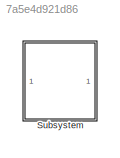
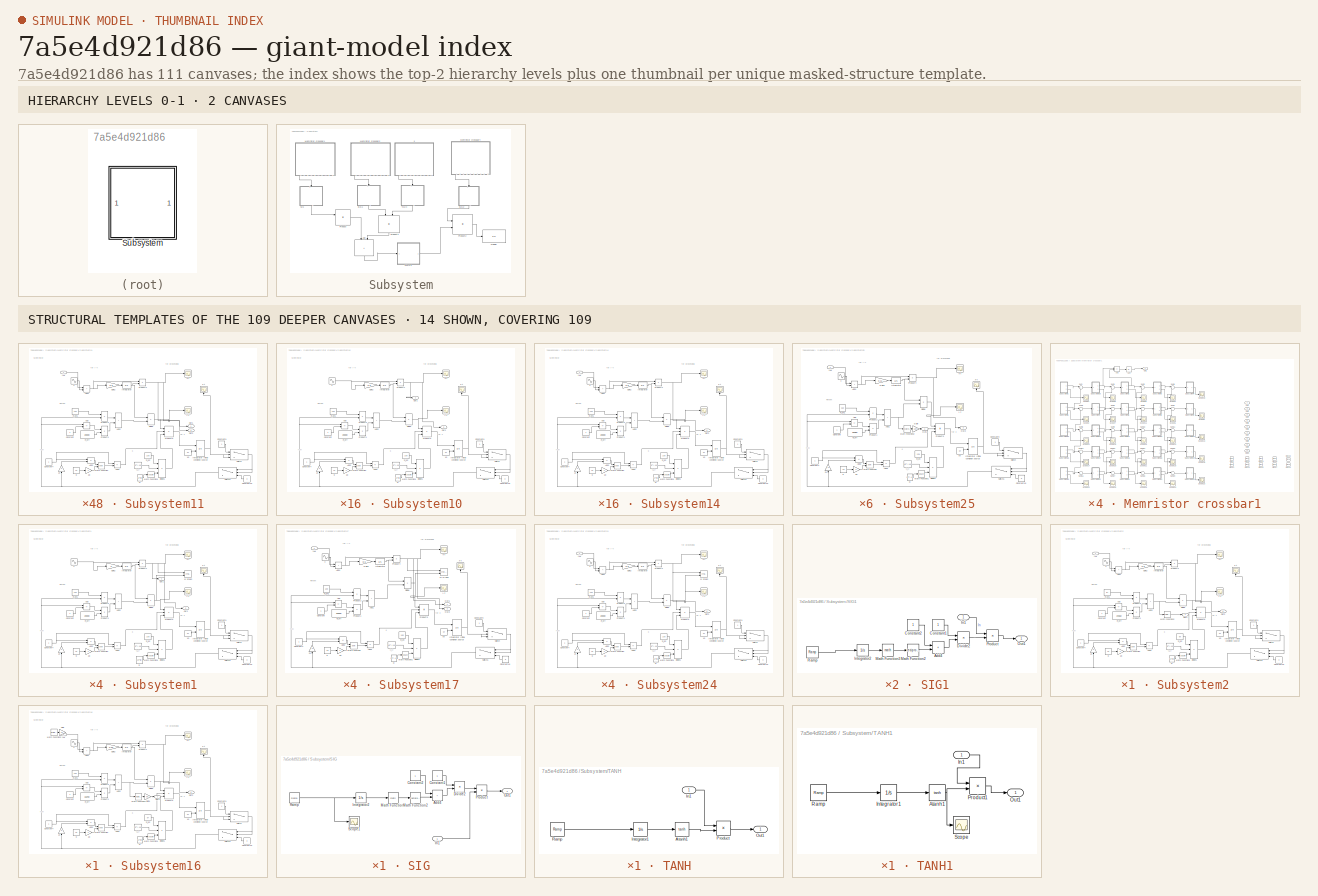
[diagram: thumbnail index - top-2 hierarchy levels (2 canvases) + 14 structural-template representatives of the remaining 109 canvases]
MODEL slx_7a5e4d921d86
KIND model
CONFIG AbsTol = auto
CONFIG EnableMultiTasking = off
CONFIG FixedStep = auto
CONFIG MaxStep = auto
CONFIG MinStep = auto
CONFIG RelTol = 1e-3
CONFIG SampleTimeConstraint = Unconstrained
CONFIG SolverName = VariableStepAuto
CONFIG StartTime = 0.0
CONFIG StopTime = 3
BLOCK [SubSystem] Subsystem
  Ports = []
  RequestExecContextInheritance = off
BLOCK [Sum] Subsystem/Add
  IconShape = rectangular
  NameLocation = left
  Ports = [2, 1]
BLOCK [Display] Subsystem/Display
  Decimation = 1
  Ports = [1]
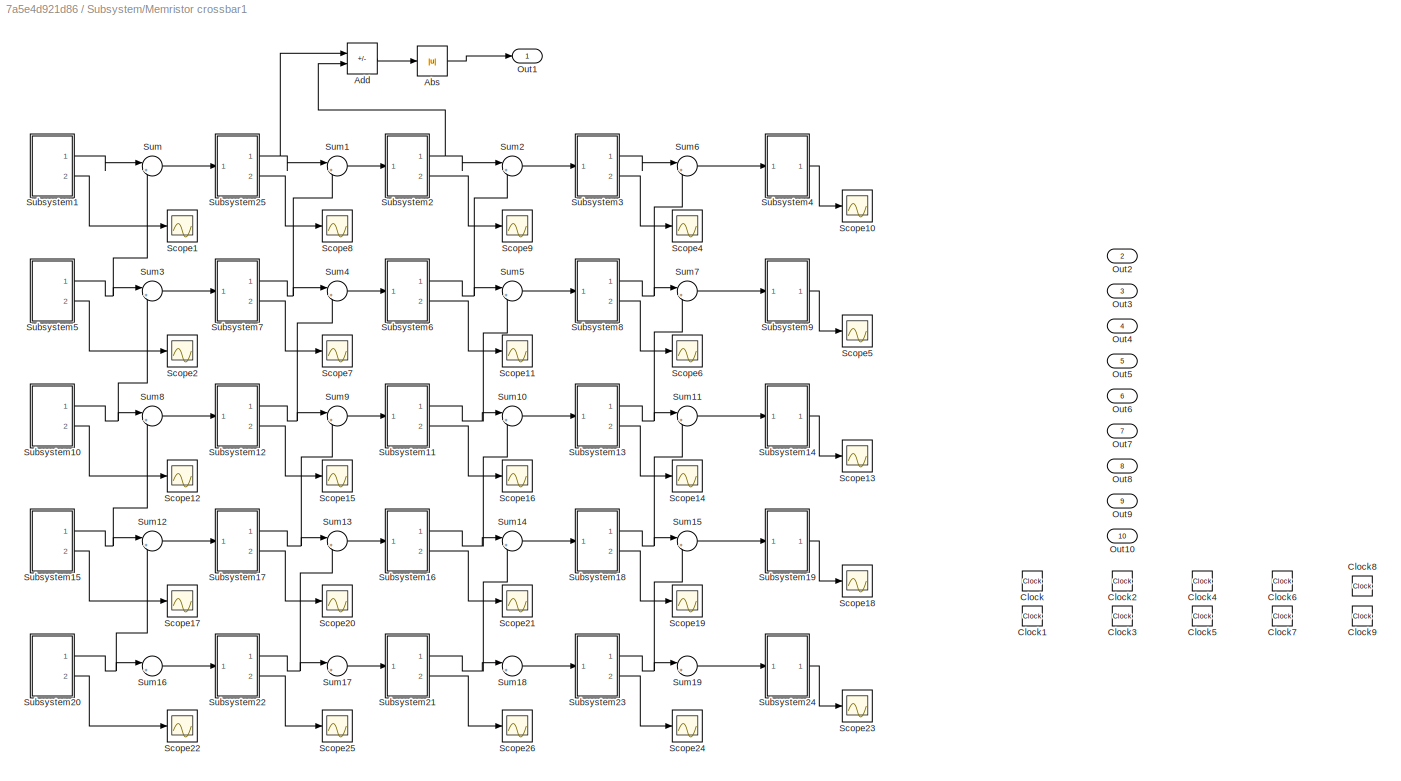
BLOCK [SubSystem] Subsystem/Memristor crossbar1
  NameLocation = left
  Ports = [0, 10]
  RequestExecContextInheritance = off
BLOCK [Abs] Subsystem/Memristor crossbar1/Abs
  SaturateOnIntegerOverflow = off
BLOCK [Sum] Subsystem/Memristor crossbar1/Add
  IconShape = rectangular
  Inputs = +-
  Ports = [2, 1]
BLOCK [Clock] Subsystem/Memristor crossbar1/Clock
BLOCK [Clock] Subsystem/Memristor crossbar1/Clock1
BLOCK [Clock] Subsystem/Memristor crossbar1/Clock2
BLOCK [Clock] Subsystem/Memristor crossbar1/Clock3
BLOCK [Clock] Subsystem/Memristor crossbar1/Clock4
BLOCK [Clock] Subsystem/Memristor crossbar1/Clock5
BLOCK [Clock] Subsystem/Memristor crossbar1/Clock6
BLOCK [Clock] Subsystem/Memristor crossbar1/Clock7
BLOCK [Clock] Subsystem/Memristor crossbar1/Clock8
BLOCK [Clock] Subsystem/Memristor crossbar1/Clock9
BLOCK [Outport] Subsystem/Memristor crossbar1/Out1
BLOCK [Outport] Subsystem/Memristor crossbar1/Out10
  Port = 10
BLOCK [Outport] Subsystem/Memristor crossbar1/Out2
  Port = 2
BLOCK [Outport] Subsystem/Memristor crossbar1/Out3
  Port = 3
BLOCK [Outport] Subsystem/Memristor crossbar1/Out4
  Port = 4
BLOCK [Outport] Subsystem/Memristor crossbar1/Out5
  Port = 5
BLOCK [Outport] Subsystem/Memristor crossbar1/Out6
  Port = 6
BLOCK [Outport] Subsystem/Memristor crossbar1/Out7
  Port = 7
BLOCK [Outport] Subsystem/Memristor crossbar1/Out8
  Port = 8
BLOCK [Outport] Subsystem/Memristor crossbar1/Out9
  Port = 9
BLOCK [Scope] Subsystem/Memristor crossbar1/Scope1
  Floating = off
  NumInputPorts = 1
  Ports = [1]
  ScopeSpecificationString = Simulink.scopes.TimeScopeBlockCfg('CurrentConfiguration', extmgr.ConfigurationSet(extmgr.Configuration('Core','General UI',true),extmgr.Configuration('Core','Source UI',true),extmgr.Configuration('Sources','WiredSimulink',true,'DataLoggingVariableName','ScopeData1'),extmgr.Configuration('Visuals','Time Domain',true,'SerializedDisplays',{struct('MinYLimReal','-0.01623','MaxYLimReal','0.01624','YLab...<+1402ch>  <repeated x4 — deduplicated; at blocks: Scope1>
BLOCK [Scope] Subsystem/Memristor crossbar1/Scope10
  Floating = off
  NumInputPorts = 1
  Ports = [1]
  ScopeSpecificationString = Simulink.scopes.TimeScopeBlockCfg('CurrentConfiguration', extmgr.ConfigurationSet(extmgr.Configuration('Core','General UI',true),extmgr.Configuration('Core','Source UI',true),extmgr.Configuration('Sources','WiredSimulink',true,'DataLoggingVariableName','ScopeData8'),extmgr.Configuration('Visuals','Time Domain',true,'SerializedDisplays',{struct('MinYLimReal','-1.02935','MaxYLimReal','9.26415','YLab...<+1398ch>
BLOCK [Scope] Subsystem/Memristor crossbar1/Scope11
  Floating = off
  NumInputPorts = 1
  Ports = [1]
  ScopeSpecificationString = Simulink.scopes.TimeScopeBlockCfg('CurrentConfiguration', extmgr.ConfigurationSet(extmgr.Configuration('Core','General UI',true),extmgr.Configuration('Core','Source UI',true),extmgr.Configuration('Sources','WiredSimulink',true,'DataLoggingVariableName','ScopeData1'),extmgr.Configuration('Visuals','Time Domain',true,'SerializedDisplays',{struct('MinYLimReal','-7.7706','MaxYLimReal','7.77256','YLabe...<+1369ch>  <repeated x4 — deduplicated; at blocks: Scope11>
BLOCK [Scope] Subsystem/Memristor crossbar1/Scope12
  Floating = off
  NumInputPorts = 1
  Ports = [1]
  ScopeSpecificationString = Simulink.scopes.TimeScopeBlockCfg('CurrentConfiguration', extmgr.ConfigurationSet(extmgr.Configuration('Core','General UI',true),extmgr.Configuration('Core','Source UI',true),extmgr.Configuration('Sources','WiredSimulink',true,'DataLoggingVariableName','ScopeData6'),extmgr.Configuration('Visuals','Time Domain',true,'SerializedDisplays',{struct('MinYLimReal','-0.01623','MaxYLimReal','0.01624','YLab...<+1371ch>  <repeated x4 — deduplicated; at blocks: Scope12>
BLOCK [Scope] Subsystem/Memristor crossbar1/Scope13
  Floating = off
  NumInputPorts = 1
  Ports = [1]
  ScopeSpecificationString = Simulink.scopes.TimeScopeBlockCfg('CurrentConfiguration', extmgr.ConfigurationSet(extmgr.Configuration('Core','General UI',true),extmgr.Configuration('Core','Source UI',true),extmgr.Configuration('Sources','WiredSimulink',true,'DataLoggingVariableName','ScopeData7'),extmgr.Configuration('Visuals','Time Domain',true,'SerializedDisplays',{struct('MinYLimReal','-224875.47722','MaxYLimReal','224968.87...<+1437ch>  <repeated x4 — deduplicated; at blocks: Scope13>
BLOCK [Scope] Subsystem/Memristor crossbar1/Scope14
  Floating = off
  NumInputPorts = 1
  Ports = [1]
  ScopeSpecificationString = Simulink.scopes.TimeScopeBlockCfg('CurrentConfiguration', extmgr.ConfigurationSet(extmgr.Configuration('Core','General UI',true),extmgr.Configuration('Core','Source UI',true),extmgr.Configuration('Sources','WiredSimulink',true,'DataLoggingVariableName','ScopeData8'),extmgr.Configuration('Visuals','Time Domain',true,'SerializedDisplays',{struct('MinYLimReal','-63.06686','MaxYLimReal','63.06119','YL...<+1377ch>  <repeated x4 — deduplicated; at blocks: Scope14>
BLOCK [Scope] Subsystem/Memristor crossbar1/Scope15
  Floating = off
  NumInputPorts = 1
  Ports = [1]
  ScopeSpecificationString = Simulink.scopes.TimeScopeBlockCfg('CurrentConfiguration', extmgr.ConfigurationSet(extmgr.Configuration('Core','General UI',true),extmgr.Configuration('Core','Source UI',true),extmgr.Configuration('Sources','WiredSimulink',true,'DataLoggingVariableName','ScopeData9'),extmgr.Configuration('Visuals','Time Domain',true,'SerializedDisplays',{struct('MinYLimReal','-1.66028','MaxYLimReal','1.66055','YLab...<+1372ch>  <repeated x4 — deduplicated; at blocks: Scope15>
BLOCK [Scope] Subsystem/Memristor crossbar1/Scope16
  Floating = off
  NumInputPorts = 1
  Ports = [1]
  ScopeSpecificationString = Simulink.scopes.TimeScopeBlockCfg('CurrentConfiguration', extmgr.ConfigurationSet(extmgr.Configuration('Core','General UI',true),extmgr.Configuration('Core','Source UI',true),extmgr.Configuration('Sources','WiredSimulink',true,'DataLoggingVariableName','ScopeData10'),extmgr.Configuration('Visuals','Time Domain',true,'SerializedDisplays',{struct('MinYLimReal','-7.7706','MaxYLimReal','7.77256','YLab...<+1370ch>  <repeated x4 — deduplicated; at blocks: Scope16>
BLOCK [Scope] Subsystem/Memristor crossbar1/Scope17
  Floating = off
  NumInputPorts = 1
  Ports = [1]
  ScopeSpecificationString = Simulink.scopes.TimeScopeBlockCfg('CurrentConfiguration', extmgr.ConfigurationSet(extmgr.Configuration('Core','General UI',true),extmgr.Configuration('Core','Source UI',true),extmgr.Configuration('Sources','WiredSimulink',true,'DataLoggingVariableName','ScopeData11'),extmgr.Configuration('Visuals','Time Domain',true,'SerializedDisplays',{struct('MinYLimReal','-0.01623','MaxYLimReal','0.01624','YLa...<+1372ch>  <repeated x4 — deduplicated; at blocks: Scope17>
BLOCK [Scope] Subsystem/Memristor crossbar1/Scope18
  Floating = off
  NumInputPorts = 1
  Ports = [1]
  ScopeSpecificationString = Simulink.scopes.TimeScopeBlockCfg('CurrentConfiguration', extmgr.ConfigurationSet(extmgr.Configuration('Core','General UI',true,'FigureColor',[1 1 1]),extmgr.Configuration('Core','Source UI',true),extmgr.Configuration('Sources','WiredSimulink',true,'DataLoggingVariableName','ScopeData12'),extmgr.Configuration('Visuals','Time Domain',true,'SerializedDisplays',{struct('MinYLimReal','-2744.65776','Ma...<+1595ch>  <repeated x4 — deduplicated; at blocks: Scope18>
BLOCK [Scope] Subsystem/Memristor crossbar1/Scope19
  Floating = off
  NumInputPorts = 1
  Ports = [1]
  ScopeSpecificationString = Simulink.scopes.TimeScopeBlockCfg('CurrentConfiguration', extmgr.ConfigurationSet(extmgr.Configuration('Core','General UI',true),extmgr.Configuration('Core','Source UI',true),extmgr.Configuration('Sources','WiredSimulink',true,'DataLoggingVariableName','ScopeData13'),extmgr.Configuration('Visuals','Time Domain',true,'SerializedDisplays',{struct('MinYLimReal','-0.12032','MaxYLimReal','1.08286','YLa...<+1373ch>
BLOCK [Scope] Subsystem/Memristor crossbar1/Scope2
  Floating = off
  NumInputPorts = 1
  Ports = [1]
  ScopeSpecificationString = Simulink.scopes.TimeScopeBlockCfg('CurrentConfiguration', extmgr.ConfigurationSet(extmgr.Configuration('Core','General UI',true),extmgr.Configuration('Core','Source UI',true),extmgr.Configuration('Sources','WiredSimulink',true,'DataLoggingVariableName','ScopeData2'),extmgr.Configuration('Visuals','Time Domain',true,'SerializedDisplays',{struct('MinYLimReal','-0.01623','MaxYLimReal','0.01624','YLab...<+1400ch>  <repeated x4 — deduplicated; at blocks: Scope2>
BLOCK [Scope] Subsystem/Memristor crossbar1/Scope20
  Floating = off
  NumInputPorts = 1
  Ports = [1]
  ScopeSpecificationString = Simulink.scopes.TimeScopeBlockCfg('CurrentConfiguration', extmgr.ConfigurationSet(extmgr.Configuration('Core','General UI',true),extmgr.Configuration('Core','Source UI',true),extmgr.Configuration('Sources','WiredSimulink',true,'DataLoggingVariableName','ScopeData14'),extmgr.Configuration('Visuals','Time Domain',true,'SerializedDisplays',{struct('MinYLimReal','-0.04902','MaxYLimReal','0.44119','YLa...<+1373ch>
BLOCK [Scope] Subsystem/Memristor crossbar1/Scope21
  Floating = off
  NumInputPorts = 1
  Ports = [1]
  ScopeSpecificationString = Simulink.scopes.TimeScopeBlockCfg('CurrentConfiguration', extmgr.ConfigurationSet(extmgr.Configuration('Core','General UI',true),extmgr.Configuration('Core','Source UI',true),extmgr.Configuration('Sources','WiredSimulink',true,'DataLoggingVariableName','ScopeData15'),extmgr.Configuration('Visuals','Time Domain',true,'SerializedDisplays',{struct('MinYLimReal','-7.7706','MaxYLimReal','7.77256','YLab...<+1370ch>  <repeated x4 — deduplicated; at blocks: Scope21>
BLOCK [Scope] Subsystem/Memristor crossbar1/Scope22
  Floating = off
  NumInputPorts = 1
  Ports = [1]
  ScopeSpecificationString = Simulink.scopes.TimeScopeBlockCfg('CurrentConfiguration', extmgr.ConfigurationSet(extmgr.Configuration('Core','General UI',true),extmgr.Configuration('Core','Source UI',true),extmgr.Configuration('Sources','WiredSimulink',true,'DataLoggingVariableName','ScopeData16'),extmgr.Configuration('Visuals','Time Domain',true,'SerializedDisplays',{struct('MinYLimReal','-0.01623','MaxYLimReal','0.01624','YLa...<+1406ch>  <repeated x4 — deduplicated; at blocks: Scope22>
BLOCK [Scope] Subsystem/Memristor crossbar1/Scope23
  Floating = off
  NumInputPorts = 1
  Ports = [1]
  ScopeSpecificationString = Simulink.scopes.TimeScopeBlockCfg('CurrentConfiguration', extmgr.ConfigurationSet(extmgr.Configuration('Core','General UI',true),extmgr.Configuration('Core','Source UI',true),extmgr.Configuration('Sources','WiredSimulink',true,'DataLoggingVariableName','ScopeData17'),extmgr.Configuration('Visuals','Time Domain',true,'SerializedDisplays',{struct('MinYLimReal','-0.00052','MaxYLimReal','0.00468','YLa...<+1400ch>
BLOCK [Scope] Subsystem/Memristor crossbar1/Scope24
  Floating = off
  NumInputPorts = 1
  Ports = [1]
  ScopeSpecificationString = Simulink.scopes.TimeScopeBlockCfg('CurrentConfiguration', extmgr.ConfigurationSet(extmgr.Configuration('Core','General UI',true),extmgr.Configuration('Core','Source UI',true),extmgr.Configuration('Sources','WiredSimulink',true,'DataLoggingVariableName','ScopeData18'),extmgr.Configuration('Visuals','Time Domain',true,'SerializedDisplays',{struct('MinYLimReal','-63.06686','MaxYLimReal','63.06119','Y...<+1378ch>  <repeated x4 — deduplicated; at blocks: Scope24>
BLOCK [Scope] Subsystem/Memristor crossbar1/Scope25
  Floating = off
  NumInputPorts = 1
  Ports = [1]
  ScopeSpecificationString = Simulink.scopes.TimeScopeBlockCfg('CurrentConfiguration', extmgr.ConfigurationSet(extmgr.Configuration('Core','General UI',true),extmgr.Configuration('Core','Source UI',true),extmgr.Configuration('Sources','WiredSimulink',true,'DataLoggingVariableName','ScopeData19'),extmgr.Configuration('Visuals','Time Domain',true,'SerializedDisplays',{struct('MinYLimReal','-0.02013','MaxYLimReal','0.02014','YLa...<+1402ch>  <repeated x4 — deduplicated; at blocks: Scope25>
BLOCK [Scope] Subsystem/Memristor crossbar1/Scope26
  Floating = off
  NumInputPorts = 1
  Ports = [1]
  ScopeSpecificationString = Simulink.scopes.TimeScopeBlockCfg('CurrentConfiguration', extmgr.ConfigurationSet(extmgr.Configuration('Core','General UI',true),extmgr.Configuration('Core','Source UI',true),extmgr.Configuration('Sources','WiredSimulink',true,'DataLoggingVariableName','ScopeData20'),extmgr.Configuration('Visuals','Time Domain',true,'SerializedDisplays',{struct('MinYLimReal','-0.02104','MaxYLimReal','0.02105','YLa...<+1373ch>  <repeated x4 — deduplicated; at blocks: Scope26>
BLOCK [Scope] Subsystem/Memristor crossbar1/Scope4
  Floating = off
  NumInputPorts = 1
  Ports = [1]
  ScopeSpecificationString = Simulink.scopes.TimeScopeBlockCfg('CurrentConfiguration', extmgr.ConfigurationSet(extmgr.Configuration('Core','General UI',true),extmgr.Configuration('Core','Source UI',true),extmgr.Configuration('Sources','WiredSimulink',true,'DataLoggingVariableName','ScopeData2'),extmgr.Configuration('Visuals','Time Domain',true,'SerializedDisplays',{struct('MinYLimReal','-63.06686','MaxYLimReal','63.06119','YL...<+1377ch>  <repeated x4 — deduplicated; at blocks: Scope4>
BLOCK [Scope] Subsystem/Memristor crossbar1/Scope5
  Floating = off
  NumInputPorts = 1
  Ports = [1]
  ScopeSpecificationString = Simulink.scopes.TimeScopeBlockCfg('CurrentConfiguration', extmgr.ConfigurationSet(extmgr.Configuration('Core','General UI',true),extmgr.Configuration('Core','Source UI',true),extmgr.Configuration('Sources','WiredSimulink',true,'DataLoggingVariableName','ScopeData3'),extmgr.Configuration('Visuals','Time Domain',true,'SerializedDisplays',{struct('MinYLimReal','-1467341.89373','MaxYLimReal','1467161....<+1440ch>  <repeated x4 — deduplicated; at blocks: Scope5>
BLOCK [Scope] Subsystem/Memristor crossbar1/Scope6
  Floating = off
  NumInputPorts = 1
  Ports = [1]
  ScopeSpecificationString = Simulink.scopes.TimeScopeBlockCfg('CurrentConfiguration', extmgr.ConfigurationSet(extmgr.Configuration('Core','General UI',true),extmgr.Configuration('Core','Source UI',true),extmgr.Configuration('Sources','WiredSimulink',true,'DataLoggingVariableName','ScopeData4'),extmgr.Configuration('Visuals','Time Domain',true,'SerializedDisplays',{struct('MinYLimReal','-1101.41178','MaxYLimReal','1102.69601'...<+1393ch>  <repeated x4 — deduplicated; at blocks: Scope6>
BLOCK [Scope] Subsystem/Memristor crossbar1/Scope7
  Floating = off
  NumInputPorts = 1
  Ports = [1]
  ScopeSpecificationString = Simulink.scopes.TimeScopeBlockCfg('CurrentConfiguration', extmgr.ConfigurationSet(extmgr.Configuration('Core','General UI',true),extmgr.Configuration('Core','Source UI',true),extmgr.Configuration('Sources','WiredSimulink',true,'DataLoggingVariableName','ScopeData5'),extmgr.Configuration('Visuals','Time Domain',true,'SerializedDisplays',{struct('MinYLimReal','-1.69776','MaxYLimReal','1.69782','YLab...<+1371ch>  <repeated x4 — deduplicated; at blocks: Scope7>
BLOCK [Scope] Subsystem/Memristor crossbar1/Scope8
  Floating = off
  NumInputPorts = 1
  Ports = [1]
  ScopeSpecificationString = Simulink.scopes.TimeScopeBlockCfg('CurrentConfiguration', extmgr.ConfigurationSet(extmgr.Configuration('Core','General UI',true),extmgr.Configuration('Core','Source UI',true),extmgr.Configuration('Sources','WiredSimulink',true,'DataLoggingVariableName','ScopeData6'),extmgr.Configuration('Visuals','Time Domain',true,'SerializedDisplays',{struct('MinYLimReal','-0.04902','MaxYLimReal','0.44119','YLab...<+1372ch>
BLOCK [Scope] Subsystem/Memristor crossbar1/Scope9
  Floating = off
  NumInputPorts = 1
  Ports = [1]
  ScopeSpecificationString = Simulink.scopes.TimeScopeBlockCfg('CurrentConfiguration', extmgr.ConfigurationSet(extmgr.Configuration('Core','General UI',true),extmgr.Configuration('Core','Source UI',true),extmgr.Configuration('Sources','WiredSimulink',true,'DataLoggingVariableName','ScopeData7'),extmgr.Configuration('Visuals','Time Domain',true,'SerializedDisplays',{struct('MinYLimReal','-7.7706','MaxYLimReal','7.77256','YLabe...<+1369ch>  <repeated x4 — deduplicated; at blocks: Scope9>
BLOCK [SubSystem] Subsystem/Memristor crossbar1/Subsystem1
  Ports = [0, 2]
  RequestExecContextInheritance = off
BLOCK [Sin] Subsystem/Memristor crossbar1/Subsystem1/ V
  Amplitude = 0.1
  Frequency = 0.5
  Ports = [0, 1]
  SampleTime = 0
BLOCK [Gain] Subsystem/Memristor crossbar1/Subsystem1/2p
  Gain = 2
BLOCK [Gain] Subsystem/Memristor crossbar1/Subsystem1/2x
  Gain = 2
  NameLocation = right
BLOCK [Sum] Subsystem/Memristor crossbar1/Subsystem1/Add
  IconShape = rectangular
  Inputs = -+
  Ports = [2, 1]
BLOCK [Sum] Subsystem/Memristor crossbar1/Subsystem1/Add1
  IconShape = rectangular
  Ports = [2, 1]
BLOCK [Sum] Subsystem/Memristor crossbar1/Subsystem1/Add2
  IconShape = rectangular
  Inputs = -+
  Ports = [2, 1]
BLOCK [Sum] Subsystem/Memristor crossbar1/Subsystem1/Add3
  IconShape = rectangular
  Inputs = +-
  Ports = [2, 1]
BLOCK [Constant] Subsystem/Memristor crossbar1/Subsystem1/Constant
BLOCK [Constant] Subsystem/Memristor crossbar1/Subsystem1/Constant10
  NameLocation = top
  Value = 0
BLOCK [Constant] Subsystem/Memristor crossbar1/Subsystem1/Constant4
BLOCK [Constant] Subsystem/Memristor crossbar1/Subsystem1/Constant9
BLOCK [Constant] Subsystem/Memristor crossbar1/Subsystem1/D
  Value = 10^(-8)
BLOCK [Product] Subsystem/Memristor crossbar1/Subsystem1/Divide
  Inputs = */
  Ports = [2, 1]
BLOCK [Product] Subsystem/Memristor crossbar1/Subsystem1/Divide1
  Inputs = **/
  Ports = [3, 1]
BLOCK [Gain] Subsystem/Memristor crossbar1/Subsystem1/Gain2
BLOCK [Scope] Subsystem/Memristor crossbar1/Subsystem1/I-t
  Floating = off
  NumInputPorts = 1
  Ports = [1]
  ScopeSpecificationString = Simulink.scopes.TimeScopeBlockCfg('CurrentConfiguration', extmgr.ConfigurationSet(extmgr.Configuration('Core','General UI',true),extmgr.Configuration('Core','Source UI',true),extmgr.Configuration('Sources','WiredSimulink',true,'DataLoggingVariableName','ScopeData1'),extmgr.Configuration('Visuals','Time Domain',true,'SerializedDisplays',{struct('MinYLimReal','-0.00025','MaxYLimReal','0.00225','YLab...<+1394ch>  <repeated x20 — deduplicated; at blocks: I-t>
BLOCK [Integrator] Subsystem/Memristor crossbar1/Subsystem1/Integrator
  Ports = [1, 1]
BLOCK [Integrator] Subsystem/Memristor crossbar1/Subsystem1/Integrator Initial condition source
  InitialConditionSource = external
  Ports = [2, 1]
BLOCK [Math] Subsystem/Memristor crossbar1/Subsystem1/Math Function
  Operator = pow
  Ports = [2, 1]
BLOCK [Math] Subsystem/Memristor crossbar1/Subsystem1/Math Function1
  Operator = square
  Ports = [1, 1]
BLOCK [Outport] Subsystem/Memristor crossbar1/Subsystem1/Out1
BLOCK [Outport] Subsystem/Memristor crossbar1/Subsystem1/Out2
  Port = 2
BLOCK [Product] Subsystem/Memristor crossbar1/Subsystem1/Product1
  Ports = [2, 1]
BLOCK [Product] Subsystem/Memristor crossbar1/Subsystem1/Product2
  Ports = [2, 1]
BLOCK [Product] Subsystem/Memristor crossbar1/Subsystem1/Product3
  Inputs = 3
  Ports = [3, 1]
BLOCK [Product] Subsystem/Memristor crossbar1/Subsystem1/Product4
  Ports = [2, 1]
BLOCK [Constant] Subsystem/Memristor crossbar1/Subsystem1/R_off
  Value = 20000
BLOCK [Constant] Subsystem/Memristor crossbar1/Subsystem1/R_on
  Value = 100
BLOCK [Constant] Subsystem/Memristor crossbar1/Subsystem1/R_on1
  Value = 100
BLOCK [Switch] Subsystem/Memristor crossbar1/Subsystem1/Switch
  InputSameDT = off
  SaturateOnIntegerOverflow = off
  Threshold = 1
BLOCK [Switch] Subsystem/Memristor crossbar1/Subsystem1/Switch1
  InputSameDT = off
  NameLocation = top
  SaturateOnIntegerOverflow = off
BLOCK [Scope] Subsystem/Memristor crossbar1/Subsystem1/V-t
  Floating = off
  NumInputPorts = 1
  Ports = [1]
  ScopeSpecificationString = Simulink.scopes.TimeScopeBlockCfg('CurrentConfiguration', extmgr.ConfigurationSet(extmgr.Configuration('Core','General UI',true),extmgr.Configuration('Core','Source UI',true),extmgr.Configuration('Sources','WiredSimulink',true,'DataLoggingVariableName','ScopeData2'),extmgr.Configuration('Visuals','Time Domain',true,'SerializedDisplays',{struct('MinYLimReal','-0.01623','MaxYLimReal','0.01624','YLab...<+1512ch>  <repeated x20 — deduplicated; at blocks: V-t>
BLOCK [Reference] Subsystem/Memristor crossbar1/Subsystem1/XY Graph  REF=simulink/Sinks/XY Graph
  Ports = [2]
  SourceBlock = simulink/Sinks/XY Graph
  SourceProductBaseCode = SL
  SourceType = XY scope.
BLOCK [Constant] Subsystem/Memristor crossbar1/Subsystem1/p
  Value = 10
BLOCK [Scope] Subsystem/Memristor crossbar1/Subsystem1/x-t
  Floating = off
  NameLocation = right
  NumInputPorts = 1
  Ports = [1]
  ScopeSpecificationString = Simulink.scopes.TimeScopeBlockCfg('CurrentConfiguration', extmgr.ConfigurationSet(extmgr.Configuration('Core','General UI',true),extmgr.Configuration('Core','Source UI',true),extmgr.Configuration('Sources','WiredSimulink',true,'DataLoggingVariableName','ScopeData3'),extmgr.Configuration('Visuals','Time Domain',true,'SerializedDisplays',{struct('MinYLimReal','0.6625','MaxYLimReal','1.0375','YLabelR...<+1414ch>  <repeated x100 — deduplicated; at blocks: x-t>
BLOCK [Constant] Subsystem/Memristor crossbar1/Subsystem1/x0
  Value = 0.7
BLOCK [Constant] Subsystem/Memristor crossbar1/Subsystem1/𝜇_𝑣
  Value = 10^(-14)
BLOCK [SubSystem] Subsystem/Memristor crossbar1/Subsystem10
  Ports = [0, 2]
  RequestExecContextInheritance = off
BLOCK [Sin] Subsystem/Memristor crossbar1/Subsystem10/ V
  Amplitude = 0.1
  Frequency = 0.5
  Ports = [0, 1]
  SampleTime = 0
BLOCK [Gain] Subsystem/Memristor crossbar1/Subsystem10/2p
  Gain = 2
BLOCK [Gain] Subsystem/Memristor crossbar1/Subsystem10/2x
  Gain = 2
  NameLocation = right
BLOCK [Sum] Subsystem/Memristor crossbar1/Subsystem10/Add
  IconShape = rectangular
  Inputs = -+
  Ports = [2, 1]
BLOCK [Sum] Subsystem/Memristor crossbar1/Subsystem10/Add1
  IconShape = rectangular
  Ports = [2, 1]
BLOCK [Sum] Subsystem/Memristor crossbar1/Subsystem10/Add2
  IconShape = rectangular
  Inputs = -+
  Ports = [2, 1]
BLOCK [Sum] Subsystem/Memristor crossbar1/Subsystem10/Add3
  IconShape = rectangular
  Inputs = +-
  Ports = [2, 1]
BLOCK [Constant] Subsystem/Memristor crossbar1/Subsystem10/Constant
BLOCK [Constant] Subsystem/Memristor crossbar1/Subsystem10/Constant10
  NameLocation = top
  Value = 0
BLOCK [Constant] Subsystem/Memristor crossbar1/Subsystem10/Constant4
BLOCK [Constant] Subsystem/Memristor crossbar1/Subsystem10/Constant9
BLOCK [Constant] Subsystem/Memristor crossbar1/Subsystem10/D
  Value = 10^(-8)
BLOCK [Product] Subsystem/Memristor crossbar1/Subsystem10/Divide
  Inputs = */
  Ports = [2, 1]
BLOCK [Product] Subsystem/Memristor crossbar1/Subsystem10/Divide1
  Inputs = **/
  Ports = [3, 1]
BLOCK [Gain] Subsystem/Memristor crossbar1/Subsystem10/Gain2
  Gain = 0.5
BLOCK [Scope] Subsystem/Memristor crossbar1/Subsystem10/I-t
  Floating = off
  NumInputPorts = 1
  Ports = [1]
BLOCK [Integrator] Subsystem/Memristor crossbar1/Subsystem10/Integrator
  Ports = [1, 1]
BLOCK [Integrator] Subsystem/Memristor crossbar1/Subsystem10/Integrator Initial condition source
  InitialConditionSource = external
  Ports = [2, 1]
BLOCK [Math] Subsystem/Memristor crossbar1/Subsystem10/Math Function
  Operator = pow
  Ports = [2, 1]
BLOCK [Math] Subsystem/Memristor crossbar1/Subsystem10/Math Function1
  Operator = square
  Ports = [1, 1]
BLOCK [Outport] Subsystem/Memristor crossbar1/Subsystem10/Out1
BLOCK [Outport] Subsystem/Memristor crossbar1/Subsystem10/Out2
  Port = 2
BLOCK [Product] Subsystem/Memristor crossbar1/Subsystem10/Product1
  Ports = [2, 1]
BLOCK [Product] Subsystem/Memristor crossbar1/Subsystem10/Product2
  Ports = [2, 1]
BLOCK [Product] Subsystem/Memristor crossbar1/Subsystem10/Product3
  Inputs = 3
  Ports = [3, 1]
BLOCK [Product] Subsystem/Memristor crossbar1/Subsystem10/Product4
  Ports = [2, 1]
BLOCK [Constant] Subsystem/Memristor crossbar1/Subsystem10/R_off
  Value = 20000
BLOCK [Constant] Subsystem/Memristor crossbar1/Subsystem10/R_on
  Value = 100
BLOCK [Constant] Subsystem/Memristor crossbar1/Subsystem10/R_on1
  Value = 100
BLOCK [Switch] Subsystem/Memristor crossbar1/Subsystem10/Switch
  InputSameDT = off
  SaturateOnIntegerOverflow = off
  Threshold = 1
BLOCK [Switch] Subsystem/Memristor crossbar1/Subsystem10/Switch1
  InputSameDT = off
  NameLocation = top
  SaturateOnIntegerOverflow = off
BLOCK [Scope] Subsystem/Memristor crossbar1/Subsystem10/V-t
  Floating = off
  NumInputPorts = 1
  Ports = [1]
BLOCK [Constant] Subsystem/Memristor crossbar1/Subsystem10/p
  Value = 10
BLOCK [Scope] Subsystem/Memristor crossbar1/Subsystem10/x-t
  Floating = off
  NameLocation = right
  NumInputPorts = 1
  Ports = [1]
BLOCK [Constant] Subsystem/Memristor crossbar1/Subsystem10/x0
  Value = 0.7
BLOCK [Constant] Subsystem/Memristor crossbar1/Subsystem10/𝜇_𝑣
  Value = 10^(-14)
BLOCK [SubSystem] Subsystem/Memristor crossbar1/Subsystem11
  Ports = [1, 2]
  RequestExecContextInheritance = off
BLOCK [Sin] Subsystem/Memristor crossbar1/Subsystem11/ V
  Frequency = 0.5
  Ports = [0, 1]
  SampleTime = 0
BLOCK [Gain] Subsystem/Memristor crossbar1/Subsystem11/2p
  Gain = 2
BLOCK [Gain] Subsystem/Memristor crossbar1/Subsystem11/2x
  Gain = 2
  NameLocation = right
BLOCK [Sum] Subsystem/Memristor crossbar1/Subsystem11/Add
  IconShape = rectangular
  Inputs = -+
  Ports = [2, 1]
BLOCK [Sum] Subsystem/Memristor crossbar1/Subsystem11/Add1
  IconShape = rectangular
  Ports = [2, 1]
BLOCK [Sum] Subsystem/Memristor crossbar1/Subsystem11/Add2
  IconShape = rectangular
  Inputs = -+
  Ports = [2, 1]
BLOCK [Sum] Subsystem/Memristor crossbar1/Subsystem11/Add3
  IconShape = rectangular
  Inputs = +-
  Ports = [2, 1]
BLOCK [Sum] Subsystem/Memristor crossbar1/Subsystem11/Add4
  IconShape = rectangular
  Ports = [2, 1]
BLOCK [Constant] Subsystem/Memristor crossbar1/Subsystem11/Constant
BLOCK [Constant] Subsystem/Memristor crossbar1/Subsystem11/Constant10
  NameLocation = top
  Value = 0
BLOCK [Constant] Subsystem/Memristor crossbar1/Subsystem11/Constant4
BLOCK [Constant] Subsystem/Memristor crossbar1/Subsystem11/Constant9
BLOCK [Constant] Subsystem/Memristor crossbar1/Subsystem11/D
  Value = 10^(-8)
BLOCK [Product] Subsystem/Memristor crossbar1/Subsystem11/Divide
  Inputs = */
  Ports = [2, 1]
BLOCK [Product] Subsystem/Memristor crossbar1/Subsystem11/Divide1
  Inputs = **/
  Ports = [3, 1]
BLOCK [Gain] Subsystem/Memristor crossbar1/Subsystem11/Gain2
  Gain = 0.5
BLOCK [Scope] Subsystem/Memristor crossbar1/Subsystem11/I-t
  Floating = off
  NumInputPorts = 1
  Ports = [1]
  ScopeSpecificationString = Simulink.scopes.TimeScopeBlockCfg('CurrentConfiguration', extmgr.ConfigurationSet(extmgr.Configuration('Core','General UI',true),extmgr.Configuration('Core','Source UI',true),extmgr.Configuration('Sources','WiredSimulink',true,'DataLoggingVariableName','ScopeData1'),extmgr.Configuration('Visuals','Time Domain',true,'SerializedDisplays',{struct('MinYLimReal','-0.00505','MaxYLimReal','0.04545','YLab...<+1394ch>  <repeated x16 — deduplicated; at blocks: I-t>
BLOCK [Inport] Subsystem/Memristor crossbar1/Subsystem11/In1
BLOCK [Integrator] Subsystem/Memristor crossbar1/Subsystem11/Integrator
  Ports = [1, 1]
BLOCK [Integrator] Subsystem/Memristor crossbar1/Subsystem11/Integrator Initial condition source
  InitialConditionSource = external
  Ports = [2, 1]
BLOCK [Math] Subsystem/Memristor crossbar1/Subsystem11/Math Function
  Operator = pow
  Ports = [2, 1]
BLOCK [Math] Subsystem/Memristor crossbar1/Subsystem11/Math Function1
  Operator = square
  Ports = [1, 1]
BLOCK [Outport] Subsystem/Memristor crossbar1/Subsystem11/Out1
BLOCK [Outport] Subsystem/Memristor crossbar1/Subsystem11/Out2
  Port = 2
BLOCK [Product] Subsystem/Memristor crossbar1/Subsystem11/Product1
  Ports = [2, 1]
BLOCK [Product] Subsystem/Memristor crossbar1/Subsystem11/Product2
  Ports = [2, 1]
BLOCK [Product] Subsystem/Memristor crossbar1/Subsystem11/Product3
  Inputs = 3
  Ports = [3, 1]
BLOCK [Product] Subsystem/Memristor crossbar1/Subsystem11/Product4
  Ports = [2, 1]
BLOCK [Constant] Subsystem/Memristor crossbar1/Subsystem11/R_off
  Value = 20000
BLOCK [Constant] Subsystem/Memristor crossbar1/Subsystem11/R_on
  Value = 100
BLOCK [Constant] Subsystem/Memristor crossbar1/Subsystem11/R_on1
  Value = 100
BLOCK [Switch] Subsystem/Memristor crossbar1/Subsystem11/Switch
  InputSameDT = off
  SaturateOnIntegerOverflow = off
  Threshold = 1
BLOCK [Switch] Subsystem/Memristor crossbar1/Subsystem11/Switch1
  InputSameDT = off
  NameLocation = top
  SaturateOnIntegerOverflow = off
BLOCK [Scope] Subsystem/Memristor crossbar1/Subsystem11/V-t
  Floating = off
  NumInputPorts = 1
  Ports = [1]
  ScopeSpecificationString = Simulink.scopes.TimeScopeBlockCfg('CurrentConfiguration', extmgr.ConfigurationSet(extmgr.Configuration('Core','General UI',true),extmgr.Configuration('Core','Source UI',true),extmgr.Configuration('Sources','WiredSimulink',true,'DataLoggingVariableName','ScopeData2'),extmgr.Configuration('Visuals','Time Domain',true,'SerializedDisplays',{struct('MinYLimReal','-7.64365','MaxYLimReal','7.57159','YLab...<+1512ch>  <repeated x60 — deduplicated; at blocks: V-t>
BLOCK [Constant] Subsystem/Memristor crossbar1/Subsystem11/p
  Value = 10
BLOCK [Scope] Subsystem/Memristor crossbar1/Subsystem11/x-t
  Floating = off
  NameLocation = right
  NumInputPorts = 1
  Ports = [1]
BLOCK [Constant] Subsystem/Memristor crossbar1/Subsystem11/x0
  Value = 0.7
BLOCK [Constant] Subsystem/Memristor crossbar1/Subsystem11/𝜇_𝑣
  Value = 10^(-14)
BLOCK [SubSystem] Subsystem/Memristor crossbar1/Subsystem12
  Ports = [1, 2]
  RequestExecContextInheritance = off
BLOCK [Sin] Subsystem/Memristor crossbar1/Subsystem12/ V
  Frequency = 0.5
  Ports = [0, 1]
  SampleTime = 0
BLOCK [Gain] Subsystem/Memristor crossbar1/Subsystem12/2p
  Gain = 2
BLOCK [Gain] Subsystem/Memristor crossbar1/Subsystem12/2x
  Gain = 2
  NameLocation = right
BLOCK [Sum] Subsystem/Memristor crossbar1/Subsystem12/Add
  IconShape = rectangular
  Inputs = -+
  Ports = [2, 1]
BLOCK [Sum] Subsystem/Memristor crossbar1/Subsystem12/Add1
  IconShape = rectangular
  Ports = [2, 1]
BLOCK [Sum] Subsystem/Memristor crossbar1/Subsystem12/Add2
  IconShape = rectangular
  Inputs = -+
  Ports = [2, 1]
BLOCK [Sum] Subsystem/Memristor crossbar1/Subsystem12/Add3
  IconShape = rectangular
  Inputs = +-
  Ports = [2, 1]
BLOCK [Sum] Subsystem/Memristor crossbar1/Subsystem12/Add4
  IconShape = rectangular
  Ports = [2, 1]
BLOCK [Constant] Subsystem/Memristor crossbar1/Subsystem12/Constant
BLOCK [Constant] Subsystem/Memristor crossbar1/Subsystem12/Constant10
  NameLocation = top
  Value = 0
BLOCK [Constant] Subsystem/Memristor crossbar1/Subsystem12/Constant4
BLOCK [Constant] Subsystem/Memristor crossbar1/Subsystem12/Constant9
BLOCK [Constant] Subsystem/Memristor crossbar1/Subsystem12/D
  Value = 10^(-8)
BLOCK [Product] Subsystem/Memristor crossbar1/Subsystem12/Divide
  Inputs = */
  Ports = [2, 1]
BLOCK [Product] Subsystem/Memristor crossbar1/Subsystem12/Divide1
  Inputs = **/
  Ports = [3, 1]
BLOCK [Gain] Subsystem/Memristor crossbar1/Subsystem12/Gain2
  Gain = 0.5
BLOCK [Scope] Subsystem/Memristor crossbar1/Subsystem12/I-t
  Floating = off
  NumInputPorts = 1
  Ports = [1]
  ScopeSpecificationString = Simulink.scopes.TimeScopeBlockCfg('CurrentConfiguration', extmgr.ConfigurationSet(extmgr.Configuration('Core','General UI',true),extmgr.Configuration('Core','Source UI',true),extmgr.Configuration('Sources','WiredSimulink',true,'DataLoggingVariableName','ScopeData1'),extmgr.Configuration('Visuals','Time Domain',true,'SerializedDisplays',{struct('MinYLimReal','-0.00252','MaxYLimReal','0.02272','YLab...<+1394ch>  <repeated x19 — deduplicated; at blocks: I-t>
BLOCK [Inport] Subsystem/Memristor crossbar1/Subsystem12/In1
BLOCK [Integrator] Subsystem/Memristor crossbar1/Subsystem12/Integrator
  Ports = [1, 1]
BLOCK [Integrator] Subsystem/Memristor crossbar1/Subsystem12/Integrator Initial condition source
  InitialConditionSource = external
  Ports = [2, 1]
BLOCK [Math] Subsystem/Memristor crossbar1/Subsystem12/Math Function
  Operator = pow
  Ports = [2, 1]
BLOCK [Math] Subsystem/Memristor crossbar1/Subsystem12/Math Function1
  Operator = square
  Ports = [1, 1]
BLOCK [Outport] Subsystem/Memristor crossbar1/Subsystem12/Out1
BLOCK [Outport] Subsystem/Memristor crossbar1/Subsystem12/Out2
  Port = 2
BLOCK [Product] Subsystem/Memristor crossbar1/Subsystem12/Product1
  Ports = [2, 1]
BLOCK [Product] Subsystem/Memristor crossbar1/Subsystem12/Product2
  Ports = [2, 1]
BLOCK [Product] Subsystem/Memristor crossbar1/Subsystem12/Product3
  Inputs = 3
  Ports = [3, 1]
BLOCK [Product] Subsystem/Memristor crossbar1/Subsystem12/Product4
  Ports = [2, 1]
BLOCK [Constant] Subsystem/Memristor crossbar1/Subsystem12/R_off
  Value = 20000
BLOCK [Constant] Subsystem/Memristor crossbar1/Subsystem12/R_on
  Value = 100
BLOCK [Constant] Subsystem/Memristor crossbar1/Subsystem12/R_on1
  Value = 100
BLOCK [Switch] Subsystem/Memristor crossbar1/Subsystem12/Switch
  InputSameDT = off
  SaturateOnIntegerOverflow = off
  Threshold = 1
BLOCK [Switch] Subsystem/Memristor crossbar1/Subsystem12/Switch1
  InputSameDT = off
  NameLocation = top
  SaturateOnIntegerOverflow = off
BLOCK [Scope] Subsystem/Memristor crossbar1/Subsystem12/V-t
  Floating = off
  NumInputPorts = 1
  Ports = [1]
  ScopeSpecificationString = Simulink.scopes.TimeScopeBlockCfg('CurrentConfiguration', extmgr.ConfigurationSet(extmgr.Configuration('Core','General UI',true),extmgr.Configuration('Core','Source UI',true),extmgr.Configuration('Sources','WiredSimulink',true,'DataLoggingVariableName','ScopeData2'),extmgr.Configuration('Visuals','Time Domain',true,'SerializedDisplays',{struct('MinYLimReal','-1.66028','MaxYLimReal','1.66055','YLab...<+1512ch>  <repeated x20 — deduplicated; at blocks: V-t>
BLOCK [Constant] Subsystem/Memristor crossbar1/Subsystem12/p
  Value = 10
BLOCK [Scope] Subsystem/Memristor crossbar1/Subsystem12/x-t
  Floating = off
  NameLocation = right
  NumInputPorts = 1
  Ports = [1]
BLOCK [Constant] Subsystem/Memristor crossbar1/Subsystem12/x0
  Value = 0.7
BLOCK [Constant] Subsystem/Memristor crossbar1/Subsystem12/𝜇_𝑣
  Value = 10^(-14)
BLOCK [SubSystem] Subsystem/Memristor crossbar1/Subsystem13
  Ports = [1, 2]
  RequestExecContextInheritance = off
BLOCK [Sin] Subsystem/Memristor crossbar1/Subsystem13/ V
  Frequency = 0.5
  Ports = [0, 1]
  SampleTime = 0
BLOCK [Gain] Subsystem/Memristor crossbar1/Subsystem13/2p
  Gain = 2
BLOCK [Gain] Subsystem/Memristor crossbar1/Subsystem13/2x
  Gain = 2
  NameLocation = right
BLOCK [Sum] Subsystem/Memristor crossbar1/Subsystem13/Add
  IconShape = rectangular
  Inputs = -+
  Ports = [2, 1]
BLOCK [Sum] Subsystem/Memristor crossbar1/Subsystem13/Add1
  IconShape = rectangular
  Ports = [2, 1]
BLOCK [Sum] Subsystem/Memristor crossbar1/Subsystem13/Add2
  IconShape = rectangular
  Inputs = -+
  Ports = [2, 1]
BLOCK [Sum] Subsystem/Memristor crossbar1/Subsystem13/Add3
  IconShape = rectangular
  Inputs = +-
  Ports = [2, 1]
BLOCK [Sum] Subsystem/Memristor crossbar1/Subsystem13/Add4
  IconShape = rectangular
  Ports = [2, 1]
BLOCK [Constant] Subsystem/Memristor crossbar1/Subsystem13/Constant
BLOCK [Constant] Subsystem/Memristor crossbar1/Subsystem13/Constant10
  NameLocation = top
  Value = 0
BLOCK [Constant] Subsystem/Memristor crossbar1/Subsystem13/Constant4
BLOCK [Constant] Subsystem/Memristor crossbar1/Subsystem13/Constant9
BLOCK [Constant] Subsystem/Memristor crossbar1/Subsystem13/D
  Value = 10^(-8)
BLOCK [Product] Subsystem/Memristor crossbar1/Subsystem13/Divide
  Inputs = */
  Ports = [2, 1]
BLOCK [Product] Subsystem/Memristor crossbar1/Subsystem13/Divide1
  Inputs = **/
  Ports = [3, 1]
BLOCK [Gain] Subsystem/Memristor crossbar1/Subsystem13/Gain2
  Gain = 0.5
BLOCK [Scope] Subsystem/Memristor crossbar1/Subsystem13/I-t
  Floating = off
  NumInputPorts = 1
  Ports = [1]
  ScopeSpecificationString = Simulink.scopes.TimeScopeBlockCfg('CurrentConfiguration', extmgr.ConfigurationSet(extmgr.Configuration('Core','General UI',true),extmgr.Configuration('Core','Source UI',true),extmgr.Configuration('Sources','WiredSimulink',true,'DataLoggingVariableName','ScopeData1'),extmgr.Configuration('Visuals','Time Domain',true,'SerializedDisplays',{struct('MinYLimReal','-0.02748','MaxYLimReal','0.02762','YLab...<+1394ch>  <repeated x40 — deduplicated; at blocks: I-t>
BLOCK [Inport] Subsystem/Memristor crossbar1/Subsystem13/In1
BLOCK [Integrator] Subsystem/Memristor crossbar1/Subsystem13/Integrator
  Ports = [1, 1]
BLOCK [Integrator] Subsystem/Memristor crossbar1/Subsystem13/Integrator Initial condition source
  InitialConditionSource = external
  Ports = [2, 1]
BLOCK [Math] Subsystem/Memristor crossbar1/Subsystem13/Math Function
  Operator = pow
  Ports = [2, 1]
BLOCK [Math] Subsystem/Memristor crossbar1/Subsystem13/Math Function1
  Operator = square
  Ports = [1, 1]
BLOCK [Outport] Subsystem/Memristor crossbar1/Subsystem13/Out1
BLOCK [Outport] Subsystem/Memristor crossbar1/Subsystem13/Out2
  Port = 2
BLOCK [Product] Subsystem/Memristor crossbar1/Subsystem13/Product1
  Ports = [2, 1]
BLOCK [Product] Subsystem/Memristor crossbar1/Subsystem13/Product2
  Ports = [2, 1]
BLOCK [Product] Subsystem/Memristor crossbar1/Subsystem13/Product3
  Inputs = 3
  Ports = [3, 1]
BLOCK [Product] Subsystem/Memristor crossbar1/Subsystem13/Product4
  Ports = [2, 1]
BLOCK [Constant] Subsystem/Memristor crossbar1/Subsystem13/R_off
  Value = 20000
BLOCK [Constant] Subsystem/Memristor crossbar1/Subsystem13/R_on
  Value = 100
BLOCK [Constant] Subsystem/Memristor crossbar1/Subsystem13/R_on1
  Value = 100
BLOCK [Switch] Subsystem/Memristor crossbar1/Subsystem13/Switch
  InputSameDT = off
  SaturateOnIntegerOverflow = off
  Threshold = 1
BLOCK [Switch] Subsystem/Memristor crossbar1/Subsystem13/Switch1
  InputSameDT = off
  NameLocation = top
  SaturateOnIntegerOverflow = off
BLOCK [Scope] Subsystem/Memristor crossbar1/Subsystem13/V-t
  Floating = off
  NumInputPorts = 1
  Ports = [1]
BLOCK [Constant] Subsystem/Memristor crossbar1/Subsystem13/p
  Value = 10
BLOCK [Scope] Subsystem/Memristor crossbar1/Subsystem13/x-t
  Floating = off
  NameLocation = right
  NumInputPorts = 1
  Ports = [1]
BLOCK [Constant] Subsystem/Memristor crossbar1/Subsystem13/x0
  Value = 0.7
BLOCK [Constant] Subsystem/Memristor crossbar1/Subsystem13/𝜇_𝑣
  Value = 10^(-14)
BLOCK [SubSystem] Subsystem/Memristor crossbar1/Subsystem14
  Ports = [1, 1]
  RequestExecContextInheritance = off
BLOCK [Sin] Subsystem/Memristor crossbar1/Subsystem14/ V
  Frequency = 0.5
  Ports = [0, 1]
  SampleTime = 0
BLOCK [Gain] Subsystem/Memristor crossbar1/Subsystem14/2p
  Gain = 2
BLOCK [Gain] Subsystem/Memristor crossbar1/Subsystem14/2x
  Gain = 2
  NameLocation = right
BLOCK [Sum] Subsystem/Memristor crossbar1/Subsystem14/Add
  IconShape = rectangular
  Inputs = -+
  Ports = [2, 1]
BLOCK [Sum] Subsystem/Memristor crossbar1/Subsystem14/Add1
  IconShape = rectangular
  Ports = [2, 1]
BLOCK [Sum] Subsystem/Memristor crossbar1/Subsystem14/Add2
  IconShape = rectangular
  Inputs = -+
  Ports = [2, 1]
BLOCK [Sum] Subsystem/Memristor crossbar1/Subsystem14/Add3
  IconShape = rectangular
  Inputs = +-
  Ports = [2, 1]
BLOCK [Sum] Subsystem/Memristor crossbar1/Subsystem14/Add4
  IconShape = rectangular
  Ports = [2, 1]
BLOCK [Constant] Subsystem/Memristor crossbar1/Subsystem14/Constant
BLOCK [Constant] Subsystem/Memristor crossbar1/Subsystem14/Constant10
  NameLocation = top
  Value = 0
BLOCK [Constant] Subsystem/Memristor crossbar1/Subsystem14/Constant4
BLOCK [Constant] Subsystem/Memristor crossbar1/Subsystem14/Constant9
BLOCK [Constant] Subsystem/Memristor crossbar1/Subsystem14/D
  Value = 10^(-8)
BLOCK [Product] Subsystem/Memristor crossbar1/Subsystem14/Divide
  Inputs = */
  Ports = [2, 1]
BLOCK [Product] Subsystem/Memristor crossbar1/Subsystem14/Divide1
  Inputs = **/
  Ports = [3, 1]
BLOCK [Gain] Subsystem/Memristor crossbar1/Subsystem14/Gain2
  Gain = 0.5
BLOCK [Scope] Subsystem/Memristor crossbar1/Subsystem14/I-t
  Floating = off
  NumInputPorts = 1
  Ports = [1]
BLOCK [Inport] Subsystem/Memristor crossbar1/Subsystem14/In1
BLOCK [Integrator] Subsystem/Memristor crossbar1/Subsystem14/Integrator
  Ports = [1, 1]
BLOCK [Integrator] Subsystem/Memristor crossbar1/Subsystem14/Integrator Initial condition source
  InitialConditionSource = external
  Ports = [2, 1]
BLOCK [Math] Subsystem/Memristor crossbar1/Subsystem14/Math Function
  Operator = pow
  Ports = [2, 1]
BLOCK [Math] Subsystem/Memristor crossbar1/Subsystem14/Math Function1
  Operator = square
  Ports = [1, 1]
BLOCK [Outport] Subsystem/Memristor crossbar1/Subsystem14/Out2
BLOCK [Product] Subsystem/Memristor crossbar1/Subsystem14/Product1
  Ports = [2, 1]
BLOCK [Product] Subsystem/Memristor crossbar1/Subsystem14/Product2
  Ports = [2, 1]
BLOCK [Product] Subsystem/Memristor crossbar1/Subsystem14/Product3
  Inputs = 3
  Ports = [3, 1]
BLOCK [Product] Subsystem/Memristor crossbar1/Subsystem14/Product4
  Ports = [2, 1]
BLOCK [Constant] Subsystem/Memristor crossbar1/Subsystem14/R_off
  Value = 20000
BLOCK [Constant] Subsystem/Memristor crossbar1/Subsystem14/R_on
  Value = 100
BLOCK [Constant] Subsystem/Memristor crossbar1/Subsystem14/R_on1
  Value = 100
BLOCK [Switch] Subsystem/Memristor crossbar1/Subsystem14/Switch
  InputSameDT = off
  SaturateOnIntegerOverflow = off
  Threshold = 1
BLOCK [Switch] Subsystem/Memristor crossbar1/Subsystem14/Switch1
  InputSameDT = off
  NameLocation = top
  SaturateOnIntegerOverflow = off
BLOCK [Scope] Subsystem/Memristor crossbar1/Subsystem14/V-t
  Floating = off
  NumInputPorts = 1
  Ports = [1]
BLOCK [Constant] Subsystem/Memristor crossbar1/Subsystem14/p
  Value = 10
BLOCK [Scope] Subsystem/Memristor crossbar1/Subsystem14/x-t
  Floating = off
  NameLocation = right
  NumInputPorts = 1
  Ports = [1]
BLOCK [Constant] Subsystem/Memristor crossbar1/Subsystem14/x0
  Value = 0.7
BLOCK [Constant] Subsystem/Memristor crossbar1/Subsystem14/𝜇_𝑣
  Value = 10^(-14)
BLOCK [SubSystem] Subsystem/Memristor crossbar1/Subsystem15
  Ports = [0, 2]
  RequestExecContextInheritance = off
BLOCK [Sin] Subsystem/Memristor crossbar1/Subsystem15/ V
  Amplitude = 0.1
  Frequency = 0.5
  Ports = [0, 1]
  SampleTime = 0
BLOCK [Gain] Subsystem/Memristor crossbar1/Subsystem15/2p
  Gain = 2
BLOCK [Gain] Subsystem/Memristor crossbar1/Subsystem15/2x
  Gain = 2
  NameLocation = right
BLOCK [Sum] Subsystem/Memristor crossbar1/Subsystem15/Add
  IconShape = rectangular
  Inputs = -+
  Ports = [2, 1]
BLOCK [Sum] Subsystem/Memristor crossbar1/Subsystem15/Add1
  IconShape = rectangular
  Ports = [2, 1]
BLOCK [Sum] Subsystem/Memristor crossbar1/Subsystem15/Add2
  IconShape = rectangular
  Inputs = -+
  Ports = [2, 1]
BLOCK [Sum] Subsystem/Memristor crossbar1/Subsystem15/Add3
  IconShape = rectangular
  Inputs = +-
  Ports = [2, 1]
BLOCK [Constant] Subsystem/Memristor crossbar1/Subsystem15/Constant
BLOCK [Constant] Subsystem/Memristor crossbar1/Subsystem15/Constant10
  NameLocation = top
  Value = 0
BLOCK [Constant] Subsystem/Memristor crossbar1/Subsystem15/Constant4
BLOCK [Constant] Subsystem/Memristor crossbar1/Subsystem15/Constant9
BLOCK [Constant] Subsystem/Memristor crossbar1/Subsystem15/D
  Value = 10^(-8)
BLOCK [Product] Subsystem/Memristor crossbar1/Subsystem15/Divide
  Inputs = */
  Ports = [2, 1]
BLOCK [Product] Subsystem/Memristor crossbar1/Subsystem15/Divide1
  Inputs = **/
  Ports = [3, 1]
BLOCK [Gain] Subsystem/Memristor crossbar1/Subsystem15/Gain2
  Gain = 0.5
BLOCK [Scope] Subsystem/Memristor crossbar1/Subsystem15/I-t
  Floating = off
  NumInputPorts = 1
  Ports = [1]
BLOCK [Integrator] Subsystem/Memristor crossbar1/Subsystem15/Integrator
  Ports = [1, 1]
BLOCK [Integrator] Subsystem/Memristor crossbar1/Subsystem15/Integrator Initial condition source
  InitialConditionSource = external
  Ports = [2, 1]
BLOCK [Math] Subsystem/Memristor crossbar1/Subsystem15/Math Function
  Operator = pow
  Ports = [2, 1]
BLOCK [Math] Subsystem/Memristor crossbar1/Subsystem15/Math Function1
  Operator = square
  Ports = [1, 1]
BLOCK [Outport] Subsystem/Memristor crossbar1/Subsystem15/Out1
BLOCK [Outport] Subsystem/Memristor crossbar1/Subsystem15/Out2
  Port = 2
BLOCK [Product] Subsystem/Memristor crossbar1/Subsystem15/Product1
  Ports = [2, 1]
BLOCK [Product] Subsystem/Memristor crossbar1/Subsystem15/Product2
  Ports = [2, 1]
BLOCK [Product] Subsystem/Memristor crossbar1/Subsystem15/Product3
  Inputs = 3
  Ports = [3, 1]
BLOCK [Product] Subsystem/Memristor crossbar1/Subsystem15/Product4
  Ports = [2, 1]
BLOCK [Constant] Subsystem/Memristor crossbar1/Subsystem15/R_off
  Value = 20000
BLOCK [Constant] Subsystem/Memristor crossbar1/Subsystem15/R_on
  Value = 100
BLOCK [Constant] Subsystem/Memristor crossbar1/Subsystem15/R_on1
  Value = 100
BLOCK [Switch] Subsystem/Memristor crossbar1/Subsystem15/Switch
  InputSameDT = off
  SaturateOnIntegerOverflow = off
  Threshold = 1
BLOCK [Switch] Subsystem/Memristor crossbar1/Subsystem15/Switch1
  InputSameDT = off
  NameLocation = top
  SaturateOnIntegerOverflow = off
BLOCK [Scope] Subsystem/Memristor crossbar1/Subsystem15/V-t
  Floating = off
  NumInputPorts = 1
  Ports = [1]
BLOCK [Constant] Subsystem/Memristor crossbar1/Subsystem15/p
  Value = 10
BLOCK [Scope] Subsystem/Memristor crossbar1/Subsystem15/x-t
  Floating = off
  NameLocation = right
  NumInputPorts = 1
  Ports = [1]
BLOCK [Constant] Subsystem/Memristor crossbar1/Subsystem15/x0
  Value = 0.7
BLOCK [Constant] Subsystem/Memristor crossbar1/Subsystem15/𝜇_𝑣
  Value = 10^(-14)
BLOCK [SubSystem] Subsystem/Memristor crossbar1/Subsystem16
  Ports = [1, 2]
  RequestExecContextInheritance = off
BLOCK [Sin] Subsystem/Memristor crossbar1/Subsystem16/ V
  Frequency = 0.5
  Ports = [0, 1]
  SampleTime = 0
BLOCK [Gain] Subsystem/Memristor crossbar1/Subsystem16/2p
  Gain = 2
BLOCK [Gain] Subsystem/Memristor crossbar1/Subsystem16/2x
  Gain = 2
  NameLocation = right
BLOCK [Sum] Subsystem/Memristor crossbar1/Subsystem16/Add
  IconShape = rectangular
  Inputs = -+
  Ports = [2, 1]
BLOCK [Sum] Subsystem/Memristor crossbar1/Subsystem16/Add1
  IconShape = rectangular
  Ports = [2, 1]
BLOCK [Sum] Subsystem/Memristor crossbar1/Subsystem16/Add2
  IconShape = rectangular
  Inputs = -+
  Ports = [2, 1]
BLOCK [Sum] Subsystem/Memristor crossbar1/Subsystem16/Add3
  IconShape = rectangular
  Inputs = +-
  Ports = [2, 1]
BLOCK [Sum] Subsystem/Memristor crossbar1/Subsystem16/Add4
  IconShape = rectangular
  Ports = [2, 1]
BLOCK [Constant] Subsystem/Memristor crossbar1/Subsystem16/Constant
BLOCK [Constant] Subsystem/Memristor crossbar1/Subsystem16/Constant10
  NameLocation = top
  Value = 0
BLOCK [Constant] Subsystem/Memristor crossbar1/Subsystem16/Constant4
BLOCK [Constant] Subsystem/Memristor crossbar1/Subsystem16/Constant9
BLOCK [Constant] Subsystem/Memristor crossbar1/Subsystem16/D
  Value = 10^(-8)
BLOCK [Product] Subsystem/Memristor crossbar1/Subsystem16/Divide
  Inputs = */
  Ports = [2, 1]
BLOCK [Product] Subsystem/Memristor crossbar1/Subsystem16/Divide1
  Inputs = **/
  Ports = [3, 1]
BLOCK [Gain] Subsystem/Memristor crossbar1/Subsystem16/Gain2
  Gain = 0.5
BLOCK [Scope] Subsystem/Memristor crossbar1/Subsystem16/I-t
  Floating = off
  NumInputPorts = 1
  Ports = [1]
BLOCK [Inport] Subsystem/Memristor crossbar1/Subsystem16/In1
BLOCK [Integrator] Subsystem/Memristor crossbar1/Subsystem16/Integrator
  Ports = [1, 1]
BLOCK [Integrator] Subsystem/Memristor crossbar1/Subsystem16/Integrator Initial condition source
  InitialConditionSource = external
  Ports = [2, 1]
BLOCK [Math] Subsystem/Memristor crossbar1/Subsystem16/Math Function
  Operator = pow
  Ports = [2, 1]
BLOCK [Math] Subsystem/Memristor crossbar1/Subsystem16/Math Function1
  Operator = square
  Ports = [1, 1]
BLOCK [Outport] Subsystem/Memristor crossbar1/Subsystem16/Out1
BLOCK [Outport] Subsystem/Memristor crossbar1/Subsystem16/Out2
  Port = 2
BLOCK [Product] Subsystem/Memristor crossbar1/Subsystem16/Product1
  Ports = [2, 1]
BLOCK [Product] Subsystem/Memristor crossbar1/Subsystem16/Product2
  Ports = [2, 1]
BLOCK [Product] Subsystem/Memristor crossbar1/Subsystem16/Product3
  Inputs = 3
  Ports = [3, 1]
BLOCK [Product] Subsystem/Memristor crossbar1/Subsystem16/Product4
  Ports = [2, 1]
BLOCK [Constant] Subsystem/Memristor crossbar1/Subsystem16/R_off
  Value = 20000
BLOCK [Constant] Subsystem/Memristor crossbar1/Subsystem16/R_on
  Value = 100
BLOCK [Constant] Subsystem/Memristor crossbar1/Subsystem16/R_on1
  Value = 100
BLOCK [Switch] Subsystem/Memristor crossbar1/Subsystem16/Switch
  InputSameDT = off
  SaturateOnIntegerOverflow = off
  Threshold = 1
BLOCK [Switch] Subsystem/Memristor crossbar1/Subsystem16/Switch1
  InputSameDT = off
  NameLocation = top
  SaturateOnIntegerOverflow = off
BLOCK [Scope] Subsystem/Memristor crossbar1/Subsystem16/V-t
  Floating = off
  NumInputPorts = 1
  Ports = [1]
BLOCK [Constant] Subsystem/Memristor crossbar1/Subsystem16/p
  Value = 10
BLOCK [Scope] Subsystem/Memristor crossbar1/Subsystem16/x-t
  Floating = off
  NameLocation = right
  NumInputPorts = 1
  Ports = [1]
BLOCK [Constant] Subsystem/Memristor crossbar1/Subsystem16/x0
  Value = 0.7
BLOCK [Constant] Subsystem/Memristor crossbar1/Subsystem16/𝜇_𝑣
  Value = 10^(-14)
BLOCK [SubSystem] Subsystem/Memristor crossbar1/Subsystem17
  Ports = [1, 2]
  RequestExecContextInheritance = off
BLOCK [Sin] Subsystem/Memristor crossbar1/Subsystem17/ V
  Frequency = 0.5
  Ports = [0, 1]
  SampleTime = 0
BLOCK [Gain] Subsystem/Memristor crossbar1/Subsystem17/2p
  Gain = 2
BLOCK [Gain] Subsystem/Memristor crossbar1/Subsystem17/2x
  Gain = 2
  NameLocation = right
BLOCK [Sum] Subsystem/Memristor crossbar1/Subsystem17/Add
  IconShape = rectangular
  Inputs = -+
  Ports = [2, 1]
BLOCK [Sum] Subsystem/Memristor crossbar1/Subsystem17/Add1
  IconShape = rectangular
  Ports = [2, 1]
BLOCK [Sum] Subsystem/Memristor crossbar1/Subsystem17/Add2
  IconShape = rectangular
  Inputs = -+
  Ports = [2, 1]
BLOCK [Sum] Subsystem/Memristor crossbar1/Subsystem17/Add3
  IconShape = rectangular
  Inputs = +-
  Ports = [2, 1]
BLOCK [Sum] Subsystem/Memristor crossbar1/Subsystem17/Add4
  IconShape = rectangular
  Ports = [2, 1]
BLOCK [Constant] Subsystem/Memristor crossbar1/Subsystem17/Constant
BLOCK [Constant] Subsystem/Memristor crossbar1/Subsystem17/Constant10
  NameLocation = top
  Value = 0
BLOCK [Constant] Subsystem/Memristor crossbar1/Subsystem17/Constant4
BLOCK [Constant] Subsystem/Memristor crossbar1/Subsystem17/Constant9
BLOCK [Constant] Subsystem/Memristor crossbar1/Subsystem17/D
  Value = 10^(-8)
BLOCK [Product] Subsystem/Memristor crossbar1/Subsystem17/Divide
  Inputs = */
  Ports = [2, 1]
BLOCK [Product] Subsystem/Memristor crossbar1/Subsystem17/Divide1
  Inputs = **/
  Ports = [3, 1]
BLOCK [Gain] Subsystem/Memristor crossbar1/Subsystem17/Gain2
  Gain = 0.5
BLOCK [Scope] Subsystem/Memristor crossbar1/Subsystem17/I-t
  Floating = off
  NumInputPorts = 1
  Ports = [1]
BLOCK [Inport] Subsystem/Memristor crossbar1/Subsystem17/In1
BLOCK [Integrator] Subsystem/Memristor crossbar1/Subsystem17/Integrator
  Ports = [1, 1]
BLOCK [Integrator] Subsystem/Memristor crossbar1/Subsystem17/Integrator Initial condition source
  InitialConditionSource = external
  Ports = [2, 1]
BLOCK [Math] Subsystem/Memristor crossbar1/Subsystem17/Math Function
  Operator = pow
  Ports = [2, 1]
BLOCK [Math] Subsystem/Memristor crossbar1/Subsystem17/Math Function1
  Operator = square
  Ports = [1, 1]
BLOCK [Outport] Subsystem/Memristor crossbar1/Subsystem17/Out1
BLOCK [Outport] Subsystem/Memristor crossbar1/Subsystem17/Out2
  Port = 2
BLOCK [Product] Subsystem/Memristor crossbar1/Subsystem17/Product1
  Ports = [2, 1]
BLOCK [Product] Subsystem/Memristor crossbar1/Subsystem17/Product2
  Ports = [2, 1]
BLOCK [Product] Subsystem/Memristor crossbar1/Subsystem17/Product3
  Inputs = 3
  Ports = [3, 1]
BLOCK [Product] Subsystem/Memristor crossbar1/Subsystem17/Product4
  Ports = [2, 1]
BLOCK [Constant] Subsystem/Memristor crossbar1/Subsystem17/R_off
  Value = 20000
BLOCK [Constant] Subsystem/Memristor crossbar1/Subsystem17/R_on
  Value = 100
BLOCK [Constant] Subsystem/Memristor crossbar1/Subsystem17/R_on1
  Value = 100
BLOCK [Switch] Subsystem/Memristor crossbar1/Subsystem17/Switch
  InputSameDT = off
  SaturateOnIntegerOverflow = off
  Threshold = 1
BLOCK [Switch] Subsystem/Memristor crossbar1/Subsystem17/Switch1
  InputSameDT = off
  NameLocation = top
  SaturateOnIntegerOverflow = off
BLOCK [Scope] Subsystem/Memristor crossbar1/Subsystem17/V-t
  Floating = off
  NumInputPorts = 1
  Ports = [1]
BLOCK [Reference] Subsystem/Memristor crossbar1/Subsystem17/XY Graph  REF=simulink/Sinks/XY Graph
  Ports = [2]
  SourceBlock = simulink/Sinks/XY Graph
  SourceProductBaseCode = SL
  SourceType = XY scope.
BLOCK [Constant] Subsystem/Memristor crossbar1/Subsystem17/p
  Value = 10
BLOCK [Scope] Subsystem/Memristor crossbar1/Subsystem17/x-t
  Floating = off
  NameLocation = right
  NumInputPorts = 1
  Ports = [1]
BLOCK [Constant] Subsystem/Memristor crossbar1/Subsystem17/x0
  Value = 0.7
BLOCK [Constant] Subsystem/Memristor crossbar1/Subsystem17/𝜇_𝑣
  Value = 10^(-14)
BLOCK [SubSystem] Subsystem/Memristor crossbar1/Subsystem18
  Ports = [1, 2]
  RequestExecContextInheritance = off
BLOCK [Sin] Subsystem/Memristor crossbar1/Subsystem18/ V
  Frequency = 0.5
  Ports = [0, 1]
  SampleTime = 0
BLOCK [Gain] Subsystem/Memristor crossbar1/Subsystem18/2p
  Gain = 2
BLOCK [Gain] Subsystem/Memristor crossbar1/Subsystem18/2x
  Gain = 2
  NameLocation = right
BLOCK [Sum] Subsystem/Memristor crossbar1/Subsystem18/Add
  IconShape = rectangular
  Inputs = -+
  Ports = [2, 1]
BLOCK [Sum] Subsystem/Memristor crossbar1/Subsystem18/Add1
  IconShape = rectangular
  Ports = [2, 1]
BLOCK [Sum] Subsystem/Memristor crossbar1/Subsystem18/Add2
  IconShape = rectangular
  Inputs = -+
  Ports = [2, 1]
BLOCK [Sum] Subsystem/Memristor crossbar1/Subsystem18/Add3
  IconShape = rectangular
  Inputs = +-
  Ports = [2, 1]
BLOCK [Sum] Subsystem/Memristor crossbar1/Subsystem18/Add4
  IconShape = rectangular
  Ports = [2, 1]
BLOCK [Constant] Subsystem/Memristor crossbar1/Subsystem18/Constant
BLOCK [Constant] Subsystem/Memristor crossbar1/Subsystem18/Constant10
  NameLocation = top
  Value = 0
BLOCK [Constant] Subsystem/Memristor crossbar1/Subsystem18/Constant4
BLOCK [Constant] Subsystem/Memristor crossbar1/Subsystem18/Constant9
BLOCK [Constant] Subsystem/Memristor crossbar1/Subsystem18/D
  Value = 10^(-8)
BLOCK [Product] Subsystem/Memristor crossbar1/Subsystem18/Divide
  Inputs = */
  Ports = [2, 1]
BLOCK [Product] Subsystem/Memristor crossbar1/Subsystem18/Divide1
  Inputs = **/
  Ports = [3, 1]
BLOCK [Gain] Subsystem/Memristor crossbar1/Subsystem18/Gain2
  Gain = 0.5
BLOCK [Scope] Subsystem/Memristor crossbar1/Subsystem18/I-t
  Floating = off
  NumInputPorts = 1
  Ports = [1]
BLOCK [Inport] Subsystem/Memristor crossbar1/Subsystem18/In1
BLOCK [Integrator] Subsystem/Memristor crossbar1/Subsystem18/Integrator
  Ports = [1, 1]
BLOCK [Integrator] Subsystem/Memristor crossbar1/Subsystem18/Integrator Initial condition source
  InitialConditionSource = external
  Ports = [2, 1]
BLOCK [Math] Subsystem/Memristor crossbar1/Subsystem18/Math Function
  Operator = pow
  Ports = [2, 1]
BLOCK [Math] Subsystem/Memristor crossbar1/Subsystem18/Math Function1
  Operator = square
  Ports = [1, 1]
BLOCK [Outport] Subsystem/Memristor crossbar1/Subsystem18/Out1
BLOCK [Outport] Subsystem/Memristor crossbar1/Subsystem18/Out2
  Port = 2
BLOCK [Product] Subsystem/Memristor crossbar1/Subsystem18/Product1
  Ports = [2, 1]
BLOCK [Product] Subsystem/Memristor crossbar1/Subsystem18/Product2
  Ports = [2, 1]
BLOCK [Product] Subsystem/Memristor crossbar1/Subsystem18/Product3
  Inputs = 3
  Ports = [3, 1]
BLOCK [Product] Subsystem/Memristor crossbar1/Subsystem18/Product4
  Ports = [2, 1]
BLOCK [Constant] Subsystem/Memristor crossbar1/Subsystem18/R_off
  Value = 20000
BLOCK [Constant] Subsystem/Memristor crossbar1/Subsystem18/R_on
  Value = 100
BLOCK [Constant] Subsystem/Memristor crossbar1/Subsystem18/R_on1
  Value = 100
BLOCK [Switch] Subsystem/Memristor crossbar1/Subsystem18/Switch
  InputSameDT = off
  SaturateOnIntegerOverflow = off
  Threshold = 1
BLOCK [Switch] Subsystem/Memristor crossbar1/Subsystem18/Switch1
  InputSameDT = off
  NameLocation = top
  SaturateOnIntegerOverflow = off
BLOCK [Scope] Subsystem/Memristor crossbar1/Subsystem18/V-t
  Floating = off
  NumInputPorts = 1
  Ports = [1]
BLOCK [Constant] Subsystem/Memristor crossbar1/Subsystem18/p
  Value = 10
BLOCK [Scope] Subsystem/Memristor crossbar1/Subsystem18/x-t
  Floating = off
  NameLocation = right
  NumInputPorts = 1
  Ports = [1]
BLOCK [Constant] Subsystem/Memristor crossbar1/Subsystem18/x0
  Value = 0.7
BLOCK [Constant] Subsystem/Memristor crossbar1/Subsystem18/𝜇_𝑣
  Value = 10^(-14)
BLOCK [SubSystem] Subsystem/Memristor crossbar1/Subsystem19
  Ports = [1, 1]
  RequestExecContextInheritance = off
BLOCK [Sin] Subsystem/Memristor crossbar1/Subsystem19/ V
  Frequency = 0.5
  Ports = [0, 1]
  SampleTime = 0
BLOCK [Gain] Subsystem/Memristor crossbar1/Subsystem19/2p
  Gain = 2
BLOCK [Gain] Subsystem/Memristor crossbar1/Subsystem19/2x
  Gain = 2
  NameLocation = right
BLOCK [Sum] Subsystem/Memristor crossbar1/Subsystem19/Add
  IconShape = rectangular
  Inputs = -+
  Ports = [2, 1]
BLOCK [Sum] Subsystem/Memristor crossbar1/Subsystem19/Add1
  IconShape = rectangular
  Ports = [2, 1]
BLOCK [Sum] Subsystem/Memristor crossbar1/Subsystem19/Add2
  IconShape = rectangular
  Inputs = -+
  Ports = [2, 1]
BLOCK [Sum] Subsystem/Memristor crossbar1/Subsystem19/Add3
  IconShape = rectangular
  Inputs = +-
  Ports = [2, 1]
BLOCK [Sum] Subsystem/Memristor crossbar1/Subsystem19/Add4
  IconShape = rectangular
  Ports = [2, 1]
BLOCK [Constant] Subsystem/Memristor crossbar1/Subsystem19/Constant
BLOCK [Constant] Subsystem/Memristor crossbar1/Subsystem19/Constant10
  NameLocation = top
  Value = 0
BLOCK [Constant] Subsystem/Memristor crossbar1/Subsystem19/Constant4
BLOCK [Constant] Subsystem/Memristor crossbar1/Subsystem19/Constant9
BLOCK [Constant] Subsystem/Memristor crossbar1/Subsystem19/D
  Value = 10^(-8)
BLOCK [Product] Subsystem/Memristor crossbar1/Subsystem19/Divide
  Inputs = */
  Ports = [2, 1]
BLOCK [Product] Subsystem/Memristor crossbar1/Subsystem19/Divide1
  Inputs = **/
  Ports = [3, 1]
BLOCK [Gain] Subsystem/Memristor crossbar1/Subsystem19/Gain2
  Gain = 0.5
BLOCK [Scope] Subsystem/Memristor crossbar1/Subsystem19/I-t
  Floating = off
  NumInputPorts = 1
  Ports = [1]
BLOCK [Inport] Subsystem/Memristor crossbar1/Subsystem19/In1
BLOCK [Integrator] Subsystem/Memristor crossbar1/Subsystem19/Integrator
  Ports = [1, 1]
BLOCK [Integrator] Subsystem/Memristor crossbar1/Subsystem19/Integrator Initial condition source
  InitialConditionSource = external
  Ports = [2, 1]
BLOCK [Math] Subsystem/Memristor crossbar1/Subsystem19/Math Function
  Operator = pow
  Ports = [2, 1]
BLOCK [Math] Subsystem/Memristor crossbar1/Subsystem19/Math Function1
  Operator = square
  Ports = [1, 1]
BLOCK [Outport] Subsystem/Memristor crossbar1/Subsystem19/Out2
BLOCK [Product] Subsystem/Memristor crossbar1/Subsystem19/Product1
  Ports = [2, 1]
BLOCK [Product] Subsystem/Memristor crossbar1/Subsystem19/Product2
  Ports = [2, 1]
BLOCK [Product] Subsystem/Memristor crossbar1/Subsystem19/Product3
  Inputs = 3
  Ports = [3, 1]
BLOCK [Product] Subsystem/Memristor crossbar1/Subsystem19/Product4
  Ports = [2, 1]
BLOCK [Constant] Subsystem/Memristor crossbar1/Subsystem19/R_off
  Value = 20000
BLOCK [Constant] Subsystem/Memristor crossbar1/Subsystem19/R_on
  Value = 100
BLOCK [Constant] Subsystem/Memristor crossbar1/Subsystem19/R_on1
  Value = 100
BLOCK [Switch] Subsystem/Memristor crossbar1/Subsystem19/Switch
  InputSameDT = off
  SaturateOnIntegerOverflow = off
  Threshold = 1
BLOCK [Switch] Subsystem/Memristor crossbar1/Subsystem19/Switch1
  InputSameDT = off
  NameLocation = top
  SaturateOnIntegerOverflow = off
BLOCK [Scope] Subsystem/Memristor crossbar1/Subsystem19/V-t
  Floating = off
  NumInputPorts = 1
  Ports = [1]
BLOCK [Constant] Subsystem/Memristor crossbar1/Subsystem19/p
  Value = 10
BLOCK [Scope] Subsystem/Memristor crossbar1/Subsystem19/x-t
  Floating = off
  NameLocation = right
  NumInputPorts = 1
  Ports = [1]
BLOCK [Constant] Subsystem/Memristor crossbar1/Subsystem19/x0
  Value = 0.7
BLOCK [Constant] Subsystem/Memristor crossbar1/Subsystem19/𝜇_𝑣
  Value = 10^(-14)
BLOCK [SubSystem] Subsystem/Memristor crossbar1/Subsystem2
  Ports = [1, 2]
  RequestExecContextInheritance = off
BLOCK [Sin] Subsystem/Memristor crossbar1/Subsystem2/ V
  Frequency = 0.5
  Ports = [0, 1]
  SampleTime = 0
BLOCK [Gain] Subsystem/Memristor crossbar1/Subsystem2/2p
  Gain = 2
BLOCK [Gain] Subsystem/Memristor crossbar1/Subsystem2/2x
  Gain = 2
  NameLocation = right
BLOCK [Sum] Subsystem/Memristor crossbar1/Subsystem2/Add
  IconShape = rectangular
  Inputs = -+
  Ports = [2, 1]
BLOCK [Sum] Subsystem/Memristor crossbar1/Subsystem2/Add1
  IconShape = rectangular
  Ports = [2, 1]
BLOCK [Sum] Subsystem/Memristor crossbar1/Subsystem2/Add2
  IconShape = rectangular
  Inputs = -+
  Ports = [2, 1]
BLOCK [Sum] Subsystem/Memristor crossbar1/Subsystem2/Add3
  IconShape = rectangular
  Inputs = +-
  Ports = [2, 1]
BLOCK [Sum] Subsystem/Memristor crossbar1/Subsystem2/Add4
  IconShape = rectangular
  Ports = [2, 1]
BLOCK [Constant] Subsystem/Memristor crossbar1/Subsystem2/Constant
BLOCK [Constant] Subsystem/Memristor crossbar1/Subsystem2/Constant10
  NameLocation = top
  Value = 0
BLOCK [Constant] Subsystem/Memristor crossbar1/Subsystem2/Constant4
BLOCK [Constant] Subsystem/Memristor crossbar1/Subsystem2/Constant9
BLOCK [Constant] Subsystem/Memristor crossbar1/Subsystem2/D
  Value = 10^(-8)
BLOCK [Product] Subsystem/Memristor crossbar1/Subsystem2/Divide
  Inputs = */
  Ports = [2, 1]
BLOCK [Product] Subsystem/Memristor crossbar1/Subsystem2/Divide1
  Inputs = **/
  Ports = [3, 1]
BLOCK [Gain] Subsystem/Memristor crossbar1/Subsystem2/Gain2
  Gain = 0.5
BLOCK [Scope] Subsystem/Memristor crossbar1/Subsystem2/I-t
  Floating = off
  NumInputPorts = 1
  Ports = [1]
BLOCK [Inport] Subsystem/Memristor crossbar1/Subsystem2/In1
BLOCK [Integrator] Subsystem/Memristor crossbar1/Subsystem2/Integrator
  Ports = [1, 1]
BLOCK [Integrator] Subsystem/Memristor crossbar1/Subsystem2/Integrator Initial condition source
  InitialConditionSource = external
  Ports = [2, 1]
BLOCK [Math] Subsystem/Memristor crossbar1/Subsystem2/Math Function
  Operator = pow
  Ports = [2, 1]
BLOCK [Math] Subsystem/Memristor crossbar1/Subsystem2/Math Function1
  Operator = square
  Ports = [1, 1]
BLOCK [Math] Subsystem/Memristor crossbar1/Subsystem2/Math Function2
  Operator = reciprocal
  Ports = [1, 1]
BLOCK [Outport] Subsystem/Memristor crossbar1/Subsystem2/Out1
BLOCK [Outport] Subsystem/Memristor crossbar1/Subsystem2/Out2
  Port = 2
BLOCK [Product] Subsystem/Memristor crossbar1/Subsystem2/Product1
  Ports = [2, 1]
BLOCK [Product] Subsystem/Memristor crossbar1/Subsystem2/Product2
  Ports = [2, 1]
BLOCK [Product] Subsystem/Memristor crossbar1/Subsystem2/Product3
  Inputs = 3
  Ports = [3, 1]
BLOCK [Product] Subsystem/Memristor crossbar1/Subsystem2/Product4
  Ports = [2, 1]
BLOCK [Constant] Subsystem/Memristor crossbar1/Subsystem2/R_off
  Value = 19360
BLOCK [Constant] Subsystem/Memristor crossbar1/Subsystem2/R_on
  Value = 96
BLOCK [Constant] Subsystem/Memristor crossbar1/Subsystem2/R_on1
  Value = 87
BLOCK [Switch] Subsystem/Memristor crossbar1/Subsystem2/Switch
  InputSameDT = off
  SaturateOnIntegerOverflow = off
  Threshold = 1
BLOCK [Switch] Subsystem/Memristor crossbar1/Subsystem2/Switch1
  InputSameDT = off
  NameLocation = top
  SaturateOnIntegerOverflow = off
BLOCK [Scope] Subsystem/Memristor crossbar1/Subsystem2/V-t
  Floating = off
  NumInputPorts = 1
  Ports = [1]
BLOCK [Constant] Subsystem/Memristor crossbar1/Subsystem2/p
  Value = 10
BLOCK [Scope] Subsystem/Memristor crossbar1/Subsystem2/x-t
  Floating = off
  NameLocation = right
  NumInputPorts = 1
  Ports = [1]
BLOCK [Constant] Subsystem/Memristor crossbar1/Subsystem2/x0
  Value = 0.7
BLOCK [Constant] Subsystem/Memristor crossbar1/Subsystem2/𝜇_𝑣
  Value = 10^(-14)
BLOCK [SubSystem] Subsystem/Memristor crossbar1/Subsystem20
  Ports = [0, 2]
  RequestExecContextInheritance = off
BLOCK [Sin] Subsystem/Memristor crossbar1/Subsystem20/ V
  Amplitude = 0.1
  Frequency = 0.5
  Ports = [0, 1]
  SampleTime = 0
BLOCK [Gain] Subsystem/Memristor crossbar1/Subsystem20/2p
  Gain = 2
BLOCK [Gain] Subsystem/Memristor crossbar1/Subsystem20/2x
  Gain = 2
  NameLocation = right
BLOCK [Sum] Subsystem/Memristor crossbar1/Subsystem20/Add
  IconShape = rectangular
  Inputs = -+
  Ports = [2, 1]
BLOCK [Sum] Subsystem/Memristor crossbar1/Subsystem20/Add1
  IconShape = rectangular
  Ports = [2, 1]
BLOCK [Sum] Subsystem/Memristor crossbar1/Subsystem20/Add2
  IconShape = rectangular
  Inputs = -+
  Ports = [2, 1]
BLOCK [Sum] Subsystem/Memristor crossbar1/Subsystem20/Add3
  IconShape = rectangular
  Inputs = +-
  Ports = [2, 1]
BLOCK [Constant] Subsystem/Memristor crossbar1/Subsystem20/Constant
BLOCK [Constant] Subsystem/Memristor crossbar1/Subsystem20/Constant10
  NameLocation = top
  Value = 0
BLOCK [Constant] Subsystem/Memristor crossbar1/Subsystem20/Constant4
BLOCK [Constant] Subsystem/Memristor crossbar1/Subsystem20/Constant9
BLOCK [Constant] Subsystem/Memristor crossbar1/Subsystem20/D
  Value = 10^(-8)
BLOCK [Product] Subsystem/Memristor crossbar1/Subsystem20/Divide
  Inputs = */
  Ports = [2, 1]
BLOCK [Product] Subsystem/Memristor crossbar1/Subsystem20/Divide1
  Inputs = **/
  Ports = [3, 1]
BLOCK [Gain] Subsystem/Memristor crossbar1/Subsystem20/Gain2
  Gain = 0.5
BLOCK [Scope] Subsystem/Memristor crossbar1/Subsystem20/I-t
  Floating = off
  NumInputPorts = 1
  Ports = [1]
BLOCK [Integrator] Subsystem/Memristor crossbar1/Subsystem20/Integrator
  Ports = [1, 1]
BLOCK [Integrator] Subsystem/Memristor crossbar1/Subsystem20/Integrator Initial condition source
  InitialConditionSource = external
  Ports = [2, 1]
BLOCK [Math] Subsystem/Memristor crossbar1/Subsystem20/Math Function
  Operator = pow
  Ports = [2, 1]
BLOCK [Math] Subsystem/Memristor crossbar1/Subsystem20/Math Function1
  Operator = square
  Ports = [1, 1]
BLOCK [Outport] Subsystem/Memristor crossbar1/Subsystem20/Out1
BLOCK [Outport] Subsystem/Memristor crossbar1/Subsystem20/Out2
  Port = 2
BLOCK [Product] Subsystem/Memristor crossbar1/Subsystem20/Product1
  Ports = [2, 1]
BLOCK [Product] Subsystem/Memristor crossbar1/Subsystem20/Product2
  Ports = [2, 1]
BLOCK [Product] Subsystem/Memristor crossbar1/Subsystem20/Product3
  Inputs = 3
  Ports = [3, 1]
BLOCK [Product] Subsystem/Memristor crossbar1/Subsystem20/Product4
  Ports = [2, 1]
BLOCK [Constant] Subsystem/Memristor crossbar1/Subsystem20/R_off
  Value = 20000
BLOCK [Constant] Subsystem/Memristor crossbar1/Subsystem20/R_on
  Value = 100
BLOCK [Constant] Subsystem/Memristor crossbar1/Subsystem20/R_on1
  Value = 100
BLOCK [Switch] Subsystem/Memristor crossbar1/Subsystem20/Switch
  InputSameDT = off
  SaturateOnIntegerOverflow = off
  Threshold = 1
BLOCK [Switch] Subsystem/Memristor crossbar1/Subsystem20/Switch1
  InputSameDT = off
  NameLocation = top
  SaturateOnIntegerOverflow = off
BLOCK [Scope] Subsystem/Memristor crossbar1/Subsystem20/V-t
  Floating = off
  NumInputPorts = 1
  Ports = [1]
BLOCK [Constant] Subsystem/Memristor crossbar1/Subsystem20/p
  Value = 10
BLOCK [Scope] Subsystem/Memristor crossbar1/Subsystem20/x-t
  Floating = off
  NameLocation = right
  NumInputPorts = 1
  Ports = [1]
BLOCK [Constant] Subsystem/Memristor crossbar1/Subsystem20/x0
  Value = 0.7
BLOCK [Constant] Subsystem/Memristor crossbar1/Subsystem20/𝜇_𝑣
  Value = 10^(-14)
BLOCK [SubSystem] Subsystem/Memristor crossbar1/Subsystem21
  Ports = [1, 2]
  RequestExecContextInheritance = off
BLOCK [Sin] Subsystem/Memristor crossbar1/Subsystem21/ V
  Amplitude = 0.1
  Frequency = 0.5
  Ports = [0, 1]
  SampleTime = 0
BLOCK [Gain] Subsystem/Memristor crossbar1/Subsystem21/2p
  Gain = 2
BLOCK [Gain] Subsystem/Memristor crossbar1/Subsystem21/2x
  Gain = 2
  NameLocation = right
BLOCK [Sum] Subsystem/Memristor crossbar1/Subsystem21/Add
  IconShape = rectangular
  Inputs = -+
  Ports = [2, 1]
BLOCK [Sum] Subsystem/Memristor crossbar1/Subsystem21/Add1
  IconShape = rectangular
  Ports = [2, 1]
BLOCK [Sum] Subsystem/Memristor crossbar1/Subsystem21/Add2
  IconShape = rectangular
  Inputs = -+
  Ports = [2, 1]
BLOCK [Sum] Subsystem/Memristor crossbar1/Subsystem21/Add3
  IconShape = rectangular
  Inputs = +-
  Ports = [2, 1]
BLOCK [Sum] Subsystem/Memristor crossbar1/Subsystem21/Add4
  IconShape = rectangular
  Ports = [2, 1]
BLOCK [Constant] Subsystem/Memristor crossbar1/Subsystem21/Constant
BLOCK [Constant] Subsystem/Memristor crossbar1/Subsystem21/Constant10
  NameLocation = top
  Value = 0
BLOCK [Constant] Subsystem/Memristor crossbar1/Subsystem21/Constant4
BLOCK [Constant] Subsystem/Memristor crossbar1/Subsystem21/Constant9
BLOCK [Constant] Subsystem/Memristor crossbar1/Subsystem21/D
  Value = 10^(-8)
BLOCK [Product] Subsystem/Memristor crossbar1/Subsystem21/Divide
  Inputs = */
  Ports = [2, 1]
BLOCK [Product] Subsystem/Memristor crossbar1/Subsystem21/Divide1
  Inputs = **/
  Ports = [3, 1]
BLOCK [Gain] Subsystem/Memristor crossbar1/Subsystem21/Gain2
  Gain = 0.5
BLOCK [Scope] Subsystem/Memristor crossbar1/Subsystem21/I-t
  Floating = off
  NumInputPorts = 1
  Ports = [1]
  ScopeSpecificationString = Simulink.scopes.TimeScopeBlockCfg('CurrentConfiguration', extmgr.ConfigurationSet(extmgr.Configuration('Core','General UI',true),extmgr.Configuration('Core','Source UI',true),extmgr.Configuration('Sources','WiredSimulink',true,'DataLoggingVariableName','ScopeData1'),extmgr.Configuration('Visuals','Time Domain',true,'SerializedDisplays',{struct('MinYLimReal','-0.00028','MaxYLimReal','0.00252','YLab...<+1394ch>  <repeated x4 — deduplicated; at blocks: I-t>
BLOCK [Inport] Subsystem/Memristor crossbar1/Subsystem21/In1
BLOCK [Integrator] Subsystem/Memristor crossbar1/Subsystem21/Integrator
  Ports = [1, 1]
BLOCK [Integrator] Subsystem/Memristor crossbar1/Subsystem21/Integrator Initial condition source
  InitialConditionSource = external
  Ports = [2, 1]
BLOCK [Math] Subsystem/Memristor crossbar1/Subsystem21/Math Function
  Operator = pow
  Ports = [2, 1]
BLOCK [Math] Subsystem/Memristor crossbar1/Subsystem21/Math Function1
  Operator = square
  Ports = [1, 1]
BLOCK [Outport] Subsystem/Memristor crossbar1/Subsystem21/Out1
BLOCK [Outport] Subsystem/Memristor crossbar1/Subsystem21/Out2
  Port = 2
BLOCK [Product] Subsystem/Memristor crossbar1/Subsystem21/Product1
  Ports = [2, 1]
BLOCK [Product] Subsystem/Memristor crossbar1/Subsystem21/Product2
  Ports = [2, 1]
BLOCK [Product] Subsystem/Memristor crossbar1/Subsystem21/Product3
  Inputs = 3
  Ports = [3, 1]
BLOCK [Product] Subsystem/Memristor crossbar1/Subsystem21/Product4
  Ports = [2, 1]
BLOCK [Constant] Subsystem/Memristor crossbar1/Subsystem21/R_off
  Value = 20000
BLOCK [Constant] Subsystem/Memristor crossbar1/Subsystem21/R_on
  Value = 100
BLOCK [Constant] Subsystem/Memristor crossbar1/Subsystem21/R_on1
  Value = 100
BLOCK [Switch] Subsystem/Memristor crossbar1/Subsystem21/Switch
  InputSameDT = off
  SaturateOnIntegerOverflow = off
  Threshold = 1
BLOCK [Switch] Subsystem/Memristor crossbar1/Subsystem21/Switch1
  InputSameDT = off
  NameLocation = top
  SaturateOnIntegerOverflow = off
BLOCK [Scope] Subsystem/Memristor crossbar1/Subsystem21/V-t
  Floating = off
  NumInputPorts = 1
  Ports = [1]
BLOCK [Constant] Subsystem/Memristor crossbar1/Subsystem21/p
  Value = 10
BLOCK [Scope] Subsystem/Memristor crossbar1/Subsystem21/x-t
  Floating = off
  NameLocation = right
  NumInputPorts = 1
  Ports = [1]
BLOCK [Constant] Subsystem/Memristor crossbar1/Subsystem21/x0
  Value = 0.7
BLOCK [Constant] Subsystem/Memristor crossbar1/Subsystem21/𝜇_𝑣
  Value = 10^(-14)
BLOCK [SubSystem] Subsystem/Memristor crossbar1/Subsystem22
  Ports = [1, 2]
  RequestExecContextInheritance = off
BLOCK [Sin] Subsystem/Memristor crossbar1/Subsystem22/ V
  Amplitude = 0.1
  Frequency = 0.5
  Ports = [0, 1]
  SampleTime = 0
BLOCK [Gain] Subsystem/Memristor crossbar1/Subsystem22/2p
  Gain = 2
BLOCK [Gain] Subsystem/Memristor crossbar1/Subsystem22/2x
  Gain = 2
  NameLocation = right
BLOCK [Sum] Subsystem/Memristor crossbar1/Subsystem22/Add
  IconShape = rectangular
  Inputs = -+
  Ports = [2, 1]
BLOCK [Sum] Subsystem/Memristor crossbar1/Subsystem22/Add1
  IconShape = rectangular
  Ports = [2, 1]
BLOCK [Sum] Subsystem/Memristor crossbar1/Subsystem22/Add2
  IconShape = rectangular
  Inputs = -+
  Ports = [2, 1]
BLOCK [Sum] Subsystem/Memristor crossbar1/Subsystem22/Add3
  IconShape = rectangular
  Inputs = +-
  Ports = [2, 1]
BLOCK [Sum] Subsystem/Memristor crossbar1/Subsystem22/Add4
  IconShape = rectangular
  Ports = [2, 1]
BLOCK [Constant] Subsystem/Memristor crossbar1/Subsystem22/Constant
BLOCK [Constant] Subsystem/Memristor crossbar1/Subsystem22/Constant10
  NameLocation = top
  Value = 0
BLOCK [Constant] Subsystem/Memristor crossbar1/Subsystem22/Constant4
BLOCK [Constant] Subsystem/Memristor crossbar1/Subsystem22/Constant9
BLOCK [Constant] Subsystem/Memristor crossbar1/Subsystem22/D
  Value = 10^(-8)
BLOCK [Product] Subsystem/Memristor crossbar1/Subsystem22/Divide
  Inputs = */
  Ports = [2, 1]
BLOCK [Product] Subsystem/Memristor crossbar1/Subsystem22/Divide1
  Inputs = **/
  Ports = [3, 1]
BLOCK [Gain] Subsystem/Memristor crossbar1/Subsystem22/Gain2
  Gain = 0.5
BLOCK [Scope] Subsystem/Memristor crossbar1/Subsystem22/I-t
  Floating = off
  NumInputPorts = 1
  Ports = [1]
BLOCK [Inport] Subsystem/Memristor crossbar1/Subsystem22/In1
BLOCK [Integrator] Subsystem/Memristor crossbar1/Subsystem22/Integrator
  Ports = [1, 1]
BLOCK [Integrator] Subsystem/Memristor crossbar1/Subsystem22/Integrator Initial condition source
  InitialConditionSource = external
  Ports = [2, 1]
BLOCK [Math] Subsystem/Memristor crossbar1/Subsystem22/Math Function
  Operator = pow
  Ports = [2, 1]
BLOCK [Math] Subsystem/Memristor crossbar1/Subsystem22/Math Function1
  Operator = square
  Ports = [1, 1]
BLOCK [Outport] Subsystem/Memristor crossbar1/Subsystem22/Out1
BLOCK [Outport] Subsystem/Memristor crossbar1/Subsystem22/Out2
  Port = 2
BLOCK [Product] Subsystem/Memristor crossbar1/Subsystem22/Product1
  Ports = [2, 1]
BLOCK [Product] Subsystem/Memristor crossbar1/Subsystem22/Product2
  Ports = [2, 1]
BLOCK [Product] Subsystem/Memristor crossbar1/Subsystem22/Product3
  Inputs = 3
  Ports = [3, 1]
BLOCK [Product] Subsystem/Memristor crossbar1/Subsystem22/Product4
  Ports = [2, 1]
BLOCK [Constant] Subsystem/Memristor crossbar1/Subsystem22/R_off
  Value = 20000
BLOCK [Constant] Subsystem/Memristor crossbar1/Subsystem22/R_on
  Value = 100
BLOCK [Constant] Subsystem/Memristor crossbar1/Subsystem22/R_on1
  Value = 100
BLOCK [Switch] Subsystem/Memristor crossbar1/Subsystem22/Switch
  InputSameDT = off
  SaturateOnIntegerOverflow = off
  Threshold = 1
BLOCK [Switch] Subsystem/Memristor crossbar1/Subsystem22/Switch1
  InputSameDT = off
  NameLocation = top
  SaturateOnIntegerOverflow = off
BLOCK [Scope] Subsystem/Memristor crossbar1/Subsystem22/V-t
  Floating = off
  NumInputPorts = 1
  Ports = [1]
BLOCK [Constant] Subsystem/Memristor crossbar1/Subsystem22/p
  Value = 10
BLOCK [Scope] Subsystem/Memristor crossbar1/Subsystem22/x-t
  Floating = off
  NameLocation = right
  NumInputPorts = 1
  Ports = [1]
BLOCK [Constant] Subsystem/Memristor crossbar1/Subsystem22/x0
  Value = 0.7
BLOCK [Constant] Subsystem/Memristor crossbar1/Subsystem22/𝜇_𝑣
  Value = 10^(-14)
BLOCK [SubSystem] Subsystem/Memristor crossbar1/Subsystem23
  Ports = [1, 2]
  RequestExecContextInheritance = off
BLOCK [Sin] Subsystem/Memristor crossbar1/Subsystem23/ V
  Amplitude = 0.1
  Frequency = 0.5
  Ports = [0, 1]
  SampleTime = 0
BLOCK [Gain] Subsystem/Memristor crossbar1/Subsystem23/2p
  Gain = 2
BLOCK [Gain] Subsystem/Memristor crossbar1/Subsystem23/2x
  Gain = 2
  NameLocation = right
BLOCK [Sum] Subsystem/Memristor crossbar1/Subsystem23/Add
  IconShape = rectangular
  Inputs = -+
  Ports = [2, 1]
BLOCK [Sum] Subsystem/Memristor crossbar1/Subsystem23/Add1
  IconShape = rectangular
  Ports = [2, 1]
BLOCK [Sum] Subsystem/Memristor crossbar1/Subsystem23/Add2
  IconShape = rectangular
  Inputs = -+
  Ports = [2, 1]
BLOCK [Sum] Subsystem/Memristor crossbar1/Subsystem23/Add3
  IconShape = rectangular
  Inputs = +-
  Ports = [2, 1]
BLOCK [Sum] Subsystem/Memristor crossbar1/Subsystem23/Add4
  IconShape = rectangular
  Ports = [2, 1]
BLOCK [Constant] Subsystem/Memristor crossbar1/Subsystem23/Constant
BLOCK [Constant] Subsystem/Memristor crossbar1/Subsystem23/Constant10
  NameLocation = top
  Value = 0
BLOCK [Constant] Subsystem/Memristor crossbar1/Subsystem23/Constant4
BLOCK [Constant] Subsystem/Memristor crossbar1/Subsystem23/Constant9
BLOCK [Constant] Subsystem/Memristor crossbar1/Subsystem23/D
  Value = 10^(-8)
BLOCK [Product] Subsystem/Memristor crossbar1/Subsystem23/Divide
  Inputs = */
  Ports = [2, 1]
BLOCK [Product] Subsystem/Memristor crossbar1/Subsystem23/Divide1
  Inputs = **/
  Ports = [3, 1]
BLOCK [Gain] Subsystem/Memristor crossbar1/Subsystem23/Gain2
  Gain = 0.5
BLOCK [Scope] Subsystem/Memristor crossbar1/Subsystem23/I-t
  Floating = off
  NumInputPorts = 1
  Ports = [1]
BLOCK [Inport] Subsystem/Memristor crossbar1/Subsystem23/In1
BLOCK [Integrator] Subsystem/Memristor crossbar1/Subsystem23/Integrator
  Ports = [1, 1]
BLOCK [Integrator] Subsystem/Memristor crossbar1/Subsystem23/Integrator Initial condition source
  InitialConditionSource = external
  Ports = [2, 1]
BLOCK [Math] Subsystem/Memristor crossbar1/Subsystem23/Math Function
  Operator = pow
  Ports = [2, 1]
BLOCK [Math] Subsystem/Memristor crossbar1/Subsystem23/Math Function1
  Operator = square
  Ports = [1, 1]
BLOCK [Outport] Subsystem/Memristor crossbar1/Subsystem23/Out1
BLOCK [Outport] Subsystem/Memristor crossbar1/Subsystem23/Out2
  Port = 2
BLOCK [Product] Subsystem/Memristor crossbar1/Subsystem23/Product1
  Ports = [2, 1]
BLOCK [Product] Subsystem/Memristor crossbar1/Subsystem23/Product2
  Ports = [2, 1]
BLOCK [Product] Subsystem/Memristor crossbar1/Subsystem23/Product3
  Inputs = 3
  Ports = [3, 1]
BLOCK [Product] Subsystem/Memristor crossbar1/Subsystem23/Product4
  Ports = [2, 1]
BLOCK [Constant] Subsystem/Memristor crossbar1/Subsystem23/R_off
  Value = 20000
BLOCK [Constant] Subsystem/Memristor crossbar1/Subsystem23/R_on
  Value = 100
BLOCK [Constant] Subsystem/Memristor crossbar1/Subsystem23/R_on1
  Value = 100
BLOCK [Switch] Subsystem/Memristor crossbar1/Subsystem23/Switch
  InputSameDT = off
  SaturateOnIntegerOverflow = off
  Threshold = 1
BLOCK [Switch] Subsystem/Memristor crossbar1/Subsystem23/Switch1
  InputSameDT = off
  NameLocation = top
  SaturateOnIntegerOverflow = off
BLOCK [Scope] Subsystem/Memristor crossbar1/Subsystem23/V-t
  Floating = off
  NumInputPorts = 1
  Ports = [1]
BLOCK [Constant] Subsystem/Memristor crossbar1/Subsystem23/p
  Value = 10
BLOCK [Scope] Subsystem/Memristor crossbar1/Subsystem23/x-t
  Floating = off
  NameLocation = right
  NumInputPorts = 1
  Ports = [1]
BLOCK [Constant] Subsystem/Memristor crossbar1/Subsystem23/x0
  Value = 0.7
BLOCK [Constant] Subsystem/Memristor crossbar1/Subsystem23/𝜇_𝑣
  Value = 10^(-14)
BLOCK [SubSystem] Subsystem/Memristor crossbar1/Subsystem24
  Ports = [1, 1]
  RequestExecContextInheritance = off
BLOCK [Sin] Subsystem/Memristor crossbar1/Subsystem24/ V
  Amplitude = 0.1
  Frequency = 0.5
  Ports = [0, 1]
  SampleTime = 0
BLOCK [Gain] Subsystem/Memristor crossbar1/Subsystem24/2p
  Gain = 2
BLOCK [Gain] Subsystem/Memristor crossbar1/Subsystem24/2x
  Gain = 2
  NameLocation = right
BLOCK [Sum] Subsystem/Memristor crossbar1/Subsystem24/Add
  IconShape = rectangular
  Inputs = -+
  Ports = [2, 1]
BLOCK [Sum] Subsystem/Memristor crossbar1/Subsystem24/Add1
  IconShape = rectangular
  Ports = [2, 1]
BLOCK [Sum] Subsystem/Memristor crossbar1/Subsystem24/Add2
  IconShape = rectangular
  Inputs = -+
  Ports = [2, 1]
BLOCK [Sum] Subsystem/Memristor crossbar1/Subsystem24/Add3
  IconShape = rectangular
  Inputs = +-
  Ports = [2, 1]
BLOCK [Sum] Subsystem/Memristor crossbar1/Subsystem24/Add4
  IconShape = rectangular
  Ports = [2, 1]
BLOCK [Constant] Subsystem/Memristor crossbar1/Subsystem24/Constant
BLOCK [Constant] Subsystem/Memristor crossbar1/Subsystem24/Constant10
  NameLocation = top
  Value = 0
BLOCK [Constant] Subsystem/Memristor crossbar1/Subsystem24/Constant4
BLOCK [Constant] Subsystem/Memristor crossbar1/Subsystem24/Constant9
BLOCK [Constant] Subsystem/Memristor crossbar1/Subsystem24/D
  Value = 10^(-8)
BLOCK [Product] Subsystem/Memristor crossbar1/Subsystem24/Divide
  Inputs = */
  Ports = [2, 1]
BLOCK [Product] Subsystem/Memristor crossbar1/Subsystem24/Divide1
  Inputs = **/
  Ports = [3, 1]
BLOCK [Gain] Subsystem/Memristor crossbar1/Subsystem24/Gain2
  Gain = 0.5
BLOCK [Scope] Subsystem/Memristor crossbar1/Subsystem24/I-t
  Floating = off
  NumInputPorts = 1
  Ports = [1]
BLOCK [Inport] Subsystem/Memristor crossbar1/Subsystem24/In1
BLOCK [Integrator] Subsystem/Memristor crossbar1/Subsystem24/Integrator
  Ports = [1, 1]
BLOCK [Integrator] Subsystem/Memristor crossbar1/Subsystem24/Integrator Initial condition source
  InitialConditionSource = external
  Ports = [2, 1]
BLOCK [Math] Subsystem/Memristor crossbar1/Subsystem24/Math Function
  Operator = pow
  Ports = [2, 1]
BLOCK [Math] Subsystem/Memristor crossbar1/Subsystem24/Math Function1
  Operator = square
  Ports = [1, 1]
BLOCK [Outport] Subsystem/Memristor crossbar1/Subsystem24/Out2
BLOCK [Product] Subsystem/Memristor crossbar1/Subsystem24/Product1
  Ports = [2, 1]
BLOCK [Product] Subsystem/Memristor crossbar1/Subsystem24/Product2
  Ports = [2, 1]
BLOCK [Product] Subsystem/Memristor crossbar1/Subsystem24/Product3
  Inputs = 3
  Ports = [3, 1]
BLOCK [Product] Subsystem/Memristor crossbar1/Subsystem24/Product4
  Ports = [2, 1]
BLOCK [Constant] Subsystem/Memristor crossbar1/Subsystem24/R_off
  Value = 20000
BLOCK [Constant] Subsystem/Memristor crossbar1/Subsystem24/R_on
  Value = 100
BLOCK [Constant] Subsystem/Memristor crossbar1/Subsystem24/R_on1
  Value = 100
BLOCK [Switch] Subsystem/Memristor crossbar1/Subsystem24/Switch
  InputSameDT = off
  SaturateOnIntegerOverflow = off
  Threshold = 1
BLOCK [Switch] Subsystem/Memristor crossbar1/Subsystem24/Switch1
  InputSameDT = off
  NameLocation = top
  SaturateOnIntegerOverflow = off
BLOCK [Scope] Subsystem/Memristor crossbar1/Subsystem24/V-t
  Floating = off
  NumInputPorts = 1
  Ports = [1]
BLOCK [Reference] Subsystem/Memristor crossbar1/Subsystem24/XY Graph  REF=simulink/Sinks/XY Graph
  Ports = [2]
  SourceBlock = simulink/Sinks/XY Graph
  SourceProductBaseCode = SL
  SourceType = XY scope.
BLOCK [Constant] Subsystem/Memristor crossbar1/Subsystem24/p
  Value = 10
BLOCK [Scope] Subsystem/Memristor crossbar1/Subsystem24/x-t
  Floating = off
  NameLocation = right
  NumInputPorts = 1
  Ports = [1]
BLOCK [Constant] Subsystem/Memristor crossbar1/Subsystem24/x0
  Value = 0.7
BLOCK [Constant] Subsystem/Memristor crossbar1/Subsystem24/𝜇_𝑣
  Value = 10^(-14)
BLOCK [SubSystem] Subsystem/Memristor crossbar1/Subsystem25
  Ports = [1, 2]
  RequestExecContextInheritance = off
BLOCK [Sin] Subsystem/Memristor crossbar1/Subsystem25/ V
  Frequency = 0.5
  Ports = [0, 1]
  SampleTime = 0
BLOCK [Gain] Subsystem/Memristor crossbar1/Subsystem25/2p
  Gain = 2
BLOCK [Gain] Subsystem/Memristor crossbar1/Subsystem25/2x
  Gain = 2
  NameLocation = right
BLOCK [Sum] Subsystem/Memristor crossbar1/Subsystem25/Add
  IconShape = rectangular
  Inputs = -+
  Ports = [2, 1]
BLOCK [Sum] Subsystem/Memristor crossbar1/Subsystem25/Add1
  IconShape = rectangular
  Ports = [2, 1]
BLOCK [Sum] Subsystem/Memristor crossbar1/Subsystem25/Add2
  IconShape = rectangular
  Inputs = -+
  Ports = [2, 1]
BLOCK [Sum] Subsystem/Memristor crossbar1/Subsystem25/Add3
  IconShape = rectangular
  Inputs = +-
  Ports = [2, 1]
BLOCK [Sum] Subsystem/Memristor crossbar1/Subsystem25/Add4
  IconShape = rectangular
  Ports = [2, 1]
BLOCK [Constant] Subsystem/Memristor crossbar1/Subsystem25/Constant
BLOCK [Constant] Subsystem/Memristor crossbar1/Subsystem25/Constant10
  NameLocation = top
  Value = 0
BLOCK [Constant] Subsystem/Memristor crossbar1/Subsystem25/Constant4
BLOCK [Constant] Subsystem/Memristor crossbar1/Subsystem25/Constant9
BLOCK [Constant] Subsystem/Memristor crossbar1/Subsystem25/D
  Value = 10^(-8)
BLOCK [Product] Subsystem/Memristor crossbar1/Subsystem25/Divide
  Inputs = */
  Ports = [2, 1]
BLOCK [Product] Subsystem/Memristor crossbar1/Subsystem25/Divide1
  Inputs = **/
  Ports = [3, 1]
BLOCK [Gain] Subsystem/Memristor crossbar1/Subsystem25/Gain
  Gain = 100
BLOCK [Gain] Subsystem/Memristor crossbar1/Subsystem25/Gain2
  Gain = 0.11
BLOCK [Scope] Subsystem/Memristor crossbar1/Subsystem25/I-t
  Floating = off
  NumInputPorts = 1
  Ports = [1]
  ScopeSpecificationString = Simulink.scopes.TimeScopeBlockCfg('CurrentConfiguration', extmgr.ConfigurationSet(extmgr.Configuration('Core','General UI',true),extmgr.Configuration('Core','Source UI',true),extmgr.Configuration('Sources','WiredSimulink',true,'DataLoggingVariableName','ScopeData1'),extmgr.Configuration('Visuals','Time Domain',true,'SerializedDisplays',{struct('MinYLimReal','-0.00058','MaxYLimReal','0.0052','YLabe...<+1390ch>
BLOCK [Inport] Subsystem/Memristor crossbar1/Subsystem25/In1
BLOCK [Integrator] Subsystem/Memristor crossbar1/Subsystem25/Integrator
  Ports = [1, 1]
BLOCK [Integrator] Subsystem/Memristor crossbar1/Subsystem25/Integrator Initial condition source
  InitialConditionSource = external
  Ports = [2, 1]
BLOCK [Math] Subsystem/Memristor crossbar1/Subsystem25/Math Function
  Operator = pow
  Ports = [2, 1]
BLOCK [Math] Subsystem/Memristor crossbar1/Subsystem25/Math Function1
  Operator = square
  Ports = [1, 1]
BLOCK [Math] Subsystem/Memristor crossbar1/Subsystem25/Math Function2
  Operator = reciprocal
  Ports = [1, 1]
BLOCK [Outport] Subsystem/Memristor crossbar1/Subsystem25/Out1
BLOCK [Outport] Subsystem/Memristor crossbar1/Subsystem25/Out2
  Port = 2
BLOCK [Product] Subsystem/Memristor crossbar1/Subsystem25/Product1
  Ports = [2, 1]
BLOCK [Product] Subsystem/Memristor crossbar1/Subsystem25/Product2
  Ports = [2, 1]
BLOCK [Product] Subsystem/Memristor crossbar1/Subsystem25/Product3
  Inputs = 3
  Ports = [3, 1]
BLOCK [Product] Subsystem/Memristor crossbar1/Subsystem25/Product4
  Ports = [2, 1]
BLOCK [Constant] Subsystem/Memristor crossbar1/Subsystem25/R_off
  Value = 16080
BLOCK [Constant] Subsystem/Memristor crossbar1/Subsystem25/R_on
  Value = 128
BLOCK [Constant] Subsystem/Memristor crossbar1/Subsystem25/R_on1
  Value = 152
BLOCK [Switch] Subsystem/Memristor crossbar1/Subsystem25/Switch
  InputSameDT = off
  SaturateOnIntegerOverflow = off
  Threshold = 1
BLOCK [Switch] Subsystem/Memristor crossbar1/Subsystem25/Switch1
  InputSameDT = off
  NameLocation = top
  SaturateOnIntegerOverflow = off
BLOCK [Scope] Subsystem/Memristor crossbar1/Subsystem25/V-t
  Floating = off
  NumInputPorts = 1
  Ports = [1]
BLOCK [Constant] Subsystem/Memristor crossbar1/Subsystem25/p
  Value = 10
BLOCK [Scope] Subsystem/Memristor crossbar1/Subsystem25/x-t
  Floating = off
  NameLocation = right
  NumInputPorts = 1
  Ports = [1]
BLOCK [Constant] Subsystem/Memristor crossbar1/Subsystem25/x0
  Value = 0.7
BLOCK [Constant] Subsystem/Memristor crossbar1/Subsystem25/𝜇_𝑣
  Value = 10^(-14)
BLOCK [SubSystem] Subsystem/Memristor crossbar1/Subsystem3
  Ports = [1, 2]
  RequestExecContextInheritance = off
BLOCK [Sin] Subsystem/Memristor crossbar1/Subsystem3/ V
  Frequency = 0.5
  Ports = [0, 1]
  SampleTime = 0
BLOCK [Gain] Subsystem/Memristor crossbar1/Subsystem3/2p
  Gain = 2
BLOCK [Gain] Subsystem/Memristor crossbar1/Subsystem3/2x
  Gain = 2
  NameLocation = right
BLOCK [Sum] Subsystem/Memristor crossbar1/Subsystem3/Add
  IconShape = rectangular
  Inputs = -+
  Ports = [2, 1]
BLOCK [Sum] Subsystem/Memristor crossbar1/Subsystem3/Add1
  IconShape = rectangular
  Ports = [2, 1]
BLOCK [Sum] Subsystem/Memristor crossbar1/Subsystem3/Add2
  IconShape = rectangular
  Inputs = -+
  Ports = [2, 1]
BLOCK [Sum] Subsystem/Memristor crossbar1/Subsystem3/Add3
  IconShape = rectangular
  Inputs = +-
  Ports = [2, 1]
BLOCK [Sum] Subsystem/Memristor crossbar1/Subsystem3/Add4
  IconShape = rectangular
  Ports = [2, 1]
BLOCK [Constant] Subsystem/Memristor crossbar1/Subsystem3/Constant
BLOCK [Constant] Subsystem/Memristor crossbar1/Subsystem3/Constant10
  NameLocation = top
  Value = 0
BLOCK [Constant] Subsystem/Memristor crossbar1/Subsystem3/Constant4
BLOCK [Constant] Subsystem/Memristor crossbar1/Subsystem3/Constant9
BLOCK [Constant] Subsystem/Memristor crossbar1/Subsystem3/D
  Value = 10^(-8)
BLOCK [Product] Subsystem/Memristor crossbar1/Subsystem3/Divide
  Inputs = */
  Ports = [2, 1]
BLOCK [Product] Subsystem/Memristor crossbar1/Subsystem3/Divide1
  Inputs = **/
  Ports = [3, 1]
BLOCK [Gain] Subsystem/Memristor crossbar1/Subsystem3/Gain2
  Gain = 0.5
BLOCK [Scope] Subsystem/Memristor crossbar1/Subsystem3/I-t
  Floating = off
  NumInputPorts = 1
  Ports = [1]
BLOCK [Inport] Subsystem/Memristor crossbar1/Subsystem3/In1
BLOCK [Integrator] Subsystem/Memristor crossbar1/Subsystem3/Integrator
  Ports = [1, 1]
BLOCK [Integrator] Subsystem/Memristor crossbar1/Subsystem3/Integrator Initial condition source
  InitialConditionSource = external
  Ports = [2, 1]
BLOCK [Math] Subsystem/Memristor crossbar1/Subsystem3/Math Function
  Operator = pow
  Ports = [2, 1]
BLOCK [Math] Subsystem/Memristor crossbar1/Subsystem3/Math Function1
  Operator = square
  Ports = [1, 1]
BLOCK [Outport] Subsystem/Memristor crossbar1/Subsystem3/Out1
BLOCK [Outport] Subsystem/Memristor crossbar1/Subsystem3/Out2
  Port = 2
BLOCK [Product] Subsystem/Memristor crossbar1/Subsystem3/Product1
  Ports = [2, 1]
BLOCK [Product] Subsystem/Memristor crossbar1/Subsystem3/Product2
  Ports = [2, 1]
BLOCK [Product] Subsystem/Memristor crossbar1/Subsystem3/Product3
  Inputs = 3
  Ports = [3, 1]
BLOCK [Product] Subsystem/Memristor crossbar1/Subsystem3/Product4
  Ports = [2, 1]
BLOCK [Constant] Subsystem/Memristor crossbar1/Subsystem3/R_off
  Value = 20000
BLOCK [Constant] Subsystem/Memristor crossbar1/Subsystem3/R_on
  Value = 100
BLOCK [Constant] Subsystem/Memristor crossbar1/Subsystem3/R_on1
  Value = 100
BLOCK [Switch] Subsystem/Memristor crossbar1/Subsystem3/Switch
  InputSameDT = off
  SaturateOnIntegerOverflow = off
  Threshold = 1
BLOCK [Switch] Subsystem/Memristor crossbar1/Subsystem3/Switch1
  InputSameDT = off
  NameLocation = top
  SaturateOnIntegerOverflow = off
BLOCK [Scope] Subsystem/Memristor crossbar1/Subsystem3/V-t
  Floating = off
  NumInputPorts = 1
  Ports = [1]
BLOCK [Constant] Subsystem/Memristor crossbar1/Subsystem3/p
  Value = 10
BLOCK [Scope] Subsystem/Memristor crossbar1/Subsystem3/x-t
  Floating = off
  NameLocation = right
  NumInputPorts = 1
  Ports = [1]
BLOCK [Constant] Subsystem/Memristor crossbar1/Subsystem3/x0
  Value = 0.7
BLOCK [Constant] Subsystem/Memristor crossbar1/Subsystem3/𝜇_𝑣
  Value = 10^(-14)
BLOCK [SubSystem] Subsystem/Memristor crossbar1/Subsystem4
  Ports = [1, 1]
  RequestExecContextInheritance = off
BLOCK [Sin] Subsystem/Memristor crossbar1/Subsystem4/ V
  Frequency = 0.5
  Ports = [0, 1]
  SampleTime = 0
BLOCK [Gain] Subsystem/Memristor crossbar1/Subsystem4/2p
  Gain = 2
BLOCK [Gain] Subsystem/Memristor crossbar1/Subsystem4/2x
  Gain = 2
  NameLocation = right
BLOCK [Sum] Subsystem/Memristor crossbar1/Subsystem4/Add
  IconShape = rectangular
  Inputs = -+
  Ports = [2, 1]
BLOCK [Sum] Subsystem/Memristor crossbar1/Subsystem4/Add1
  IconShape = rectangular
  Ports = [2, 1]
BLOCK [Sum] Subsystem/Memristor crossbar1/Subsystem4/Add2
  IconShape = rectangular
  Inputs = -+
  Ports = [2, 1]
BLOCK [Sum] Subsystem/Memristor crossbar1/Subsystem4/Add3
  IconShape = rectangular
  Inputs = +-
  Ports = [2, 1]
BLOCK [Sum] Subsystem/Memristor crossbar1/Subsystem4/Add4
  IconShape = rectangular
  Ports = [2, 1]
BLOCK [Constant] Subsystem/Memristor crossbar1/Subsystem4/Constant
BLOCK [Constant] Subsystem/Memristor crossbar1/Subsystem4/Constant10
  NameLocation = top
  Value = 0
BLOCK [Constant] Subsystem/Memristor crossbar1/Subsystem4/Constant4
BLOCK [Constant] Subsystem/Memristor crossbar1/Subsystem4/Constant9
BLOCK [Constant] Subsystem/Memristor crossbar1/Subsystem4/D
  Value = 10^(-8)
BLOCK [Product] Subsystem/Memristor crossbar1/Subsystem4/Divide
  Inputs = */
  Ports = [2, 1]
BLOCK [Product] Subsystem/Memristor crossbar1/Subsystem4/Divide1
  Inputs = **/
  Ports = [3, 1]
BLOCK [Gain] Subsystem/Memristor crossbar1/Subsystem4/Gain2
  Gain = 0.5
BLOCK [Scope] Subsystem/Memristor crossbar1/Subsystem4/I-t
  Floating = off
  NumInputPorts = 1
  Ports = [1]
BLOCK [Inport] Subsystem/Memristor crossbar1/Subsystem4/In1
BLOCK [Integrator] Subsystem/Memristor crossbar1/Subsystem4/Integrator
  Ports = [1, 1]
BLOCK [Integrator] Subsystem/Memristor crossbar1/Subsystem4/Integrator Initial condition source
  InitialConditionSource = external
  Ports = [2, 1]
BLOCK [Math] Subsystem/Memristor crossbar1/Subsystem4/Math Function
  Operator = pow
  Ports = [2, 1]
BLOCK [Math] Subsystem/Memristor crossbar1/Subsystem4/Math Function1
  Operator = square
  Ports = [1, 1]
BLOCK [Outport] Subsystem/Memristor crossbar1/Subsystem4/Out2
BLOCK [Product] Subsystem/Memristor crossbar1/Subsystem4/Product1
  Ports = [2, 1]
BLOCK [Product] Subsystem/Memristor crossbar1/Subsystem4/Product2
  Ports = [2, 1]
BLOCK [Product] Subsystem/Memristor crossbar1/Subsystem4/Product3
  Inputs = 3
  Ports = [3, 1]
BLOCK [Product] Subsystem/Memristor crossbar1/Subsystem4/Product4
  Ports = [2, 1]
BLOCK [Constant] Subsystem/Memristor crossbar1/Subsystem4/R_off
  Value = 20000
BLOCK [Constant] Subsystem/Memristor crossbar1/Subsystem4/R_on
  Value = 100
BLOCK [Constant] Subsystem/Memristor crossbar1/Subsystem4/R_on1
  Value = 100
BLOCK [Switch] Subsystem/Memristor crossbar1/Subsystem4/Switch
  InputSameDT = off
  SaturateOnIntegerOverflow = off
  Threshold = 1
BLOCK [Switch] Subsystem/Memristor crossbar1/Subsystem4/Switch1
  InputSameDT = off
  NameLocation = top
  SaturateOnIntegerOverflow = off
BLOCK [Scope] Subsystem/Memristor crossbar1/Subsystem4/V-t
  Floating = off
  NumInputPorts = 1
  Ports = [1]
BLOCK [Constant] Subsystem/Memristor crossbar1/Subsystem4/p
  Value = 10
BLOCK [Scope] Subsystem/Memristor crossbar1/Subsystem4/x-t
  Floating = off
  NameLocation = right
  NumInputPorts = 1
  Ports = [1]
BLOCK [Constant] Subsystem/Memristor crossbar1/Subsystem4/x0
  Value = 0.7
BLOCK [Constant] Subsystem/Memristor crossbar1/Subsystem4/𝜇_𝑣
  Value = 10^(-14)
BLOCK [SubSystem] Subsystem/Memristor crossbar1/Subsystem5
  Ports = [0, 2]
  RequestExecContextInheritance = off
BLOCK [Sin] Subsystem/Memristor crossbar1/Subsystem5/ V
  Amplitude = 0.1
  Frequency = 0.5
  Ports = [0, 1]
  SampleTime = 0
BLOCK [Gain] Subsystem/Memristor crossbar1/Subsystem5/2p
  Gain = 2
BLOCK [Gain] Subsystem/Memristor crossbar1/Subsystem5/2x
  Gain = 2
  NameLocation = right
BLOCK [Sum] Subsystem/Memristor crossbar1/Subsystem5/Add
  IconShape = rectangular
  Inputs = -+
  Ports = [2, 1]
BLOCK [Sum] Subsystem/Memristor crossbar1/Subsystem5/Add1
  IconShape = rectangular
  Ports = [2, 1]
BLOCK [Sum] Subsystem/Memristor crossbar1/Subsystem5/Add2
  IconShape = rectangular
  Inputs = -+
  Ports = [2, 1]
BLOCK [Sum] Subsystem/Memristor crossbar1/Subsystem5/Add3
  IconShape = rectangular
  Inputs = +-
  Ports = [2, 1]
BLOCK [Constant] Subsystem/Memristor crossbar1/Subsystem5/Constant
BLOCK [Constant] Subsystem/Memristor crossbar1/Subsystem5/Constant10
  NameLocation = top
  Value = 0
BLOCK [Constant] Subsystem/Memristor crossbar1/Subsystem5/Constant4
BLOCK [Constant] Subsystem/Memristor crossbar1/Subsystem5/Constant9
BLOCK [Constant] Subsystem/Memristor crossbar1/Subsystem5/D
  Value = 10^(-8)
BLOCK [Product] Subsystem/Memristor crossbar1/Subsystem5/Divide
  Inputs = */
  Ports = [2, 1]
BLOCK [Product] Subsystem/Memristor crossbar1/Subsystem5/Divide1
  Inputs = **/
  Ports = [3, 1]
BLOCK [Gain] Subsystem/Memristor crossbar1/Subsystem5/Gain2
  Gain = 0.5
BLOCK [Scope] Subsystem/Memristor crossbar1/Subsystem5/I-t
  Floating = off
  NumInputPorts = 1
  Ports = [1]
BLOCK [Integrator] Subsystem/Memristor crossbar1/Subsystem5/Integrator
  Ports = [1, 1]
BLOCK [Integrator] Subsystem/Memristor crossbar1/Subsystem5/Integrator Initial condition source
  InitialConditionSource = external
  Ports = [2, 1]
BLOCK [Math] Subsystem/Memristor crossbar1/Subsystem5/Math Function
  Operator = pow
  Ports = [2, 1]
BLOCK [Math] Subsystem/Memristor crossbar1/Subsystem5/Math Function1
  Operator = square
  Ports = [1, 1]
BLOCK [Outport] Subsystem/Memristor crossbar1/Subsystem5/Out1
BLOCK [Outport] Subsystem/Memristor crossbar1/Subsystem5/Out2
  Port = 2
BLOCK [Product] Subsystem/Memristor crossbar1/Subsystem5/Product1
  Ports = [2, 1]
BLOCK [Product] Subsystem/Memristor crossbar1/Subsystem5/Product2
  Ports = [2, 1]
BLOCK [Product] Subsystem/Memristor crossbar1/Subsystem5/Product3
  Inputs = 3
  Ports = [3, 1]
BLOCK [Product] Subsystem/Memristor crossbar1/Subsystem5/Product4
  Ports = [2, 1]
BLOCK [Constant] Subsystem/Memristor crossbar1/Subsystem5/R_off
  Value = 20000
BLOCK [Constant] Subsystem/Memristor crossbar1/Subsystem5/R_on
  Value = 100
BLOCK [Constant] Subsystem/Memristor crossbar1/Subsystem5/R_on1
  Value = 100
BLOCK [Switch] Subsystem/Memristor crossbar1/Subsystem5/Switch
  InputSameDT = off
  SaturateOnIntegerOverflow = off
  Threshold = 1
BLOCK [Switch] Subsystem/Memristor crossbar1/Subsystem5/Switch1
  InputSameDT = off
  NameLocation = top
  SaturateOnIntegerOverflow = off
BLOCK [Scope] Subsystem/Memristor crossbar1/Subsystem5/V-t
  Floating = off
  NumInputPorts = 1
  Ports = [1]
BLOCK [Constant] Subsystem/Memristor crossbar1/Subsystem5/p
  Value = 10
BLOCK [Scope] Subsystem/Memristor crossbar1/Subsystem5/x-t
  Floating = off
  NameLocation = right
  NumInputPorts = 1
  Ports = [1]
BLOCK [Constant] Subsystem/Memristor crossbar1/Subsystem5/x0
  Value = 0.7
BLOCK [Constant] Subsystem/Memristor crossbar1/Subsystem5/𝜇_𝑣
  Value = 10^(-14)
BLOCK [SubSystem] Subsystem/Memristor crossbar1/Subsystem6
  Ports = [1, 2]
  RequestExecContextInheritance = off
BLOCK [Sin] Subsystem/Memristor crossbar1/Subsystem6/ V
  Frequency = 0.5
  Ports = [0, 1]
  SampleTime = 0
BLOCK [Gain] Subsystem/Memristor crossbar1/Subsystem6/2p
  Gain = 2
BLOCK [Gain] Subsystem/Memristor crossbar1/Subsystem6/2x
  Gain = 2
  NameLocation = right
BLOCK [Sum] Subsystem/Memristor crossbar1/Subsystem6/Add
  IconShape = rectangular
  Inputs = -+
  Ports = [2, 1]
BLOCK [Sum] Subsystem/Memristor crossbar1/Subsystem6/Add1
  IconShape = rectangular
  Ports = [2, 1]
BLOCK [Sum] Subsystem/Memristor crossbar1/Subsystem6/Add2
  IconShape = rectangular
  Inputs = -+
  Ports = [2, 1]
BLOCK [Sum] Subsystem/Memristor crossbar1/Subsystem6/Add3
  IconShape = rectangular
  Inputs = +-
  Ports = [2, 1]
BLOCK [Sum] Subsystem/Memristor crossbar1/Subsystem6/Add4
  IconShape = rectangular
  Ports = [2, 1]
BLOCK [Constant] Subsystem/Memristor crossbar1/Subsystem6/Constant
BLOCK [Constant] Subsystem/Memristor crossbar1/Subsystem6/Constant10
  NameLocation = top
  Value = 0
BLOCK [Constant] Subsystem/Memristor crossbar1/Subsystem6/Constant4
BLOCK [Constant] Subsystem/Memristor crossbar1/Subsystem6/Constant9
BLOCK [Constant] Subsystem/Memristor crossbar1/Subsystem6/D
  Value = 10^(-8)
BLOCK [Product] Subsystem/Memristor crossbar1/Subsystem6/Divide
  Inputs = */
  Ports = [2, 1]
BLOCK [Product] Subsystem/Memristor crossbar1/Subsystem6/Divide1
  Inputs = **/
  Ports = [3, 1]
BLOCK [Gain] Subsystem/Memristor crossbar1/Subsystem6/Gain2
  Gain = 0.5
BLOCK [Scope] Subsystem/Memristor crossbar1/Subsystem6/I-t
  Floating = off
  NumInputPorts = 1
  Ports = [1]
BLOCK [Inport] Subsystem/Memristor crossbar1/Subsystem6/In1
BLOCK [Integrator] Subsystem/Memristor crossbar1/Subsystem6/Integrator
  Ports = [1, 1]
BLOCK [Integrator] Subsystem/Memristor crossbar1/Subsystem6/Integrator Initial condition source
  InitialConditionSource = external
  Ports = [2, 1]
BLOCK [Math] Subsystem/Memristor crossbar1/Subsystem6/Math Function
  Operator = pow
  Ports = [2, 1]
BLOCK [Math] Subsystem/Memristor crossbar1/Subsystem6/Math Function1
  Operator = square
  Ports = [1, 1]
BLOCK [Outport] Subsystem/Memristor crossbar1/Subsystem6/Out1
BLOCK [Outport] Subsystem/Memristor crossbar1/Subsystem6/Out2
  Port = 2
BLOCK [Product] Subsystem/Memristor crossbar1/Subsystem6/Product1
  Ports = [2, 1]
BLOCK [Product] Subsystem/Memristor crossbar1/Subsystem6/Product2
  Ports = [2, 1]
BLOCK [Product] Subsystem/Memristor crossbar1/Subsystem6/Product3
  Inputs = 3
  Ports = [3, 1]
BLOCK [Product] Subsystem/Memristor crossbar1/Subsystem6/Product4
  Ports = [2, 1]
BLOCK [Constant] Subsystem/Memristor crossbar1/Subsystem6/R_off
  Value = 20000
BLOCK [Constant] Subsystem/Memristor crossbar1/Subsystem6/R_on
  Value = 100
BLOCK [Constant] Subsystem/Memristor crossbar1/Subsystem6/R_on1
  Value = 100
BLOCK [Switch] Subsystem/Memristor crossbar1/Subsystem6/Switch
  InputSameDT = off
  SaturateOnIntegerOverflow = off
  Threshold = 1
BLOCK [Switch] Subsystem/Memristor crossbar1/Subsystem6/Switch1
  InputSameDT = off
  NameLocation = top
  SaturateOnIntegerOverflow = off
BLOCK [Scope] Subsystem/Memristor crossbar1/Subsystem6/V-t
  Floating = off
  NumInputPorts = 1
  Ports = [1]
BLOCK [Constant] Subsystem/Memristor crossbar1/Subsystem6/p
  Value = 10
BLOCK [Scope] Subsystem/Memristor crossbar1/Subsystem6/x-t
  Floating = off
  NameLocation = right
  NumInputPorts = 1
  Ports = [1]
BLOCK [Constant] Subsystem/Memristor crossbar1/Subsystem6/x0
  Value = 0.7
BLOCK [Constant] Subsystem/Memristor crossbar1/Subsystem6/𝜇_𝑣
  Value = 10^(-14)
BLOCK [SubSystem] Subsystem/Memristor crossbar1/Subsystem7
  Ports = [1, 2]
  RequestExecContextInheritance = off
BLOCK [Sin] Subsystem/Memristor crossbar1/Subsystem7/ V
  Frequency = 0.5
  Ports = [0, 1]
  SampleTime = 0
BLOCK [Gain] Subsystem/Memristor crossbar1/Subsystem7/2p
  Gain = 2
BLOCK [Gain] Subsystem/Memristor crossbar1/Subsystem7/2x
  Gain = 2
  NameLocation = right
BLOCK [Sum] Subsystem/Memristor crossbar1/Subsystem7/Add
  IconShape = rectangular
  Inputs = -+
  Ports = [2, 1]
BLOCK [Sum] Subsystem/Memristor crossbar1/Subsystem7/Add1
  IconShape = rectangular
  Ports = [2, 1]
BLOCK [Sum] Subsystem/Memristor crossbar1/Subsystem7/Add2
  IconShape = rectangular
  Inputs = -+
  Ports = [2, 1]
BLOCK [Sum] Subsystem/Memristor crossbar1/Subsystem7/Add3
  IconShape = rectangular
  Inputs = +-
  Ports = [2, 1]
BLOCK [Sum] Subsystem/Memristor crossbar1/Subsystem7/Add4
  IconShape = rectangular
  Ports = [2, 1]
BLOCK [Constant] Subsystem/Memristor crossbar1/Subsystem7/Constant
BLOCK [Constant] Subsystem/Memristor crossbar1/Subsystem7/Constant10
  NameLocation = top
  Value = 0
BLOCK [Constant] Subsystem/Memristor crossbar1/Subsystem7/Constant4
BLOCK [Constant] Subsystem/Memristor crossbar1/Subsystem7/Constant9
BLOCK [Constant] Subsystem/Memristor crossbar1/Subsystem7/D
  Value = 10^(-8)
BLOCK [Product] Subsystem/Memristor crossbar1/Subsystem7/Divide
  Inputs = */
  Ports = [2, 1]
BLOCK [Product] Subsystem/Memristor crossbar1/Subsystem7/Divide1
  Inputs = **/
  Ports = [3, 1]
BLOCK [Gain] Subsystem/Memristor crossbar1/Subsystem7/Gain2
  Gain = 0.5
BLOCK [Scope] Subsystem/Memristor crossbar1/Subsystem7/I-t
  Floating = off
  NumInputPorts = 1
  Ports = [1]
BLOCK [Inport] Subsystem/Memristor crossbar1/Subsystem7/In1
BLOCK [Integrator] Subsystem/Memristor crossbar1/Subsystem7/Integrator
  Ports = [1, 1]
BLOCK [Integrator] Subsystem/Memristor crossbar1/Subsystem7/Integrator Initial condition source
  InitialConditionSource = external
  Ports = [2, 1]
BLOCK [Math] Subsystem/Memristor crossbar1/Subsystem7/Math Function
  Operator = pow
  Ports = [2, 1]
BLOCK [Math] Subsystem/Memristor crossbar1/Subsystem7/Math Function1
  Operator = square
  Ports = [1, 1]
BLOCK [Outport] Subsystem/Memristor crossbar1/Subsystem7/Out1
BLOCK [Outport] Subsystem/Memristor crossbar1/Subsystem7/Out2
  Port = 2
BLOCK [Product] Subsystem/Memristor crossbar1/Subsystem7/Product1
  Ports = [2, 1]
BLOCK [Product] Subsystem/Memristor crossbar1/Subsystem7/Product2
  Ports = [2, 1]
BLOCK [Product] Subsystem/Memristor crossbar1/Subsystem7/Product3
  Inputs = 3
  Ports = [3, 1]
BLOCK [Product] Subsystem/Memristor crossbar1/Subsystem7/Product4
  Ports = [2, 1]
BLOCK [Constant] Subsystem/Memristor crossbar1/Subsystem7/R_off
  Value = 20000
BLOCK [Constant] Subsystem/Memristor crossbar1/Subsystem7/R_on
  Value = 100
BLOCK [Constant] Subsystem/Memristor crossbar1/Subsystem7/R_on1
  Value = 100
BLOCK [Switch] Subsystem/Memristor crossbar1/Subsystem7/Switch
  InputSameDT = off
  SaturateOnIntegerOverflow = off
  Threshold = 1
BLOCK [Switch] Subsystem/Memristor crossbar1/Subsystem7/Switch1
  InputSameDT = off
  NameLocation = top
  SaturateOnIntegerOverflow = off
BLOCK [Scope] Subsystem/Memristor crossbar1/Subsystem7/V-t
  Floating = off
  NumInputPorts = 1
  Ports = [1]
BLOCK [Constant] Subsystem/Memristor crossbar1/Subsystem7/p
  Value = 10
BLOCK [Scope] Subsystem/Memristor crossbar1/Subsystem7/x-t
  Floating = off
  NameLocation = right
  NumInputPorts = 1
  Ports = [1]
BLOCK [Constant] Subsystem/Memristor crossbar1/Subsystem7/x0
  Value = 0.7
BLOCK [Constant] Subsystem/Memristor crossbar1/Subsystem7/𝜇_𝑣
  Value = 10^(-14)
BLOCK [SubSystem] Subsystem/Memristor crossbar1/Subsystem8
  Ports = [1, 2]
  RequestExecContextInheritance = off
BLOCK [Sin] Subsystem/Memristor crossbar1/Subsystem8/ V
  Frequency = 0.5
  Ports = [0, 1]
  SampleTime = 0
BLOCK [Gain] Subsystem/Memristor crossbar1/Subsystem8/2p
  Gain = 2
BLOCK [Gain] Subsystem/Memristor crossbar1/Subsystem8/2x
  Gain = 2
  NameLocation = right
BLOCK [Sum] Subsystem/Memristor crossbar1/Subsystem8/Add
  IconShape = rectangular
  Inputs = -+
  Ports = [2, 1]
BLOCK [Sum] Subsystem/Memristor crossbar1/Subsystem8/Add1
  IconShape = rectangular
  Ports = [2, 1]
BLOCK [Sum] Subsystem/Memristor crossbar1/Subsystem8/Add2
  IconShape = rectangular
  Inputs = -+
  Ports = [2, 1]
BLOCK [Sum] Subsystem/Memristor crossbar1/Subsystem8/Add3
  IconShape = rectangular
  Inputs = +-
  Ports = [2, 1]
BLOCK [Sum] Subsystem/Memristor crossbar1/Subsystem8/Add4
  IconShape = rectangular
  Ports = [2, 1]
BLOCK [Constant] Subsystem/Memristor crossbar1/Subsystem8/Constant
BLOCK [Constant] Subsystem/Memristor crossbar1/Subsystem8/Constant10
  NameLocation = top
  Value = 0
BLOCK [Constant] Subsystem/Memristor crossbar1/Subsystem8/Constant4
BLOCK [Constant] Subsystem/Memristor crossbar1/Subsystem8/Constant9
BLOCK [Constant] Subsystem/Memristor crossbar1/Subsystem8/D
  Value = 10^(-8)
BLOCK [Product] Subsystem/Memristor crossbar1/Subsystem8/Divide
  Inputs = */
  Ports = [2, 1]
BLOCK [Product] Subsystem/Memristor crossbar1/Subsystem8/Divide1
  Inputs = **/
  Ports = [3, 1]
BLOCK [Gain] Subsystem/Memristor crossbar1/Subsystem8/Gain2
  Gain = 0.5
BLOCK [Scope] Subsystem/Memristor crossbar1/Subsystem8/I-t
  Floating = off
  NumInputPorts = 1
  Ports = [1]
BLOCK [Inport] Subsystem/Memristor crossbar1/Subsystem8/In1
BLOCK [Integrator] Subsystem/Memristor crossbar1/Subsystem8/Integrator
  Ports = [1, 1]
BLOCK [Integrator] Subsystem/Memristor crossbar1/Subsystem8/Integrator Initial condition source
  InitialConditionSource = external
  Ports = [2, 1]
BLOCK [Math] Subsystem/Memristor crossbar1/Subsystem8/Math Function
  Operator = pow
  Ports = [2, 1]
BLOCK [Math] Subsystem/Memristor crossbar1/Subsystem8/Math Function1
  Operator = square
  Ports = [1, 1]
BLOCK [Outport] Subsystem/Memristor crossbar1/Subsystem8/Out1
BLOCK [Outport] Subsystem/Memristor crossbar1/Subsystem8/Out2
  Port = 2
BLOCK [Product] Subsystem/Memristor crossbar1/Subsystem8/Product1
  Ports = [2, 1]
BLOCK [Product] Subsystem/Memristor crossbar1/Subsystem8/Product2
  Ports = [2, 1]
BLOCK [Product] Subsystem/Memristor crossbar1/Subsystem8/Product3
  Inputs = 3
  Ports = [3, 1]
BLOCK [Product] Subsystem/Memristor crossbar1/Subsystem8/Product4
  Ports = [2, 1]
BLOCK [Constant] Subsystem/Memristor crossbar1/Subsystem8/R_off
  Value = 20000
BLOCK [Constant] Subsystem/Memristor crossbar1/Subsystem8/R_on
  Value = 100
BLOCK [Constant] Subsystem/Memristor crossbar1/Subsystem8/R_on1
  Value = 100
BLOCK [Switch] Subsystem/Memristor crossbar1/Subsystem8/Switch
  InputSameDT = off
  SaturateOnIntegerOverflow = off
  Threshold = 1
BLOCK [Switch] Subsystem/Memristor crossbar1/Subsystem8/Switch1
  InputSameDT = off
  NameLocation = top
  SaturateOnIntegerOverflow = off
BLOCK [Scope] Subsystem/Memristor crossbar1/Subsystem8/V-t
  Floating = off
  NumInputPorts = 1
  Ports = [1]
BLOCK [Constant] Subsystem/Memristor crossbar1/Subsystem8/p
  Value = 10
BLOCK [Scope] Subsystem/Memristor crossbar1/Subsystem8/x-t
  Floating = off
  NameLocation = right
  NumInputPorts = 1
  Ports = [1]
BLOCK [Constant] Subsystem/Memristor crossbar1/Subsystem8/x0
  Value = 0.7
BLOCK [Constant] Subsystem/Memristor crossbar1/Subsystem8/𝜇_𝑣
  Value = 10^(-14)
BLOCK [SubSystem] Subsystem/Memristor crossbar1/Subsystem9
  Ports = [1, 1]
  RequestExecContextInheritance = off
BLOCK [Sin] Subsystem/Memristor crossbar1/Subsystem9/ V
  Frequency = 0.5
  Ports = [0, 1]
  SampleTime = 0
BLOCK [Gain] Subsystem/Memristor crossbar1/Subsystem9/2p
  Gain = 2
BLOCK [Gain] Subsystem/Memristor crossbar1/Subsystem9/2x
  Gain = 2
  NameLocation = right
BLOCK [Sum] Subsystem/Memristor crossbar1/Subsystem9/Add
  IconShape = rectangular
  Inputs = -+
  Ports = [2, 1]
BLOCK [Sum] Subsystem/Memristor crossbar1/Subsystem9/Add1
  IconShape = rectangular
  Ports = [2, 1]
BLOCK [Sum] Subsystem/Memristor crossbar1/Subsystem9/Add2
  IconShape = rectangular
  Inputs = -+
  Ports = [2, 1]
BLOCK [Sum] Subsystem/Memristor crossbar1/Subsystem9/Add3
  IconShape = rectangular
  Inputs = +-
  Ports = [2, 1]
BLOCK [Sum] Subsystem/Memristor crossbar1/Subsystem9/Add4
  IconShape = rectangular
  Ports = [2, 1]
BLOCK [Constant] Subsystem/Memristor crossbar1/Subsystem9/Constant
BLOCK [Constant] Subsystem/Memristor crossbar1/Subsystem9/Constant10
  NameLocation = top
  Value = 0
BLOCK [Constant] Subsystem/Memristor crossbar1/Subsystem9/Constant4
BLOCK [Constant] Subsystem/Memristor crossbar1/Subsystem9/Constant9
BLOCK [Constant] Subsystem/Memristor crossbar1/Subsystem9/D
  Value = 10^(-8)
BLOCK [Product] Subsystem/Memristor crossbar1/Subsystem9/Divide
  Inputs = */
  Ports = [2, 1]
BLOCK [Product] Subsystem/Memristor crossbar1/Subsystem9/Divide1
  Inputs = **/
  Ports = [3, 1]
BLOCK [Gain] Subsystem/Memristor crossbar1/Subsystem9/Gain2
  Gain = 0.5
BLOCK [Scope] Subsystem/Memristor crossbar1/Subsystem9/I-t
  Floating = off
  NumInputPorts = 1
  Ports = [1]
BLOCK [Inport] Subsystem/Memristor crossbar1/Subsystem9/In1
BLOCK [Integrator] Subsystem/Memristor crossbar1/Subsystem9/Integrator
  Ports = [1, 1]
BLOCK [Integrator] Subsystem/Memristor crossbar1/Subsystem9/Integrator Initial condition source
  InitialConditionSource = external
  Ports = [2, 1]
BLOCK [Math] Subsystem/Memristor crossbar1/Subsystem9/Math Function
  Operator = pow
  Ports = [2, 1]
BLOCK [Math] Subsystem/Memristor crossbar1/Subsystem9/Math Function1
  Operator = square
  Ports = [1, 1]
BLOCK [Outport] Subsystem/Memristor crossbar1/Subsystem9/Out2
BLOCK [Product] Subsystem/Memristor crossbar1/Subsystem9/Product1
  Ports = [2, 1]
BLOCK [Product] Subsystem/Memristor crossbar1/Subsystem9/Product2
  Ports = [2, 1]
BLOCK [Product] Subsystem/Memristor crossbar1/Subsystem9/Product3
  Inputs = 3
  Ports = [3, 1]
BLOCK [Product] Subsystem/Memristor crossbar1/Subsystem9/Product4
  Ports = [2, 1]
BLOCK [Constant] Subsystem/Memristor crossbar1/Subsystem9/R_off
  Value = 20000
BLOCK [Constant] Subsystem/Memristor crossbar1/Subsystem9/R_on
  Value = 100
BLOCK [Constant] Subsystem/Memristor crossbar1/Subsystem9/R_on1
  Value = 100
BLOCK [Switch] Subsystem/Memristor crossbar1/Subsystem9/Switch
  InputSameDT = off
  SaturateOnIntegerOverflow = off
  Threshold = 1
BLOCK [Switch] Subsystem/Memristor crossbar1/Subsystem9/Switch1
  InputSameDT = off
  NameLocation = top
  SaturateOnIntegerOverflow = off
BLOCK [Scope] Subsystem/Memristor crossbar1/Subsystem9/V-t
  Floating = off
  NumInputPorts = 1
  Ports = [1]
BLOCK [Constant] Subsystem/Memristor crossbar1/Subsystem9/p
  Value = 10
BLOCK [Scope] Subsystem/Memristor crossbar1/Subsystem9/x-t
  Floating = off
  NameLocation = right
  NumInputPorts = 1
  Ports = [1]
BLOCK [Constant] Subsystem/Memristor crossbar1/Subsystem9/x0
  Value = 0.7
BLOCK [Constant] Subsystem/Memristor crossbar1/Subsystem9/𝜇_𝑣
  Value = 10^(-14)
BLOCK [Sum] Subsystem/Memristor crossbar1/Sum
  Inputs = |++
  Ports = [2, 1]
BLOCK [Sum] Subsystem/Memristor crossbar1/Sum1
  Inputs = |++
  Ports = [2, 1]
BLOCK [Sum] Subsystem/Memristor crossbar1/Sum10
  Inputs = |++
  Ports = [2, 1]
BLOCK [Sum] Subsystem/Memristor crossbar1/Sum11
  Inputs = |++
  Ports = [2, 1]
BLOCK [Sum] Subsystem/Memristor crossbar1/Sum12
  Inputs = |++
  Ports = [2, 1]
BLOCK [Sum] Subsystem/Memristor crossbar1/Sum13
  Inputs = |++
  Ports = [2, 1]
BLOCK [Sum] Subsystem/Memristor crossbar1/Sum14
  Inputs = |++
  Ports = [2, 1]
BLOCK [Sum] Subsystem/Memristor crossbar1/Sum15
  Inputs = |++
  Ports = [2, 1]
BLOCK [Sum] Subsystem/Memristor crossbar1/Sum16
  Inputs = |++
  Ports = [2, 1]
BLOCK [Sum] Subsystem/Memristor crossbar1/Sum17
  Inputs = |++
  Ports = [2, 1]
BLOCK [Sum] Subsystem/Memristor crossbar1/Sum18
  Inputs = |++
  Ports = [2, 1]
BLOCK [Sum] Subsystem/Memristor crossbar1/Sum19
  Inputs = |++
  Ports = [2, 1]
BLOCK [Sum] Subsystem/Memristor crossbar1/Sum2
  Inputs = |++
  Ports = [2, 1]
BLOCK [Sum] Subsystem/Memristor crossbar1/Sum3
  Inputs = |++
  Ports = [2, 1]
BLOCK [Sum] Subsystem/Memristor crossbar1/Sum4
  Inputs = |++
  Ports = [2, 1]
BLOCK [Sum] Subsystem/Memristor crossbar1/Sum5
  Inputs = |++
  Ports = [2, 1]
BLOCK [Sum] Subsystem/Memristor crossbar1/Sum6
  Inputs = |++
  Ports = [2, 1]
BLOCK [Sum] Subsystem/Memristor crossbar1/Sum7
  Inputs = |++
  Ports = [2, 1]
BLOCK [Sum] Subsystem/Memristor crossbar1/Sum8
  Inputs = |++
  Ports = [2, 1]
BLOCK [Sum] Subsystem/Memristor crossbar1/Sum9
  Inputs = |++
  Ports = [2, 1]
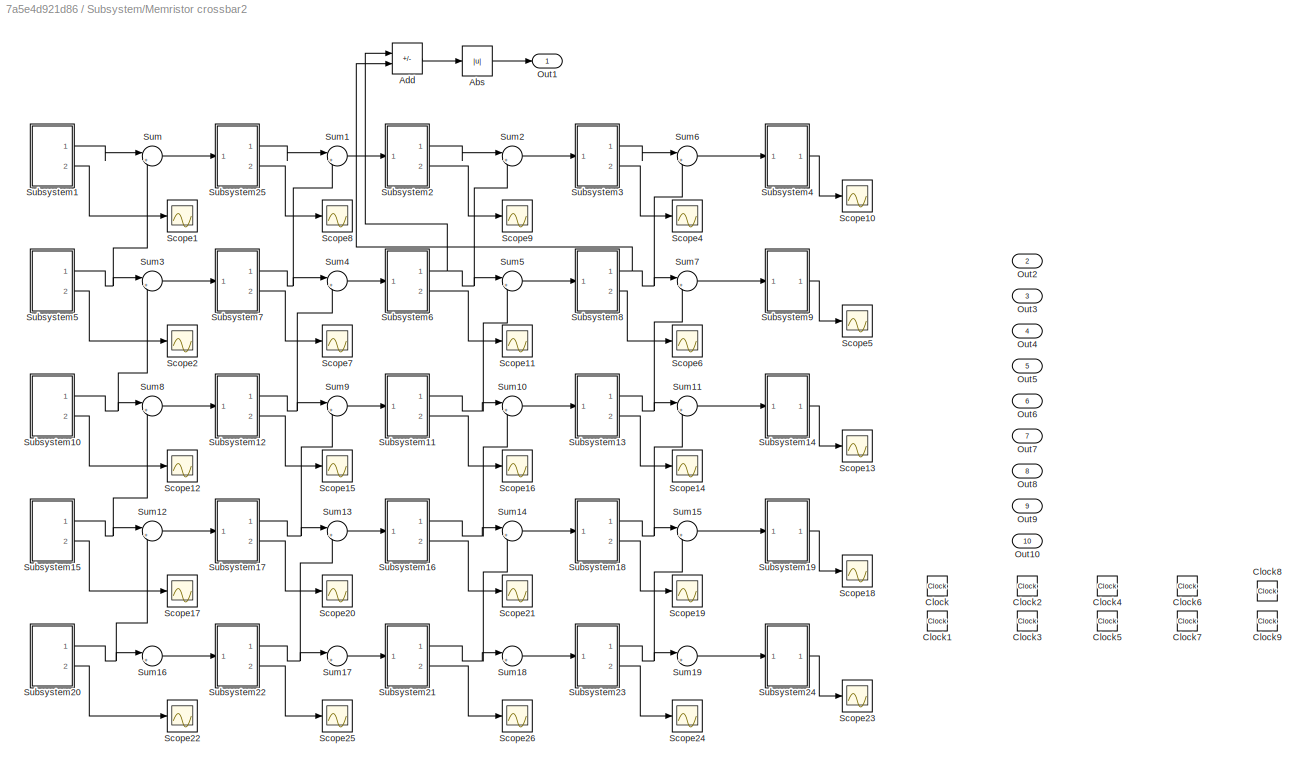
BLOCK [SubSystem] Subsystem/Memristor crossbar2
  NameLocation = left
  Ports = [0, 10]
  RequestExecContextInheritance = off
BLOCK [Abs] Subsystem/Memristor crossbar2/Abs
  SaturateOnIntegerOverflow = off
BLOCK [Sum] Subsystem/Memristor crossbar2/Add
  IconShape = rectangular
  Inputs = +-
  Ports = [2, 1]
BLOCK [Clock] Subsystem/Memristor crossbar2/Clock
BLOCK [Clock] Subsystem/Memristor crossbar2/Clock1
BLOCK [Clock] Subsystem/Memristor crossbar2/Clock2
BLOCK [Clock] Subsystem/Memristor crossbar2/Clock3
BLOCK [Clock] Subsystem/Memristor crossbar2/Clock4
BLOCK [Clock] Subsystem/Memristor crossbar2/Clock5
BLOCK [Clock] Subsystem/Memristor crossbar2/Clock6
BLOCK [Clock] Subsystem/Memristor crossbar2/Clock7
BLOCK [Clock] Subsystem/Memristor crossbar2/Clock8
BLOCK [Clock] Subsystem/Memristor crossbar2/Clock9
BLOCK [Outport] Subsystem/Memristor crossbar2/Out1
BLOCK [Outport] Subsystem/Memristor crossbar2/Out10
  Port = 10
BLOCK [Outport] Subsystem/Memristor crossbar2/Out2
  Port = 2
BLOCK [Outport] Subsystem/Memristor crossbar2/Out3
  Port = 3
BLOCK [Outport] Subsystem/Memristor crossbar2/Out4
  Port = 4
BLOCK [Outport] Subsystem/Memristor crossbar2/Out5
  Port = 5
BLOCK [Outport] Subsystem/Memristor crossbar2/Out6
  Port = 6
BLOCK [Outport] Subsystem/Memristor crossbar2/Out7
  Port = 7
BLOCK [Outport] Subsystem/Memristor crossbar2/Out8
  Port = 8
BLOCK [Outport] Subsystem/Memristor crossbar2/Out9
  Port = 9
BLOCK [Scope] Subsystem/Memristor crossbar2/Scope1
  Floating = off
  NumInputPorts = 1
  Ports = [1]
BLOCK [Scope] Subsystem/Memristor crossbar2/Scope10
  Floating = off
  NumInputPorts = 1
  Ports = [1]
  ScopeSpecificationString = Simulink.scopes.TimeScopeBlockCfg('CurrentConfiguration', extmgr.ConfigurationSet(extmgr.Configuration('Core','General UI',true),extmgr.Configuration('Core','Source UI',true),extmgr.Configuration('Sources','WiredSimulink',true,'DataLoggingVariableName','ScopeData8'),extmgr.Configuration('Visuals','Time Domain',true,'SerializedDisplays',{struct('MinYLimReal','-2488454.82673','MaxYLimReal','2488478....<+1440ch>  <repeated x3 — deduplicated; at blocks: Scope10>
BLOCK [Scope] Subsystem/Memristor crossbar2/Scope11
  Floating = off
  NumInputPorts = 1
  Ports = [1]
BLOCK [Scope] Subsystem/Memristor crossbar2/Scope12
  Floating = off
  NumInputPorts = 1
  Ports = [1]
BLOCK [Scope] Subsystem/Memristor crossbar2/Scope13
  Floating = off
  NumInputPorts = 1
  Ports = [1]
BLOCK [Scope] Subsystem/Memristor crossbar2/Scope14
  Floating = off
  NumInputPorts = 1
  Ports = [1]
BLOCK [Scope] Subsystem/Memristor crossbar2/Scope15
  Floating = off
  NumInputPorts = 1
  Ports = [1]
BLOCK [Scope] Subsystem/Memristor crossbar2/Scope16
  Floating = off
  NumInputPorts = 1
  Ports = [1]
BLOCK [Scope] Subsystem/Memristor crossbar2/Scope17
  Floating = off
  NumInputPorts = 1
  Ports = [1]
BLOCK [Scope] Subsystem/Memristor crossbar2/Scope18
  Floating = off
  NumInputPorts = 1
  Ports = [1]
BLOCK [Scope] Subsystem/Memristor crossbar2/Scope19
  Floating = off
  NumInputPorts = 1
  Ports = [1]
  ScopeSpecificationString = Simulink.scopes.TimeScopeBlockCfg('CurrentConfiguration', extmgr.ConfigurationSet(extmgr.Configuration('Core','General UI',true),extmgr.Configuration('Core','Source UI',true),extmgr.Configuration('Sources','WiredSimulink',true,'DataLoggingVariableName','ScopeData13'),extmgr.Configuration('Visuals','Time Domain',true,'SerializedDisplays',{struct('MinYLimReal','-63.06686','MaxYLimReal','63.06119','Y...<+1378ch>  <repeated x3 — deduplicated; at blocks: Scope19>
BLOCK [Scope] Subsystem/Memristor crossbar2/Scope2
  Floating = off
  NumInputPorts = 1
  Ports = [1]
BLOCK [Scope] Subsystem/Memristor crossbar2/Scope20
  Floating = off
  NumInputPorts = 1
  Ports = [1]
  ScopeSpecificationString = Simulink.scopes.TimeScopeBlockCfg('CurrentConfiguration', extmgr.ConfigurationSet(extmgr.Configuration('Core','General UI',true),extmgr.Configuration('Core','Source UI',true),extmgr.Configuration('Sources','WiredSimulink',true,'DataLoggingVariableName','ScopeData14'),extmgr.Configuration('Visuals','Time Domain',true,'SerializedDisplays',{struct('MinYLimReal','-1.69776','MaxYLimReal','1.69782','YLa...<+1373ch>  <repeated x3 — deduplicated; at blocks: Scope20>
BLOCK [Scope] Subsystem/Memristor crossbar2/Scope21
  Floating = off
  NumInputPorts = 1
  Ports = [1]
BLOCK [Scope] Subsystem/Memristor crossbar2/Scope22
  Floating = off
  NumInputPorts = 1
  Ports = [1]
BLOCK [Scope] Subsystem/Memristor crossbar2/Scope23
  Floating = off
  NumInputPorts = 1
  Ports = [1]
  ScopeSpecificationString = Simulink.scopes.TimeScopeBlockCfg('CurrentConfiguration', extmgr.ConfigurationSet(extmgr.Configuration('Core','General UI',true),extmgr.Configuration('Core','Source UI',true),extmgr.Configuration('Sources','WiredSimulink',true,'DataLoggingVariableName','ScopeData17'),extmgr.Configuration('Visuals','Time Domain',true,'SerializedDisplays',{struct('MinYLimReal','-0.02129','MaxYLimReal','0.02128','YLa...<+1400ch>  <repeated x3 — deduplicated; at blocks: Scope23>
BLOCK [Scope] Subsystem/Memristor crossbar2/Scope24
  Floating = off
  NumInputPorts = 1
  Ports = [1]
BLOCK [Scope] Subsystem/Memristor crossbar2/Scope25
  Floating = off
  NumInputPorts = 1
  Ports = [1]
BLOCK [Scope] Subsystem/Memristor crossbar2/Scope26
  Floating = off
  NumInputPorts = 1
  Ports = [1]
BLOCK [Scope] Subsystem/Memristor crossbar2/Scope4
  Floating = off
  NumInputPorts = 1
  Ports = [1]
BLOCK [Scope] Subsystem/Memristor crossbar2/Scope5
  Floating = off
  NumInputPorts = 1
  Ports = [1]
BLOCK [Scope] Subsystem/Memristor crossbar2/Scope6
  Floating = off
  NumInputPorts = 1
  Ports = [1]
BLOCK [Scope] Subsystem/Memristor crossbar2/Scope7
  Floating = off
  NumInputPorts = 1
  Ports = [1]
BLOCK [Scope] Subsystem/Memristor crossbar2/Scope8
  Floating = off
  NumInputPorts = 1
  Ports = [1]
  ScopeSpecificationString = Simulink.scopes.TimeScopeBlockCfg('CurrentConfiguration', extmgr.ConfigurationSet(extmgr.Configuration('Core','General UI',true),extmgr.Configuration('Core','Source UI',true),extmgr.Configuration('Sources','WiredSimulink',true,'DataLoggingVariableName','ScopeData6'),extmgr.Configuration('Visuals','Time Domain',true,'SerializedDisplays',{struct('MinYLimReal','-1.69776','MaxYLimReal','1.69782','YLab...<+1372ch>  <repeated x3 — deduplicated; at blocks: Scope8>
BLOCK [Scope] Subsystem/Memristor crossbar2/Scope9
  Floating = off
  NumInputPorts = 1
  Ports = [1]
BLOCK [SubSystem] Subsystem/Memristor crossbar2/Subsystem1
  Ports = [0, 2]
  RequestExecContextInheritance = off
BLOCK [Sin] Subsystem/Memristor crossbar2/Subsystem1/ V
  Amplitude = 0.1
  Frequency = 0.5
  Ports = [0, 1]
  SampleTime = 0
BLOCK [Gain] Subsystem/Memristor crossbar2/Subsystem1/2p
  Gain = 2
BLOCK [Gain] Subsystem/Memristor crossbar2/Subsystem1/2x
  Gain = 2
  NameLocation = right
BLOCK [Sum] Subsystem/Memristor crossbar2/Subsystem1/Add
  IconShape = rectangular
  Inputs = -+
  Ports = [2, 1]
BLOCK [Sum] Subsystem/Memristor crossbar2/Subsystem1/Add1
  IconShape = rectangular
  Ports = [2, 1]
BLOCK [Sum] Subsystem/Memristor crossbar2/Subsystem1/Add2
  IconShape = rectangular
  Inputs = -+
  Ports = [2, 1]
BLOCK [Sum] Subsystem/Memristor crossbar2/Subsystem1/Add3
  IconShape = rectangular
  Inputs = +-
  Ports = [2, 1]
BLOCK [Constant] Subsystem/Memristor crossbar2/Subsystem1/Constant
BLOCK [Constant] Subsystem/Memristor crossbar2/Subsystem1/Constant10
  NameLocation = top
  Value = 0
BLOCK [Constant] Subsystem/Memristor crossbar2/Subsystem1/Constant4
BLOCK [Constant] Subsystem/Memristor crossbar2/Subsystem1/Constant9
BLOCK [Constant] Subsystem/Memristor crossbar2/Subsystem1/D
  Value = 10^(-8)
BLOCK [Product] Subsystem/Memristor crossbar2/Subsystem1/Divide
  Inputs = */
  Ports = [2, 1]
BLOCK [Product] Subsystem/Memristor crossbar2/Subsystem1/Divide1
  Inputs = **/
  Ports = [3, 1]
BLOCK [Gain] Subsystem/Memristor crossbar2/Subsystem1/Gain2
  Gain = 0.5
BLOCK [Scope] Subsystem/Memristor crossbar2/Subsystem1/I-t
  Floating = off
  NumInputPorts = 1
  Ports = [1]
BLOCK [Integrator] Subsystem/Memristor crossbar2/Subsystem1/Integrator
  Ports = [1, 1]
BLOCK [Integrator] Subsystem/Memristor crossbar2/Subsystem1/Integrator Initial condition source
  InitialConditionSource = external
  Ports = [2, 1]
BLOCK [Math] Subsystem/Memristor crossbar2/Subsystem1/Math Function
  Operator = pow
  Ports = [2, 1]
BLOCK [Math] Subsystem/Memristor crossbar2/Subsystem1/Math Function1
  Operator = square
  Ports = [1, 1]
BLOCK [Outport] Subsystem/Memristor crossbar2/Subsystem1/Out1
BLOCK [Outport] Subsystem/Memristor crossbar2/Subsystem1/Out2
  Port = 2
BLOCK [Product] Subsystem/Memristor crossbar2/Subsystem1/Product1
  Ports = [2, 1]
BLOCK [Product] Subsystem/Memristor crossbar2/Subsystem1/Product2
  Ports = [2, 1]
BLOCK [Product] Subsystem/Memristor crossbar2/Subsystem1/Product3
  Inputs = 3
  Ports = [3, 1]
BLOCK [Product] Subsystem/Memristor crossbar2/Subsystem1/Product4
  Ports = [2, 1]
BLOCK [Constant] Subsystem/Memristor crossbar2/Subsystem1/R_off
  Value = 20000
BLOCK [Constant] Subsystem/Memristor crossbar2/Subsystem1/R_on
  Value = 100
BLOCK [Constant] Subsystem/Memristor crossbar2/Subsystem1/R_on1
  Value = 100
BLOCK [Switch] Subsystem/Memristor crossbar2/Subsystem1/Switch
  InputSameDT = off
  SaturateOnIntegerOverflow = off
  Threshold = 1
BLOCK [Switch] Subsystem/Memristor crossbar2/Subsystem1/Switch1
  InputSameDT = off
  NameLocation = top
  SaturateOnIntegerOverflow = off
BLOCK [Scope] Subsystem/Memristor crossbar2/Subsystem1/V-t
  Floating = off
  NumInputPorts = 1
  Ports = [1]
BLOCK [Reference] Subsystem/Memristor crossbar2/Subsystem1/XY Graph  REF=simulink/Sinks/XY Graph
  Ports = [2]
  SourceBlock = simulink/Sinks/XY Graph
  SourceProductBaseCode = SL
  SourceType = XY scope.
BLOCK [Constant] Subsystem/Memristor crossbar2/Subsystem1/p
  Value = 10
BLOCK [Scope] Subsystem/Memristor crossbar2/Subsystem1/x-t
  Floating = off
  NameLocation = right
  NumInputPorts = 1
  Ports = [1]
BLOCK [Constant] Subsystem/Memristor crossbar2/Subsystem1/x0
  Value = 0.7
BLOCK [Constant] Subsystem/Memristor crossbar2/Subsystem1/𝜇_𝑣
  Value = 10^(-14)
BLOCK [SubSystem] Subsystem/Memristor crossbar2/Subsystem10
  Ports = [0, 2]
  RequestExecContextInheritance = off
BLOCK [Sin] Subsystem/Memristor crossbar2/Subsystem10/ V
  Amplitude = 0.1
  Frequency = 0.5
  Ports = [0, 1]
  SampleTime = 0
BLOCK [Gain] Subsystem/Memristor crossbar2/Subsystem10/2p
  Gain = 2
BLOCK [Gain] Subsystem/Memristor crossbar2/Subsystem10/2x
  Gain = 2
  NameLocation = right
BLOCK [Sum] Subsystem/Memristor crossbar2/Subsystem10/Add
  IconShape = rectangular
  Inputs = -+
  Ports = [2, 1]
BLOCK [Sum] Subsystem/Memristor crossbar2/Subsystem10/Add1
  IconShape = rectangular
  Ports = [2, 1]
BLOCK [Sum] Subsystem/Memristor crossbar2/Subsystem10/Add2
  IconShape = rectangular
  Inputs = -+
  Ports = [2, 1]
BLOCK [Sum] Subsystem/Memristor crossbar2/Subsystem10/Add3
  IconShape = rectangular
  Inputs = +-
  Ports = [2, 1]
BLOCK [Constant] Subsystem/Memristor crossbar2/Subsystem10/Constant
BLOCK [Constant] Subsystem/Memristor crossbar2/Subsystem10/Constant10
  NameLocation = top
  Value = 0
BLOCK [Constant] Subsystem/Memristor crossbar2/Subsystem10/Constant4
BLOCK [Constant] Subsystem/Memristor crossbar2/Subsystem10/Constant9
BLOCK [Constant] Subsystem/Memristor crossbar2/Subsystem10/D
  Value = 10^(-8)
BLOCK [Product] Subsystem/Memristor crossbar2/Subsystem10/Divide
  Inputs = */
  Ports = [2, 1]
BLOCK [Product] Subsystem/Memristor crossbar2/Subsystem10/Divide1
  Inputs = **/
  Ports = [3, 1]
BLOCK [Gain] Subsystem/Memristor crossbar2/Subsystem10/Gain2
  Gain = 0.5
BLOCK [Scope] Subsystem/Memristor crossbar2/Subsystem10/I-t
  Floating = off
  NumInputPorts = 1
  Ports = [1]
BLOCK [Integrator] Subsystem/Memristor crossbar2/Subsystem10/Integrator
  Ports = [1, 1]
BLOCK [Integrator] Subsystem/Memristor crossbar2/Subsystem10/Integrator Initial condition source
  InitialConditionSource = external
  Ports = [2, 1]
BLOCK [Math] Subsystem/Memristor crossbar2/Subsystem10/Math Function
  Operator = pow
  Ports = [2, 1]
BLOCK [Math] Subsystem/Memristor crossbar2/Subsystem10/Math Function1
  Operator = square
  Ports = [1, 1]
BLOCK [Outport] Subsystem/Memristor crossbar2/Subsystem10/Out1
BLOCK [Outport] Subsystem/Memristor crossbar2/Subsystem10/Out2
  Port = 2
BLOCK [Product] Subsystem/Memristor crossbar2/Subsystem10/Product1
  Ports = [2, 1]
BLOCK [Product] Subsystem/Memristor crossbar2/Subsystem10/Product2
  Ports = [2, 1]
BLOCK [Product] Subsystem/Memristor crossbar2/Subsystem10/Product3
  Inputs = 3
  Ports = [3, 1]
BLOCK [Product] Subsystem/Memristor crossbar2/Subsystem10/Product4
  Ports = [2, 1]
BLOCK [Constant] Subsystem/Memristor crossbar2/Subsystem10/R_off
  Value = 20000
BLOCK [Constant] Subsystem/Memristor crossbar2/Subsystem10/R_on
  Value = 100
BLOCK [Constant] Subsystem/Memristor crossbar2/Subsystem10/R_on1
  Value = 100
BLOCK [Switch] Subsystem/Memristor crossbar2/Subsystem10/Switch
  InputSameDT = off
  SaturateOnIntegerOverflow = off
  Threshold = 1
BLOCK [Switch] Subsystem/Memristor crossbar2/Subsystem10/Switch1
  InputSameDT = off
  NameLocation = top
  SaturateOnIntegerOverflow = off
BLOCK [Scope] Subsystem/Memristor crossbar2/Subsystem10/V-t
  Floating = off
  NumInputPorts = 1
  Ports = [1]
BLOCK [Constant] Subsystem/Memristor crossbar2/Subsystem10/p
  Value = 10
BLOCK [Scope] Subsystem/Memristor crossbar2/Subsystem10/x-t
  Floating = off
  NameLocation = right
  NumInputPorts = 1
  Ports = [1]
BLOCK [Constant] Subsystem/Memristor crossbar2/Subsystem10/x0
  Value = 0.7
BLOCK [Constant] Subsystem/Memristor crossbar2/Subsystem10/𝜇_𝑣
  Value = 10^(-14)
BLOCK [SubSystem] Subsystem/Memristor crossbar2/Subsystem11
  Ports = [1, 2]
  RequestExecContextInheritance = off
BLOCK [Sin] Subsystem/Memristor crossbar2/Subsystem11/ V
  Frequency = 0.5
  Ports = [0, 1]
  SampleTime = 0
BLOCK [Gain] Subsystem/Memristor crossbar2/Subsystem11/2p
  Gain = 2
BLOCK [Gain] Subsystem/Memristor crossbar2/Subsystem11/2x
  Gain = 2
  NameLocation = right
BLOCK [Sum] Subsystem/Memristor crossbar2/Subsystem11/Add
  IconShape = rectangular
  Inputs = -+
  Ports = [2, 1]
BLOCK [Sum] Subsystem/Memristor crossbar2/Subsystem11/Add1
  IconShape = rectangular
  Ports = [2, 1]
BLOCK [Sum] Subsystem/Memristor crossbar2/Subsystem11/Add2
  IconShape = rectangular
  Inputs = -+
  Ports = [2, 1]
BLOCK [Sum] Subsystem/Memristor crossbar2/Subsystem11/Add3
  IconShape = rectangular
  Inputs = +-
  Ports = [2, 1]
BLOCK [Sum] Subsystem/Memristor crossbar2/Subsystem11/Add4
  IconShape = rectangular
  Ports = [2, 1]
BLOCK [Constant] Subsystem/Memristor crossbar2/Subsystem11/Constant
BLOCK [Constant] Subsystem/Memristor crossbar2/Subsystem11/Constant10
  NameLocation = top
  Value = 0
BLOCK [Constant] Subsystem/Memristor crossbar2/Subsystem11/Constant4
BLOCK [Constant] Subsystem/Memristor crossbar2/Subsystem11/Constant9
BLOCK [Constant] Subsystem/Memristor crossbar2/Subsystem11/D
  Value = 10^(-8)
BLOCK [Product] Subsystem/Memristor crossbar2/Subsystem11/Divide
  Inputs = */
  Ports = [2, 1]
BLOCK [Product] Subsystem/Memristor crossbar2/Subsystem11/Divide1
  Inputs = **/
  Ports = [3, 1]
BLOCK [Gain] Subsystem/Memristor crossbar2/Subsystem11/Gain2
  Gain = 0.5
BLOCK [Scope] Subsystem/Memristor crossbar2/Subsystem11/I-t
  Floating = off
  NumInputPorts = 1
  Ports = [1]
BLOCK [Inport] Subsystem/Memristor crossbar2/Subsystem11/In1
BLOCK [Integrator] Subsystem/Memristor crossbar2/Subsystem11/Integrator
  Ports = [1, 1]
BLOCK [Integrator] Subsystem/Memristor crossbar2/Subsystem11/Integrator Initial condition source
  InitialConditionSource = external
  Ports = [2, 1]
BLOCK [Math] Subsystem/Memristor crossbar2/Subsystem11/Math Function
  Operator = pow
  Ports = [2, 1]
BLOCK [Math] Subsystem/Memristor crossbar2/Subsystem11/Math Function1
  Operator = square
  Ports = [1, 1]
BLOCK [Outport] Subsystem/Memristor crossbar2/Subsystem11/Out1
BLOCK [Outport] Subsystem/Memristor crossbar2/Subsystem11/Out2
  Port = 2
BLOCK [Product] Subsystem/Memristor crossbar2/Subsystem11/Product1
  Ports = [2, 1]
BLOCK [Product] Subsystem/Memristor crossbar2/Subsystem11/Product2
  Ports = [2, 1]
BLOCK [Product] Subsystem/Memristor crossbar2/Subsystem11/Product3
  Inputs = 3
  Ports = [3, 1]
BLOCK [Product] Subsystem/Memristor crossbar2/Subsystem11/Product4
  Ports = [2, 1]
BLOCK [Constant] Subsystem/Memristor crossbar2/Subsystem11/R_off
  Value = 20000
BLOCK [Constant] Subsystem/Memristor crossbar2/Subsystem11/R_on
  Value = 100
BLOCK [Constant] Subsystem/Memristor crossbar2/Subsystem11/R_on1
  Value = 100
BLOCK [Switch] Subsystem/Memristor crossbar2/Subsystem11/Switch
  InputSameDT = off
  SaturateOnIntegerOverflow = off
  Threshold = 1
BLOCK [Switch] Subsystem/Memristor crossbar2/Subsystem11/Switch1
  InputSameDT = off
  NameLocation = top
  SaturateOnIntegerOverflow = off
BLOCK [Scope] Subsystem/Memristor crossbar2/Subsystem11/V-t
  Floating = off
  NumInputPorts = 1
  Ports = [1]
BLOCK [Constant] Subsystem/Memristor crossbar2/Subsystem11/p
  Value = 10
BLOCK [Scope] Subsystem/Memristor crossbar2/Subsystem11/x-t
  Floating = off
  NameLocation = right
  NumInputPorts = 1
  Ports = [1]
BLOCK [Constant] Subsystem/Memristor crossbar2/Subsystem11/x0
  Value = 0.7
BLOCK [Constant] Subsystem/Memristor crossbar2/Subsystem11/𝜇_𝑣
  Value = 10^(-14)
BLOCK [SubSystem] Subsystem/Memristor crossbar2/Subsystem12
  Ports = [1, 2]
  RequestExecContextInheritance = off
BLOCK [Sin] Subsystem/Memristor crossbar2/Subsystem12/ V
  Frequency = 0.5
  Ports = [0, 1]
  SampleTime = 0
BLOCK [Gain] Subsystem/Memristor crossbar2/Subsystem12/2p
  Gain = 2
BLOCK [Gain] Subsystem/Memristor crossbar2/Subsystem12/2x
  Gain = 2
  NameLocation = right
BLOCK [Sum] Subsystem/Memristor crossbar2/Subsystem12/Add
  IconShape = rectangular
  Inputs = -+
  Ports = [2, 1]
BLOCK [Sum] Subsystem/Memristor crossbar2/Subsystem12/Add1
  IconShape = rectangular
  Ports = [2, 1]
BLOCK [Sum] Subsystem/Memristor crossbar2/Subsystem12/Add2
  IconShape = rectangular
  Inputs = -+
  Ports = [2, 1]
BLOCK [Sum] Subsystem/Memristor crossbar2/Subsystem12/Add3
  IconShape = rectangular
  Inputs = +-
  Ports = [2, 1]
BLOCK [Sum] Subsystem/Memristor crossbar2/Subsystem12/Add4
  IconShape = rectangular
  Ports = [2, 1]
BLOCK [Constant] Subsystem/Memristor crossbar2/Subsystem12/Constant
BLOCK [Constant] Subsystem/Memristor crossbar2/Subsystem12/Constant10
  NameLocation = top
  Value = 0
BLOCK [Constant] Subsystem/Memristor crossbar2/Subsystem12/Constant4
BLOCK [Constant] Subsystem/Memristor crossbar2/Subsystem12/Constant9
BLOCK [Constant] Subsystem/Memristor crossbar2/Subsystem12/D
  Value = 10^(-8)
BLOCK [Product] Subsystem/Memristor crossbar2/Subsystem12/Divide
  Inputs = */
  Ports = [2, 1]
BLOCK [Product] Subsystem/Memristor crossbar2/Subsystem12/Divide1
  Inputs = **/
  Ports = [3, 1]
BLOCK [Gain] Subsystem/Memristor crossbar2/Subsystem12/Gain2
  Gain = 0.5
BLOCK [Scope] Subsystem/Memristor crossbar2/Subsystem12/I-t
  Floating = off
  NumInputPorts = 1
  Ports = [1]
BLOCK [Inport] Subsystem/Memristor crossbar2/Subsystem12/In1
BLOCK [Integrator] Subsystem/Memristor crossbar2/Subsystem12/Integrator
  Ports = [1, 1]
BLOCK [Integrator] Subsystem/Memristor crossbar2/Subsystem12/Integrator Initial condition source
  InitialConditionSource = external
  Ports = [2, 1]
BLOCK [Math] Subsystem/Memristor crossbar2/Subsystem12/Math Function
  Operator = pow
  Ports = [2, 1]
BLOCK [Math] Subsystem/Memristor crossbar2/Subsystem12/Math Function1
  Operator = square
  Ports = [1, 1]
BLOCK [Outport] Subsystem/Memristor crossbar2/Subsystem12/Out1
BLOCK [Outport] Subsystem/Memristor crossbar2/Subsystem12/Out2
  Port = 2
BLOCK [Product] Subsystem/Memristor crossbar2/Subsystem12/Product1
  Ports = [2, 1]
BLOCK [Product] Subsystem/Memristor crossbar2/Subsystem12/Product2
  Ports = [2, 1]
BLOCK [Product] Subsystem/Memristor crossbar2/Subsystem12/Product3
  Inputs = 3
  Ports = [3, 1]
BLOCK [Product] Subsystem/Memristor crossbar2/Subsystem12/Product4
  Ports = [2, 1]
BLOCK [Constant] Subsystem/Memristor crossbar2/Subsystem12/R_off
  Value = 20000
BLOCK [Constant] Subsystem/Memristor crossbar2/Subsystem12/R_on
  Value = 100
BLOCK [Constant] Subsystem/Memristor crossbar2/Subsystem12/R_on1
  Value = 100
BLOCK [Switch] Subsystem/Memristor crossbar2/Subsystem12/Switch
  InputSameDT = off
  SaturateOnIntegerOverflow = off
  Threshold = 1
BLOCK [Switch] Subsystem/Memristor crossbar2/Subsystem12/Switch1
  InputSameDT = off
  NameLocation = top
  SaturateOnIntegerOverflow = off
BLOCK [Scope] Subsystem/Memristor crossbar2/Subsystem12/V-t
  Floating = off
  NumInputPorts = 1
  Ports = [1]
BLOCK [Constant] Subsystem/Memristor crossbar2/Subsystem12/p
  Value = 10
BLOCK [Scope] Subsystem/Memristor crossbar2/Subsystem12/x-t
  Floating = off
  NameLocation = right
  NumInputPorts = 1
  Ports = [1]
BLOCK [Constant] Subsystem/Memristor crossbar2/Subsystem12/x0
  Value = 0.7
BLOCK [Constant] Subsystem/Memristor crossbar2/Subsystem12/𝜇_𝑣
  Value = 10^(-14)
BLOCK [SubSystem] Subsystem/Memristor crossbar2/Subsystem13
  Ports = [1, 2]
  RequestExecContextInheritance = off
BLOCK [Sin] Subsystem/Memristor crossbar2/Subsystem13/ V
  Frequency = 0.5
  Ports = [0, 1]
  SampleTime = 0
BLOCK [Gain] Subsystem/Memristor crossbar2/Subsystem13/2p
  Gain = 2
BLOCK [Gain] Subsystem/Memristor crossbar2/Subsystem13/2x
  Gain = 2
  NameLocation = right
BLOCK [Sum] Subsystem/Memristor crossbar2/Subsystem13/Add
  IconShape = rectangular
  Inputs = -+
  Ports = [2, 1]
BLOCK [Sum] Subsystem/Memristor crossbar2/Subsystem13/Add1
  IconShape = rectangular
  Ports = [2, 1]
BLOCK [Sum] Subsystem/Memristor crossbar2/Subsystem13/Add2
  IconShape = rectangular
  Inputs = -+
  Ports = [2, 1]
BLOCK [Sum] Subsystem/Memristor crossbar2/Subsystem13/Add3
  IconShape = rectangular
  Inputs = +-
  Ports = [2, 1]
BLOCK [Sum] Subsystem/Memristor crossbar2/Subsystem13/Add4
  IconShape = rectangular
  Ports = [2, 1]
BLOCK [Constant] Subsystem/Memristor crossbar2/Subsystem13/Constant
BLOCK [Constant] Subsystem/Memristor crossbar2/Subsystem13/Constant10
  NameLocation = top
  Value = 0
BLOCK [Constant] Subsystem/Memristor crossbar2/Subsystem13/Constant4
BLOCK [Constant] Subsystem/Memristor crossbar2/Subsystem13/Constant9
BLOCK [Constant] Subsystem/Memristor crossbar2/Subsystem13/D
  Value = 10^(-8)
BLOCK [Product] Subsystem/Memristor crossbar2/Subsystem13/Divide
  Inputs = */
  Ports = [2, 1]
BLOCK [Product] Subsystem/Memristor crossbar2/Subsystem13/Divide1
  Inputs = **/
  Ports = [3, 1]
BLOCK [Gain] Subsystem/Memristor crossbar2/Subsystem13/Gain2
  Gain = 0.5
BLOCK [Scope] Subsystem/Memristor crossbar2/Subsystem13/I-t
  Floating = off
  NumInputPorts = 1
  Ports = [1]
BLOCK [Inport] Subsystem/Memristor crossbar2/Subsystem13/In1
BLOCK [Integrator] Subsystem/Memristor crossbar2/Subsystem13/Integrator
  Ports = [1, 1]
BLOCK [Integrator] Subsystem/Memristor crossbar2/Subsystem13/Integrator Initial condition source
  InitialConditionSource = external
  Ports = [2, 1]
BLOCK [Math] Subsystem/Memristor crossbar2/Subsystem13/Math Function
  Operator = pow
  Ports = [2, 1]
BLOCK [Math] Subsystem/Memristor crossbar2/Subsystem13/Math Function1
  Operator = square
  Ports = [1, 1]
BLOCK [Outport] Subsystem/Memristor crossbar2/Subsystem13/Out1
BLOCK [Outport] Subsystem/Memristor crossbar2/Subsystem13/Out2
  Port = 2
BLOCK [Product] Subsystem/Memristor crossbar2/Subsystem13/Product1
  Ports = [2, 1]
BLOCK [Product] Subsystem/Memristor crossbar2/Subsystem13/Product2
  Ports = [2, 1]
BLOCK [Product] Subsystem/Memristor crossbar2/Subsystem13/Product3
  Inputs = 3
  Ports = [3, 1]
BLOCK [Product] Subsystem/Memristor crossbar2/Subsystem13/Product4
  Ports = [2, 1]
BLOCK [Constant] Subsystem/Memristor crossbar2/Subsystem13/R_off
  Value = 20000
BLOCK [Constant] Subsystem/Memristor crossbar2/Subsystem13/R_on
  Value = 100
BLOCK [Constant] Subsystem/Memristor crossbar2/Subsystem13/R_on1
  Value = 100
BLOCK [Switch] Subsystem/Memristor crossbar2/Subsystem13/Switch
  InputSameDT = off
  SaturateOnIntegerOverflow = off
  Threshold = 1
BLOCK [Switch] Subsystem/Memristor crossbar2/Subsystem13/Switch1
  InputSameDT = off
  NameLocation = top
  SaturateOnIntegerOverflow = off
BLOCK [Scope] Subsystem/Memristor crossbar2/Subsystem13/V-t
  Floating = off
  NumInputPorts = 1
  Ports = [1]
BLOCK [Constant] Subsystem/Memristor crossbar2/Subsystem13/p
  Value = 10
BLOCK [Scope] Subsystem/Memristor crossbar2/Subsystem13/x-t
  Floating = off
  NameLocation = right
  NumInputPorts = 1
  Ports = [1]
BLOCK [Constant] Subsystem/Memristor crossbar2/Subsystem13/x0
  Value = 0.7
BLOCK [Constant] Subsystem/Memristor crossbar2/Subsystem13/𝜇_𝑣
  Value = 10^(-14)
BLOCK [SubSystem] Subsystem/Memristor crossbar2/Subsystem14
  Ports = [1, 1]
  RequestExecContextInheritance = off
BLOCK [Sin] Subsystem/Memristor crossbar2/Subsystem14/ V
  Frequency = 0.5
  Ports = [0, 1]
  SampleTime = 0
BLOCK [Gain] Subsystem/Memristor crossbar2/Subsystem14/2p
  Gain = 2
BLOCK [Gain] Subsystem/Memristor crossbar2/Subsystem14/2x
  Gain = 2
  NameLocation = right
BLOCK [Sum] Subsystem/Memristor crossbar2/Subsystem14/Add
  IconShape = rectangular
  Inputs = -+
  Ports = [2, 1]
BLOCK [Sum] Subsystem/Memristor crossbar2/Subsystem14/Add1
  IconShape = rectangular
  Ports = [2, 1]
BLOCK [Sum] Subsystem/Memristor crossbar2/Subsystem14/Add2
  IconShape = rectangular
  Inputs = -+
  Ports = [2, 1]
BLOCK [Sum] Subsystem/Memristor crossbar2/Subsystem14/Add3
  IconShape = rectangular
  Inputs = +-
  Ports = [2, 1]
BLOCK [Sum] Subsystem/Memristor crossbar2/Subsystem14/Add4
  IconShape = rectangular
  Ports = [2, 1]
BLOCK [Constant] Subsystem/Memristor crossbar2/Subsystem14/Constant
BLOCK [Constant] Subsystem/Memristor crossbar2/Subsystem14/Constant10
  NameLocation = top
  Value = 0
BLOCK [Constant] Subsystem/Memristor crossbar2/Subsystem14/Constant4
BLOCK [Constant] Subsystem/Memristor crossbar2/Subsystem14/Constant9
BLOCK [Constant] Subsystem/Memristor crossbar2/Subsystem14/D
  Value = 10^(-8)
BLOCK [Product] Subsystem/Memristor crossbar2/Subsystem14/Divide
  Inputs = */
  Ports = [2, 1]
BLOCK [Product] Subsystem/Memristor crossbar2/Subsystem14/Divide1
  Inputs = **/
  Ports = [3, 1]
BLOCK [Gain] Subsystem/Memristor crossbar2/Subsystem14/Gain2
  Gain = 0.5
BLOCK [Scope] Subsystem/Memristor crossbar2/Subsystem14/I-t
  Floating = off
  NumInputPorts = 1
  Ports = [1]
BLOCK [Inport] Subsystem/Memristor crossbar2/Subsystem14/In1
BLOCK [Integrator] Subsystem/Memristor crossbar2/Subsystem14/Integrator
  Ports = [1, 1]
BLOCK [Integrator] Subsystem/Memristor crossbar2/Subsystem14/Integrator Initial condition source
  InitialConditionSource = external
  Ports = [2, 1]
BLOCK [Math] Subsystem/Memristor crossbar2/Subsystem14/Math Function
  Operator = pow
  Ports = [2, 1]
BLOCK [Math] Subsystem/Memristor crossbar2/Subsystem14/Math Function1
  Operator = square
  Ports = [1, 1]
BLOCK [Outport] Subsystem/Memristor crossbar2/Subsystem14/Out2
BLOCK [Product] Subsystem/Memristor crossbar2/Subsystem14/Product1
  Ports = [2, 1]
BLOCK [Product] Subsystem/Memristor crossbar2/Subsystem14/Product2
  Ports = [2, 1]
BLOCK [Product] Subsystem/Memristor crossbar2/Subsystem14/Product3
  Inputs = 3
  Ports = [3, 1]
BLOCK [Product] Subsystem/Memristor crossbar2/Subsystem14/Product4
  Ports = [2, 1]
BLOCK [Constant] Subsystem/Memristor crossbar2/Subsystem14/R_off
  Value = 20000
BLOCK [Constant] Subsystem/Memristor crossbar2/Subsystem14/R_on
  Value = 100
BLOCK [Constant] Subsystem/Memristor crossbar2/Subsystem14/R_on1
  Value = 100
BLOCK [Switch] Subsystem/Memristor crossbar2/Subsystem14/Switch
  InputSameDT = off
  SaturateOnIntegerOverflow = off
  Threshold = 1
BLOCK [Switch] Subsystem/Memristor crossbar2/Subsystem14/Switch1
  InputSameDT = off
  NameLocation = top
  SaturateOnIntegerOverflow = off
BLOCK [Scope] Subsystem/Memristor crossbar2/Subsystem14/V-t
  Floating = off
  NumInputPorts = 1
  Ports = [1]
BLOCK [Constant] Subsystem/Memristor crossbar2/Subsystem14/p
  Value = 10
BLOCK [Scope] Subsystem/Memristor crossbar2/Subsystem14/x-t
  Floating = off
  NameLocation = right
  NumInputPorts = 1
  Ports = [1]
BLOCK [Constant] Subsystem/Memristor crossbar2/Subsystem14/x0
  Value = 0.7
BLOCK [Constant] Subsystem/Memristor crossbar2/Subsystem14/𝜇_𝑣
  Value = 10^(-14)
BLOCK [SubSystem] Subsystem/Memristor crossbar2/Subsystem15
  Ports = [0, 2]
  RequestExecContextInheritance = off
BLOCK [Sin] Subsystem/Memristor crossbar2/Subsystem15/ V
  Amplitude = 0.1
  Frequency = 0.5
  Ports = [0, 1]
  SampleTime = 0
BLOCK [Gain] Subsystem/Memristor crossbar2/Subsystem15/2p
  Gain = 2
BLOCK [Gain] Subsystem/Memristor crossbar2/Subsystem15/2x
  Gain = 2
  NameLocation = right
BLOCK [Sum] Subsystem/Memristor crossbar2/Subsystem15/Add
  IconShape = rectangular
  Inputs = -+
  Ports = [2, 1]
BLOCK [Sum] Subsystem/Memristor crossbar2/Subsystem15/Add1
  IconShape = rectangular
  Ports = [2, 1]
BLOCK [Sum] Subsystem/Memristor crossbar2/Subsystem15/Add2
  IconShape = rectangular
  Inputs = -+
  Ports = [2, 1]
BLOCK [Sum] Subsystem/Memristor crossbar2/Subsystem15/Add3
  IconShape = rectangular
  Inputs = +-
  Ports = [2, 1]
BLOCK [Constant] Subsystem/Memristor crossbar2/Subsystem15/Constant
BLOCK [Constant] Subsystem/Memristor crossbar2/Subsystem15/Constant10
  NameLocation = top
  Value = 0
BLOCK [Constant] Subsystem/Memristor crossbar2/Subsystem15/Constant4
BLOCK [Constant] Subsystem/Memristor crossbar2/Subsystem15/Constant9
BLOCK [Constant] Subsystem/Memristor crossbar2/Subsystem15/D
  Value = 10^(-8)
BLOCK [Product] Subsystem/Memristor crossbar2/Subsystem15/Divide
  Inputs = */
  Ports = [2, 1]
BLOCK [Product] Subsystem/Memristor crossbar2/Subsystem15/Divide1
  Inputs = **/
  Ports = [3, 1]
BLOCK [Gain] Subsystem/Memristor crossbar2/Subsystem15/Gain2
  Gain = 0.5
BLOCK [Scope] Subsystem/Memristor crossbar2/Subsystem15/I-t
  Floating = off
  NumInputPorts = 1
  Ports = [1]
BLOCK [Integrator] Subsystem/Memristor crossbar2/Subsystem15/Integrator
  Ports = [1, 1]
BLOCK [Integrator] Subsystem/Memristor crossbar2/Subsystem15/Integrator Initial condition source
  InitialConditionSource = external
  Ports = [2, 1]
BLOCK [Math] Subsystem/Memristor crossbar2/Subsystem15/Math Function
  Operator = pow
  Ports = [2, 1]
BLOCK [Math] Subsystem/Memristor crossbar2/Subsystem15/Math Function1
  Operator = square
  Ports = [1, 1]
BLOCK [Outport] Subsystem/Memristor crossbar2/Subsystem15/Out1
BLOCK [Outport] Subsystem/Memristor crossbar2/Subsystem15/Out2
  Port = 2
BLOCK [Product] Subsystem/Memristor crossbar2/Subsystem15/Product1
  Ports = [2, 1]
BLOCK [Product] Subsystem/Memristor crossbar2/Subsystem15/Product2
  Ports = [2, 1]
BLOCK [Product] Subsystem/Memristor crossbar2/Subsystem15/Product3
  Inputs = 3
  Ports = [3, 1]
BLOCK [Product] Subsystem/Memristor crossbar2/Subsystem15/Product4
  Ports = [2, 1]
BLOCK [Constant] Subsystem/Memristor crossbar2/Subsystem15/R_off
  Value = 20000
BLOCK [Constant] Subsystem/Memristor crossbar2/Subsystem15/R_on
  Value = 100
BLOCK [Constant] Subsystem/Memristor crossbar2/Subsystem15/R_on1
  Value = 100
BLOCK [Switch] Subsystem/Memristor crossbar2/Subsystem15/Switch
  InputSameDT = off
  SaturateOnIntegerOverflow = off
  Threshold = 1
BLOCK [Switch] Subsystem/Memristor crossbar2/Subsystem15/Switch1
  InputSameDT = off
  NameLocation = top
  SaturateOnIntegerOverflow = off
BLOCK [Scope] Subsystem/Memristor crossbar2/Subsystem15/V-t
  Floating = off
  NumInputPorts = 1
  Ports = [1]
BLOCK [Constant] Subsystem/Memristor crossbar2/Subsystem15/p
  Value = 10
BLOCK [Scope] Subsystem/Memristor crossbar2/Subsystem15/x-t
  Floating = off
  NameLocation = right
  NumInputPorts = 1
  Ports = [1]
BLOCK [Constant] Subsystem/Memristor crossbar2/Subsystem15/x0
  Value = 0.7
BLOCK [Constant] Subsystem/Memristor crossbar2/Subsystem15/𝜇_𝑣
  Value = 10^(-14)
BLOCK [SubSystem] Subsystem/Memristor crossbar2/Subsystem16
  Ports = [1, 2]
  RequestExecContextInheritance = off
BLOCK [Sin] Subsystem/Memristor crossbar2/Subsystem16/ V
  Frequency = 0.5
  Ports = [0, 1]
  SampleTime = 0
BLOCK [Gain] Subsystem/Memristor crossbar2/Subsystem16/2p
  Gain = 2
BLOCK [Gain] Subsystem/Memristor crossbar2/Subsystem16/2x
  Gain = 2
  NameLocation = right
BLOCK [Sum] Subsystem/Memristor crossbar2/Subsystem16/Add
  IconShape = rectangular
  Inputs = -+
  Ports = [2, 1]
BLOCK [Sum] Subsystem/Memristor crossbar2/Subsystem16/Add1
  IconShape = rectangular
  Ports = [2, 1]
BLOCK [Sum] Subsystem/Memristor crossbar2/Subsystem16/Add2
  IconShape = rectangular
  Inputs = -+
  Ports = [2, 1]
BLOCK [Sum] Subsystem/Memristor crossbar2/Subsystem16/Add3
  IconShape = rectangular
  Inputs = +-
  Ports = [2, 1]
BLOCK [Sum] Subsystem/Memristor crossbar2/Subsystem16/Add4
  IconShape = rectangular
  Ports = [2, 1]
BLOCK [Constant] Subsystem/Memristor crossbar2/Subsystem16/Constant
BLOCK [Constant] Subsystem/Memristor crossbar2/Subsystem16/Constant10
  NameLocation = top
  Value = 0
BLOCK [Constant] Subsystem/Memristor crossbar2/Subsystem16/Constant4
BLOCK [Constant] Subsystem/Memristor crossbar2/Subsystem16/Constant9
BLOCK [Constant] Subsystem/Memristor crossbar2/Subsystem16/D
  Value = 10^(-8)
BLOCK [Product] Subsystem/Memristor crossbar2/Subsystem16/Divide
  Inputs = */
  Ports = [2, 1]
BLOCK [Product] Subsystem/Memristor crossbar2/Subsystem16/Divide1
  Inputs = **/
  Ports = [3, 1]
BLOCK [Gain] Subsystem/Memristor crossbar2/Subsystem16/Gain2
  Gain = 0.5
BLOCK [Scope] Subsystem/Memristor crossbar2/Subsystem16/I-t
  Floating = off
  NumInputPorts = 1
  Ports = [1]
BLOCK [Inport] Subsystem/Memristor crossbar2/Subsystem16/In1
BLOCK [Integrator] Subsystem/Memristor crossbar2/Subsystem16/Integrator
  Ports = [1, 1]
BLOCK [Integrator] Subsystem/Memristor crossbar2/Subsystem16/Integrator Initial condition source
  InitialConditionSource = external
  Ports = [2, 1]
BLOCK [Math] Subsystem/Memristor crossbar2/Subsystem16/Math Function
  Operator = pow
  Ports = [2, 1]
BLOCK [Math] Subsystem/Memristor crossbar2/Subsystem16/Math Function1
  Operator = square
  Ports = [1, 1]
BLOCK [Outport] Subsystem/Memristor crossbar2/Subsystem16/Out1
BLOCK [Outport] Subsystem/Memristor crossbar2/Subsystem16/Out2
  Port = 2
BLOCK [Product] Subsystem/Memristor crossbar2/Subsystem16/Product1
  Ports = [2, 1]
BLOCK [Product] Subsystem/Memristor crossbar2/Subsystem16/Product2
  Ports = [2, 1]
BLOCK [Product] Subsystem/Memristor crossbar2/Subsystem16/Product3
  Inputs = 3
  Ports = [3, 1]
BLOCK [Product] Subsystem/Memristor crossbar2/Subsystem16/Product4
  Ports = [2, 1]
BLOCK [Constant] Subsystem/Memristor crossbar2/Subsystem16/R_off
  Value = 20000
BLOCK [Constant] Subsystem/Memristor crossbar2/Subsystem16/R_on
  Value = 100
BLOCK [Constant] Subsystem/Memristor crossbar2/Subsystem16/R_on1
  Value = 100
BLOCK [Switch] Subsystem/Memristor crossbar2/Subsystem16/Switch
  InputSameDT = off
  SaturateOnIntegerOverflow = off
  Threshold = 1
BLOCK [Switch] Subsystem/Memristor crossbar2/Subsystem16/Switch1
  InputSameDT = off
  NameLocation = top
  SaturateOnIntegerOverflow = off
BLOCK [Scope] Subsystem/Memristor crossbar2/Subsystem16/V-t
  Floating = off
  NumInputPorts = 1
  Ports = [1]
BLOCK [Constant] Subsystem/Memristor crossbar2/Subsystem16/p
  Value = 10
BLOCK [Scope] Subsystem/Memristor crossbar2/Subsystem16/x-t
  Floating = off
  NameLocation = right
  NumInputPorts = 1
  Ports = [1]
BLOCK [Constant] Subsystem/Memristor crossbar2/Subsystem16/x0
  Value = 0.7
BLOCK [Constant] Subsystem/Memristor crossbar2/Subsystem16/𝜇_𝑣
  Value = 10^(-14)
BLOCK [SubSystem] Subsystem/Memristor crossbar2/Subsystem17
  Ports = [1, 2]
  RequestExecContextInheritance = off
BLOCK [Sin] Subsystem/Memristor crossbar2/Subsystem17/ V
  Frequency = 0.5
  Ports = [0, 1]
  SampleTime = 0
BLOCK [Gain] Subsystem/Memristor crossbar2/Subsystem17/2p
  Gain = 2
BLOCK [Gain] Subsystem/Memristor crossbar2/Subsystem17/2x
  Gain = 2
  NameLocation = right
BLOCK [Sum] Subsystem/Memristor crossbar2/Subsystem17/Add
  IconShape = rectangular
  Inputs = -+
  Ports = [2, 1]
BLOCK [Sum] Subsystem/Memristor crossbar2/Subsystem17/Add1
  IconShape = rectangular
  Ports = [2, 1]
BLOCK [Sum] Subsystem/Memristor crossbar2/Subsystem17/Add2
  IconShape = rectangular
  Inputs = -+
  Ports = [2, 1]
BLOCK [Sum] Subsystem/Memristor crossbar2/Subsystem17/Add3
  IconShape = rectangular
  Inputs = +-
  Ports = [2, 1]
BLOCK [Sum] Subsystem/Memristor crossbar2/Subsystem17/Add4
  IconShape = rectangular
  Ports = [2, 1]
BLOCK [Constant] Subsystem/Memristor crossbar2/Subsystem17/Constant
BLOCK [Constant] Subsystem/Memristor crossbar2/Subsystem17/Constant10
  NameLocation = top
  Value = 0
BLOCK [Constant] Subsystem/Memristor crossbar2/Subsystem17/Constant4
BLOCK [Constant] Subsystem/Memristor crossbar2/Subsystem17/Constant9
BLOCK [Constant] Subsystem/Memristor crossbar2/Subsystem17/D
  Value = 10^(-8)
BLOCK [Product] Subsystem/Memristor crossbar2/Subsystem17/Divide
  Inputs = */
  Ports = [2, 1]
BLOCK [Product] Subsystem/Memristor crossbar2/Subsystem17/Divide1
  Inputs = **/
  Ports = [3, 1]
BLOCK [Gain] Subsystem/Memristor crossbar2/Subsystem17/Gain2
  Gain = 0.5
BLOCK [Scope] Subsystem/Memristor crossbar2/Subsystem17/I-t
  Floating = off
  NumInputPorts = 1
  Ports = [1]
BLOCK [Inport] Subsystem/Memristor crossbar2/Subsystem17/In1
BLOCK [Integrator] Subsystem/Memristor crossbar2/Subsystem17/Integrator
  Ports = [1, 1]
BLOCK [Integrator] Subsystem/Memristor crossbar2/Subsystem17/Integrator Initial condition source
  InitialConditionSource = external
  Ports = [2, 1]
BLOCK [Math] Subsystem/Memristor crossbar2/Subsystem17/Math Function
  Operator = pow
  Ports = [2, 1]
BLOCK [Math] Subsystem/Memristor crossbar2/Subsystem17/Math Function1
  Operator = square
  Ports = [1, 1]
BLOCK [Outport] Subsystem/Memristor crossbar2/Subsystem17/Out1
BLOCK [Outport] Subsystem/Memristor crossbar2/Subsystem17/Out2
  Port = 2
BLOCK [Product] Subsystem/Memristor crossbar2/Subsystem17/Product1
  Ports = [2, 1]
BLOCK [Product] Subsystem/Memristor crossbar2/Subsystem17/Product2
  Ports = [2, 1]
BLOCK [Product] Subsystem/Memristor crossbar2/Subsystem17/Product3
  Inputs = 3
  Ports = [3, 1]
BLOCK [Product] Subsystem/Memristor crossbar2/Subsystem17/Product4
  Ports = [2, 1]
BLOCK [Constant] Subsystem/Memristor crossbar2/Subsystem17/R_off
  Value = 20000
BLOCK [Constant] Subsystem/Memristor crossbar2/Subsystem17/R_on
  Value = 100
BLOCK [Constant] Subsystem/Memristor crossbar2/Subsystem17/R_on1
  Value = 100
BLOCK [Switch] Subsystem/Memristor crossbar2/Subsystem17/Switch
  InputSameDT = off
  SaturateOnIntegerOverflow = off
  Threshold = 1
BLOCK [Switch] Subsystem/Memristor crossbar2/Subsystem17/Switch1
  InputSameDT = off
  NameLocation = top
  SaturateOnIntegerOverflow = off
BLOCK [Scope] Subsystem/Memristor crossbar2/Subsystem17/V-t
  Floating = off
  NumInputPorts = 1
  Ports = [1]
BLOCK [Reference] Subsystem/Memristor crossbar2/Subsystem17/XY Graph  REF=simulink/Sinks/XY Graph
  Ports = [2]
  SourceBlock = simulink/Sinks/XY Graph
  SourceProductBaseCode = SL
  SourceType = XY scope.
BLOCK [Constant] Subsystem/Memristor crossbar2/Subsystem17/p
  Value = 10
BLOCK [Scope] Subsystem/Memristor crossbar2/Subsystem17/x-t
  Floating = off
  NameLocation = right
  NumInputPorts = 1
  Ports = [1]
BLOCK [Constant] Subsystem/Memristor crossbar2/Subsystem17/x0
  Value = 0.7
BLOCK [Constant] Subsystem/Memristor crossbar2/Subsystem17/𝜇_𝑣
  Value = 10^(-14)
BLOCK [SubSystem] Subsystem/Memristor crossbar2/Subsystem18
  Ports = [1, 2]
  RequestExecContextInheritance = off
BLOCK [Sin] Subsystem/Memristor crossbar2/Subsystem18/ V
  Frequency = 0.5
  Ports = [0, 1]
  SampleTime = 0
BLOCK [Gain] Subsystem/Memristor crossbar2/Subsystem18/2p
  Gain = 2
BLOCK [Gain] Subsystem/Memristor crossbar2/Subsystem18/2x
  Gain = 2
  NameLocation = right
BLOCK [Sum] Subsystem/Memristor crossbar2/Subsystem18/Add
  IconShape = rectangular
  Inputs = -+
  Ports = [2, 1]
BLOCK [Sum] Subsystem/Memristor crossbar2/Subsystem18/Add1
  IconShape = rectangular
  Ports = [2, 1]
BLOCK [Sum] Subsystem/Memristor crossbar2/Subsystem18/Add2
  IconShape = rectangular
  Inputs = -+
  Ports = [2, 1]
BLOCK [Sum] Subsystem/Memristor crossbar2/Subsystem18/Add3
  IconShape = rectangular
  Inputs = +-
  Ports = [2, 1]
BLOCK [Sum] Subsystem/Memristor crossbar2/Subsystem18/Add4
  IconShape = rectangular
  Ports = [2, 1]
BLOCK [Constant] Subsystem/Memristor crossbar2/Subsystem18/Constant
BLOCK [Constant] Subsystem/Memristor crossbar2/Subsystem18/Constant10
  NameLocation = top
  Value = 0
BLOCK [Constant] Subsystem/Memristor crossbar2/Subsystem18/Constant4
BLOCK [Constant] Subsystem/Memristor crossbar2/Subsystem18/Constant9
BLOCK [Constant] Subsystem/Memristor crossbar2/Subsystem18/D
  Value = 10^(-8)
BLOCK [Product] Subsystem/Memristor crossbar2/Subsystem18/Divide
  Inputs = */
  Ports = [2, 1]
BLOCK [Product] Subsystem/Memristor crossbar2/Subsystem18/Divide1
  Inputs = **/
  Ports = [3, 1]
BLOCK [Gain] Subsystem/Memristor crossbar2/Subsystem18/Gain2
  Gain = 0.5
BLOCK [Scope] Subsystem/Memristor crossbar2/Subsystem18/I-t
  Floating = off
  NumInputPorts = 1
  Ports = [1]
BLOCK [Inport] Subsystem/Memristor crossbar2/Subsystem18/In1
BLOCK [Integrator] Subsystem/Memristor crossbar2/Subsystem18/Integrator
  Ports = [1, 1]
BLOCK [Integrator] Subsystem/Memristor crossbar2/Subsystem18/Integrator Initial condition source
  InitialConditionSource = external
  Ports = [2, 1]
BLOCK [Math] Subsystem/Memristor crossbar2/Subsystem18/Math Function
  Operator = pow
  Ports = [2, 1]
BLOCK [Math] Subsystem/Memristor crossbar2/Subsystem18/Math Function1
  Operator = square
  Ports = [1, 1]
BLOCK [Outport] Subsystem/Memristor crossbar2/Subsystem18/Out1
BLOCK [Outport] Subsystem/Memristor crossbar2/Subsystem18/Out2
  Port = 2
BLOCK [Product] Subsystem/Memristor crossbar2/Subsystem18/Product1
  Ports = [2, 1]
BLOCK [Product] Subsystem/Memristor crossbar2/Subsystem18/Product2
  Ports = [2, 1]
BLOCK [Product] Subsystem/Memristor crossbar2/Subsystem18/Product3
  Inputs = 3
  Ports = [3, 1]
BLOCK [Product] Subsystem/Memristor crossbar2/Subsystem18/Product4
  Ports = [2, 1]
BLOCK [Constant] Subsystem/Memristor crossbar2/Subsystem18/R_off
  Value = 20000
BLOCK [Constant] Subsystem/Memristor crossbar2/Subsystem18/R_on
  Value = 100
BLOCK [Constant] Subsystem/Memristor crossbar2/Subsystem18/R_on1
  Value = 100
BLOCK [Switch] Subsystem/Memristor crossbar2/Subsystem18/Switch
  InputSameDT = off
  SaturateOnIntegerOverflow = off
  Threshold = 1
BLOCK [Switch] Subsystem/Memristor crossbar2/Subsystem18/Switch1
  InputSameDT = off
  NameLocation = top
  SaturateOnIntegerOverflow = off
BLOCK [Scope] Subsystem/Memristor crossbar2/Subsystem18/V-t
  Floating = off
  NumInputPorts = 1
  Ports = [1]
BLOCK [Constant] Subsystem/Memristor crossbar2/Subsystem18/p
  Value = 10
BLOCK [Scope] Subsystem/Memristor crossbar2/Subsystem18/x-t
  Floating = off
  NameLocation = right
  NumInputPorts = 1
  Ports = [1]
BLOCK [Constant] Subsystem/Memristor crossbar2/Subsystem18/x0
  Value = 0.7
BLOCK [Constant] Subsystem/Memristor crossbar2/Subsystem18/𝜇_𝑣
  Value = 10^(-14)
BLOCK [SubSystem] Subsystem/Memristor crossbar2/Subsystem19
  Ports = [1, 1]
  RequestExecContextInheritance = off
BLOCK [Sin] Subsystem/Memristor crossbar2/Subsystem19/ V
  Frequency = 0.5
  Ports = [0, 1]
  SampleTime = 0
BLOCK [Gain] Subsystem/Memristor crossbar2/Subsystem19/2p
  Gain = 2
BLOCK [Gain] Subsystem/Memristor crossbar2/Subsystem19/2x
  Gain = 2
  NameLocation = right
BLOCK [Sum] Subsystem/Memristor crossbar2/Subsystem19/Add
  IconShape = rectangular
  Inputs = -+
  Ports = [2, 1]
BLOCK [Sum] Subsystem/Memristor crossbar2/Subsystem19/Add1
  IconShape = rectangular
  Ports = [2, 1]
BLOCK [Sum] Subsystem/Memristor crossbar2/Subsystem19/Add2
  IconShape = rectangular
  Inputs = -+
  Ports = [2, 1]
BLOCK [Sum] Subsystem/Memristor crossbar2/Subsystem19/Add3
  IconShape = rectangular
  Inputs = +-
  Ports = [2, 1]
BLOCK [Sum] Subsystem/Memristor crossbar2/Subsystem19/Add4
  IconShape = rectangular
  Ports = [2, 1]
BLOCK [Constant] Subsystem/Memristor crossbar2/Subsystem19/Constant
BLOCK [Constant] Subsystem/Memristor crossbar2/Subsystem19/Constant10
  NameLocation = top
  Value = 0
BLOCK [Constant] Subsystem/Memristor crossbar2/Subsystem19/Constant4
BLOCK [Constant] Subsystem/Memristor crossbar2/Subsystem19/Constant9
BLOCK [Constant] Subsystem/Memristor crossbar2/Subsystem19/D
  Value = 10^(-8)
BLOCK [Product] Subsystem/Memristor crossbar2/Subsystem19/Divide
  Inputs = */
  Ports = [2, 1]
BLOCK [Product] Subsystem/Memristor crossbar2/Subsystem19/Divide1
  Inputs = **/
  Ports = [3, 1]
BLOCK [Gain] Subsystem/Memristor crossbar2/Subsystem19/Gain2
  Gain = 0.5
BLOCK [Scope] Subsystem/Memristor crossbar2/Subsystem19/I-t
  Floating = off
  NumInputPorts = 1
  Ports = [1]
BLOCK [Inport] Subsystem/Memristor crossbar2/Subsystem19/In1
BLOCK [Integrator] Subsystem/Memristor crossbar2/Subsystem19/Integrator
  Ports = [1, 1]
BLOCK [Integrator] Subsystem/Memristor crossbar2/Subsystem19/Integrator Initial condition source
  InitialConditionSource = external
  Ports = [2, 1]
BLOCK [Math] Subsystem/Memristor crossbar2/Subsystem19/Math Function
  Operator = pow
  Ports = [2, 1]
BLOCK [Math] Subsystem/Memristor crossbar2/Subsystem19/Math Function1
  Operator = square
  Ports = [1, 1]
BLOCK [Outport] Subsystem/Memristor crossbar2/Subsystem19/Out2
BLOCK [Product] Subsystem/Memristor crossbar2/Subsystem19/Product1
  Ports = [2, 1]
BLOCK [Product] Subsystem/Memristor crossbar2/Subsystem19/Product2
  Ports = [2, 1]
BLOCK [Product] Subsystem/Memristor crossbar2/Subsystem19/Product3
  Inputs = 3
  Ports = [3, 1]
BLOCK [Product] Subsystem/Memristor crossbar2/Subsystem19/Product4
  Ports = [2, 1]
BLOCK [Constant] Subsystem/Memristor crossbar2/Subsystem19/R_off
  Value = 20000
BLOCK [Constant] Subsystem/Memristor crossbar2/Subsystem19/R_on
  Value = 100
BLOCK [Constant] Subsystem/Memristor crossbar2/Subsystem19/R_on1
  Value = 100
BLOCK [Switch] Subsystem/Memristor crossbar2/Subsystem19/Switch
  InputSameDT = off
  SaturateOnIntegerOverflow = off
  Threshold = 1
BLOCK [Switch] Subsystem/Memristor crossbar2/Subsystem19/Switch1
  InputSameDT = off
  NameLocation = top
  SaturateOnIntegerOverflow = off
BLOCK [Scope] Subsystem/Memristor crossbar2/Subsystem19/V-t
  Floating = off
  NumInputPorts = 1
  Ports = [1]
BLOCK [Constant] Subsystem/Memristor crossbar2/Subsystem19/p
  Value = 10
BLOCK [Scope] Subsystem/Memristor crossbar2/Subsystem19/x-t
  Floating = off
  NameLocation = right
  NumInputPorts = 1
  Ports = [1]
BLOCK [Constant] Subsystem/Memristor crossbar2/Subsystem19/x0
  Value = 0.7
BLOCK [Constant] Subsystem/Memristor crossbar2/Subsystem19/𝜇_𝑣
  Value = 10^(-14)
BLOCK [SubSystem] Subsystem/Memristor crossbar2/Subsystem2
  Ports = [1, 2]
  RequestExecContextInheritance = off
BLOCK [Sin] Subsystem/Memristor crossbar2/Subsystem2/ V
  Frequency = 0.5
  Ports = [0, 1]
  SampleTime = 0
BLOCK [Gain] Subsystem/Memristor crossbar2/Subsystem2/2p
  Gain = 2
BLOCK [Gain] Subsystem/Memristor crossbar2/Subsystem2/2x
  Gain = 2
  NameLocation = right
BLOCK [Sum] Subsystem/Memristor crossbar2/Subsystem2/Add
  IconShape = rectangular
  Inputs = -+
  Ports = [2, 1]
BLOCK [Sum] Subsystem/Memristor crossbar2/Subsystem2/Add1
  IconShape = rectangular
  Ports = [2, 1]
BLOCK [Sum] Subsystem/Memristor crossbar2/Subsystem2/Add2
  IconShape = rectangular
  Inputs = -+
  Ports = [2, 1]
BLOCK [Sum] Subsystem/Memristor crossbar2/Subsystem2/Add3
  IconShape = rectangular
  Inputs = +-
  Ports = [2, 1]
BLOCK [Sum] Subsystem/Memristor crossbar2/Subsystem2/Add4
  IconShape = rectangular
  Ports = [2, 1]
BLOCK [Constant] Subsystem/Memristor crossbar2/Subsystem2/Constant
BLOCK [Constant] Subsystem/Memristor crossbar2/Subsystem2/Constant10
  NameLocation = top
  Value = 0
BLOCK [Constant] Subsystem/Memristor crossbar2/Subsystem2/Constant4
BLOCK [Constant] Subsystem/Memristor crossbar2/Subsystem2/Constant9
BLOCK [Constant] Subsystem/Memristor crossbar2/Subsystem2/D
  Value = 10^(-8)
BLOCK [Product] Subsystem/Memristor crossbar2/Subsystem2/Divide
  Inputs = */
  Ports = [2, 1]
BLOCK [Product] Subsystem/Memristor crossbar2/Subsystem2/Divide1
  Inputs = **/
  Ports = [3, 1]
BLOCK [Gain] Subsystem/Memristor crossbar2/Subsystem2/Gain2
  Gain = 0.5
BLOCK [Scope] Subsystem/Memristor crossbar2/Subsystem2/I-t
  Floating = off
  NumInputPorts = 1
  Ports = [1]
BLOCK [Inport] Subsystem/Memristor crossbar2/Subsystem2/In1
BLOCK [Integrator] Subsystem/Memristor crossbar2/Subsystem2/Integrator
  Ports = [1, 1]
BLOCK [Integrator] Subsystem/Memristor crossbar2/Subsystem2/Integrator Initial condition source
  InitialConditionSource = external
  Ports = [2, 1]
BLOCK [Math] Subsystem/Memristor crossbar2/Subsystem2/Math Function
  Operator = pow
  Ports = [2, 1]
BLOCK [Math] Subsystem/Memristor crossbar2/Subsystem2/Math Function1
  Operator = square
  Ports = [1, 1]
BLOCK [Outport] Subsystem/Memristor crossbar2/Subsystem2/Out1
BLOCK [Outport] Subsystem/Memristor crossbar2/Subsystem2/Out2
  Port = 2
BLOCK [Product] Subsystem/Memristor crossbar2/Subsystem2/Product1
  Ports = [2, 1]
BLOCK [Product] Subsystem/Memristor crossbar2/Subsystem2/Product2
  Ports = [2, 1]
BLOCK [Product] Subsystem/Memristor crossbar2/Subsystem2/Product3
  Inputs = 3
  Ports = [3, 1]
BLOCK [Product] Subsystem/Memristor crossbar2/Subsystem2/Product4
  Ports = [2, 1]
BLOCK [Constant] Subsystem/Memristor crossbar2/Subsystem2/R_off
  Value = 20000
BLOCK [Constant] Subsystem/Memristor crossbar2/Subsystem2/R_on
  Value = 100
BLOCK [Constant] Subsystem/Memristor crossbar2/Subsystem2/R_on1
  Value = 100
BLOCK [Switch] Subsystem/Memristor crossbar2/Subsystem2/Switch
  InputSameDT = off
  SaturateOnIntegerOverflow = off
  Threshold = 1
BLOCK [Switch] Subsystem/Memristor crossbar2/Subsystem2/Switch1
  InputSameDT = off
  NameLocation = top
  SaturateOnIntegerOverflow = off
BLOCK [Scope] Subsystem/Memristor crossbar2/Subsystem2/V-t
  Floating = off
  NumInputPorts = 1
  Ports = [1]
BLOCK [Constant] Subsystem/Memristor crossbar2/Subsystem2/p
  Value = 10
BLOCK [Scope] Subsystem/Memristor crossbar2/Subsystem2/x-t
  Floating = off
  NameLocation = right
  NumInputPorts = 1
  Ports = [1]
BLOCK [Constant] Subsystem/Memristor crossbar2/Subsystem2/x0
  Value = 0.7
BLOCK [Constant] Subsystem/Memristor crossbar2/Subsystem2/𝜇_𝑣
  Value = 10^(-14)
BLOCK [SubSystem] Subsystem/Memristor crossbar2/Subsystem20
  Ports = [0, 2]
  RequestExecContextInheritance = off
BLOCK [Sin] Subsystem/Memristor crossbar2/Subsystem20/ V
  Amplitude = 0.1
  Frequency = 0.5
  Ports = [0, 1]
  SampleTime = 0
BLOCK [Gain] Subsystem/Memristor crossbar2/Subsystem20/2p
  Gain = 2
BLOCK [Gain] Subsystem/Memristor crossbar2/Subsystem20/2x
  Gain = 2
  NameLocation = right
BLOCK [Sum] Subsystem/Memristor crossbar2/Subsystem20/Add
  IconShape = rectangular
  Inputs = -+
  Ports = [2, 1]
BLOCK [Sum] Subsystem/Memristor crossbar2/Subsystem20/Add1
  IconShape = rectangular
  Ports = [2, 1]
BLOCK [Sum] Subsystem/Memristor crossbar2/Subsystem20/Add2
  IconShape = rectangular
  Inputs = -+
  Ports = [2, 1]
BLOCK [Sum] Subsystem/Memristor crossbar2/Subsystem20/Add3
  IconShape = rectangular
  Inputs = +-
  Ports = [2, 1]
BLOCK [Constant] Subsystem/Memristor crossbar2/Subsystem20/Constant
BLOCK [Constant] Subsystem/Memristor crossbar2/Subsystem20/Constant10
  NameLocation = top
  Value = 0
BLOCK [Constant] Subsystem/Memristor crossbar2/Subsystem20/Constant4
BLOCK [Constant] Subsystem/Memristor crossbar2/Subsystem20/Constant9
BLOCK [Constant] Subsystem/Memristor crossbar2/Subsystem20/D
  Value = 10^(-8)
BLOCK [Product] Subsystem/Memristor crossbar2/Subsystem20/Divide
  Inputs = */
  Ports = [2, 1]
BLOCK [Product] Subsystem/Memristor crossbar2/Subsystem20/Divide1
  Inputs = **/
  Ports = [3, 1]
BLOCK [Gain] Subsystem/Memristor crossbar2/Subsystem20/Gain2
  Gain = 0.5
BLOCK [Scope] Subsystem/Memristor crossbar2/Subsystem20/I-t
  Floating = off
  NumInputPorts = 1
  Ports = [1]
BLOCK [Integrator] Subsystem/Memristor crossbar2/Subsystem20/Integrator
  Ports = [1, 1]
BLOCK [Integrator] Subsystem/Memristor crossbar2/Subsystem20/Integrator Initial condition source
  InitialConditionSource = external
  Ports = [2, 1]
BLOCK [Math] Subsystem/Memristor crossbar2/Subsystem20/Math Function
  Operator = pow
  Ports = [2, 1]
BLOCK [Math] Subsystem/Memristor crossbar2/Subsystem20/Math Function1
  Operator = square
  Ports = [1, 1]
BLOCK [Outport] Subsystem/Memristor crossbar2/Subsystem20/Out1
BLOCK [Outport] Subsystem/Memristor crossbar2/Subsystem20/Out2
  Port = 2
BLOCK [Product] Subsystem/Memristor crossbar2/Subsystem20/Product1
  Ports = [2, 1]
BLOCK [Product] Subsystem/Memristor crossbar2/Subsystem20/Product2
  Ports = [2, 1]
BLOCK [Product] Subsystem/Memristor crossbar2/Subsystem20/Product3
  Inputs = 3
  Ports = [3, 1]
BLOCK [Product] Subsystem/Memristor crossbar2/Subsystem20/Product4
  Ports = [2, 1]
BLOCK [Constant] Subsystem/Memristor crossbar2/Subsystem20/R_off
  Value = 20000
BLOCK [Constant] Subsystem/Memristor crossbar2/Subsystem20/R_on
  Value = 100
BLOCK [Constant] Subsystem/Memristor crossbar2/Subsystem20/R_on1
  Value = 100
BLOCK [Switch] Subsystem/Memristor crossbar2/Subsystem20/Switch
  InputSameDT = off
  SaturateOnIntegerOverflow = off
  Threshold = 1
BLOCK [Switch] Subsystem/Memristor crossbar2/Subsystem20/Switch1
  InputSameDT = off
  NameLocation = top
  SaturateOnIntegerOverflow = off
BLOCK [Scope] Subsystem/Memristor crossbar2/Subsystem20/V-t
  Floating = off
  NumInputPorts = 1
  Ports = [1]
BLOCK [Constant] Subsystem/Memristor crossbar2/Subsystem20/p
  Value = 10
BLOCK [Scope] Subsystem/Memristor crossbar2/Subsystem20/x-t
  Floating = off
  NameLocation = right
  NumInputPorts = 1
  Ports = [1]
BLOCK [Constant] Subsystem/Memristor crossbar2/Subsystem20/x0
  Value = 0.7
BLOCK [Constant] Subsystem/Memristor crossbar2/Subsystem20/𝜇_𝑣
  Value = 10^(-14)
BLOCK [SubSystem] Subsystem/Memristor crossbar2/Subsystem21
  Ports = [1, 2]
  RequestExecContextInheritance = off
BLOCK [Sin] Subsystem/Memristor crossbar2/Subsystem21/ V
  Amplitude = 0.1
  Frequency = 0.5
  Ports = [0, 1]
  SampleTime = 0
BLOCK [Gain] Subsystem/Memristor crossbar2/Subsystem21/2p
  Gain = 2
BLOCK [Gain] Subsystem/Memristor crossbar2/Subsystem21/2x
  Gain = 2
  NameLocation = right
BLOCK [Sum] Subsystem/Memristor crossbar2/Subsystem21/Add
  IconShape = rectangular
  Inputs = -+
  Ports = [2, 1]
BLOCK [Sum] Subsystem/Memristor crossbar2/Subsystem21/Add1
  IconShape = rectangular
  Ports = [2, 1]
BLOCK [Sum] Subsystem/Memristor crossbar2/Subsystem21/Add2
  IconShape = rectangular
  Inputs = -+
  Ports = [2, 1]
BLOCK [Sum] Subsystem/Memristor crossbar2/Subsystem21/Add3
  IconShape = rectangular
  Inputs = +-
  Ports = [2, 1]
BLOCK [Sum] Subsystem/Memristor crossbar2/Subsystem21/Add4
  IconShape = rectangular
  Ports = [2, 1]
BLOCK [Constant] Subsystem/Memristor crossbar2/Subsystem21/Constant
BLOCK [Constant] Subsystem/Memristor crossbar2/Subsystem21/Constant10
  NameLocation = top
  Value = 0
BLOCK [Constant] Subsystem/Memristor crossbar2/Subsystem21/Constant4
BLOCK [Constant] Subsystem/Memristor crossbar2/Subsystem21/Constant9
BLOCK [Constant] Subsystem/Memristor crossbar2/Subsystem21/D
  Value = 10^(-8)
BLOCK [Product] Subsystem/Memristor crossbar2/Subsystem21/Divide
  Inputs = */
  Ports = [2, 1]
BLOCK [Product] Subsystem/Memristor crossbar2/Subsystem21/Divide1
  Inputs = **/
  Ports = [3, 1]
BLOCK [Gain] Subsystem/Memristor crossbar2/Subsystem21/Gain2
  Gain = 0.5
BLOCK [Scope] Subsystem/Memristor crossbar2/Subsystem21/I-t
  Floating = off
  NumInputPorts = 1
  Ports = [1]
BLOCK [Inport] Subsystem/Memristor crossbar2/Subsystem21/In1
BLOCK [Integrator] Subsystem/Memristor crossbar2/Subsystem21/Integrator
  Ports = [1, 1]
BLOCK [Integrator] Subsystem/Memristor crossbar2/Subsystem21/Integrator Initial condition source
  InitialConditionSource = external
  Ports = [2, 1]
BLOCK [Math] Subsystem/Memristor crossbar2/Subsystem21/Math Function
  Operator = pow
  Ports = [2, 1]
BLOCK [Math] Subsystem/Memristor crossbar2/Subsystem21/Math Function1
  Operator = square
  Ports = [1, 1]
BLOCK [Outport] Subsystem/Memristor crossbar2/Subsystem21/Out1
BLOCK [Outport] Subsystem/Memristor crossbar2/Subsystem21/Out2
  Port = 2
BLOCK [Product] Subsystem/Memristor crossbar2/Subsystem21/Product1
  Ports = [2, 1]
BLOCK [Product] Subsystem/Memristor crossbar2/Subsystem21/Product2
  Ports = [2, 1]
BLOCK [Product] Subsystem/Memristor crossbar2/Subsystem21/Product3
  Inputs = 3
  Ports = [3, 1]
BLOCK [Product] Subsystem/Memristor crossbar2/Subsystem21/Product4
  Ports = [2, 1]
BLOCK [Constant] Subsystem/Memristor crossbar2/Subsystem21/R_off
  Value = 20000
BLOCK [Constant] Subsystem/Memristor crossbar2/Subsystem21/R_on
  Value = 100
BLOCK [Constant] Subsystem/Memristor crossbar2/Subsystem21/R_on1
  Value = 100
BLOCK [Switch] Subsystem/Memristor crossbar2/Subsystem21/Switch
  InputSameDT = off
  SaturateOnIntegerOverflow = off
  Threshold = 1
BLOCK [Switch] Subsystem/Memristor crossbar2/Subsystem21/Switch1
  InputSameDT = off
  NameLocation = top
  SaturateOnIntegerOverflow = off
BLOCK [Scope] Subsystem/Memristor crossbar2/Subsystem21/V-t
  Floating = off
  NumInputPorts = 1
  Ports = [1]
BLOCK [Constant] Subsystem/Memristor crossbar2/Subsystem21/p
  Value = 10
BLOCK [Scope] Subsystem/Memristor crossbar2/Subsystem21/x-t
  Floating = off
  NameLocation = right
  NumInputPorts = 1
  Ports = [1]
BLOCK [Constant] Subsystem/Memristor crossbar2/Subsystem21/x0
  Value = 0.7
BLOCK [Constant] Subsystem/Memristor crossbar2/Subsystem21/𝜇_𝑣
  Value = 10^(-14)
BLOCK [SubSystem] Subsystem/Memristor crossbar2/Subsystem22
  Ports = [1, 2]
  RequestExecContextInheritance = off
BLOCK [Sin] Subsystem/Memristor crossbar2/Subsystem22/ V
  Amplitude = 0.1
  Frequency = 0.5
  Ports = [0, 1]
  SampleTime = 0
BLOCK [Gain] Subsystem/Memristor crossbar2/Subsystem22/2p
  Gain = 2
BLOCK [Gain] Subsystem/Memristor crossbar2/Subsystem22/2x
  Gain = 2
  NameLocation = right
BLOCK [Sum] Subsystem/Memristor crossbar2/Subsystem22/Add
  IconShape = rectangular
  Inputs = -+
  Ports = [2, 1]
BLOCK [Sum] Subsystem/Memristor crossbar2/Subsystem22/Add1
  IconShape = rectangular
  Ports = [2, 1]
BLOCK [Sum] Subsystem/Memristor crossbar2/Subsystem22/Add2
  IconShape = rectangular
  Inputs = -+
  Ports = [2, 1]
BLOCK [Sum] Subsystem/Memristor crossbar2/Subsystem22/Add3
  IconShape = rectangular
  Inputs = +-
  Ports = [2, 1]
BLOCK [Sum] Subsystem/Memristor crossbar2/Subsystem22/Add4
  IconShape = rectangular
  Ports = [2, 1]
BLOCK [Constant] Subsystem/Memristor crossbar2/Subsystem22/Constant
BLOCK [Constant] Subsystem/Memristor crossbar2/Subsystem22/Constant10
  NameLocation = top
  Value = 0
BLOCK [Constant] Subsystem/Memristor crossbar2/Subsystem22/Constant4
BLOCK [Constant] Subsystem/Memristor crossbar2/Subsystem22/Constant9
BLOCK [Constant] Subsystem/Memristor crossbar2/Subsystem22/D
  Value = 10^(-8)
BLOCK [Product] Subsystem/Memristor crossbar2/Subsystem22/Divide
  Inputs = */
  Ports = [2, 1]
BLOCK [Product] Subsystem/Memristor crossbar2/Subsystem22/Divide1
  Inputs = **/
  Ports = [3, 1]
BLOCK [Gain] Subsystem/Memristor crossbar2/Subsystem22/Gain2
  Gain = 0.5
BLOCK [Scope] Subsystem/Memristor crossbar2/Subsystem22/I-t
  Floating = off
  NumInputPorts = 1
  Ports = [1]
BLOCK [Inport] Subsystem/Memristor crossbar2/Subsystem22/In1
BLOCK [Integrator] Subsystem/Memristor crossbar2/Subsystem22/Integrator
  Ports = [1, 1]
BLOCK [Integrator] Subsystem/Memristor crossbar2/Subsystem22/Integrator Initial condition source
  InitialConditionSource = external
  Ports = [2, 1]
BLOCK [Math] Subsystem/Memristor crossbar2/Subsystem22/Math Function
  Operator = pow
  Ports = [2, 1]
BLOCK [Math] Subsystem/Memristor crossbar2/Subsystem22/Math Function1
  Operator = square
  Ports = [1, 1]
BLOCK [Outport] Subsystem/Memristor crossbar2/Subsystem22/Out1
BLOCK [Outport] Subsystem/Memristor crossbar2/Subsystem22/Out2
  Port = 2
BLOCK [Product] Subsystem/Memristor crossbar2/Subsystem22/Product1
  Ports = [2, 1]
BLOCK [Product] Subsystem/Memristor crossbar2/Subsystem22/Product2
  Ports = [2, 1]
BLOCK [Product] Subsystem/Memristor crossbar2/Subsystem22/Product3
  Inputs = 3
  Ports = [3, 1]
BLOCK [Product] Subsystem/Memristor crossbar2/Subsystem22/Product4
  Ports = [2, 1]
BLOCK [Constant] Subsystem/Memristor crossbar2/Subsystem22/R_off
  Value = 20000
BLOCK [Constant] Subsystem/Memristor crossbar2/Subsystem22/R_on
  Value = 100
BLOCK [Constant] Subsystem/Memristor crossbar2/Subsystem22/R_on1
  Value = 100
BLOCK [Switch] Subsystem/Memristor crossbar2/Subsystem22/Switch
  InputSameDT = off
  SaturateOnIntegerOverflow = off
  Threshold = 1
BLOCK [Switch] Subsystem/Memristor crossbar2/Subsystem22/Switch1
  InputSameDT = off
  NameLocation = top
  SaturateOnIntegerOverflow = off
BLOCK [Scope] Subsystem/Memristor crossbar2/Subsystem22/V-t
  Floating = off
  NumInputPorts = 1
  Ports = [1]
BLOCK [Constant] Subsystem/Memristor crossbar2/Subsystem22/p
  Value = 10
BLOCK [Scope] Subsystem/Memristor crossbar2/Subsystem22/x-t
  Floating = off
  NameLocation = right
  NumInputPorts = 1
  Ports = [1]
BLOCK [Constant] Subsystem/Memristor crossbar2/Subsystem22/x0
  Value = 0.7
BLOCK [Constant] Subsystem/Memristor crossbar2/Subsystem22/𝜇_𝑣
  Value = 10^(-14)
BLOCK [SubSystem] Subsystem/Memristor crossbar2/Subsystem23
  Ports = [1, 2]
  RequestExecContextInheritance = off
BLOCK [Sin] Subsystem/Memristor crossbar2/Subsystem23/ V
  Amplitude = 0.1
  Frequency = 0.5
  Ports = [0, 1]
  SampleTime = 0
BLOCK [Gain] Subsystem/Memristor crossbar2/Subsystem23/2p
  Gain = 2
BLOCK [Gain] Subsystem/Memristor crossbar2/Subsystem23/2x
  Gain = 2
  NameLocation = right
BLOCK [Sum] Subsystem/Memristor crossbar2/Subsystem23/Add
  IconShape = rectangular
  Inputs = -+
  Ports = [2, 1]
BLOCK [Sum] Subsystem/Memristor crossbar2/Subsystem23/Add1
  IconShape = rectangular
  Ports = [2, 1]
BLOCK [Sum] Subsystem/Memristor crossbar2/Subsystem23/Add2
  IconShape = rectangular
  Inputs = -+
  Ports = [2, 1]
BLOCK [Sum] Subsystem/Memristor crossbar2/Subsystem23/Add3
  IconShape = rectangular
  Inputs = +-
  Ports = [2, 1]
BLOCK [Sum] Subsystem/Memristor crossbar2/Subsystem23/Add4
  IconShape = rectangular
  Ports = [2, 1]
BLOCK [Constant] Subsystem/Memristor crossbar2/Subsystem23/Constant
BLOCK [Constant] Subsystem/Memristor crossbar2/Subsystem23/Constant10
  NameLocation = top
  Value = 0
BLOCK [Constant] Subsystem/Memristor crossbar2/Subsystem23/Constant4
BLOCK [Constant] Subsystem/Memristor crossbar2/Subsystem23/Constant9
BLOCK [Constant] Subsystem/Memristor crossbar2/Subsystem23/D
  Value = 10^(-8)
BLOCK [Product] Subsystem/Memristor crossbar2/Subsystem23/Divide
  Inputs = */
  Ports = [2, 1]
BLOCK [Product] Subsystem/Memristor crossbar2/Subsystem23/Divide1
  Inputs = **/
  Ports = [3, 1]
BLOCK [Gain] Subsystem/Memristor crossbar2/Subsystem23/Gain2
  Gain = 0.5
BLOCK [Scope] Subsystem/Memristor crossbar2/Subsystem23/I-t
  Floating = off
  NumInputPorts = 1
  Ports = [1]
BLOCK [Inport] Subsystem/Memristor crossbar2/Subsystem23/In1
BLOCK [Integrator] Subsystem/Memristor crossbar2/Subsystem23/Integrator
  Ports = [1, 1]
BLOCK [Integrator] Subsystem/Memristor crossbar2/Subsystem23/Integrator Initial condition source
  InitialConditionSource = external
  Ports = [2, 1]
BLOCK [Math] Subsystem/Memristor crossbar2/Subsystem23/Math Function
  Operator = pow
  Ports = [2, 1]
BLOCK [Math] Subsystem/Memristor crossbar2/Subsystem23/Math Function1
  Operator = square
  Ports = [1, 1]
BLOCK [Outport] Subsystem/Memristor crossbar2/Subsystem23/Out1
BLOCK [Outport] Subsystem/Memristor crossbar2/Subsystem23/Out2
  Port = 2
BLOCK [Product] Subsystem/Memristor crossbar2/Subsystem23/Product1
  Ports = [2, 1]
BLOCK [Product] Subsystem/Memristor crossbar2/Subsystem23/Product2
  Ports = [2, 1]
BLOCK [Product] Subsystem/Memristor crossbar2/Subsystem23/Product3
  Inputs = 3
  Ports = [3, 1]
BLOCK [Product] Subsystem/Memristor crossbar2/Subsystem23/Product4
  Ports = [2, 1]
BLOCK [Constant] Subsystem/Memristor crossbar2/Subsystem23/R_off
  Value = 20000
BLOCK [Constant] Subsystem/Memristor crossbar2/Subsystem23/R_on
  Value = 100
BLOCK [Constant] Subsystem/Memristor crossbar2/Subsystem23/R_on1
  Value = 100
BLOCK [Switch] Subsystem/Memristor crossbar2/Subsystem23/Switch
  InputSameDT = off
  SaturateOnIntegerOverflow = off
  Threshold = 1
BLOCK [Switch] Subsystem/Memristor crossbar2/Subsystem23/Switch1
  InputSameDT = off
  NameLocation = top
  SaturateOnIntegerOverflow = off
BLOCK [Scope] Subsystem/Memristor crossbar2/Subsystem23/V-t
  Floating = off
  NumInputPorts = 1
  Ports = [1]
BLOCK [Constant] Subsystem/Memristor crossbar2/Subsystem23/p
  Value = 10
BLOCK [Scope] Subsystem/Memristor crossbar2/Subsystem23/x-t
  Floating = off
  NameLocation = right
  NumInputPorts = 1
  Ports = [1]
BLOCK [Constant] Subsystem/Memristor crossbar2/Subsystem23/x0
  Value = 0.7
BLOCK [Constant] Subsystem/Memristor crossbar2/Subsystem23/𝜇_𝑣
  Value = 10^(-14)
BLOCK [SubSystem] Subsystem/Memristor crossbar2/Subsystem24
  Ports = [1, 1]
  RequestExecContextInheritance = off
BLOCK [Sin] Subsystem/Memristor crossbar2/Subsystem24/ V
  Amplitude = 0.1
  Frequency = 0.5
  Ports = [0, 1]
  SampleTime = 0
BLOCK [Gain] Subsystem/Memristor crossbar2/Subsystem24/2p
  Gain = 2
BLOCK [Gain] Subsystem/Memristor crossbar2/Subsystem24/2x
  Gain = 2
  NameLocation = right
BLOCK [Sum] Subsystem/Memristor crossbar2/Subsystem24/Add
  IconShape = rectangular
  Inputs = -+
  Ports = [2, 1]
BLOCK [Sum] Subsystem/Memristor crossbar2/Subsystem24/Add1
  IconShape = rectangular
  Ports = [2, 1]
BLOCK [Sum] Subsystem/Memristor crossbar2/Subsystem24/Add2
  IconShape = rectangular
  Inputs = -+
  Ports = [2, 1]
BLOCK [Sum] Subsystem/Memristor crossbar2/Subsystem24/Add3
  IconShape = rectangular
  Inputs = +-
  Ports = [2, 1]
BLOCK [Sum] Subsystem/Memristor crossbar2/Subsystem24/Add4
  IconShape = rectangular
  Ports = [2, 1]
BLOCK [Constant] Subsystem/Memristor crossbar2/Subsystem24/Constant
BLOCK [Constant] Subsystem/Memristor crossbar2/Subsystem24/Constant10
  NameLocation = top
  Value = 0
BLOCK [Constant] Subsystem/Memristor crossbar2/Subsystem24/Constant4
BLOCK [Constant] Subsystem/Memristor crossbar2/Subsystem24/Constant9
BLOCK [Constant] Subsystem/Memristor crossbar2/Subsystem24/D
  Value = 10^(-8)
BLOCK [Product] Subsystem/Memristor crossbar2/Subsystem24/Divide
  Inputs = */
  Ports = [2, 1]
BLOCK [Product] Subsystem/Memristor crossbar2/Subsystem24/Divide1
  Inputs = **/
  Ports = [3, 1]
BLOCK [Gain] Subsystem/Memristor crossbar2/Subsystem24/Gain2
  Gain = 0.5
BLOCK [Scope] Subsystem/Memristor crossbar2/Subsystem24/I-t
  Floating = off
  NumInputPorts = 1
  Ports = [1]
BLOCK [Inport] Subsystem/Memristor crossbar2/Subsystem24/In1
BLOCK [Integrator] Subsystem/Memristor crossbar2/Subsystem24/Integrator
  Ports = [1, 1]
BLOCK [Integrator] Subsystem/Memristor crossbar2/Subsystem24/Integrator Initial condition source
  InitialConditionSource = external
  Ports = [2, 1]
BLOCK [Math] Subsystem/Memristor crossbar2/Subsystem24/Math Function
  Operator = pow
  Ports = [2, 1]
BLOCK [Math] Subsystem/Memristor crossbar2/Subsystem24/Math Function1
  Operator = square
  Ports = [1, 1]
BLOCK [Outport] Subsystem/Memristor crossbar2/Subsystem24/Out2
BLOCK [Product] Subsystem/Memristor crossbar2/Subsystem24/Product1
  Ports = [2, 1]
BLOCK [Product] Subsystem/Memristor crossbar2/Subsystem24/Product2
  Ports = [2, 1]
BLOCK [Product] Subsystem/Memristor crossbar2/Subsystem24/Product3
  Inputs = 3
  Ports = [3, 1]
BLOCK [Product] Subsystem/Memristor crossbar2/Subsystem24/Product4
  Ports = [2, 1]
BLOCK [Constant] Subsystem/Memristor crossbar2/Subsystem24/R_off
  Value = 20000
BLOCK [Constant] Subsystem/Memristor crossbar2/Subsystem24/R_on
  Value = 100
BLOCK [Constant] Subsystem/Memristor crossbar2/Subsystem24/R_on1
  Value = 100
BLOCK [Switch] Subsystem/Memristor crossbar2/Subsystem24/Switch
  InputSameDT = off
  SaturateOnIntegerOverflow = off
  Threshold = 1
BLOCK [Switch] Subsystem/Memristor crossbar2/Subsystem24/Switch1
  InputSameDT = off
  NameLocation = top
  SaturateOnIntegerOverflow = off
BLOCK [Scope] Subsystem/Memristor crossbar2/Subsystem24/V-t
  Floating = off
  NumInputPorts = 1
  Ports = [1]
BLOCK [Reference] Subsystem/Memristor crossbar2/Subsystem24/XY Graph  REF=simulink/Sinks/XY Graph
  Ports = [2]
  SourceBlock = simulink/Sinks/XY Graph
  SourceProductBaseCode = SL
  SourceType = XY scope.
BLOCK [Constant] Subsystem/Memristor crossbar2/Subsystem24/p
  Value = 10
BLOCK [Scope] Subsystem/Memristor crossbar2/Subsystem24/x-t
  Floating = off
  NameLocation = right
  NumInputPorts = 1
  Ports = [1]
BLOCK [Constant] Subsystem/Memristor crossbar2/Subsystem24/x0
  Value = 0.7
BLOCK [Constant] Subsystem/Memristor crossbar2/Subsystem24/𝜇_𝑣
  Value = 10^(-14)
BLOCK [SubSystem] Subsystem/Memristor crossbar2/Subsystem25
  Ports = [1, 2]
  RequestExecContextInheritance = off
BLOCK [Sin] Subsystem/Memristor crossbar2/Subsystem25/ V
  Frequency = 0.5
  Ports = [0, 1]
  SampleTime = 0
BLOCK [Gain] Subsystem/Memristor crossbar2/Subsystem25/2p
  Gain = 2
BLOCK [Gain] Subsystem/Memristor crossbar2/Subsystem25/2x
  Gain = 2
  NameLocation = right
BLOCK [Sum] Subsystem/Memristor crossbar2/Subsystem25/Add
  IconShape = rectangular
  Inputs = -+
  Ports = [2, 1]
BLOCK [Sum] Subsystem/Memristor crossbar2/Subsystem25/Add1
  IconShape = rectangular
  Ports = [2, 1]
BLOCK [Sum] Subsystem/Memristor crossbar2/Subsystem25/Add2
  IconShape = rectangular
  Inputs = -+
  Ports = [2, 1]
BLOCK [Sum] Subsystem/Memristor crossbar2/Subsystem25/Add3
  IconShape = rectangular
  Inputs = +-
  Ports = [2, 1]
BLOCK [Sum] Subsystem/Memristor crossbar2/Subsystem25/Add4
  IconShape = rectangular
  Ports = [2, 1]
BLOCK [Constant] Subsystem/Memristor crossbar2/Subsystem25/Constant
BLOCK [Constant] Subsystem/Memristor crossbar2/Subsystem25/Constant10
  NameLocation = top
  Value = 0
BLOCK [Constant] Subsystem/Memristor crossbar2/Subsystem25/Constant4
BLOCK [Constant] Subsystem/Memristor crossbar2/Subsystem25/Constant9
BLOCK [Constant] Subsystem/Memristor crossbar2/Subsystem25/D
  Value = 10^(-8)
BLOCK [Product] Subsystem/Memristor crossbar2/Subsystem25/Divide
  Inputs = */
  Ports = [2, 1]
BLOCK [Product] Subsystem/Memristor crossbar2/Subsystem25/Divide1
  Inputs = **/
  Ports = [3, 1]
BLOCK [Gain] Subsystem/Memristor crossbar2/Subsystem25/Gain2
  Gain = 0.5
BLOCK [Scope] Subsystem/Memristor crossbar2/Subsystem25/I-t
  Floating = off
  NumInputPorts = 1
  Ports = [1]
BLOCK [Inport] Subsystem/Memristor crossbar2/Subsystem25/In1
BLOCK [Integrator] Subsystem/Memristor crossbar2/Subsystem25/Integrator
  Ports = [1, 1]
BLOCK [Integrator] Subsystem/Memristor crossbar2/Subsystem25/Integrator Initial condition source
  InitialConditionSource = external
  Ports = [2, 1]
BLOCK [Math] Subsystem/Memristor crossbar2/Subsystem25/Math Function
  Operator = pow
  Ports = [2, 1]
BLOCK [Math] Subsystem/Memristor crossbar2/Subsystem25/Math Function1
  Operator = square
  Ports = [1, 1]
BLOCK [Outport] Subsystem/Memristor crossbar2/Subsystem25/Out1
BLOCK [Outport] Subsystem/Memristor crossbar2/Subsystem25/Out2
  Port = 2
BLOCK [Product] Subsystem/Memristor crossbar2/Subsystem25/Product1
  Ports = [2, 1]
BLOCK [Product] Subsystem/Memristor crossbar2/Subsystem25/Product2
  Ports = [2, 1]
BLOCK [Product] Subsystem/Memristor crossbar2/Subsystem25/Product3
  Inputs = 3
  Ports = [3, 1]
BLOCK [Product] Subsystem/Memristor crossbar2/Subsystem25/Product4
  Ports = [2, 1]
BLOCK [Constant] Subsystem/Memristor crossbar2/Subsystem25/R_off
  Value = 20000
BLOCK [Constant] Subsystem/Memristor crossbar2/Subsystem25/R_on
  Value = 100
BLOCK [Constant] Subsystem/Memristor crossbar2/Subsystem25/R_on1
  Value = 100
BLOCK [Switch] Subsystem/Memristor crossbar2/Subsystem25/Switch
  InputSameDT = off
  SaturateOnIntegerOverflow = off
  Threshold = 1
BLOCK [Switch] Subsystem/Memristor crossbar2/Subsystem25/Switch1
  InputSameDT = off
  NameLocation = top
  SaturateOnIntegerOverflow = off
BLOCK [Scope] Subsystem/Memristor crossbar2/Subsystem25/V-t
  Floating = off
  NumInputPorts = 1
  Ports = [1]
BLOCK [Constant] Subsystem/Memristor crossbar2/Subsystem25/p
  Value = 10
BLOCK [Scope] Subsystem/Memristor crossbar2/Subsystem25/x-t
  Floating = off
  NameLocation = right
  NumInputPorts = 1
  Ports = [1]
BLOCK [Constant] Subsystem/Memristor crossbar2/Subsystem25/x0
  Value = 0.7
BLOCK [Constant] Subsystem/Memristor crossbar2/Subsystem25/𝜇_𝑣
  Value = 10^(-14)
BLOCK [SubSystem] Subsystem/Memristor crossbar2/Subsystem3
  Ports = [1, 2]
  RequestExecContextInheritance = off
BLOCK [Sin] Subsystem/Memristor crossbar2/Subsystem3/ V
  Frequency = 0.5
  Ports = [0, 1]
  SampleTime = 0
BLOCK [Gain] Subsystem/Memristor crossbar2/Subsystem3/2p
  Gain = 2
BLOCK [Gain] Subsystem/Memristor crossbar2/Subsystem3/2x
  Gain = 2
  NameLocation = right
BLOCK [Sum] Subsystem/Memristor crossbar2/Subsystem3/Add
  IconShape = rectangular
  Inputs = -+
  Ports = [2, 1]
BLOCK [Sum] Subsystem/Memristor crossbar2/Subsystem3/Add1
  IconShape = rectangular
  Ports = [2, 1]
BLOCK [Sum] Subsystem/Memristor crossbar2/Subsystem3/Add2
  IconShape = rectangular
  Inputs = -+
  Ports = [2, 1]
BLOCK [Sum] Subsystem/Memristor crossbar2/Subsystem3/Add3
  IconShape = rectangular
  Inputs = +-
  Ports = [2, 1]
BLOCK [Sum] Subsystem/Memristor crossbar2/Subsystem3/Add4
  IconShape = rectangular
  Ports = [2, 1]
BLOCK [Constant] Subsystem/Memristor crossbar2/Subsystem3/Constant
BLOCK [Constant] Subsystem/Memristor crossbar2/Subsystem3/Constant10
  NameLocation = top
  Value = 0
BLOCK [Constant] Subsystem/Memristor crossbar2/Subsystem3/Constant4
BLOCK [Constant] Subsystem/Memristor crossbar2/Subsystem3/Constant9
BLOCK [Constant] Subsystem/Memristor crossbar2/Subsystem3/D
  Value = 10^(-8)
BLOCK [Product] Subsystem/Memristor crossbar2/Subsystem3/Divide
  Inputs = */
  Ports = [2, 1]
BLOCK [Product] Subsystem/Memristor crossbar2/Subsystem3/Divide1
  Inputs = **/
  Ports = [3, 1]
BLOCK [Gain] Subsystem/Memristor crossbar2/Subsystem3/Gain2
  Gain = 0.5
BLOCK [Scope] Subsystem/Memristor crossbar2/Subsystem3/I-t
  Floating = off
  NumInputPorts = 1
  Ports = [1]
BLOCK [Inport] Subsystem/Memristor crossbar2/Subsystem3/In1
BLOCK [Integrator] Subsystem/Memristor crossbar2/Subsystem3/Integrator
  Ports = [1, 1]
BLOCK [Integrator] Subsystem/Memristor crossbar2/Subsystem3/Integrator Initial condition source
  InitialConditionSource = external
  Ports = [2, 1]
BLOCK [Math] Subsystem/Memristor crossbar2/Subsystem3/Math Function
  Operator = pow
  Ports = [2, 1]
BLOCK [Math] Subsystem/Memristor crossbar2/Subsystem3/Math Function1
  Operator = square
  Ports = [1, 1]
BLOCK [Outport] Subsystem/Memristor crossbar2/Subsystem3/Out1
BLOCK [Outport] Subsystem/Memristor crossbar2/Subsystem3/Out2
  Port = 2
BLOCK [Product] Subsystem/Memristor crossbar2/Subsystem3/Product1
  Ports = [2, 1]
BLOCK [Product] Subsystem/Memristor crossbar2/Subsystem3/Product2
  Ports = [2, 1]
BLOCK [Product] Subsystem/Memristor crossbar2/Subsystem3/Product3
  Inputs = 3
  Ports = [3, 1]
BLOCK [Product] Subsystem/Memristor crossbar2/Subsystem3/Product4
  Ports = [2, 1]
BLOCK [Constant] Subsystem/Memristor crossbar2/Subsystem3/R_off
  Value = 20000
BLOCK [Constant] Subsystem/Memristor crossbar2/Subsystem3/R_on
  Value = 100
BLOCK [Constant] Subsystem/Memristor crossbar2/Subsystem3/R_on1
  Value = 100
BLOCK [Switch] Subsystem/Memristor crossbar2/Subsystem3/Switch
  InputSameDT = off
  SaturateOnIntegerOverflow = off
  Threshold = 1
BLOCK [Switch] Subsystem/Memristor crossbar2/Subsystem3/Switch1
  InputSameDT = off
  NameLocation = top
  SaturateOnIntegerOverflow = off
BLOCK [Scope] Subsystem/Memristor crossbar2/Subsystem3/V-t
  Floating = off
  NumInputPorts = 1
  Ports = [1]
BLOCK [Constant] Subsystem/Memristor crossbar2/Subsystem3/p
  Value = 10
BLOCK [Scope] Subsystem/Memristor crossbar2/Subsystem3/x-t
  Floating = off
  NameLocation = right
  NumInputPorts = 1
  Ports = [1]
BLOCK [Constant] Subsystem/Memristor crossbar2/Subsystem3/x0
  Value = 0.7
BLOCK [Constant] Subsystem/Memristor crossbar2/Subsystem3/𝜇_𝑣
  Value = 10^(-14)
BLOCK [SubSystem] Subsystem/Memristor crossbar2/Subsystem4
  Ports = [1, 1]
  RequestExecContextInheritance = off
BLOCK [Sin] Subsystem/Memristor crossbar2/Subsystem4/ V
  Frequency = 0.5
  Ports = [0, 1]
  SampleTime = 0
BLOCK [Gain] Subsystem/Memristor crossbar2/Subsystem4/2p
  Gain = 2
BLOCK [Gain] Subsystem/Memristor crossbar2/Subsystem4/2x
  Gain = 2
  NameLocation = right
BLOCK [Sum] Subsystem/Memristor crossbar2/Subsystem4/Add
  IconShape = rectangular
  Inputs = -+
  Ports = [2, 1]
BLOCK [Sum] Subsystem/Memristor crossbar2/Subsystem4/Add1
  IconShape = rectangular
  Ports = [2, 1]
BLOCK [Sum] Subsystem/Memristor crossbar2/Subsystem4/Add2
  IconShape = rectangular
  Inputs = -+
  Ports = [2, 1]
BLOCK [Sum] Subsystem/Memristor crossbar2/Subsystem4/Add3
  IconShape = rectangular
  Inputs = +-
  Ports = [2, 1]
BLOCK [Sum] Subsystem/Memristor crossbar2/Subsystem4/Add4
  IconShape = rectangular
  Ports = [2, 1]
BLOCK [Constant] Subsystem/Memristor crossbar2/Subsystem4/Constant
BLOCK [Constant] Subsystem/Memristor crossbar2/Subsystem4/Constant10
  NameLocation = top
  Value = 0
BLOCK [Constant] Subsystem/Memristor crossbar2/Subsystem4/Constant4
BLOCK [Constant] Subsystem/Memristor crossbar2/Subsystem4/Constant9
BLOCK [Constant] Subsystem/Memristor crossbar2/Subsystem4/D
  Value = 10^(-8)
BLOCK [Product] Subsystem/Memristor crossbar2/Subsystem4/Divide
  Inputs = */
  Ports = [2, 1]
BLOCK [Product] Subsystem/Memristor crossbar2/Subsystem4/Divide1
  Inputs = **/
  Ports = [3, 1]
BLOCK [Gain] Subsystem/Memristor crossbar2/Subsystem4/Gain2
  Gain = 0.5
BLOCK [Scope] Subsystem/Memristor crossbar2/Subsystem4/I-t
  Floating = off
  NumInputPorts = 1
  Ports = [1]
BLOCK [Inport] Subsystem/Memristor crossbar2/Subsystem4/In1
BLOCK [Integrator] Subsystem/Memristor crossbar2/Subsystem4/Integrator
  Ports = [1, 1]
BLOCK [Integrator] Subsystem/Memristor crossbar2/Subsystem4/Integrator Initial condition source
  InitialConditionSource = external
  Ports = [2, 1]
BLOCK [Math] Subsystem/Memristor crossbar2/Subsystem4/Math Function
  Operator = pow
  Ports = [2, 1]
BLOCK [Math] Subsystem/Memristor crossbar2/Subsystem4/Math Function1
  Operator = square
  Ports = [1, 1]
BLOCK [Outport] Subsystem/Memristor crossbar2/Subsystem4/Out2
BLOCK [Product] Subsystem/Memristor crossbar2/Subsystem4/Product1
  Ports = [2, 1]
BLOCK [Product] Subsystem/Memristor crossbar2/Subsystem4/Product2
  Ports = [2, 1]
BLOCK [Product] Subsystem/Memristor crossbar2/Subsystem4/Product3
  Inputs = 3
  Ports = [3, 1]
BLOCK [Product] Subsystem/Memristor crossbar2/Subsystem4/Product4
  Ports = [2, 1]
BLOCK [Constant] Subsystem/Memristor crossbar2/Subsystem4/R_off
  Value = 20000
BLOCK [Constant] Subsystem/Memristor crossbar2/Subsystem4/R_on
  Value = 100
BLOCK [Constant] Subsystem/Memristor crossbar2/Subsystem4/R_on1
  Value = 100
BLOCK [Switch] Subsystem/Memristor crossbar2/Subsystem4/Switch
  InputSameDT = off
  SaturateOnIntegerOverflow = off
  Threshold = 1
BLOCK [Switch] Subsystem/Memristor crossbar2/Subsystem4/Switch1
  InputSameDT = off
  NameLocation = top
  SaturateOnIntegerOverflow = off
BLOCK [Scope] Subsystem/Memristor crossbar2/Subsystem4/V-t
  Floating = off
  NumInputPorts = 1
  Ports = [1]
BLOCK [Constant] Subsystem/Memristor crossbar2/Subsystem4/p
  Value = 10
BLOCK [Scope] Subsystem/Memristor crossbar2/Subsystem4/x-t
  Floating = off
  NameLocation = right
  NumInputPorts = 1
  Ports = [1]
BLOCK [Constant] Subsystem/Memristor crossbar2/Subsystem4/x0
  Value = 0.7
BLOCK [Constant] Subsystem/Memristor crossbar2/Subsystem4/𝜇_𝑣
  Value = 10^(-14)
BLOCK [SubSystem] Subsystem/Memristor crossbar2/Subsystem5
  Ports = [0, 2]
  RequestExecContextInheritance = off
BLOCK [Sin] Subsystem/Memristor crossbar2/Subsystem5/ V
  Amplitude = 0.1
  Frequency = 0.5
  Ports = [0, 1]
  SampleTime = 0
BLOCK [Gain] Subsystem/Memristor crossbar2/Subsystem5/2p
  Gain = 2
BLOCK [Gain] Subsystem/Memristor crossbar2/Subsystem5/2x
  Gain = 2
  NameLocation = right
BLOCK [Sum] Subsystem/Memristor crossbar2/Subsystem5/Add
  IconShape = rectangular
  Inputs = -+
  Ports = [2, 1]
BLOCK [Sum] Subsystem/Memristor crossbar2/Subsystem5/Add1
  IconShape = rectangular
  Ports = [2, 1]
BLOCK [Sum] Subsystem/Memristor crossbar2/Subsystem5/Add2
  IconShape = rectangular
  Inputs = -+
  Ports = [2, 1]
BLOCK [Sum] Subsystem/Memristor crossbar2/Subsystem5/Add3
  IconShape = rectangular
  Inputs = +-
  Ports = [2, 1]
BLOCK [Constant] Subsystem/Memristor crossbar2/Subsystem5/Constant
BLOCK [Constant] Subsystem/Memristor crossbar2/Subsystem5/Constant10
  NameLocation = top
  Value = 0
BLOCK [Constant] Subsystem/Memristor crossbar2/Subsystem5/Constant4
BLOCK [Constant] Subsystem/Memristor crossbar2/Subsystem5/Constant9
BLOCK [Constant] Subsystem/Memristor crossbar2/Subsystem5/D
  Value = 10^(-8)
BLOCK [Product] Subsystem/Memristor crossbar2/Subsystem5/Divide
  Inputs = */
  Ports = [2, 1]
BLOCK [Product] Subsystem/Memristor crossbar2/Subsystem5/Divide1
  Inputs = **/
  Ports = [3, 1]
BLOCK [Gain] Subsystem/Memristor crossbar2/Subsystem5/Gain2
  Gain = 0.5
BLOCK [Scope] Subsystem/Memristor crossbar2/Subsystem5/I-t
  Floating = off
  NumInputPorts = 1
  Ports = [1]
BLOCK [Integrator] Subsystem/Memristor crossbar2/Subsystem5/Integrator
  Ports = [1, 1]
BLOCK [Integrator] Subsystem/Memristor crossbar2/Subsystem5/Integrator Initial condition source
  InitialConditionSource = external
  Ports = [2, 1]
BLOCK [Math] Subsystem/Memristor crossbar2/Subsystem5/Math Function
  Operator = pow
  Ports = [2, 1]
BLOCK [Math] Subsystem/Memristor crossbar2/Subsystem5/Math Function1
  Operator = square
  Ports = [1, 1]
BLOCK [Outport] Subsystem/Memristor crossbar2/Subsystem5/Out1
BLOCK [Outport] Subsystem/Memristor crossbar2/Subsystem5/Out2
  Port = 2
BLOCK [Product] Subsystem/Memristor crossbar2/Subsystem5/Product1
  Ports = [2, 1]
BLOCK [Product] Subsystem/Memristor crossbar2/Subsystem5/Product2
  Ports = [2, 1]
BLOCK [Product] Subsystem/Memristor crossbar2/Subsystem5/Product3
  Inputs = 3
  Ports = [3, 1]
BLOCK [Product] Subsystem/Memristor crossbar2/Subsystem5/Product4
  Ports = [2, 1]
BLOCK [Constant] Subsystem/Memristor crossbar2/Subsystem5/R_off
  Value = 20000
BLOCK [Constant] Subsystem/Memristor crossbar2/Subsystem5/R_on
  Value = 100
BLOCK [Constant] Subsystem/Memristor crossbar2/Subsystem5/R_on1
  Value = 100
BLOCK [Switch] Subsystem/Memristor crossbar2/Subsystem5/Switch
  InputSameDT = off
  SaturateOnIntegerOverflow = off
  Threshold = 1
BLOCK [Switch] Subsystem/Memristor crossbar2/Subsystem5/Switch1
  InputSameDT = off
  NameLocation = top
  SaturateOnIntegerOverflow = off
BLOCK [Scope] Subsystem/Memristor crossbar2/Subsystem5/V-t
  Floating = off
  NumInputPorts = 1
  Ports = [1]
BLOCK [Constant] Subsystem/Memristor crossbar2/Subsystem5/p
  Value = 10
BLOCK [Scope] Subsystem/Memristor crossbar2/Subsystem5/x-t
  Floating = off
  NameLocation = right
  NumInputPorts = 1
  Ports = [1]
BLOCK [Constant] Subsystem/Memristor crossbar2/Subsystem5/x0
  Value = 0.7
BLOCK [Constant] Subsystem/Memristor crossbar2/Subsystem5/𝜇_𝑣
  Value = 10^(-14)
BLOCK [SubSystem] Subsystem/Memristor crossbar2/Subsystem6
  Ports = [1, 2]
  RequestExecContextInheritance = off
BLOCK [Sin] Subsystem/Memristor crossbar2/Subsystem6/ V
  Frequency = 0.5
  Ports = [0, 1]
  SampleTime = 0
BLOCK [Gain] Subsystem/Memristor crossbar2/Subsystem6/2p
  Gain = 2
BLOCK [Gain] Subsystem/Memristor crossbar2/Subsystem6/2x
  Gain = 2
  NameLocation = right
BLOCK [Sum] Subsystem/Memristor crossbar2/Subsystem6/Add
  IconShape = rectangular
  Inputs = -+
  Ports = [2, 1]
BLOCK [Sum] Subsystem/Memristor crossbar2/Subsystem6/Add1
  IconShape = rectangular
  Ports = [2, 1]
BLOCK [Sum] Subsystem/Memristor crossbar2/Subsystem6/Add2
  IconShape = rectangular
  Inputs = -+
  Ports = [2, 1]
BLOCK [Sum] Subsystem/Memristor crossbar2/Subsystem6/Add3
  IconShape = rectangular
  Inputs = +-
  Ports = [2, 1]
BLOCK [Sum] Subsystem/Memristor crossbar2/Subsystem6/Add4
  IconShape = rectangular
  Ports = [2, 1]
BLOCK [Constant] Subsystem/Memristor crossbar2/Subsystem6/Constant
BLOCK [Constant] Subsystem/Memristor crossbar2/Subsystem6/Constant10
  NameLocation = top
  Value = 0
BLOCK [Constant] Subsystem/Memristor crossbar2/Subsystem6/Constant4
BLOCK [Constant] Subsystem/Memristor crossbar2/Subsystem6/Constant9
BLOCK [Constant] Subsystem/Memristor crossbar2/Subsystem6/D
  Value = 10^(-8)
BLOCK [Product] Subsystem/Memristor crossbar2/Subsystem6/Divide
  Inputs = */
  Ports = [2, 1]
BLOCK [Product] Subsystem/Memristor crossbar2/Subsystem6/Divide1
  Inputs = **/
  Ports = [3, 1]
BLOCK [Gain] Subsystem/Memristor crossbar2/Subsystem6/Gain
  Gain = 65
BLOCK [Gain] Subsystem/Memristor crossbar2/Subsystem6/Gain2
  Gain = 0.5
BLOCK [Scope] Subsystem/Memristor crossbar2/Subsystem6/I-t
  Floating = off
  NumInputPorts = 1
  Ports = [1]
BLOCK [Inport] Subsystem/Memristor crossbar2/Subsystem6/In1
BLOCK [Integrator] Subsystem/Memristor crossbar2/Subsystem6/Integrator
  Ports = [1, 1]
BLOCK [Integrator] Subsystem/Memristor crossbar2/Subsystem6/Integrator Initial condition source
  InitialConditionSource = external
  Ports = [2, 1]
BLOCK [Math] Subsystem/Memristor crossbar2/Subsystem6/Math Function
  Operator = pow
  Ports = [2, 1]
BLOCK [Math] Subsystem/Memristor crossbar2/Subsystem6/Math Function1
  Operator = square
  Ports = [1, 1]
BLOCK [Math] Subsystem/Memristor crossbar2/Subsystem6/Math Function2
  Operator = reciprocal
  Ports = [1, 1]
BLOCK [Outport] Subsystem/Memristor crossbar2/Subsystem6/Out1
BLOCK [Outport] Subsystem/Memristor crossbar2/Subsystem6/Out2
  Port = 2
BLOCK [Product] Subsystem/Memristor crossbar2/Subsystem6/Product1
  Ports = [2, 1]
BLOCK [Product] Subsystem/Memristor crossbar2/Subsystem6/Product2
  Ports = [2, 1]
BLOCK [Product] Subsystem/Memristor crossbar2/Subsystem6/Product3
  Inputs = 3
  Ports = [3, 1]
BLOCK [Product] Subsystem/Memristor crossbar2/Subsystem6/Product4
  Ports = [2, 1]
BLOCK [Constant] Subsystem/Memristor crossbar2/Subsystem6/R_off
  Value = 17843
BLOCK [Constant] Subsystem/Memristor crossbar2/Subsystem6/R_on
  Value = 100
BLOCK [Constant] Subsystem/Memristor crossbar2/Subsystem6/R_on1
  Value = 100
BLOCK [Switch] Subsystem/Memristor crossbar2/Subsystem6/Switch
  InputSameDT = off
  SaturateOnIntegerOverflow = off
  Threshold = 1
BLOCK [Switch] Subsystem/Memristor crossbar2/Subsystem6/Switch1
  InputSameDT = off
  NameLocation = top
  SaturateOnIntegerOverflow = off
BLOCK [Scope] Subsystem/Memristor crossbar2/Subsystem6/V-t
  Floating = off
  NumInputPorts = 1
  Ports = [1]
BLOCK [Constant] Subsystem/Memristor crossbar2/Subsystem6/p
  Value = 10
BLOCK [Scope] Subsystem/Memristor crossbar2/Subsystem6/x-t
  Floating = off
  NameLocation = right
  NumInputPorts = 1
  Ports = [1]
BLOCK [Constant] Subsystem/Memristor crossbar2/Subsystem6/x0
  Value = 0.7
BLOCK [Constant] Subsystem/Memristor crossbar2/Subsystem6/𝜇_𝑣
  Value = 10^(-14)
BLOCK [SubSystem] Subsystem/Memristor crossbar2/Subsystem7
  Ports = [1, 2]
  RequestExecContextInheritance = off
BLOCK [Sin] Subsystem/Memristor crossbar2/Subsystem7/ V
  Frequency = 0.5
  Ports = [0, 1]
  SampleTime = 0
BLOCK [Gain] Subsystem/Memristor crossbar2/Subsystem7/2p
  Gain = 2
BLOCK [Gain] Subsystem/Memristor crossbar2/Subsystem7/2x
  Gain = 2
  NameLocation = right
BLOCK [Sum] Subsystem/Memristor crossbar2/Subsystem7/Add
  IconShape = rectangular
  Inputs = -+
  Ports = [2, 1]
BLOCK [Sum] Subsystem/Memristor crossbar2/Subsystem7/Add1
  IconShape = rectangular
  Ports = [2, 1]
BLOCK [Sum] Subsystem/Memristor crossbar2/Subsystem7/Add2
  IconShape = rectangular
  Inputs = -+
  Ports = [2, 1]
BLOCK [Sum] Subsystem/Memristor crossbar2/Subsystem7/Add3
  IconShape = rectangular
  Inputs = +-
  Ports = [2, 1]
BLOCK [Sum] Subsystem/Memristor crossbar2/Subsystem7/Add4
  IconShape = rectangular
  Ports = [2, 1]
BLOCK [Constant] Subsystem/Memristor crossbar2/Subsystem7/Constant
BLOCK [Constant] Subsystem/Memristor crossbar2/Subsystem7/Constant10
  NameLocation = top
  Value = 0
BLOCK [Constant] Subsystem/Memristor crossbar2/Subsystem7/Constant4
BLOCK [Constant] Subsystem/Memristor crossbar2/Subsystem7/Constant9
BLOCK [Constant] Subsystem/Memristor crossbar2/Subsystem7/D
  Value = 10^(-8)
BLOCK [Product] Subsystem/Memristor crossbar2/Subsystem7/Divide
  Inputs = */
  Ports = [2, 1]
BLOCK [Product] Subsystem/Memristor crossbar2/Subsystem7/Divide1
  Inputs = **/
  Ports = [3, 1]
BLOCK [Gain] Subsystem/Memristor crossbar2/Subsystem7/Gain2
  Gain = 0.5
BLOCK [Scope] Subsystem/Memristor crossbar2/Subsystem7/I-t
  Floating = off
  NumInputPorts = 1
  Ports = [1]
BLOCK [Inport] Subsystem/Memristor crossbar2/Subsystem7/In1
BLOCK [Integrator] Subsystem/Memristor crossbar2/Subsystem7/Integrator
  Ports = [1, 1]
BLOCK [Integrator] Subsystem/Memristor crossbar2/Subsystem7/Integrator Initial condition source
  InitialConditionSource = external
  Ports = [2, 1]
BLOCK [Math] Subsystem/Memristor crossbar2/Subsystem7/Math Function
  Operator = pow
  Ports = [2, 1]
BLOCK [Math] Subsystem/Memristor crossbar2/Subsystem7/Math Function1
  Operator = square
  Ports = [1, 1]
BLOCK [Outport] Subsystem/Memristor crossbar2/Subsystem7/Out1
BLOCK [Outport] Subsystem/Memristor crossbar2/Subsystem7/Out2
  Port = 2
BLOCK [Product] Subsystem/Memristor crossbar2/Subsystem7/Product1
  Ports = [2, 1]
BLOCK [Product] Subsystem/Memristor crossbar2/Subsystem7/Product2
  Ports = [2, 1]
BLOCK [Product] Subsystem/Memristor crossbar2/Subsystem7/Product3
  Inputs = 3
  Ports = [3, 1]
BLOCK [Product] Subsystem/Memristor crossbar2/Subsystem7/Product4
  Ports = [2, 1]
BLOCK [Constant] Subsystem/Memristor crossbar2/Subsystem7/R_off
  Value = 20000
BLOCK [Constant] Subsystem/Memristor crossbar2/Subsystem7/R_on
  Value = 100
BLOCK [Constant] Subsystem/Memristor crossbar2/Subsystem7/R_on1
  Value = 100
BLOCK [Switch] Subsystem/Memristor crossbar2/Subsystem7/Switch
  InputSameDT = off
  SaturateOnIntegerOverflow = off
  Threshold = 1
BLOCK [Switch] Subsystem/Memristor crossbar2/Subsystem7/Switch1
  InputSameDT = off
  NameLocation = top
  SaturateOnIntegerOverflow = off
BLOCK [Scope] Subsystem/Memristor crossbar2/Subsystem7/V-t
  Floating = off
  NumInputPorts = 1
  Ports = [1]
BLOCK [Constant] Subsystem/Memristor crossbar2/Subsystem7/p
  Value = 10
BLOCK [Scope] Subsystem/Memristor crossbar2/Subsystem7/x-t
  Floating = off
  NameLocation = right
  NumInputPorts = 1
  Ports = [1]
BLOCK [Constant] Subsystem/Memristor crossbar2/Subsystem7/x0
  Value = 0.7
BLOCK [Constant] Subsystem/Memristor crossbar2/Subsystem7/𝜇_𝑣
  Value = 10^(-14)
BLOCK [SubSystem] Subsystem/Memristor crossbar2/Subsystem8
  Ports = [1, 2]
  RequestExecContextInheritance = off
BLOCK [Sin] Subsystem/Memristor crossbar2/Subsystem8/ V
  Frequency = 0.5
  Ports = [0, 1]
  SampleTime = 0
BLOCK [Gain] Subsystem/Memristor crossbar2/Subsystem8/2p
  Gain = 2
BLOCK [Gain] Subsystem/Memristor crossbar2/Subsystem8/2x
  Gain = 2
  NameLocation = right
BLOCK [Sum] Subsystem/Memristor crossbar2/Subsystem8/Add
  IconShape = rectangular
  Inputs = -+
  Ports = [2, 1]
BLOCK [Sum] Subsystem/Memristor crossbar2/Subsystem8/Add1
  IconShape = rectangular
  Ports = [2, 1]
BLOCK [Sum] Subsystem/Memristor crossbar2/Subsystem8/Add2
  IconShape = rectangular
  Inputs = -+
  Ports = [2, 1]
BLOCK [Sum] Subsystem/Memristor crossbar2/Subsystem8/Add3
  IconShape = rectangular
  Inputs = +-
  Ports = [2, 1]
BLOCK [Sum] Subsystem/Memristor crossbar2/Subsystem8/Add4
  IconShape = rectangular
  Ports = [2, 1]
BLOCK [Constant] Subsystem/Memristor crossbar2/Subsystem8/Constant
BLOCK [Constant] Subsystem/Memristor crossbar2/Subsystem8/Constant10
  NameLocation = top
  Value = 0
BLOCK [Constant] Subsystem/Memristor crossbar2/Subsystem8/Constant4
BLOCK [Constant] Subsystem/Memristor crossbar2/Subsystem8/Constant9
BLOCK [Constant] Subsystem/Memristor crossbar2/Subsystem8/D
  Value = 10^(-8)
BLOCK [Product] Subsystem/Memristor crossbar2/Subsystem8/Divide
  Inputs = */
  Ports = [2, 1]
BLOCK [Product] Subsystem/Memristor crossbar2/Subsystem8/Divide1
  Inputs = **/
  Ports = [3, 1]
BLOCK [Gain] Subsystem/Memristor crossbar2/Subsystem8/Gain
  Gain = 10
BLOCK [Gain] Subsystem/Memristor crossbar2/Subsystem8/Gain2
  Gain = 2.2
BLOCK [Scope] Subsystem/Memristor crossbar2/Subsystem8/I-t
  Floating = off
  NumInputPorts = 1
  Ports = [1]
BLOCK [Inport] Subsystem/Memristor crossbar2/Subsystem8/In1
BLOCK [Integrator] Subsystem/Memristor crossbar2/Subsystem8/Integrator
  Ports = [1, 1]
BLOCK [Integrator] Subsystem/Memristor crossbar2/Subsystem8/Integrator Initial condition source
  InitialConditionSource = external
  Ports = [2, 1]
BLOCK [Math] Subsystem/Memristor crossbar2/Subsystem8/Math Function
  Operator = pow
  Ports = [2, 1]
BLOCK [Math] Subsystem/Memristor crossbar2/Subsystem8/Math Function1
  Operator = square
  Ports = [1, 1]
BLOCK [Math] Subsystem/Memristor crossbar2/Subsystem8/Math Function2
  Operator = reciprocal
  Ports = [1, 1]
BLOCK [Outport] Subsystem/Memristor crossbar2/Subsystem8/Out1
BLOCK [Outport] Subsystem/Memristor crossbar2/Subsystem8/Out2
  Port = 2
BLOCK [Product] Subsystem/Memristor crossbar2/Subsystem8/Product1
  Ports = [2, 1]
BLOCK [Product] Subsystem/Memristor crossbar2/Subsystem8/Product2
  Ports = [2, 1]
BLOCK [Product] Subsystem/Memristor crossbar2/Subsystem8/Product3
  Inputs = 3
  Ports = [3, 1]
BLOCK [Product] Subsystem/Memristor crossbar2/Subsystem8/Product4
  Ports = [2, 1]
BLOCK [Constant] Subsystem/Memristor crossbar2/Subsystem8/R_off
  Value = 20000
BLOCK [Constant] Subsystem/Memristor crossbar2/Subsystem8/R_on
  Value = 100
BLOCK [Constant] Subsystem/Memristor crossbar2/Subsystem8/R_on1
  Value = 89
BLOCK [Switch] Subsystem/Memristor crossbar2/Subsystem8/Switch
  InputSameDT = off
  SaturateOnIntegerOverflow = off
  Threshold = 1
BLOCK [Switch] Subsystem/Memristor crossbar2/Subsystem8/Switch1
  InputSameDT = off
  NameLocation = top
  SaturateOnIntegerOverflow = off
BLOCK [Scope] Subsystem/Memristor crossbar2/Subsystem8/V-t
  Floating = off
  NumInputPorts = 1
  Ports = [1]
BLOCK [Constant] Subsystem/Memristor crossbar2/Subsystem8/p
  Value = 10
BLOCK [Scope] Subsystem/Memristor crossbar2/Subsystem8/x-t
  Floating = off
  NameLocation = right
  NumInputPorts = 1
  Ports = [1]
BLOCK [Constant] Subsystem/Memristor crossbar2/Subsystem8/x0
  Value = 0.7
BLOCK [Constant] Subsystem/Memristor crossbar2/Subsystem8/𝜇_𝑣
  Value = 10^(-14)
BLOCK [SubSystem] Subsystem/Memristor crossbar2/Subsystem9
  Ports = [1, 1]
  RequestExecContextInheritance = off
BLOCK [Sin] Subsystem/Memristor crossbar2/Subsystem9/ V
  Frequency = 0.5
  Ports = [0, 1]
  SampleTime = 0
BLOCK [Gain] Subsystem/Memristor crossbar2/Subsystem9/2p
  Gain = 2
BLOCK [Gain] Subsystem/Memristor crossbar2/Subsystem9/2x
  Gain = 2
  NameLocation = right
BLOCK [Sum] Subsystem/Memristor crossbar2/Subsystem9/Add
  IconShape = rectangular
  Inputs = -+
  Ports = [2, 1]
BLOCK [Sum] Subsystem/Memristor crossbar2/Subsystem9/Add1
  IconShape = rectangular
  Ports = [2, 1]
BLOCK [Sum] Subsystem/Memristor crossbar2/Subsystem9/Add2
  IconShape = rectangular
  Inputs = -+
  Ports = [2, 1]
BLOCK [Sum] Subsystem/Memristor crossbar2/Subsystem9/Add3
  IconShape = rectangular
  Inputs = +-
  Ports = [2, 1]
BLOCK [Sum] Subsystem/Memristor crossbar2/Subsystem9/Add4
  IconShape = rectangular
  Ports = [2, 1]
BLOCK [Constant] Subsystem/Memristor crossbar2/Subsystem9/Constant
BLOCK [Constant] Subsystem/Memristor crossbar2/Subsystem9/Constant10
  NameLocation = top
  Value = 0
BLOCK [Constant] Subsystem/Memristor crossbar2/Subsystem9/Constant4
BLOCK [Constant] Subsystem/Memristor crossbar2/Subsystem9/Constant9
BLOCK [Constant] Subsystem/Memristor crossbar2/Subsystem9/D
  Value = 10^(-8)
BLOCK [Product] Subsystem/Memristor crossbar2/Subsystem9/Divide
  Inputs = */
  Ports = [2, 1]
BLOCK [Product] Subsystem/Memristor crossbar2/Subsystem9/Divide1
  Inputs = **/
  Ports = [3, 1]
BLOCK [Gain] Subsystem/Memristor crossbar2/Subsystem9/Gain2
  Gain = 0.5
BLOCK [Scope] Subsystem/Memristor crossbar2/Subsystem9/I-t
  Floating = off
  NumInputPorts = 1
  Ports = [1]
BLOCK [Inport] Subsystem/Memristor crossbar2/Subsystem9/In1
BLOCK [Integrator] Subsystem/Memristor crossbar2/Subsystem9/Integrator
  Ports = [1, 1]
BLOCK [Integrator] Subsystem/Memristor crossbar2/Subsystem9/Integrator Initial condition source
  InitialConditionSource = external
  Ports = [2, 1]
BLOCK [Math] Subsystem/Memristor crossbar2/Subsystem9/Math Function
  Operator = pow
  Ports = [2, 1]
BLOCK [Math] Subsystem/Memristor crossbar2/Subsystem9/Math Function1
  Operator = square
  Ports = [1, 1]
BLOCK [Outport] Subsystem/Memristor crossbar2/Subsystem9/Out2
BLOCK [Product] Subsystem/Memristor crossbar2/Subsystem9/Product1
  Ports = [2, 1]
BLOCK [Product] Subsystem/Memristor crossbar2/Subsystem9/Product2
  Ports = [2, 1]
BLOCK [Product] Subsystem/Memristor crossbar2/Subsystem9/Product3
  Inputs = 3
  Ports = [3, 1]
BLOCK [Product] Subsystem/Memristor crossbar2/Subsystem9/Product4
  Ports = [2, 1]
BLOCK [Constant] Subsystem/Memristor crossbar2/Subsystem9/R_off
  Value = 20000
BLOCK [Constant] Subsystem/Memristor crossbar2/Subsystem9/R_on
  Value = 100
BLOCK [Constant] Subsystem/Memristor crossbar2/Subsystem9/R_on1
  Value = 100
BLOCK [Switch] Subsystem/Memristor crossbar2/Subsystem9/Switch
  InputSameDT = off
  SaturateOnIntegerOverflow = off
  Threshold = 1
BLOCK [Switch] Subsystem/Memristor crossbar2/Subsystem9/Switch1
  InputSameDT = off
  NameLocation = top
  SaturateOnIntegerOverflow = off
BLOCK [Scope] Subsystem/Memristor crossbar2/Subsystem9/V-t
  Floating = off
  NumInputPorts = 1
  Ports = [1]
BLOCK [Constant] Subsystem/Memristor crossbar2/Subsystem9/p
  Value = 10
BLOCK [Scope] Subsystem/Memristor crossbar2/Subsystem9/x-t
  Floating = off
  NameLocation = right
  NumInputPorts = 1
  Ports = [1]
BLOCK [Constant] Subsystem/Memristor crossbar2/Subsystem9/x0
  Value = 0.7
BLOCK [Constant] Subsystem/Memristor crossbar2/Subsystem9/𝜇_𝑣
  Value = 10^(-14)
BLOCK [Sum] Subsystem/Memristor crossbar2/Sum
  Inputs = |++
  Ports = [2, 1]
BLOCK [Sum] Subsystem/Memristor crossbar2/Sum1
  Inputs = |++
  Ports = [2, 1]
BLOCK [Sum] Subsystem/Memristor crossbar2/Sum10
  Inputs = |++
  Ports = [2, 1]
BLOCK [Sum] Subsystem/Memristor crossbar2/Sum11
  Inputs = |++
  Ports = [2, 1]
BLOCK [Sum] Subsystem/Memristor crossbar2/Sum12
  Inputs = |++
  Ports = [2, 1]
BLOCK [Sum] Subsystem/Memristor crossbar2/Sum13
  Inputs = |++
  Ports = [2, 1]
BLOCK [Sum] Subsystem/Memristor crossbar2/Sum14
  Inputs = |++
  Ports = [2, 1]
BLOCK [Sum] Subsystem/Memristor crossbar2/Sum15
  Inputs = |++
  Ports = [2, 1]
BLOCK [Sum] Subsystem/Memristor crossbar2/Sum16
  Inputs = |++
  Ports = [2, 1]
BLOCK [Sum] Subsystem/Memristor crossbar2/Sum17
  Inputs = |++
  Ports = [2, 1]
BLOCK [Sum] Subsystem/Memristor crossbar2/Sum18
  Inputs = |++
  Ports = [2, 1]
BLOCK [Sum] Subsystem/Memristor crossbar2/Sum19
  Inputs = |++
  Ports = [2, 1]
BLOCK [Sum] Subsystem/Memristor crossbar2/Sum2
  Inputs = |++
  Ports = [2, 1]
BLOCK [Sum] Subsystem/Memristor crossbar2/Sum3
  Inputs = |++
  Ports = [2, 1]
BLOCK [Sum] Subsystem/Memristor crossbar2/Sum4
  Inputs = |++
  Ports = [2, 1]
BLOCK [Sum] Subsystem/Memristor crossbar2/Sum5
  Inputs = |++
  Ports = [2, 1]
BLOCK [Sum] Subsystem/Memristor crossbar2/Sum6
  Inputs = |++
  Ports = [2, 1]
BLOCK [Sum] Subsystem/Memristor crossbar2/Sum7
  Inputs = |++
  Ports = [2, 1]
BLOCK [Sum] Subsystem/Memristor crossbar2/Sum8
  Inputs = |++
  Ports = [2, 1]
BLOCK [Sum] Subsystem/Memristor crossbar2/Sum9
  Inputs = |++
  Ports = [2, 1]
BLOCK [SubSystem] Subsystem/Memristor crossbar4
  NameLocation = left
  Ports = [0, 10]
  RequestExecContextInheritance = off
BLOCK [Abs] Subsystem/Memristor crossbar4/Abs
  SaturateOnIntegerOverflow = off
BLOCK [Sum] Subsystem/Memristor crossbar4/Add
  IconShape = rectangular
  Inputs = +-
  Ports = [2, 1]
BLOCK [Clock] Subsystem/Memristor crossbar4/Clock
BLOCK [Clock] Subsystem/Memristor crossbar4/Clock1
BLOCK [Clock] Subsystem/Memristor crossbar4/Clock2
BLOCK [Clock] Subsystem/Memristor crossbar4/Clock3
BLOCK [Clock] Subsystem/Memristor crossbar4/Clock4
BLOCK [Clock] Subsystem/Memristor crossbar4/Clock5
BLOCK [Clock] Subsystem/Memristor crossbar4/Clock6
BLOCK [Clock] Subsystem/Memristor crossbar4/Clock7
BLOCK [Clock] Subsystem/Memristor crossbar4/Clock8
BLOCK [Clock] Subsystem/Memristor crossbar4/Clock9
BLOCK [Outport] Subsystem/Memristor crossbar4/Out1
BLOCK [Outport] Subsystem/Memristor crossbar4/Out10
  Port = 10
BLOCK [Outport] Subsystem/Memristor crossbar4/Out2
  Port = 2
BLOCK [Outport] Subsystem/Memristor crossbar4/Out3
  Port = 3
BLOCK [Outport] Subsystem/Memristor crossbar4/Out4
  Port = 4
BLOCK [Outport] Subsystem/Memristor crossbar4/Out5
  Port = 5
BLOCK [Outport] Subsystem/Memristor crossbar4/Out6
  Port = 6
BLOCK [Outport] Subsystem/Memristor crossbar4/Out7
  Port = 7
BLOCK [Outport] Subsystem/Memristor crossbar4/Out8
  Port = 8
BLOCK [Outport] Subsystem/Memristor crossbar4/Out9
  Port = 9
BLOCK [Scope] Subsystem/Memristor crossbar4/Scope1
  Floating = off
  NumInputPorts = 1
  Ports = [1]
BLOCK [Scope] Subsystem/Memristor crossbar4/Scope10
  Floating = off
  NumInputPorts = 1
  Ports = [1]
BLOCK [Scope] Subsystem/Memristor crossbar4/Scope11
  Floating = off
  NumInputPorts = 1
  Ports = [1]
BLOCK [Scope] Subsystem/Memristor crossbar4/Scope12
  Floating = off
  NumInputPorts = 1
  Ports = [1]
BLOCK [Scope] Subsystem/Memristor crossbar4/Scope13
  Floating = off
  NumInputPorts = 1
  Ports = [1]
BLOCK [Scope] Subsystem/Memristor crossbar4/Scope14
  Floating = off
  NumInputPorts = 1
  Ports = [1]
BLOCK [Scope] Subsystem/Memristor crossbar4/Scope15
  Floating = off
  NumInputPorts = 1
  Ports = [1]
BLOCK [Scope] Subsystem/Memristor crossbar4/Scope16
  Floating = off
  NumInputPorts = 1
  Ports = [1]
BLOCK [Scope] Subsystem/Memristor crossbar4/Scope17
  Floating = off
  NumInputPorts = 1
  Ports = [1]
BLOCK [Scope] Subsystem/Memristor crossbar4/Scope18
  Floating = off
  NumInputPorts = 1
  Ports = [1]
BLOCK [Scope] Subsystem/Memristor crossbar4/Scope19
  Floating = off
  NumInputPorts = 1
  Ports = [1]
BLOCK [Scope] Subsystem/Memristor crossbar4/Scope2
  Floating = off
  NumInputPorts = 1
  Ports = [1]
BLOCK [Scope] Subsystem/Memristor crossbar4/Scope20
  Floating = off
  NumInputPorts = 1
  Ports = [1]
BLOCK [Scope] Subsystem/Memristor crossbar4/Scope21
  Floating = off
  NumInputPorts = 1
  Ports = [1]
BLOCK [Scope] Subsystem/Memristor crossbar4/Scope22
  Floating = off
  NumInputPorts = 1
  Ports = [1]
BLOCK [Scope] Subsystem/Memristor crossbar4/Scope23
  Floating = off
  NumInputPorts = 1
  Ports = [1]
BLOCK [Scope] Subsystem/Memristor crossbar4/Scope24
  Floating = off
  NumInputPorts = 1
  Ports = [1]
BLOCK [Scope] Subsystem/Memristor crossbar4/Scope25
  Floating = off
  NumInputPorts = 1
  Ports = [1]
BLOCK [Scope] Subsystem/Memristor crossbar4/Scope26
  Floating = off
  NumInputPorts = 1
  Ports = [1]
BLOCK [Scope] Subsystem/Memristor crossbar4/Scope4
  Floating = off
  NumInputPorts = 1
  Ports = [1]
BLOCK [Scope] Subsystem/Memristor crossbar4/Scope5
  Floating = off
  NumInputPorts = 1
  Ports = [1]
BLOCK [Scope] Subsystem/Memristor crossbar4/Scope6
  Floating = off
  NumInputPorts = 1
  Ports = [1]
BLOCK [Scope] Subsystem/Memristor crossbar4/Scope7
  Floating = off
  NumInputPorts = 1
  Ports = [1]
BLOCK [Scope] Subsystem/Memristor crossbar4/Scope8
  Floating = off
  NumInputPorts = 1
  Ports = [1]
BLOCK [Scope] Subsystem/Memristor crossbar4/Scope9
  Floating = off
  NumInputPorts = 1
  Ports = [1]
BLOCK [SubSystem] Subsystem/Memristor crossbar4/Subsystem1
  Ports = [0, 2]
  RequestExecContextInheritance = off
BLOCK [Sin] Subsystem/Memristor crossbar4/Subsystem1/ V
  Amplitude = 0.1
  Frequency = 0.5
  Ports = [0, 1]
  SampleTime = 0
BLOCK [Gain] Subsystem/Memristor crossbar4/Subsystem1/2p
  Gain = 2
BLOCK [Gain] Subsystem/Memristor crossbar4/Subsystem1/2x
  Gain = 2
  NameLocation = right
BLOCK [Sum] Subsystem/Memristor crossbar4/Subsystem1/Add
  IconShape = rectangular
  Inputs = -+
  Ports = [2, 1]
BLOCK [Sum] Subsystem/Memristor crossbar4/Subsystem1/Add1
  IconShape = rectangular
  Ports = [2, 1]
BLOCK [Sum] Subsystem/Memristor crossbar4/Subsystem1/Add2
  IconShape = rectangular
  Inputs = -+
  Ports = [2, 1]
BLOCK [Sum] Subsystem/Memristor crossbar4/Subsystem1/Add3
  IconShape = rectangular
  Inputs = +-
  Ports = [2, 1]
BLOCK [Constant] Subsystem/Memristor crossbar4/Subsystem1/Constant
BLOCK [Constant] Subsystem/Memristor crossbar4/Subsystem1/Constant10
  NameLocation = top
  Value = 0
BLOCK [Constant] Subsystem/Memristor crossbar4/Subsystem1/Constant4
BLOCK [Constant] Subsystem/Memristor crossbar4/Subsystem1/Constant9
BLOCK [Constant] Subsystem/Memristor crossbar4/Subsystem1/D
  Value = 10^(-8)
BLOCK [Product] Subsystem/Memristor crossbar4/Subsystem1/Divide
  Inputs = */
  Ports = [2, 1]
BLOCK [Product] Subsystem/Memristor crossbar4/Subsystem1/Divide1
  Inputs = **/
  Ports = [3, 1]
BLOCK [Gain] Subsystem/Memristor crossbar4/Subsystem1/Gain2
  Gain = 0.5
BLOCK [Scope] Subsystem/Memristor crossbar4/Subsystem1/I-t
  Floating = off
  NumInputPorts = 1
  Ports = [1]
BLOCK [Integrator] Subsystem/Memristor crossbar4/Subsystem1/Integrator
  Ports = [1, 1]
BLOCK [Integrator] Subsystem/Memristor crossbar4/Subsystem1/Integrator Initial condition source
  InitialConditionSource = external
  Ports = [2, 1]
BLOCK [Math] Subsystem/Memristor crossbar4/Subsystem1/Math Function
  Operator = pow
  Ports = [2, 1]
BLOCK [Math] Subsystem/Memristor crossbar4/Subsystem1/Math Function1
  Operator = square
  Ports = [1, 1]
BLOCK [Outport] Subsystem/Memristor crossbar4/Subsystem1/Out1
BLOCK [Outport] Subsystem/Memristor crossbar4/Subsystem1/Out2
  Port = 2
BLOCK [Product] Subsystem/Memristor crossbar4/Subsystem1/Product1
  Ports = [2, 1]
BLOCK [Product] Subsystem/Memristor crossbar4/Subsystem1/Product2
  Ports = [2, 1]
BLOCK [Product] Subsystem/Memristor crossbar4/Subsystem1/Product3
  Inputs = 3
  Ports = [3, 1]
BLOCK [Product] Subsystem/Memristor crossbar4/Subsystem1/Product4
  Ports = [2, 1]
BLOCK [Constant] Subsystem/Memristor crossbar4/Subsystem1/R_off
  Value = 20000
BLOCK [Constant] Subsystem/Memristor crossbar4/Subsystem1/R_on
  Value = 100
BLOCK [Constant] Subsystem/Memristor crossbar4/Subsystem1/R_on1
  Value = 100
BLOCK [Switch] Subsystem/Memristor crossbar4/Subsystem1/Switch
  InputSameDT = off
  SaturateOnIntegerOverflow = off
  Threshold = 1
BLOCK [Switch] Subsystem/Memristor crossbar4/Subsystem1/Switch1
  InputSameDT = off
  NameLocation = top
  SaturateOnIntegerOverflow = off
BLOCK [Scope] Subsystem/Memristor crossbar4/Subsystem1/V-t
  Floating = off
  NumInputPorts = 1
  Ports = [1]
BLOCK [Reference] Subsystem/Memristor crossbar4/Subsystem1/XY Graph  REF=simulink/Sinks/XY Graph
  Ports = [2]
  SourceBlock = simulink/Sinks/XY Graph
  SourceProductBaseCode = SL
  SourceType = XY scope.
BLOCK [Constant] Subsystem/Memristor crossbar4/Subsystem1/p
  Value = 10
BLOCK [Scope] Subsystem/Memristor crossbar4/Subsystem1/x-t
  Floating = off
  NameLocation = right
  NumInputPorts = 1
  Ports = [1]
BLOCK [Constant] Subsystem/Memristor crossbar4/Subsystem1/x0
  Value = 0.7
BLOCK [Constant] Subsystem/Memristor crossbar4/Subsystem1/𝜇_𝑣
  Value = 10^(-14)
BLOCK [SubSystem] Subsystem/Memristor crossbar4/Subsystem10
  Ports = [0, 2]
  RequestExecContextInheritance = off
BLOCK [Sin] Subsystem/Memristor crossbar4/Subsystem10/ V
  Amplitude = 0.1
  Frequency = 0.5
  Ports = [0, 1]
  SampleTime = 0
BLOCK [Gain] Subsystem/Memristor crossbar4/Subsystem10/2p
  Gain = 2
BLOCK [Gain] Subsystem/Memristor crossbar4/Subsystem10/2x
  Gain = 2
  NameLocation = right
BLOCK [Sum] Subsystem/Memristor crossbar4/Subsystem10/Add
  IconShape = rectangular
  Inputs = -+
  Ports = [2, 1]
BLOCK [Sum] Subsystem/Memristor crossbar4/Subsystem10/Add1
  IconShape = rectangular
  Ports = [2, 1]
BLOCK [Sum] Subsystem/Memristor crossbar4/Subsystem10/Add2
  IconShape = rectangular
  Inputs = -+
  Ports = [2, 1]
BLOCK [Sum] Subsystem/Memristor crossbar4/Subsystem10/Add3
  IconShape = rectangular
  Inputs = +-
  Ports = [2, 1]
BLOCK [Constant] Subsystem/Memristor crossbar4/Subsystem10/Constant
BLOCK [Constant] Subsystem/Memristor crossbar4/Subsystem10/Constant10
  NameLocation = top
  Value = 0
BLOCK [Constant] Subsystem/Memristor crossbar4/Subsystem10/Constant4
BLOCK [Constant] Subsystem/Memristor crossbar4/Subsystem10/Constant9
BLOCK [Constant] Subsystem/Memristor crossbar4/Subsystem10/D
  Value = 10^(-8)
BLOCK [Product] Subsystem/Memristor crossbar4/Subsystem10/Divide
  Inputs = */
  Ports = [2, 1]
BLOCK [Product] Subsystem/Memristor crossbar4/Subsystem10/Divide1
  Inputs = **/
  Ports = [3, 1]
BLOCK [Gain] Subsystem/Memristor crossbar4/Subsystem10/Gain2
  Gain = 0.5
BLOCK [Scope] Subsystem/Memristor crossbar4/Subsystem10/I-t
  Floating = off
  NumInputPorts = 1
  Ports = [1]
BLOCK [Integrator] Subsystem/Memristor crossbar4/Subsystem10/Integrator
  Ports = [1, 1]
BLOCK [Integrator] Subsystem/Memristor crossbar4/Subsystem10/Integrator Initial condition source
  InitialConditionSource = external
  Ports = [2, 1]
BLOCK [Math] Subsystem/Memristor crossbar4/Subsystem10/Math Function
  Operator = pow
  Ports = [2, 1]
BLOCK [Math] Subsystem/Memristor crossbar4/Subsystem10/Math Function1
  Operator = square
  Ports = [1, 1]
BLOCK [Outport] Subsystem/Memristor crossbar4/Subsystem10/Out1
BLOCK [Outport] Subsystem/Memristor crossbar4/Subsystem10/Out2
  Port = 2
BLOCK [Product] Subsystem/Memristor crossbar4/Subsystem10/Product1
  Ports = [2, 1]
BLOCK [Product] Subsystem/Memristor crossbar4/Subsystem10/Product2
  Ports = [2, 1]
BLOCK [Product] Subsystem/Memristor crossbar4/Subsystem10/Product3
  Inputs = 3
  Ports = [3, 1]
BLOCK [Product] Subsystem/Memristor crossbar4/Subsystem10/Product4
  Ports = [2, 1]
BLOCK [Constant] Subsystem/Memristor crossbar4/Subsystem10/R_off
  Value = 20000
BLOCK [Constant] Subsystem/Memristor crossbar4/Subsystem10/R_on
  Value = 100
BLOCK [Constant] Subsystem/Memristor crossbar4/Subsystem10/R_on1
  Value = 100
BLOCK [Switch] Subsystem/Memristor crossbar4/Subsystem10/Switch
  InputSameDT = off
  SaturateOnIntegerOverflow = off
  Threshold = 1
BLOCK [Switch] Subsystem/Memristor crossbar4/Subsystem10/Switch1
  InputSameDT = off
  NameLocation = top
  SaturateOnIntegerOverflow = off
BLOCK [Scope] Subsystem/Memristor crossbar4/Subsystem10/V-t
  Floating = off
  NumInputPorts = 1
  Ports = [1]
BLOCK [Constant] Subsystem/Memristor crossbar4/Subsystem10/p
  Value = 10
BLOCK [Scope] Subsystem/Memristor crossbar4/Subsystem10/x-t
  Floating = off
  NameLocation = right
  NumInputPorts = 1
  Ports = [1]
BLOCK [Constant] Subsystem/Memristor crossbar4/Subsystem10/x0
  Value = 0.7
BLOCK [Constant] Subsystem/Memristor crossbar4/Subsystem10/𝜇_𝑣
  Value = 10^(-14)
BLOCK [SubSystem] Subsystem/Memristor crossbar4/Subsystem11
  Ports = [1, 2]
  RequestExecContextInheritance = off
BLOCK [Sin] Subsystem/Memristor crossbar4/Subsystem11/ V
  Frequency = 0.5
  Ports = [0, 1]
  SampleTime = 0
BLOCK [Gain] Subsystem/Memristor crossbar4/Subsystem11/2p
  Gain = 2
BLOCK [Gain] Subsystem/Memristor crossbar4/Subsystem11/2x
  Gain = 2
  NameLocation = right
BLOCK [Sum] Subsystem/Memristor crossbar4/Subsystem11/Add
  IconShape = rectangular
  Inputs = -+
  Ports = [2, 1]
BLOCK [Sum] Subsystem/Memristor crossbar4/Subsystem11/Add1
  IconShape = rectangular
  Ports = [2, 1]
BLOCK [Sum] Subsystem/Memristor crossbar4/Subsystem11/Add2
  IconShape = rectangular
  Inputs = -+
  Ports = [2, 1]
BLOCK [Sum] Subsystem/Memristor crossbar4/Subsystem11/Add3
  IconShape = rectangular
  Inputs = +-
  Ports = [2, 1]
BLOCK [Sum] Subsystem/Memristor crossbar4/Subsystem11/Add4
  IconShape = rectangular
  Ports = [2, 1]
BLOCK [Constant] Subsystem/Memristor crossbar4/Subsystem11/Constant
BLOCK [Constant] Subsystem/Memristor crossbar4/Subsystem11/Constant10
  NameLocation = top
  Value = 0
BLOCK [Constant] Subsystem/Memristor crossbar4/Subsystem11/Constant4
BLOCK [Constant] Subsystem/Memristor crossbar4/Subsystem11/Constant9
BLOCK [Constant] Subsystem/Memristor crossbar4/Subsystem11/D
  Value = 10^(-8)
BLOCK [Product] Subsystem/Memristor crossbar4/Subsystem11/Divide
  Inputs = */
  Ports = [2, 1]
BLOCK [Product] Subsystem/Memristor crossbar4/Subsystem11/Divide1
  Inputs = **/
  Ports = [3, 1]
BLOCK [Gain] Subsystem/Memristor crossbar4/Subsystem11/Gain2
  Gain = 0.5
BLOCK [Scope] Subsystem/Memristor crossbar4/Subsystem11/I-t
  Floating = off
  NumInputPorts = 1
  Ports = [1]
BLOCK [Inport] Subsystem/Memristor crossbar4/Subsystem11/In1
BLOCK [Integrator] Subsystem/Memristor crossbar4/Subsystem11/Integrator
  Ports = [1, 1]
BLOCK [Integrator] Subsystem/Memristor crossbar4/Subsystem11/Integrator Initial condition source
  InitialConditionSource = external
  Ports = [2, 1]
BLOCK [Math] Subsystem/Memristor crossbar4/Subsystem11/Math Function
  Operator = pow
  Ports = [2, 1]
BLOCK [Math] Subsystem/Memristor crossbar4/Subsystem11/Math Function1
  Operator = square
  Ports = [1, 1]
BLOCK [Outport] Subsystem/Memristor crossbar4/Subsystem11/Out1
BLOCK [Outport] Subsystem/Memristor crossbar4/Subsystem11/Out2
  Port = 2
BLOCK [Product] Subsystem/Memristor crossbar4/Subsystem11/Product1
  Ports = [2, 1]
BLOCK [Product] Subsystem/Memristor crossbar4/Subsystem11/Product2
  Ports = [2, 1]
BLOCK [Product] Subsystem/Memristor crossbar4/Subsystem11/Product3
  Inputs = 3
  Ports = [3, 1]
BLOCK [Product] Subsystem/Memristor crossbar4/Subsystem11/Product4
  Ports = [2, 1]
BLOCK [Constant] Subsystem/Memristor crossbar4/Subsystem11/R_off
  Value = 20000
BLOCK [Constant] Subsystem/Memristor crossbar4/Subsystem11/R_on
  Value = 100
BLOCK [Constant] Subsystem/Memristor crossbar4/Subsystem11/R_on1
  Value = 100
BLOCK [Switch] Subsystem/Memristor crossbar4/Subsystem11/Switch
  InputSameDT = off
  SaturateOnIntegerOverflow = off
  Threshold = 1
BLOCK [Switch] Subsystem/Memristor crossbar4/Subsystem11/Switch1
  InputSameDT = off
  NameLocation = top
  SaturateOnIntegerOverflow = off
BLOCK [Scope] Subsystem/Memristor crossbar4/Subsystem11/V-t
  Floating = off
  NumInputPorts = 1
  Ports = [1]
BLOCK [Constant] Subsystem/Memristor crossbar4/Subsystem11/p
  Value = 10
BLOCK [Scope] Subsystem/Memristor crossbar4/Subsystem11/x-t
  Floating = off
  NameLocation = right
  NumInputPorts = 1
  Ports = [1]
BLOCK [Constant] Subsystem/Memristor crossbar4/Subsystem11/x0
  Value = 0.7
BLOCK [Constant] Subsystem/Memristor crossbar4/Subsystem11/𝜇_𝑣
  Value = 10^(-14)
BLOCK [SubSystem] Subsystem/Memristor crossbar4/Subsystem12
  Ports = [1, 2]
  RequestExecContextInheritance = off
BLOCK [Sin] Subsystem/Memristor crossbar4/Subsystem12/ V
  Frequency = 0.5
  Ports = [0, 1]
  SampleTime = 0
BLOCK [Gain] Subsystem/Memristor crossbar4/Subsystem12/2p
  Gain = 2
BLOCK [Gain] Subsystem/Memristor crossbar4/Subsystem12/2x
  Gain = 2
  NameLocation = right
BLOCK [Sum] Subsystem/Memristor crossbar4/Subsystem12/Add
  IconShape = rectangular
  Inputs = -+
  Ports = [2, 1]
BLOCK [Sum] Subsystem/Memristor crossbar4/Subsystem12/Add1
  IconShape = rectangular
  Ports = [2, 1]
BLOCK [Sum] Subsystem/Memristor crossbar4/Subsystem12/Add2
  IconShape = rectangular
  Inputs = -+
  Ports = [2, 1]
BLOCK [Sum] Subsystem/Memristor crossbar4/Subsystem12/Add3
  IconShape = rectangular
  Inputs = +-
  Ports = [2, 1]
BLOCK [Sum] Subsystem/Memristor crossbar4/Subsystem12/Add4
  IconShape = rectangular
  Ports = [2, 1]
BLOCK [Constant] Subsystem/Memristor crossbar4/Subsystem12/Constant
BLOCK [Constant] Subsystem/Memristor crossbar4/Subsystem12/Constant10
  NameLocation = top
  Value = 0
BLOCK [Constant] Subsystem/Memristor crossbar4/Subsystem12/Constant4
BLOCK [Constant] Subsystem/Memristor crossbar4/Subsystem12/Constant9
BLOCK [Constant] Subsystem/Memristor crossbar4/Subsystem12/D
  Value = 10^(-8)
BLOCK [Product] Subsystem/Memristor crossbar4/Subsystem12/Divide
  Inputs = */
  Ports = [2, 1]
BLOCK [Product] Subsystem/Memristor crossbar4/Subsystem12/Divide1
  Inputs = **/
  Ports = [3, 1]
BLOCK [Gain] Subsystem/Memristor crossbar4/Subsystem12/Gain2
  Gain = 0.5
BLOCK [Scope] Subsystem/Memristor crossbar4/Subsystem12/I-t
  Floating = off
  NumInputPorts = 1
  Ports = [1]
BLOCK [Inport] Subsystem/Memristor crossbar4/Subsystem12/In1
BLOCK [Integrator] Subsystem/Memristor crossbar4/Subsystem12/Integrator
  Ports = [1, 1]
BLOCK [Integrator] Subsystem/Memristor crossbar4/Subsystem12/Integrator Initial condition source
  InitialConditionSource = external
  Ports = [2, 1]
BLOCK [Math] Subsystem/Memristor crossbar4/Subsystem12/Math Function
  Operator = pow
  Ports = [2, 1]
BLOCK [Math] Subsystem/Memristor crossbar4/Subsystem12/Math Function1
  Operator = square
  Ports = [1, 1]
BLOCK [Outport] Subsystem/Memristor crossbar4/Subsystem12/Out1
BLOCK [Outport] Subsystem/Memristor crossbar4/Subsystem12/Out2
  Port = 2
BLOCK [Product] Subsystem/Memristor crossbar4/Subsystem12/Product1
  Ports = [2, 1]
BLOCK [Product] Subsystem/Memristor crossbar4/Subsystem12/Product2
  Ports = [2, 1]
BLOCK [Product] Subsystem/Memristor crossbar4/Subsystem12/Product3
  Inputs = 3
  Ports = [3, 1]
BLOCK [Product] Subsystem/Memristor crossbar4/Subsystem12/Product4
  Ports = [2, 1]
BLOCK [Constant] Subsystem/Memristor crossbar4/Subsystem12/R_off
  Value = 20000
BLOCK [Constant] Subsystem/Memristor crossbar4/Subsystem12/R_on
  Value = 100
BLOCK [Constant] Subsystem/Memristor crossbar4/Subsystem12/R_on1
  Value = 100
BLOCK [Switch] Subsystem/Memristor crossbar4/Subsystem12/Switch
  InputSameDT = off
  SaturateOnIntegerOverflow = off
  Threshold = 1
BLOCK [Switch] Subsystem/Memristor crossbar4/Subsystem12/Switch1
  InputSameDT = off
  NameLocation = top
  SaturateOnIntegerOverflow = off
BLOCK [Scope] Subsystem/Memristor crossbar4/Subsystem12/V-t
  Floating = off
  NumInputPorts = 1
  Ports = [1]
BLOCK [Constant] Subsystem/Memristor crossbar4/Subsystem12/p
  Value = 10
BLOCK [Scope] Subsystem/Memristor crossbar4/Subsystem12/x-t
  Floating = off
  NameLocation = right
  NumInputPorts = 1
  Ports = [1]
BLOCK [Constant] Subsystem/Memristor crossbar4/Subsystem12/x0
  Value = 0.7
BLOCK [Constant] Subsystem/Memristor crossbar4/Subsystem12/𝜇_𝑣
  Value = 10^(-14)
BLOCK [SubSystem] Subsystem/Memristor crossbar4/Subsystem13
  Ports = [1, 2]
  RequestExecContextInheritance = off
BLOCK [Sin] Subsystem/Memristor crossbar4/Subsystem13/ V
  Frequency = 0.5
  Ports = [0, 1]
  SampleTime = 0
BLOCK [Gain] Subsystem/Memristor crossbar4/Subsystem13/2p
  Gain = 2
BLOCK [Gain] Subsystem/Memristor crossbar4/Subsystem13/2x
  Gain = 2
  NameLocation = right
BLOCK [Sum] Subsystem/Memristor crossbar4/Subsystem13/Add
  IconShape = rectangular
  Inputs = -+
  Ports = [2, 1]
BLOCK [Sum] Subsystem/Memristor crossbar4/Subsystem13/Add1
  IconShape = rectangular
  Ports = [2, 1]
BLOCK [Sum] Subsystem/Memristor crossbar4/Subsystem13/Add2
  IconShape = rectangular
  Inputs = -+
  Ports = [2, 1]
BLOCK [Sum] Subsystem/Memristor crossbar4/Subsystem13/Add3
  IconShape = rectangular
  Inputs = +-
  Ports = [2, 1]
BLOCK [Sum] Subsystem/Memristor crossbar4/Subsystem13/Add4
  IconShape = rectangular
  Ports = [2, 1]
BLOCK [Constant] Subsystem/Memristor crossbar4/Subsystem13/Constant
BLOCK [Constant] Subsystem/Memristor crossbar4/Subsystem13/Constant10
  NameLocation = top
  Value = 0
BLOCK [Constant] Subsystem/Memristor crossbar4/Subsystem13/Constant4
BLOCK [Constant] Subsystem/Memristor crossbar4/Subsystem13/Constant9
BLOCK [Constant] Subsystem/Memristor crossbar4/Subsystem13/D
  Value = 10^(-8)
BLOCK [Product] Subsystem/Memristor crossbar4/Subsystem13/Divide
  Inputs = */
  Ports = [2, 1]
BLOCK [Product] Subsystem/Memristor crossbar4/Subsystem13/Divide1
  Inputs = **/
  Ports = [3, 1]
BLOCK [Gain] Subsystem/Memristor crossbar4/Subsystem13/Gain2
  Gain = 0.5
BLOCK [Scope] Subsystem/Memristor crossbar4/Subsystem13/I-t
  Floating = off
  NumInputPorts = 1
  Ports = [1]
BLOCK [Inport] Subsystem/Memristor crossbar4/Subsystem13/In1
BLOCK [Integrator] Subsystem/Memristor crossbar4/Subsystem13/Integrator
  Ports = [1, 1]
BLOCK [Integrator] Subsystem/Memristor crossbar4/Subsystem13/Integrator Initial condition source
  InitialConditionSource = external
  Ports = [2, 1]
BLOCK [Math] Subsystem/Memristor crossbar4/Subsystem13/Math Function
  Operator = pow
  Ports = [2, 1]
BLOCK [Math] Subsystem/Memristor crossbar4/Subsystem13/Math Function1
  Operator = square
  Ports = [1, 1]
BLOCK [Outport] Subsystem/Memristor crossbar4/Subsystem13/Out1
BLOCK [Outport] Subsystem/Memristor crossbar4/Subsystem13/Out2
  Port = 2
BLOCK [Product] Subsystem/Memristor crossbar4/Subsystem13/Product1
  Ports = [2, 1]
BLOCK [Product] Subsystem/Memristor crossbar4/Subsystem13/Product2
  Ports = [2, 1]
BLOCK [Product] Subsystem/Memristor crossbar4/Subsystem13/Product3
  Inputs = 3
  Ports = [3, 1]
BLOCK [Product] Subsystem/Memristor crossbar4/Subsystem13/Product4
  Ports = [2, 1]
BLOCK [Constant] Subsystem/Memristor crossbar4/Subsystem13/R_off
  Value = 20000
BLOCK [Constant] Subsystem/Memristor crossbar4/Subsystem13/R_on
  Value = 100
BLOCK [Constant] Subsystem/Memristor crossbar4/Subsystem13/R_on1
  Value = 100
BLOCK [Switch] Subsystem/Memristor crossbar4/Subsystem13/Switch
  InputSameDT = off
  SaturateOnIntegerOverflow = off
  Threshold = 1
BLOCK [Switch] Subsystem/Memristor crossbar4/Subsystem13/Switch1
  InputSameDT = off
  NameLocation = top
  SaturateOnIntegerOverflow = off
BLOCK [Scope] Subsystem/Memristor crossbar4/Subsystem13/V-t
  Floating = off
  NumInputPorts = 1
  Ports = [1]
BLOCK [Constant] Subsystem/Memristor crossbar4/Subsystem13/p
  Value = 10
BLOCK [Scope] Subsystem/Memristor crossbar4/Subsystem13/x-t
  Floating = off
  NameLocation = right
  NumInputPorts = 1
  Ports = [1]
BLOCK [Constant] Subsystem/Memristor crossbar4/Subsystem13/x0
  Value = 0.7
BLOCK [Constant] Subsystem/Memristor crossbar4/Subsystem13/𝜇_𝑣
  Value = 10^(-14)
BLOCK [SubSystem] Subsystem/Memristor crossbar4/Subsystem14
  Ports = [1, 1]
  RequestExecContextInheritance = off
BLOCK [Sin] Subsystem/Memristor crossbar4/Subsystem14/ V
  Frequency = 0.5
  Ports = [0, 1]
  SampleTime = 0
BLOCK [Gain] Subsystem/Memristor crossbar4/Subsystem14/2p
  Gain = 2
BLOCK [Gain] Subsystem/Memristor crossbar4/Subsystem14/2x
  Gain = 2
  NameLocation = right
BLOCK [Sum] Subsystem/Memristor crossbar4/Subsystem14/Add
  IconShape = rectangular
  Inputs = -+
  Ports = [2, 1]
BLOCK [Sum] Subsystem/Memristor crossbar4/Subsystem14/Add1
  IconShape = rectangular
  Ports = [2, 1]
BLOCK [Sum] Subsystem/Memristor crossbar4/Subsystem14/Add2
  IconShape = rectangular
  Inputs = -+
  Ports = [2, 1]
BLOCK [Sum] Subsystem/Memristor crossbar4/Subsystem14/Add3
  IconShape = rectangular
  Inputs = +-
  Ports = [2, 1]
BLOCK [Sum] Subsystem/Memristor crossbar4/Subsystem14/Add4
  IconShape = rectangular
  Ports = [2, 1]
BLOCK [Constant] Subsystem/Memristor crossbar4/Subsystem14/Constant
BLOCK [Constant] Subsystem/Memristor crossbar4/Subsystem14/Constant10
  NameLocation = top
  Value = 0
BLOCK [Constant] Subsystem/Memristor crossbar4/Subsystem14/Constant4
BLOCK [Constant] Subsystem/Memristor crossbar4/Subsystem14/Constant9
BLOCK [Constant] Subsystem/Memristor crossbar4/Subsystem14/D
  Value = 10^(-8)
BLOCK [Product] Subsystem/Memristor crossbar4/Subsystem14/Divide
  Inputs = */
  Ports = [2, 1]
BLOCK [Product] Subsystem/Memristor crossbar4/Subsystem14/Divide1
  Inputs = **/
  Ports = [3, 1]
BLOCK [Gain] Subsystem/Memristor crossbar4/Subsystem14/Gain2
  Gain = 0.5
BLOCK [Scope] Subsystem/Memristor crossbar4/Subsystem14/I-t
  Floating = off
  NumInputPorts = 1
  Ports = [1]
BLOCK [Inport] Subsystem/Memristor crossbar4/Subsystem14/In1
BLOCK [Integrator] Subsystem/Memristor crossbar4/Subsystem14/Integrator
  Ports = [1, 1]
BLOCK [Integrator] Subsystem/Memristor crossbar4/Subsystem14/Integrator Initial condition source
  InitialConditionSource = external
  Ports = [2, 1]
BLOCK [Math] Subsystem/Memristor crossbar4/Subsystem14/Math Function
  Operator = pow
  Ports = [2, 1]
BLOCK [Math] Subsystem/Memristor crossbar4/Subsystem14/Math Function1
  Operator = square
  Ports = [1, 1]
BLOCK [Outport] Subsystem/Memristor crossbar4/Subsystem14/Out2
BLOCK [Product] Subsystem/Memristor crossbar4/Subsystem14/Product1
  Ports = [2, 1]
BLOCK [Product] Subsystem/Memristor crossbar4/Subsystem14/Product2
  Ports = [2, 1]
BLOCK [Product] Subsystem/Memristor crossbar4/Subsystem14/Product3
  Inputs = 3
  Ports = [3, 1]
BLOCK [Product] Subsystem/Memristor crossbar4/Subsystem14/Product4
  Ports = [2, 1]
BLOCK [Constant] Subsystem/Memristor crossbar4/Subsystem14/R_off
  Value = 20000
BLOCK [Constant] Subsystem/Memristor crossbar4/Subsystem14/R_on
  Value = 100
BLOCK [Constant] Subsystem/Memristor crossbar4/Subsystem14/R_on1
  Value = 100
BLOCK [Switch] Subsystem/Memristor crossbar4/Subsystem14/Switch
  InputSameDT = off
  SaturateOnIntegerOverflow = off
  Threshold = 1
BLOCK [Switch] Subsystem/Memristor crossbar4/Subsystem14/Switch1
  InputSameDT = off
  NameLocation = top
  SaturateOnIntegerOverflow = off
BLOCK [Scope] Subsystem/Memristor crossbar4/Subsystem14/V-t
  Floating = off
  NumInputPorts = 1
  Ports = [1]
BLOCK [Constant] Subsystem/Memristor crossbar4/Subsystem14/p
  Value = 10
BLOCK [Scope] Subsystem/Memristor crossbar4/Subsystem14/x-t
  Floating = off
  NameLocation = right
  NumInputPorts = 1
  Ports = [1]
BLOCK [Constant] Subsystem/Memristor crossbar4/Subsystem14/x0
  Value = 0.7
BLOCK [Constant] Subsystem/Memristor crossbar4/Subsystem14/𝜇_𝑣
  Value = 10^(-14)
BLOCK [SubSystem] Subsystem/Memristor crossbar4/Subsystem15
  Ports = [0, 2]
  RequestExecContextInheritance = off
BLOCK [Sin] Subsystem/Memristor crossbar4/Subsystem15/ V
  Amplitude = 0.1
  Frequency = 0.5
  Ports = [0, 1]
  SampleTime = 0
BLOCK [Gain] Subsystem/Memristor crossbar4/Subsystem15/2p
  Gain = 2
BLOCK [Gain] Subsystem/Memristor crossbar4/Subsystem15/2x
  Gain = 2
  NameLocation = right
BLOCK [Sum] Subsystem/Memristor crossbar4/Subsystem15/Add
  IconShape = rectangular
  Inputs = -+
  Ports = [2, 1]
BLOCK [Sum] Subsystem/Memristor crossbar4/Subsystem15/Add1
  IconShape = rectangular
  Ports = [2, 1]
BLOCK [Sum] Subsystem/Memristor crossbar4/Subsystem15/Add2
  IconShape = rectangular
  Inputs = -+
  Ports = [2, 1]
BLOCK [Sum] Subsystem/Memristor crossbar4/Subsystem15/Add3
  IconShape = rectangular
  Inputs = +-
  Ports = [2, 1]
BLOCK [Constant] Subsystem/Memristor crossbar4/Subsystem15/Constant
BLOCK [Constant] Subsystem/Memristor crossbar4/Subsystem15/Constant10
  NameLocation = top
  Value = 0
BLOCK [Constant] Subsystem/Memristor crossbar4/Subsystem15/Constant4
BLOCK [Constant] Subsystem/Memristor crossbar4/Subsystem15/Constant9
BLOCK [Constant] Subsystem/Memristor crossbar4/Subsystem15/D
  Value = 10^(-8)
BLOCK [Product] Subsystem/Memristor crossbar4/Subsystem15/Divide
  Inputs = */
  Ports = [2, 1]
BLOCK [Product] Subsystem/Memristor crossbar4/Subsystem15/Divide1
  Inputs = **/
  Ports = [3, 1]
BLOCK [Gain] Subsystem/Memristor crossbar4/Subsystem15/Gain2
  Gain = 0.5
BLOCK [Scope] Subsystem/Memristor crossbar4/Subsystem15/I-t
  Floating = off
  NumInputPorts = 1
  Ports = [1]
BLOCK [Integrator] Subsystem/Memristor crossbar4/Subsystem15/Integrator
  Ports = [1, 1]
BLOCK [Integrator] Subsystem/Memristor crossbar4/Subsystem15/Integrator Initial condition source
  InitialConditionSource = external
  Ports = [2, 1]
BLOCK [Math] Subsystem/Memristor crossbar4/Subsystem15/Math Function
  Operator = pow
  Ports = [2, 1]
BLOCK [Math] Subsystem/Memristor crossbar4/Subsystem15/Math Function1
  Operator = square
  Ports = [1, 1]
BLOCK [Outport] Subsystem/Memristor crossbar4/Subsystem15/Out1
BLOCK [Outport] Subsystem/Memristor crossbar4/Subsystem15/Out2
  Port = 2
BLOCK [Product] Subsystem/Memristor crossbar4/Subsystem15/Product1
  Ports = [2, 1]
BLOCK [Product] Subsystem/Memristor crossbar4/Subsystem15/Product2
  Ports = [2, 1]
BLOCK [Product] Subsystem/Memristor crossbar4/Subsystem15/Product3
  Inputs = 3
  Ports = [3, 1]
BLOCK [Product] Subsystem/Memristor crossbar4/Subsystem15/Product4
  Ports = [2, 1]
BLOCK [Constant] Subsystem/Memristor crossbar4/Subsystem15/R_off
  Value = 20000
BLOCK [Constant] Subsystem/Memristor crossbar4/Subsystem15/R_on
  Value = 100
BLOCK [Constant] Subsystem/Memristor crossbar4/Subsystem15/R_on1
  Value = 100
BLOCK [Switch] Subsystem/Memristor crossbar4/Subsystem15/Switch
  InputSameDT = off
  SaturateOnIntegerOverflow = off
  Threshold = 1
BLOCK [Switch] Subsystem/Memristor crossbar4/Subsystem15/Switch1
  InputSameDT = off
  NameLocation = top
  SaturateOnIntegerOverflow = off
BLOCK [Scope] Subsystem/Memristor crossbar4/Subsystem15/V-t
  Floating = off
  NumInputPorts = 1
  Ports = [1]
BLOCK [Constant] Subsystem/Memristor crossbar4/Subsystem15/p
  Value = 10
BLOCK [Scope] Subsystem/Memristor crossbar4/Subsystem15/x-t
  Floating = off
  NameLocation = right
  NumInputPorts = 1
  Ports = [1]
BLOCK [Constant] Subsystem/Memristor crossbar4/Subsystem15/x0
  Value = 0.7
BLOCK [Constant] Subsystem/Memristor crossbar4/Subsystem15/𝜇_𝑣
  Value = 10^(-14)
BLOCK [SubSystem] Subsystem/Memristor crossbar4/Subsystem16
  Ports = [1, 2]
  RequestExecContextInheritance = off
BLOCK [Sin] Subsystem/Memristor crossbar4/Subsystem16/ V
  Frequency = 0.5
  Ports = [0, 1]
  SampleTime = 0
BLOCK [Gain] Subsystem/Memristor crossbar4/Subsystem16/2p
  Gain = 2
BLOCK [Gain] Subsystem/Memristor crossbar4/Subsystem16/2x
  Gain = 2
  NameLocation = right
BLOCK [Sum] Subsystem/Memristor crossbar4/Subsystem16/Add
  IconShape = rectangular
  Inputs = -+
  Ports = [2, 1]
BLOCK [Sum] Subsystem/Memristor crossbar4/Subsystem16/Add1
  IconShape = rectangular
  Ports = [2, 1]
BLOCK [Sum] Subsystem/Memristor crossbar4/Subsystem16/Add2
  IconShape = rectangular
  Inputs = -+
  Ports = [2, 1]
BLOCK [Sum] Subsystem/Memristor crossbar4/Subsystem16/Add3
  IconShape = rectangular
  Inputs = +-
  Ports = [2, 1]
BLOCK [Sum] Subsystem/Memristor crossbar4/Subsystem16/Add4
  IconShape = rectangular
  Ports = [2, 1]
BLOCK [Constant] Subsystem/Memristor crossbar4/Subsystem16/Constant
BLOCK [Constant] Subsystem/Memristor crossbar4/Subsystem16/Constant10
  NameLocation = top
  Value = 0
BLOCK [Constant] Subsystem/Memristor crossbar4/Subsystem16/Constant4
BLOCK [Constant] Subsystem/Memristor crossbar4/Subsystem16/Constant9
BLOCK [Constant] Subsystem/Memristor crossbar4/Subsystem16/D
  Value = 10^(-8)
BLOCK [Product] Subsystem/Memristor crossbar4/Subsystem16/Divide
  Inputs = */
  Ports = [2, 1]
BLOCK [Product] Subsystem/Memristor crossbar4/Subsystem16/Divide1
  Inputs = **/
  Ports = [3, 1]
BLOCK [Gain] Subsystem/Memristor crossbar4/Subsystem16/Gain
  Gain = 10
BLOCK [Gain] Subsystem/Memristor crossbar4/Subsystem16/Gain1
  Gain = 65
BLOCK [Gain] Subsystem/Memristor crossbar4/Subsystem16/Gain2
  Gain = 0.52
BLOCK [Scope] Subsystem/Memristor crossbar4/Subsystem16/I-t
  Floating = off
  NumInputPorts = 1
  Ports = [1]
BLOCK [Inport] Subsystem/Memristor crossbar4/Subsystem16/In1
BLOCK [Integrator] Subsystem/Memristor crossbar4/Subsystem16/Integrator
  Ports = [1, 1]
BLOCK [Integrator] Subsystem/Memristor crossbar4/Subsystem16/Integrator Initial condition source
  InitialConditionSource = external
  Ports = [2, 1]
BLOCK [Math] Subsystem/Memristor crossbar4/Subsystem16/Math Function
  Operator = pow
  Ports = [2, 1]
BLOCK [Math] Subsystem/Memristor crossbar4/Subsystem16/Math Function1
  Operator = square
  Ports = [1, 1]
BLOCK [Math] Subsystem/Memristor crossbar4/Subsystem16/Math Function2
  Operator = reciprocal
  Ports = [1, 1]
BLOCK [Math] Subsystem/Memristor crossbar4/Subsystem16/Math Function3
  Operator = reciprocal
  Ports = [1, 1]
BLOCK [Outport] Subsystem/Memristor crossbar4/Subsystem16/Out1
BLOCK [Outport] Subsystem/Memristor crossbar4/Subsystem16/Out2
  Port = 2
BLOCK [Product] Subsystem/Memristor crossbar4/Subsystem16/Product1
  Ports = [2, 1]
BLOCK [Product] Subsystem/Memristor crossbar4/Subsystem16/Product2
  Ports = [2, 1]
BLOCK [Product] Subsystem/Memristor crossbar4/Subsystem16/Product3
  Inputs = 3
  Ports = [3, 1]
BLOCK [Product] Subsystem/Memristor crossbar4/Subsystem16/Product4
  Ports = [2, 1]
BLOCK [Constant] Subsystem/Memristor crossbar4/Subsystem16/R_off
  Value = 18290
BLOCK [Constant] Subsystem/Memristor crossbar4/Subsystem16/R_on
  Value = 87
BLOCK [Constant] Subsystem/Memristor crossbar4/Subsystem16/R_on1
  Value = 100
BLOCK [Switch] Subsystem/Memristor crossbar4/Subsystem16/Switch
  InputSameDT = off
  SaturateOnIntegerOverflow = off
  Threshold = 1
BLOCK [Switch] Subsystem/Memristor crossbar4/Subsystem16/Switch1
  InputSameDT = off
  NameLocation = top
  SaturateOnIntegerOverflow = off
BLOCK [Scope] Subsystem/Memristor crossbar4/Subsystem16/V-t
  Floating = off
  NumInputPorts = 1
  Ports = [1]
BLOCK [Constant] Subsystem/Memristor crossbar4/Subsystem16/p
  Value = 10
BLOCK [Scope] Subsystem/Memristor crossbar4/Subsystem16/x-t
  Floating = off
  NameLocation = right
  NumInputPorts = 1
  Ports = [1]
BLOCK [Constant] Subsystem/Memristor crossbar4/Subsystem16/x0
  Value = 0.7
BLOCK [Constant] Subsystem/Memristor crossbar4/Subsystem16/𝜇_𝑣
  Value = 10^(-14)
BLOCK [SubSystem] Subsystem/Memristor crossbar4/Subsystem17
  Ports = [1, 2]
  RequestExecContextInheritance = off
BLOCK [Sin] Subsystem/Memristor crossbar4/Subsystem17/ V
  Frequency = 0.5
  Ports = [0, 1]
  SampleTime = 0
BLOCK [Gain] Subsystem/Memristor crossbar4/Subsystem17/2p
  Gain = 2
BLOCK [Gain] Subsystem/Memristor crossbar4/Subsystem17/2x
  Gain = 2
  NameLocation = right
BLOCK [Sum] Subsystem/Memristor crossbar4/Subsystem17/Add
  IconShape = rectangular
  Inputs = -+
  Ports = [2, 1]
BLOCK [Sum] Subsystem/Memristor crossbar4/Subsystem17/Add1
  IconShape = rectangular
  Ports = [2, 1]
BLOCK [Sum] Subsystem/Memristor crossbar4/Subsystem17/Add2
  IconShape = rectangular
  Inputs = -+
  Ports = [2, 1]
BLOCK [Sum] Subsystem/Memristor crossbar4/Subsystem17/Add3
  IconShape = rectangular
  Inputs = +-
  Ports = [2, 1]
BLOCK [Sum] Subsystem/Memristor crossbar4/Subsystem17/Add4
  IconShape = rectangular
  Ports = [2, 1]
BLOCK [Constant] Subsystem/Memristor crossbar4/Subsystem17/Constant
BLOCK [Constant] Subsystem/Memristor crossbar4/Subsystem17/Constant10
  NameLocation = top
  Value = 0
BLOCK [Constant] Subsystem/Memristor crossbar4/Subsystem17/Constant4
BLOCK [Constant] Subsystem/Memristor crossbar4/Subsystem17/Constant9
BLOCK [Constant] Subsystem/Memristor crossbar4/Subsystem17/D
  Value = 10^(-8)
BLOCK [Product] Subsystem/Memristor crossbar4/Subsystem17/Divide
  Inputs = */
  Ports = [2, 1]
BLOCK [Product] Subsystem/Memristor crossbar4/Subsystem17/Divide1
  Inputs = **/
  Ports = [3, 1]
BLOCK [Gain] Subsystem/Memristor crossbar4/Subsystem17/Gain2
  Gain = 0.28
BLOCK [Scope] Subsystem/Memristor crossbar4/Subsystem17/I-t
  Floating = off
  NumInputPorts = 1
  Ports = [1]
BLOCK [Inport] Subsystem/Memristor crossbar4/Subsystem17/In1
BLOCK [Integrator] Subsystem/Memristor crossbar4/Subsystem17/Integrator
  Ports = [1, 1]
BLOCK [Integrator] Subsystem/Memristor crossbar4/Subsystem17/Integrator Initial condition source
  InitialConditionSource = external
  Ports = [2, 1]
BLOCK [Math] Subsystem/Memristor crossbar4/Subsystem17/Math Function
  Operator = pow
  Ports = [2, 1]
BLOCK [Math] Subsystem/Memristor crossbar4/Subsystem17/Math Function1
  Operator = square
  Ports = [1, 1]
BLOCK [Outport] Subsystem/Memristor crossbar4/Subsystem17/Out1
BLOCK [Outport] Subsystem/Memristor crossbar4/Subsystem17/Out2
  Port = 2
BLOCK [Product] Subsystem/Memristor crossbar4/Subsystem17/Product1
  Ports = [2, 1]
BLOCK [Product] Subsystem/Memristor crossbar4/Subsystem17/Product2
  Ports = [2, 1]
BLOCK [Product] Subsystem/Memristor crossbar4/Subsystem17/Product3
  Inputs = 3
  Ports = [3, 1]
BLOCK [Product] Subsystem/Memristor crossbar4/Subsystem17/Product4
  Ports = [2, 1]
BLOCK [Constant] Subsystem/Memristor crossbar4/Subsystem17/R_off
  Value = 20000
BLOCK [Constant] Subsystem/Memristor crossbar4/Subsystem17/R_on
  Value = 100
BLOCK [Constant] Subsystem/Memristor crossbar4/Subsystem17/R_on1
  Value = 100
BLOCK [Switch] Subsystem/Memristor crossbar4/Subsystem17/Switch
  InputSameDT = off
  SaturateOnIntegerOverflow = off
  Threshold = 1
BLOCK [Switch] Subsystem/Memristor crossbar4/Subsystem17/Switch1
  InputSameDT = off
  NameLocation = top
  SaturateOnIntegerOverflow = off
BLOCK [Scope] Subsystem/Memristor crossbar4/Subsystem17/V-t
  Floating = off
  NumInputPorts = 1
  Ports = [1]
BLOCK [Reference] Subsystem/Memristor crossbar4/Subsystem17/XY Graph  REF=simulink/Sinks/XY Graph
  Ports = [2]
  SourceBlock = simulink/Sinks/XY Graph
  SourceProductBaseCode = SL
  SourceType = XY scope.
BLOCK [Constant] Subsystem/Memristor crossbar4/Subsystem17/p
  Value = 10
BLOCK [Scope] Subsystem/Memristor crossbar4/Subsystem17/x-t
  Floating = off
  NameLocation = right
  NumInputPorts = 1
  Ports = [1]
BLOCK [Constant] Subsystem/Memristor crossbar4/Subsystem17/x0
  Value = 0.7
BLOCK [Constant] Subsystem/Memristor crossbar4/Subsystem17/𝜇_𝑣
  Value = 10^(-14)
BLOCK [SubSystem] Subsystem/Memristor crossbar4/Subsystem18
  Ports = [1, 2]
  RequestExecContextInheritance = off
BLOCK [Sin] Subsystem/Memristor crossbar4/Subsystem18/ V
  Frequency = 0.5
  Ports = [0, 1]
  SampleTime = 0
BLOCK [Gain] Subsystem/Memristor crossbar4/Subsystem18/2p
  Gain = 2
BLOCK [Gain] Subsystem/Memristor crossbar4/Subsystem18/2x
  Gain = 2
  NameLocation = right
BLOCK [Sum] Subsystem/Memristor crossbar4/Subsystem18/Add
  IconShape = rectangular
  Inputs = -+
  Ports = [2, 1]
BLOCK [Sum] Subsystem/Memristor crossbar4/Subsystem18/Add1
  IconShape = rectangular
  Ports = [2, 1]
BLOCK [Sum] Subsystem/Memristor crossbar4/Subsystem18/Add2
  IconShape = rectangular
  Inputs = -+
  Ports = [2, 1]
BLOCK [Sum] Subsystem/Memristor crossbar4/Subsystem18/Add3
  IconShape = rectangular
  Inputs = +-
  Ports = [2, 1]
BLOCK [Sum] Subsystem/Memristor crossbar4/Subsystem18/Add4
  IconShape = rectangular
  Ports = [2, 1]
BLOCK [Constant] Subsystem/Memristor crossbar4/Subsystem18/Constant
BLOCK [Constant] Subsystem/Memristor crossbar4/Subsystem18/Constant10
  NameLocation = top
  Value = 0
BLOCK [Constant] Subsystem/Memristor crossbar4/Subsystem18/Constant4
BLOCK [Constant] Subsystem/Memristor crossbar4/Subsystem18/Constant9
BLOCK [Constant] Subsystem/Memristor crossbar4/Subsystem18/D
  Value = 10^(-8)
BLOCK [Product] Subsystem/Memristor crossbar4/Subsystem18/Divide
  Inputs = */
  Ports = [2, 1]
BLOCK [Product] Subsystem/Memristor crossbar4/Subsystem18/Divide1
  Inputs = **/
  Ports = [3, 1]
BLOCK [Gain] Subsystem/Memristor crossbar4/Subsystem18/Gain
  Gain = 10
BLOCK [Gain] Subsystem/Memristor crossbar4/Subsystem18/Gain2
  Gain = 0.5
BLOCK [Scope] Subsystem/Memristor crossbar4/Subsystem18/I-t
  Floating = off
  NumInputPorts = 1
  Ports = [1]
BLOCK [Inport] Subsystem/Memristor crossbar4/Subsystem18/In1
BLOCK [Integrator] Subsystem/Memristor crossbar4/Subsystem18/Integrator
  Ports = [1, 1]
BLOCK [Integrator] Subsystem/Memristor crossbar4/Subsystem18/Integrator Initial condition source
  InitialConditionSource = external
  Ports = [2, 1]
BLOCK [Math] Subsystem/Memristor crossbar4/Subsystem18/Math Function
  Operator = pow
  Ports = [2, 1]
BLOCK [Math] Subsystem/Memristor crossbar4/Subsystem18/Math Function1
  Operator = square
  Ports = [1, 1]
BLOCK [Math] Subsystem/Memristor crossbar4/Subsystem18/Math Function2
  Operator = reciprocal
  Ports = [1, 1]
BLOCK [Outport] Subsystem/Memristor crossbar4/Subsystem18/Out1
BLOCK [Outport] Subsystem/Memristor crossbar4/Subsystem18/Out2
  Port = 2
BLOCK [Product] Subsystem/Memristor crossbar4/Subsystem18/Product1
  Ports = [2, 1]
BLOCK [Product] Subsystem/Memristor crossbar4/Subsystem18/Product2
  Ports = [2, 1]
BLOCK [Product] Subsystem/Memristor crossbar4/Subsystem18/Product3
  Inputs = 3
  Ports = [3, 1]
BLOCK [Product] Subsystem/Memristor crossbar4/Subsystem18/Product4
  Ports = [2, 1]
BLOCK [Constant] Subsystem/Memristor crossbar4/Subsystem18/R_off
  Value = 18542
BLOCK [Constant] Subsystem/Memristor crossbar4/Subsystem18/R_on
  Value = 100
BLOCK [Constant] Subsystem/Memristor crossbar4/Subsystem18/R_on1
  Value = 75
BLOCK [Switch] Subsystem/Memristor crossbar4/Subsystem18/Switch
  InputSameDT = off
  SaturateOnIntegerOverflow = off
  Threshold = 1
BLOCK [Switch] Subsystem/Memristor crossbar4/Subsystem18/Switch1
  InputSameDT = off
  NameLocation = top
  SaturateOnIntegerOverflow = off
BLOCK [Scope] Subsystem/Memristor crossbar4/Subsystem18/V-t
  Floating = off
  NumInputPorts = 1
  Ports = [1]
BLOCK [Constant] Subsystem/Memristor crossbar4/Subsystem18/p
  Value = 10
BLOCK [Scope] Subsystem/Memristor crossbar4/Subsystem18/x-t
  Floating = off
  NameLocation = right
  NumInputPorts = 1
  Ports = [1]
BLOCK [Constant] Subsystem/Memristor crossbar4/Subsystem18/x0
  Value = 0.7
BLOCK [Constant] Subsystem/Memristor crossbar4/Subsystem18/𝜇_𝑣
  Value = 10^(-14)
BLOCK [SubSystem] Subsystem/Memristor crossbar4/Subsystem19
  Ports = [1, 1]
  RequestExecContextInheritance = off
BLOCK [Sin] Subsystem/Memristor crossbar4/Subsystem19/ V
  Frequency = 0.5
  Ports = [0, 1]
  SampleTime = 0
BLOCK [Gain] Subsystem/Memristor crossbar4/Subsystem19/2p
  Gain = 2
BLOCK [Gain] Subsystem/Memristor crossbar4/Subsystem19/2x
  Gain = 2
  NameLocation = right
BLOCK [Sum] Subsystem/Memristor crossbar4/Subsystem19/Add
  IconShape = rectangular
  Inputs = -+
  Ports = [2, 1]
BLOCK [Sum] Subsystem/Memristor crossbar4/Subsystem19/Add1
  IconShape = rectangular
  Ports = [2, 1]
BLOCK [Sum] Subsystem/Memristor crossbar4/Subsystem19/Add2
  IconShape = rectangular
  Inputs = -+
  Ports = [2, 1]
BLOCK [Sum] Subsystem/Memristor crossbar4/Subsystem19/Add3
  IconShape = rectangular
  Inputs = +-
  Ports = [2, 1]
BLOCK [Sum] Subsystem/Memristor crossbar4/Subsystem19/Add4
  IconShape = rectangular
  Ports = [2, 1]
BLOCK [Constant] Subsystem/Memristor crossbar4/Subsystem19/Constant
BLOCK [Constant] Subsystem/Memristor crossbar4/Subsystem19/Constant10
  NameLocation = top
  Value = 0
BLOCK [Constant] Subsystem/Memristor crossbar4/Subsystem19/Constant4
BLOCK [Constant] Subsystem/Memristor crossbar4/Subsystem19/Constant9
BLOCK [Constant] Subsystem/Memristor crossbar4/Subsystem19/D
  Value = 10^(-8)
BLOCK [Product] Subsystem/Memristor crossbar4/Subsystem19/Divide
  Inputs = */
  Ports = [2, 1]
BLOCK [Product] Subsystem/Memristor crossbar4/Subsystem19/Divide1
  Inputs = **/
  Ports = [3, 1]
BLOCK [Gain] Subsystem/Memristor crossbar4/Subsystem19/Gain2
  Gain = 0.5
BLOCK [Scope] Subsystem/Memristor crossbar4/Subsystem19/I-t
  Floating = off
  NumInputPorts = 1
  Ports = [1]
BLOCK [Inport] Subsystem/Memristor crossbar4/Subsystem19/In1
BLOCK [Integrator] Subsystem/Memristor crossbar4/Subsystem19/Integrator
  Ports = [1, 1]
BLOCK [Integrator] Subsystem/Memristor crossbar4/Subsystem19/Integrator Initial condition source
  InitialConditionSource = external
  Ports = [2, 1]
BLOCK [Math] Subsystem/Memristor crossbar4/Subsystem19/Math Function
  Operator = pow
  Ports = [2, 1]
BLOCK [Math] Subsystem/Memristor crossbar4/Subsystem19/Math Function1
  Operator = square
  Ports = [1, 1]
BLOCK [Outport] Subsystem/Memristor crossbar4/Subsystem19/Out2
BLOCK [Product] Subsystem/Memristor crossbar4/Subsystem19/Product1
  Ports = [2, 1]
BLOCK [Product] Subsystem/Memristor crossbar4/Subsystem19/Product2
  Ports = [2, 1]
BLOCK [Product] Subsystem/Memristor crossbar4/Subsystem19/Product3
  Inputs = 3
  Ports = [3, 1]
BLOCK [Product] Subsystem/Memristor crossbar4/Subsystem19/Product4
  Ports = [2, 1]
BLOCK [Constant] Subsystem/Memristor crossbar4/Subsystem19/R_off
  Value = 20000
BLOCK [Constant] Subsystem/Memristor crossbar4/Subsystem19/R_on
  Value = 100
BLOCK [Constant] Subsystem/Memristor crossbar4/Subsystem19/R_on1
  Value = 100
BLOCK [Switch] Subsystem/Memristor crossbar4/Subsystem19/Switch
  InputSameDT = off
  SaturateOnIntegerOverflow = off
  Threshold = 1
BLOCK [Switch] Subsystem/Memristor crossbar4/Subsystem19/Switch1
  InputSameDT = off
  NameLocation = top
  SaturateOnIntegerOverflow = off
BLOCK [Scope] Subsystem/Memristor crossbar4/Subsystem19/V-t
  Floating = off
  NumInputPorts = 1
  Ports = [1]
BLOCK [Constant] Subsystem/Memristor crossbar4/Subsystem19/p
  Value = 10
BLOCK [Scope] Subsystem/Memristor crossbar4/Subsystem19/x-t
  Floating = off
  NameLocation = right
  NumInputPorts = 1
  Ports = [1]
BLOCK [Constant] Subsystem/Memristor crossbar4/Subsystem19/x0
  Value = 0.7
BLOCK [Constant] Subsystem/Memristor crossbar4/Subsystem19/𝜇_𝑣
  Value = 10^(-14)
BLOCK [SubSystem] Subsystem/Memristor crossbar4/Subsystem2
  Ports = [1, 2]
  RequestExecContextInheritance = off
BLOCK [Sin] Subsystem/Memristor crossbar4/Subsystem2/ V
  Frequency = 0.5
  Ports = [0, 1]
  SampleTime = 0
BLOCK [Gain] Subsystem/Memristor crossbar4/Subsystem2/2p
  Gain = 2
BLOCK [Gain] Subsystem/Memristor crossbar4/Subsystem2/2x
  Gain = 2
  NameLocation = right
BLOCK [Sum] Subsystem/Memristor crossbar4/Subsystem2/Add
  IconShape = rectangular
  Inputs = -+
  Ports = [2, 1]
BLOCK [Sum] Subsystem/Memristor crossbar4/Subsystem2/Add1
  IconShape = rectangular
  Ports = [2, 1]
BLOCK [Sum] Subsystem/Memristor crossbar4/Subsystem2/Add2
  IconShape = rectangular
  Inputs = -+
  Ports = [2, 1]
BLOCK [Sum] Subsystem/Memristor crossbar4/Subsystem2/Add3
  IconShape = rectangular
  Inputs = +-
  Ports = [2, 1]
BLOCK [Sum] Subsystem/Memristor crossbar4/Subsystem2/Add4
  IconShape = rectangular
  Ports = [2, 1]
BLOCK [Constant] Subsystem/Memristor crossbar4/Subsystem2/Constant
BLOCK [Constant] Subsystem/Memristor crossbar4/Subsystem2/Constant10
  NameLocation = top
  Value = 0
BLOCK [Constant] Subsystem/Memristor crossbar4/Subsystem2/Constant4
BLOCK [Constant] Subsystem/Memristor crossbar4/Subsystem2/Constant9
BLOCK [Constant] Subsystem/Memristor crossbar4/Subsystem2/D
  Value = 10^(-8)
BLOCK [Product] Subsystem/Memristor crossbar4/Subsystem2/Divide
  Inputs = */
  Ports = [2, 1]
BLOCK [Product] Subsystem/Memristor crossbar4/Subsystem2/Divide1
  Inputs = **/
  Ports = [3, 1]
BLOCK [Gain] Subsystem/Memristor crossbar4/Subsystem2/Gain2
  Gain = 0.5
BLOCK [Scope] Subsystem/Memristor crossbar4/Subsystem2/I-t
  Floating = off
  NumInputPorts = 1
  Ports = [1]
BLOCK [Inport] Subsystem/Memristor crossbar4/Subsystem2/In1
BLOCK [Integrator] Subsystem/Memristor crossbar4/Subsystem2/Integrator
  Ports = [1, 1]
BLOCK [Integrator] Subsystem/Memristor crossbar4/Subsystem2/Integrator Initial condition source
  InitialConditionSource = external
  Ports = [2, 1]
BLOCK [Math] Subsystem/Memristor crossbar4/Subsystem2/Math Function
  Operator = pow
  Ports = [2, 1]
BLOCK [Math] Subsystem/Memristor crossbar4/Subsystem2/Math Function1
  Operator = square
  Ports = [1, 1]
BLOCK [Outport] Subsystem/Memristor crossbar4/Subsystem2/Out1
BLOCK [Outport] Subsystem/Memristor crossbar4/Subsystem2/Out2
  Port = 2
BLOCK [Product] Subsystem/Memristor crossbar4/Subsystem2/Product1
  Ports = [2, 1]
BLOCK [Product] Subsystem/Memristor crossbar4/Subsystem2/Product2
  Ports = [2, 1]
BLOCK [Product] Subsystem/Memristor crossbar4/Subsystem2/Product3
  Inputs = 3
  Ports = [3, 1]
BLOCK [Product] Subsystem/Memristor crossbar4/Subsystem2/Product4
  Ports = [2, 1]
BLOCK [Constant] Subsystem/Memristor crossbar4/Subsystem2/R_off
  Value = 20000
BLOCK [Constant] Subsystem/Memristor crossbar4/Subsystem2/R_on
  Value = 100
BLOCK [Constant] Subsystem/Memristor crossbar4/Subsystem2/R_on1
  Value = 100
BLOCK [Switch] Subsystem/Memristor crossbar4/Subsystem2/Switch
  InputSameDT = off
  SaturateOnIntegerOverflow = off
  Threshold = 1
BLOCK [Switch] Subsystem/Memristor crossbar4/Subsystem2/Switch1
  InputSameDT = off
  NameLocation = top
  SaturateOnIntegerOverflow = off
BLOCK [Scope] Subsystem/Memristor crossbar4/Subsystem2/V-t
  Floating = off
  NumInputPorts = 1
  Ports = [1]
BLOCK [Constant] Subsystem/Memristor crossbar4/Subsystem2/p
  Value = 10
BLOCK [Scope] Subsystem/Memristor crossbar4/Subsystem2/x-t
  Floating = off
  NameLocation = right
  NumInputPorts = 1
  Ports = [1]
BLOCK [Constant] Subsystem/Memristor crossbar4/Subsystem2/x0
  Value = 0.7
BLOCK [Constant] Subsystem/Memristor crossbar4/Subsystem2/𝜇_𝑣
  Value = 10^(-14)
BLOCK [SubSystem] Subsystem/Memristor crossbar4/Subsystem20
  Ports = [0, 2]
  RequestExecContextInheritance = off
BLOCK [Sin] Subsystem/Memristor crossbar4/Subsystem20/ V
  Amplitude = 0.1
  Frequency = 0.5
  Ports = [0, 1]
  SampleTime = 0
BLOCK [Gain] Subsystem/Memristor crossbar4/Subsystem20/2p
  Gain = 2
BLOCK [Gain] Subsystem/Memristor crossbar4/Subsystem20/2x
  Gain = 2
  NameLocation = right
BLOCK [Sum] Subsystem/Memristor crossbar4/Subsystem20/Add
  IconShape = rectangular
  Inputs = -+
  Ports = [2, 1]
BLOCK [Sum] Subsystem/Memristor crossbar4/Subsystem20/Add1
  IconShape = rectangular
  Ports = [2, 1]
BLOCK [Sum] Subsystem/Memristor crossbar4/Subsystem20/Add2
  IconShape = rectangular
  Inputs = -+
  Ports = [2, 1]
BLOCK [Sum] Subsystem/Memristor crossbar4/Subsystem20/Add3
  IconShape = rectangular
  Inputs = +-
  Ports = [2, 1]
BLOCK [Constant] Subsystem/Memristor crossbar4/Subsystem20/Constant
BLOCK [Constant] Subsystem/Memristor crossbar4/Subsystem20/Constant10
  NameLocation = top
  Value = 0
BLOCK [Constant] Subsystem/Memristor crossbar4/Subsystem20/Constant4
BLOCK [Constant] Subsystem/Memristor crossbar4/Subsystem20/Constant9
BLOCK [Constant] Subsystem/Memristor crossbar4/Subsystem20/D
  Value = 10^(-8)
BLOCK [Product] Subsystem/Memristor crossbar4/Subsystem20/Divide
  Inputs = */
  Ports = [2, 1]
BLOCK [Product] Subsystem/Memristor crossbar4/Subsystem20/Divide1
  Inputs = **/
  Ports = [3, 1]
BLOCK [Gain] Subsystem/Memristor crossbar4/Subsystem20/Gain2
  Gain = 0.5
BLOCK [Scope] Subsystem/Memristor crossbar4/Subsystem20/I-t
  Floating = off
  NumInputPorts = 1
  Ports = [1]
BLOCK [Integrator] Subsystem/Memristor crossbar4/Subsystem20/Integrator
  Ports = [1, 1]
BLOCK [Integrator] Subsystem/Memristor crossbar4/Subsystem20/Integrator Initial condition source
  InitialConditionSource = external
  Ports = [2, 1]
BLOCK [Math] Subsystem/Memristor crossbar4/Subsystem20/Math Function
  Operator = pow
  Ports = [2, 1]
BLOCK [Math] Subsystem/Memristor crossbar4/Subsystem20/Math Function1
  Operator = square
  Ports = [1, 1]
BLOCK [Outport] Subsystem/Memristor crossbar4/Subsystem20/Out1
BLOCK [Outport] Subsystem/Memristor crossbar4/Subsystem20/Out2
  Port = 2
BLOCK [Product] Subsystem/Memristor crossbar4/Subsystem20/Product1
  Ports = [2, 1]
BLOCK [Product] Subsystem/Memristor crossbar4/Subsystem20/Product2
  Ports = [2, 1]
BLOCK [Product] Subsystem/Memristor crossbar4/Subsystem20/Product3
  Inputs = 3
  Ports = [3, 1]
BLOCK [Product] Subsystem/Memristor crossbar4/Subsystem20/Product4
  Ports = [2, 1]
BLOCK [Constant] Subsystem/Memristor crossbar4/Subsystem20/R_off
  Value = 20000
BLOCK [Constant] Subsystem/Memristor crossbar4/Subsystem20/R_on
  Value = 100
BLOCK [Constant] Subsystem/Memristor crossbar4/Subsystem20/R_on1
  Value = 100
BLOCK [Switch] Subsystem/Memristor crossbar4/Subsystem20/Switch
  InputSameDT = off
  SaturateOnIntegerOverflow = off
  Threshold = 1
BLOCK [Switch] Subsystem/Memristor crossbar4/Subsystem20/Switch1
  InputSameDT = off
  NameLocation = top
  SaturateOnIntegerOverflow = off
BLOCK [Scope] Subsystem/Memristor crossbar4/Subsystem20/V-t
  Floating = off
  NumInputPorts = 1
  Ports = [1]
BLOCK [Constant] Subsystem/Memristor crossbar4/Subsystem20/p
  Value = 10
BLOCK [Scope] Subsystem/Memristor crossbar4/Subsystem20/x-t
  Floating = off
  NameLocation = right
  NumInputPorts = 1
  Ports = [1]
BLOCK [Constant] Subsystem/Memristor crossbar4/Subsystem20/x0
  Value = 0.7
BLOCK [Constant] Subsystem/Memristor crossbar4/Subsystem20/𝜇_𝑣
  Value = 10^(-14)
BLOCK [SubSystem] Subsystem/Memristor crossbar4/Subsystem21
  Ports = [1, 2]
  RequestExecContextInheritance = off
BLOCK [Sin] Subsystem/Memristor crossbar4/Subsystem21/ V
  Amplitude = 0.1
  Frequency = 0.5
  Ports = [0, 1]
  SampleTime = 0
BLOCK [Gain] Subsystem/Memristor crossbar4/Subsystem21/2p
  Gain = 2
BLOCK [Gain] Subsystem/Memristor crossbar4/Subsystem21/2x
  Gain = 2
  NameLocation = right
BLOCK [Sum] Subsystem/Memristor crossbar4/Subsystem21/Add
  IconShape = rectangular
  Inputs = -+
  Ports = [2, 1]
BLOCK [Sum] Subsystem/Memristor crossbar4/Subsystem21/Add1
  IconShape = rectangular
  Ports = [2, 1]
BLOCK [Sum] Subsystem/Memristor crossbar4/Subsystem21/Add2
  IconShape = rectangular
  Inputs = -+
  Ports = [2, 1]
BLOCK [Sum] Subsystem/Memristor crossbar4/Subsystem21/Add3
  IconShape = rectangular
  Inputs = +-
  Ports = [2, 1]
BLOCK [Sum] Subsystem/Memristor crossbar4/Subsystem21/Add4
  IconShape = rectangular
  Ports = [2, 1]
BLOCK [Constant] Subsystem/Memristor crossbar4/Subsystem21/Constant
BLOCK [Constant] Subsystem/Memristor crossbar4/Subsystem21/Constant10
  NameLocation = top
  Value = 0
BLOCK [Constant] Subsystem/Memristor crossbar4/Subsystem21/Constant4
BLOCK [Constant] Subsystem/Memristor crossbar4/Subsystem21/Constant9
BLOCK [Constant] Subsystem/Memristor crossbar4/Subsystem21/D
  Value = 10^(-8)
BLOCK [Product] Subsystem/Memristor crossbar4/Subsystem21/Divide
  Inputs = */
  Ports = [2, 1]
BLOCK [Product] Subsystem/Memristor crossbar4/Subsystem21/Divide1
  Inputs = **/
  Ports = [3, 1]
BLOCK [Gain] Subsystem/Memristor crossbar4/Subsystem21/Gain2
  Gain = 0.5
BLOCK [Scope] Subsystem/Memristor crossbar4/Subsystem21/I-t
  Floating = off
  NumInputPorts = 1
  Ports = [1]
BLOCK [Inport] Subsystem/Memristor crossbar4/Subsystem21/In1
BLOCK [Integrator] Subsystem/Memristor crossbar4/Subsystem21/Integrator
  Ports = [1, 1]
BLOCK [Integrator] Subsystem/Memristor crossbar4/Subsystem21/Integrator Initial condition source
  InitialConditionSource = external
  Ports = [2, 1]
BLOCK [Math] Subsystem/Memristor crossbar4/Subsystem21/Math Function
  Operator = pow
  Ports = [2, 1]
BLOCK [Math] Subsystem/Memristor crossbar4/Subsystem21/Math Function1
  Operator = square
  Ports = [1, 1]
BLOCK [Outport] Subsystem/Memristor crossbar4/Subsystem21/Out1
BLOCK [Outport] Subsystem/Memristor crossbar4/Subsystem21/Out2
  Port = 2
BLOCK [Product] Subsystem/Memristor crossbar4/Subsystem21/Product1
  Ports = [2, 1]
BLOCK [Product] Subsystem/Memristor crossbar4/Subsystem21/Product2
  Ports = [2, 1]
BLOCK [Product] Subsystem/Memristor crossbar4/Subsystem21/Product3
  Inputs = 3
  Ports = [3, 1]
BLOCK [Product] Subsystem/Memristor crossbar4/Subsystem21/Product4
  Ports = [2, 1]
BLOCK [Constant] Subsystem/Memristor crossbar4/Subsystem21/R_off
  Value = 20000
BLOCK [Constant] Subsystem/Memristor crossbar4/Subsystem21/R_on
  Value = 100
BLOCK [Constant] Subsystem/Memristor crossbar4/Subsystem21/R_on1
  Value = 100
BLOCK [Switch] Subsystem/Memristor crossbar4/Subsystem21/Switch
  InputSameDT = off
  SaturateOnIntegerOverflow = off
  Threshold = 1
BLOCK [Switch] Subsystem/Memristor crossbar4/Subsystem21/Switch1
  InputSameDT = off
  NameLocation = top
  SaturateOnIntegerOverflow = off
BLOCK [Scope] Subsystem/Memristor crossbar4/Subsystem21/V-t
  Floating = off
  NumInputPorts = 1
  Ports = [1]
BLOCK [Constant] Subsystem/Memristor crossbar4/Subsystem21/p
  Value = 10
BLOCK [Scope] Subsystem/Memristor crossbar4/Subsystem21/x-t
  Floating = off
  NameLocation = right
  NumInputPorts = 1
  Ports = [1]
BLOCK [Constant] Subsystem/Memristor crossbar4/Subsystem21/x0
  Value = 0.7
BLOCK [Constant] Subsystem/Memristor crossbar4/Subsystem21/𝜇_𝑣
  Value = 10^(-14)
BLOCK [SubSystem] Subsystem/Memristor crossbar4/Subsystem22
  Ports = [1, 2]
  RequestExecContextInheritance = off
BLOCK [Sin] Subsystem/Memristor crossbar4/Subsystem22/ V
  Amplitude = 0.1
  Frequency = 0.5
  Ports = [0, 1]
  SampleTime = 0
BLOCK [Gain] Subsystem/Memristor crossbar4/Subsystem22/2p
  Gain = 2
BLOCK [Gain] Subsystem/Memristor crossbar4/Subsystem22/2x
  Gain = 2
  NameLocation = right
BLOCK [Sum] Subsystem/Memristor crossbar4/Subsystem22/Add
  IconShape = rectangular
  Inputs = -+
  Ports = [2, 1]
BLOCK [Sum] Subsystem/Memristor crossbar4/Subsystem22/Add1
  IconShape = rectangular
  Ports = [2, 1]
BLOCK [Sum] Subsystem/Memristor crossbar4/Subsystem22/Add2
  IconShape = rectangular
  Inputs = -+
  Ports = [2, 1]
BLOCK [Sum] Subsystem/Memristor crossbar4/Subsystem22/Add3
  IconShape = rectangular
  Inputs = +-
  Ports = [2, 1]
BLOCK [Sum] Subsystem/Memristor crossbar4/Subsystem22/Add4
  IconShape = rectangular
  Ports = [2, 1]
BLOCK [Constant] Subsystem/Memristor crossbar4/Subsystem22/Constant
BLOCK [Constant] Subsystem/Memristor crossbar4/Subsystem22/Constant10
  NameLocation = top
  Value = 0
BLOCK [Constant] Subsystem/Memristor crossbar4/Subsystem22/Constant4
BLOCK [Constant] Subsystem/Memristor crossbar4/Subsystem22/Constant9
BLOCK [Constant] Subsystem/Memristor crossbar4/Subsystem22/D
  Value = 10^(-8)
BLOCK [Product] Subsystem/Memristor crossbar4/Subsystem22/Divide
  Inputs = */
  Ports = [2, 1]
BLOCK [Product] Subsystem/Memristor crossbar4/Subsystem22/Divide1
  Inputs = **/
  Ports = [3, 1]
BLOCK [Gain] Subsystem/Memristor crossbar4/Subsystem22/Gain2
  Gain = 0.5
BLOCK [Scope] Subsystem/Memristor crossbar4/Subsystem22/I-t
  Floating = off
  NumInputPorts = 1
  Ports = [1]
BLOCK [Inport] Subsystem/Memristor crossbar4/Subsystem22/In1
BLOCK [Integrator] Subsystem/Memristor crossbar4/Subsystem22/Integrator
  Ports = [1, 1]
BLOCK [Integrator] Subsystem/Memristor crossbar4/Subsystem22/Integrator Initial condition source
  InitialConditionSource = external
  Ports = [2, 1]
BLOCK [Math] Subsystem/Memristor crossbar4/Subsystem22/Math Function
  Operator = pow
  Ports = [2, 1]
BLOCK [Math] Subsystem/Memristor crossbar4/Subsystem22/Math Function1
  Operator = square
  Ports = [1, 1]
BLOCK [Outport] Subsystem/Memristor crossbar4/Subsystem22/Out1
BLOCK [Outport] Subsystem/Memristor crossbar4/Subsystem22/Out2
  Port = 2
BLOCK [Product] Subsystem/Memristor crossbar4/Subsystem22/Product1
  Ports = [2, 1]
BLOCK [Product] Subsystem/Memristor crossbar4/Subsystem22/Product2
  Ports = [2, 1]
BLOCK [Product] Subsystem/Memristor crossbar4/Subsystem22/Product3
  Inputs = 3
  Ports = [3, 1]
BLOCK [Product] Subsystem/Memristor crossbar4/Subsystem22/Product4
  Ports = [2, 1]
BLOCK [Constant] Subsystem/Memristor crossbar4/Subsystem22/R_off
  Value = 20000
BLOCK [Constant] Subsystem/Memristor crossbar4/Subsystem22/R_on
  Value = 100
BLOCK [Constant] Subsystem/Memristor crossbar4/Subsystem22/R_on1
  Value = 100
BLOCK [Switch] Subsystem/Memristor crossbar4/Subsystem22/Switch
  InputSameDT = off
  SaturateOnIntegerOverflow = off
  Threshold = 1
BLOCK [Switch] Subsystem/Memristor crossbar4/Subsystem22/Switch1
  InputSameDT = off
  NameLocation = top
  SaturateOnIntegerOverflow = off
BLOCK [Scope] Subsystem/Memristor crossbar4/Subsystem22/V-t
  Floating = off
  NumInputPorts = 1
  Ports = [1]
BLOCK [Constant] Subsystem/Memristor crossbar4/Subsystem22/p
  Value = 10
BLOCK [Scope] Subsystem/Memristor crossbar4/Subsystem22/x-t
  Floating = off
  NameLocation = right
  NumInputPorts = 1
  Ports = [1]
BLOCK [Constant] Subsystem/Memristor crossbar4/Subsystem22/x0
  Value = 0.7
BLOCK [Constant] Subsystem/Memristor crossbar4/Subsystem22/𝜇_𝑣
  Value = 10^(-14)
BLOCK [SubSystem] Subsystem/Memristor crossbar4/Subsystem23
  Ports = [1, 2]
  RequestExecContextInheritance = off
BLOCK [Sin] Subsystem/Memristor crossbar4/Subsystem23/ V
  Amplitude = 0.1
  Frequency = 0.5
  Ports = [0, 1]
  SampleTime = 0
BLOCK [Gain] Subsystem/Memristor crossbar4/Subsystem23/2p
  Gain = 2
BLOCK [Gain] Subsystem/Memristor crossbar4/Subsystem23/2x
  Gain = 2
  NameLocation = right
BLOCK [Sum] Subsystem/Memristor crossbar4/Subsystem23/Add
  IconShape = rectangular
  Inputs = -+
  Ports = [2, 1]
BLOCK [Sum] Subsystem/Memristor crossbar4/Subsystem23/Add1
  IconShape = rectangular
  Ports = [2, 1]
BLOCK [Sum] Subsystem/Memristor crossbar4/Subsystem23/Add2
  IconShape = rectangular
  Inputs = -+
  Ports = [2, 1]
BLOCK [Sum] Subsystem/Memristor crossbar4/Subsystem23/Add3
  IconShape = rectangular
  Inputs = +-
  Ports = [2, 1]
BLOCK [Sum] Subsystem/Memristor crossbar4/Subsystem23/Add4
  IconShape = rectangular
  Ports = [2, 1]
BLOCK [Constant] Subsystem/Memristor crossbar4/Subsystem23/Constant
BLOCK [Constant] Subsystem/Memristor crossbar4/Subsystem23/Constant10
  NameLocation = top
  Value = 0
BLOCK [Constant] Subsystem/Memristor crossbar4/Subsystem23/Constant4
BLOCK [Constant] Subsystem/Memristor crossbar4/Subsystem23/Constant9
BLOCK [Constant] Subsystem/Memristor crossbar4/Subsystem23/D
  Value = 10^(-8)
BLOCK [Product] Subsystem/Memristor crossbar4/Subsystem23/Divide
  Inputs = */
  Ports = [2, 1]
BLOCK [Product] Subsystem/Memristor crossbar4/Subsystem23/Divide1
  Inputs = **/
  Ports = [3, 1]
BLOCK [Gain] Subsystem/Memristor crossbar4/Subsystem23/Gain2
  Gain = 0.5
BLOCK [Scope] Subsystem/Memristor crossbar4/Subsystem23/I-t
  Floating = off
  NumInputPorts = 1
  Ports = [1]
BLOCK [Inport] Subsystem/Memristor crossbar4/Subsystem23/In1
BLOCK [Integrator] Subsystem/Memristor crossbar4/Subsystem23/Integrator
  Ports = [1, 1]
BLOCK [Integrator] Subsystem/Memristor crossbar4/Subsystem23/Integrator Initial condition source
  InitialConditionSource = external
  Ports = [2, 1]
BLOCK [Math] Subsystem/Memristor crossbar4/Subsystem23/Math Function
  Operator = pow
  Ports = [2, 1]
BLOCK [Math] Subsystem/Memristor crossbar4/Subsystem23/Math Function1
  Operator = square
  Ports = [1, 1]
BLOCK [Outport] Subsystem/Memristor crossbar4/Subsystem23/Out1
BLOCK [Outport] Subsystem/Memristor crossbar4/Subsystem23/Out2
  Port = 2
BLOCK [Product] Subsystem/Memristor crossbar4/Subsystem23/Product1
  Ports = [2, 1]
BLOCK [Product] Subsystem/Memristor crossbar4/Subsystem23/Product2
  Ports = [2, 1]
BLOCK [Product] Subsystem/Memristor crossbar4/Subsystem23/Product3
  Inputs = 3
  Ports = [3, 1]
BLOCK [Product] Subsystem/Memristor crossbar4/Subsystem23/Product4
  Ports = [2, 1]
BLOCK [Constant] Subsystem/Memristor crossbar4/Subsystem23/R_off
  Value = 20000
BLOCK [Constant] Subsystem/Memristor crossbar4/Subsystem23/R_on
  Value = 100
BLOCK [Constant] Subsystem/Memristor crossbar4/Subsystem23/R_on1
  Value = 100
BLOCK [Switch] Subsystem/Memristor crossbar4/Subsystem23/Switch
  InputSameDT = off
  SaturateOnIntegerOverflow = off
  Threshold = 1
BLOCK [Switch] Subsystem/Memristor crossbar4/Subsystem23/Switch1
  InputSameDT = off
  NameLocation = top
  SaturateOnIntegerOverflow = off
BLOCK [Scope] Subsystem/Memristor crossbar4/Subsystem23/V-t
  Floating = off
  NumInputPorts = 1
  Ports = [1]
BLOCK [Constant] Subsystem/Memristor crossbar4/Subsystem23/p
  Value = 10
BLOCK [Scope] Subsystem/Memristor crossbar4/Subsystem23/x-t
  Floating = off
  NameLocation = right
  NumInputPorts = 1
  Ports = [1]
BLOCK [Constant] Subsystem/Memristor crossbar4/Subsystem23/x0
  Value = 0.7
BLOCK [Constant] Subsystem/Memristor crossbar4/Subsystem23/𝜇_𝑣
  Value = 10^(-14)
BLOCK [SubSystem] Subsystem/Memristor crossbar4/Subsystem24
  Ports = [1, 1]
  RequestExecContextInheritance = off
BLOCK [Sin] Subsystem/Memristor crossbar4/Subsystem24/ V
  Amplitude = 0.1
  Frequency = 0.5
  Ports = [0, 1]
  SampleTime = 0
BLOCK [Gain] Subsystem/Memristor crossbar4/Subsystem24/2p
  Gain = 2
BLOCK [Gain] Subsystem/Memristor crossbar4/Subsystem24/2x
  Gain = 2
  NameLocation = right
BLOCK [Sum] Subsystem/Memristor crossbar4/Subsystem24/Add
  IconShape = rectangular
  Inputs = -+
  Ports = [2, 1]
BLOCK [Sum] Subsystem/Memristor crossbar4/Subsystem24/Add1
  IconShape = rectangular
  Ports = [2, 1]
BLOCK [Sum] Subsystem/Memristor crossbar4/Subsystem24/Add2
  IconShape = rectangular
  Inputs = -+
  Ports = [2, 1]
BLOCK [Sum] Subsystem/Memristor crossbar4/Subsystem24/Add3
  IconShape = rectangular
  Inputs = +-
  Ports = [2, 1]
BLOCK [Sum] Subsystem/Memristor crossbar4/Subsystem24/Add4
  IconShape = rectangular
  Ports = [2, 1]
BLOCK [Constant] Subsystem/Memristor crossbar4/Subsystem24/Constant
BLOCK [Constant] Subsystem/Memristor crossbar4/Subsystem24/Constant10
  NameLocation = top
  Value = 0
BLOCK [Constant] Subsystem/Memristor crossbar4/Subsystem24/Constant4
BLOCK [Constant] Subsystem/Memristor crossbar4/Subsystem24/Constant9
BLOCK [Constant] Subsystem/Memristor crossbar4/Subsystem24/D
  Value = 10^(-8)
BLOCK [Product] Subsystem/Memristor crossbar4/Subsystem24/Divide
  Inputs = */
  Ports = [2, 1]
BLOCK [Product] Subsystem/Memristor crossbar4/Subsystem24/Divide1
  Inputs = **/
  Ports = [3, 1]
BLOCK [Gain] Subsystem/Memristor crossbar4/Subsystem24/Gain2
  Gain = 0.5
BLOCK [Scope] Subsystem/Memristor crossbar4/Subsystem24/I-t
  Floating = off
  NumInputPorts = 1
  Ports = [1]
BLOCK [Inport] Subsystem/Memristor crossbar4/Subsystem24/In1
BLOCK [Integrator] Subsystem/Memristor crossbar4/Subsystem24/Integrator
  Ports = [1, 1]
BLOCK [Integrator] Subsystem/Memristor crossbar4/Subsystem24/Integrator Initial condition source
  InitialConditionSource = external
  Ports = [2, 1]
BLOCK [Math] Subsystem/Memristor crossbar4/Subsystem24/Math Function
  Operator = pow
  Ports = [2, 1]
BLOCK [Math] Subsystem/Memristor crossbar4/Subsystem24/Math Function1
  Operator = square
  Ports = [1, 1]
BLOCK [Outport] Subsystem/Memristor crossbar4/Subsystem24/Out2
BLOCK [Product] Subsystem/Memristor crossbar4/Subsystem24/Product1
  Ports = [2, 1]
BLOCK [Product] Subsystem/Memristor crossbar4/Subsystem24/Product2
  Ports = [2, 1]
BLOCK [Product] Subsystem/Memristor crossbar4/Subsystem24/Product3
  Inputs = 3
  Ports = [3, 1]
BLOCK [Product] Subsystem/Memristor crossbar4/Subsystem24/Product4
  Ports = [2, 1]
BLOCK [Constant] Subsystem/Memristor crossbar4/Subsystem24/R_off
  Value = 20000
BLOCK [Constant] Subsystem/Memristor crossbar4/Subsystem24/R_on
  Value = 100
BLOCK [Constant] Subsystem/Memristor crossbar4/Subsystem24/R_on1
  Value = 100
BLOCK [Switch] Subsystem/Memristor crossbar4/Subsystem24/Switch
  InputSameDT = off
  SaturateOnIntegerOverflow = off
  Threshold = 1
BLOCK [Switch] Subsystem/Memristor crossbar4/Subsystem24/Switch1
  InputSameDT = off
  NameLocation = top
  SaturateOnIntegerOverflow = off
BLOCK [Scope] Subsystem/Memristor crossbar4/Subsystem24/V-t
  Floating = off
  NumInputPorts = 1
  Ports = [1]
BLOCK [Reference] Subsystem/Memristor crossbar4/Subsystem24/XY Graph  REF=simulink/Sinks/XY Graph
  Ports = [2]
  SourceBlock = simulink/Sinks/XY Graph
  SourceProductBaseCode = SL
  SourceType = XY scope.
BLOCK [Constant] Subsystem/Memristor crossbar4/Subsystem24/p
  Value = 10
BLOCK [Scope] Subsystem/Memristor crossbar4/Subsystem24/x-t
  Floating = off
  NameLocation = right
  NumInputPorts = 1
  Ports = [1]
BLOCK [Constant] Subsystem/Memristor crossbar4/Subsystem24/x0
  Value = 0.7
BLOCK [Constant] Subsystem/Memristor crossbar4/Subsystem24/𝜇_𝑣
  Value = 10^(-14)
BLOCK [SubSystem] Subsystem/Memristor crossbar4/Subsystem25
  Ports = [1, 2]
  RequestExecContextInheritance = off
BLOCK [Sin] Subsystem/Memristor crossbar4/Subsystem25/ V
  Frequency = 0.5
  Ports = [0, 1]
  SampleTime = 0
BLOCK [Gain] Subsystem/Memristor crossbar4/Subsystem25/2p
  Gain = 2
BLOCK [Gain] Subsystem/Memristor crossbar4/Subsystem25/2x
  Gain = 2
  NameLocation = right
BLOCK [Sum] Subsystem/Memristor crossbar4/Subsystem25/Add
  IconShape = rectangular
  Inputs = -+
  Ports = [2, 1]
BLOCK [Sum] Subsystem/Memristor crossbar4/Subsystem25/Add1
  IconShape = rectangular
  Ports = [2, 1]
BLOCK [Sum] Subsystem/Memristor crossbar4/Subsystem25/Add2
  IconShape = rectangular
  Inputs = -+
  Ports = [2, 1]
BLOCK [Sum] Subsystem/Memristor crossbar4/Subsystem25/Add3
  IconShape = rectangular
  Inputs = +-
  Ports = [2, 1]
BLOCK [Sum] Subsystem/Memristor crossbar4/Subsystem25/Add4
  IconShape = rectangular
  Ports = [2, 1]
BLOCK [Constant] Subsystem/Memristor crossbar4/Subsystem25/Constant
BLOCK [Constant] Subsystem/Memristor crossbar4/Subsystem25/Constant10
  NameLocation = top
  Value = 0
BLOCK [Constant] Subsystem/Memristor crossbar4/Subsystem25/Constant4
BLOCK [Constant] Subsystem/Memristor crossbar4/Subsystem25/Constant9
BLOCK [Constant] Subsystem/Memristor crossbar4/Subsystem25/D
  Value = 10^(-8)
BLOCK [Product] Subsystem/Memristor crossbar4/Subsystem25/Divide
  Inputs = */
  Ports = [2, 1]
BLOCK [Product] Subsystem/Memristor crossbar4/Subsystem25/Divide1
  Inputs = **/
  Ports = [3, 1]
BLOCK [Gain] Subsystem/Memristor crossbar4/Subsystem25/Gain2
  Gain = 0.5
BLOCK [Scope] Subsystem/Memristor crossbar4/Subsystem25/I-t
  Floating = off
  NumInputPorts = 1
  Ports = [1]
BLOCK [Inport] Subsystem/Memristor crossbar4/Subsystem25/In1
BLOCK [Integrator] Subsystem/Memristor crossbar4/Subsystem25/Integrator
  Ports = [1, 1]
BLOCK [Integrator] Subsystem/Memristor crossbar4/Subsystem25/Integrator Initial condition source
  InitialConditionSource = external
  Ports = [2, 1]
BLOCK [Math] Subsystem/Memristor crossbar4/Subsystem25/Math Function
  Operator = pow
  Ports = [2, 1]
BLOCK [Math] Subsystem/Memristor crossbar4/Subsystem25/Math Function1
  Operator = square
  Ports = [1, 1]
BLOCK [Outport] Subsystem/Memristor crossbar4/Subsystem25/Out1
BLOCK [Outport] Subsystem/Memristor crossbar4/Subsystem25/Out2
  Port = 2
BLOCK [Product] Subsystem/Memristor crossbar4/Subsystem25/Product1
  Ports = [2, 1]
BLOCK [Product] Subsystem/Memristor crossbar4/Subsystem25/Product2
  Ports = [2, 1]
BLOCK [Product] Subsystem/Memristor crossbar4/Subsystem25/Product3
  Inputs = 3
  Ports = [3, 1]
BLOCK [Product] Subsystem/Memristor crossbar4/Subsystem25/Product4
  Ports = [2, 1]
BLOCK [Constant] Subsystem/Memristor crossbar4/Subsystem25/R_off
  Value = 20000
BLOCK [Constant] Subsystem/Memristor crossbar4/Subsystem25/R_on
  Value = 100
BLOCK [Constant] Subsystem/Memristor crossbar4/Subsystem25/R_on1
  Value = 100
BLOCK [Switch] Subsystem/Memristor crossbar4/Subsystem25/Switch
  InputSameDT = off
  SaturateOnIntegerOverflow = off
  Threshold = 1
BLOCK [Switch] Subsystem/Memristor crossbar4/Subsystem25/Switch1
  InputSameDT = off
  NameLocation = top
  SaturateOnIntegerOverflow = off
BLOCK [Scope] Subsystem/Memristor crossbar4/Subsystem25/V-t
  Floating = off
  NumInputPorts = 1
  Ports = [1]
BLOCK [Constant] Subsystem/Memristor crossbar4/Subsystem25/p
  Value = 10
BLOCK [Scope] Subsystem/Memristor crossbar4/Subsystem25/x-t
  Floating = off
  NameLocation = right
  NumInputPorts = 1
  Ports = [1]
BLOCK [Constant] Subsystem/Memristor crossbar4/Subsystem25/x0
  Value = 0.7
BLOCK [Constant] Subsystem/Memristor crossbar4/Subsystem25/𝜇_𝑣
  Value = 10^(-14)
BLOCK [SubSystem] Subsystem/Memristor crossbar4/Subsystem3
  Ports = [1, 2]
  RequestExecContextInheritance = off
BLOCK [Sin] Subsystem/Memristor crossbar4/Subsystem3/ V
  Frequency = 0.5
  Ports = [0, 1]
  SampleTime = 0
BLOCK [Gain] Subsystem/Memristor crossbar4/Subsystem3/2p
  Gain = 2
BLOCK [Gain] Subsystem/Memristor crossbar4/Subsystem3/2x
  Gain = 2
  NameLocation = right
BLOCK [Sum] Subsystem/Memristor crossbar4/Subsystem3/Add
  IconShape = rectangular
  Inputs = -+
  Ports = [2, 1]
BLOCK [Sum] Subsystem/Memristor crossbar4/Subsystem3/Add1
  IconShape = rectangular
  Ports = [2, 1]
BLOCK [Sum] Subsystem/Memristor crossbar4/Subsystem3/Add2
  IconShape = rectangular
  Inputs = -+
  Ports = [2, 1]
BLOCK [Sum] Subsystem/Memristor crossbar4/Subsystem3/Add3
  IconShape = rectangular
  Inputs = +-
  Ports = [2, 1]
BLOCK [Sum] Subsystem/Memristor crossbar4/Subsystem3/Add4
  IconShape = rectangular
  Ports = [2, 1]
BLOCK [Constant] Subsystem/Memristor crossbar4/Subsystem3/Constant
BLOCK [Constant] Subsystem/Memristor crossbar4/Subsystem3/Constant10
  NameLocation = top
  Value = 0
BLOCK [Constant] Subsystem/Memristor crossbar4/Subsystem3/Constant4
BLOCK [Constant] Subsystem/Memristor crossbar4/Subsystem3/Constant9
BLOCK [Constant] Subsystem/Memristor crossbar4/Subsystem3/D
  Value = 10^(-8)
BLOCK [Product] Subsystem/Memristor crossbar4/Subsystem3/Divide
  Inputs = */
  Ports = [2, 1]
BLOCK [Product] Subsystem/Memristor crossbar4/Subsystem3/Divide1
  Inputs = **/
  Ports = [3, 1]
BLOCK [Gain] Subsystem/Memristor crossbar4/Subsystem3/Gain2
  Gain = 0.5
BLOCK [Scope] Subsystem/Memristor crossbar4/Subsystem3/I-t
  Floating = off
  NumInputPorts = 1
  Ports = [1]
BLOCK [Inport] Subsystem/Memristor crossbar4/Subsystem3/In1
BLOCK [Integrator] Subsystem/Memristor crossbar4/Subsystem3/Integrator
  Ports = [1, 1]
BLOCK [Integrator] Subsystem/Memristor crossbar4/Subsystem3/Integrator Initial condition source
  InitialConditionSource = external
  Ports = [2, 1]
BLOCK [Math] Subsystem/Memristor crossbar4/Subsystem3/Math Function
  Operator = pow
  Ports = [2, 1]
BLOCK [Math] Subsystem/Memristor crossbar4/Subsystem3/Math Function1
  Operator = square
  Ports = [1, 1]
BLOCK [Outport] Subsystem/Memristor crossbar4/Subsystem3/Out1
BLOCK [Outport] Subsystem/Memristor crossbar4/Subsystem3/Out2
  Port = 2
BLOCK [Product] Subsystem/Memristor crossbar4/Subsystem3/Product1
  Ports = [2, 1]
BLOCK [Product] Subsystem/Memristor crossbar4/Subsystem3/Product2
  Ports = [2, 1]
BLOCK [Product] Subsystem/Memristor crossbar4/Subsystem3/Product3
  Inputs = 3
  Ports = [3, 1]
BLOCK [Product] Subsystem/Memristor crossbar4/Subsystem3/Product4
  Ports = [2, 1]
BLOCK [Constant] Subsystem/Memristor crossbar4/Subsystem3/R_off
  Value = 20000
BLOCK [Constant] Subsystem/Memristor crossbar4/Subsystem3/R_on
  Value = 100
BLOCK [Constant] Subsystem/Memristor crossbar4/Subsystem3/R_on1
  Value = 100
BLOCK [Switch] Subsystem/Memristor crossbar4/Subsystem3/Switch
  InputSameDT = off
  SaturateOnIntegerOverflow = off
  Threshold = 1
BLOCK [Switch] Subsystem/Memristor crossbar4/Subsystem3/Switch1
  InputSameDT = off
  NameLocation = top
  SaturateOnIntegerOverflow = off
BLOCK [Scope] Subsystem/Memristor crossbar4/Subsystem3/V-t
  Floating = off
  NumInputPorts = 1
  Ports = [1]
BLOCK [Constant] Subsystem/Memristor crossbar4/Subsystem3/p
  Value = 10
BLOCK [Scope] Subsystem/Memristor crossbar4/Subsystem3/x-t
  Floating = off
  NameLocation = right
  NumInputPorts = 1
  Ports = [1]
BLOCK [Constant] Subsystem/Memristor crossbar4/Subsystem3/x0
  Value = 0.7
BLOCK [Constant] Subsystem/Memristor crossbar4/Subsystem3/𝜇_𝑣
  Value = 10^(-14)
BLOCK [SubSystem] Subsystem/Memristor crossbar4/Subsystem4
  Ports = [1, 1]
  RequestExecContextInheritance = off
BLOCK [Sin] Subsystem/Memristor crossbar4/Subsystem4/ V
  Frequency = 0.5
  Ports = [0, 1]
  SampleTime = 0
BLOCK [Gain] Subsystem/Memristor crossbar4/Subsystem4/2p
  Gain = 2
BLOCK [Gain] Subsystem/Memristor crossbar4/Subsystem4/2x
  Gain = 2
  NameLocation = right
BLOCK [Sum] Subsystem/Memristor crossbar4/Subsystem4/Add
  IconShape = rectangular
  Inputs = -+
  Ports = [2, 1]
BLOCK [Sum] Subsystem/Memristor crossbar4/Subsystem4/Add1
  IconShape = rectangular
  Ports = [2, 1]
BLOCK [Sum] Subsystem/Memristor crossbar4/Subsystem4/Add2
  IconShape = rectangular
  Inputs = -+
  Ports = [2, 1]
BLOCK [Sum] Subsystem/Memristor crossbar4/Subsystem4/Add3
  IconShape = rectangular
  Inputs = +-
  Ports = [2, 1]
BLOCK [Sum] Subsystem/Memristor crossbar4/Subsystem4/Add4
  IconShape = rectangular
  Ports = [2, 1]
BLOCK [Constant] Subsystem/Memristor crossbar4/Subsystem4/Constant
BLOCK [Constant] Subsystem/Memristor crossbar4/Subsystem4/Constant10
  NameLocation = top
  Value = 0
BLOCK [Constant] Subsystem/Memristor crossbar4/Subsystem4/Constant4
BLOCK [Constant] Subsystem/Memristor crossbar4/Subsystem4/Constant9
BLOCK [Constant] Subsystem/Memristor crossbar4/Subsystem4/D
  Value = 10^(-8)
BLOCK [Product] Subsystem/Memristor crossbar4/Subsystem4/Divide
  Inputs = */
  Ports = [2, 1]
BLOCK [Product] Subsystem/Memristor crossbar4/Subsystem4/Divide1
  Inputs = **/
  Ports = [3, 1]
BLOCK [Gain] Subsystem/Memristor crossbar4/Subsystem4/Gain2
  Gain = 0.5
BLOCK [Scope] Subsystem/Memristor crossbar4/Subsystem4/I-t
  Floating = off
  NumInputPorts = 1
  Ports = [1]
BLOCK [Inport] Subsystem/Memristor crossbar4/Subsystem4/In1
BLOCK [Integrator] Subsystem/Memristor crossbar4/Subsystem4/Integrator
  Ports = [1, 1]
BLOCK [Integrator] Subsystem/Memristor crossbar4/Subsystem4/Integrator Initial condition source
  InitialConditionSource = external
  Ports = [2, 1]
BLOCK [Math] Subsystem/Memristor crossbar4/Subsystem4/Math Function
  Operator = pow
  Ports = [2, 1]
BLOCK [Math] Subsystem/Memristor crossbar4/Subsystem4/Math Function1
  Operator = square
  Ports = [1, 1]
BLOCK [Outport] Subsystem/Memristor crossbar4/Subsystem4/Out2
BLOCK [Product] Subsystem/Memristor crossbar4/Subsystem4/Product1
  Ports = [2, 1]
BLOCK [Product] Subsystem/Memristor crossbar4/Subsystem4/Product2
  Ports = [2, 1]
BLOCK [Product] Subsystem/Memristor crossbar4/Subsystem4/Product3
  Inputs = 3
  Ports = [3, 1]
BLOCK [Product] Subsystem/Memristor crossbar4/Subsystem4/Product4
  Ports = [2, 1]
BLOCK [Constant] Subsystem/Memristor crossbar4/Subsystem4/R_off
  Value = 20000
BLOCK [Constant] Subsystem/Memristor crossbar4/Subsystem4/R_on
  Value = 100
BLOCK [Constant] Subsystem/Memristor crossbar4/Subsystem4/R_on1
  Value = 100
BLOCK [Switch] Subsystem/Memristor crossbar4/Subsystem4/Switch
  InputSameDT = off
  SaturateOnIntegerOverflow = off
  Threshold = 1
BLOCK [Switch] Subsystem/Memristor crossbar4/Subsystem4/Switch1
  InputSameDT = off
  NameLocation = top
  SaturateOnIntegerOverflow = off
BLOCK [Scope] Subsystem/Memristor crossbar4/Subsystem4/V-t
  Floating = off
  NumInputPorts = 1
  Ports = [1]
BLOCK [Constant] Subsystem/Memristor crossbar4/Subsystem4/p
  Value = 10
BLOCK [Scope] Subsystem/Memristor crossbar4/Subsystem4/x-t
  Floating = off
  NameLocation = right
  NumInputPorts = 1
  Ports = [1]
BLOCK [Constant] Subsystem/Memristor crossbar4/Subsystem4/x0
  Value = 0.7
BLOCK [Constant] Subsystem/Memristor crossbar4/Subsystem4/𝜇_𝑣
  Value = 10^(-14)
BLOCK [SubSystem] Subsystem/Memristor crossbar4/Subsystem5
  Ports = [0, 2]
  RequestExecContextInheritance = off
BLOCK [Sin] Subsystem/Memristor crossbar4/Subsystem5/ V
  Amplitude = 0.1
  Frequency = 0.5
  Ports = [0, 1]
  SampleTime = 0
BLOCK [Gain] Subsystem/Memristor crossbar4/Subsystem5/2p
  Gain = 2
BLOCK [Gain] Subsystem/Memristor crossbar4/Subsystem5/2x
  Gain = 2
  NameLocation = right
BLOCK [Sum] Subsystem/Memristor crossbar4/Subsystem5/Add
  IconShape = rectangular
  Inputs = -+
  Ports = [2, 1]
BLOCK [Sum] Subsystem/Memristor crossbar4/Subsystem5/Add1
  IconShape = rectangular
  Ports = [2, 1]
BLOCK [Sum] Subsystem/Memristor crossbar4/Subsystem5/Add2
  IconShape = rectangular
  Inputs = -+
  Ports = [2, 1]
BLOCK [Sum] Subsystem/Memristor crossbar4/Subsystem5/Add3
  IconShape = rectangular
  Inputs = +-
  Ports = [2, 1]
BLOCK [Constant] Subsystem/Memristor crossbar4/Subsystem5/Constant
BLOCK [Constant] Subsystem/Memristor crossbar4/Subsystem5/Constant10
  NameLocation = top
  Value = 0
BLOCK [Constant] Subsystem/Memristor crossbar4/Subsystem5/Constant4
BLOCK [Constant] Subsystem/Memristor crossbar4/Subsystem5/Constant9
BLOCK [Constant] Subsystem/Memristor crossbar4/Subsystem5/D
  Value = 10^(-8)
BLOCK [Product] Subsystem/Memristor crossbar4/Subsystem5/Divide
  Inputs = */
  Ports = [2, 1]
BLOCK [Product] Subsystem/Memristor crossbar4/Subsystem5/Divide1
  Inputs = **/
  Ports = [3, 1]
BLOCK [Gain] Subsystem/Memristor crossbar4/Subsystem5/Gain2
  Gain = 0.5
BLOCK [Scope] Subsystem/Memristor crossbar4/Subsystem5/I-t
  Floating = off
  NumInputPorts = 1
  Ports = [1]
BLOCK [Integrator] Subsystem/Memristor crossbar4/Subsystem5/Integrator
  Ports = [1, 1]
BLOCK [Integrator] Subsystem/Memristor crossbar4/Subsystem5/Integrator Initial condition source
  InitialConditionSource = external
  Ports = [2, 1]
BLOCK [Math] Subsystem/Memristor crossbar4/Subsystem5/Math Function
  Operator = pow
  Ports = [2, 1]
BLOCK [Math] Subsystem/Memristor crossbar4/Subsystem5/Math Function1
  Operator = square
  Ports = [1, 1]
BLOCK [Outport] Subsystem/Memristor crossbar4/Subsystem5/Out1
BLOCK [Outport] Subsystem/Memristor crossbar4/Subsystem5/Out2
  Port = 2
BLOCK [Product] Subsystem/Memristor crossbar4/Subsystem5/Product1
  Ports = [2, 1]
BLOCK [Product] Subsystem/Memristor crossbar4/Subsystem5/Product2
  Ports = [2, 1]
BLOCK [Product] Subsystem/Memristor crossbar4/Subsystem5/Product3
  Inputs = 3
  Ports = [3, 1]
BLOCK [Product] Subsystem/Memristor crossbar4/Subsystem5/Product4
  Ports = [2, 1]
BLOCK [Constant] Subsystem/Memristor crossbar4/Subsystem5/R_off
  Value = 20000
BLOCK [Constant] Subsystem/Memristor crossbar4/Subsystem5/R_on
  Value = 100
BLOCK [Constant] Subsystem/Memristor crossbar4/Subsystem5/R_on1
  Value = 100
BLOCK [Switch] Subsystem/Memristor crossbar4/Subsystem5/Switch
  InputSameDT = off
  SaturateOnIntegerOverflow = off
  Threshold = 1
BLOCK [Switch] Subsystem/Memristor crossbar4/Subsystem5/Switch1
  InputSameDT = off
  NameLocation = top
  SaturateOnIntegerOverflow = off
BLOCK [Scope] Subsystem/Memristor crossbar4/Subsystem5/V-t
  Floating = off
  NumInputPorts = 1
  Ports = [1]
BLOCK [Constant] Subsystem/Memristor crossbar4/Subsystem5/p
  Value = 10
BLOCK [Scope] Subsystem/Memristor crossbar4/Subsystem5/x-t
  Floating = off
  NameLocation = right
  NumInputPorts = 1
  Ports = [1]
BLOCK [Constant] Subsystem/Memristor crossbar4/Subsystem5/x0
  Value = 0.7
BLOCK [Constant] Subsystem/Memristor crossbar4/Subsystem5/𝜇_𝑣
  Value = 10^(-14)
BLOCK [SubSystem] Subsystem/Memristor crossbar4/Subsystem6
  Ports = [1, 2]
  RequestExecContextInheritance = off
BLOCK [Sin] Subsystem/Memristor crossbar4/Subsystem6/ V
  Frequency = 0.5
  Ports = [0, 1]
  SampleTime = 0
BLOCK [Gain] Subsystem/Memristor crossbar4/Subsystem6/2p
  Gain = 2
BLOCK [Gain] Subsystem/Memristor crossbar4/Subsystem6/2x
  Gain = 2
  NameLocation = right
BLOCK [Sum] Subsystem/Memristor crossbar4/Subsystem6/Add
  IconShape = rectangular
  Inputs = -+
  Ports = [2, 1]
BLOCK [Sum] Subsystem/Memristor crossbar4/Subsystem6/Add1
  IconShape = rectangular
  Ports = [2, 1]
BLOCK [Sum] Subsystem/Memristor crossbar4/Subsystem6/Add2
  IconShape = rectangular
  Inputs = -+
  Ports = [2, 1]
BLOCK [Sum] Subsystem/Memristor crossbar4/Subsystem6/Add3
  IconShape = rectangular
  Inputs = +-
  Ports = [2, 1]
BLOCK [Sum] Subsystem/Memristor crossbar4/Subsystem6/Add4
  IconShape = rectangular
  Ports = [2, 1]
BLOCK [Constant] Subsystem/Memristor crossbar4/Subsystem6/Constant
BLOCK [Constant] Subsystem/Memristor crossbar4/Subsystem6/Constant10
  NameLocation = top
  Value = 0
BLOCK [Constant] Subsystem/Memristor crossbar4/Subsystem6/Constant4
BLOCK [Constant] Subsystem/Memristor crossbar4/Subsystem6/Constant9
BLOCK [Constant] Subsystem/Memristor crossbar4/Subsystem6/D
  Value = 10^(-8)
BLOCK [Product] Subsystem/Memristor crossbar4/Subsystem6/Divide
  Inputs = */
  Ports = [2, 1]
BLOCK [Product] Subsystem/Memristor crossbar4/Subsystem6/Divide1
  Inputs = **/
  Ports = [3, 1]
BLOCK [Gain] Subsystem/Memristor crossbar4/Subsystem6/Gain2
  Gain = 0.5
BLOCK [Scope] Subsystem/Memristor crossbar4/Subsystem6/I-t
  Floating = off
  NumInputPorts = 1
  Ports = [1]
BLOCK [Inport] Subsystem/Memristor crossbar4/Subsystem6/In1
BLOCK [Integrator] Subsystem/Memristor crossbar4/Subsystem6/Integrator
  Ports = [1, 1]
BLOCK [Integrator] Subsystem/Memristor crossbar4/Subsystem6/Integrator Initial condition source
  InitialConditionSource = external
  Ports = [2, 1]
BLOCK [Math] Subsystem/Memristor crossbar4/Subsystem6/Math Function
  Operator = pow
  Ports = [2, 1]
BLOCK [Math] Subsystem/Memristor crossbar4/Subsystem6/Math Function1
  Operator = square
  Ports = [1, 1]
BLOCK [Outport] Subsystem/Memristor crossbar4/Subsystem6/Out1
BLOCK [Outport] Subsystem/Memristor crossbar4/Subsystem6/Out2
  Port = 2
BLOCK [Product] Subsystem/Memristor crossbar4/Subsystem6/Product1
  Ports = [2, 1]
BLOCK [Product] Subsystem/Memristor crossbar4/Subsystem6/Product2
  Ports = [2, 1]
BLOCK [Product] Subsystem/Memristor crossbar4/Subsystem6/Product3
  Inputs = 3
  Ports = [3, 1]
BLOCK [Product] Subsystem/Memristor crossbar4/Subsystem6/Product4
  Ports = [2, 1]
BLOCK [Constant] Subsystem/Memristor crossbar4/Subsystem6/R_off
  Value = 20000
BLOCK [Constant] Subsystem/Memristor crossbar4/Subsystem6/R_on
  Value = 100
BLOCK [Constant] Subsystem/Memristor crossbar4/Subsystem6/R_on1
  Value = 100
BLOCK [Switch] Subsystem/Memristor crossbar4/Subsystem6/Switch
  InputSameDT = off
  SaturateOnIntegerOverflow = off
  Threshold = 1
BLOCK [Switch] Subsystem/Memristor crossbar4/Subsystem6/Switch1
  InputSameDT = off
  NameLocation = top
  SaturateOnIntegerOverflow = off
BLOCK [Scope] Subsystem/Memristor crossbar4/Subsystem6/V-t
  Floating = off
  NumInputPorts = 1
  Ports = [1]
BLOCK [Constant] Subsystem/Memristor crossbar4/Subsystem6/p
  Value = 10
BLOCK [Scope] Subsystem/Memristor crossbar4/Subsystem6/x-t
  Floating = off
  NameLocation = right
  NumInputPorts = 1
  Ports = [1]
BLOCK [Constant] Subsystem/Memristor crossbar4/Subsystem6/x0
  Value = 0.7
BLOCK [Constant] Subsystem/Memristor crossbar4/Subsystem6/𝜇_𝑣
  Value = 10^(-14)
BLOCK [SubSystem] Subsystem/Memristor crossbar4/Subsystem7
  Ports = [1, 2]
  RequestExecContextInheritance = off
BLOCK [Sin] Subsystem/Memristor crossbar4/Subsystem7/ V
  Frequency = 0.5
  Ports = [0, 1]
  SampleTime = 0
BLOCK [Gain] Subsystem/Memristor crossbar4/Subsystem7/2p
  Gain = 2
BLOCK [Gain] Subsystem/Memristor crossbar4/Subsystem7/2x
  Gain = 2
  NameLocation = right
BLOCK [Sum] Subsystem/Memristor crossbar4/Subsystem7/Add
  IconShape = rectangular
  Inputs = -+
  Ports = [2, 1]
BLOCK [Sum] Subsystem/Memristor crossbar4/Subsystem7/Add1
  IconShape = rectangular
  Ports = [2, 1]
BLOCK [Sum] Subsystem/Memristor crossbar4/Subsystem7/Add2
  IconShape = rectangular
  Inputs = -+
  Ports = [2, 1]
BLOCK [Sum] Subsystem/Memristor crossbar4/Subsystem7/Add3
  IconShape = rectangular
  Inputs = +-
  Ports = [2, 1]
BLOCK [Sum] Subsystem/Memristor crossbar4/Subsystem7/Add4
  IconShape = rectangular
  Ports = [2, 1]
BLOCK [Constant] Subsystem/Memristor crossbar4/Subsystem7/Constant
BLOCK [Constant] Subsystem/Memristor crossbar4/Subsystem7/Constant10
  NameLocation = top
  Value = 0
BLOCK [Constant] Subsystem/Memristor crossbar4/Subsystem7/Constant4
BLOCK [Constant] Subsystem/Memristor crossbar4/Subsystem7/Constant9
BLOCK [Constant] Subsystem/Memristor crossbar4/Subsystem7/D
  Value = 10^(-8)
BLOCK [Product] Subsystem/Memristor crossbar4/Subsystem7/Divide
  Inputs = */
  Ports = [2, 1]
BLOCK [Product] Subsystem/Memristor crossbar4/Subsystem7/Divide1
  Inputs = **/
  Ports = [3, 1]
BLOCK [Gain] Subsystem/Memristor crossbar4/Subsystem7/Gain2
  Gain = 0.5
BLOCK [Scope] Subsystem/Memristor crossbar4/Subsystem7/I-t
  Floating = off
  NumInputPorts = 1
  Ports = [1]
BLOCK [Inport] Subsystem/Memristor crossbar4/Subsystem7/In1
BLOCK [Integrator] Subsystem/Memristor crossbar4/Subsystem7/Integrator
  Ports = [1, 1]
BLOCK [Integrator] Subsystem/Memristor crossbar4/Subsystem7/Integrator Initial condition source
  InitialConditionSource = external
  Ports = [2, 1]
BLOCK [Math] Subsystem/Memristor crossbar4/Subsystem7/Math Function
  Operator = pow
  Ports = [2, 1]
BLOCK [Math] Subsystem/Memristor crossbar4/Subsystem7/Math Function1
  Operator = square
  Ports = [1, 1]
BLOCK [Outport] Subsystem/Memristor crossbar4/Subsystem7/Out1
BLOCK [Outport] Subsystem/Memristor crossbar4/Subsystem7/Out2
  Port = 2
BLOCK [Product] Subsystem/Memristor crossbar4/Subsystem7/Product1
  Ports = [2, 1]
BLOCK [Product] Subsystem/Memristor crossbar4/Subsystem7/Product2
  Ports = [2, 1]
BLOCK [Product] Subsystem/Memristor crossbar4/Subsystem7/Product3
  Inputs = 3
  Ports = [3, 1]
BLOCK [Product] Subsystem/Memristor crossbar4/Subsystem7/Product4
  Ports = [2, 1]
BLOCK [Constant] Subsystem/Memristor crossbar4/Subsystem7/R_off
  Value = 20000
BLOCK [Constant] Subsystem/Memristor crossbar4/Subsystem7/R_on
  Value = 100
BLOCK [Constant] Subsystem/Memristor crossbar4/Subsystem7/R_on1
  Value = 100
BLOCK [Switch] Subsystem/Memristor crossbar4/Subsystem7/Switch
  InputSameDT = off
  SaturateOnIntegerOverflow = off
  Threshold = 1
BLOCK [Switch] Subsystem/Memristor crossbar4/Subsystem7/Switch1
  InputSameDT = off
  NameLocation = top
  SaturateOnIntegerOverflow = off
BLOCK [Scope] Subsystem/Memristor crossbar4/Subsystem7/V-t
  Floating = off
  NumInputPorts = 1
  Ports = [1]
BLOCK [Constant] Subsystem/Memristor crossbar4/Subsystem7/p
  Value = 10
BLOCK [Scope] Subsystem/Memristor crossbar4/Subsystem7/x-t
  Floating = off
  NameLocation = right
  NumInputPorts = 1
  Ports = [1]
BLOCK [Constant] Subsystem/Memristor crossbar4/Subsystem7/x0
  Value = 0.7
BLOCK [Constant] Subsystem/Memristor crossbar4/Subsystem7/𝜇_𝑣
  Value = 10^(-14)
BLOCK [SubSystem] Subsystem/Memristor crossbar4/Subsystem8
  Ports = [1, 2]
  RequestExecContextInheritance = off
BLOCK [Sin] Subsystem/Memristor crossbar4/Subsystem8/ V
  Frequency = 0.5
  Ports = [0, 1]
  SampleTime = 0
BLOCK [Gain] Subsystem/Memristor crossbar4/Subsystem8/2p
  Gain = 2
BLOCK [Gain] Subsystem/Memristor crossbar4/Subsystem8/2x
  Gain = 2
  NameLocation = right
BLOCK [Sum] Subsystem/Memristor crossbar4/Subsystem8/Add
  IconShape = rectangular
  Inputs = -+
  Ports = [2, 1]
BLOCK [Sum] Subsystem/Memristor crossbar4/Subsystem8/Add1
  IconShape = rectangular
  Ports = [2, 1]
BLOCK [Sum] Subsystem/Memristor crossbar4/Subsystem8/Add2
  IconShape = rectangular
  Inputs = -+
  Ports = [2, 1]
BLOCK [Sum] Subsystem/Memristor crossbar4/Subsystem8/Add3
  IconShape = rectangular
  Inputs = +-
  Ports = [2, 1]
BLOCK [Sum] Subsystem/Memristor crossbar4/Subsystem8/Add4
  IconShape = rectangular
  Ports = [2, 1]
BLOCK [Constant] Subsystem/Memristor crossbar4/Subsystem8/Constant
BLOCK [Constant] Subsystem/Memristor crossbar4/Subsystem8/Constant10
  NameLocation = top
  Value = 0
BLOCK [Constant] Subsystem/Memristor crossbar4/Subsystem8/Constant4
BLOCK [Constant] Subsystem/Memristor crossbar4/Subsystem8/Constant9
BLOCK [Constant] Subsystem/Memristor crossbar4/Subsystem8/D
  Value = 10^(-8)
BLOCK [Product] Subsystem/Memristor crossbar4/Subsystem8/Divide
  Inputs = */
  Ports = [2, 1]
BLOCK [Product] Subsystem/Memristor crossbar4/Subsystem8/Divide1
  Inputs = **/
  Ports = [3, 1]
BLOCK [Gain] Subsystem/Memristor crossbar4/Subsystem8/Gain2
  Gain = 0.5
BLOCK [Scope] Subsystem/Memristor crossbar4/Subsystem8/I-t
  Floating = off
  NumInputPorts = 1
  Ports = [1]
BLOCK [Inport] Subsystem/Memristor crossbar4/Subsystem8/In1
BLOCK [Integrator] Subsystem/Memristor crossbar4/Subsystem8/Integrator
  Ports = [1, 1]
BLOCK [Integrator] Subsystem/Memristor crossbar4/Subsystem8/Integrator Initial condition source
  InitialConditionSource = external
  Ports = [2, 1]
BLOCK [Math] Subsystem/Memristor crossbar4/Subsystem8/Math Function
  Operator = pow
  Ports = [2, 1]
BLOCK [Math] Subsystem/Memristor crossbar4/Subsystem8/Math Function1
  Operator = square
  Ports = [1, 1]
BLOCK [Outport] Subsystem/Memristor crossbar4/Subsystem8/Out1
BLOCK [Outport] Subsystem/Memristor crossbar4/Subsystem8/Out2
  Port = 2
BLOCK [Product] Subsystem/Memristor crossbar4/Subsystem8/Product1
  Ports = [2, 1]
BLOCK [Product] Subsystem/Memristor crossbar4/Subsystem8/Product2
  Ports = [2, 1]
BLOCK [Product] Subsystem/Memristor crossbar4/Subsystem8/Product3
  Inputs = 3
  Ports = [3, 1]
BLOCK [Product] Subsystem/Memristor crossbar4/Subsystem8/Product4
  Ports = [2, 1]
BLOCK [Constant] Subsystem/Memristor crossbar4/Subsystem8/R_off
  Value = 20000
BLOCK [Constant] Subsystem/Memristor crossbar4/Subsystem8/R_on
  Value = 100
BLOCK [Constant] Subsystem/Memristor crossbar4/Subsystem8/R_on1
  Value = 100
BLOCK [Switch] Subsystem/Memristor crossbar4/Subsystem8/Switch
  InputSameDT = off
  SaturateOnIntegerOverflow = off
  Threshold = 1
BLOCK [Switch] Subsystem/Memristor crossbar4/Subsystem8/Switch1
  InputSameDT = off
  NameLocation = top
  SaturateOnIntegerOverflow = off
BLOCK [Scope] Subsystem/Memristor crossbar4/Subsystem8/V-t
  Floating = off
  NumInputPorts = 1
  Ports = [1]
BLOCK [Constant] Subsystem/Memristor crossbar4/Subsystem8/p
  Value = 10
BLOCK [Scope] Subsystem/Memristor crossbar4/Subsystem8/x-t
  Floating = off
  NameLocation = right
  NumInputPorts = 1
  Ports = [1]
BLOCK [Constant] Subsystem/Memristor crossbar4/Subsystem8/x0
  Value = 0.7
BLOCK [Constant] Subsystem/Memristor crossbar4/Subsystem8/𝜇_𝑣
  Value = 10^(-14)
BLOCK [SubSystem] Subsystem/Memristor crossbar4/Subsystem9
  Ports = [1, 1]
  RequestExecContextInheritance = off
BLOCK [Sin] Subsystem/Memristor crossbar4/Subsystem9/ V
  Frequency = 0.5
  Ports = [0, 1]
  SampleTime = 0
BLOCK [Gain] Subsystem/Memristor crossbar4/Subsystem9/2p
  Gain = 2
BLOCK [Gain] Subsystem/Memristor crossbar4/Subsystem9/2x
  Gain = 2
  NameLocation = right
BLOCK [Sum] Subsystem/Memristor crossbar4/Subsystem9/Add
  IconShape = rectangular
  Inputs = -+
  Ports = [2, 1]
BLOCK [Sum] Subsystem/Memristor crossbar4/Subsystem9/Add1
  IconShape = rectangular
  Ports = [2, 1]
BLOCK [Sum] Subsystem/Memristor crossbar4/Subsystem9/Add2
  IconShape = rectangular
  Inputs = -+
  Ports = [2, 1]
BLOCK [Sum] Subsystem/Memristor crossbar4/Subsystem9/Add3
  IconShape = rectangular
  Inputs = +-
  Ports = [2, 1]
BLOCK [Sum] Subsystem/Memristor crossbar4/Subsystem9/Add4
  IconShape = rectangular
  Ports = [2, 1]
BLOCK [Constant] Subsystem/Memristor crossbar4/Subsystem9/Constant
BLOCK [Constant] Subsystem/Memristor crossbar4/Subsystem9/Constant10
  NameLocation = top
  Value = 0
BLOCK [Constant] Subsystem/Memristor crossbar4/Subsystem9/Constant4
BLOCK [Constant] Subsystem/Memristor crossbar4/Subsystem9/Constant9
BLOCK [Constant] Subsystem/Memristor crossbar4/Subsystem9/D
  Value = 10^(-8)
BLOCK [Product] Subsystem/Memristor crossbar4/Subsystem9/Divide
  Inputs = */
  Ports = [2, 1]
BLOCK [Product] Subsystem/Memristor crossbar4/Subsystem9/Divide1
  Inputs = **/
  Ports = [3, 1]
BLOCK [Gain] Subsystem/Memristor crossbar4/Subsystem9/Gain2
  Gain = 0.5
BLOCK [Scope] Subsystem/Memristor crossbar4/Subsystem9/I-t
  Floating = off
  NumInputPorts = 1
  Ports = [1]
BLOCK [Inport] Subsystem/Memristor crossbar4/Subsystem9/In1
BLOCK [Integrator] Subsystem/Memristor crossbar4/Subsystem9/Integrator
  Ports = [1, 1]
BLOCK [Integrator] Subsystem/Memristor crossbar4/Subsystem9/Integrator Initial condition source
  InitialConditionSource = external
  Ports = [2, 1]
BLOCK [Math] Subsystem/Memristor crossbar4/Subsystem9/Math Function
  Operator = pow
  Ports = [2, 1]
BLOCK [Math] Subsystem/Memristor crossbar4/Subsystem9/Math Function1
  Operator = square
  Ports = [1, 1]
BLOCK [Outport] Subsystem/Memristor crossbar4/Subsystem9/Out2
BLOCK [Product] Subsystem/Memristor crossbar4/Subsystem9/Product1
  Ports = [2, 1]
BLOCK [Product] Subsystem/Memristor crossbar4/Subsystem9/Product2
  Ports = [2, 1]
BLOCK [Product] Subsystem/Memristor crossbar4/Subsystem9/Product3
  Inputs = 3
  Ports = [3, 1]
BLOCK [Product] Subsystem/Memristor crossbar4/Subsystem9/Product4
  Ports = [2, 1]
BLOCK [Constant] Subsystem/Memristor crossbar4/Subsystem9/R_off
  Value = 20000
BLOCK [Constant] Subsystem/Memristor crossbar4/Subsystem9/R_on
  Value = 100
BLOCK [Constant] Subsystem/Memristor crossbar4/Subsystem9/R_on1
  Value = 100
BLOCK [Switch] Subsystem/Memristor crossbar4/Subsystem9/Switch
  InputSameDT = off
  SaturateOnIntegerOverflow = off
  Threshold = 1
BLOCK [Switch] Subsystem/Memristor crossbar4/Subsystem9/Switch1
  InputSameDT = off
  NameLocation = top
  SaturateOnIntegerOverflow = off
BLOCK [Scope] Subsystem/Memristor crossbar4/Subsystem9/V-t
  Floating = off
  NumInputPorts = 1
  Ports = [1]
BLOCK [Constant] Subsystem/Memristor crossbar4/Subsystem9/p
  Value = 10
BLOCK [Scope] Subsystem/Memristor crossbar4/Subsystem9/x-t
  Floating = off
  NameLocation = right
  NumInputPorts = 1
  Ports = [1]
BLOCK [Constant] Subsystem/Memristor crossbar4/Subsystem9/x0
  Value = 0.7
BLOCK [Constant] Subsystem/Memristor crossbar4/Subsystem9/𝜇_𝑣
  Value = 10^(-14)
BLOCK [Sum] Subsystem/Memristor crossbar4/Sum
  Inputs = |++
  Ports = [2, 1]
BLOCK [Sum] Subsystem/Memristor crossbar4/Sum1
  Inputs = |++
  Ports = [2, 1]
BLOCK [Sum] Subsystem/Memristor crossbar4/Sum10
  Inputs = |++
  Ports = [2, 1]
BLOCK [Sum] Subsystem/Memristor crossbar4/Sum11
  Inputs = |++
  Ports = [2, 1]
BLOCK [Sum] Subsystem/Memristor crossbar4/Sum12
  Inputs = |++
  Ports = [2, 1]
BLOCK [Sum] Subsystem/Memristor crossbar4/Sum13
  Inputs = |++
  Ports = [2, 1]
BLOCK [Sum] Subsystem/Memristor crossbar4/Sum14
  Inputs = |++
  Ports = [2, 1]
BLOCK [Sum] Subsystem/Memristor crossbar4/Sum15
  Inputs = |++
  Ports = [2, 1]
BLOCK [Sum] Subsystem/Memristor crossbar4/Sum16
  Inputs = |++
  Ports = [2, 1]
BLOCK [Sum] Subsystem/Memristor crossbar4/Sum17
  Inputs = |++
  Ports = [2, 1]
BLOCK [Sum] Subsystem/Memristor crossbar4/Sum18
  Inputs = |++
  Ports = [2, 1]
BLOCK [Sum] Subsystem/Memristor crossbar4/Sum19
  Inputs = |++
  Ports = [2, 1]
BLOCK [Sum] Subsystem/Memristor crossbar4/Sum2
  Inputs = |++
  Ports = [2, 1]
BLOCK [Sum] Subsystem/Memristor crossbar4/Sum3
  Inputs = |++
  Ports = [2, 1]
BLOCK [Sum] Subsystem/Memristor crossbar4/Sum4
  Inputs = |++
  Ports = [2, 1]
BLOCK [Sum] Subsystem/Memristor crossbar4/Sum5
  Inputs = |++
  Ports = [2, 1]
BLOCK [Sum] Subsystem/Memristor crossbar4/Sum6
  Inputs = |++
  Ports = [2, 1]
BLOCK [Sum] Subsystem/Memristor crossbar4/Sum7
  Inputs = |++
  Ports = [2, 1]
BLOCK [Sum] Subsystem/Memristor crossbar4/Sum8
  Inputs = |++
  Ports = [2, 1]
BLOCK [Sum] Subsystem/Memristor crossbar4/Sum9
  Inputs = |++
  Ports = [2, 1]
BLOCK [Product] Subsystem/Product
  Ports = [2, 1]
BLOCK [Product] Subsystem/Product1
  NameLocation = left
  Ports = [2, 1]
BLOCK [Product] Subsystem/Product2
  NameLocation = top
  Ports = [2, 1]
BLOCK [SubSystem] Subsystem/SIG
  NameLocation = left
  Ports = [1, 1]
  RequestExecContextInheritance = off
BLOCK [Sum] Subsystem/SIG/Add4
  IconShape = rectangular
  Ports = [2, 1]
BLOCK [Constant] Subsystem/SIG/Constant1
BLOCK [Constant] Subsystem/SIG/Constant2
BLOCK [Product] Subsystem/SIG/Divide2
  Inputs = */
  Ports = [2, 1]
BLOCK [Inport] Subsystem/SIG/In1
BLOCK [Integrator] Subsystem/SIG/Integrator2
  InitialCondition = -10
  Ports = [1, 1]
BLOCK [Math] Subsystem/SIG/Math Function2
  Operator = reciprocal
  Ports = [1, 1]
BLOCK [Math] Subsystem/SIG/Math Function3
  Ports = [1, 1]
BLOCK [Outport] Subsystem/SIG/Out1
BLOCK [Product] Subsystem/SIG/Product
  Ports = [2, 1]
BLOCK [Reference] Subsystem/SIG/Ramp  REF=simulink/Sources/Ramp
  Ports = [0, 1]
  SourceBlock = simulink/Sources/Ramp
  SourceProductBaseCode = SL
  SourceType = Ramp
BLOCK [Scope] Subsystem/SIG/Scope1
  Floating = off
  NumInputPorts = 1
  Ports = [1]
  ScopeSpecificationString = Simulink.scopes.TimeScopeBlockCfg('CurrentConfiguration', extmgr.ConfigurationSet(extmgr.Configuration('Core','General UI',true),extmgr.Configuration('Core','Source UI',true),extmgr.Configuration('Sources','WiredSimulink',true,'DataLoggingVariableName','ScopeData4'),extmgr.Configuration('Visuals','Time Domain',true,'SerializedDisplays',{struct('MinYLimReal','3.625','MaxYLimReal','7.375','YLabelRea...<+1374ch>
BLOCK [SubSystem] Subsystem/SIG1
  NameLocation = left
  Ports = [1, 1]
  RequestExecContextInheritance = off
BLOCK [Sum] Subsystem/SIG1/Add4
  IconShape = rectangular
  Ports = [2, 1]
BLOCK [Constant] Subsystem/SIG1/Constant1
BLOCK [Constant] Subsystem/SIG1/Constant2
BLOCK [Product] Subsystem/SIG1/Divide2
  Inputs = */
  Ports = [2, 1]
BLOCK [Inport] Subsystem/SIG1/In1
BLOCK [Integrator] Subsystem/SIG1/Integrator2
  InitialCondition = -10
  Ports = [1, 1]
BLOCK [Math] Subsystem/SIG1/Math Function2
  Operator = reciprocal
  Ports = [1, 1]
BLOCK [Math] Subsystem/SIG1/Math Function3
  Ports = [1, 1]
BLOCK [Outport] Subsystem/SIG1/Out1
BLOCK [Product] Subsystem/SIG1/Product
  Ports = [2, 1]
BLOCK [Reference] Subsystem/SIG1/Ramp  REF=simulink/Sources/Ramp
  Ports = [0, 1]
  SourceBlock = simulink/Sources/Ramp
  SourceProductBaseCode = SL
  SourceType = Ramp
BLOCK [SubSystem] Subsystem/SIG2
  NameLocation = left
  Ports = [1, 1]
  RequestExecContextInheritance = off
BLOCK [Sum] Subsystem/SIG2/Add4
  IconShape = rectangular
  Ports = [2, 1]
BLOCK [Constant] Subsystem/SIG2/Constant1
BLOCK [Constant] Subsystem/SIG2/Constant2
BLOCK [Product] Subsystem/SIG2/Divide2
  Inputs = */
  Ports = [2, 1]
BLOCK [Inport] Subsystem/SIG2/In1
BLOCK [Integrator] Subsystem/SIG2/Integrator2
  InitialCondition = -10
  Ports = [1, 1]
BLOCK [Math] Subsystem/SIG2/Math Function2
  Operator = reciprocal
  Ports = [1, 1]
BLOCK [Math] Subsystem/SIG2/Math Function3
  Ports = [1, 1]
BLOCK [Outport] Subsystem/SIG2/Out1
BLOCK [Product] Subsystem/SIG2/Product
  Ports = [2, 1]
BLOCK [Reference] Subsystem/SIG2/Ramp  REF=simulink/Sources/Ramp
  Ports = [0, 1]
  SourceBlock = simulink/Sources/Ramp
  SourceProductBaseCode = SL
  SourceType = Ramp
BLOCK [SubSystem] Subsystem/TANH
  NameLocation = left
  Ports = [1, 1]
  RequestExecContextInheritance = off
BLOCK [Trigonometry] Subsystem/TANH/Atanh1
  Operator = tanh
  Ports = [1, 1]
BLOCK [Inport] Subsystem/TANH/In1
BLOCK [Integrator] Subsystem/TANH/Integrator1
  InitialCondition = -4
  Ports = [1, 1]
BLOCK [Outport] Subsystem/TANH/Out1
BLOCK [Product] Subsystem/TANH/Product
  Ports = [2, 1]
BLOCK [Reference] Subsystem/TANH/Ramp  REF=simulink/Sources/Ramp
  Ports = [0, 1]
  SourceBlock = simulink/Sources/Ramp
  SourceProductBaseCode = SL
  SourceType = Ramp
BLOCK [SubSystem] Subsystem/TANH1
  Ports = [1, 1]
  RequestExecContextInheritance = off
BLOCK [Trigonometry] Subsystem/TANH1/Atanh1
  Operator = tanh
  Ports = [1, 1]
BLOCK [Inport] Subsystem/TANH1/In1
BLOCK [Integrator] Subsystem/TANH1/Integrator1
  InitialCondition = -4
  Ports = [1, 1]
BLOCK [Outport] Subsystem/TANH1/Out1
BLOCK [Product] Subsystem/TANH1/Product1
  Ports = [2, 1]
BLOCK [Reference] Subsystem/TANH1/Ramp  REF=simulink/Sources/Ramp
  Ports = [0, 1]
  SourceBlock = simulink/Sources/Ramp
  SourceProductBaseCode = SL
  SourceType = Ramp
BLOCK [Scope] Subsystem/TANH1/Scope
  Floating = off
  NumInputPorts = 1
  Ports = [1]
  ScopeSpecificationString = Simulink.scopes.TimeScopeBlockCfg('CurrentConfiguration', extmgr.ConfigurationSet(extmgr.Configuration('Core','General UI',true),extmgr.Configuration('Core','Source UI',true),extmgr.Configuration('Sources','WiredSimulink',true,'DataLoggingVariableName','ScopeData2'),extmgr.Configuration('Visuals','Time Domain',true,'SerializedDisplays',{struct('MinYLimReal','-1.24925','MaxYLimReal','1.24992','YLab...<+1394ch>
BLOCK [SubSystem] Subsystem/s
  NameLocation = left
  Ports = [0, 10]
  RequestExecContextInheritance = off
BLOCK [Abs] Subsystem/s/Abs
  SaturateOnIntegerOverflow = off
BLOCK [Sum] Subsystem/s/Add
  IconShape = rectangular
  Inputs = +-
  Ports = [2, 1]
BLOCK [Clock] Subsystem/s/Clock
BLOCK [Clock] Subsystem/s/Clock1
BLOCK [Clock] Subsystem/s/Clock2
BLOCK [Clock] Subsystem/s/Clock3
BLOCK [Clock] Subsystem/s/Clock4
BLOCK [Clock] Subsystem/s/Clock5
BLOCK [Clock] Subsystem/s/Clock6
BLOCK [Clock] Subsystem/s/Clock7
BLOCK [Clock] Subsystem/s/Clock8
BLOCK [Clock] Subsystem/s/Clock9
BLOCK [Outport] Subsystem/s/Out1
BLOCK [Outport] Subsystem/s/Out10
  Port = 10
BLOCK [Outport] Subsystem/s/Out2
  Port = 2
BLOCK [Outport] Subsystem/s/Out3
  Port = 3
BLOCK [Outport] Subsystem/s/Out4
  Port = 4
BLOCK [Outport] Subsystem/s/Out5
  Port = 5
BLOCK [Outport] Subsystem/s/Out6
  Port = 6
BLOCK [Outport] Subsystem/s/Out7
  Port = 7
BLOCK [Outport] Subsystem/s/Out8
  Port = 8
BLOCK [Outport] Subsystem/s/Out9
  Port = 9
BLOCK [Scope] Subsystem/s/Scope1
  Floating = off
  NumInputPorts = 1
  Ports = [1]
BLOCK [Scope] Subsystem/s/Scope10
  Floating = off
  NumInputPorts = 1
  Ports = [1]
BLOCK [Scope] Subsystem/s/Scope11
  Floating = off
  NumInputPorts = 1
  Ports = [1]
BLOCK [Scope] Subsystem/s/Scope12
  Floating = off
  NumInputPorts = 1
  Ports = [1]
BLOCK [Scope] Subsystem/s/Scope13
  Floating = off
  NumInputPorts = 1
  Ports = [1]
BLOCK [Scope] Subsystem/s/Scope14
  Floating = off
  NumInputPorts = 1
  Ports = [1]
BLOCK [Scope] Subsystem/s/Scope15
  Floating = off
  NumInputPorts = 1
  Ports = [1]
BLOCK [Scope] Subsystem/s/Scope16
  Floating = off
  NumInputPorts = 1
  Ports = [1]
BLOCK [Scope] Subsystem/s/Scope17
  Floating = off
  NumInputPorts = 1
  Ports = [1]
BLOCK [Scope] Subsystem/s/Scope18
  Floating = off
  NumInputPorts = 1
  Ports = [1]
BLOCK [Scope] Subsystem/s/Scope19
  Floating = off
  NumInputPorts = 1
  Ports = [1]
BLOCK [Scope] Subsystem/s/Scope2
  Floating = off
  NumInputPorts = 1
  Ports = [1]
BLOCK [Scope] Subsystem/s/Scope20
  Floating = off
  NumInputPorts = 1
  Ports = [1]
BLOCK [Scope] Subsystem/s/Scope21
  Floating = off
  NumInputPorts = 1
  Ports = [1]
BLOCK [Scope] Subsystem/s/Scope22
  Floating = off
  NumInputPorts = 1
  Ports = [1]
BLOCK [Scope] Subsystem/s/Scope23
  Floating = off
  NumInputPorts = 1
  Ports = [1]
BLOCK [Scope] Subsystem/s/Scope24
  Floating = off
  NumInputPorts = 1
  Ports = [1]
BLOCK [Scope] Subsystem/s/Scope25
  Floating = off
  NumInputPorts = 1
  Ports = [1]
BLOCK [Scope] Subsystem/s/Scope26
  Floating = off
  NumInputPorts = 1
  Ports = [1]
BLOCK [Scope] Subsystem/s/Scope4
  Floating = off
  NumInputPorts = 1
  Ports = [1]
BLOCK [Scope] Subsystem/s/Scope5
  Floating = off
  NumInputPorts = 1
  Ports = [1]
BLOCK [Scope] Subsystem/s/Scope6
  Floating = off
  NumInputPorts = 1
  Ports = [1]
BLOCK [Scope] Subsystem/s/Scope7
  Floating = off
  NumInputPorts = 1
  Ports = [1]
BLOCK [Scope] Subsystem/s/Scope8
  Floating = off
  NumInputPorts = 1
  Ports = [1]
BLOCK [Scope] Subsystem/s/Scope9
  Floating = off
  NumInputPorts = 1
  Ports = [1]
BLOCK [SubSystem] Subsystem/s/Subsystem1
  Ports = [0, 2]
  RequestExecContextInheritance = off
BLOCK [Sin] Subsystem/s/Subsystem1/ V
  Amplitude = 0.1
  Frequency = 0.5
  Ports = [0, 1]
  SampleTime = 0
BLOCK [Gain] Subsystem/s/Subsystem1/2p
  Gain = 2
BLOCK [Gain] Subsystem/s/Subsystem1/2x
  Gain = 2
  NameLocation = right
BLOCK [Sum] Subsystem/s/Subsystem1/Add
  IconShape = rectangular
  Inputs = -+
  Ports = [2, 1]
BLOCK [Sum] Subsystem/s/Subsystem1/Add1
  IconShape = rectangular
  Ports = [2, 1]
BLOCK [Sum] Subsystem/s/Subsystem1/Add2
  IconShape = rectangular
  Inputs = -+
  Ports = [2, 1]
BLOCK [Sum] Subsystem/s/Subsystem1/Add3
  IconShape = rectangular
  Inputs = +-
  Ports = [2, 1]
BLOCK [Constant] Subsystem/s/Subsystem1/Constant
BLOCK [Constant] Subsystem/s/Subsystem1/Constant10
  NameLocation = top
  Value = 0
BLOCK [Constant] Subsystem/s/Subsystem1/Constant4
BLOCK [Constant] Subsystem/s/Subsystem1/Constant9
BLOCK [Constant] Subsystem/s/Subsystem1/D
  Value = 10^(-8)
BLOCK [Product] Subsystem/s/Subsystem1/Divide
  Inputs = */
  Ports = [2, 1]
BLOCK [Product] Subsystem/s/Subsystem1/Divide1
  Inputs = **/
  Ports = [3, 1]
BLOCK [Gain] Subsystem/s/Subsystem1/Gain2
  Gain = 0.5
BLOCK [Scope] Subsystem/s/Subsystem1/I-t
  Floating = off
  NumInputPorts = 1
  Ports = [1]
BLOCK [Integrator] Subsystem/s/Subsystem1/Integrator
  Ports = [1, 1]
BLOCK [Integrator] Subsystem/s/Subsystem1/Integrator Initial condition source
  InitialConditionSource = external
  Ports = [2, 1]
BLOCK [Math] Subsystem/s/Subsystem1/Math Function
  Operator = pow
  Ports = [2, 1]
BLOCK [Math] Subsystem/s/Subsystem1/Math Function1
  Operator = square
  Ports = [1, 1]
BLOCK [Outport] Subsystem/s/Subsystem1/Out1
BLOCK [Outport] Subsystem/s/Subsystem1/Out2
  Port = 2
BLOCK [Product] Subsystem/s/Subsystem1/Product1
  Ports = [2, 1]
BLOCK [Product] Subsystem/s/Subsystem1/Product2
  Ports = [2, 1]
BLOCK [Product] Subsystem/s/Subsystem1/Product3
  Inputs = 3
  Ports = [3, 1]
BLOCK [Product] Subsystem/s/Subsystem1/Product4
  Ports = [2, 1]
BLOCK [Constant] Subsystem/s/Subsystem1/R_off
  Value = 20000
BLOCK [Constant] Subsystem/s/Subsystem1/R_on
  Value = 100
BLOCK [Constant] Subsystem/s/Subsystem1/R_on1
  Value = 100
BLOCK [Switch] Subsystem/s/Subsystem1/Switch
  InputSameDT = off
  SaturateOnIntegerOverflow = off
  Threshold = 1
BLOCK [Switch] Subsystem/s/Subsystem1/Switch1
  InputSameDT = off
  NameLocation = top
  SaturateOnIntegerOverflow = off
BLOCK [Scope] Subsystem/s/Subsystem1/V-t
  Floating = off
  NumInputPorts = 1
  Ports = [1]
BLOCK [Reference] Subsystem/s/Subsystem1/XY Graph  REF=simulink/Sinks/XY Graph
  Ports = [2]
  SourceBlock = simulink/Sinks/XY Graph
  SourceProductBaseCode = SL
  SourceType = XY scope.
BLOCK [Constant] Subsystem/s/Subsystem1/p
  Value = 10
BLOCK [Scope] Subsystem/s/Subsystem1/x-t
  Floating = off
  NameLocation = right
  NumInputPorts = 1
  Ports = [1]
BLOCK [Constant] Subsystem/s/Subsystem1/x0
  Value = 0.7
BLOCK [Constant] Subsystem/s/Subsystem1/𝜇_𝑣
  Value = 10^(-14)
BLOCK [SubSystem] Subsystem/s/Subsystem10
  Ports = [0, 2]
  RequestExecContextInheritance = off
BLOCK [Sin] Subsystem/s/Subsystem10/ V
  Amplitude = 0.1
  Frequency = 0.5
  Ports = [0, 1]
  SampleTime = 0
BLOCK [Gain] Subsystem/s/Subsystem10/2p
  Gain = 2
BLOCK [Gain] Subsystem/s/Subsystem10/2x
  Gain = 2
  NameLocation = right
BLOCK [Sum] Subsystem/s/Subsystem10/Add
  IconShape = rectangular
  Inputs = -+
  Ports = [2, 1]
BLOCK [Sum] Subsystem/s/Subsystem10/Add1
  IconShape = rectangular
  Ports = [2, 1]
BLOCK [Sum] Subsystem/s/Subsystem10/Add2
  IconShape = rectangular
  Inputs = -+
  Ports = [2, 1]
BLOCK [Sum] Subsystem/s/Subsystem10/Add3
  IconShape = rectangular
  Inputs = +-
  Ports = [2, 1]
BLOCK [Constant] Subsystem/s/Subsystem10/Constant
BLOCK [Constant] Subsystem/s/Subsystem10/Constant10
  NameLocation = top
  Value = 0
BLOCK [Constant] Subsystem/s/Subsystem10/Constant4
BLOCK [Constant] Subsystem/s/Subsystem10/Constant9
BLOCK [Constant] Subsystem/s/Subsystem10/D
  Value = 10^(-8)
BLOCK [Product] Subsystem/s/Subsystem10/Divide
  Inputs = */
  Ports = [2, 1]
BLOCK [Product] Subsystem/s/Subsystem10/Divide1
  Inputs = **/
  Ports = [3, 1]
BLOCK [Gain] Subsystem/s/Subsystem10/Gain2
  Gain = 0.5
BLOCK [Scope] Subsystem/s/Subsystem10/I-t
  Floating = off
  NumInputPorts = 1
  Ports = [1]
BLOCK [Integrator] Subsystem/s/Subsystem10/Integrator
  Ports = [1, 1]
BLOCK [Integrator] Subsystem/s/Subsystem10/Integrator Initial condition source
  InitialConditionSource = external
  Ports = [2, 1]
BLOCK [Math] Subsystem/s/Subsystem10/Math Function
  Operator = pow
  Ports = [2, 1]
BLOCK [Math] Subsystem/s/Subsystem10/Math Function1
  Operator = square
  Ports = [1, 1]
BLOCK [Outport] Subsystem/s/Subsystem10/Out1
BLOCK [Outport] Subsystem/s/Subsystem10/Out2
  Port = 2
BLOCK [Product] Subsystem/s/Subsystem10/Product1
  Ports = [2, 1]
BLOCK [Product] Subsystem/s/Subsystem10/Product2
  Ports = [2, 1]
BLOCK [Product] Subsystem/s/Subsystem10/Product3
  Inputs = 3
  Ports = [3, 1]
BLOCK [Product] Subsystem/s/Subsystem10/Product4
  Ports = [2, 1]
BLOCK [Constant] Subsystem/s/Subsystem10/R_off
  Value = 20000
BLOCK [Constant] Subsystem/s/Subsystem10/R_on
  Value = 100
BLOCK [Constant] Subsystem/s/Subsystem10/R_on1
  Value = 100
BLOCK [Switch] Subsystem/s/Subsystem10/Switch
  InputSameDT = off
  SaturateOnIntegerOverflow = off
  Threshold = 1
BLOCK [Switch] Subsystem/s/Subsystem10/Switch1
  InputSameDT = off
  NameLocation = top
  SaturateOnIntegerOverflow = off
BLOCK [Scope] Subsystem/s/Subsystem10/V-t
  Floating = off
  NumInputPorts = 1
  Ports = [1]
BLOCK [Constant] Subsystem/s/Subsystem10/p
  Value = 10
BLOCK [Scope] Subsystem/s/Subsystem10/x-t
  Floating = off
  NameLocation = right
  NumInputPorts = 1
  Ports = [1]
BLOCK [Constant] Subsystem/s/Subsystem10/x0
  Value = 0.7
BLOCK [Constant] Subsystem/s/Subsystem10/𝜇_𝑣
  Value = 10^(-14)
BLOCK [SubSystem] Subsystem/s/Subsystem11
  Ports = [1, 2]
  RequestExecContextInheritance = off
BLOCK [Sin] Subsystem/s/Subsystem11/ V
  Frequency = 0.5
  Ports = [0, 1]
  SampleTime = 0
BLOCK [Gain] Subsystem/s/Subsystem11/2p
  Gain = 2
BLOCK [Gain] Subsystem/s/Subsystem11/2x
  Gain = 2
  NameLocation = right
BLOCK [Sum] Subsystem/s/Subsystem11/Add
  IconShape = rectangular
  Inputs = -+
  Ports = [2, 1]
BLOCK [Sum] Subsystem/s/Subsystem11/Add1
  IconShape = rectangular
  Ports = [2, 1]
BLOCK [Sum] Subsystem/s/Subsystem11/Add2
  IconShape = rectangular
  Inputs = -+
  Ports = [2, 1]
BLOCK [Sum] Subsystem/s/Subsystem11/Add3
  IconShape = rectangular
  Inputs = +-
  Ports = [2, 1]
BLOCK [Sum] Subsystem/s/Subsystem11/Add4
  IconShape = rectangular
  Ports = [2, 1]
BLOCK [Constant] Subsystem/s/Subsystem11/Constant
BLOCK [Constant] Subsystem/s/Subsystem11/Constant10
  NameLocation = top
  Value = 0
BLOCK [Constant] Subsystem/s/Subsystem11/Constant4
BLOCK [Constant] Subsystem/s/Subsystem11/Constant9
BLOCK [Constant] Subsystem/s/Subsystem11/D
  Value = 10^(-8)
BLOCK [Product] Subsystem/s/Subsystem11/Divide
  Inputs = */
  Ports = [2, 1]
BLOCK [Product] Subsystem/s/Subsystem11/Divide1
  Inputs = **/
  Ports = [3, 1]
BLOCK [Gain] Subsystem/s/Subsystem11/Gain2
  Gain = 0.5
BLOCK [Scope] Subsystem/s/Subsystem11/I-t
  Floating = off
  NumInputPorts = 1
  Ports = [1]
BLOCK [Inport] Subsystem/s/Subsystem11/In1
BLOCK [Integrator] Subsystem/s/Subsystem11/Integrator
  Ports = [1, 1]
BLOCK [Integrator] Subsystem/s/Subsystem11/Integrator Initial condition source
  InitialConditionSource = external
  Ports = [2, 1]
BLOCK [Math] Subsystem/s/Subsystem11/Math Function
  Operator = pow
  Ports = [2, 1]
BLOCK [Math] Subsystem/s/Subsystem11/Math Function1
  Operator = square
  Ports = [1, 1]
BLOCK [Outport] Subsystem/s/Subsystem11/Out1
BLOCK [Outport] Subsystem/s/Subsystem11/Out2
  Port = 2
BLOCK [Product] Subsystem/s/Subsystem11/Product1
  Ports = [2, 1]
BLOCK [Product] Subsystem/s/Subsystem11/Product2
  Ports = [2, 1]
BLOCK [Product] Subsystem/s/Subsystem11/Product3
  Inputs = 3
  Ports = [3, 1]
BLOCK [Product] Subsystem/s/Subsystem11/Product4
  Ports = [2, 1]
BLOCK [Constant] Subsystem/s/Subsystem11/R_off
  Value = 20000
BLOCK [Constant] Subsystem/s/Subsystem11/R_on
  Value = 100
BLOCK [Constant] Subsystem/s/Subsystem11/R_on1
  Value = 100
BLOCK [Switch] Subsystem/s/Subsystem11/Switch
  InputSameDT = off
  SaturateOnIntegerOverflow = off
  Threshold = 1
BLOCK [Switch] Subsystem/s/Subsystem11/Switch1
  InputSameDT = off
  NameLocation = top
  SaturateOnIntegerOverflow = off
BLOCK [Scope] Subsystem/s/Subsystem11/V-t
  Floating = off
  NumInputPorts = 1
  Ports = [1]
BLOCK [Constant] Subsystem/s/Subsystem11/p
  Value = 10
BLOCK [Scope] Subsystem/s/Subsystem11/x-t
  Floating = off
  NameLocation = right
  NumInputPorts = 1
  Ports = [1]
BLOCK [Constant] Subsystem/s/Subsystem11/x0
  Value = 0.7
BLOCK [Constant] Subsystem/s/Subsystem11/𝜇_𝑣
  Value = 10^(-14)
BLOCK [SubSystem] Subsystem/s/Subsystem12
  Ports = [1, 2]
  RequestExecContextInheritance = off
BLOCK [Sin] Subsystem/s/Subsystem12/ V
  Frequency = 0.5
  Ports = [0, 1]
  SampleTime = 0
BLOCK [Gain] Subsystem/s/Subsystem12/2p
  Gain = 2
BLOCK [Gain] Subsystem/s/Subsystem12/2x
  Gain = 2
  NameLocation = right
BLOCK [Sum] Subsystem/s/Subsystem12/Add
  IconShape = rectangular
  Inputs = -+
  Ports = [2, 1]
BLOCK [Sum] Subsystem/s/Subsystem12/Add1
  IconShape = rectangular
  Ports = [2, 1]
BLOCK [Sum] Subsystem/s/Subsystem12/Add2
  IconShape = rectangular
  Inputs = -+
  Ports = [2, 1]
BLOCK [Sum] Subsystem/s/Subsystem12/Add3
  IconShape = rectangular
  Inputs = +-
  Ports = [2, 1]
BLOCK [Sum] Subsystem/s/Subsystem12/Add4
  IconShape = rectangular
  Ports = [2, 1]
BLOCK [Constant] Subsystem/s/Subsystem12/Constant
BLOCK [Constant] Subsystem/s/Subsystem12/Constant10
  NameLocation = top
  Value = 0
BLOCK [Constant] Subsystem/s/Subsystem12/Constant4
BLOCK [Constant] Subsystem/s/Subsystem12/Constant9
BLOCK [Constant] Subsystem/s/Subsystem12/D
  Value = 10^(-8)
BLOCK [Product] Subsystem/s/Subsystem12/Divide
  Inputs = */
  Ports = [2, 1]
BLOCK [Product] Subsystem/s/Subsystem12/Divide1
  Inputs = **/
  Ports = [3, 1]
BLOCK [Gain] Subsystem/s/Subsystem12/Gain2
  Gain = 0.5
BLOCK [Scope] Subsystem/s/Subsystem12/I-t
  Floating = off
  NumInputPorts = 1
  Ports = [1]
BLOCK [Inport] Subsystem/s/Subsystem12/In1
BLOCK [Integrator] Subsystem/s/Subsystem12/Integrator
  Ports = [1, 1]
BLOCK [Integrator] Subsystem/s/Subsystem12/Integrator Initial condition source
  InitialConditionSource = external
  Ports = [2, 1]
BLOCK [Math] Subsystem/s/Subsystem12/Math Function
  Operator = pow
  Ports = [2, 1]
BLOCK [Math] Subsystem/s/Subsystem12/Math Function1
  Operator = square
  Ports = [1, 1]
BLOCK [Outport] Subsystem/s/Subsystem12/Out1
BLOCK [Outport] Subsystem/s/Subsystem12/Out2
  Port = 2
BLOCK [Product] Subsystem/s/Subsystem12/Product1
  Ports = [2, 1]
BLOCK [Product] Subsystem/s/Subsystem12/Product2
  Ports = [2, 1]
BLOCK [Product] Subsystem/s/Subsystem12/Product3
  Inputs = 3
  Ports = [3, 1]
BLOCK [Product] Subsystem/s/Subsystem12/Product4
  Ports = [2, 1]
BLOCK [Constant] Subsystem/s/Subsystem12/R_off
  Value = 20000
BLOCK [Constant] Subsystem/s/Subsystem12/R_on
  Value = 100
BLOCK [Constant] Subsystem/s/Subsystem12/R_on1
  Value = 100
BLOCK [Switch] Subsystem/s/Subsystem12/Switch
  InputSameDT = off
  SaturateOnIntegerOverflow = off
  Threshold = 1
BLOCK [Switch] Subsystem/s/Subsystem12/Switch1
  InputSameDT = off
  NameLocation = top
  SaturateOnIntegerOverflow = off
BLOCK [Scope] Subsystem/s/Subsystem12/V-t
  Floating = off
  NumInputPorts = 1
  Ports = [1]
BLOCK [Constant] Subsystem/s/Subsystem12/p
  Value = 10
BLOCK [Scope] Subsystem/s/Subsystem12/x-t
  Floating = off
  NameLocation = right
  NumInputPorts = 1
  Ports = [1]
BLOCK [Constant] Subsystem/s/Subsystem12/x0
  Value = 0.7
BLOCK [Constant] Subsystem/s/Subsystem12/𝜇_𝑣
  Value = 10^(-14)
BLOCK [SubSystem] Subsystem/s/Subsystem13
  Ports = [1, 2]
  RequestExecContextInheritance = off
BLOCK [Sin] Subsystem/s/Subsystem13/ V
  Frequency = 0.5
  Ports = [0, 1]
  SampleTime = 0
BLOCK [Gain] Subsystem/s/Subsystem13/2p
  Gain = 2
BLOCK [Gain] Subsystem/s/Subsystem13/2x
  Gain = 2
  NameLocation = right
BLOCK [Sum] Subsystem/s/Subsystem13/Add
  IconShape = rectangular
  Inputs = -+
  Ports = [2, 1]
BLOCK [Sum] Subsystem/s/Subsystem13/Add1
  IconShape = rectangular
  Ports = [2, 1]
BLOCK [Sum] Subsystem/s/Subsystem13/Add2
  IconShape = rectangular
  Inputs = -+
  Ports = [2, 1]
BLOCK [Sum] Subsystem/s/Subsystem13/Add3
  IconShape = rectangular
  Inputs = +-
  Ports = [2, 1]
BLOCK [Sum] Subsystem/s/Subsystem13/Add4
  IconShape = rectangular
  Ports = [2, 1]
BLOCK [Constant] Subsystem/s/Subsystem13/Constant
BLOCK [Constant] Subsystem/s/Subsystem13/Constant10
  NameLocation = top
  Value = 0
BLOCK [Constant] Subsystem/s/Subsystem13/Constant4
BLOCK [Constant] Subsystem/s/Subsystem13/Constant9
BLOCK [Constant] Subsystem/s/Subsystem13/D
  Value = 10^(-8)
BLOCK [Product] Subsystem/s/Subsystem13/Divide
  Inputs = */
  Ports = [2, 1]
BLOCK [Product] Subsystem/s/Subsystem13/Divide1
  Inputs = **/
  Ports = [3, 1]
BLOCK [Gain] Subsystem/s/Subsystem13/Gain2
  Gain = 0.5
BLOCK [Scope] Subsystem/s/Subsystem13/I-t
  Floating = off
  NumInputPorts = 1
  Ports = [1]
BLOCK [Inport] Subsystem/s/Subsystem13/In1
BLOCK [Integrator] Subsystem/s/Subsystem13/Integrator
  Ports = [1, 1]
BLOCK [Integrator] Subsystem/s/Subsystem13/Integrator Initial condition source
  InitialConditionSource = external
  Ports = [2, 1]
BLOCK [Math] Subsystem/s/Subsystem13/Math Function
  Operator = pow
  Ports = [2, 1]
BLOCK [Math] Subsystem/s/Subsystem13/Math Function1
  Operator = square
  Ports = [1, 1]
BLOCK [Outport] Subsystem/s/Subsystem13/Out1
BLOCK [Outport] Subsystem/s/Subsystem13/Out2
  Port = 2
BLOCK [Product] Subsystem/s/Subsystem13/Product1
  Ports = [2, 1]
BLOCK [Product] Subsystem/s/Subsystem13/Product2
  Ports = [2, 1]
BLOCK [Product] Subsystem/s/Subsystem13/Product3
  Inputs = 3
  Ports = [3, 1]
BLOCK [Product] Subsystem/s/Subsystem13/Product4
  Ports = [2, 1]
BLOCK [Constant] Subsystem/s/Subsystem13/R_off
  Value = 20000
BLOCK [Constant] Subsystem/s/Subsystem13/R_on
  Value = 100
BLOCK [Constant] Subsystem/s/Subsystem13/R_on1
  Value = 100
BLOCK [Switch] Subsystem/s/Subsystem13/Switch
  InputSameDT = off
  SaturateOnIntegerOverflow = off
  Threshold = 1
BLOCK [Switch] Subsystem/s/Subsystem13/Switch1
  InputSameDT = off
  NameLocation = top
  SaturateOnIntegerOverflow = off
BLOCK [Scope] Subsystem/s/Subsystem13/V-t
  Floating = off
  NumInputPorts = 1
  Ports = [1]
BLOCK [Constant] Subsystem/s/Subsystem13/p
  Value = 10
BLOCK [Scope] Subsystem/s/Subsystem13/x-t
  Floating = off
  NameLocation = right
  NumInputPorts = 1
  Ports = [1]
BLOCK [Constant] Subsystem/s/Subsystem13/x0
  Value = 0.7
BLOCK [Constant] Subsystem/s/Subsystem13/𝜇_𝑣
  Value = 10^(-14)
BLOCK [SubSystem] Subsystem/s/Subsystem14
  Ports = [1, 1]
  RequestExecContextInheritance = off
BLOCK [Sin] Subsystem/s/Subsystem14/ V
  Frequency = 0.5
  Ports = [0, 1]
  SampleTime = 0
BLOCK [Gain] Subsystem/s/Subsystem14/2p
  Gain = 2
BLOCK [Gain] Subsystem/s/Subsystem14/2x
  Gain = 2
  NameLocation = right
BLOCK [Sum] Subsystem/s/Subsystem14/Add
  IconShape = rectangular
  Inputs = -+
  Ports = [2, 1]
BLOCK [Sum] Subsystem/s/Subsystem14/Add1
  IconShape = rectangular
  Ports = [2, 1]
BLOCK [Sum] Subsystem/s/Subsystem14/Add2
  IconShape = rectangular
  Inputs = -+
  Ports = [2, 1]
BLOCK [Sum] Subsystem/s/Subsystem14/Add3
  IconShape = rectangular
  Inputs = +-
  Ports = [2, 1]
BLOCK [Sum] Subsystem/s/Subsystem14/Add4
  IconShape = rectangular
  Ports = [2, 1]
BLOCK [Constant] Subsystem/s/Subsystem14/Constant
BLOCK [Constant] Subsystem/s/Subsystem14/Constant10
  NameLocation = top
  Value = 0
BLOCK [Constant] Subsystem/s/Subsystem14/Constant4
BLOCK [Constant] Subsystem/s/Subsystem14/Constant9
BLOCK [Constant] Subsystem/s/Subsystem14/D
  Value = 10^(-8)
BLOCK [Product] Subsystem/s/Subsystem14/Divide
  Inputs = */
  Ports = [2, 1]
BLOCK [Product] Subsystem/s/Subsystem14/Divide1
  Inputs = **/
  Ports = [3, 1]
BLOCK [Gain] Subsystem/s/Subsystem14/Gain2
  Gain = 0.5
BLOCK [Scope] Subsystem/s/Subsystem14/I-t
  Floating = off
  NumInputPorts = 1
  Ports = [1]
BLOCK [Inport] Subsystem/s/Subsystem14/In1
BLOCK [Integrator] Subsystem/s/Subsystem14/Integrator
  Ports = [1, 1]
BLOCK [Integrator] Subsystem/s/Subsystem14/Integrator Initial condition source
  InitialConditionSource = external
  Ports = [2, 1]
BLOCK [Math] Subsystem/s/Subsystem14/Math Function
  Operator = pow
  Ports = [2, 1]
BLOCK [Math] Subsystem/s/Subsystem14/Math Function1
  Operator = square
  Ports = [1, 1]
BLOCK [Outport] Subsystem/s/Subsystem14/Out2
BLOCK [Product] Subsystem/s/Subsystem14/Product1
  Ports = [2, 1]
BLOCK [Product] Subsystem/s/Subsystem14/Product2
  Ports = [2, 1]
BLOCK [Product] Subsystem/s/Subsystem14/Product3
  Inputs = 3
  Ports = [3, 1]
BLOCK [Product] Subsystem/s/Subsystem14/Product4
  Ports = [2, 1]
BLOCK [Constant] Subsystem/s/Subsystem14/R_off
  Value = 20000
BLOCK [Constant] Subsystem/s/Subsystem14/R_on
  Value = 100
BLOCK [Constant] Subsystem/s/Subsystem14/R_on1
  Value = 100
BLOCK [Switch] Subsystem/s/Subsystem14/Switch
  InputSameDT = off
  SaturateOnIntegerOverflow = off
  Threshold = 1
BLOCK [Switch] Subsystem/s/Subsystem14/Switch1
  InputSameDT = off
  NameLocation = top
  SaturateOnIntegerOverflow = off
BLOCK [Scope] Subsystem/s/Subsystem14/V-t
  Floating = off
  NumInputPorts = 1
  Ports = [1]
BLOCK [Constant] Subsystem/s/Subsystem14/p
  Value = 10
BLOCK [Scope] Subsystem/s/Subsystem14/x-t
  Floating = off
  NameLocation = right
  NumInputPorts = 1
  Ports = [1]
BLOCK [Constant] Subsystem/s/Subsystem14/x0
  Value = 0.7
BLOCK [Constant] Subsystem/s/Subsystem14/𝜇_𝑣
  Value = 10^(-14)
BLOCK [SubSystem] Subsystem/s/Subsystem15
  Ports = [0, 2]
  RequestExecContextInheritance = off
BLOCK [Sin] Subsystem/s/Subsystem15/ V
  Amplitude = 0.1
  Frequency = 0.5
  Ports = [0, 1]
  SampleTime = 0
BLOCK [Gain] Subsystem/s/Subsystem15/2p
  Gain = 2
BLOCK [Gain] Subsystem/s/Subsystem15/2x
  Gain = 2
  NameLocation = right
BLOCK [Sum] Subsystem/s/Subsystem15/Add
  IconShape = rectangular
  Inputs = -+
  Ports = [2, 1]
BLOCK [Sum] Subsystem/s/Subsystem15/Add1
  IconShape = rectangular
  Ports = [2, 1]
BLOCK [Sum] Subsystem/s/Subsystem15/Add2
  IconShape = rectangular
  Inputs = -+
  Ports = [2, 1]
BLOCK [Sum] Subsystem/s/Subsystem15/Add3
  IconShape = rectangular
  Inputs = +-
  Ports = [2, 1]
BLOCK [Constant] Subsystem/s/Subsystem15/Constant
BLOCK [Constant] Subsystem/s/Subsystem15/Constant10
  NameLocation = top
  Value = 0
BLOCK [Constant] Subsystem/s/Subsystem15/Constant4
BLOCK [Constant] Subsystem/s/Subsystem15/Constant9
BLOCK [Constant] Subsystem/s/Subsystem15/D
  Value = 10^(-8)
BLOCK [Product] Subsystem/s/Subsystem15/Divide
  Inputs = */
  Ports = [2, 1]
BLOCK [Product] Subsystem/s/Subsystem15/Divide1
  Inputs = **/
  Ports = [3, 1]
BLOCK [Gain] Subsystem/s/Subsystem15/Gain2
  Gain = 0.5
BLOCK [Scope] Subsystem/s/Subsystem15/I-t
  Floating = off
  NumInputPorts = 1
  Ports = [1]
BLOCK [Integrator] Subsystem/s/Subsystem15/Integrator
  Ports = [1, 1]
BLOCK [Integrator] Subsystem/s/Subsystem15/Integrator Initial condition source
  InitialConditionSource = external
  Ports = [2, 1]
BLOCK [Math] Subsystem/s/Subsystem15/Math Function
  Operator = pow
  Ports = [2, 1]
BLOCK [Math] Subsystem/s/Subsystem15/Math Function1
  Operator = square
  Ports = [1, 1]
BLOCK [Outport] Subsystem/s/Subsystem15/Out1
BLOCK [Outport] Subsystem/s/Subsystem15/Out2
  Port = 2
BLOCK [Product] Subsystem/s/Subsystem15/Product1
  Ports = [2, 1]
BLOCK [Product] Subsystem/s/Subsystem15/Product2
  Ports = [2, 1]
BLOCK [Product] Subsystem/s/Subsystem15/Product3
  Inputs = 3
  Ports = [3, 1]
BLOCK [Product] Subsystem/s/Subsystem15/Product4
  Ports = [2, 1]
BLOCK [Constant] Subsystem/s/Subsystem15/R_off
  Value = 20000
BLOCK [Constant] Subsystem/s/Subsystem15/R_on
  Value = 100
BLOCK [Constant] Subsystem/s/Subsystem15/R_on1
  Value = 100
BLOCK [Switch] Subsystem/s/Subsystem15/Switch
  InputSameDT = off
  SaturateOnIntegerOverflow = off
  Threshold = 1
BLOCK [Switch] Subsystem/s/Subsystem15/Switch1
  InputSameDT = off
  NameLocation = top
  SaturateOnIntegerOverflow = off
BLOCK [Scope] Subsystem/s/Subsystem15/V-t
  Floating = off
  NumInputPorts = 1
  Ports = [1]
BLOCK [Constant] Subsystem/s/Subsystem15/p
  Value = 10
BLOCK [Scope] Subsystem/s/Subsystem15/x-t
  Floating = off
  NameLocation = right
  NumInputPorts = 1
  Ports = [1]
BLOCK [Constant] Subsystem/s/Subsystem15/x0
  Value = 0.7
BLOCK [Constant] Subsystem/s/Subsystem15/𝜇_𝑣
  Value = 10^(-14)
BLOCK [SubSystem] Subsystem/s/Subsystem16
  Ports = [1, 2]
  RequestExecContextInheritance = off
BLOCK [Sin] Subsystem/s/Subsystem16/ V
  Frequency = 0.5
  Ports = [0, 1]
  SampleTime = 0
BLOCK [Gain] Subsystem/s/Subsystem16/2p
  Gain = 2
BLOCK [Gain] Subsystem/s/Subsystem16/2x
  Gain = 2
  NameLocation = right
BLOCK [Sum] Subsystem/s/Subsystem16/Add
  IconShape = rectangular
  Inputs = -+
  Ports = [2, 1]
BLOCK [Sum] Subsystem/s/Subsystem16/Add1
  IconShape = rectangular
  Ports = [2, 1]
BLOCK [Sum] Subsystem/s/Subsystem16/Add2
  IconShape = rectangular
  Inputs = -+
  Ports = [2, 1]
BLOCK [Sum] Subsystem/s/Subsystem16/Add3
  IconShape = rectangular
  Inputs = +-
  Ports = [2, 1]
BLOCK [Sum] Subsystem/s/Subsystem16/Add4
  IconShape = rectangular
  Ports = [2, 1]
BLOCK [Constant] Subsystem/s/Subsystem16/Constant
BLOCK [Constant] Subsystem/s/Subsystem16/Constant10
  NameLocation = top
  Value = 0
BLOCK [Constant] Subsystem/s/Subsystem16/Constant4
BLOCK [Constant] Subsystem/s/Subsystem16/Constant9
BLOCK [Constant] Subsystem/s/Subsystem16/D
  Value = 10^(-8)
BLOCK [Product] Subsystem/s/Subsystem16/Divide
  Inputs = */
  Ports = [2, 1]
BLOCK [Product] Subsystem/s/Subsystem16/Divide1
  Inputs = **/
  Ports = [3, 1]
BLOCK [Gain] Subsystem/s/Subsystem16/Gain2
  Gain = 0.5
BLOCK [Scope] Subsystem/s/Subsystem16/I-t
  Floating = off
  NumInputPorts = 1
  Ports = [1]
BLOCK [Inport] Subsystem/s/Subsystem16/In1
BLOCK [Integrator] Subsystem/s/Subsystem16/Integrator
  Ports = [1, 1]
BLOCK [Integrator] Subsystem/s/Subsystem16/Integrator Initial condition source
  InitialConditionSource = external
  Ports = [2, 1]
BLOCK [Math] Subsystem/s/Subsystem16/Math Function
  Operator = pow
  Ports = [2, 1]
BLOCK [Math] Subsystem/s/Subsystem16/Math Function1
  Operator = square
  Ports = [1, 1]
BLOCK [Outport] Subsystem/s/Subsystem16/Out1
BLOCK [Outport] Subsystem/s/Subsystem16/Out2
  Port = 2
BLOCK [Product] Subsystem/s/Subsystem16/Product1
  Ports = [2, 1]
BLOCK [Product] Subsystem/s/Subsystem16/Product2
  Ports = [2, 1]
BLOCK [Product] Subsystem/s/Subsystem16/Product3
  Inputs = 3
  Ports = [3, 1]
BLOCK [Product] Subsystem/s/Subsystem16/Product4
  Ports = [2, 1]
BLOCK [Constant] Subsystem/s/Subsystem16/R_off
  Value = 20000
BLOCK [Constant] Subsystem/s/Subsystem16/R_on
  Value = 100
BLOCK [Constant] Subsystem/s/Subsystem16/R_on1
  Value = 100
BLOCK [Switch] Subsystem/s/Subsystem16/Switch
  InputSameDT = off
  SaturateOnIntegerOverflow = off
  Threshold = 1
BLOCK [Switch] Subsystem/s/Subsystem16/Switch1
  InputSameDT = off
  NameLocation = top
  SaturateOnIntegerOverflow = off
BLOCK [Scope] Subsystem/s/Subsystem16/V-t
  Floating = off
  NumInputPorts = 1
  Ports = [1]
BLOCK [Constant] Subsystem/s/Subsystem16/p
  Value = 10
BLOCK [Scope] Subsystem/s/Subsystem16/x-t
  Floating = off
  NameLocation = right
  NumInputPorts = 1
  Ports = [1]
BLOCK [Constant] Subsystem/s/Subsystem16/x0
  Value = 0.7
BLOCK [Constant] Subsystem/s/Subsystem16/𝜇_𝑣
  Value = 10^(-14)
BLOCK [SubSystem] Subsystem/s/Subsystem17
  Ports = [1, 2]
  RequestExecContextInheritance = off
BLOCK [Sin] Subsystem/s/Subsystem17/ V
  Frequency = 0.5
  Ports = [0, 1]
  SampleTime = 0
BLOCK [Gain] Subsystem/s/Subsystem17/2p
  Gain = 2
BLOCK [Gain] Subsystem/s/Subsystem17/2x
  Gain = 2
  NameLocation = right
BLOCK [Sum] Subsystem/s/Subsystem17/Add
  IconShape = rectangular
  Inputs = -+
  Ports = [2, 1]
BLOCK [Sum] Subsystem/s/Subsystem17/Add1
  IconShape = rectangular
  Ports = [2, 1]
BLOCK [Sum] Subsystem/s/Subsystem17/Add2
  IconShape = rectangular
  Inputs = -+
  Ports = [2, 1]
BLOCK [Sum] Subsystem/s/Subsystem17/Add3
  IconShape = rectangular
  Inputs = +-
  Ports = [2, 1]
BLOCK [Sum] Subsystem/s/Subsystem17/Add4
  IconShape = rectangular
  Ports = [2, 1]
BLOCK [Constant] Subsystem/s/Subsystem17/Constant
BLOCK [Constant] Subsystem/s/Subsystem17/Constant10
  NameLocation = top
  Value = 0
BLOCK [Constant] Subsystem/s/Subsystem17/Constant4
BLOCK [Constant] Subsystem/s/Subsystem17/Constant9
BLOCK [Constant] Subsystem/s/Subsystem17/D
  Value = 10^(-8)
BLOCK [Product] Subsystem/s/Subsystem17/Divide
  Inputs = */
  Ports = [2, 1]
BLOCK [Product] Subsystem/s/Subsystem17/Divide1
  Inputs = **/
  Ports = [3, 1]
BLOCK [Gain] Subsystem/s/Subsystem17/Gain2
  Gain = 0.5
BLOCK [Scope] Subsystem/s/Subsystem17/I-t
  Floating = off
  NumInputPorts = 1
  Ports = [1]
BLOCK [Inport] Subsystem/s/Subsystem17/In1
BLOCK [Integrator] Subsystem/s/Subsystem17/Integrator
  Ports = [1, 1]
BLOCK [Integrator] Subsystem/s/Subsystem17/Integrator Initial condition source
  InitialConditionSource = external
  Ports = [2, 1]
BLOCK [Math] Subsystem/s/Subsystem17/Math Function
  Operator = pow
  Ports = [2, 1]
BLOCK [Math] Subsystem/s/Subsystem17/Math Function1
  Operator = square
  Ports = [1, 1]
BLOCK [Outport] Subsystem/s/Subsystem17/Out1
BLOCK [Outport] Subsystem/s/Subsystem17/Out2
  Port = 2
BLOCK [Product] Subsystem/s/Subsystem17/Product1
  Ports = [2, 1]
BLOCK [Product] Subsystem/s/Subsystem17/Product2
  Ports = [2, 1]
BLOCK [Product] Subsystem/s/Subsystem17/Product3
  Inputs = 3
  Ports = [3, 1]
BLOCK [Product] Subsystem/s/Subsystem17/Product4
  Ports = [2, 1]
BLOCK [Constant] Subsystem/s/Subsystem17/R_off
  Value = 20000
BLOCK [Constant] Subsystem/s/Subsystem17/R_on
  Value = 100
BLOCK [Constant] Subsystem/s/Subsystem17/R_on1
  Value = 100
BLOCK [Switch] Subsystem/s/Subsystem17/Switch
  InputSameDT = off
  SaturateOnIntegerOverflow = off
  Threshold = 1
BLOCK [Switch] Subsystem/s/Subsystem17/Switch1
  InputSameDT = off
  NameLocation = top
  SaturateOnIntegerOverflow = off
BLOCK [Scope] Subsystem/s/Subsystem17/V-t
  Floating = off
  NumInputPorts = 1
  Ports = [1]
BLOCK [Reference] Subsystem/s/Subsystem17/XY Graph  REF=simulink/Sinks/XY Graph
  Ports = [2]
  SourceBlock = simulink/Sinks/XY Graph
  SourceProductBaseCode = SL
  SourceType = XY scope.
BLOCK [Constant] Subsystem/s/Subsystem17/p
  Value = 10
BLOCK [Scope] Subsystem/s/Subsystem17/x-t
  Floating = off
  NameLocation = right
  NumInputPorts = 1
  Ports = [1]
BLOCK [Constant] Subsystem/s/Subsystem17/x0
  Value = 0.7
BLOCK [Constant] Subsystem/s/Subsystem17/𝜇_𝑣
  Value = 10^(-14)
BLOCK [SubSystem] Subsystem/s/Subsystem18
  Ports = [1, 2]
  RequestExecContextInheritance = off
BLOCK [Sin] Subsystem/s/Subsystem18/ V
  Frequency = 0.5
  Ports = [0, 1]
  SampleTime = 0
BLOCK [Gain] Subsystem/s/Subsystem18/2p
  Gain = 2
BLOCK [Gain] Subsystem/s/Subsystem18/2x
  Gain = 2
  NameLocation = right
BLOCK [Sum] Subsystem/s/Subsystem18/Add
  IconShape = rectangular
  Inputs = -+
  Ports = [2, 1]
BLOCK [Sum] Subsystem/s/Subsystem18/Add1
  IconShape = rectangular
  Ports = [2, 1]
BLOCK [Sum] Subsystem/s/Subsystem18/Add2
  IconShape = rectangular
  Inputs = -+
  Ports = [2, 1]
BLOCK [Sum] Subsystem/s/Subsystem18/Add3
  IconShape = rectangular
  Inputs = +-
  Ports = [2, 1]
BLOCK [Sum] Subsystem/s/Subsystem18/Add4
  IconShape = rectangular
  Ports = [2, 1]
BLOCK [Constant] Subsystem/s/Subsystem18/Constant
BLOCK [Constant] Subsystem/s/Subsystem18/Constant10
  NameLocation = top
  Value = 0
BLOCK [Constant] Subsystem/s/Subsystem18/Constant4
BLOCK [Constant] Subsystem/s/Subsystem18/Constant9
BLOCK [Constant] Subsystem/s/Subsystem18/D
  Value = 10^(-8)
BLOCK [Product] Subsystem/s/Subsystem18/Divide
  Inputs = */
  Ports = [2, 1]
BLOCK [Product] Subsystem/s/Subsystem18/Divide1
  Inputs = **/
  Ports = [3, 1]
BLOCK [Gain] Subsystem/s/Subsystem18/Gain2
  Gain = 0.5
BLOCK [Scope] Subsystem/s/Subsystem18/I-t
  Floating = off
  NumInputPorts = 1
  Ports = [1]
BLOCK [Inport] Subsystem/s/Subsystem18/In1
BLOCK [Integrator] Subsystem/s/Subsystem18/Integrator
  Ports = [1, 1]
BLOCK [Integrator] Subsystem/s/Subsystem18/Integrator Initial condition source
  InitialConditionSource = external
  Ports = [2, 1]
BLOCK [Math] Subsystem/s/Subsystem18/Math Function
  Operator = pow
  Ports = [2, 1]
BLOCK [Math] Subsystem/s/Subsystem18/Math Function1
  Operator = square
  Ports = [1, 1]
BLOCK [Outport] Subsystem/s/Subsystem18/Out1
BLOCK [Outport] Subsystem/s/Subsystem18/Out2
  Port = 2
BLOCK [Product] Subsystem/s/Subsystem18/Product1
  Ports = [2, 1]
BLOCK [Product] Subsystem/s/Subsystem18/Product2
  Ports = [2, 1]
BLOCK [Product] Subsystem/s/Subsystem18/Product3
  Inputs = 3
  Ports = [3, 1]
BLOCK [Product] Subsystem/s/Subsystem18/Product4
  Ports = [2, 1]
BLOCK [Constant] Subsystem/s/Subsystem18/R_off
  Value = 20000
BLOCK [Constant] Subsystem/s/Subsystem18/R_on
  Value = 100
BLOCK [Constant] Subsystem/s/Subsystem18/R_on1
  Value = 100
BLOCK [Switch] Subsystem/s/Subsystem18/Switch
  InputSameDT = off
  SaturateOnIntegerOverflow = off
  Threshold = 1
BLOCK [Switch] Subsystem/s/Subsystem18/Switch1
  InputSameDT = off
  NameLocation = top
  SaturateOnIntegerOverflow = off
BLOCK [Scope] Subsystem/s/Subsystem18/V-t
  Floating = off
  NumInputPorts = 1
  Ports = [1]
BLOCK [Constant] Subsystem/s/Subsystem18/p
  Value = 10
BLOCK [Scope] Subsystem/s/Subsystem18/x-t
  Floating = off
  NameLocation = right
  NumInputPorts = 1
  Ports = [1]
BLOCK [Constant] Subsystem/s/Subsystem18/x0
  Value = 0.7
BLOCK [Constant] Subsystem/s/Subsystem18/𝜇_𝑣
  Value = 10^(-14)
BLOCK [SubSystem] Subsystem/s/Subsystem19
  Ports = [1, 1]
  RequestExecContextInheritance = off
BLOCK [Sin] Subsystem/s/Subsystem19/ V
  Frequency = 0.5
  Ports = [0, 1]
  SampleTime = 0
BLOCK [Gain] Subsystem/s/Subsystem19/2p
  Gain = 2
BLOCK [Gain] Subsystem/s/Subsystem19/2x
  Gain = 2
  NameLocation = right
BLOCK [Sum] Subsystem/s/Subsystem19/Add
  IconShape = rectangular
  Inputs = -+
  Ports = [2, 1]
BLOCK [Sum] Subsystem/s/Subsystem19/Add1
  IconShape = rectangular
  Ports = [2, 1]
BLOCK [Sum] Subsystem/s/Subsystem19/Add2
  IconShape = rectangular
  Inputs = -+
  Ports = [2, 1]
BLOCK [Sum] Subsystem/s/Subsystem19/Add3
  IconShape = rectangular
  Inputs = +-
  Ports = [2, 1]
BLOCK [Sum] Subsystem/s/Subsystem19/Add4
  IconShape = rectangular
  Ports = [2, 1]
BLOCK [Constant] Subsystem/s/Subsystem19/Constant
BLOCK [Constant] Subsystem/s/Subsystem19/Constant10
  NameLocation = top
  Value = 0
BLOCK [Constant] Subsystem/s/Subsystem19/Constant4
BLOCK [Constant] Subsystem/s/Subsystem19/Constant9
BLOCK [Constant] Subsystem/s/Subsystem19/D
  Value = 10^(-8)
BLOCK [Product] Subsystem/s/Subsystem19/Divide
  Inputs = */
  Ports = [2, 1]
BLOCK [Product] Subsystem/s/Subsystem19/Divide1
  Inputs = **/
  Ports = [3, 1]
BLOCK [Gain] Subsystem/s/Subsystem19/Gain2
  Gain = 0.5
BLOCK [Scope] Subsystem/s/Subsystem19/I-t
  Floating = off
  NumInputPorts = 1
  Ports = [1]
BLOCK [Inport] Subsystem/s/Subsystem19/In1
BLOCK [Integrator] Subsystem/s/Subsystem19/Integrator
  Ports = [1, 1]
BLOCK [Integrator] Subsystem/s/Subsystem19/Integrator Initial condition source
  InitialConditionSource = external
  Ports = [2, 1]
BLOCK [Math] Subsystem/s/Subsystem19/Math Function
  Operator = pow
  Ports = [2, 1]
BLOCK [Math] Subsystem/s/Subsystem19/Math Function1
  Operator = square
  Ports = [1, 1]
BLOCK [Outport] Subsystem/s/Subsystem19/Out2
BLOCK [Product] Subsystem/s/Subsystem19/Product1
  Ports = [2, 1]
BLOCK [Product] Subsystem/s/Subsystem19/Product2
  Ports = [2, 1]
BLOCK [Product] Subsystem/s/Subsystem19/Product3
  Inputs = 3
  Ports = [3, 1]
BLOCK [Product] Subsystem/s/Subsystem19/Product4
  Ports = [2, 1]
BLOCK [Constant] Subsystem/s/Subsystem19/R_off
  Value = 20000
BLOCK [Constant] Subsystem/s/Subsystem19/R_on
  Value = 100
BLOCK [Constant] Subsystem/s/Subsystem19/R_on1
  Value = 100
BLOCK [Switch] Subsystem/s/Subsystem19/Switch
  InputSameDT = off
  SaturateOnIntegerOverflow = off
  Threshold = 1
BLOCK [Switch] Subsystem/s/Subsystem19/Switch1
  InputSameDT = off
  NameLocation = top
  SaturateOnIntegerOverflow = off
BLOCK [Scope] Subsystem/s/Subsystem19/V-t
  Floating = off
  NumInputPorts = 1
  Ports = [1]
BLOCK [Constant] Subsystem/s/Subsystem19/p
  Value = 10
BLOCK [Scope] Subsystem/s/Subsystem19/x-t
  Floating = off
  NameLocation = right
  NumInputPorts = 1
  Ports = [1]
BLOCK [Constant] Subsystem/s/Subsystem19/x0
  Value = 0.7
BLOCK [Constant] Subsystem/s/Subsystem19/𝜇_𝑣
  Value = 10^(-14)
BLOCK [SubSystem] Subsystem/s/Subsystem2
  Ports = [1, 2]
  RequestExecContextInheritance = off
BLOCK [Sin] Subsystem/s/Subsystem2/ V
  Frequency = 0.5
  Ports = [0, 1]
  SampleTime = 0
BLOCK [Gain] Subsystem/s/Subsystem2/2p
  Gain = 2
BLOCK [Gain] Subsystem/s/Subsystem2/2x
  Gain = 2
  NameLocation = right
BLOCK [Sum] Subsystem/s/Subsystem2/Add
  IconShape = rectangular
  Inputs = -+
  Ports = [2, 1]
BLOCK [Sum] Subsystem/s/Subsystem2/Add1
  IconShape = rectangular
  Ports = [2, 1]
BLOCK [Sum] Subsystem/s/Subsystem2/Add2
  IconShape = rectangular
  Inputs = -+
  Ports = [2, 1]
BLOCK [Sum] Subsystem/s/Subsystem2/Add3
  IconShape = rectangular
  Inputs = +-
  Ports = [2, 1]
BLOCK [Sum] Subsystem/s/Subsystem2/Add4
  IconShape = rectangular
  Ports = [2, 1]
BLOCK [Constant] Subsystem/s/Subsystem2/Constant
BLOCK [Constant] Subsystem/s/Subsystem2/Constant10
  NameLocation = top
  Value = 0
BLOCK [Constant] Subsystem/s/Subsystem2/Constant4
BLOCK [Constant] Subsystem/s/Subsystem2/Constant9
BLOCK [Constant] Subsystem/s/Subsystem2/D
  Value = 10^(-8)
BLOCK [Product] Subsystem/s/Subsystem2/Divide
  Inputs = */
  Ports = [2, 1]
BLOCK [Product] Subsystem/s/Subsystem2/Divide1
  Inputs = **/
  Ports = [3, 1]
BLOCK [Gain] Subsystem/s/Subsystem2/Gain2
  Gain = 0.5
BLOCK [Scope] Subsystem/s/Subsystem2/I-t
  Floating = off
  NumInputPorts = 1
  Ports = [1]
BLOCK [Inport] Subsystem/s/Subsystem2/In1
BLOCK [Integrator] Subsystem/s/Subsystem2/Integrator
  Ports = [1, 1]
BLOCK [Integrator] Subsystem/s/Subsystem2/Integrator Initial condition source
  InitialConditionSource = external
  Ports = [2, 1]
BLOCK [Math] Subsystem/s/Subsystem2/Math Function
  Operator = pow
  Ports = [2, 1]
BLOCK [Math] Subsystem/s/Subsystem2/Math Function1
  Operator = square
  Ports = [1, 1]
BLOCK [Outport] Subsystem/s/Subsystem2/Out1
BLOCK [Outport] Subsystem/s/Subsystem2/Out2
  Port = 2
BLOCK [Product] Subsystem/s/Subsystem2/Product1
  Ports = [2, 1]
BLOCK [Product] Subsystem/s/Subsystem2/Product2
  Ports = [2, 1]
BLOCK [Product] Subsystem/s/Subsystem2/Product3
  Inputs = 3
  Ports = [3, 1]
BLOCK [Product] Subsystem/s/Subsystem2/Product4
  Ports = [2, 1]
BLOCK [Constant] Subsystem/s/Subsystem2/R_off
  Value = 20000
BLOCK [Constant] Subsystem/s/Subsystem2/R_on
  Value = 100
BLOCK [Constant] Subsystem/s/Subsystem2/R_on1
  Value = 100
BLOCK [Switch] Subsystem/s/Subsystem2/Switch
  InputSameDT = off
  SaturateOnIntegerOverflow = off
  Threshold = 1
BLOCK [Switch] Subsystem/s/Subsystem2/Switch1
  InputSameDT = off
  NameLocation = top
  SaturateOnIntegerOverflow = off
BLOCK [Scope] Subsystem/s/Subsystem2/V-t
  Floating = off
  NumInputPorts = 1
  Ports = [1]
BLOCK [Constant] Subsystem/s/Subsystem2/p
  Value = 10
BLOCK [Scope] Subsystem/s/Subsystem2/x-t
  Floating = off
  NameLocation = right
  NumInputPorts = 1
  Ports = [1]
BLOCK [Constant] Subsystem/s/Subsystem2/x0
  Value = 0.7
BLOCK [Constant] Subsystem/s/Subsystem2/𝜇_𝑣
  Value = 10^(-14)
BLOCK [SubSystem] Subsystem/s/Subsystem20
  Ports = [0, 2]
  RequestExecContextInheritance = off
BLOCK [Sin] Subsystem/s/Subsystem20/ V
  Amplitude = 0.1
  Frequency = 0.5
  Ports = [0, 1]
  SampleTime = 0
BLOCK [Gain] Subsystem/s/Subsystem20/2p
  Gain = 2
BLOCK [Gain] Subsystem/s/Subsystem20/2x
  Gain = 2
  NameLocation = right
BLOCK [Sum] Subsystem/s/Subsystem20/Add
  IconShape = rectangular
  Inputs = -+
  Ports = [2, 1]
BLOCK [Sum] Subsystem/s/Subsystem20/Add1
  IconShape = rectangular
  Ports = [2, 1]
BLOCK [Sum] Subsystem/s/Subsystem20/Add2
  IconShape = rectangular
  Inputs = -+
  Ports = [2, 1]
BLOCK [Sum] Subsystem/s/Subsystem20/Add3
  IconShape = rectangular
  Inputs = +-
  Ports = [2, 1]
BLOCK [Constant] Subsystem/s/Subsystem20/Constant
BLOCK [Constant] Subsystem/s/Subsystem20/Constant10
  NameLocation = top
  Value = 0
BLOCK [Constant] Subsystem/s/Subsystem20/Constant4
BLOCK [Constant] Subsystem/s/Subsystem20/Constant9
BLOCK [Constant] Subsystem/s/Subsystem20/D
  Value = 10^(-8)
BLOCK [Product] Subsystem/s/Subsystem20/Divide
  Inputs = */
  Ports = [2, 1]
BLOCK [Product] Subsystem/s/Subsystem20/Divide1
  Inputs = **/
  Ports = [3, 1]
BLOCK [Gain] Subsystem/s/Subsystem20/Gain2
  Gain = 0.1
BLOCK [Scope] Subsystem/s/Subsystem20/I-t
  Floating = off
  NumInputPorts = 1
  Ports = [1]
BLOCK [Integrator] Subsystem/s/Subsystem20/Integrator
  Ports = [1, 1]
BLOCK [Integrator] Subsystem/s/Subsystem20/Integrator Initial condition source
  InitialConditionSource = external
  Ports = [2, 1]
BLOCK [Math] Subsystem/s/Subsystem20/Math Function
  Operator = pow
  Ports = [2, 1]
BLOCK [Math] Subsystem/s/Subsystem20/Math Function1
  Operator = square
  Ports = [1, 1]
BLOCK [Outport] Subsystem/s/Subsystem20/Out1
BLOCK [Outport] Subsystem/s/Subsystem20/Out2
  Port = 2
BLOCK [Product] Subsystem/s/Subsystem20/Product1
  Ports = [2, 1]
BLOCK [Product] Subsystem/s/Subsystem20/Product2
  Ports = [2, 1]
BLOCK [Product] Subsystem/s/Subsystem20/Product3
  Inputs = 3
  Ports = [3, 1]
BLOCK [Product] Subsystem/s/Subsystem20/Product4
  Ports = [2, 1]
BLOCK [Constant] Subsystem/s/Subsystem20/R_off
  Value = 20000
BLOCK [Constant] Subsystem/s/Subsystem20/R_on
  Value = 100
BLOCK [Constant] Subsystem/s/Subsystem20/R_on1
  Value = 100
BLOCK [Switch] Subsystem/s/Subsystem20/Switch
  InputSameDT = off
  SaturateOnIntegerOverflow = off
  Threshold = 1
BLOCK [Switch] Subsystem/s/Subsystem20/Switch1
  InputSameDT = off
  NameLocation = top
  SaturateOnIntegerOverflow = off
BLOCK [Scope] Subsystem/s/Subsystem20/V-t
  Floating = off
  NumInputPorts = 1
  Ports = [1]
BLOCK [Constant] Subsystem/s/Subsystem20/p
  Value = 10
BLOCK [Scope] Subsystem/s/Subsystem20/x-t
  Floating = off
  NameLocation = right
  NumInputPorts = 1
  Ports = [1]
BLOCK [Constant] Subsystem/s/Subsystem20/x0
  Value = 0.7
BLOCK [Constant] Subsystem/s/Subsystem20/𝜇_𝑣
  Value = 10^(-14)
BLOCK [SubSystem] Subsystem/s/Subsystem21
  Ports = [1, 2]
  RequestExecContextInheritance = off
BLOCK [Sin] Subsystem/s/Subsystem21/ V
  Amplitude = 0.1
  Frequency = 0.5
  Ports = [0, 1]
  SampleTime = 0
BLOCK [Gain] Subsystem/s/Subsystem21/2p
  Gain = 2
BLOCK [Gain] Subsystem/s/Subsystem21/2x
  Gain = 2
  NameLocation = right
BLOCK [Sum] Subsystem/s/Subsystem21/Add
  IconShape = rectangular
  Inputs = -+
  Ports = [2, 1]
BLOCK [Sum] Subsystem/s/Subsystem21/Add1
  IconShape = rectangular
  Ports = [2, 1]
BLOCK [Sum] Subsystem/s/Subsystem21/Add2
  IconShape = rectangular
  Inputs = -+
  Ports = [2, 1]
BLOCK [Sum] Subsystem/s/Subsystem21/Add3
  IconShape = rectangular
  Inputs = +-
  Ports = [2, 1]
BLOCK [Sum] Subsystem/s/Subsystem21/Add4
  IconShape = rectangular
  Ports = [2, 1]
BLOCK [Constant] Subsystem/s/Subsystem21/Constant
BLOCK [Constant] Subsystem/s/Subsystem21/Constant10
  NameLocation = top
  Value = 0
BLOCK [Constant] Subsystem/s/Subsystem21/Constant4
BLOCK [Constant] Subsystem/s/Subsystem21/Constant9
BLOCK [Constant] Subsystem/s/Subsystem21/D
  Value = 10^(-8)
BLOCK [Product] Subsystem/s/Subsystem21/Divide
  Inputs = */
  Ports = [2, 1]
BLOCK [Product] Subsystem/s/Subsystem21/Divide1
  Inputs = **/
  Ports = [3, 1]
BLOCK [Gain] Subsystem/s/Subsystem21/Gain
  Gain = 10
BLOCK [Gain] Subsystem/s/Subsystem21/Gain2
  Gain = 0.5
BLOCK [Scope] Subsystem/s/Subsystem21/I-t
  Floating = off
  NumInputPorts = 1
  Ports = [1]
BLOCK [Inport] Subsystem/s/Subsystem21/In1
BLOCK [Integrator] Subsystem/s/Subsystem21/Integrator
  Ports = [1, 1]
BLOCK [Integrator] Subsystem/s/Subsystem21/Integrator Initial condition source
  InitialConditionSource = external
  Ports = [2, 1]
BLOCK [Math] Subsystem/s/Subsystem21/Math Function
  Operator = pow
  Ports = [2, 1]
BLOCK [Math] Subsystem/s/Subsystem21/Math Function1
  Operator = square
  Ports = [1, 1]
BLOCK [Math] Subsystem/s/Subsystem21/Math Function2
  Operator = reciprocal
  Ports = [1, 1]
BLOCK [Outport] Subsystem/s/Subsystem21/Out1
BLOCK [Outport] Subsystem/s/Subsystem21/Out2
  Port = 2
BLOCK [Product] Subsystem/s/Subsystem21/Product1
  Ports = [2, 1]
BLOCK [Product] Subsystem/s/Subsystem21/Product2
  Ports = [2, 1]
BLOCK [Product] Subsystem/s/Subsystem21/Product3
  Inputs = 3
  Ports = [3, 1]
BLOCK [Product] Subsystem/s/Subsystem21/Product4
  Ports = [2, 1]
BLOCK [Constant] Subsystem/s/Subsystem21/R_off
  Value = 14653
BLOCK [Constant] Subsystem/s/Subsystem21/R_on
  Value = 170
BLOCK [Constant] Subsystem/s/Subsystem21/R_on1
  Value = 56
BLOCK [Switch] Subsystem/s/Subsystem21/Switch
  InputSameDT = off
  SaturateOnIntegerOverflow = off
  Threshold = 1
BLOCK [Switch] Subsystem/s/Subsystem21/Switch1
  InputSameDT = off
  NameLocation = top
  SaturateOnIntegerOverflow = off
BLOCK [Scope] Subsystem/s/Subsystem21/V-t
  Floating = off
  NumInputPorts = 1
  Ports = [1]
BLOCK [Constant] Subsystem/s/Subsystem21/p
  Value = 10
BLOCK [Scope] Subsystem/s/Subsystem21/x-t
  Floating = off
  NameLocation = right
  NumInputPorts = 1
  Ports = [1]
BLOCK [Constant] Subsystem/s/Subsystem21/x0
  Value = 0.7
BLOCK [Constant] Subsystem/s/Subsystem21/𝜇_𝑣
  Value = 10^(-14)
BLOCK [SubSystem] Subsystem/s/Subsystem22
  Ports = [1, 2]
  RequestExecContextInheritance = off
BLOCK [Sin] Subsystem/s/Subsystem22/ V
  Amplitude = 0.1
  Frequency = 0.5
  Ports = [0, 1]
  SampleTime = 0
BLOCK [Gain] Subsystem/s/Subsystem22/2p
  Gain = 2
BLOCK [Gain] Subsystem/s/Subsystem22/2x
  Gain = 2
  NameLocation = right
BLOCK [Sum] Subsystem/s/Subsystem22/Add
  IconShape = rectangular
  Inputs = -+
  Ports = [2, 1]
BLOCK [Sum] Subsystem/s/Subsystem22/Add1
  IconShape = rectangular
  Ports = [2, 1]
BLOCK [Sum] Subsystem/s/Subsystem22/Add2
  IconShape = rectangular
  Inputs = -+
  Ports = [2, 1]
BLOCK [Sum] Subsystem/s/Subsystem22/Add3
  IconShape = rectangular
  Inputs = +-
  Ports = [2, 1]
BLOCK [Sum] Subsystem/s/Subsystem22/Add4
  IconShape = rectangular
  Ports = [2, 1]
BLOCK [Constant] Subsystem/s/Subsystem22/Constant
BLOCK [Constant] Subsystem/s/Subsystem22/Constant10
  NameLocation = top
  Value = 0
BLOCK [Constant] Subsystem/s/Subsystem22/Constant4
BLOCK [Constant] Subsystem/s/Subsystem22/Constant9
BLOCK [Constant] Subsystem/s/Subsystem22/D
  Value = 10^(-8)
BLOCK [Product] Subsystem/s/Subsystem22/Divide
  Inputs = */
  Ports = [2, 1]
BLOCK [Product] Subsystem/s/Subsystem22/Divide1
  Inputs = **/
  Ports = [3, 1]
BLOCK [Gain] Subsystem/s/Subsystem22/Gain
  Gain = 100
BLOCK [Gain] Subsystem/s/Subsystem22/Gain2
  Gain = 0.4
BLOCK [Scope] Subsystem/s/Subsystem22/I-t
  Floating = off
  NumInputPorts = 1
  Ports = [1]
BLOCK [Inport] Subsystem/s/Subsystem22/In1
BLOCK [Integrator] Subsystem/s/Subsystem22/Integrator
  Ports = [1, 1]
BLOCK [Integrator] Subsystem/s/Subsystem22/Integrator Initial condition source
  InitialConditionSource = external
  Ports = [2, 1]
BLOCK [Math] Subsystem/s/Subsystem22/Math Function
  Operator = pow
  Ports = [2, 1]
BLOCK [Math] Subsystem/s/Subsystem22/Math Function1
  Operator = square
  Ports = [1, 1]
BLOCK [Math] Subsystem/s/Subsystem22/Math Function2
  Operator = reciprocal
  Ports = [1, 1]
BLOCK [Outport] Subsystem/s/Subsystem22/Out1
BLOCK [Outport] Subsystem/s/Subsystem22/Out2
  Port = 2
BLOCK [Product] Subsystem/s/Subsystem22/Product1
  Ports = [2, 1]
BLOCK [Product] Subsystem/s/Subsystem22/Product2
  Ports = [2, 1]
BLOCK [Product] Subsystem/s/Subsystem22/Product3
  Inputs = 3
  Ports = [3, 1]
BLOCK [Product] Subsystem/s/Subsystem22/Product4
  Ports = [2, 1]
BLOCK [Constant] Subsystem/s/Subsystem22/R_off
  Value = 18523
BLOCK [Constant] Subsystem/s/Subsystem22/R_on
  Value = 113
BLOCK [Constant] Subsystem/s/Subsystem22/R_on1
  Value = 105
BLOCK [Switch] Subsystem/s/Subsystem22/Switch
  InputSameDT = off
  SaturateOnIntegerOverflow = off
  Threshold = 1
BLOCK [Switch] Subsystem/s/Subsystem22/Switch1
  InputSameDT = off
  NameLocation = top
  SaturateOnIntegerOverflow = off
BLOCK [Scope] Subsystem/s/Subsystem22/V-t
  Floating = off
  NumInputPorts = 1
  Ports = [1]
BLOCK [Constant] Subsystem/s/Subsystem22/p
  Value = 10
BLOCK [Scope] Subsystem/s/Subsystem22/x-t
  Floating = off
  NameLocation = right
  NumInputPorts = 1
  Ports = [1]
BLOCK [Constant] Subsystem/s/Subsystem22/x0
  Value = 0.7
BLOCK [Constant] Subsystem/s/Subsystem22/𝜇_𝑣
  Value = 10^(-14)
BLOCK [SubSystem] Subsystem/s/Subsystem23
  Ports = [1, 2]
  RequestExecContextInheritance = off
BLOCK [Sin] Subsystem/s/Subsystem23/ V
  Amplitude = 0.1
  Frequency = 0.5
  Ports = [0, 1]
  SampleTime = 0
BLOCK [Gain] Subsystem/s/Subsystem23/2p
  Gain = 2
BLOCK [Gain] Subsystem/s/Subsystem23/2x
  Gain = 2
  NameLocation = right
BLOCK [Sum] Subsystem/s/Subsystem23/Add
  IconShape = rectangular
  Inputs = -+
  Ports = [2, 1]
BLOCK [Sum] Subsystem/s/Subsystem23/Add1
  IconShape = rectangular
  Ports = [2, 1]
BLOCK [Sum] Subsystem/s/Subsystem23/Add2
  IconShape = rectangular
  Inputs = -+
  Ports = [2, 1]
BLOCK [Sum] Subsystem/s/Subsystem23/Add3
  IconShape = rectangular
  Inputs = +-
  Ports = [2, 1]
BLOCK [Sum] Subsystem/s/Subsystem23/Add4
  IconShape = rectangular
  Ports = [2, 1]
BLOCK [Constant] Subsystem/s/Subsystem23/Constant
BLOCK [Constant] Subsystem/s/Subsystem23/Constant10
  NameLocation = top
  Value = 0
BLOCK [Constant] Subsystem/s/Subsystem23/Constant4
BLOCK [Constant] Subsystem/s/Subsystem23/Constant9
BLOCK [Constant] Subsystem/s/Subsystem23/D
  Value = 10^(-8)
BLOCK [Product] Subsystem/s/Subsystem23/Divide
  Inputs = */
  Ports = [2, 1]
BLOCK [Product] Subsystem/s/Subsystem23/Divide1
  Inputs = **/
  Ports = [3, 1]
BLOCK [Gain] Subsystem/s/Subsystem23/Gain2
  Gain = 0.5
BLOCK [Scope] Subsystem/s/Subsystem23/I-t
  Floating = off
  NumInputPorts = 1
  Ports = [1]
BLOCK [Inport] Subsystem/s/Subsystem23/In1
BLOCK [Integrator] Subsystem/s/Subsystem23/Integrator
  Ports = [1, 1]
BLOCK [Integrator] Subsystem/s/Subsystem23/Integrator Initial condition source
  InitialConditionSource = external
  Ports = [2, 1]
BLOCK [Math] Subsystem/s/Subsystem23/Math Function
  Operator = pow
  Ports = [2, 1]
BLOCK [Math] Subsystem/s/Subsystem23/Math Function1
  Operator = square
  Ports = [1, 1]
BLOCK [Outport] Subsystem/s/Subsystem23/Out1
BLOCK [Outport] Subsystem/s/Subsystem23/Out2
  Port = 2
BLOCK [Product] Subsystem/s/Subsystem23/Product1
  Ports = [2, 1]
BLOCK [Product] Subsystem/s/Subsystem23/Product2
  Ports = [2, 1]
BLOCK [Product] Subsystem/s/Subsystem23/Product3
  Inputs = 3
  Ports = [3, 1]
BLOCK [Product] Subsystem/s/Subsystem23/Product4
  Ports = [2, 1]
BLOCK [Constant] Subsystem/s/Subsystem23/R_off
  Value = 20000
BLOCK [Constant] Subsystem/s/Subsystem23/R_on
  Value = 100
BLOCK [Constant] Subsystem/s/Subsystem23/R_on1
  Value = 100
BLOCK [Switch] Subsystem/s/Subsystem23/Switch
  InputSameDT = off
  SaturateOnIntegerOverflow = off
  Threshold = 1
BLOCK [Switch] Subsystem/s/Subsystem23/Switch1
  InputSameDT = off
  NameLocation = top
  SaturateOnIntegerOverflow = off
BLOCK [Scope] Subsystem/s/Subsystem23/V-t
  Floating = off
  NumInputPorts = 1
  Ports = [1]
BLOCK [Constant] Subsystem/s/Subsystem23/p
  Value = 10
BLOCK [Scope] Subsystem/s/Subsystem23/x-t
  Floating = off
  NameLocation = right
  NumInputPorts = 1
  Ports = [1]
BLOCK [Constant] Subsystem/s/Subsystem23/x0
  Value = 0.7
BLOCK [Constant] Subsystem/s/Subsystem23/𝜇_𝑣
  Value = 10^(-14)
BLOCK [SubSystem] Subsystem/s/Subsystem24
  Ports = [1, 1]
  RequestExecContextInheritance = off
BLOCK [Sin] Subsystem/s/Subsystem24/ V
  Amplitude = 0.1
  Frequency = 0.5
  Ports = [0, 1]
  SampleTime = 0
BLOCK [Gain] Subsystem/s/Subsystem24/2p
  Gain = 2
BLOCK [Gain] Subsystem/s/Subsystem24/2x
  Gain = 2
  NameLocation = right
BLOCK [Sum] Subsystem/s/Subsystem24/Add
  IconShape = rectangular
  Inputs = -+
  Ports = [2, 1]
BLOCK [Sum] Subsystem/s/Subsystem24/Add1
  IconShape = rectangular
  Ports = [2, 1]
BLOCK [Sum] Subsystem/s/Subsystem24/Add2
  IconShape = rectangular
  Inputs = -+
  Ports = [2, 1]
BLOCK [Sum] Subsystem/s/Subsystem24/Add3
  IconShape = rectangular
  Inputs = +-
  Ports = [2, 1]
BLOCK [Sum] Subsystem/s/Subsystem24/Add4
  IconShape = rectangular
  Ports = [2, 1]
BLOCK [Constant] Subsystem/s/Subsystem24/Constant
BLOCK [Constant] Subsystem/s/Subsystem24/Constant10
  NameLocation = top
  Value = 0
BLOCK [Constant] Subsystem/s/Subsystem24/Constant4
BLOCK [Constant] Subsystem/s/Subsystem24/Constant9
BLOCK [Constant] Subsystem/s/Subsystem24/D
  Value = 10^(-8)
BLOCK [Product] Subsystem/s/Subsystem24/Divide
  Inputs = */
  Ports = [2, 1]
BLOCK [Product] Subsystem/s/Subsystem24/Divide1
  Inputs = **/
  Ports = [3, 1]
BLOCK [Gain] Subsystem/s/Subsystem24/Gain2
  Gain = 0.5
BLOCK [Scope] Subsystem/s/Subsystem24/I-t
  Floating = off
  NumInputPorts = 1
  Ports = [1]
BLOCK [Inport] Subsystem/s/Subsystem24/In1
BLOCK [Integrator] Subsystem/s/Subsystem24/Integrator
  Ports = [1, 1]
BLOCK [Integrator] Subsystem/s/Subsystem24/Integrator Initial condition source
  InitialConditionSource = external
  Ports = [2, 1]
BLOCK [Math] Subsystem/s/Subsystem24/Math Function
  Operator = pow
  Ports = [2, 1]
BLOCK [Math] Subsystem/s/Subsystem24/Math Function1
  Operator = square
  Ports = [1, 1]
BLOCK [Outport] Subsystem/s/Subsystem24/Out2
BLOCK [Product] Subsystem/s/Subsystem24/Product1
  Ports = [2, 1]
BLOCK [Product] Subsystem/s/Subsystem24/Product2
  Ports = [2, 1]
BLOCK [Product] Subsystem/s/Subsystem24/Product3
  Inputs = 3
  Ports = [3, 1]
BLOCK [Product] Subsystem/s/Subsystem24/Product4
  Ports = [2, 1]
BLOCK [Constant] Subsystem/s/Subsystem24/R_off
  Value = 20000
BLOCK [Constant] Subsystem/s/Subsystem24/R_on
  Value = 100
BLOCK [Constant] Subsystem/s/Subsystem24/R_on1
  Value = 100
BLOCK [Switch] Subsystem/s/Subsystem24/Switch
  InputSameDT = off
  SaturateOnIntegerOverflow = off
  Threshold = 1
BLOCK [Switch] Subsystem/s/Subsystem24/Switch1
  InputSameDT = off
  NameLocation = top
  SaturateOnIntegerOverflow = off
BLOCK [Scope] Subsystem/s/Subsystem24/V-t
  Floating = off
  NumInputPorts = 1
  Ports = [1]
BLOCK [Reference] Subsystem/s/Subsystem24/XY Graph  REF=simulink/Sinks/XY Graph
  Ports = [2]
  SourceBlock = simulink/Sinks/XY Graph
  SourceProductBaseCode = SL
  SourceType = XY scope.
BLOCK [Constant] Subsystem/s/Subsystem24/p
  Value = 10
BLOCK [Scope] Subsystem/s/Subsystem24/x-t
  Floating = off
  NameLocation = right
  NumInputPorts = 1
  Ports = [1]
BLOCK [Constant] Subsystem/s/Subsystem24/x0
  Value = 0.7
BLOCK [Constant] Subsystem/s/Subsystem24/𝜇_𝑣
  Value = 10^(-14)
BLOCK [SubSystem] Subsystem/s/Subsystem25
  Ports = [1, 2]
  RequestExecContextInheritance = off
BLOCK [Sin] Subsystem/s/Subsystem25/ V
  Frequency = 0.5
  Ports = [0, 1]
  SampleTime = 0
BLOCK [Gain] Subsystem/s/Subsystem25/2p
  Gain = 2
BLOCK [Gain] Subsystem/s/Subsystem25/2x
  Gain = 2
  NameLocation = right
BLOCK [Sum] Subsystem/s/Subsystem25/Add
  IconShape = rectangular
  Inputs = -+
  Ports = [2, 1]
BLOCK [Sum] Subsystem/s/Subsystem25/Add1
  IconShape = rectangular
  Ports = [2, 1]
BLOCK [Sum] Subsystem/s/Subsystem25/Add2
  IconShape = rectangular
  Inputs = -+
  Ports = [2, 1]
BLOCK [Sum] Subsystem/s/Subsystem25/Add3
  IconShape = rectangular
  Inputs = +-
  Ports = [2, 1]
BLOCK [Sum] Subsystem/s/Subsystem25/Add4
  IconShape = rectangular
  Ports = [2, 1]
BLOCK [Constant] Subsystem/s/Subsystem25/Constant
BLOCK [Constant] Subsystem/s/Subsystem25/Constant10
  NameLocation = top
  Value = 0
BLOCK [Constant] Subsystem/s/Subsystem25/Constant4
BLOCK [Constant] Subsystem/s/Subsystem25/Constant9
BLOCK [Constant] Subsystem/s/Subsystem25/D
  Value = 10^(-8)
BLOCK [Product] Subsystem/s/Subsystem25/Divide
  Inputs = */
  Ports = [2, 1]
BLOCK [Product] Subsystem/s/Subsystem25/Divide1
  Inputs = **/
  Ports = [3, 1]
BLOCK [Gain] Subsystem/s/Subsystem25/Gain2
  Gain = 0.5
BLOCK [Scope] Subsystem/s/Subsystem25/I-t
  Floating = off
  NumInputPorts = 1
  Ports = [1]
BLOCK [Inport] Subsystem/s/Subsystem25/In1
BLOCK [Integrator] Subsystem/s/Subsystem25/Integrator
  Ports = [1, 1]
BLOCK [Integrator] Subsystem/s/Subsystem25/Integrator Initial condition source
  InitialConditionSource = external
  Ports = [2, 1]
BLOCK [Math] Subsystem/s/Subsystem25/Math Function
  Operator = pow
  Ports = [2, 1]
BLOCK [Math] Subsystem/s/Subsystem25/Math Function1
  Operator = square
  Ports = [1, 1]
BLOCK [Outport] Subsystem/s/Subsystem25/Out1
BLOCK [Outport] Subsystem/s/Subsystem25/Out2
  Port = 2
BLOCK [Product] Subsystem/s/Subsystem25/Product1
  Ports = [2, 1]
BLOCK [Product] Subsystem/s/Subsystem25/Product2
  Ports = [2, 1]
BLOCK [Product] Subsystem/s/Subsystem25/Product3
  Inputs = 3
  Ports = [3, 1]
BLOCK [Product] Subsystem/s/Subsystem25/Product4
  Ports = [2, 1]
BLOCK [Constant] Subsystem/s/Subsystem25/R_off
  Value = 20000
BLOCK [Constant] Subsystem/s/Subsystem25/R_on
  Value = 100
BLOCK [Constant] Subsystem/s/Subsystem25/R_on1
  Value = 100
BLOCK [Switch] Subsystem/s/Subsystem25/Switch
  InputSameDT = off
  SaturateOnIntegerOverflow = off
  Threshold = 1
BLOCK [Switch] Subsystem/s/Subsystem25/Switch1
  InputSameDT = off
  NameLocation = top
  SaturateOnIntegerOverflow = off
BLOCK [Scope] Subsystem/s/Subsystem25/V-t
  Floating = off
  NumInputPorts = 1
  Ports = [1]
BLOCK [Constant] Subsystem/s/Subsystem25/p
  Value = 10
BLOCK [Scope] Subsystem/s/Subsystem25/x-t
  Floating = off
  NameLocation = right
  NumInputPorts = 1
  Ports = [1]
BLOCK [Constant] Subsystem/s/Subsystem25/x0
  Value = 0.7
BLOCK [Constant] Subsystem/s/Subsystem25/𝜇_𝑣
  Value = 10^(-14)
BLOCK [SubSystem] Subsystem/s/Subsystem3
  Ports = [1, 2]
  RequestExecContextInheritance = off
BLOCK [Sin] Subsystem/s/Subsystem3/ V
  Frequency = 0.5
  Ports = [0, 1]
  SampleTime = 0
BLOCK [Gain] Subsystem/s/Subsystem3/2p
  Gain = 2
BLOCK [Gain] Subsystem/s/Subsystem3/2x
  Gain = 2
  NameLocation = right
BLOCK [Sum] Subsystem/s/Subsystem3/Add
  IconShape = rectangular
  Inputs = -+
  Ports = [2, 1]
BLOCK [Sum] Subsystem/s/Subsystem3/Add1
  IconShape = rectangular
  Ports = [2, 1]
BLOCK [Sum] Subsystem/s/Subsystem3/Add2
  IconShape = rectangular
  Inputs = -+
  Ports = [2, 1]
BLOCK [Sum] Subsystem/s/Subsystem3/Add3
  IconShape = rectangular
  Inputs = +-
  Ports = [2, 1]
BLOCK [Sum] Subsystem/s/Subsystem3/Add4
  IconShape = rectangular
  Ports = [2, 1]
BLOCK [Constant] Subsystem/s/Subsystem3/Constant
BLOCK [Constant] Subsystem/s/Subsystem3/Constant10
  NameLocation = top
  Value = 0
BLOCK [Constant] Subsystem/s/Subsystem3/Constant4
BLOCK [Constant] Subsystem/s/Subsystem3/Constant9
BLOCK [Constant] Subsystem/s/Subsystem3/D
  Value = 10^(-8)
BLOCK [Product] Subsystem/s/Subsystem3/Divide
  Inputs = */
  Ports = [2, 1]
BLOCK [Product] Subsystem/s/Subsystem3/Divide1
  Inputs = **/
  Ports = [3, 1]
BLOCK [Gain] Subsystem/s/Subsystem3/Gain2
  Gain = 0.5
BLOCK [Scope] Subsystem/s/Subsystem3/I-t
  Floating = off
  NumInputPorts = 1
  Ports = [1]
BLOCK [Inport] Subsystem/s/Subsystem3/In1
BLOCK [Integrator] Subsystem/s/Subsystem3/Integrator
  Ports = [1, 1]
BLOCK [Integrator] Subsystem/s/Subsystem3/Integrator Initial condition source
  InitialConditionSource = external
  Ports = [2, 1]
BLOCK [Math] Subsystem/s/Subsystem3/Math Function
  Operator = pow
  Ports = [2, 1]
BLOCK [Math] Subsystem/s/Subsystem3/Math Function1
  Operator = square
  Ports = [1, 1]
BLOCK [Outport] Subsystem/s/Subsystem3/Out1
BLOCK [Outport] Subsystem/s/Subsystem3/Out2
  Port = 2
BLOCK [Product] Subsystem/s/Subsystem3/Product1
  Ports = [2, 1]
BLOCK [Product] Subsystem/s/Subsystem3/Product2
  Ports = [2, 1]
BLOCK [Product] Subsystem/s/Subsystem3/Product3
  Inputs = 3
  Ports = [3, 1]
BLOCK [Product] Subsystem/s/Subsystem3/Product4
  Ports = [2, 1]
BLOCK [Constant] Subsystem/s/Subsystem3/R_off
  Value = 20000
BLOCK [Constant] Subsystem/s/Subsystem3/R_on
  Value = 100
BLOCK [Constant] Subsystem/s/Subsystem3/R_on1
  Value = 100
BLOCK [Switch] Subsystem/s/Subsystem3/Switch
  InputSameDT = off
  SaturateOnIntegerOverflow = off
  Threshold = 1
BLOCK [Switch] Subsystem/s/Subsystem3/Switch1
  InputSameDT = off
  NameLocation = top
  SaturateOnIntegerOverflow = off
BLOCK [Scope] Subsystem/s/Subsystem3/V-t
  Floating = off
  NumInputPorts = 1
  Ports = [1]
BLOCK [Constant] Subsystem/s/Subsystem3/p
  Value = 10
BLOCK [Scope] Subsystem/s/Subsystem3/x-t
  Floating = off
  NameLocation = right
  NumInputPorts = 1
  Ports = [1]
BLOCK [Constant] Subsystem/s/Subsystem3/x0
  Value = 0.7
BLOCK [Constant] Subsystem/s/Subsystem3/𝜇_𝑣
  Value = 10^(-14)
BLOCK [SubSystem] Subsystem/s/Subsystem4
  Ports = [1, 1]
  RequestExecContextInheritance = off
BLOCK [Sin] Subsystem/s/Subsystem4/ V
  Frequency = 0.5
  Ports = [0, 1]
  SampleTime = 0
BLOCK [Gain] Subsystem/s/Subsystem4/2p
  Gain = 2
BLOCK [Gain] Subsystem/s/Subsystem4/2x
  Gain = 2
  NameLocation = right
BLOCK [Sum] Subsystem/s/Subsystem4/Add
  IconShape = rectangular
  Inputs = -+
  Ports = [2, 1]
BLOCK [Sum] Subsystem/s/Subsystem4/Add1
  IconShape = rectangular
  Ports = [2, 1]
BLOCK [Sum] Subsystem/s/Subsystem4/Add2
  IconShape = rectangular
  Inputs = -+
  Ports = [2, 1]
BLOCK [Sum] Subsystem/s/Subsystem4/Add3
  IconShape = rectangular
  Inputs = +-
  Ports = [2, 1]
BLOCK [Sum] Subsystem/s/Subsystem4/Add4
  IconShape = rectangular
  Ports = [2, 1]
BLOCK [Constant] Subsystem/s/Subsystem4/Constant
BLOCK [Constant] Subsystem/s/Subsystem4/Constant10
  NameLocation = top
  Value = 0
BLOCK [Constant] Subsystem/s/Subsystem4/Constant4
BLOCK [Constant] Subsystem/s/Subsystem4/Constant9
BLOCK [Constant] Subsystem/s/Subsystem4/D
  Value = 10^(-8)
BLOCK [Product] Subsystem/s/Subsystem4/Divide
  Inputs = */
  Ports = [2, 1]
BLOCK [Product] Subsystem/s/Subsystem4/Divide1
  Inputs = **/
  Ports = [3, 1]
BLOCK [Gain] Subsystem/s/Subsystem4/Gain2
  Gain = 0.5
BLOCK [Scope] Subsystem/s/Subsystem4/I-t
  Floating = off
  NumInputPorts = 1
  Ports = [1]
BLOCK [Inport] Subsystem/s/Subsystem4/In1
BLOCK [Integrator] Subsystem/s/Subsystem4/Integrator
  Ports = [1, 1]
BLOCK [Integrator] Subsystem/s/Subsystem4/Integrator Initial condition source
  InitialConditionSource = external
  Ports = [2, 1]
BLOCK [Math] Subsystem/s/Subsystem4/Math Function
  Operator = pow
  Ports = [2, 1]
BLOCK [Math] Subsystem/s/Subsystem4/Math Function1
  Operator = square
  Ports = [1, 1]
BLOCK [Outport] Subsystem/s/Subsystem4/Out2
BLOCK [Product] Subsystem/s/Subsystem4/Product1
  Ports = [2, 1]
BLOCK [Product] Subsystem/s/Subsystem4/Product2
  Ports = [2, 1]
BLOCK [Product] Subsystem/s/Subsystem4/Product3
  Inputs = 3
  Ports = [3, 1]
BLOCK [Product] Subsystem/s/Subsystem4/Product4
  Ports = [2, 1]
BLOCK [Constant] Subsystem/s/Subsystem4/R_off
  Value = 20000
BLOCK [Constant] Subsystem/s/Subsystem4/R_on
  Value = 100
BLOCK [Constant] Subsystem/s/Subsystem4/R_on1
  Value = 100
BLOCK [Switch] Subsystem/s/Subsystem4/Switch
  InputSameDT = off
  SaturateOnIntegerOverflow = off
  Threshold = 1
BLOCK [Switch] Subsystem/s/Subsystem4/Switch1
  InputSameDT = off
  NameLocation = top
  SaturateOnIntegerOverflow = off
BLOCK [Scope] Subsystem/s/Subsystem4/V-t
  Floating = off
  NumInputPorts = 1
  Ports = [1]
BLOCK [Constant] Subsystem/s/Subsystem4/p
  Value = 10
BLOCK [Scope] Subsystem/s/Subsystem4/x-t
  Floating = off
  NameLocation = right
  NumInputPorts = 1
  Ports = [1]
BLOCK [Constant] Subsystem/s/Subsystem4/x0
  Value = 0.7
BLOCK [Constant] Subsystem/s/Subsystem4/𝜇_𝑣
  Value = 10^(-14)
BLOCK [SubSystem] Subsystem/s/Subsystem5
  Ports = [0, 2]
  RequestExecContextInheritance = off
BLOCK [Sin] Subsystem/s/Subsystem5/ V
  Amplitude = 0.1
  Frequency = 0.5
  Ports = [0, 1]
  SampleTime = 0
BLOCK [Gain] Subsystem/s/Subsystem5/2p
  Gain = 2
BLOCK [Gain] Subsystem/s/Subsystem5/2x
  Gain = 2
  NameLocation = right
BLOCK [Sum] Subsystem/s/Subsystem5/Add
  IconShape = rectangular
  Inputs = -+
  Ports = [2, 1]
BLOCK [Sum] Subsystem/s/Subsystem5/Add1
  IconShape = rectangular
  Ports = [2, 1]
BLOCK [Sum] Subsystem/s/Subsystem5/Add2
  IconShape = rectangular
  Inputs = -+
  Ports = [2, 1]
BLOCK [Sum] Subsystem/s/Subsystem5/Add3
  IconShape = rectangular
  Inputs = +-
  Ports = [2, 1]
BLOCK [Constant] Subsystem/s/Subsystem5/Constant
BLOCK [Constant] Subsystem/s/Subsystem5/Constant10
  NameLocation = top
  Value = 0
BLOCK [Constant] Subsystem/s/Subsystem5/Constant4
BLOCK [Constant] Subsystem/s/Subsystem5/Constant9
BLOCK [Constant] Subsystem/s/Subsystem5/D
  Value = 10^(-8)
BLOCK [Product] Subsystem/s/Subsystem5/Divide
  Inputs = */
  Ports = [2, 1]
BLOCK [Product] Subsystem/s/Subsystem5/Divide1
  Inputs = **/
  Ports = [3, 1]
BLOCK [Gain] Subsystem/s/Subsystem5/Gain2
  Gain = 0.5
BLOCK [Scope] Subsystem/s/Subsystem5/I-t
  Floating = off
  NumInputPorts = 1
  Ports = [1]
BLOCK [Integrator] Subsystem/s/Subsystem5/Integrator
  Ports = [1, 1]
BLOCK [Integrator] Subsystem/s/Subsystem5/Integrator Initial condition source
  InitialConditionSource = external
  Ports = [2, 1]
BLOCK [Math] Subsystem/s/Subsystem5/Math Function
  Operator = pow
  Ports = [2, 1]
BLOCK [Math] Subsystem/s/Subsystem5/Math Function1
  Operator = square
  Ports = [1, 1]
BLOCK [Outport] Subsystem/s/Subsystem5/Out1
BLOCK [Outport] Subsystem/s/Subsystem5/Out2
  Port = 2
BLOCK [Product] Subsystem/s/Subsystem5/Product1
  Ports = [2, 1]
BLOCK [Product] Subsystem/s/Subsystem5/Product2
  Ports = [2, 1]
BLOCK [Product] Subsystem/s/Subsystem5/Product3
  Inputs = 3
  Ports = [3, 1]
BLOCK [Product] Subsystem/s/Subsystem5/Product4
  Ports = [2, 1]
BLOCK [Constant] Subsystem/s/Subsystem5/R_off
  Value = 20000
BLOCK [Constant] Subsystem/s/Subsystem5/R_on
  Value = 100
BLOCK [Constant] Subsystem/s/Subsystem5/R_on1
  Value = 100
BLOCK [Switch] Subsystem/s/Subsystem5/Switch
  InputSameDT = off
  SaturateOnIntegerOverflow = off
  Threshold = 1
BLOCK [Switch] Subsystem/s/Subsystem5/Switch1
  InputSameDT = off
  NameLocation = top
  SaturateOnIntegerOverflow = off
BLOCK [Scope] Subsystem/s/Subsystem5/V-t
  Floating = off
  NumInputPorts = 1
  Ports = [1]
BLOCK [Constant] Subsystem/s/Subsystem5/p
  Value = 10
BLOCK [Scope] Subsystem/s/Subsystem5/x-t
  Floating = off
  NameLocation = right
  NumInputPorts = 1
  Ports = [1]
BLOCK [Constant] Subsystem/s/Subsystem5/x0
  Value = 0.7
BLOCK [Constant] Subsystem/s/Subsystem5/𝜇_𝑣
  Value = 10^(-14)
BLOCK [SubSystem] Subsystem/s/Subsystem6
  Ports = [1, 2]
  RequestExecContextInheritance = off
BLOCK [Sin] Subsystem/s/Subsystem6/ V
  Frequency = 0.5
  Ports = [0, 1]
  SampleTime = 0
BLOCK [Gain] Subsystem/s/Subsystem6/2p
  Gain = 2
BLOCK [Gain] Subsystem/s/Subsystem6/2x
  Gain = 2
  NameLocation = right
BLOCK [Sum] Subsystem/s/Subsystem6/Add
  IconShape = rectangular
  Inputs = -+
  Ports = [2, 1]
BLOCK [Sum] Subsystem/s/Subsystem6/Add1
  IconShape = rectangular
  Ports = [2, 1]
BLOCK [Sum] Subsystem/s/Subsystem6/Add2
  IconShape = rectangular
  Inputs = -+
  Ports = [2, 1]
BLOCK [Sum] Subsystem/s/Subsystem6/Add3
  IconShape = rectangular
  Inputs = +-
  Ports = [2, 1]
BLOCK [Sum] Subsystem/s/Subsystem6/Add4
  IconShape = rectangular
  Ports = [2, 1]
BLOCK [Constant] Subsystem/s/Subsystem6/Constant
BLOCK [Constant] Subsystem/s/Subsystem6/Constant10
  NameLocation = top
  Value = 0
BLOCK [Constant] Subsystem/s/Subsystem6/Constant4
BLOCK [Constant] Subsystem/s/Subsystem6/Constant9
BLOCK [Constant] Subsystem/s/Subsystem6/D
  Value = 10^(-8)
BLOCK [Product] Subsystem/s/Subsystem6/Divide
  Inputs = */
  Ports = [2, 1]
BLOCK [Product] Subsystem/s/Subsystem6/Divide1
  Inputs = **/
  Ports = [3, 1]
BLOCK [Gain] Subsystem/s/Subsystem6/Gain2
  Gain = 0.5
BLOCK [Scope] Subsystem/s/Subsystem6/I-t
  Floating = off
  NumInputPorts = 1
  Ports = [1]
BLOCK [Inport] Subsystem/s/Subsystem6/In1
BLOCK [Integrator] Subsystem/s/Subsystem6/Integrator
  Ports = [1, 1]
BLOCK [Integrator] Subsystem/s/Subsystem6/Integrator Initial condition source
  InitialConditionSource = external
  Ports = [2, 1]
BLOCK [Math] Subsystem/s/Subsystem6/Math Function
  Operator = pow
  Ports = [2, 1]
BLOCK [Math] Subsystem/s/Subsystem6/Math Function1
  Operator = square
  Ports = [1, 1]
BLOCK [Outport] Subsystem/s/Subsystem6/Out1
BLOCK [Outport] Subsystem/s/Subsystem6/Out2
  Port = 2
BLOCK [Product] Subsystem/s/Subsystem6/Product1
  Ports = [2, 1]
BLOCK [Product] Subsystem/s/Subsystem6/Product2
  Ports = [2, 1]
BLOCK [Product] Subsystem/s/Subsystem6/Product3
  Inputs = 3
  Ports = [3, 1]
BLOCK [Product] Subsystem/s/Subsystem6/Product4
  Ports = [2, 1]
BLOCK [Constant] Subsystem/s/Subsystem6/R_off
  Value = 20000
BLOCK [Constant] Subsystem/s/Subsystem6/R_on
  Value = 100
BLOCK [Constant] Subsystem/s/Subsystem6/R_on1
  Value = 100
BLOCK [Switch] Subsystem/s/Subsystem6/Switch
  InputSameDT = off
  SaturateOnIntegerOverflow = off
  Threshold = 1
BLOCK [Switch] Subsystem/s/Subsystem6/Switch1
  InputSameDT = off
  NameLocation = top
  SaturateOnIntegerOverflow = off
BLOCK [Scope] Subsystem/s/Subsystem6/V-t
  Floating = off
  NumInputPorts = 1
  Ports = [1]
BLOCK [Constant] Subsystem/s/Subsystem6/p
  Value = 10
BLOCK [Scope] Subsystem/s/Subsystem6/x-t
  Floating = off
  NameLocation = right
  NumInputPorts = 1
  Ports = [1]
BLOCK [Constant] Subsystem/s/Subsystem6/x0
  Value = 0.7
BLOCK [Constant] Subsystem/s/Subsystem6/𝜇_𝑣
  Value = 10^(-14)
BLOCK [SubSystem] Subsystem/s/Subsystem7
  Ports = [1, 2]
  RequestExecContextInheritance = off
BLOCK [Sin] Subsystem/s/Subsystem7/ V
  Frequency = 0.5
  Ports = [0, 1]
  SampleTime = 0
BLOCK [Gain] Subsystem/s/Subsystem7/2p
  Gain = 2
BLOCK [Gain] Subsystem/s/Subsystem7/2x
  Gain = 2
  NameLocation = right
BLOCK [Sum] Subsystem/s/Subsystem7/Add
  IconShape = rectangular
  Inputs = -+
  Ports = [2, 1]
BLOCK [Sum] Subsystem/s/Subsystem7/Add1
  IconShape = rectangular
  Ports = [2, 1]
BLOCK [Sum] Subsystem/s/Subsystem7/Add2
  IconShape = rectangular
  Inputs = -+
  Ports = [2, 1]
BLOCK [Sum] Subsystem/s/Subsystem7/Add3
  IconShape = rectangular
  Inputs = +-
  Ports = [2, 1]
BLOCK [Sum] Subsystem/s/Subsystem7/Add4
  IconShape = rectangular
  Ports = [2, 1]
BLOCK [Constant] Subsystem/s/Subsystem7/Constant
BLOCK [Constant] Subsystem/s/Subsystem7/Constant10
  NameLocation = top
  Value = 0
BLOCK [Constant] Subsystem/s/Subsystem7/Constant4
BLOCK [Constant] Subsystem/s/Subsystem7/Constant9
BLOCK [Constant] Subsystem/s/Subsystem7/D
  Value = 10^(-8)
BLOCK [Product] Subsystem/s/Subsystem7/Divide
  Inputs = */
  Ports = [2, 1]
BLOCK [Product] Subsystem/s/Subsystem7/Divide1
  Inputs = **/
  Ports = [3, 1]
BLOCK [Gain] Subsystem/s/Subsystem7/Gain2
  Gain = 0.5
BLOCK [Scope] Subsystem/s/Subsystem7/I-t
  Floating = off
  NumInputPorts = 1
  Ports = [1]
BLOCK [Inport] Subsystem/s/Subsystem7/In1
BLOCK [Integrator] Subsystem/s/Subsystem7/Integrator
  Ports = [1, 1]
BLOCK [Integrator] Subsystem/s/Subsystem7/Integrator Initial condition source
  InitialConditionSource = external
  Ports = [2, 1]
BLOCK [Math] Subsystem/s/Subsystem7/Math Function
  Operator = pow
  Ports = [2, 1]
BLOCK [Math] Subsystem/s/Subsystem7/Math Function1
  Operator = square
  Ports = [1, 1]
BLOCK [Outport] Subsystem/s/Subsystem7/Out1
BLOCK [Outport] Subsystem/s/Subsystem7/Out2
  Port = 2
BLOCK [Product] Subsystem/s/Subsystem7/Product1
  Ports = [2, 1]
BLOCK [Product] Subsystem/s/Subsystem7/Product2
  Ports = [2, 1]
BLOCK [Product] Subsystem/s/Subsystem7/Product3
  Inputs = 3
  Ports = [3, 1]
BLOCK [Product] Subsystem/s/Subsystem7/Product4
  Ports = [2, 1]
BLOCK [Constant] Subsystem/s/Subsystem7/R_off
  Value = 20000
BLOCK [Constant] Subsystem/s/Subsystem7/R_on
  Value = 100
BLOCK [Constant] Subsystem/s/Subsystem7/R_on1
  Value = 100
BLOCK [Switch] Subsystem/s/Subsystem7/Switch
  InputSameDT = off
  SaturateOnIntegerOverflow = off
  Threshold = 1
BLOCK [Switch] Subsystem/s/Subsystem7/Switch1
  InputSameDT = off
  NameLocation = top
  SaturateOnIntegerOverflow = off
BLOCK [Scope] Subsystem/s/Subsystem7/V-t
  Floating = off
  NumInputPorts = 1
  Ports = [1]
BLOCK [Constant] Subsystem/s/Subsystem7/p
  Value = 10
BLOCK [Scope] Subsystem/s/Subsystem7/x-t
  Floating = off
  NameLocation = right
  NumInputPorts = 1
  Ports = [1]
BLOCK [Constant] Subsystem/s/Subsystem7/x0
  Value = 0.7
BLOCK [Constant] Subsystem/s/Subsystem7/𝜇_𝑣
  Value = 10^(-14)
BLOCK [SubSystem] Subsystem/s/Subsystem8
  Ports = [1, 2]
  RequestExecContextInheritance = off
BLOCK [Sin] Subsystem/s/Subsystem8/ V
  Frequency = 0.5
  Ports = [0, 1]
  SampleTime = 0
BLOCK [Gain] Subsystem/s/Subsystem8/2p
  Gain = 2
BLOCK [Gain] Subsystem/s/Subsystem8/2x
  Gain = 2
  NameLocation = right
BLOCK [Sum] Subsystem/s/Subsystem8/Add
  IconShape = rectangular
  Inputs = -+
  Ports = [2, 1]
BLOCK [Sum] Subsystem/s/Subsystem8/Add1
  IconShape = rectangular
  Ports = [2, 1]
BLOCK [Sum] Subsystem/s/Subsystem8/Add2
  IconShape = rectangular
  Inputs = -+
  Ports = [2, 1]
BLOCK [Sum] Subsystem/s/Subsystem8/Add3
  IconShape = rectangular
  Inputs = +-
  Ports = [2, 1]
BLOCK [Sum] Subsystem/s/Subsystem8/Add4
  IconShape = rectangular
  Ports = [2, 1]
BLOCK [Constant] Subsystem/s/Subsystem8/Constant
BLOCK [Constant] Subsystem/s/Subsystem8/Constant10
  NameLocation = top
  Value = 0
BLOCK [Constant] Subsystem/s/Subsystem8/Constant4
BLOCK [Constant] Subsystem/s/Subsystem8/Constant9
BLOCK [Constant] Subsystem/s/Subsystem8/D
  Value = 10^(-8)
BLOCK [Product] Subsystem/s/Subsystem8/Divide
  Inputs = */
  Ports = [2, 1]
BLOCK [Product] Subsystem/s/Subsystem8/Divide1
  Inputs = **/
  Ports = [3, 1]
BLOCK [Gain] Subsystem/s/Subsystem8/Gain2
  Gain = 0.5
BLOCK [Scope] Subsystem/s/Subsystem8/I-t
  Floating = off
  NumInputPorts = 1
  Ports = [1]
BLOCK [Inport] Subsystem/s/Subsystem8/In1
BLOCK [Integrator] Subsystem/s/Subsystem8/Integrator
  Ports = [1, 1]
BLOCK [Integrator] Subsystem/s/Subsystem8/Integrator Initial condition source
  InitialConditionSource = external
  Ports = [2, 1]
BLOCK [Math] Subsystem/s/Subsystem8/Math Function
  Operator = pow
  Ports = [2, 1]
BLOCK [Math] Subsystem/s/Subsystem8/Math Function1
  Operator = square
  Ports = [1, 1]
BLOCK [Outport] Subsystem/s/Subsystem8/Out1
BLOCK [Outport] Subsystem/s/Subsystem8/Out2
  Port = 2
BLOCK [Product] Subsystem/s/Subsystem8/Product1
  Ports = [2, 1]
BLOCK [Product] Subsystem/s/Subsystem8/Product2
  Ports = [2, 1]
BLOCK [Product] Subsystem/s/Subsystem8/Product3
  Inputs = 3
  Ports = [3, 1]
BLOCK [Product] Subsystem/s/Subsystem8/Product4
  Ports = [2, 1]
BLOCK [Constant] Subsystem/s/Subsystem8/R_off
  Value = 20000
BLOCK [Constant] Subsystem/s/Subsystem8/R_on
  Value = 100
BLOCK [Constant] Subsystem/s/Subsystem8/R_on1
  Value = 100
BLOCK [Switch] Subsystem/s/Subsystem8/Switch
  InputSameDT = off
  SaturateOnIntegerOverflow = off
  Threshold = 1
BLOCK [Switch] Subsystem/s/Subsystem8/Switch1
  InputSameDT = off
  NameLocation = top
  SaturateOnIntegerOverflow = off
BLOCK [Scope] Subsystem/s/Subsystem8/V-t
  Floating = off
  NumInputPorts = 1
  Ports = [1]
BLOCK [Constant] Subsystem/s/Subsystem8/p
  Value = 10
BLOCK [Scope] Subsystem/s/Subsystem8/x-t
  Floating = off
  NameLocation = right
  NumInputPorts = 1
  Ports = [1]
BLOCK [Constant] Subsystem/s/Subsystem8/x0
  Value = 0.7
BLOCK [Constant] Subsystem/s/Subsystem8/𝜇_𝑣
  Value = 10^(-14)
BLOCK [SubSystem] Subsystem/s/Subsystem9
  Ports = [1, 1]
  RequestExecContextInheritance = off
BLOCK [Sin] Subsystem/s/Subsystem9/ V
  Frequency = 0.5
  Ports = [0, 1]
  SampleTime = 0
BLOCK [Gain] Subsystem/s/Subsystem9/2p
  Gain = 2
BLOCK [Gain] Subsystem/s/Subsystem9/2x
  Gain = 2
  NameLocation = right
BLOCK [Sum] Subsystem/s/Subsystem9/Add
  IconShape = rectangular
  Inputs = -+
  Ports = [2, 1]
BLOCK [Sum] Subsystem/s/Subsystem9/Add1
  IconShape = rectangular
  Ports = [2, 1]
BLOCK [Sum] Subsystem/s/Subsystem9/Add2
  IconShape = rectangular
  Inputs = -+
  Ports = [2, 1]
BLOCK [Sum] Subsystem/s/Subsystem9/Add3
  IconShape = rectangular
  Inputs = +-
  Ports = [2, 1]
BLOCK [Sum] Subsystem/s/Subsystem9/Add4
  IconShape = rectangular
  Ports = [2, 1]
BLOCK [Constant] Subsystem/s/Subsystem9/Constant
BLOCK [Constant] Subsystem/s/Subsystem9/Constant10
  NameLocation = top
  Value = 0
BLOCK [Constant] Subsystem/s/Subsystem9/Constant4
BLOCK [Constant] Subsystem/s/Subsystem9/Constant9
BLOCK [Constant] Subsystem/s/Subsystem9/D
  Value = 10^(-8)
BLOCK [Product] Subsystem/s/Subsystem9/Divide
  Inputs = */
  Ports = [2, 1]
BLOCK [Product] Subsystem/s/Subsystem9/Divide1
  Inputs = **/
  Ports = [3, 1]
BLOCK [Gain] Subsystem/s/Subsystem9/Gain2
  Gain = 0.5
BLOCK [Scope] Subsystem/s/Subsystem9/I-t
  Floating = off
  NumInputPorts = 1
  Ports = [1]
BLOCK [Inport] Subsystem/s/Subsystem9/In1
BLOCK [Integrator] Subsystem/s/Subsystem9/Integrator
  Ports = [1, 1]
BLOCK [Integrator] Subsystem/s/Subsystem9/Integrator Initial condition source
  InitialConditionSource = external
  Ports = [2, 1]
BLOCK [Math] Subsystem/s/Subsystem9/Math Function
  Operator = pow
  Ports = [2, 1]
BLOCK [Math] Subsystem/s/Subsystem9/Math Function1
  Operator = square
  Ports = [1, 1]
BLOCK [Outport] Subsystem/s/Subsystem9/Out2
BLOCK [Product] Subsystem/s/Subsystem9/Product1
  Ports = [2, 1]
BLOCK [Product] Subsystem/s/Subsystem9/Product2
  Ports = [2, 1]
BLOCK [Product] Subsystem/s/Subsystem9/Product3
  Inputs = 3
  Ports = [3, 1]
BLOCK [Product] Subsystem/s/Subsystem9/Product4
  Ports = [2, 1]
BLOCK [Constant] Subsystem/s/Subsystem9/R_off
  Value = 20000
BLOCK [Constant] Subsystem/s/Subsystem9/R_on
  Value = 100
BLOCK [Constant] Subsystem/s/Subsystem9/R_on1
  Value = 100
BLOCK [Switch] Subsystem/s/Subsystem9/Switch
  InputSameDT = off
  SaturateOnIntegerOverflow = off
  Threshold = 1
BLOCK [Switch] Subsystem/s/Subsystem9/Switch1
  InputSameDT = off
  NameLocation = top
  SaturateOnIntegerOverflow = off
BLOCK [Scope] Subsystem/s/Subsystem9/V-t
  Floating = off
  NumInputPorts = 1
  Ports = [1]
BLOCK [Constant] Subsystem/s/Subsystem9/p
  Value = 10
BLOCK [Scope] Subsystem/s/Subsystem9/x-t
  Floating = off
  NameLocation = right
  NumInputPorts = 1
  Ports = [1]
BLOCK [Constant] Subsystem/s/Subsystem9/x0
  Value = 0.7
BLOCK [Constant] Subsystem/s/Subsystem9/𝜇_𝑣
  Value = 10^(-14)
BLOCK [Sum] Subsystem/s/Sum
  Inputs = |++
  Ports = [2, 1]
BLOCK [Sum] Subsystem/s/Sum1
  Inputs = |++
  Ports = [2, 1]
BLOCK [Sum] Subsystem/s/Sum10
  Inputs = |++
  Ports = [2, 1]
BLOCK [Sum] Subsystem/s/Sum11
  Inputs = |++
  Ports = [2, 1]
BLOCK [Sum] Subsystem/s/Sum12
  Inputs = |++
  Ports = [2, 1]
BLOCK [Sum] Subsystem/s/Sum13
  Inputs = |++
  Ports = [2, 1]
BLOCK [Sum] Subsystem/s/Sum14
  Inputs = |++
  Ports = [2, 1]
BLOCK [Sum] Subsystem/s/Sum15
  Inputs = |++
  Ports = [2, 1]
BLOCK [Sum] Subsystem/s/Sum16
  Inputs = |++
  Ports = [2, 1]
BLOCK [Sum] Subsystem/s/Sum17
  Inputs = |++
  Ports = [2, 1]
BLOCK [Sum] Subsystem/s/Sum18
  Inputs = |++
  Ports = [2, 1]
BLOCK [Sum] Subsystem/s/Sum19
  Inputs = |++
  Ports = [2, 1]
BLOCK [Sum] Subsystem/s/Sum2
  Inputs = |++
  Ports = [2, 1]
BLOCK [Sum] Subsystem/s/Sum3
  Inputs = |++
  Ports = [2, 1]
BLOCK [Sum] Subsystem/s/Sum4
  Inputs = |++
  Ports = [2, 1]
BLOCK [Sum] Subsystem/s/Sum5
  Inputs = |++
  Ports = [2, 1]
BLOCK [Sum] Subsystem/s/Sum6
  Inputs = |++
  Ports = [2, 1]
BLOCK [Sum] Subsystem/s/Sum7
  Inputs = |++
  Ports = [2, 1]
BLOCK [Sum] Subsystem/s/Sum8
  Inputs = |++
  Ports = [2, 1]
BLOCK [Sum] Subsystem/s/Sum9
  Inputs = |++
  Ports = [2, 1]
ANNOTATION Subsystem/Memristor crossbar1/Subsystem1: Memristor
ANNOTATION Subsystem/Memristor crossbar1/Subsystem1: Rmem
ANNOTATION Subsystem/Memristor crossbar1/Subsystem1: f(x)
ANNOTATION Subsystem/Memristor crossbar1/Subsystem1: for I-V
ANNOTATION Subsystem/Memristor crossbar1/Subsystem1: for processing
ANNOTATION Subsystem/Memristor crossbar1/Subsystem1: for x
ANNOTATION Subsystem/Memristor crossbar1/Subsystem1: k
ANNOTATION Subsystem/Memristor crossbar1/Subsystem10: Memristor
ANNOTATION Subsystem/Memristor crossbar1/Subsystem10: Rmem
ANNOTATION Subsystem/Memristor crossbar1/Subsystem10: f(x)
ANNOTATION Subsystem/Memristor crossbar1/Subsystem10: for I-V
ANNOTATION Subsystem/Memristor crossbar1/Subsystem10: for processing
ANNOTATION Subsystem/Memristor crossbar1/Subsystem10: for x
ANNOTATION Subsystem/Memristor crossbar1/Subsystem10: k
ANNOTATION Subsystem/Memristor crossbar1/Subsystem11: Memristor
ANNOTATION Subsystem/Memristor crossbar1/Subsystem11: Rmem
ANNOTATION Subsystem/Memristor crossbar1/Subsystem11: f(x)
ANNOTATION Subsystem/Memristor crossbar1/Subsystem11: for I-V
ANNOTATION Subsystem/Memristor crossbar1/Subsystem11: for processing
ANNOTATION Subsystem/Memristor crossbar1/Subsystem11: for x
ANNOTATION Subsystem/Memristor crossbar1/Subsystem11: k
ANNOTATION Subsystem/Memristor crossbar1/Subsystem12: Rmem
ANNOTATION Subsystem/Memristor crossbar1/Subsystem12: f(x)
ANNOTATION Subsystem/Memristor crossbar1/Subsystem12: for I-V
ANNOTATION Subsystem/Memristor crossbar1/Subsystem12: for processing
ANNOTATION Subsystem/Memristor crossbar1/Subsystem12: for x
ANNOTATION Subsystem/Memristor crossbar1/Subsystem12: k
ANNOTATION Subsystem/Memristor crossbar1/Subsystem13: Memristor
ANNOTATION Subsystem/Memristor crossbar1/Subsystem13: Rmem
ANNOTATION Subsystem/Memristor crossbar1/Subsystem13: f(x)
ANNOTATION Subsystem/Memristor crossbar1/Subsystem13: for I-V
ANNOTATION Subsystem/Memristor crossbar1/Subsystem13: for processing
ANNOTATION Subsystem/Memristor crossbar1/Subsystem13: for x
ANNOTATION Subsystem/Memristor crossbar1/Subsystem13: k
ANNOTATION Subsystem/Memristor crossbar1/Subsystem14: Memristor
ANNOTATION Subsystem/Memristor crossbar1/Subsystem14: Rmem
ANNOTATION Subsystem/Memristor crossbar1/Subsystem14: f(x)
ANNOTATION Subsystem/Memristor crossbar1/Subsystem14: for I-V
ANNOTATION Subsystem/Memristor crossbar1/Subsystem14: for processing
ANNOTATION Subsystem/Memristor crossbar1/Subsystem14: for x
ANNOTATION Subsystem/Memristor crossbar1/Subsystem14: k
ANNOTATION Subsystem/Memristor crossbar1/Subsystem15: Memristor
ANNOTATION Subsystem/Memristor crossbar1/Subsystem15: Rmem
ANNOTATION Subsystem/Memristor crossbar1/Subsystem15: f(x)
ANNOTATION Subsystem/Memristor crossbar1/Subsystem15: for I-V
ANNOTATION Subsystem/Memristor crossbar1/Subsystem15: for processing
ANNOTATION Subsystem/Memristor crossbar1/Subsystem15: for x
ANNOTATION Subsystem/Memristor crossbar1/Subsystem15: k
ANNOTATION Subsystem/Memristor crossbar1/Subsystem16: Memristor
ANNOTATION Subsystem/Memristor crossbar1/Subsystem16: Rmem
ANNOTATION Subsystem/Memristor crossbar1/Subsystem16: f(x)
ANNOTATION Subsystem/Memristor crossbar1/Subsystem16: for I-V
ANNOTATION Subsystem/Memristor crossbar1/Subsystem16: for processing
ANNOTATION Subsystem/Memristor crossbar1/Subsystem16: for x
ANNOTATION Subsystem/Memristor crossbar1/Subsystem16: k
ANNOTATION Subsystem/Memristor crossbar1/Subsystem17: Rmem
ANNOTATION Subsystem/Memristor crossbar1/Subsystem17: f(x)
ANNOTATION Subsystem/Memristor crossbar1/Subsystem17: for I-V
ANNOTATION Subsystem/Memristor crossbar1/Subsystem17: for processing
ANNOTATION Subsystem/Memristor crossbar1/Subsystem17: for x
ANNOTATION Subsystem/Memristor crossbar1/Subsystem17: k
ANNOTATION Subsystem/Memristor crossbar1/Subsystem18: Memristor
ANNOTATION Subsystem/Memristor crossbar1/Subsystem18: Rmem
ANNOTATION Subsystem/Memristor crossbar1/Subsystem18: f(x)
ANNOTATION Subsystem/Memristor crossbar1/Subsystem18: for I-V
ANNOTATION Subsystem/Memristor crossbar1/Subsystem18: for processing
ANNOTATION Subsystem/Memristor crossbar1/Subsystem18: for x
ANNOTATION Subsystem/Memristor crossbar1/Subsystem18: k
ANNOTATION Subsystem/Memristor crossbar1/Subsystem19: Memristor
ANNOTATION Subsystem/Memristor crossbar1/Subsystem19: Rmem
ANNOTATION Subsystem/Memristor crossbar1/Subsystem19: f(x)
ANNOTATION Subsystem/Memristor crossbar1/Subsystem19: for I-V
ANNOTATION Subsystem/Memristor crossbar1/Subsystem19: for processing
ANNOTATION Subsystem/Memristor crossbar1/Subsystem19: for x
ANNOTATION Subsystem/Memristor crossbar1/Subsystem19: k
ANNOTATION Subsystem/Memristor crossbar1/Subsystem2: Memristor
ANNOTATION Subsystem/Memristor crossbar1/Subsystem2: Rmem
ANNOTATION Subsystem/Memristor crossbar1/Subsystem2: f(x)
ANNOTATION Subsystem/Memristor crossbar1/Subsystem2: for I-V
ANNOTATION Subsystem/Memristor crossbar1/Subsystem2: for processing
ANNOTATION Subsystem/Memristor crossbar1/Subsystem2: for x
ANNOTATION Subsystem/Memristor crossbar1/Subsystem2: k
ANNOTATION Subsystem/Memristor crossbar1/Subsystem20: Memristor
ANNOTATION Subsystem/Memristor crossbar1/Subsystem20: Rmem
ANNOTATION Subsystem/Memristor crossbar1/Subsystem20: f(x)
ANNOTATION Subsystem/Memristor crossbar1/Subsystem20: for I-V
ANNOTATION Subsystem/Memristor crossbar1/Subsystem20: for processing
ANNOTATION Subsystem/Memristor crossbar1/Subsystem20: for x
ANNOTATION Subsystem/Memristor crossbar1/Subsystem20: k
ANNOTATION Subsystem/Memristor crossbar1/Subsystem21: Memristor
ANNOTATION Subsystem/Memristor crossbar1/Subsystem21: Rmem
ANNOTATION Subsystem/Memristor crossbar1/Subsystem21: f(x)
ANNOTATION Subsystem/Memristor crossbar1/Subsystem21: for I-V
ANNOTATION Subsystem/Memristor crossbar1/Subsystem21: for processing
ANNOTATION Subsystem/Memristor crossbar1/Subsystem21: for x
ANNOTATION Subsystem/Memristor crossbar1/Subsystem21: k
ANNOTATION Subsystem/Memristor crossbar1/Subsystem22: Rmem
ANNOTATION Subsystem/Memristor crossbar1/Subsystem22: f(x)
ANNOTATION Subsystem/Memristor crossbar1/Subsystem22: for I-V
ANNOTATION Subsystem/Memristor crossbar1/Subsystem22: for processing
ANNOTATION Subsystem/Memristor crossbar1/Subsystem22: for x
ANNOTATION Subsystem/Memristor crossbar1/Subsystem22: k
ANNOTATION Subsystem/Memristor crossbar1/Subsystem23: Memristor
ANNOTATION Subsystem/Memristor crossbar1/Subsystem23: Rmem
ANNOTATION Subsystem/Memristor crossbar1/Subsystem23: f(x)
ANNOTATION Subsystem/Memristor crossbar1/Subsystem23: for I-V
ANNOTATION Subsystem/Memristor crossbar1/Subsystem23: for processing
ANNOTATION Subsystem/Memristor crossbar1/Subsystem23: for x
ANNOTATION Subsystem/Memristor crossbar1/Subsystem23: k
ANNOTATION Subsystem/Memristor crossbar1/Subsystem24: Memristor
ANNOTATION Subsystem/Memristor crossbar1/Subsystem24: Rmem
ANNOTATION Subsystem/Memristor crossbar1/Subsystem24: f(x)
ANNOTATION Subsystem/Memristor crossbar1/Subsystem24: for I-V
ANNOTATION Subsystem/Memristor crossbar1/Subsystem24: for processing
ANNOTATION Subsystem/Memristor crossbar1/Subsystem24: for x
ANNOTATION Subsystem/Memristor crossbar1/Subsystem24: k
ANNOTATION Subsystem/Memristor crossbar1/Subsystem25: Rmem
ANNOTATION Subsystem/Memristor crossbar1/Subsystem25: f(x)
ANNOTATION Subsystem/Memristor crossbar1/Subsystem25: for I-V
ANNOTATION Subsystem/Memristor crossbar1/Subsystem25: for processing
ANNOTATION Subsystem/Memristor crossbar1/Subsystem25: for x
ANNOTATION Subsystem/Memristor crossbar1/Subsystem25: k
ANNOTATION Subsystem/Memristor crossbar1/Subsystem3: Memristor
ANNOTATION Subsystem/Memristor crossbar1/Subsystem3: Rmem
ANNOTATION Subsystem/Memristor crossbar1/Subsystem3: f(x)
ANNOTATION Subsystem/Memristor crossbar1/Subsystem3: for I-V
ANNOTATION Subsystem/Memristor crossbar1/Subsystem3: for processing
ANNOTATION Subsystem/Memristor crossbar1/Subsystem3: for x
ANNOTATION Subsystem/Memristor crossbar1/Subsystem3: k
ANNOTATION Subsystem/Memristor crossbar1/Subsystem4: Memristor
ANNOTATION Subsystem/Memristor crossbar1/Subsystem4: Rmem
ANNOTATION Subsystem/Memristor crossbar1/Subsystem4: f(x)
ANNOTATION Subsystem/Memristor crossbar1/Subsystem4: for I-V
ANNOTATION Subsystem/Memristor crossbar1/Subsystem4: for processing
ANNOTATION Subsystem/Memristor crossbar1/Subsystem4: for x
ANNOTATION Subsystem/Memristor crossbar1/Subsystem4: k
ANNOTATION Subsystem/Memristor crossbar1/Subsystem5: Memristor
ANNOTATION Subsystem/Memristor crossbar1/Subsystem5: Rmem
ANNOTATION Subsystem/Memristor crossbar1/Subsystem5: f(x)
ANNOTATION Subsystem/Memristor crossbar1/Subsystem5: for I-V
ANNOTATION Subsystem/Memristor crossbar1/Subsystem5: for processing
ANNOTATION Subsystem/Memristor crossbar1/Subsystem5: for x
ANNOTATION Subsystem/Memristor crossbar1/Subsystem5: k
ANNOTATION Subsystem/Memristor crossbar1/Subsystem6: Memristor
ANNOTATION Subsystem/Memristor crossbar1/Subsystem6: Rmem
ANNOTATION Subsystem/Memristor crossbar1/Subsystem6: f(x)
ANNOTATION Subsystem/Memristor crossbar1/Subsystem6: for I-V
ANNOTATION Subsystem/Memristor crossbar1/Subsystem6: for processing
ANNOTATION Subsystem/Memristor crossbar1/Subsystem6: for x
ANNOTATION Subsystem/Memristor crossbar1/Subsystem6: k
ANNOTATION Subsystem/Memristor crossbar1/Subsystem7: Rmem
ANNOTATION Subsystem/Memristor crossbar1/Subsystem7: f(x)
ANNOTATION Subsystem/Memristor crossbar1/Subsystem7: for I-V
ANNOTATION Subsystem/Memristor crossbar1/Subsystem7: for processing
ANNOTATION Subsystem/Memristor crossbar1/Subsystem7: for x
ANNOTATION Subsystem/Memristor crossbar1/Subsystem7: k
ANNOTATION Subsystem/Memristor crossbar1/Subsystem8: Memristor
ANNOTATION Subsystem/Memristor crossbar1/Subsystem8: Rmem
ANNOTATION Subsystem/Memristor crossbar1/Subsystem8: f(x)
ANNOTATION Subsystem/Memristor crossbar1/Subsystem8: for I-V
ANNOTATION Subsystem/Memristor crossbar1/Subsystem8: for processing
ANNOTATION Subsystem/Memristor crossbar1/Subsystem8: for x
ANNOTATION Subsystem/Memristor crossbar1/Subsystem8: k
ANNOTATION Subsystem/Memristor crossbar1/Subsystem9: Memristor
ANNOTATION Subsystem/Memristor crossbar1/Subsystem9: Rmem
ANNOTATION Subsystem/Memristor crossbar1/Subsystem9: f(x)
ANNOTATION Subsystem/Memristor crossbar1/Subsystem9: for I-V
ANNOTATION Subsystem/Memristor crossbar1/Subsystem9: for processing
ANNOTATION Subsystem/Memristor crossbar1/Subsystem9: for x
ANNOTATION Subsystem/Memristor crossbar1/Subsystem9: k
ANNOTATION Subsystem/Memristor crossbar2/Subsystem1: Memristor
ANNOTATION Subsystem/Memristor crossbar2/Subsystem1: Rmem
ANNOTATION Subsystem/Memristor crossbar2/Subsystem1: f(x)
ANNOTATION Subsystem/Memristor crossbar2/Subsystem1: for I-V
ANNOTATION Subsystem/Memristor crossbar2/Subsystem1: for processing
ANNOTATION Subsystem/Memristor crossbar2/Subsystem1: for x
ANNOTATION Subsystem/Memristor crossbar2/Subsystem1: k
ANNOTATION Subsystem/Memristor crossbar2/Subsystem10: Memristor
ANNOTATION Subsystem/Memristor crossbar2/Subsystem10: Rmem
ANNOTATION Subsystem/Memristor crossbar2/Subsystem10: f(x)
ANNOTATION Subsystem/Memristor crossbar2/Subsystem10: for I-V
ANNOTATION Subsystem/Memristor crossbar2/Subsystem10: for processing
ANNOTATION Subsystem/Memristor crossbar2/Subsystem10: for x
ANNOTATION Subsystem/Memristor crossbar2/Subsystem10: k
ANNOTATION Subsystem/Memristor crossbar2/Subsystem11: Memristor
ANNOTATION Subsystem/Memristor crossbar2/Subsystem11: Rmem
ANNOTATION Subsystem/Memristor crossbar2/Subsystem11: f(x)
ANNOTATION Subsystem/Memristor crossbar2/Subsystem11: for I-V
ANNOTATION Subsystem/Memristor crossbar2/Subsystem11: for processing
ANNOTATION Subsystem/Memristor crossbar2/Subsystem11: for x
ANNOTATION Subsystem/Memristor crossbar2/Subsystem11: k
ANNOTATION Subsystem/Memristor crossbar2/Subsystem12: Rmem
ANNOTATION Subsystem/Memristor crossbar2/Subsystem12: f(x)
ANNOTATION Subsystem/Memristor crossbar2/Subsystem12: for I-V
ANNOTATION Subsystem/Memristor crossbar2/Subsystem12: for processing
ANNOTATION Subsystem/Memristor crossbar2/Subsystem12: for x
ANNOTATION Subsystem/Memristor crossbar2/Subsystem12: k
ANNOTATION Subsystem/Memristor crossbar2/Subsystem13: Memristor
ANNOTATION Subsystem/Memristor crossbar2/Subsystem13: Rmem
ANNOTATION Subsystem/Memristor crossbar2/Subsystem13: f(x)
ANNOTATION Subsystem/Memristor crossbar2/Subsystem13: for I-V
ANNOTATION Subsystem/Memristor crossbar2/Subsystem13: for processing
ANNOTATION Subsystem/Memristor crossbar2/Subsystem13: for x
ANNOTATION Subsystem/Memristor crossbar2/Subsystem13: k
ANNOTATION Subsystem/Memristor crossbar2/Subsystem14: Memristor
ANNOTATION Subsystem/Memristor crossbar2/Subsystem14: Rmem
ANNOTATION Subsystem/Memristor crossbar2/Subsystem14: f(x)
ANNOTATION Subsystem/Memristor crossbar2/Subsystem14: for I-V
ANNOTATION Subsystem/Memristor crossbar2/Subsystem14: for processing
ANNOTATION Subsystem/Memristor crossbar2/Subsystem14: for x
ANNOTATION Subsystem/Memristor crossbar2/Subsystem14: k
ANNOTATION Subsystem/Memristor crossbar2/Subsystem15: Memristor
ANNOTATION Subsystem/Memristor crossbar2/Subsystem15: Rmem
ANNOTATION Subsystem/Memristor crossbar2/Subsystem15: f(x)
ANNOTATION Subsystem/Memristor crossbar2/Subsystem15: for I-V
ANNOTATION Subsystem/Memristor crossbar2/Subsystem15: for processing
ANNOTATION Subsystem/Memristor crossbar2/Subsystem15: for x
ANNOTATION Subsystem/Memristor crossbar2/Subsystem15: k
ANNOTATION Subsystem/Memristor crossbar2/Subsystem16: Memristor
ANNOTATION Subsystem/Memristor crossbar2/Subsystem16: Rmem
ANNOTATION Subsystem/Memristor crossbar2/Subsystem16: f(x)
ANNOTATION Subsystem/Memristor crossbar2/Subsystem16: for I-V
ANNOTATION Subsystem/Memristor crossbar2/Subsystem16: for processing
ANNOTATION Subsystem/Memristor crossbar2/Subsystem16: for x
ANNOTATION Subsystem/Memristor crossbar2/Subsystem16: k
ANNOTATION Subsystem/Memristor crossbar2/Subsystem17: Rmem
ANNOTATION Subsystem/Memristor crossbar2/Subsystem17: f(x)
ANNOTATION Subsystem/Memristor crossbar2/Subsystem17: for I-V
ANNOTATION Subsystem/Memristor crossbar2/Subsystem17: for processing
ANNOTATION Subsystem/Memristor crossbar2/Subsystem17: for x
ANNOTATION Subsystem/Memristor crossbar2/Subsystem17: k
ANNOTATION Subsystem/Memristor crossbar2/Subsystem18: Memristor
ANNOTATION Subsystem/Memristor crossbar2/Subsystem18: Rmem
ANNOTATION Subsystem/Memristor crossbar2/Subsystem18: f(x)
ANNOTATION Subsystem/Memristor crossbar2/Subsystem18: for I-V
ANNOTATION Subsystem/Memristor crossbar2/Subsystem18: for processing
ANNOTATION Subsystem/Memristor crossbar2/Subsystem18: for x
ANNOTATION Subsystem/Memristor crossbar2/Subsystem18: k
ANNOTATION Subsystem/Memristor crossbar2/Subsystem19: Memristor
ANNOTATION Subsystem/Memristor crossbar2/Subsystem19: Rmem
ANNOTATION Subsystem/Memristor crossbar2/Subsystem19: f(x)
ANNOTATION Subsystem/Memristor crossbar2/Subsystem19: for I-V
ANNOTATION Subsystem/Memristor crossbar2/Subsystem19: for processing
ANNOTATION Subsystem/Memristor crossbar2/Subsystem19: for x
ANNOTATION Subsystem/Memristor crossbar2/Subsystem19: k
ANNOTATION Subsystem/Memristor crossbar2/Subsystem2: Memristor
ANNOTATION Subsystem/Memristor crossbar2/Subsystem2: Rmem
ANNOTATION Subsystem/Memristor crossbar2/Subsystem2: f(x)
ANNOTATION Subsystem/Memristor crossbar2/Subsystem2: for I-V
ANNOTATION Subsystem/Memristor crossbar2/Subsystem2: for processing
ANNOTATION Subsystem/Memristor crossbar2/Subsystem2: for x
ANNOTATION Subsystem/Memristor crossbar2/Subsystem2: k
ANNOTATION Subsystem/Memristor crossbar2/Subsystem20: Memristor
ANNOTATION Subsystem/Memristor crossbar2/Subsystem20: Rmem
ANNOTATION Subsystem/Memristor crossbar2/Subsystem20: f(x)
ANNOTATION Subsystem/Memristor crossbar2/Subsystem20: for I-V
ANNOTATION Subsystem/Memristor crossbar2/Subsystem20: for processing
ANNOTATION Subsystem/Memristor crossbar2/Subsystem20: for x
ANNOTATION Subsystem/Memristor crossbar2/Subsystem20: k
ANNOTATION Subsystem/Memristor crossbar2/Subsystem21: Memristor
ANNOTATION Subsystem/Memristor crossbar2/Subsystem21: Rmem
ANNOTATION Subsystem/Memristor crossbar2/Subsystem21: f(x)
ANNOTATION Subsystem/Memristor crossbar2/Subsystem21: for I-V
ANNOTATION Subsystem/Memristor crossbar2/Subsystem21: for processing
ANNOTATION Subsystem/Memristor crossbar2/Subsystem21: for x
ANNOTATION Subsystem/Memristor crossbar2/Subsystem21: k
ANNOTATION Subsystem/Memristor crossbar2/Subsystem22: Rmem
ANNOTATION Subsystem/Memristor crossbar2/Subsystem22: f(x)
ANNOTATION Subsystem/Memristor crossbar2/Subsystem22: for I-V
ANNOTATION Subsystem/Memristor crossbar2/Subsystem22: for processing
ANNOTATION Subsystem/Memristor crossbar2/Subsystem22: for x
ANNOTATION Subsystem/Memristor crossbar2/Subsystem22: k
ANNOTATION Subsystem/Memristor crossbar2/Subsystem23: Memristor
ANNOTATION Subsystem/Memristor crossbar2/Subsystem23: Rmem
ANNOTATION Subsystem/Memristor crossbar2/Subsystem23: f(x)
ANNOTATION Subsystem/Memristor crossbar2/Subsystem23: for I-V
ANNOTATION Subsystem/Memristor crossbar2/Subsystem23: for processing
ANNOTATION Subsystem/Memristor crossbar2/Subsystem23: for x
ANNOTATION Subsystem/Memristor crossbar2/Subsystem23: k
ANNOTATION Subsystem/Memristor crossbar2/Subsystem24: Memristor
ANNOTATION Subsystem/Memristor crossbar2/Subsystem24: Rmem
ANNOTATION Subsystem/Memristor crossbar2/Subsystem24: f(x)
ANNOTATION Subsystem/Memristor crossbar2/Subsystem24: for I-V
ANNOTATION Subsystem/Memristor crossbar2/Subsystem24: for processing
ANNOTATION Subsystem/Memristor crossbar2/Subsystem24: for x
ANNOTATION Subsystem/Memristor crossbar2/Subsystem24: k
ANNOTATION Subsystem/Memristor crossbar2/Subsystem25: Rmem
ANNOTATION Subsystem/Memristor crossbar2/Subsystem25: f(x)
ANNOTATION Subsystem/Memristor crossbar2/Subsystem25: for I-V
ANNOTATION Subsystem/Memristor crossbar2/Subsystem25: for processing
ANNOTATION Subsystem/Memristor crossbar2/Subsystem25: for x
ANNOTATION Subsystem/Memristor crossbar2/Subsystem25: k
ANNOTATION Subsystem/Memristor crossbar2/Subsystem3: Memristor
ANNOTATION Subsystem/Memristor crossbar2/Subsystem3: Rmem
ANNOTATION Subsystem/Memristor crossbar2/Subsystem3: f(x)
ANNOTATION Subsystem/Memristor crossbar2/Subsystem3: for I-V
ANNOTATION Subsystem/Memristor crossbar2/Subsystem3: for processing
ANNOTATION Subsystem/Memristor crossbar2/Subsystem3: for x
ANNOTATION Subsystem/Memristor crossbar2/Subsystem3: k
ANNOTATION Subsystem/Memristor crossbar2/Subsystem4: Memristor
ANNOTATION Subsystem/Memristor crossbar2/Subsystem4: Rmem
ANNOTATION Subsystem/Memristor crossbar2/Subsystem4: f(x)
ANNOTATION Subsystem/Memristor crossbar2/Subsystem4: for I-V
ANNOTATION Subsystem/Memristor crossbar2/Subsystem4: for processing
ANNOTATION Subsystem/Memristor crossbar2/Subsystem4: for x
ANNOTATION Subsystem/Memristor crossbar2/Subsystem4: k
ANNOTATION Subsystem/Memristor crossbar2/Subsystem5: Memristor
ANNOTATION Subsystem/Memristor crossbar2/Subsystem5: Rmem
ANNOTATION Subsystem/Memristor crossbar2/Subsystem5: f(x)
ANNOTATION Subsystem/Memristor crossbar2/Subsystem5: for I-V
ANNOTATION Subsystem/Memristor crossbar2/Subsystem5: for processing
ANNOTATION Subsystem/Memristor crossbar2/Subsystem5: for x
ANNOTATION Subsystem/Memristor crossbar2/Subsystem5: k
ANNOTATION Subsystem/Memristor crossbar2/Subsystem6: Memristor
ANNOTATION Subsystem/Memristor crossbar2/Subsystem6: Rmem
ANNOTATION Subsystem/Memristor crossbar2/Subsystem6: f(x)
ANNOTATION Subsystem/Memristor crossbar2/Subsystem6: for I-V
ANNOTATION Subsystem/Memristor crossbar2/Subsystem6: for processing
ANNOTATION Subsystem/Memristor crossbar2/Subsystem6: for x
ANNOTATION Subsystem/Memristor crossbar2/Subsystem6: k
ANNOTATION Subsystem/Memristor crossbar2/Subsystem7: Rmem
ANNOTATION Subsystem/Memristor crossbar2/Subsystem7: f(x)
ANNOTATION Subsystem/Memristor crossbar2/Subsystem7: for I-V
ANNOTATION Subsystem/Memristor crossbar2/Subsystem7: for processing
ANNOTATION Subsystem/Memristor crossbar2/Subsystem7: for x
ANNOTATION Subsystem/Memristor crossbar2/Subsystem7: k
ANNOTATION Subsystem/Memristor crossbar2/Subsystem8: Memristor
ANNOTATION Subsystem/Memristor crossbar2/Subsystem8: Rmem
ANNOTATION Subsystem/Memristor crossbar2/Subsystem8: f(x)
ANNOTATION Subsystem/Memristor crossbar2/Subsystem8: for I-V
ANNOTATION Subsystem/Memristor crossbar2/Subsystem8: for processing
ANNOTATION Subsystem/Memristor crossbar2/Subsystem8: for x
ANNOTATION Subsystem/Memristor crossbar2/Subsystem8: k
ANNOTATION Subsystem/Memristor crossbar2/Subsystem9: Memristor
ANNOTATION Subsystem/Memristor crossbar2/Subsystem9: Rmem
ANNOTATION Subsystem/Memristor crossbar2/Subsystem9: f(x)
ANNOTATION Subsystem/Memristor crossbar2/Subsystem9: for I-V
ANNOTATION Subsystem/Memristor crossbar2/Subsystem9: for processing
ANNOTATION Subsystem/Memristor crossbar2/Subsystem9: for x
ANNOTATION Subsystem/Memristor crossbar2/Subsystem9: k
ANNOTATION Subsystem/Memristor crossbar4/Subsystem1: Memristor
ANNOTATION Subsystem/Memristor crossbar4/Subsystem1: Rmem
ANNOTATION Subsystem/Memristor crossbar4/Subsystem1: f(x)
ANNOTATION Subsystem/Memristor crossbar4/Subsystem1: for I-V
ANNOTATION Subsystem/Memristor crossbar4/Subsystem1: for processing
ANNOTATION Subsystem/Memristor crossbar4/Subsystem1: for x
ANNOTATION Subsystem/Memristor crossbar4/Subsystem1: k
ANNOTATION Subsystem/Memristor crossbar4/Subsystem10: Memristor
ANNOTATION Subsystem/Memristor crossbar4/Subsystem10: Rmem
ANNOTATION Subsystem/Memristor crossbar4/Subsystem10: f(x)
ANNOTATION Subsystem/Memristor crossbar4/Subsystem10: for I-V
ANNOTATION Subsystem/Memristor crossbar4/Subsystem10: for processing
ANNOTATION Subsystem/Memristor crossbar4/Subsystem10: for x
ANNOTATION Subsystem/Memristor crossbar4/Subsystem10: k
ANNOTATION Subsystem/Memristor crossbar4/Subsystem11: Memristor
ANNOTATION Subsystem/Memristor crossbar4/Subsystem11: Rmem
ANNOTATION Subsystem/Memristor crossbar4/Subsystem11: f(x)
ANNOTATION Subsystem/Memristor crossbar4/Subsystem11: for I-V
ANNOTATION Subsystem/Memristor crossbar4/Subsystem11: for processing
ANNOTATION Subsystem/Memristor crossbar4/Subsystem11: for x
ANNOTATION Subsystem/Memristor crossbar4/Subsystem11: k
ANNOTATION Subsystem/Memristor crossbar4/Subsystem12: Rmem
ANNOTATION Subsystem/Memristor crossbar4/Subsystem12: f(x)
ANNOTATION Subsystem/Memristor crossbar4/Subsystem12: for I-V
ANNOTATION Subsystem/Memristor crossbar4/Subsystem12: for processing
ANNOTATION Subsystem/Memristor crossbar4/Subsystem12: for x
ANNOTATION Subsystem/Memristor crossbar4/Subsystem12: k
ANNOTATION Subsystem/Memristor crossbar4/Subsystem13: Memristor
ANNOTATION Subsystem/Memristor crossbar4/Subsystem13: Rmem
ANNOTATION Subsystem/Memristor crossbar4/Subsystem13: f(x)
ANNOTATION Subsystem/Memristor crossbar4/Subsystem13: for I-V
ANNOTATION Subsystem/Memristor crossbar4/Subsystem13: for processing
ANNOTATION Subsystem/Memristor crossbar4/Subsystem13: for x
ANNOTATION Subsystem/Memristor crossbar4/Subsystem13: k
ANNOTATION Subsystem/Memristor crossbar4/Subsystem14: Memristor
ANNOTATION Subsystem/Memristor crossbar4/Subsystem14: Rmem
ANNOTATION Subsystem/Memristor crossbar4/Subsystem14: f(x)
ANNOTATION Subsystem/Memristor crossbar4/Subsystem14: for I-V
ANNOTATION Subsystem/Memristor crossbar4/Subsystem14: for processing
ANNOTATION Subsystem/Memristor crossbar4/Subsystem14: for x
ANNOTATION Subsystem/Memristor crossbar4/Subsystem14: k
ANNOTATION Subsystem/Memristor crossbar4/Subsystem15: Memristor
ANNOTATION Subsystem/Memristor crossbar4/Subsystem15: Rmem
ANNOTATION Subsystem/Memristor crossbar4/Subsystem15: f(x)
ANNOTATION Subsystem/Memristor crossbar4/Subsystem15: for I-V
ANNOTATION Subsystem/Memristor crossbar4/Subsystem15: for processing
ANNOTATION Subsystem/Memristor crossbar4/Subsystem15: for x
ANNOTATION Subsystem/Memristor crossbar4/Subsystem15: k
ANNOTATION Subsystem/Memristor crossbar4/Subsystem16: Memristor
ANNOTATION Subsystem/Memristor crossbar4/Subsystem16: Rmem
ANNOTATION Subsystem/Memristor crossbar4/Subsystem16: f(x)
ANNOTATION Subsystem/Memristor crossbar4/Subsystem16: for I-V
ANNOTATION Subsystem/Memristor crossbar4/Subsystem16: for processing
ANNOTATION Subsystem/Memristor crossbar4/Subsystem16: for x
ANNOTATION Subsystem/Memristor crossbar4/Subsystem16: k
ANNOTATION Subsystem/Memristor crossbar4/Subsystem17: Rmem
ANNOTATION Subsystem/Memristor crossbar4/Subsystem17: f(x)
ANNOTATION Subsystem/Memristor crossbar4/Subsystem17: for I-V
ANNOTATION Subsystem/Memristor crossbar4/Subsystem17: for processing
ANNOTATION Subsystem/Memristor crossbar4/Subsystem17: for x
ANNOTATION Subsystem/Memristor crossbar4/Subsystem17: k
ANNOTATION Subsystem/Memristor crossbar4/Subsystem18: Memristor
ANNOTATION Subsystem/Memristor crossbar4/Subsystem18: Rmem
ANNOTATION Subsystem/Memristor crossbar4/Subsystem18: f(x)
ANNOTATION Subsystem/Memristor crossbar4/Subsystem18: for I-V
ANNOTATION Subsystem/Memristor crossbar4/Subsystem18: for processing
ANNOTATION Subsystem/Memristor crossbar4/Subsystem18: for x
ANNOTATION Subsystem/Memristor crossbar4/Subsystem18: k
ANNOTATION Subsystem/Memristor crossbar4/Subsystem19: Memristor
ANNOTATION Subsystem/Memristor crossbar4/Subsystem19: Rmem
ANNOTATION Subsystem/Memristor crossbar4/Subsystem19: f(x)
ANNOTATION Subsystem/Memristor crossbar4/Subsystem19: for I-V
ANNOTATION Subsystem/Memristor crossbar4/Subsystem19: for processing
ANNOTATION Subsystem/Memristor crossbar4/Subsystem19: for x
ANNOTATION Subsystem/Memristor crossbar4/Subsystem19: k
ANNOTATION Subsystem/Memristor crossbar4/Subsystem2: Memristor
ANNOTATION Subsystem/Memristor crossbar4/Subsystem2: Rmem
ANNOTATION Subsystem/Memristor crossbar4/Subsystem2: f(x)
ANNOTATION Subsystem/Memristor crossbar4/Subsystem2: for I-V
ANNOTATION Subsystem/Memristor crossbar4/Subsystem2: for processing
ANNOTATION Subsystem/Memristor crossbar4/Subsystem2: for x
ANNOTATION Subsystem/Memristor crossbar4/Subsystem2: k
ANNOTATION Subsystem/Memristor crossbar4/Subsystem20: Memristor
ANNOTATION Subsystem/Memristor crossbar4/Subsystem20: Rmem
ANNOTATION Subsystem/Memristor crossbar4/Subsystem20: f(x)
ANNOTATION Subsystem/Memristor crossbar4/Subsystem20: for I-V
ANNOTATION Subsystem/Memristor crossbar4/Subsystem20: for processing
ANNOTATION Subsystem/Memristor crossbar4/Subsystem20: for x
ANNOTATION Subsystem/Memristor crossbar4/Subsystem20: k
ANNOTATION Subsystem/Memristor crossbar4/Subsystem21: Memristor
ANNOTATION Subsystem/Memristor crossbar4/Subsystem21: Rmem
ANNOTATION Subsystem/Memristor crossbar4/Subsystem21: f(x)
ANNOTATION Subsystem/Memristor crossbar4/Subsystem21: for I-V
ANNOTATION Subsystem/Memristor crossbar4/Subsystem21: for processing
ANNOTATION Subsystem/Memristor crossbar4/Subsystem21: for x
ANNOTATION Subsystem/Memristor crossbar4/Subsystem21: k
ANNOTATION Subsystem/Memristor crossbar4/Subsystem22: Rmem
ANNOTATION Subsystem/Memristor crossbar4/Subsystem22: f(x)
ANNOTATION Subsystem/Memristor crossbar4/Subsystem22: for I-V
ANNOTATION Subsystem/Memristor crossbar4/Subsystem22: for processing
ANNOTATION Subsystem/Memristor crossbar4/Subsystem22: for x
ANNOTATION Subsystem/Memristor crossbar4/Subsystem22: k
ANNOTATION Subsystem/Memristor crossbar4/Subsystem23: Memristor
ANNOTATION Subsystem/Memristor crossbar4/Subsystem23: Rmem
ANNOTATION Subsystem/Memristor crossbar4/Subsystem23: f(x)
ANNOTATION Subsystem/Memristor crossbar4/Subsystem23: for I-V
ANNOTATION Subsystem/Memristor crossbar4/Subsystem23: for processing
ANNOTATION Subsystem/Memristor crossbar4/Subsystem23: for x
ANNOTATION Subsystem/Memristor crossbar4/Subsystem23: k
ANNOTATION Subsystem/Memristor crossbar4/Subsystem24: Memristor
ANNOTATION Subsystem/Memristor crossbar4/Subsystem24: Rmem
ANNOTATION Subsystem/Memristor crossbar4/Subsystem24: f(x)
ANNOTATION Subsystem/Memristor crossbar4/Subsystem24: for I-V
ANNOTATION Subsystem/Memristor crossbar4/Subsystem24: for processing
ANNOTATION Subsystem/Memristor crossbar4/Subsystem24: for x
ANNOTATION Subsystem/Memristor crossbar4/Subsystem24: k
ANNOTATION Subsystem/Memristor crossbar4/Subsystem25: Rmem
ANNOTATION Subsystem/Memristor crossbar4/Subsystem25: f(x)
ANNOTATION Subsystem/Memristor crossbar4/Subsystem25: for I-V
ANNOTATION Subsystem/Memristor crossbar4/Subsystem25: for processing
ANNOTATION Subsystem/Memristor crossbar4/Subsystem25: for x
ANNOTATION Subsystem/Memristor crossbar4/Subsystem25: k
ANNOTATION Subsystem/Memristor crossbar4/Subsystem3: Memristor
ANNOTATION Subsystem/Memristor crossbar4/Subsystem3: Rmem
ANNOTATION Subsystem/Memristor crossbar4/Subsystem3: f(x)
ANNOTATION Subsystem/Memristor crossbar4/Subsystem3: for I-V
ANNOTATION Subsystem/Memristor crossbar4/Subsystem3: for processing
ANNOTATION Subsystem/Memristor crossbar4/Subsystem3: for x
ANNOTATION Subsystem/Memristor crossbar4/Subsystem3: k
ANNOTATION Subsystem/Memristor crossbar4/Subsystem4: Memristor
ANNOTATION Subsystem/Memristor crossbar4/Subsystem4: Rmem
ANNOTATION Subsystem/Memristor crossbar4/Subsystem4: f(x)
ANNOTATION Subsystem/Memristor crossbar4/Subsystem4: for I-V
ANNOTATION Subsystem/Memristor crossbar4/Subsystem4: for processing
ANNOTATION Subsystem/Memristor crossbar4/Subsystem4: for x
ANNOTATION Subsystem/Memristor crossbar4/Subsystem4: k
ANNOTATION Subsystem/Memristor crossbar4/Subsystem5: Memristor
ANNOTATION Subsystem/Memristor crossbar4/Subsystem5: Rmem
ANNOTATION Subsystem/Memristor crossbar4/Subsystem5: f(x)
ANNOTATION Subsystem/Memristor crossbar4/Subsystem5: for I-V
ANNOTATION Subsystem/Memristor crossbar4/Subsystem5: for processing
ANNOTATION Subsystem/Memristor crossbar4/Subsystem5: for x
ANNOTATION Subsystem/Memristor crossbar4/Subsystem5: k
ANNOTATION Subsystem/Memristor crossbar4/Subsystem6: Memristor
ANNOTATION Subsystem/Memristor crossbar4/Subsystem6: Rmem
ANNOTATION Subsystem/Memristor crossbar4/Subsystem6: f(x)
ANNOTATION Subsystem/Memristor crossbar4/Subsystem6: for I-V
ANNOTATION Subsystem/Memristor crossbar4/Subsystem6: for processing
ANNOTATION Subsystem/Memristor crossbar4/Subsystem6: for x
ANNOTATION Subsystem/Memristor crossbar4/Subsystem6: k
ANNOTATION Subsystem/Memristor crossbar4/Subsystem7: Rmem
ANNOTATION Subsystem/Memristor crossbar4/Subsystem7: f(x)
ANNOTATION Subsystem/Memristor crossbar4/Subsystem7: for I-V
ANNOTATION Subsystem/Memristor crossbar4/Subsystem7: for processing
ANNOTATION Subsystem/Memristor crossbar4/Subsystem7: for x
ANNOTATION Subsystem/Memristor crossbar4/Subsystem7: k
ANNOTATION Subsystem/Memristor crossbar4/Subsystem8: Memristor
ANNOTATION Subsystem/Memristor crossbar4/Subsystem8: Rmem
ANNOTATION Subsystem/Memristor crossbar4/Subsystem8: f(x)
ANNOTATION Subsystem/Memristor crossbar4/Subsystem8: for I-V
ANNOTATION Subsystem/Memristor crossbar4/Subsystem8: for processing
ANNOTATION Subsystem/Memristor crossbar4/Subsystem8: for x
ANNOTATION Subsystem/Memristor crossbar4/Subsystem8: k
ANNOTATION Subsystem/Memristor crossbar4/Subsystem9: Memristor
ANNOTATION Subsystem/Memristor crossbar4/Subsystem9: Rmem
ANNOTATION Subsystem/Memristor crossbar4/Subsystem9: f(x)
ANNOTATION Subsystem/Memristor crossbar4/Subsystem9: for I-V
ANNOTATION Subsystem/Memristor crossbar4/Subsystem9: for processing
ANNOTATION Subsystem/Memristor crossbar4/Subsystem9: for x
ANNOTATION Subsystem/Memristor crossbar4/Subsystem9: k
ANNOTATION Subsystem/s/Subsystem1: Memristor
ANNOTATION Subsystem/s/Subsystem1: Rmem
ANNOTATION Subsystem/s/Subsystem1: f(x)
ANNOTATION Subsystem/s/Subsystem1: for I-V
ANNOTATION Subsystem/s/Subsystem1: for processing
ANNOTATION Subsystem/s/Subsystem1: for x
ANNOTATION Subsystem/s/Subsystem1: k
ANNOTATION Subsystem/s/Subsystem10: Memristor
ANNOTATION Subsystem/s/Subsystem10: Rmem
ANNOTATION Subsystem/s/Subsystem10: f(x)
ANNOTATION Subsystem/s/Subsystem10: for I-V
ANNOTATION Subsystem/s/Subsystem10: for processing
ANNOTATION Subsystem/s/Subsystem10: for x
ANNOTATION Subsystem/s/Subsystem10: k
ANNOTATION Subsystem/s/Subsystem11: Memristor
ANNOTATION Subsystem/s/Subsystem11: Rmem
ANNOTATION Subsystem/s/Subsystem11: f(x)
ANNOTATION Subsystem/s/Subsystem11: for I-V
ANNOTATION Subsystem/s/Subsystem11: for processing
ANNOTATION Subsystem/s/Subsystem11: for x
ANNOTATION Subsystem/s/Subsystem11: k
ANNOTATION Subsystem/s/Subsystem12: Rmem
ANNOTATION Subsystem/s/Subsystem12: f(x)
ANNOTATION Subsystem/s/Subsystem12: for I-V
ANNOTATION Subsystem/s/Subsystem12: for processing
ANNOTATION Subsystem/s/Subsystem12: for x
ANNOTATION Subsystem/s/Subsystem12: k
ANNOTATION Subsystem/s/Subsystem13: Memristor
ANNOTATION Subsystem/s/Subsystem13: Rmem
ANNOTATION Subsystem/s/Subsystem13: f(x)
ANNOTATION Subsystem/s/Subsystem13: for I-V
ANNOTATION Subsystem/s/Subsystem13: for processing
ANNOTATION Subsystem/s/Subsystem13: for x
ANNOTATION Subsystem/s/Subsystem13: k
ANNOTATION Subsystem/s/Subsystem14: Memristor
ANNOTATION Subsystem/s/Subsystem14: Rmem
ANNOTATION Subsystem/s/Subsystem14: f(x)
ANNOTATION Subsystem/s/Subsystem14: for I-V
ANNOTATION Subsystem/s/Subsystem14: for processing
ANNOTATION Subsystem/s/Subsystem14: for x
ANNOTATION Subsystem/s/Subsystem14: k
ANNOTATION Subsystem/s/Subsystem15: Memristor
ANNOTATION Subsystem/s/Subsystem15: Rmem
ANNOTATION Subsystem/s/Subsystem15: f(x)
ANNOTATION Subsystem/s/Subsystem15: for I-V
ANNOTATION Subsystem/s/Subsystem15: for processing
ANNOTATION Subsystem/s/Subsystem15: for x
ANNOTATION Subsystem/s/Subsystem15: k
ANNOTATION Subsystem/s/Subsystem16: Memristor
ANNOTATION Subsystem/s/Subsystem16: Rmem
ANNOTATION Subsystem/s/Subsystem16: f(x)
ANNOTATION Subsystem/s/Subsystem16: for I-V
ANNOTATION Subsystem/s/Subsystem16: for processing
ANNOTATION Subsystem/s/Subsystem16: for x
ANNOTATION Subsystem/s/Subsystem16: k
ANNOTATION Subsystem/s/Subsystem17: Rmem
ANNOTATION Subsystem/s/Subsystem17: f(x)
ANNOTATION Subsystem/s/Subsystem17: for I-V
ANNOTATION Subsystem/s/Subsystem17: for processing
ANNOTATION Subsystem/s/Subsystem17: for x
ANNOTATION Subsystem/s/Subsystem17: k
ANNOTATION Subsystem/s/Subsystem18: Memristor
ANNOTATION Subsystem/s/Subsystem18: Rmem
ANNOTATION Subsystem/s/Subsystem18: f(x)
ANNOTATION Subsystem/s/Subsystem18: for I-V
ANNOTATION Subsystem/s/Subsystem18: for processing
ANNOTATION Subsystem/s/Subsystem18: for x
ANNOTATION Subsystem/s/Subsystem18: k
ANNOTATION Subsystem/s/Subsystem19: Memristor
ANNOTATION Subsystem/s/Subsystem19: Rmem
ANNOTATION Subsystem/s/Subsystem19: f(x)
ANNOTATION Subsystem/s/Subsystem19: for I-V
ANNOTATION Subsystem/s/Subsystem19: for processing
ANNOTATION Subsystem/s/Subsystem19: for x
ANNOTATION Subsystem/s/Subsystem19: k
ANNOTATION Subsystem/s/Subsystem2: Memristor
ANNOTATION Subsystem/s/Subsystem2: Rmem
ANNOTATION Subsystem/s/Subsystem2: f(x)
ANNOTATION Subsystem/s/Subsystem2: for I-V
ANNOTATION Subsystem/s/Subsystem2: for processing
ANNOTATION Subsystem/s/Subsystem2: for x
ANNOTATION Subsystem/s/Subsystem2: k
ANNOTATION Subsystem/s/Subsystem20: Memristor
ANNOTATION Subsystem/s/Subsystem20: Rmem
ANNOTATION Subsystem/s/Subsystem20: f(x)
ANNOTATION Subsystem/s/Subsystem20: for I-V
ANNOTATION Subsystem/s/Subsystem20: for processing
ANNOTATION Subsystem/s/Subsystem20: for x
ANNOTATION Subsystem/s/Subsystem20: k
ANNOTATION Subsystem/s/Subsystem21: Memristor
ANNOTATION Subsystem/s/Subsystem21: Rmem
ANNOTATION Subsystem/s/Subsystem21: f(x)
ANNOTATION Subsystem/s/Subsystem21: for I-V
ANNOTATION Subsystem/s/Subsystem21: for processing
ANNOTATION Subsystem/s/Subsystem21: for x
ANNOTATION Subsystem/s/Subsystem21: k
ANNOTATION Subsystem/s/Subsystem22: Rmem
ANNOTATION Subsystem/s/Subsystem22: f(x)
ANNOTATION Subsystem/s/Subsystem22: for I-V
ANNOTATION Subsystem/s/Subsystem22: for processing
ANNOTATION Subsystem/s/Subsystem22: for x
ANNOTATION Subsystem/s/Subsystem22: k
ANNOTATION Subsystem/s/Subsystem23: Memristor
ANNOTATION Subsystem/s/Subsystem23: Rmem
ANNOTATION Subsystem/s/Subsystem23: f(x)
ANNOTATION Subsystem/s/Subsystem23: for I-V
ANNOTATION Subsystem/s/Subsystem23: for processing
ANNOTATION Subsystem/s/Subsystem23: for x
ANNOTATION Subsystem/s/Subsystem23: k
ANNOTATION Subsystem/s/Subsystem24: Memristor
ANNOTATION Subsystem/s/Subsystem24: Rmem
ANNOTATION Subsystem/s/Subsystem24: f(x)
ANNOTATION Subsystem/s/Subsystem24: for I-V
ANNOTATION Subsystem/s/Subsystem24: for processing
ANNOTATION Subsystem/s/Subsystem24: for x
ANNOTATION Subsystem/s/Subsystem24: k
ANNOTATION Subsystem/s/Subsystem25: Rmem
ANNOTATION Subsystem/s/Subsystem25: f(x)
ANNOTATION Subsystem/s/Subsystem25: for I-V
ANNOTATION Subsystem/s/Subsystem25: for processing
ANNOTATION Subsystem/s/Subsystem25: for x
ANNOTATION Subsystem/s/Subsystem25: k
ANNOTATION Subsystem/s/Subsystem3: Memristor
ANNOTATION Subsystem/s/Subsystem3: Rmem
ANNOTATION Subsystem/s/Subsystem3: f(x)
ANNOTATION Subsystem/s/Subsystem3: for I-V
ANNOTATION Subsystem/s/Subsystem3: for processing
ANNOTATION Subsystem/s/Subsystem3: for x
ANNOTATION Subsystem/s/Subsystem3: k
ANNOTATION Subsystem/s/Subsystem4: Memristor
ANNOTATION Subsystem/s/Subsystem4: Rmem
ANNOTATION Subsystem/s/Subsystem4: f(x)
ANNOTATION Subsystem/s/Subsystem4: for I-V
ANNOTATION Subsystem/s/Subsystem4: for processing
ANNOTATION Subsystem/s/Subsystem4: for x
ANNOTATION Subsystem/s/Subsystem4: k
ANNOTATION Subsystem/s/Subsystem5: Memristor
ANNOTATION Subsystem/s/Subsystem5: Rmem
ANNOTATION Subsystem/s/Subsystem5: f(x)
ANNOTATION Subsystem/s/Subsystem5: for I-V
ANNOTATION Subsystem/s/Subsystem5: for processing
ANNOTATION Subsystem/s/Subsystem5: for x
ANNOTATION Subsystem/s/Subsystem5: k
ANNOTATION Subsystem/s/Subsystem6: Memristor
ANNOTATION Subsystem/s/Subsystem6: Rmem
ANNOTATION Subsystem/s/Subsystem6: f(x)
ANNOTATION Subsystem/s/Subsystem6: for I-V
ANNOTATION Subsystem/s/Subsystem6: for processing
ANNOTATION Subsystem/s/Subsystem6: for x
ANNOTATION Subsystem/s/Subsystem6: k
ANNOTATION Subsystem/s/Subsystem7: Rmem
ANNOTATION Subsystem/s/Subsystem7: f(x)
ANNOTATION Subsystem/s/Subsystem7: for I-V
ANNOTATION Subsystem/s/Subsystem7: for processing
ANNOTATION Subsystem/s/Subsystem7: for x
ANNOTATION Subsystem/s/Subsystem7: k
ANNOTATION Subsystem/s/Subsystem8: Memristor
ANNOTATION Subsystem/s/Subsystem8: Rmem
ANNOTATION Subsystem/s/Subsystem8: f(x)
ANNOTATION Subsystem/s/Subsystem8: for I-V
ANNOTATION Subsystem/s/Subsystem8: for processing
ANNOTATION Subsystem/s/Subsystem8: for x
ANNOTATION Subsystem/s/Subsystem8: k
ANNOTATION Subsystem/s/Subsystem9: Memristor
ANNOTATION Subsystem/s/Subsystem9: Rmem
ANNOTATION Subsystem/s/Subsystem9: f(x)
ANNOTATION Subsystem/s/Subsystem9: for I-V
ANNOTATION Subsystem/s/Subsystem9: for processing
ANNOTATION Subsystem/s/Subsystem9: for x
ANNOTATION Subsystem/s/Subsystem9: k
LINE Subsystem/Add:1 -> Subsystem/TANH1:1
LINE Subsystem/Memristor crossbar1/Abs:1 -> Subsystem/Memristor crossbar1/Out1:1
LINE Subsystem/Memristor crossbar1/Add:1 -> Subsystem/Memristor crossbar1/Abs:1
NET Subsystem/Memristor crossbar1/Subsystem1/ V:1 -> Subsystem/Memristor crossbar1/Subsystem1/Gain2:1, Subsystem/Memristor crossbar1/Subsystem1/Product4:1
LINE Subsystem/Memristor crossbar1/Subsystem1/2p:1 -> Subsystem/Memristor crossbar1/Subsystem1/Math Function:2
LINE Subsystem/Memristor crossbar1/Subsystem1/2x:1 -> Subsystem/Memristor crossbar1/Subsystem1/Add2:2
LINE Subsystem/Memristor crossbar1/Subsystem1/Add1:1 -> Subsystem/Memristor crossbar1/Subsystem1/Divide:2
LINE Subsystem/Memristor crossbar1/Subsystem1/Add2:1 -> Subsystem/Memristor crossbar1/Subsystem1/Math Function:1
LINE Subsystem/Memristor crossbar1/Subsystem1/Add3:1 -> Subsystem/Memristor crossbar1/Subsystem1/Product3:2
LINE Subsystem/Memristor crossbar1/Subsystem1/Add:1 -> Subsystem/Memristor crossbar1/Subsystem1/Product1:1
LINE Subsystem/Memristor crossbar1/Subsystem1/Constant10:1 -> Subsystem/Memristor crossbar1/Subsystem1/Switch1:3
NET Subsystem/Memristor crossbar1/Subsystem1/Constant4:1 -> Subsystem/Memristor crossbar1/Subsystem1/Add2:1, Subsystem/Memristor crossbar1/Subsystem1/Add3:1
LINE Subsystem/Memristor crossbar1/Subsystem1/Constant9:1 -> Subsystem/Memristor crossbar1/Subsystem1/Switch:1
LINE Subsystem/Memristor crossbar1/Subsystem1/Constant:1 -> Subsystem/Memristor crossbar1/Subsystem1/Add:2
LINE Subsystem/Memristor crossbar1/Subsystem1/D:1 -> Subsystem/Memristor crossbar1/Subsystem1/Math Function1:1
LINE Subsystem/Memristor crossbar1/Subsystem1/Divide1:1 -> Subsystem/Memristor crossbar1/Subsystem1/Product3:3
NET Subsystem/Memristor crossbar1/Subsystem1/Divide:1 -> Subsystem/Memristor crossbar1/Subsystem1/I-t:1, Subsystem/Memristor crossbar1/Subsystem1/Product3:1, Subsystem/Memristor crossbar1/Subsystem1/XY Graph:2
LINE Subsystem/Memristor crossbar1/Subsystem1/Gain2:1 -> Subsystem/Memristor crossbar1/Subsystem1/Integrator:1
NET Subsystem/Memristor crossbar1/Subsystem1/Integrator Initial condition source:1 -> Subsystem/Memristor crossbar1/Subsystem1/Switch:2, Subsystem/Memristor crossbar1/Subsystem1/Switch:3, Subsystem/Memristor crossbar1/Subsystem1/x-t:1
NET Subsystem/Memristor crossbar1/Subsystem1/Integrator:1 -> Subsystem/Memristor crossbar1/Subsystem1/Divide:1, Subsystem/Memristor crossbar1/Subsystem1/Product4:2
LINE Subsystem/Memristor crossbar1/Subsystem1/Math Function1:1 -> Subsystem/Memristor crossbar1/Subsystem1/Divide1:3
LINE Subsystem/Memristor crossbar1/Subsystem1/Math Function:1 -> Subsystem/Memristor crossbar1/Subsystem1/Add3:2
LINE Subsystem/Memristor crossbar1/Subsystem1/Product1:1 -> Subsystem/Memristor crossbar1/Subsystem1/Add1:2
LINE Subsystem/Memristor crossbar1/Subsystem1/Product2:1 -> Subsystem/Memristor crossbar1/Subsystem1/Add1:1
LINE Subsystem/Memristor crossbar1/Subsystem1/Product3:1 -> Subsystem/Memristor crossbar1/Subsystem1/Integrator Initial condition source:1
NET Subsystem/Memristor crossbar1/Subsystem1/Product4:1 -> Subsystem/Memristor crossbar1/Subsystem1/Out1:1, Subsystem/Memristor crossbar1/Subsystem1/Out2:1, Subsystem/Memristor crossbar1/Subsystem1/V-t:1, Subsystem/Memristor crossbar1/Subsystem1/XY Graph:1
LINE Subsystem/Memristor crossbar1/Subsystem1/R_off:1 -> Subsystem/Memristor crossbar1/Subsystem1/Product1:2
LINE Subsystem/Memristor crossbar1/Subsystem1/R_on1:1 -> Subsystem/Memristor crossbar1/Subsystem1/Product2:1
LINE Subsystem/Memristor crossbar1/Subsystem1/R_on:1 -> Subsystem/Memristor crossbar1/Subsystem1/Divide1:1
NET Subsystem/Memristor crossbar1/Subsystem1/Switch1:1 -> Subsystem/Memristor crossbar1/Subsystem1/2x:1, Subsystem/Memristor crossbar1/Subsystem1/Add:1, Subsystem/Memristor crossbar1/Subsystem1/Product2:2
NET Subsystem/Memristor crossbar1/Subsystem1/Switch:1 -> Subsystem/Memristor crossbar1/Subsystem1/Switch1:1, Subsystem/Memristor crossbar1/Subsystem1/Switch1:2
LINE Subsystem/Memristor crossbar1/Subsystem1/p:1 -> Subsystem/Memristor crossbar1/Subsystem1/2p:1
LINE Subsystem/Memristor crossbar1/Subsystem1/x0:1 -> Subsystem/Memristor crossbar1/Subsystem1/Integrator Initial condition source:2
LINE Subsystem/Memristor crossbar1/Subsystem1/𝜇_𝑣:1 -> Subsystem/Memristor crossbar1/Subsystem1/Divide1:2
NET Subsystem/Memristor crossbar1/Subsystem10/ V:1 -> Subsystem/Memristor crossbar1/Subsystem10/Gain2:1, Subsystem/Memristor crossbar1/Subsystem10/Product4:1
LINE Subsystem/Memristor crossbar1/Subsystem10/2p:1 -> Subsystem/Memristor crossbar1/Subsystem10/Math Function:2
LINE Subsystem/Memristor crossbar1/Subsystem10/2x:1 -> Subsystem/Memristor crossbar1/Subsystem10/Add2:2
LINE Subsystem/Memristor crossbar1/Subsystem10/Add1:1 -> Subsystem/Memristor crossbar1/Subsystem10/Divide:2
LINE Subsystem/Memristor crossbar1/Subsystem10/Add2:1 -> Subsystem/Memristor crossbar1/Subsystem10/Math Function:1
LINE Subsystem/Memristor crossbar1/Subsystem10/Add3:1 -> Subsystem/Memristor crossbar1/Subsystem10/Product3:2
LINE Subsystem/Memristor crossbar1/Subsystem10/Add:1 -> Subsystem/Memristor crossbar1/Subsystem10/Product1:1
LINE Subsystem/Memristor crossbar1/Subsystem10/Constant10:1 -> Subsystem/Memristor crossbar1/Subsystem10/Switch1:3
NET Subsystem/Memristor crossbar1/Subsystem10/Constant4:1 -> Subsystem/Memristor crossbar1/Subsystem10/Add2:1, Subsystem/Memristor crossbar1/Subsystem10/Add3:1
LINE Subsystem/Memristor crossbar1/Subsystem10/Constant9:1 -> Subsystem/Memristor crossbar1/Subsystem10/Switch:1
LINE Subsystem/Memristor crossbar1/Subsystem10/Constant:1 -> Subsystem/Memristor crossbar1/Subsystem10/Add:2
LINE Subsystem/Memristor crossbar1/Subsystem10/D:1 -> Subsystem/Memristor crossbar1/Subsystem10/Math Function1:1
LINE Subsystem/Memristor crossbar1/Subsystem10/Divide1:1 -> Subsystem/Memristor crossbar1/Subsystem10/Product3:3
NET Subsystem/Memristor crossbar1/Subsystem10/Divide:1 -> Subsystem/Memristor crossbar1/Subsystem10/I-t:1, Subsystem/Memristor crossbar1/Subsystem10/Product3:1
LINE Subsystem/Memristor crossbar1/Subsystem10/Gain2:1 -> Subsystem/Memristor crossbar1/Subsystem10/Integrator:1
NET Subsystem/Memristor crossbar1/Subsystem10/Integrator Initial condition source:1 -> Subsystem/Memristor crossbar1/Subsystem10/Switch:2, Subsystem/Memristor crossbar1/Subsystem10/Switch:3, Subsystem/Memristor crossbar1/Subsystem10/x-t:1
NET Subsystem/Memristor crossbar1/Subsystem10/Integrator:1 -> Subsystem/Memristor crossbar1/Subsystem10/Divide:1, Subsystem/Memristor crossbar1/Subsystem10/Product4:2
LINE Subsystem/Memristor crossbar1/Subsystem10/Math Function1:1 -> Subsystem/Memristor crossbar1/Subsystem10/Divide1:3
LINE Subsystem/Memristor crossbar1/Subsystem10/Math Function:1 -> Subsystem/Memristor crossbar1/Subsystem10/Add3:2
LINE Subsystem/Memristor crossbar1/Subsystem10/Product1:1 -> Subsystem/Memristor crossbar1/Subsystem10/Add1:2
LINE Subsystem/Memristor crossbar1/Subsystem10/Product2:1 -> Subsystem/Memristor crossbar1/Subsystem10/Add1:1
LINE Subsystem/Memristor crossbar1/Subsystem10/Product3:1 -> Subsystem/Memristor crossbar1/Subsystem10/Integrator Initial condition source:1
NET Subsystem/Memristor crossbar1/Subsystem10/Product4:1 -> Subsystem/Memristor crossbar1/Subsystem10/Out1:1, Subsystem/Memristor crossbar1/Subsystem10/Out2:1, Subsystem/Memristor crossbar1/Subsystem10/V-t:1
LINE Subsystem/Memristor crossbar1/Subsystem10/R_off:1 -> Subsystem/Memristor crossbar1/Subsystem10/Product1:2
LINE Subsystem/Memristor crossbar1/Subsystem10/R_on1:1 -> Subsystem/Memristor crossbar1/Subsystem10/Product2:1
LINE Subsystem/Memristor crossbar1/Subsystem10/R_on:1 -> Subsystem/Memristor crossbar1/Subsystem10/Divide1:1
NET Subsystem/Memristor crossbar1/Subsystem10/Switch1:1 -> Subsystem/Memristor crossbar1/Subsystem10/2x:1, Subsystem/Memristor crossbar1/Subsystem10/Add:1, Subsystem/Memristor crossbar1/Subsystem10/Product2:2
NET Subsystem/Memristor crossbar1/Subsystem10/Switch:1 -> Subsystem/Memristor crossbar1/Subsystem10/Switch1:1, Subsystem/Memristor crossbar1/Subsystem10/Switch1:2
LINE Subsystem/Memristor crossbar1/Subsystem10/p:1 -> Subsystem/Memristor crossbar1/Subsystem10/2p:1
LINE Subsystem/Memristor crossbar1/Subsystem10/x0:1 -> Subsystem/Memristor crossbar1/Subsystem10/Integrator Initial condition source:2
LINE Subsystem/Memristor crossbar1/Subsystem10/𝜇_𝑣:1 -> Subsystem/Memristor crossbar1/Subsystem10/Divide1:2
NET Subsystem/Memristor crossbar1/Subsystem10:1 -> Subsystem/Memristor crossbar1/Sum3:2, Subsystem/Memristor crossbar1/Sum8:1
LINE Subsystem/Memristor crossbar1/Subsystem10:2 -> Subsystem/Memristor crossbar1/Scope12:1
LINE Subsystem/Memristor crossbar1/Subsystem11/ V:1 -> Subsystem/Memristor crossbar1/Subsystem11/Add4:2
LINE Subsystem/Memristor crossbar1/Subsystem11/2p:1 -> Subsystem/Memristor crossbar1/Subsystem11/Math Function:2
LINE Subsystem/Memristor crossbar1/Subsystem11/2x:1 -> Subsystem/Memristor crossbar1/Subsystem11/Add2:2
LINE Subsystem/Memristor crossbar1/Subsystem11/Add1:1 -> Subsystem/Memristor crossbar1/Subsystem11/Divide:2
LINE Subsystem/Memristor crossbar1/Subsystem11/Add2:1 -> Subsystem/Memristor crossbar1/Subsystem11/Math Function:1
LINE Subsystem/Memristor crossbar1/Subsystem11/Add3:1 -> Subsystem/Memristor crossbar1/Subsystem11/Product3:2
NET Subsystem/Memristor crossbar1/Subsystem11/Add4:1 -> Subsystem/Memristor crossbar1/Subsystem11/Gain2:1, Subsystem/Memristor crossbar1/Subsystem11/Product4:1
LINE Subsystem/Memristor crossbar1/Subsystem11/Add:1 -> Subsystem/Memristor crossbar1/Subsystem11/Product1:1
LINE Subsystem/Memristor crossbar1/Subsystem11/Constant10:1 -> Subsystem/Memristor crossbar1/Subsystem11/Switch1:3
NET Subsystem/Memristor crossbar1/Subsystem11/Constant4:1 -> Subsystem/Memristor crossbar1/Subsystem11/Add2:1, Subsystem/Memristor crossbar1/Subsystem11/Add3:1
LINE Subsystem/Memristor crossbar1/Subsystem11/Constant9:1 -> Subsystem/Memristor crossbar1/Subsystem11/Switch:1
LINE Subsystem/Memristor crossbar1/Subsystem11/Constant:1 -> Subsystem/Memristor crossbar1/Subsystem11/Add:2
LINE Subsystem/Memristor crossbar1/Subsystem11/D:1 -> Subsystem/Memristor crossbar1/Subsystem11/Math Function1:1
LINE Subsystem/Memristor crossbar1/Subsystem11/Divide1:1 -> Subsystem/Memristor crossbar1/Subsystem11/Product3:3
NET Subsystem/Memristor crossbar1/Subsystem11/Divide:1 -> Subsystem/Memristor crossbar1/Subsystem11/I-t:1, Subsystem/Memristor crossbar1/Subsystem11/Product3:1
LINE Subsystem/Memristor crossbar1/Subsystem11/Gain2:1 -> Subsystem/Memristor crossbar1/Subsystem11/Integrator:1
LINE Subsystem/Memristor crossbar1/Subsystem11/In1:1 -> Subsystem/Memristor crossbar1/Subsystem11/Add4:1
NET Subsystem/Memristor crossbar1/Subsystem11/Integrator Initial condition source:1 -> Subsystem/Memristor crossbar1/Subsystem11/Switch:2, Subsystem/Memristor crossbar1/Subsystem11/Switch:3, Subsystem/Memristor crossbar1/Subsystem11/x-t:1
NET Subsystem/Memristor crossbar1/Subsystem11/Integrator:1 -> Subsystem/Memristor crossbar1/Subsystem11/Divide:1, Subsystem/Memristor crossbar1/Subsystem11/Product4:2
LINE Subsystem/Memristor crossbar1/Subsystem11/Math Function1:1 -> Subsystem/Memristor crossbar1/Subsystem11/Divide1:3
LINE Subsystem/Memristor crossbar1/Subsystem11/Math Function:1 -> Subsystem/Memristor crossbar1/Subsystem11/Add3:2
LINE Subsystem/Memristor crossbar1/Subsystem11/Product1:1 -> Subsystem/Memristor crossbar1/Subsystem11/Add1:2
LINE Subsystem/Memristor crossbar1/Subsystem11/Product2:1 -> Subsystem/Memristor crossbar1/Subsystem11/Add1:1
LINE Subsystem/Memristor crossbar1/Subsystem11/Product3:1 -> Subsystem/Memristor crossbar1/Subsystem11/Integrator Initial condition source:1
NET Subsystem/Memristor crossbar1/Subsystem11/Product4:1 -> Subsystem/Memristor crossbar1/Subsystem11/Out1:1, Subsystem/Memristor crossbar1/Subsystem11/Out2:1, Subsystem/Memristor crossbar1/Subsystem11/V-t:1
LINE Subsystem/Memristor crossbar1/Subsystem11/R_off:1 -> Subsystem/Memristor crossbar1/Subsystem11/Product1:2
LINE Subsystem/Memristor crossbar1/Subsystem11/R_on1:1 -> Subsystem/Memristor crossbar1/Subsystem11/Product2:1
LINE Subsystem/Memristor crossbar1/Subsystem11/R_on:1 -> Subsystem/Memristor crossbar1/Subsystem11/Divide1:1
NET Subsystem/Memristor crossbar1/Subsystem11/Switch1:1 -> Subsystem/Memristor crossbar1/Subsystem11/2x:1, Subsystem/Memristor crossbar1/Subsystem11/Add:1, Subsystem/Memristor crossbar1/Subsystem11/Product2:2
NET Subsystem/Memristor crossbar1/Subsystem11/Switch:1 -> Subsystem/Memristor crossbar1/Subsystem11/Switch1:1, Subsystem/Memristor crossbar1/Subsystem11/Switch1:2
LINE Subsystem/Memristor crossbar1/Subsystem11/p:1 -> Subsystem/Memristor crossbar1/Subsystem11/2p:1
LINE Subsystem/Memristor crossbar1/Subsystem11/x0:1 -> Subsystem/Memristor crossbar1/Subsystem11/Integrator Initial condition source:2
LINE Subsystem/Memristor crossbar1/Subsystem11/𝜇_𝑣:1 -> Subsystem/Memristor crossbar1/Subsystem11/Divide1:2
NET Subsystem/Memristor crossbar1/Subsystem11:1 -> Subsystem/Memristor crossbar1/Sum10:1, Subsystem/Memristor crossbar1/Sum5:2
LINE Subsystem/Memristor crossbar1/Subsystem11:2 -> Subsystem/Memristor crossbar1/Scope16:1
LINE Subsystem/Memristor crossbar1/Subsystem12/ V:1 -> Subsystem/Memristor crossbar1/Subsystem12/Add4:2
LINE Subsystem/Memristor crossbar1/Subsystem12/2p:1 -> Subsystem/Memristor crossbar1/Subsystem12/Math Function:2
LINE Subsystem/Memristor crossbar1/Subsystem12/2x:1 -> Subsystem/Memristor crossbar1/Subsystem12/Add2:2
LINE Subsystem/Memristor crossbar1/Subsystem12/Add1:1 -> Subsystem/Memristor crossbar1/Subsystem12/Divide:2
LINE Subsystem/Memristor crossbar1/Subsystem12/Add2:1 -> Subsystem/Memristor crossbar1/Subsystem12/Math Function:1
LINE Subsystem/Memristor crossbar1/Subsystem12/Add3:1 -> Subsystem/Memristor crossbar1/Subsystem12/Product3:2
NET Subsystem/Memristor crossbar1/Subsystem12/Add4:1 -> Subsystem/Memristor crossbar1/Subsystem12/Gain2:1, Subsystem/Memristor crossbar1/Subsystem12/Product4:1
LINE Subsystem/Memristor crossbar1/Subsystem12/Add:1 -> Subsystem/Memristor crossbar1/Subsystem12/Product1:1
LINE Subsystem/Memristor crossbar1/Subsystem12/Constant10:1 -> Subsystem/Memristor crossbar1/Subsystem12/Switch1:3
NET Subsystem/Memristor crossbar1/Subsystem12/Constant4:1 -> Subsystem/Memristor crossbar1/Subsystem12/Add2:1, Subsystem/Memristor crossbar1/Subsystem12/Add3:1
LINE Subsystem/Memristor crossbar1/Subsystem12/Constant9:1 -> Subsystem/Memristor crossbar1/Subsystem12/Switch:1
LINE Subsystem/Memristor crossbar1/Subsystem12/Constant:1 -> Subsystem/Memristor crossbar1/Subsystem12/Add:2
LINE Subsystem/Memristor crossbar1/Subsystem12/D:1 -> Subsystem/Memristor crossbar1/Subsystem12/Math Function1:1
LINE Subsystem/Memristor crossbar1/Subsystem12/Divide1:1 -> Subsystem/Memristor crossbar1/Subsystem12/Product3:3
NET Subsystem/Memristor crossbar1/Subsystem12/Divide:1 -> Subsystem/Memristor crossbar1/Subsystem12/I-t:1, Subsystem/Memristor crossbar1/Subsystem12/Product3:1
LINE Subsystem/Memristor crossbar1/Subsystem12/Gain2:1 -> Subsystem/Memristor crossbar1/Subsystem12/Integrator:1
LINE Subsystem/Memristor crossbar1/Subsystem12/In1:1 -> Subsystem/Memristor crossbar1/Subsystem12/Add4:1
NET Subsystem/Memristor crossbar1/Subsystem12/Integrator Initial condition source:1 -> Subsystem/Memristor crossbar1/Subsystem12/Switch:2, Subsystem/Memristor crossbar1/Subsystem12/Switch:3, Subsystem/Memristor crossbar1/Subsystem12/x-t:1
NET Subsystem/Memristor crossbar1/Subsystem12/Integrator:1 -> Subsystem/Memristor crossbar1/Subsystem12/Divide:1, Subsystem/Memristor crossbar1/Subsystem12/Product4:2
LINE Subsystem/Memristor crossbar1/Subsystem12/Math Function1:1 -> Subsystem/Memristor crossbar1/Subsystem12/Divide1:3
LINE Subsystem/Memristor crossbar1/Subsystem12/Math Function:1 -> Subsystem/Memristor crossbar1/Subsystem12/Add3:2
LINE Subsystem/Memristor crossbar1/Subsystem12/Product1:1 -> Subsystem/Memristor crossbar1/Subsystem12/Add1:2
LINE Subsystem/Memristor crossbar1/Subsystem12/Product2:1 -> Subsystem/Memristor crossbar1/Subsystem12/Add1:1
LINE Subsystem/Memristor crossbar1/Subsystem12/Product3:1 -> Subsystem/Memristor crossbar1/Subsystem12/Integrator Initial condition source:1
NET Subsystem/Memristor crossbar1/Subsystem12/Product4:1 -> Subsystem/Memristor crossbar1/Subsystem12/Out1:1, Subsystem/Memristor crossbar1/Subsystem12/Out2:1, Subsystem/Memristor crossbar1/Subsystem12/V-t:1
LINE Subsystem/Memristor crossbar1/Subsystem12/R_off:1 -> Subsystem/Memristor crossbar1/Subsystem12/Product1:2
LINE Subsystem/Memristor crossbar1/Subsystem12/R_on1:1 -> Subsystem/Memristor crossbar1/Subsystem12/Product2:1
LINE Subsystem/Memristor crossbar1/Subsystem12/R_on:1 -> Subsystem/Memristor crossbar1/Subsystem12/Divide1:1
NET Subsystem/Memristor crossbar1/Subsystem12/Switch1:1 -> Subsystem/Memristor crossbar1/Subsystem12/2x:1, Subsystem/Memristor crossbar1/Subsystem12/Add:1, Subsystem/Memristor crossbar1/Subsystem12/Product2:2
NET Subsystem/Memristor crossbar1/Subsystem12/Switch:1 -> Subsystem/Memristor crossbar1/Subsystem12/Switch1:1, Subsystem/Memristor crossbar1/Subsystem12/Switch1:2
LINE Subsystem/Memristor crossbar1/Subsystem12/p:1 -> Subsystem/Memristor crossbar1/Subsystem12/2p:1
LINE Subsystem/Memristor crossbar1/Subsystem12/x0:1 -> Subsystem/Memristor crossbar1/Subsystem12/Integrator Initial condition source:2
LINE Subsystem/Memristor crossbar1/Subsystem12/𝜇_𝑣:1 -> Subsystem/Memristor crossbar1/Subsystem12/Divide1:2
NET Subsystem/Memristor crossbar1/Subsystem12:1 -> Subsystem/Memristor crossbar1/Sum4:2, Subsystem/Memristor crossbar1/Sum9:1
LINE Subsystem/Memristor crossbar1/Subsystem12:2 -> Subsystem/Memristor crossbar1/Scope15:1
LINE Subsystem/Memristor crossbar1/Subsystem13/ V:1 -> Subsystem/Memristor crossbar1/Subsystem13/Add4:2
LINE Subsystem/Memristor crossbar1/Subsystem13/2p:1 -> Subsystem/Memristor crossbar1/Subsystem13/Math Function:2
LINE Subsystem/Memristor crossbar1/Subsystem13/2x:1 -> Subsystem/Memristor crossbar1/Subsystem13/Add2:2
LINE Subsystem/Memristor crossbar1/Subsystem13/Add1:1 -> Subsystem/Memristor crossbar1/Subsystem13/Divide:2
LINE Subsystem/Memristor crossbar1/Subsystem13/Add2:1 -> Subsystem/Memristor crossbar1/Subsystem13/Math Function:1
LINE Subsystem/Memristor crossbar1/Subsystem13/Add3:1 -> Subsystem/Memristor crossbar1/Subsystem13/Product3:2
NET Subsystem/Memristor crossbar1/Subsystem13/Add4:1 -> Subsystem/Memristor crossbar1/Subsystem13/Gain2:1, Subsystem/Memristor crossbar1/Subsystem13/Product4:1
LINE Subsystem/Memristor crossbar1/Subsystem13/Add:1 -> Subsystem/Memristor crossbar1/Subsystem13/Product1:1
LINE Subsystem/Memristor crossbar1/Subsystem13/Constant10:1 -> Subsystem/Memristor crossbar1/Subsystem13/Switch1:3
NET Subsystem/Memristor crossbar1/Subsystem13/Constant4:1 -> Subsystem/Memristor crossbar1/Subsystem13/Add2:1, Subsystem/Memristor crossbar1/Subsystem13/Add3:1
LINE Subsystem/Memristor crossbar1/Subsystem13/Constant9:1 -> Subsystem/Memristor crossbar1/Subsystem13/Switch:1
LINE Subsystem/Memristor crossbar1/Subsystem13/Constant:1 -> Subsystem/Memristor crossbar1/Subsystem13/Add:2
LINE Subsystem/Memristor crossbar1/Subsystem13/D:1 -> Subsystem/Memristor crossbar1/Subsystem13/Math Function1:1
LINE Subsystem/Memristor crossbar1/Subsystem13/Divide1:1 -> Subsystem/Memristor crossbar1/Subsystem13/Product3:3
NET Subsystem/Memristor crossbar1/Subsystem13/Divide:1 -> Subsystem/Memristor crossbar1/Subsystem13/I-t:1, Subsystem/Memristor crossbar1/Subsystem13/Product3:1
LINE Subsystem/Memristor crossbar1/Subsystem13/Gain2:1 -> Subsystem/Memristor crossbar1/Subsystem13/Integrator:1
LINE Subsystem/Memristor crossbar1/Subsystem13/In1:1 -> Subsystem/Memristor crossbar1/Subsystem13/Add4:1
NET Subsystem/Memristor crossbar1/Subsystem13/Integrator Initial condition source:1 -> Subsystem/Memristor crossbar1/Subsystem13/Switch:2, Subsystem/Memristor crossbar1/Subsystem13/Switch:3, Subsystem/Memristor crossbar1/Subsystem13/x-t:1
NET Subsystem/Memristor crossbar1/Subsystem13/Integrator:1 -> Subsystem/Memristor crossbar1/Subsystem13/Divide:1, Subsystem/Memristor crossbar1/Subsystem13/Product4:2
LINE Subsystem/Memristor crossbar1/Subsystem13/Math Function1:1 -> Subsystem/Memristor crossbar1/Subsystem13/Divide1:3
LINE Subsystem/Memristor crossbar1/Subsystem13/Math Function:1 -> Subsystem/Memristor crossbar1/Subsystem13/Add3:2
LINE Subsystem/Memristor crossbar1/Subsystem13/Product1:1 -> Subsystem/Memristor crossbar1/Subsystem13/Add1:2
LINE Subsystem/Memristor crossbar1/Subsystem13/Product2:1 -> Subsystem/Memristor crossbar1/Subsystem13/Add1:1
LINE Subsystem/Memristor crossbar1/Subsystem13/Product3:1 -> Subsystem/Memristor crossbar1/Subsystem13/Integrator Initial condition source:1
NET Subsystem/Memristor crossbar1/Subsystem13/Product4:1 -> Subsystem/Memristor crossbar1/Subsystem13/Out1:1, Subsystem/Memristor crossbar1/Subsystem13/Out2:1, Subsystem/Memristor crossbar1/Subsystem13/V-t:1
LINE Subsystem/Memristor crossbar1/Subsystem13/R_off:1 -> Subsystem/Memristor crossbar1/Subsystem13/Product1:2
LINE Subsystem/Memristor crossbar1/Subsystem13/R_on1:1 -> Subsystem/Memristor crossbar1/Subsystem13/Product2:1
LINE Subsystem/Memristor crossbar1/Subsystem13/R_on:1 -> Subsystem/Memristor crossbar1/Subsystem13/Divide1:1
NET Subsystem/Memristor crossbar1/Subsystem13/Switch1:1 -> Subsystem/Memristor crossbar1/Subsystem13/2x:1, Subsystem/Memristor crossbar1/Subsystem13/Add:1, Subsystem/Memristor crossbar1/Subsystem13/Product2:2
NET Subsystem/Memristor crossbar1/Subsystem13/Switch:1 -> Subsystem/Memristor crossbar1/Subsystem13/Switch1:1, Subsystem/Memristor crossbar1/Subsystem13/Switch1:2
LINE Subsystem/Memristor crossbar1/Subsystem13/p:1 -> Subsystem/Memristor crossbar1/Subsystem13/2p:1
LINE Subsystem/Memristor crossbar1/Subsystem13/x0:1 -> Subsystem/Memristor crossbar1/Subsystem13/Integrator Initial condition source:2
LINE Subsystem/Memristor crossbar1/Subsystem13/𝜇_𝑣:1 -> Subsystem/Memristor crossbar1/Subsystem13/Divide1:2
NET Subsystem/Memristor crossbar1/Subsystem13:1 -> Subsystem/Memristor crossbar1/Sum11:1, Subsystem/Memristor crossbar1/Sum7:2
LINE Subsystem/Memristor crossbar1/Subsystem13:2 -> Subsystem/Memristor crossbar1/Scope14:1
LINE Subsystem/Memristor crossbar1/Subsystem14/ V:1 -> Subsystem/Memristor crossbar1/Subsystem14/Add4:2
LINE Subsystem/Memristor crossbar1/Subsystem14/2p:1 -> Subsystem/Memristor crossbar1/Subsystem14/Math Function:2
LINE Subsystem/Memristor crossbar1/Subsystem14/2x:1 -> Subsystem/Memristor crossbar1/Subsystem14/Add2:2
LINE Subsystem/Memristor crossbar1/Subsystem14/Add1:1 -> Subsystem/Memristor crossbar1/Subsystem14/Divide:2
LINE Subsystem/Memristor crossbar1/Subsystem14/Add2:1 -> Subsystem/Memristor crossbar1/Subsystem14/Math Function:1
LINE Subsystem/Memristor crossbar1/Subsystem14/Add3:1 -> Subsystem/Memristor crossbar1/Subsystem14/Product3:2
NET Subsystem/Memristor crossbar1/Subsystem14/Add4:1 -> Subsystem/Memristor crossbar1/Subsystem14/Gain2:1, Subsystem/Memristor crossbar1/Subsystem14/Product4:1
LINE Subsystem/Memristor crossbar1/Subsystem14/Add:1 -> Subsystem/Memristor crossbar1/Subsystem14/Product1:1
LINE Subsystem/Memristor crossbar1/Subsystem14/Constant10:1 -> Subsystem/Memristor crossbar1/Subsystem14/Switch1:3
NET Subsystem/Memristor crossbar1/Subsystem14/Constant4:1 -> Subsystem/Memristor crossbar1/Subsystem14/Add2:1, Subsystem/Memristor crossbar1/Subsystem14/Add3:1
LINE Subsystem/Memristor crossbar1/Subsystem14/Constant9:1 -> Subsystem/Memristor crossbar1/Subsystem14/Switch:1
LINE Subsystem/Memristor crossbar1/Subsystem14/Constant:1 -> Subsystem/Memristor crossbar1/Subsystem14/Add:2
LINE Subsystem/Memristor crossbar1/Subsystem14/D:1 -> Subsystem/Memristor crossbar1/Subsystem14/Math Function1:1
LINE Subsystem/Memristor crossbar1/Subsystem14/Divide1:1 -> Subsystem/Memristor crossbar1/Subsystem14/Product3:3
NET Subsystem/Memristor crossbar1/Subsystem14/Divide:1 -> Subsystem/Memristor crossbar1/Subsystem14/I-t:1, Subsystem/Memristor crossbar1/Subsystem14/Product3:1
LINE Subsystem/Memristor crossbar1/Subsystem14/Gain2:1 -> Subsystem/Memristor crossbar1/Subsystem14/Integrator:1
LINE Subsystem/Memristor crossbar1/Subsystem14/In1:1 -> Subsystem/Memristor crossbar1/Subsystem14/Add4:1
NET Subsystem/Memristor crossbar1/Subsystem14/Integrator Initial condition source:1 -> Subsystem/Memristor crossbar1/Subsystem14/Switch:2, Subsystem/Memristor crossbar1/Subsystem14/Switch:3, Subsystem/Memristor crossbar1/Subsystem14/x-t:1
NET Subsystem/Memristor crossbar1/Subsystem14/Integrator:1 -> Subsystem/Memristor crossbar1/Subsystem14/Divide:1, Subsystem/Memristor crossbar1/Subsystem14/Product4:2
LINE Subsystem/Memristor crossbar1/Subsystem14/Math Function1:1 -> Subsystem/Memristor crossbar1/Subsystem14/Divide1:3
LINE Subsystem/Memristor crossbar1/Subsystem14/Math Function:1 -> Subsystem/Memristor crossbar1/Subsystem14/Add3:2
LINE Subsystem/Memristor crossbar1/Subsystem14/Product1:1 -> Subsystem/Memristor crossbar1/Subsystem14/Add1:2
LINE Subsystem/Memristor crossbar1/Subsystem14/Product2:1 -> Subsystem/Memristor crossbar1/Subsystem14/Add1:1
LINE Subsystem/Memristor crossbar1/Subsystem14/Product3:1 -> Subsystem/Memristor crossbar1/Subsystem14/Integrator Initial condition source:1
NET Subsystem/Memristor crossbar1/Subsystem14/Product4:1 -> Subsystem/Memristor crossbar1/Subsystem14/Out2:1, Subsystem/Memristor crossbar1/Subsystem14/V-t:1
LINE Subsystem/Memristor crossbar1/Subsystem14/R_off:1 -> Subsystem/Memristor crossbar1/Subsystem14/Product1:2
LINE Subsystem/Memristor crossbar1/Subsystem14/R_on1:1 -> Subsystem/Memristor crossbar1/Subsystem14/Product2:1
LINE Subsystem/Memristor crossbar1/Subsystem14/R_on:1 -> Subsystem/Memristor crossbar1/Subsystem14/Divide1:1
NET Subsystem/Memristor crossbar1/Subsystem14/Switch1:1 -> Subsystem/Memristor crossbar1/Subsystem14/2x:1, Subsystem/Memristor crossbar1/Subsystem14/Add:1, Subsystem/Memristor crossbar1/Subsystem14/Product2:2
NET Subsystem/Memristor crossbar1/Subsystem14/Switch:1 -> Subsystem/Memristor crossbar1/Subsystem14/Switch1:1, Subsystem/Memristor crossbar1/Subsystem14/Switch1:2
LINE Subsystem/Memristor crossbar1/Subsystem14/p:1 -> Subsystem/Memristor crossbar1/Subsystem14/2p:1
LINE Subsystem/Memristor crossbar1/Subsystem14/x0:1 -> Subsystem/Memristor crossbar1/Subsystem14/Integrator Initial condition source:2
LINE Subsystem/Memristor crossbar1/Subsystem14/𝜇_𝑣:1 -> Subsystem/Memristor crossbar1/Subsystem14/Divide1:2
LINE Subsystem/Memristor crossbar1/Subsystem14:1 -> Subsystem/Memristor crossbar1/Scope13:1
NET Subsystem/Memristor crossbar1/Subsystem15/ V:1 -> Subsystem/Memristor crossbar1/Subsystem15/Gain2:1, Subsystem/Memristor crossbar1/Subsystem15/Product4:1
LINE Subsystem/Memristor crossbar1/Subsystem15/2p:1 -> Subsystem/Memristor crossbar1/Subsystem15/Math Function:2
LINE Subsystem/Memristor crossbar1/Subsystem15/2x:1 -> Subsystem/Memristor crossbar1/Subsystem15/Add2:2
LINE Subsystem/Memristor crossbar1/Subsystem15/Add1:1 -> Subsystem/Memristor crossbar1/Subsystem15/Divide:2
LINE Subsystem/Memristor crossbar1/Subsystem15/Add2:1 -> Subsystem/Memristor crossbar1/Subsystem15/Math Function:1
LINE Subsystem/Memristor crossbar1/Subsystem15/Add3:1 -> Subsystem/Memristor crossbar1/Subsystem15/Product3:2
LINE Subsystem/Memristor crossbar1/Subsystem15/Add:1 -> Subsystem/Memristor crossbar1/Subsystem15/Product1:1
LINE Subsystem/Memristor crossbar1/Subsystem15/Constant10:1 -> Subsystem/Memristor crossbar1/Subsystem15/Switch1:3
NET Subsystem/Memristor crossbar1/Subsystem15/Constant4:1 -> Subsystem/Memristor crossbar1/Subsystem15/Add2:1, Subsystem/Memristor crossbar1/Subsystem15/Add3:1
LINE Subsystem/Memristor crossbar1/Subsystem15/Constant9:1 -> Subsystem/Memristor crossbar1/Subsystem15/Switch:1
LINE Subsystem/Memristor crossbar1/Subsystem15/Constant:1 -> Subsystem/Memristor crossbar1/Subsystem15/Add:2
LINE Subsystem/Memristor crossbar1/Subsystem15/D:1 -> Subsystem/Memristor crossbar1/Subsystem15/Math Function1:1
LINE Subsystem/Memristor crossbar1/Subsystem15/Divide1:1 -> Subsystem/Memristor crossbar1/Subsystem15/Product3:3
NET Subsystem/Memristor crossbar1/Subsystem15/Divide:1 -> Subsystem/Memristor crossbar1/Subsystem15/I-t:1, Subsystem/Memristor crossbar1/Subsystem15/Product3:1
LINE Subsystem/Memristor crossbar1/Subsystem15/Gain2:1 -> Subsystem/Memristor crossbar1/Subsystem15/Integrator:1
NET Subsystem/Memristor crossbar1/Subsystem15/Integrator Initial condition source:1 -> Subsystem/Memristor crossbar1/Subsystem15/Switch:2, Subsystem/Memristor crossbar1/Subsystem15/Switch:3, Subsystem/Memristor crossbar1/Subsystem15/x-t:1
NET Subsystem/Memristor crossbar1/Subsystem15/Integrator:1 -> Subsystem/Memristor crossbar1/Subsystem15/Divide:1, Subsystem/Memristor crossbar1/Subsystem15/Product4:2
LINE Subsystem/Memristor crossbar1/Subsystem15/Math Function1:1 -> Subsystem/Memristor crossbar1/Subsystem15/Divide1:3
LINE Subsystem/Memristor crossbar1/Subsystem15/Math Function:1 -> Subsystem/Memristor crossbar1/Subsystem15/Add3:2
LINE Subsystem/Memristor crossbar1/Subsystem15/Product1:1 -> Subsystem/Memristor crossbar1/Subsystem15/Add1:2
LINE Subsystem/Memristor crossbar1/Subsystem15/Product2:1 -> Subsystem/Memristor crossbar1/Subsystem15/Add1:1
LINE Subsystem/Memristor crossbar1/Subsystem15/Product3:1 -> Subsystem/Memristor crossbar1/Subsystem15/Integrator Initial condition source:1
NET Subsystem/Memristor crossbar1/Subsystem15/Product4:1 -> Subsystem/Memristor crossbar1/Subsystem15/Out1:1, Subsystem/Memristor crossbar1/Subsystem15/Out2:1, Subsystem/Memristor crossbar1/Subsystem15/V-t:1
LINE Subsystem/Memristor crossbar1/Subsystem15/R_off:1 -> Subsystem/Memristor crossbar1/Subsystem15/Product1:2
LINE Subsystem/Memristor crossbar1/Subsystem15/R_on1:1 -> Subsystem/Memristor crossbar1/Subsystem15/Product2:1
LINE Subsystem/Memristor crossbar1/Subsystem15/R_on:1 -> Subsystem/Memristor crossbar1/Subsystem15/Divide1:1
NET Subsystem/Memristor crossbar1/Subsystem15/Switch1:1 -> Subsystem/Memristor crossbar1/Subsystem15/2x:1, Subsystem/Memristor crossbar1/Subsystem15/Add:1, Subsystem/Memristor crossbar1/Subsystem15/Product2:2
NET Subsystem/Memristor crossbar1/Subsystem15/Switch:1 -> Subsystem/Memristor crossbar1/Subsystem15/Switch1:1, Subsystem/Memristor crossbar1/Subsystem15/Switch1:2
LINE Subsystem/Memristor crossbar1/Subsystem15/p:1 -> Subsystem/Memristor crossbar1/Subsystem15/2p:1
LINE Subsystem/Memristor crossbar1/Subsystem15/x0:1 -> Subsystem/Memristor crossbar1/Subsystem15/Integrator Initial condition source:2
LINE Subsystem/Memristor crossbar1/Subsystem15/𝜇_𝑣:1 -> Subsystem/Memristor crossbar1/Subsystem15/Divide1:2
NET Subsystem/Memristor crossbar1/Subsystem15:1 -> Subsystem/Memristor crossbar1/Sum12:1, Subsystem/Memristor crossbar1/Sum8:2
LINE Subsystem/Memristor crossbar1/Subsystem15:2 -> Subsystem/Memristor crossbar1/Scope17:1
LINE Subsystem/Memristor crossbar1/Subsystem16/ V:1 -> Subsystem/Memristor crossbar1/Subsystem16/Add4:2
LINE Subsystem/Memristor crossbar1/Subsystem16/2p:1 -> Subsystem/Memristor crossbar1/Subsystem16/Math Function:2
LINE Subsystem/Memristor crossbar1/Subsystem16/2x:1 -> Subsystem/Memristor crossbar1/Subsystem16/Add2:2
LINE Subsystem/Memristor crossbar1/Subsystem16/Add1:1 -> Subsystem/Memristor crossbar1/Subsystem16/Divide:2
LINE Subsystem/Memristor crossbar1/Subsystem16/Add2:1 -> Subsystem/Memristor crossbar1/Subsystem16/Math Function:1
LINE Subsystem/Memristor crossbar1/Subsystem16/Add3:1 -> Subsystem/Memristor crossbar1/Subsystem16/Product3:2
NET Subsystem/Memristor crossbar1/Subsystem16/Add4:1 -> Subsystem/Memristor crossbar1/Subsystem16/Gain2:1, Subsystem/Memristor crossbar1/Subsystem16/Product4:1
LINE Subsystem/Memristor crossbar1/Subsystem16/Add:1 -> Subsystem/Memristor crossbar1/Subsystem16/Product1:1
LINE Subsystem/Memristor crossbar1/Subsystem16/Constant10:1 -> Subsystem/Memristor crossbar1/Subsystem16/Switch1:3
NET Subsystem/Memristor crossbar1/Subsystem16/Constant4:1 -> Subsystem/Memristor crossbar1/Subsystem16/Add2:1, Subsystem/Memristor crossbar1/Subsystem16/Add3:1
LINE Subsystem/Memristor crossbar1/Subsystem16/Constant9:1 -> Subsystem/Memristor crossbar1/Subsystem16/Switch:1
LINE Subsystem/Memristor crossbar1/Subsystem16/Constant:1 -> Subsystem/Memristor crossbar1/Subsystem16/Add:2
LINE Subsystem/Memristor crossbar1/Subsystem16/D:1 -> Subsystem/Memristor crossbar1/Subsystem16/Math Function1:1
LINE Subsystem/Memristor crossbar1/Subsystem16/Divide1:1 -> Subsystem/Memristor crossbar1/Subsystem16/Product3:3
NET Subsystem/Memristor crossbar1/Subsystem16/Divide:1 -> Subsystem/Memristor crossbar1/Subsystem16/I-t:1, Subsystem/Memristor crossbar1/Subsystem16/Product3:1
LINE Subsystem/Memristor crossbar1/Subsystem16/Gain2:1 -> Subsystem/Memristor crossbar1/Subsystem16/Integrator:1
LINE Subsystem/Memristor crossbar1/Subsystem16/In1:1 -> Subsystem/Memristor crossbar1/Subsystem16/Add4:1
NET Subsystem/Memristor crossbar1/Subsystem16/Integrator Initial condition source:1 -> Subsystem/Memristor crossbar1/Subsystem16/Switch:2, Subsystem/Memristor crossbar1/Subsystem16/Switch:3, Subsystem/Memristor crossbar1/Subsystem16/x-t:1
NET Subsystem/Memristor crossbar1/Subsystem16/Integrator:1 -> Subsystem/Memristor crossbar1/Subsystem16/Divide:1, Subsystem/Memristor crossbar1/Subsystem16/Product4:2
LINE Subsystem/Memristor crossbar1/Subsystem16/Math Function1:1 -> Subsystem/Memristor crossbar1/Subsystem16/Divide1:3
LINE Subsystem/Memristor crossbar1/Subsystem16/Math Function:1 -> Subsystem/Memristor crossbar1/Subsystem16/Add3:2
LINE Subsystem/Memristor crossbar1/Subsystem16/Product1:1 -> Subsystem/Memristor crossbar1/Subsystem16/Add1:2
LINE Subsystem/Memristor crossbar1/Subsystem16/Product2:1 -> Subsystem/Memristor crossbar1/Subsystem16/Add1:1
LINE Subsystem/Memristor crossbar1/Subsystem16/Product3:1 -> Subsystem/Memristor crossbar1/Subsystem16/Integrator Initial condition source:1
NET Subsystem/Memristor crossbar1/Subsystem16/Product4:1 -> Subsystem/Memristor crossbar1/Subsystem16/Out1:1, Subsystem/Memristor crossbar1/Subsystem16/Out2:1, Subsystem/Memristor crossbar1/Subsystem16/V-t:1
LINE Subsystem/Memristor crossbar1/Subsystem16/R_off:1 -> Subsystem/Memristor crossbar1/Subsystem16/Product1:2
LINE Subsystem/Memristor crossbar1/Subsystem16/R_on1:1 -> Subsystem/Memristor crossbar1/Subsystem16/Product2:1
LINE Subsystem/Memristor crossbar1/Subsystem16/R_on:1 -> Subsystem/Memristor crossbar1/Subsystem16/Divide1:1
NET Subsystem/Memristor crossbar1/Subsystem16/Switch1:1 -> Subsystem/Memristor crossbar1/Subsystem16/2x:1, Subsystem/Memristor crossbar1/Subsystem16/Add:1, Subsystem/Memristor crossbar1/Subsystem16/Product2:2
NET Subsystem/Memristor crossbar1/Subsystem16/Switch:1 -> Subsystem/Memristor crossbar1/Subsystem16/Switch1:1, Subsystem/Memristor crossbar1/Subsystem16/Switch1:2
LINE Subsystem/Memristor crossbar1/Subsystem16/p:1 -> Subsystem/Memristor crossbar1/Subsystem16/2p:1
LINE Subsystem/Memristor crossbar1/Subsystem16/x0:1 -> Subsystem/Memristor crossbar1/Subsystem16/Integrator Initial condition source:2
LINE Subsystem/Memristor crossbar1/Subsystem16/𝜇_𝑣:1 -> Subsystem/Memristor crossbar1/Subsystem16/Divide1:2
NET Subsystem/Memristor crossbar1/Subsystem16:1 -> Subsystem/Memristor crossbar1/Sum10:2, Subsystem/Memristor crossbar1/Sum14:1
LINE Subsystem/Memristor crossbar1/Subsystem16:2 -> Subsystem/Memristor crossbar1/Scope21:1
LINE Subsystem/Memristor crossbar1/Subsystem17/ V:1 -> Subsystem/Memristor crossbar1/Subsystem17/Add4:2
LINE Subsystem/Memristor crossbar1/Subsystem17/2p:1 -> Subsystem/Memristor crossbar1/Subsystem17/Math Function:2
LINE Subsystem/Memristor crossbar1/Subsystem17/2x:1 -> Subsystem/Memristor crossbar1/Subsystem17/Add2:2
LINE Subsystem/Memristor crossbar1/Subsystem17/Add1:1 -> Subsystem/Memristor crossbar1/Subsystem17/Divide:2
LINE Subsystem/Memristor crossbar1/Subsystem17/Add2:1 -> Subsystem/Memristor crossbar1/Subsystem17/Math Function:1
LINE Subsystem/Memristor crossbar1/Subsystem17/Add3:1 -> Subsystem/Memristor crossbar1/Subsystem17/Product3:2
NET Subsystem/Memristor crossbar1/Subsystem17/Add4:1 -> Subsystem/Memristor crossbar1/Subsystem17/Gain2:1, Subsystem/Memristor crossbar1/Subsystem17/Product4:1
LINE Subsystem/Memristor crossbar1/Subsystem17/Add:1 -> Subsystem/Memristor crossbar1/Subsystem17/Product1:1
LINE Subsystem/Memristor crossbar1/Subsystem17/Constant10:1 -> Subsystem/Memristor crossbar1/Subsystem17/Switch1:3
NET Subsystem/Memristor crossbar1/Subsystem17/Constant4:1 -> Subsystem/Memristor crossbar1/Subsystem17/Add2:1, Subsystem/Memristor crossbar1/Subsystem17/Add3:1
LINE Subsystem/Memristor crossbar1/Subsystem17/Constant9:1 -> Subsystem/Memristor crossbar1/Subsystem17/Switch:1
LINE Subsystem/Memristor crossbar1/Subsystem17/Constant:1 -> Subsystem/Memristor crossbar1/Subsystem17/Add:2
LINE Subsystem/Memristor crossbar1/Subsystem17/D:1 -> Subsystem/Memristor crossbar1/Subsystem17/Math Function1:1
LINE Subsystem/Memristor crossbar1/Subsystem17/Divide1:1 -> Subsystem/Memristor crossbar1/Subsystem17/Product3:3
NET Subsystem/Memristor crossbar1/Subsystem17/Divide:1 -> Subsystem/Memristor crossbar1/Subsystem17/I-t:1, Subsystem/Memristor crossbar1/Subsystem17/Product3:1, Subsystem/Memristor crossbar1/Subsystem17/XY Graph:2
LINE Subsystem/Memristor crossbar1/Subsystem17/Gain2:1 -> Subsystem/Memristor crossbar1/Subsystem17/Integrator:1
LINE Subsystem/Memristor crossbar1/Subsystem17/In1:1 -> Subsystem/Memristor crossbar1/Subsystem17/Add4:1
NET Subsystem/Memristor crossbar1/Subsystem17/Integrator Initial condition source:1 -> Subsystem/Memristor crossbar1/Subsystem17/Switch:2, Subsystem/Memristor crossbar1/Subsystem17/Switch:3, Subsystem/Memristor crossbar1/Subsystem17/x-t:1
NET Subsystem/Memristor crossbar1/Subsystem17/Integrator:1 -> Subsystem/Memristor crossbar1/Subsystem17/Divide:1, Subsystem/Memristor crossbar1/Subsystem17/Product4:2
LINE Subsystem/Memristor crossbar1/Subsystem17/Math Function1:1 -> Subsystem/Memristor crossbar1/Subsystem17/Divide1:3
LINE Subsystem/Memristor crossbar1/Subsystem17/Math Function:1 -> Subsystem/Memristor crossbar1/Subsystem17/Add3:2
LINE Subsystem/Memristor crossbar1/Subsystem17/Product1:1 -> Subsystem/Memristor crossbar1/Subsystem17/Add1:2
LINE Subsystem/Memristor crossbar1/Subsystem17/Product2:1 -> Subsystem/Memristor crossbar1/Subsystem17/Add1:1
LINE Subsystem/Memristor crossbar1/Subsystem17/Product3:1 -> Subsystem/Memristor crossbar1/Subsystem17/Integrator Initial condition source:1
NET Subsystem/Memristor crossbar1/Subsystem17/Product4:1 -> Subsystem/Memristor crossbar1/Subsystem17/Out1:1, Subsystem/Memristor crossbar1/Subsystem17/Out2:1, Subsystem/Memristor crossbar1/Subsystem17/V-t:1, Subsystem/Memristor crossbar1/Subsystem17/XY Graph:1
LINE Subsystem/Memristor crossbar1/Subsystem17/R_off:1 -> Subsystem/Memristor crossbar1/Subsystem17/Product1:2
LINE Subsystem/Memristor crossbar1/Subsystem17/R_on1:1 -> Subsystem/Memristor crossbar1/Subsystem17/Product2:1
LINE Subsystem/Memristor crossbar1/Subsystem17/R_on:1 -> Subsystem/Memristor crossbar1/Subsystem17/Divide1:1
NET Subsystem/Memristor crossbar1/Subsystem17/Switch1:1 -> Subsystem/Memristor crossbar1/Subsystem17/2x:1, Subsystem/Memristor crossbar1/Subsystem17/Add:1, Subsystem/Memristor crossbar1/Subsystem17/Product2:2
NET Subsystem/Memristor crossbar1/Subsystem17/Switch:1 -> Subsystem/Memristor crossbar1/Subsystem17/Switch1:1, Subsystem/Memristor crossbar1/Subsystem17/Switch1:2
LINE Subsystem/Memristor crossbar1/Subsystem17/p:1 -> Subsystem/Memristor crossbar1/Subsystem17/2p:1
LINE Subsystem/Memristor crossbar1/Subsystem17/x0:1 -> Subsystem/Memristor crossbar1/Subsystem17/Integrator Initial condition source:2
LINE Subsystem/Memristor crossbar1/Subsystem17/𝜇_𝑣:1 -> Subsystem/Memristor crossbar1/Subsystem17/Divide1:2
NET Subsystem/Memristor crossbar1/Subsystem17:1 -> Subsystem/Memristor crossbar1/Sum13:1, Subsystem/Memristor crossbar1/Sum9:2
LINE Subsystem/Memristor crossbar1/Subsystem17:2 -> Subsystem/Memristor crossbar1/Scope20:1
LINE Subsystem/Memristor crossbar1/Subsystem18/ V:1 -> Subsystem/Memristor crossbar1/Subsystem18/Add4:2
LINE Subsystem/Memristor crossbar1/Subsystem18/2p:1 -> Subsystem/Memristor crossbar1/Subsystem18/Math Function:2
LINE Subsystem/Memristor crossbar1/Subsystem18/2x:1 -> Subsystem/Memristor crossbar1/Subsystem18/Add2:2
LINE Subsystem/Memristor crossbar1/Subsystem18/Add1:1 -> Subsystem/Memristor crossbar1/Subsystem18/Divide:2
LINE Subsystem/Memristor crossbar1/Subsystem18/Add2:1 -> Subsystem/Memristor crossbar1/Subsystem18/Math Function:1
LINE Subsystem/Memristor crossbar1/Subsystem18/Add3:1 -> Subsystem/Memristor crossbar1/Subsystem18/Product3:2
NET Subsystem/Memristor crossbar1/Subsystem18/Add4:1 -> Subsystem/Memristor crossbar1/Subsystem18/Gain2:1, Subsystem/Memristor crossbar1/Subsystem18/Product4:1
LINE Subsystem/Memristor crossbar1/Subsystem18/Add:1 -> Subsystem/Memristor crossbar1/Subsystem18/Product1:1
LINE Subsystem/Memristor crossbar1/Subsystem18/Constant10:1 -> Subsystem/Memristor crossbar1/Subsystem18/Switch1:3
NET Subsystem/Memristor crossbar1/Subsystem18/Constant4:1 -> Subsystem/Memristor crossbar1/Subsystem18/Add2:1, Subsystem/Memristor crossbar1/Subsystem18/Add3:1
LINE Subsystem/Memristor crossbar1/Subsystem18/Constant9:1 -> Subsystem/Memristor crossbar1/Subsystem18/Switch:1
LINE Subsystem/Memristor crossbar1/Subsystem18/Constant:1 -> Subsystem/Memristor crossbar1/Subsystem18/Add:2
LINE Subsystem/Memristor crossbar1/Subsystem18/D:1 -> Subsystem/Memristor crossbar1/Subsystem18/Math Function1:1
LINE Subsystem/Memristor crossbar1/Subsystem18/Divide1:1 -> Subsystem/Memristor crossbar1/Subsystem18/Product3:3
NET Subsystem/Memristor crossbar1/Subsystem18/Divide:1 -> Subsystem/Memristor crossbar1/Subsystem18/I-t:1, Subsystem/Memristor crossbar1/Subsystem18/Product3:1
LINE Subsystem/Memristor crossbar1/Subsystem18/Gain2:1 -> Subsystem/Memristor crossbar1/Subsystem18/Integrator:1
LINE Subsystem/Memristor crossbar1/Subsystem18/In1:1 -> Subsystem/Memristor crossbar1/Subsystem18/Add4:1
NET Subsystem/Memristor crossbar1/Subsystem18/Integrator Initial condition source:1 -> Subsystem/Memristor crossbar1/Subsystem18/Switch:2, Subsystem/Memristor crossbar1/Subsystem18/Switch:3, Subsystem/Memristor crossbar1/Subsystem18/x-t:1
NET Subsystem/Memristor crossbar1/Subsystem18/Integrator:1 -> Subsystem/Memristor crossbar1/Subsystem18/Divide:1, Subsystem/Memristor crossbar1/Subsystem18/Product4:2
LINE Subsystem/Memristor crossbar1/Subsystem18/Math Function1:1 -> Subsystem/Memristor crossbar1/Subsystem18/Divide1:3
LINE Subsystem/Memristor crossbar1/Subsystem18/Math Function:1 -> Subsystem/Memristor crossbar1/Subsystem18/Add3:2
LINE Subsystem/Memristor crossbar1/Subsystem18/Product1:1 -> Subsystem/Memristor crossbar1/Subsystem18/Add1:2
LINE Subsystem/Memristor crossbar1/Subsystem18/Product2:1 -> Subsystem/Memristor crossbar1/Subsystem18/Add1:1
LINE Subsystem/Memristor crossbar1/Subsystem18/Product3:1 -> Subsystem/Memristor crossbar1/Subsystem18/Integrator Initial condition source:1
NET Subsystem/Memristor crossbar1/Subsystem18/Product4:1 -> Subsystem/Memristor crossbar1/Subsystem18/Out1:1, Subsystem/Memristor crossbar1/Subsystem18/Out2:1, Subsystem/Memristor crossbar1/Subsystem18/V-t:1
LINE Subsystem/Memristor crossbar1/Subsystem18/R_off:1 -> Subsystem/Memristor crossbar1/Subsystem18/Product1:2
LINE Subsystem/Memristor crossbar1/Subsystem18/R_on1:1 -> Subsystem/Memristor crossbar1/Subsystem18/Product2:1
LINE Subsystem/Memristor crossbar1/Subsystem18/R_on:1 -> Subsystem/Memristor crossbar1/Subsystem18/Divide1:1
NET Subsystem/Memristor crossbar1/Subsystem18/Switch1:1 -> Subsystem/Memristor crossbar1/Subsystem18/2x:1, Subsystem/Memristor crossbar1/Subsystem18/Add:1, Subsystem/Memristor crossbar1/Subsystem18/Product2:2
NET Subsystem/Memristor crossbar1/Subsystem18/Switch:1 -> Subsystem/Memristor crossbar1/Subsystem18/Switch1:1, Subsystem/Memristor crossbar1/Subsystem18/Switch1:2
LINE Subsystem/Memristor crossbar1/Subsystem18/p:1 -> Subsystem/Memristor crossbar1/Subsystem18/2p:1
LINE Subsystem/Memristor crossbar1/Subsystem18/x0:1 -> Subsystem/Memristor crossbar1/Subsystem18/Integrator Initial condition source:2
LINE Subsystem/Memristor crossbar1/Subsystem18/𝜇_𝑣:1 -> Subsystem/Memristor crossbar1/Subsystem18/Divide1:2
NET Subsystem/Memristor crossbar1/Subsystem18:1 -> Subsystem/Memristor crossbar1/Sum11:2, Subsystem/Memristor crossbar1/Sum15:1
LINE Subsystem/Memristor crossbar1/Subsystem18:2 -> Subsystem/Memristor crossbar1/Scope19:1
LINE Subsystem/Memristor crossbar1/Subsystem19/ V:1 -> Subsystem/Memristor crossbar1/Subsystem19/Add4:2
LINE Subsystem/Memristor crossbar1/Subsystem19/2p:1 -> Subsystem/Memristor crossbar1/Subsystem19/Math Function:2
LINE Subsystem/Memristor crossbar1/Subsystem19/2x:1 -> Subsystem/Memristor crossbar1/Subsystem19/Add2:2
LINE Subsystem/Memristor crossbar1/Subsystem19/Add1:1 -> Subsystem/Memristor crossbar1/Subsystem19/Divide:2
LINE Subsystem/Memristor crossbar1/Subsystem19/Add2:1 -> Subsystem/Memristor crossbar1/Subsystem19/Math Function:1
LINE Subsystem/Memristor crossbar1/Subsystem19/Add3:1 -> Subsystem/Memristor crossbar1/Subsystem19/Product3:2
NET Subsystem/Memristor crossbar1/Subsystem19/Add4:1 -> Subsystem/Memristor crossbar1/Subsystem19/Gain2:1, Subsystem/Memristor crossbar1/Subsystem19/Product4:1
LINE Subsystem/Memristor crossbar1/Subsystem19/Add:1 -> Subsystem/Memristor crossbar1/Subsystem19/Product1:1
LINE Subsystem/Memristor crossbar1/Subsystem19/Constant10:1 -> Subsystem/Memristor crossbar1/Subsystem19/Switch1:3
NET Subsystem/Memristor crossbar1/Subsystem19/Constant4:1 -> Subsystem/Memristor crossbar1/Subsystem19/Add2:1, Subsystem/Memristor crossbar1/Subsystem19/Add3:1
LINE Subsystem/Memristor crossbar1/Subsystem19/Constant9:1 -> Subsystem/Memristor crossbar1/Subsystem19/Switch:1
LINE Subsystem/Memristor crossbar1/Subsystem19/Constant:1 -> Subsystem/Memristor crossbar1/Subsystem19/Add:2
LINE Subsystem/Memristor crossbar1/Subsystem19/D:1 -> Subsystem/Memristor crossbar1/Subsystem19/Math Function1:1
LINE Subsystem/Memristor crossbar1/Subsystem19/Divide1:1 -> Subsystem/Memristor crossbar1/Subsystem19/Product3:3
NET Subsystem/Memristor crossbar1/Subsystem19/Divide:1 -> Subsystem/Memristor crossbar1/Subsystem19/I-t:1, Subsystem/Memristor crossbar1/Subsystem19/Product3:1
LINE Subsystem/Memristor crossbar1/Subsystem19/Gain2:1 -> Subsystem/Memristor crossbar1/Subsystem19/Integrator:1
LINE Subsystem/Memristor crossbar1/Subsystem19/In1:1 -> Subsystem/Memristor crossbar1/Subsystem19/Add4:1
NET Subsystem/Memristor crossbar1/Subsystem19/Integrator Initial condition source:1 -> Subsystem/Memristor crossbar1/Subsystem19/Switch:2, Subsystem/Memristor crossbar1/Subsystem19/Switch:3, Subsystem/Memristor crossbar1/Subsystem19/x-t:1
NET Subsystem/Memristor crossbar1/Subsystem19/Integrator:1 -> Subsystem/Memristor crossbar1/Subsystem19/Divide:1, Subsystem/Memristor crossbar1/Subsystem19/Product4:2
LINE Subsystem/Memristor crossbar1/Subsystem19/Math Function1:1 -> Subsystem/Memristor crossbar1/Subsystem19/Divide1:3
LINE Subsystem/Memristor crossbar1/Subsystem19/Math Function:1 -> Subsystem/Memristor crossbar1/Subsystem19/Add3:2
LINE Subsystem/Memristor crossbar1/Subsystem19/Product1:1 -> Subsystem/Memristor crossbar1/Subsystem19/Add1:2
LINE Subsystem/Memristor crossbar1/Subsystem19/Product2:1 -> Subsystem/Memristor crossbar1/Subsystem19/Add1:1
LINE Subsystem/Memristor crossbar1/Subsystem19/Product3:1 -> Subsystem/Memristor crossbar1/Subsystem19/Integrator Initial condition source:1
NET Subsystem/Memristor crossbar1/Subsystem19/Product4:1 -> Subsystem/Memristor crossbar1/Subsystem19/Out2:1, Subsystem/Memristor crossbar1/Subsystem19/V-t:1
LINE Subsystem/Memristor crossbar1/Subsystem19/R_off:1 -> Subsystem/Memristor crossbar1/Subsystem19/Product1:2
LINE Subsystem/Memristor crossbar1/Subsystem19/R_on1:1 -> Subsystem/Memristor crossbar1/Subsystem19/Product2:1
LINE Subsystem/Memristor crossbar1/Subsystem19/R_on:1 -> Subsystem/Memristor crossbar1/Subsystem19/Divide1:1
NET Subsystem/Memristor crossbar1/Subsystem19/Switch1:1 -> Subsystem/Memristor crossbar1/Subsystem19/2x:1, Subsystem/Memristor crossbar1/Subsystem19/Add:1, Subsystem/Memristor crossbar1/Subsystem19/Product2:2
NET Subsystem/Memristor crossbar1/Subsystem19/Switch:1 -> Subsystem/Memristor crossbar1/Subsystem19/Switch1:1, Subsystem/Memristor crossbar1/Subsystem19/Switch1:2
LINE Subsystem/Memristor crossbar1/Subsystem19/p:1 -> Subsystem/Memristor crossbar1/Subsystem19/2p:1
LINE Subsystem/Memristor crossbar1/Subsystem19/x0:1 -> Subsystem/Memristor crossbar1/Subsystem19/Integrator Initial condition source:2
LINE Subsystem/Memristor crossbar1/Subsystem19/𝜇_𝑣:1 -> Subsystem/Memristor crossbar1/Subsystem19/Divide1:2
LINE Subsystem/Memristor crossbar1/Subsystem19:1 -> Subsystem/Memristor crossbar1/Scope18:1
LINE Subsystem/Memristor crossbar1/Subsystem1:1 -> Subsystem/Memristor crossbar1/Sum:1
LINE Subsystem/Memristor crossbar1/Subsystem1:2 -> Subsystem/Memristor crossbar1/Scope1:1
LINE Subsystem/Memristor crossbar1/Subsystem2/ V:1 -> Subsystem/Memristor crossbar1/Subsystem2/Add4:2
LINE Subsystem/Memristor crossbar1/Subsystem2/2p:1 -> Subsystem/Memristor crossbar1/Subsystem2/Math Function:2
LINE Subsystem/Memristor crossbar1/Subsystem2/2x:1 -> Subsystem/Memristor crossbar1/Subsystem2/Add2:2
NET Subsystem/Memristor crossbar1/Subsystem2/Add1:1 -> Subsystem/Memristor crossbar1/Subsystem2/Divide:2, Subsystem/Memristor crossbar1/Subsystem2/Math Function2:1
LINE Subsystem/Memristor crossbar1/Subsystem2/Add2:1 -> Subsystem/Memristor crossbar1/Subsystem2/Math Function:1
LINE Subsystem/Memristor crossbar1/Subsystem2/Add3:1 -> Subsystem/Memristor crossbar1/Subsystem2/Product3:2
NET Subsystem/Memristor crossbar1/Subsystem2/Add4:1 -> Subsystem/Memristor crossbar1/Subsystem2/Gain2:1, Subsystem/Memristor crossbar1/Subsystem2/Product4:1
LINE Subsystem/Memristor crossbar1/Subsystem2/Add:1 -> Subsystem/Memristor crossbar1/Subsystem2/Product1:1
LINE Subsystem/Memristor crossbar1/Subsystem2/Constant10:1 -> Subsystem/Memristor crossbar1/Subsystem2/Switch1:3
NET Subsystem/Memristor crossbar1/Subsystem2/Constant4:1 -> Subsystem/Memristor crossbar1/Subsystem2/Add2:1, Subsystem/Memristor crossbar1/Subsystem2/Add3:1
LINE Subsystem/Memristor crossbar1/Subsystem2/Constant9:1 -> Subsystem/Memristor crossbar1/Subsystem2/Switch:1
LINE Subsystem/Memristor crossbar1/Subsystem2/Constant:1 -> Subsystem/Memristor crossbar1/Subsystem2/Add:2
LINE Subsystem/Memristor crossbar1/Subsystem2/D:1 -> Subsystem/Memristor crossbar1/Subsystem2/Math Function1:1
LINE Subsystem/Memristor crossbar1/Subsystem2/Divide1:1 -> Subsystem/Memristor crossbar1/Subsystem2/Product3:3
NET Subsystem/Memristor crossbar1/Subsystem2/Divide:1 -> Subsystem/Memristor crossbar1/Subsystem2/I-t:1, Subsystem/Memristor crossbar1/Subsystem2/Product3:1
LINE Subsystem/Memristor crossbar1/Subsystem2/Gain2:1 -> Subsystem/Memristor crossbar1/Subsystem2/Integrator:1
LINE Subsystem/Memristor crossbar1/Subsystem2/In1:1 -> Subsystem/Memristor crossbar1/Subsystem2/Add4:1
NET Subsystem/Memristor crossbar1/Subsystem2/Integrator Initial condition source:1 -> Subsystem/Memristor crossbar1/Subsystem2/Switch:2, Subsystem/Memristor crossbar1/Subsystem2/Switch:3, Subsystem/Memristor crossbar1/Subsystem2/x-t:1
NET Subsystem/Memristor crossbar1/Subsystem2/Integrator:1 -> Subsystem/Memristor crossbar1/Subsystem2/Divide:1, Subsystem/Memristor crossbar1/Subsystem2/Product4:2
LINE Subsystem/Memristor crossbar1/Subsystem2/Math Function1:1 -> Subsystem/Memristor crossbar1/Subsystem2/Divide1:3
LINE Subsystem/Memristor crossbar1/Subsystem2/Math Function2:1 -> Subsystem/Memristor crossbar1/Subsystem2/Out1:1
LINE Subsystem/Memristor crossbar1/Subsystem2/Math Function:1 -> Subsystem/Memristor crossbar1/Subsystem2/Add3:2
LINE Subsystem/Memristor crossbar1/Subsystem2/Product1:1 -> Subsystem/Memristor crossbar1/Subsystem2/Add1:2
LINE Subsystem/Memristor crossbar1/Subsystem2/Product2:1 -> Subsystem/Memristor crossbar1/Subsystem2/Add1:1
LINE Subsystem/Memristor crossbar1/Subsystem2/Product3:1 -> Subsystem/Memristor crossbar1/Subsystem2/Integrator Initial condition source:1
NET Subsystem/Memristor crossbar1/Subsystem2/Product4:1 -> Subsystem/Memristor crossbar1/Subsystem2/Out2:1, Subsystem/Memristor crossbar1/Subsystem2/V-t:1
LINE Subsystem/Memristor crossbar1/Subsystem2/R_off:1 -> Subsystem/Memristor crossbar1/Subsystem2/Product1:2
LINE Subsystem/Memristor crossbar1/Subsystem2/R_on1:1 -> Subsystem/Memristor crossbar1/Subsystem2/Product2:1
LINE Subsystem/Memristor crossbar1/Subsystem2/R_on:1 -> Subsystem/Memristor crossbar1/Subsystem2/Divide1:1
NET Subsystem/Memristor crossbar1/Subsystem2/Switch1:1 -> Subsystem/Memristor crossbar1/Subsystem2/2x:1, Subsystem/Memristor crossbar1/Subsystem2/Add:1, Subsystem/Memristor crossbar1/Subsystem2/Product2:2
NET Subsystem/Memristor crossbar1/Subsystem2/Switch:1 -> Subsystem/Memristor crossbar1/Subsystem2/Switch1:1, Subsystem/Memristor crossbar1/Subsystem2/Switch1:2
LINE Subsystem/Memristor crossbar1/Subsystem2/p:1 -> Subsystem/Memristor crossbar1/Subsystem2/2p:1
LINE Subsystem/Memristor crossbar1/Subsystem2/x0:1 -> Subsystem/Memristor crossbar1/Subsystem2/Integrator Initial condition source:2
LINE Subsystem/Memristor crossbar1/Subsystem2/𝜇_𝑣:1 -> Subsystem/Memristor crossbar1/Subsystem2/Divide1:2
NET Subsystem/Memristor crossbar1/Subsystem20/ V:1 -> Subsystem/Memristor crossbar1/Subsystem20/Gain2:1, Subsystem/Memristor crossbar1/Subsystem20/Product4:1
LINE Subsystem/Memristor crossbar1/Subsystem20/2p:1 -> Subsystem/Memristor crossbar1/Subsystem20/Math Function:2
LINE Subsystem/Memristor crossbar1/Subsystem20/2x:1 -> Subsystem/Memristor crossbar1/Subsystem20/Add2:2
LINE Subsystem/Memristor crossbar1/Subsystem20/Add1:1 -> Subsystem/Memristor crossbar1/Subsystem20/Divide:2
LINE Subsystem/Memristor crossbar1/Subsystem20/Add2:1 -> Subsystem/Memristor crossbar1/Subsystem20/Math Function:1
LINE Subsystem/Memristor crossbar1/Subsystem20/Add3:1 -> Subsystem/Memristor crossbar1/Subsystem20/Product3:2
LINE Subsystem/Memristor crossbar1/Subsystem20/Add:1 -> Subsystem/Memristor crossbar1/Subsystem20/Product1:1
LINE Subsystem/Memristor crossbar1/Subsystem20/Constant10:1 -> Subsystem/Memristor crossbar1/Subsystem20/Switch1:3
NET Subsystem/Memristor crossbar1/Subsystem20/Constant4:1 -> Subsystem/Memristor crossbar1/Subsystem20/Add2:1, Subsystem/Memristor crossbar1/Subsystem20/Add3:1
LINE Subsystem/Memristor crossbar1/Subsystem20/Constant9:1 -> Subsystem/Memristor crossbar1/Subsystem20/Switch:1
LINE Subsystem/Memristor crossbar1/Subsystem20/Constant:1 -> Subsystem/Memristor crossbar1/Subsystem20/Add:2
LINE Subsystem/Memristor crossbar1/Subsystem20/D:1 -> Subsystem/Memristor crossbar1/Subsystem20/Math Function1:1
LINE Subsystem/Memristor crossbar1/Subsystem20/Divide1:1 -> Subsystem/Memristor crossbar1/Subsystem20/Product3:3
NET Subsystem/Memristor crossbar1/Subsystem20/Divide:1 -> Subsystem/Memristor crossbar1/Subsystem20/I-t:1, Subsystem/Memristor crossbar1/Subsystem20/Product3:1
LINE Subsystem/Memristor crossbar1/Subsystem20/Gain2:1 -> Subsystem/Memristor crossbar1/Subsystem20/Integrator:1
NET Subsystem/Memristor crossbar1/Subsystem20/Integrator Initial condition source:1 -> Subsystem/Memristor crossbar1/Subsystem20/Switch:2, Subsystem/Memristor crossbar1/Subsystem20/Switch:3, Subsystem/Memristor crossbar1/Subsystem20/x-t:1
NET Subsystem/Memristor crossbar1/Subsystem20/Integrator:1 -> Subsystem/Memristor crossbar1/Subsystem20/Divide:1, Subsystem/Memristor crossbar1/Subsystem20/Product4:2
LINE Subsystem/Memristor crossbar1/Subsystem20/Math Function1:1 -> Subsystem/Memristor crossbar1/Subsystem20/Divide1:3
LINE Subsystem/Memristor crossbar1/Subsystem20/Math Function:1 -> Subsystem/Memristor crossbar1/Subsystem20/Add3:2
LINE Subsystem/Memristor crossbar1/Subsystem20/Product1:1 -> Subsystem/Memristor crossbar1/Subsystem20/Add1:2
LINE Subsystem/Memristor crossbar1/Subsystem20/Product2:1 -> Subsystem/Memristor crossbar1/Subsystem20/Add1:1
LINE Subsystem/Memristor crossbar1/Subsystem20/Product3:1 -> Subsystem/Memristor crossbar1/Subsystem20/Integrator Initial condition source:1
NET Subsystem/Memristor crossbar1/Subsystem20/Product4:1 -> Subsystem/Memristor crossbar1/Subsystem20/Out1:1, Subsystem/Memristor crossbar1/Subsystem20/Out2:1, Subsystem/Memristor crossbar1/Subsystem20/V-t:1
LINE Subsystem/Memristor crossbar1/Subsystem20/R_off:1 -> Subsystem/Memristor crossbar1/Subsystem20/Product1:2
LINE Subsystem/Memristor crossbar1/Subsystem20/R_on1:1 -> Subsystem/Memristor crossbar1/Subsystem20/Product2:1
LINE Subsystem/Memristor crossbar1/Subsystem20/R_on:1 -> Subsystem/Memristor crossbar1/Subsystem20/Divide1:1
NET Subsystem/Memristor crossbar1/Subsystem20/Switch1:1 -> Subsystem/Memristor crossbar1/Subsystem20/2x:1, Subsystem/Memristor crossbar1/Subsystem20/Add:1, Subsystem/Memristor crossbar1/Subsystem20/Product2:2
NET Subsystem/Memristor crossbar1/Subsystem20/Switch:1 -> Subsystem/Memristor crossbar1/Subsystem20/Switch1:1, Subsystem/Memristor crossbar1/Subsystem20/Switch1:2
LINE Subsystem/Memristor crossbar1/Subsystem20/p:1 -> Subsystem/Memristor crossbar1/Subsystem20/2p:1
LINE Subsystem/Memristor crossbar1/Subsystem20/x0:1 -> Subsystem/Memristor crossbar1/Subsystem20/Integrator Initial condition source:2
LINE Subsystem/Memristor crossbar1/Subsystem20/𝜇_𝑣:1 -> Subsystem/Memristor crossbar1/Subsystem20/Divide1:2
NET Subsystem/Memristor crossbar1/Subsystem20:1 -> Subsystem/Memristor crossbar1/Sum12:2, Subsystem/Memristor crossbar1/Sum16:1
LINE Subsystem/Memristor crossbar1/Subsystem20:2 -> Subsystem/Memristor crossbar1/Scope22:1
LINE Subsystem/Memristor crossbar1/Subsystem21/ V:1 -> Subsystem/Memristor crossbar1/Subsystem21/Add4:2
LINE Subsystem/Memristor crossbar1/Subsystem21/2p:1 -> Subsystem/Memristor crossbar1/Subsystem21/Math Function:2
LINE Subsystem/Memristor crossbar1/Subsystem21/2x:1 -> Subsystem/Memristor crossbar1/Subsystem21/Add2:2
LINE Subsystem/Memristor crossbar1/Subsystem21/Add1:1 -> Subsystem/Memristor crossbar1/Subsystem21/Divide:2
LINE Subsystem/Memristor crossbar1/Subsystem21/Add2:1 -> Subsystem/Memristor crossbar1/Subsystem21/Math Function:1
LINE Subsystem/Memristor crossbar1/Subsystem21/Add3:1 -> Subsystem/Memristor crossbar1/Subsystem21/Product3:2
NET Subsystem/Memristor crossbar1/Subsystem21/Add4:1 -> Subsystem/Memristor crossbar1/Subsystem21/Gain2:1, Subsystem/Memristor crossbar1/Subsystem21/Product4:1
LINE Subsystem/Memristor crossbar1/Subsystem21/Add:1 -> Subsystem/Memristor crossbar1/Subsystem21/Product1:1
LINE Subsystem/Memristor crossbar1/Subsystem21/Constant10:1 -> Subsystem/Memristor crossbar1/Subsystem21/Switch1:3
NET Subsystem/Memristor crossbar1/Subsystem21/Constant4:1 -> Subsystem/Memristor crossbar1/Subsystem21/Add2:1, Subsystem/Memristor crossbar1/Subsystem21/Add3:1
LINE Subsystem/Memristor crossbar1/Subsystem21/Constant9:1 -> Subsystem/Memristor crossbar1/Subsystem21/Switch:1
LINE Subsystem/Memristor crossbar1/Subsystem21/Constant:1 -> Subsystem/Memristor crossbar1/Subsystem21/Add:2
LINE Subsystem/Memristor crossbar1/Subsystem21/D:1 -> Subsystem/Memristor crossbar1/Subsystem21/Math Function1:1
LINE Subsystem/Memristor crossbar1/Subsystem21/Divide1:1 -> Subsystem/Memristor crossbar1/Subsystem21/Product3:3
NET Subsystem/Memristor crossbar1/Subsystem21/Divide:1 -> Subsystem/Memristor crossbar1/Subsystem21/I-t:1, Subsystem/Memristor crossbar1/Subsystem21/Product3:1
LINE Subsystem/Memristor crossbar1/Subsystem21/Gain2:1 -> Subsystem/Memristor crossbar1/Subsystem21/Integrator:1
LINE Subsystem/Memristor crossbar1/Subsystem21/In1:1 -> Subsystem/Memristor crossbar1/Subsystem21/Add4:1
NET Subsystem/Memristor crossbar1/Subsystem21/Integrator Initial condition source:1 -> Subsystem/Memristor crossbar1/Subsystem21/Switch:2, Subsystem/Memristor crossbar1/Subsystem21/Switch:3, Subsystem/Memristor crossbar1/Subsystem21/x-t:1
NET Subsystem/Memristor crossbar1/Subsystem21/Integrator:1 -> Subsystem/Memristor crossbar1/Subsystem21/Divide:1, Subsystem/Memristor crossbar1/Subsystem21/Product4:2
LINE Subsystem/Memristor crossbar1/Subsystem21/Math Function1:1 -> Subsystem/Memristor crossbar1/Subsystem21/Divide1:3
LINE Subsystem/Memristor crossbar1/Subsystem21/Math Function:1 -> Subsystem/Memristor crossbar1/Subsystem21/Add3:2
LINE Subsystem/Memristor crossbar1/Subsystem21/Product1:1 -> Subsystem/Memristor crossbar1/Subsystem21/Add1:2
LINE Subsystem/Memristor crossbar1/Subsystem21/Product2:1 -> Subsystem/Memristor crossbar1/Subsystem21/Add1:1
LINE Subsystem/Memristor crossbar1/Subsystem21/Product3:1 -> Subsystem/Memristor crossbar1/Subsystem21/Integrator Initial condition source:1
NET Subsystem/Memristor crossbar1/Subsystem21/Product4:1 -> Subsystem/Memristor crossbar1/Subsystem21/Out1:1, Subsystem/Memristor crossbar1/Subsystem21/Out2:1, Subsystem/Memristor crossbar1/Subsystem21/V-t:1
LINE Subsystem/Memristor crossbar1/Subsystem21/R_off:1 -> Subsystem/Memristor crossbar1/Subsystem21/Product1:2
LINE Subsystem/Memristor crossbar1/Subsystem21/R_on1:1 -> Subsystem/Memristor crossbar1/Subsystem21/Product2:1
LINE Subsystem/Memristor crossbar1/Subsystem21/R_on:1 -> Subsystem/Memristor crossbar1/Subsystem21/Divide1:1
NET Subsystem/Memristor crossbar1/Subsystem21/Switch1:1 -> Subsystem/Memristor crossbar1/Subsystem21/2x:1, Subsystem/Memristor crossbar1/Subsystem21/Add:1, Subsystem/Memristor crossbar1/Subsystem21/Product2:2
NET Subsystem/Memristor crossbar1/Subsystem21/Switch:1 -> Subsystem/Memristor crossbar1/Subsystem21/Switch1:1, Subsystem/Memristor crossbar1/Subsystem21/Switch1:2
LINE Subsystem/Memristor crossbar1/Subsystem21/p:1 -> Subsystem/Memristor crossbar1/Subsystem21/2p:1
LINE Subsystem/Memristor crossbar1/Subsystem21/x0:1 -> Subsystem/Memristor crossbar1/Subsystem21/Integrator Initial condition source:2
LINE Subsystem/Memristor crossbar1/Subsystem21/𝜇_𝑣:1 -> Subsystem/Memristor crossbar1/Subsystem21/Divide1:2
NET Subsystem/Memristor crossbar1/Subsystem21:1 -> Subsystem/Memristor crossbar1/Sum14:2, Subsystem/Memristor crossbar1/Sum18:1
LINE Subsystem/Memristor crossbar1/Subsystem21:2 -> Subsystem/Memristor crossbar1/Scope26:1
LINE Subsystem/Memristor crossbar1/Subsystem22/ V:1 -> Subsystem/Memristor crossbar1/Subsystem22/Add4:2
LINE Subsystem/Memristor crossbar1/Subsystem22/2p:1 -> Subsystem/Memristor crossbar1/Subsystem22/Math Function:2
LINE Subsystem/Memristor crossbar1/Subsystem22/2x:1 -> Subsystem/Memristor crossbar1/Subsystem22/Add2:2
LINE Subsystem/Memristor crossbar1/Subsystem22/Add1:1 -> Subsystem/Memristor crossbar1/Subsystem22/Divide:2
LINE Subsystem/Memristor crossbar1/Subsystem22/Add2:1 -> Subsystem/Memristor crossbar1/Subsystem22/Math Function:1
LINE Subsystem/Memristor crossbar1/Subsystem22/Add3:1 -> Subsystem/Memristor crossbar1/Subsystem22/Product3:2
NET Subsystem/Memristor crossbar1/Subsystem22/Add4:1 -> Subsystem/Memristor crossbar1/Subsystem22/Gain2:1, Subsystem/Memristor crossbar1/Subsystem22/Product4:1
LINE Subsystem/Memristor crossbar1/Subsystem22/Add:1 -> Subsystem/Memristor crossbar1/Subsystem22/Product1:1
LINE Subsystem/Memristor crossbar1/Subsystem22/Constant10:1 -> Subsystem/Memristor crossbar1/Subsystem22/Switch1:3
NET Subsystem/Memristor crossbar1/Subsystem22/Constant4:1 -> Subsystem/Memristor crossbar1/Subsystem22/Add2:1, Subsystem/Memristor crossbar1/Subsystem22/Add3:1
LINE Subsystem/Memristor crossbar1/Subsystem22/Constant9:1 -> Subsystem/Memristor crossbar1/Subsystem22/Switch:1
LINE Subsystem/Memristor crossbar1/Subsystem22/Constant:1 -> Subsystem/Memristor crossbar1/Subsystem22/Add:2
LINE Subsystem/Memristor crossbar1/Subsystem22/D:1 -> Subsystem/Memristor crossbar1/Subsystem22/Math Function1:1
LINE Subsystem/Memristor crossbar1/Subsystem22/Divide1:1 -> Subsystem/Memristor crossbar1/Subsystem22/Product3:3
NET Subsystem/Memristor crossbar1/Subsystem22/Divide:1 -> Subsystem/Memristor crossbar1/Subsystem22/I-t:1, Subsystem/Memristor crossbar1/Subsystem22/Product3:1
LINE Subsystem/Memristor crossbar1/Subsystem22/Gain2:1 -> Subsystem/Memristor crossbar1/Subsystem22/Integrator:1
LINE Subsystem/Memristor crossbar1/Subsystem22/In1:1 -> Subsystem/Memristor crossbar1/Subsystem22/Add4:1
NET Subsystem/Memristor crossbar1/Subsystem22/Integrator Initial condition source:1 -> Subsystem/Memristor crossbar1/Subsystem22/Switch:2, Subsystem/Memristor crossbar1/Subsystem22/Switch:3, Subsystem/Memristor crossbar1/Subsystem22/x-t:1
NET Subsystem/Memristor crossbar1/Subsystem22/Integrator:1 -> Subsystem/Memristor crossbar1/Subsystem22/Divide:1, Subsystem/Memristor crossbar1/Subsystem22/Product4:2
LINE Subsystem/Memristor crossbar1/Subsystem22/Math Function1:1 -> Subsystem/Memristor crossbar1/Subsystem22/Divide1:3
LINE Subsystem/Memristor crossbar1/Subsystem22/Math Function:1 -> Subsystem/Memristor crossbar1/Subsystem22/Add3:2
LINE Subsystem/Memristor crossbar1/Subsystem22/Product1:1 -> Subsystem/Memristor crossbar1/Subsystem22/Add1:2
LINE Subsystem/Memristor crossbar1/Subsystem22/Product2:1 -> Subsystem/Memristor crossbar1/Subsystem22/Add1:1
LINE Subsystem/Memristor crossbar1/Subsystem22/Product3:1 -> Subsystem/Memristor crossbar1/Subsystem22/Integrator Initial condition source:1
NET Subsystem/Memristor crossbar1/Subsystem22/Product4:1 -> Subsystem/Memristor crossbar1/Subsystem22/Out1:1, Subsystem/Memristor crossbar1/Subsystem22/Out2:1, Subsystem/Memristor crossbar1/Subsystem22/V-t:1
LINE Subsystem/Memristor crossbar1/Subsystem22/R_off:1 -> Subsystem/Memristor crossbar1/Subsystem22/Product1:2
LINE Subsystem/Memristor crossbar1/Subsystem22/R_on1:1 -> Subsystem/Memristor crossbar1/Subsystem22/Product2:1
LINE Subsystem/Memristor crossbar1/Subsystem22/R_on:1 -> Subsystem/Memristor crossbar1/Subsystem22/Divide1:1
NET Subsystem/Memristor crossbar1/Subsystem22/Switch1:1 -> Subsystem/Memristor crossbar1/Subsystem22/2x:1, Subsystem/Memristor crossbar1/Subsystem22/Add:1, Subsystem/Memristor crossbar1/Subsystem22/Product2:2
NET Subsystem/Memristor crossbar1/Subsystem22/Switch:1 -> Subsystem/Memristor crossbar1/Subsystem22/Switch1:1, Subsystem/Memristor crossbar1/Subsystem22/Switch1:2
LINE Subsystem/Memristor crossbar1/Subsystem22/p:1 -> Subsystem/Memristor crossbar1/Subsystem22/2p:1
LINE Subsystem/Memristor crossbar1/Subsystem22/x0:1 -> Subsystem/Memristor crossbar1/Subsystem22/Integrator Initial condition source:2
LINE Subsystem/Memristor crossbar1/Subsystem22/𝜇_𝑣:1 -> Subsystem/Memristor crossbar1/Subsystem22/Divide1:2
NET Subsystem/Memristor crossbar1/Subsystem22:1 -> Subsystem/Memristor crossbar1/Sum13:2, Subsystem/Memristor crossbar1/Sum17:1
LINE Subsystem/Memristor crossbar1/Subsystem22:2 -> Subsystem/Memristor crossbar1/Scope25:1
LINE Subsystem/Memristor crossbar1/Subsystem23/ V:1 -> Subsystem/Memristor crossbar1/Subsystem23/Add4:2
LINE Subsystem/Memristor crossbar1/Subsystem23/2p:1 -> Subsystem/Memristor crossbar1/Subsystem23/Math Function:2
LINE Subsystem/Memristor crossbar1/Subsystem23/2x:1 -> Subsystem/Memristor crossbar1/Subsystem23/Add2:2
LINE Subsystem/Memristor crossbar1/Subsystem23/Add1:1 -> Subsystem/Memristor crossbar1/Subsystem23/Divide:2
LINE Subsystem/Memristor crossbar1/Subsystem23/Add2:1 -> Subsystem/Memristor crossbar1/Subsystem23/Math Function:1
LINE Subsystem/Memristor crossbar1/Subsystem23/Add3:1 -> Subsystem/Memristor crossbar1/Subsystem23/Product3:2
NET Subsystem/Memristor crossbar1/Subsystem23/Add4:1 -> Subsystem/Memristor crossbar1/Subsystem23/Gain2:1, Subsystem/Memristor crossbar1/Subsystem23/Product4:1
LINE Subsystem/Memristor crossbar1/Subsystem23/Add:1 -> Subsystem/Memristor crossbar1/Subsystem23/Product1:1
LINE Subsystem/Memristor crossbar1/Subsystem23/Constant10:1 -> Subsystem/Memristor crossbar1/Subsystem23/Switch1:3
NET Subsystem/Memristor crossbar1/Subsystem23/Constant4:1 -> Subsystem/Memristor crossbar1/Subsystem23/Add2:1, Subsystem/Memristor crossbar1/Subsystem23/Add3:1
LINE Subsystem/Memristor crossbar1/Subsystem23/Constant9:1 -> Subsystem/Memristor crossbar1/Subsystem23/Switch:1
LINE Subsystem/Memristor crossbar1/Subsystem23/Constant:1 -> Subsystem/Memristor crossbar1/Subsystem23/Add:2
LINE Subsystem/Memristor crossbar1/Subsystem23/D:1 -> Subsystem/Memristor crossbar1/Subsystem23/Math Function1:1
LINE Subsystem/Memristor crossbar1/Subsystem23/Divide1:1 -> Subsystem/Memristor crossbar1/Subsystem23/Product3:3
NET Subsystem/Memristor crossbar1/Subsystem23/Divide:1 -> Subsystem/Memristor crossbar1/Subsystem23/I-t:1, Subsystem/Memristor crossbar1/Subsystem23/Product3:1
LINE Subsystem/Memristor crossbar1/Subsystem23/Gain2:1 -> Subsystem/Memristor crossbar1/Subsystem23/Integrator:1
LINE Subsystem/Memristor crossbar1/Subsystem23/In1:1 -> Subsystem/Memristor crossbar1/Subsystem23/Add4:1
NET Subsystem/Memristor crossbar1/Subsystem23/Integrator Initial condition source:1 -> Subsystem/Memristor crossbar1/Subsystem23/Switch:2, Subsystem/Memristor crossbar1/Subsystem23/Switch:3, Subsystem/Memristor crossbar1/Subsystem23/x-t:1
NET Subsystem/Memristor crossbar1/Subsystem23/Integrator:1 -> Subsystem/Memristor crossbar1/Subsystem23/Divide:1, Subsystem/Memristor crossbar1/Subsystem23/Product4:2
LINE Subsystem/Memristor crossbar1/Subsystem23/Math Function1:1 -> Subsystem/Memristor crossbar1/Subsystem23/Divide1:3
LINE Subsystem/Memristor crossbar1/Subsystem23/Math Function:1 -> Subsystem/Memristor crossbar1/Subsystem23/Add3:2
LINE Subsystem/Memristor crossbar1/Subsystem23/Product1:1 -> Subsystem/Memristor crossbar1/Subsystem23/Add1:2
LINE Subsystem/Memristor crossbar1/Subsystem23/Product2:1 -> Subsystem/Memristor crossbar1/Subsystem23/Add1:1
LINE Subsystem/Memristor crossbar1/Subsystem23/Product3:1 -> Subsystem/Memristor crossbar1/Subsystem23/Integrator Initial condition source:1
NET Subsystem/Memristor crossbar1/Subsystem23/Product4:1 -> Subsystem/Memristor crossbar1/Subsystem23/Out1:1, Subsystem/Memristor crossbar1/Subsystem23/Out2:1, Subsystem/Memristor crossbar1/Subsystem23/V-t:1
LINE Subsystem/Memristor crossbar1/Subsystem23/R_off:1 -> Subsystem/Memristor crossbar1/Subsystem23/Product1:2
LINE Subsystem/Memristor crossbar1/Subsystem23/R_on1:1 -> Subsystem/Memristor crossbar1/Subsystem23/Product2:1
LINE Subsystem/Memristor crossbar1/Subsystem23/R_on:1 -> Subsystem/Memristor crossbar1/Subsystem23/Divide1:1
NET Subsystem/Memristor crossbar1/Subsystem23/Switch1:1 -> Subsystem/Memristor crossbar1/Subsystem23/2x:1, Subsystem/Memristor crossbar1/Subsystem23/Add:1, Subsystem/Memristor crossbar1/Subsystem23/Product2:2
NET Subsystem/Memristor crossbar1/Subsystem23/Switch:1 -> Subsystem/Memristor crossbar1/Subsystem23/Switch1:1, Subsystem/Memristor crossbar1/Subsystem23/Switch1:2
LINE Subsystem/Memristor crossbar1/Subsystem23/p:1 -> Subsystem/Memristor crossbar1/Subsystem23/2p:1
LINE Subsystem/Memristor crossbar1/Subsystem23/x0:1 -> Subsystem/Memristor crossbar1/Subsystem23/Integrator Initial condition source:2
LINE Subsystem/Memristor crossbar1/Subsystem23/𝜇_𝑣:1 -> Subsystem/Memristor crossbar1/Subsystem23/Divide1:2
NET Subsystem/Memristor crossbar1/Subsystem23:1 -> Subsystem/Memristor crossbar1/Sum15:2, Subsystem/Memristor crossbar1/Sum19:1
LINE Subsystem/Memristor crossbar1/Subsystem23:2 -> Subsystem/Memristor crossbar1/Scope24:1
LINE Subsystem/Memristor crossbar1/Subsystem24/ V:1 -> Subsystem/Memristor crossbar1/Subsystem24/Add4:2
LINE Subsystem/Memristor crossbar1/Subsystem24/2p:1 -> Subsystem/Memristor crossbar1/Subsystem24/Math Function:2
LINE Subsystem/Memristor crossbar1/Subsystem24/2x:1 -> Subsystem/Memristor crossbar1/Subsystem24/Add2:2
LINE Subsystem/Memristor crossbar1/Subsystem24/Add1:1 -> Subsystem/Memristor crossbar1/Subsystem24/Divide:2
LINE Subsystem/Memristor crossbar1/Subsystem24/Add2:1 -> Subsystem/Memristor crossbar1/Subsystem24/Math Function:1
LINE Subsystem/Memristor crossbar1/Subsystem24/Add3:1 -> Subsystem/Memristor crossbar1/Subsystem24/Product3:2
NET Subsystem/Memristor crossbar1/Subsystem24/Add4:1 -> Subsystem/Memristor crossbar1/Subsystem24/Gain2:1, Subsystem/Memristor crossbar1/Subsystem24/Product4:1
LINE Subsystem/Memristor crossbar1/Subsystem24/Add:1 -> Subsystem/Memristor crossbar1/Subsystem24/Product1:1
LINE Subsystem/Memristor crossbar1/Subsystem24/Constant10:1 -> Subsystem/Memristor crossbar1/Subsystem24/Switch1:3
NET Subsystem/Memristor crossbar1/Subsystem24/Constant4:1 -> Subsystem/Memristor crossbar1/Subsystem24/Add2:1, Subsystem/Memristor crossbar1/Subsystem24/Add3:1
LINE Subsystem/Memristor crossbar1/Subsystem24/Constant9:1 -> Subsystem/Memristor crossbar1/Subsystem24/Switch:1
LINE Subsystem/Memristor crossbar1/Subsystem24/Constant:1 -> Subsystem/Memristor crossbar1/Subsystem24/Add:2
LINE Subsystem/Memristor crossbar1/Subsystem24/D:1 -> Subsystem/Memristor crossbar1/Subsystem24/Math Function1:1
LINE Subsystem/Memristor crossbar1/Subsystem24/Divide1:1 -> Subsystem/Memristor crossbar1/Subsystem24/Product3:3
NET Subsystem/Memristor crossbar1/Subsystem24/Divide:1 -> Subsystem/Memristor crossbar1/Subsystem24/I-t:1, Subsystem/Memristor crossbar1/Subsystem24/Product3:1, Subsystem/Memristor crossbar1/Subsystem24/XY Graph:2
LINE Subsystem/Memristor crossbar1/Subsystem24/Gain2:1 -> Subsystem/Memristor crossbar1/Subsystem24/Integrator:1
LINE Subsystem/Memristor crossbar1/Subsystem24/In1:1 -> Subsystem/Memristor crossbar1/Subsystem24/Add4:1
NET Subsystem/Memristor crossbar1/Subsystem24/Integrator Initial condition source:1 -> Subsystem/Memristor crossbar1/Subsystem24/Switch:2, Subsystem/Memristor crossbar1/Subsystem24/Switch:3, Subsystem/Memristor crossbar1/Subsystem24/x-t:1
NET Subsystem/Memristor crossbar1/Subsystem24/Integrator:1 -> Subsystem/Memristor crossbar1/Subsystem24/Divide:1, Subsystem/Memristor crossbar1/Subsystem24/Product4:2
LINE Subsystem/Memristor crossbar1/Subsystem24/Math Function1:1 -> Subsystem/Memristor crossbar1/Subsystem24/Divide1:3
LINE Subsystem/Memristor crossbar1/Subsystem24/Math Function:1 -> Subsystem/Memristor crossbar1/Subsystem24/Add3:2
LINE Subsystem/Memristor crossbar1/Subsystem24/Product1:1 -> Subsystem/Memristor crossbar1/Subsystem24/Add1:2
LINE Subsystem/Memristor crossbar1/Subsystem24/Product2:1 -> Subsystem/Memristor crossbar1/Subsystem24/Add1:1
LINE Subsystem/Memristor crossbar1/Subsystem24/Product3:1 -> Subsystem/Memristor crossbar1/Subsystem24/Integrator Initial condition source:1
NET Subsystem/Memristor crossbar1/Subsystem24/Product4:1 -> Subsystem/Memristor crossbar1/Subsystem24/Out2:1, Subsystem/Memristor crossbar1/Subsystem24/V-t:1, Subsystem/Memristor crossbar1/Subsystem24/XY Graph:1
LINE Subsystem/Memristor crossbar1/Subsystem24/R_off:1 -> Subsystem/Memristor crossbar1/Subsystem24/Product1:2
LINE Subsystem/Memristor crossbar1/Subsystem24/R_on1:1 -> Subsystem/Memristor crossbar1/Subsystem24/Product2:1
LINE Subsystem/Memristor crossbar1/Subsystem24/R_on:1 -> Subsystem/Memristor crossbar1/Subsystem24/Divide1:1
NET Subsystem/Memristor crossbar1/Subsystem24/Switch1:1 -> Subsystem/Memristor crossbar1/Subsystem24/2x:1, Subsystem/Memristor crossbar1/Subsystem24/Add:1, Subsystem/Memristor crossbar1/Subsystem24/Product2:2
NET Subsystem/Memristor crossbar1/Subsystem24/Switch:1 -> Subsystem/Memristor crossbar1/Subsystem24/Switch1:1, Subsystem/Memristor crossbar1/Subsystem24/Switch1:2
LINE Subsystem/Memristor crossbar1/Subsystem24/p:1 -> Subsystem/Memristor crossbar1/Subsystem24/2p:1
LINE Subsystem/Memristor crossbar1/Subsystem24/x0:1 -> Subsystem/Memristor crossbar1/Subsystem24/Integrator Initial condition source:2
LINE Subsystem/Memristor crossbar1/Subsystem24/𝜇_𝑣:1 -> Subsystem/Memristor crossbar1/Subsystem24/Divide1:2
LINE Subsystem/Memristor crossbar1/Subsystem24:1 -> Subsystem/Memristor crossbar1/Scope23:1
LINE Subsystem/Memristor crossbar1/Subsystem25/ V:1 -> Subsystem/Memristor crossbar1/Subsystem25/Add4:2
LINE Subsystem/Memristor crossbar1/Subsystem25/2p:1 -> Subsystem/Memristor crossbar1/Subsystem25/Math Function:2
LINE Subsystem/Memristor crossbar1/Subsystem25/2x:1 -> Subsystem/Memristor crossbar1/Subsystem25/Add2:2
NET Subsystem/Memristor crossbar1/Subsystem25/Add1:1 -> Subsystem/Memristor crossbar1/Subsystem25/Divide:2, Subsystem/Memristor crossbar1/Subsystem25/Math Function2:1
LINE Subsystem/Memristor crossbar1/Subsystem25/Add2:1 -> Subsystem/Memristor crossbar1/Subsystem25/Math Function:1
LINE Subsystem/Memristor crossbar1/Subsystem25/Add3:1 -> Subsystem/Memristor crossbar1/Subsystem25/Product3:2
NET Subsystem/Memristor crossbar1/Subsystem25/Add4:1 -> Subsystem/Memristor crossbar1/Subsystem25/Gain2:1, Subsystem/Memristor crossbar1/Subsystem25/Product4:1
LINE Subsystem/Memristor crossbar1/Subsystem25/Add:1 -> Subsystem/Memristor crossbar1/Subsystem25/Product1:1
LINE Subsystem/Memristor crossbar1/Subsystem25/Constant10:1 -> Subsystem/Memristor crossbar1/Subsystem25/Switch1:3
NET Subsystem/Memristor crossbar1/Subsystem25/Constant4:1 -> Subsystem/Memristor crossbar1/Subsystem25/Add2:1, Subsystem/Memristor crossbar1/Subsystem25/Add3:1
LINE Subsystem/Memristor crossbar1/Subsystem25/Constant9:1 -> Subsystem/Memristor crossbar1/Subsystem25/Switch:1
LINE Subsystem/Memristor crossbar1/Subsystem25/Constant:1 -> Subsystem/Memristor crossbar1/Subsystem25/Add:2
LINE Subsystem/Memristor crossbar1/Subsystem25/D:1 -> Subsystem/Memristor crossbar1/Subsystem25/Math Function1:1
LINE Subsystem/Memristor crossbar1/Subsystem25/Divide1:1 -> Subsystem/Memristor crossbar1/Subsystem25/Product3:3
NET Subsystem/Memristor crossbar1/Subsystem25/Divide:1 -> Subsystem/Memristor crossbar1/Subsystem25/I-t:1, Subsystem/Memristor crossbar1/Subsystem25/Product3:1
LINE Subsystem/Memristor crossbar1/Subsystem25/Gain2:1 -> Subsystem/Memristor crossbar1/Subsystem25/Integrator:1
LINE Subsystem/Memristor crossbar1/Subsystem25/Gain:1 -> Subsystem/Memristor crossbar1/Subsystem25/Out1:1
LINE Subsystem/Memristor crossbar1/Subsystem25/In1:1 -> Subsystem/Memristor crossbar1/Subsystem25/Add4:1
NET Subsystem/Memristor crossbar1/Subsystem25/Integrator Initial condition source:1 -> Subsystem/Memristor crossbar1/Subsystem25/Switch:2, Subsystem/Memristor crossbar1/Subsystem25/Switch:3, Subsystem/Memristor crossbar1/Subsystem25/x-t:1
NET Subsystem/Memristor crossbar1/Subsystem25/Integrator:1 -> Subsystem/Memristor crossbar1/Subsystem25/Divide:1, Subsystem/Memristor crossbar1/Subsystem25/Product4:2
LINE Subsystem/Memristor crossbar1/Subsystem25/Math Function1:1 -> Subsystem/Memristor crossbar1/Subsystem25/Divide1:3
LINE Subsystem/Memristor crossbar1/Subsystem25/Math Function2:1 -> Subsystem/Memristor crossbar1/Subsystem25/Gain:1
LINE Subsystem/Memristor crossbar1/Subsystem25/Math Function:1 -> Subsystem/Memristor crossbar1/Subsystem25/Add3:2
LINE Subsystem/Memristor crossbar1/Subsystem25/Product1:1 -> Subsystem/Memristor crossbar1/Subsystem25/Add1:2
LINE Subsystem/Memristor crossbar1/Subsystem25/Product2:1 -> Subsystem/Memristor crossbar1/Subsystem25/Add1:1
LINE Subsystem/Memristor crossbar1/Subsystem25/Product3:1 -> Subsystem/Memristor crossbar1/Subsystem25/Integrator Initial condition source:1
NET Subsystem/Memristor crossbar1/Subsystem25/Product4:1 -> Subsystem/Memristor crossbar1/Subsystem25/Out2:1, Subsystem/Memristor crossbar1/Subsystem25/V-t:1
LINE Subsystem/Memristor crossbar1/Subsystem25/R_off:1 -> Subsystem/Memristor crossbar1/Subsystem25/Product1:2
LINE Subsystem/Memristor crossbar1/Subsystem25/R_on1:1 -> Subsystem/Memristor crossbar1/Subsystem25/Product2:1
LINE Subsystem/Memristor crossbar1/Subsystem25/R_on:1 -> Subsystem/Memristor crossbar1/Subsystem25/Divide1:1
NET Subsystem/Memristor crossbar1/Subsystem25/Switch1:1 -> Subsystem/Memristor crossbar1/Subsystem25/2x:1, Subsystem/Memristor crossbar1/Subsystem25/Add:1, Subsystem/Memristor crossbar1/Subsystem25/Product2:2
NET Subsystem/Memristor crossbar1/Subsystem25/Switch:1 -> Subsystem/Memristor crossbar1/Subsystem25/Switch1:1, Subsystem/Memristor crossbar1/Subsystem25/Switch1:2
LINE Subsystem/Memristor crossbar1/Subsystem25/p:1 -> Subsystem/Memristor crossbar1/Subsystem25/2p:1
LINE Subsystem/Memristor crossbar1/Subsystem25/x0:1 -> Subsystem/Memristor crossbar1/Subsystem25/Integrator Initial condition source:2
LINE Subsystem/Memristor crossbar1/Subsystem25/𝜇_𝑣:1 -> Subsystem/Memristor crossbar1/Subsystem25/Divide1:2
NET Subsystem/Memristor crossbar1/Subsystem25:1 -> Subsystem/Memristor crossbar1/Add:1, Subsystem/Memristor crossbar1/Sum1:1
LINE Subsystem/Memristor crossbar1/Subsystem25:2 -> Subsystem/Memristor crossbar1/Scope8:1
NET Subsystem/Memristor crossbar1/Subsystem2:1 -> Subsystem/Memristor crossbar1/Add:2, Subsystem/Memristor crossbar1/Sum2:1
LINE Subsystem/Memristor crossbar1/Subsystem2:2 -> Subsystem/Memristor crossbar1/Scope9:1
LINE Subsystem/Memristor crossbar1/Subsystem3/ V:1 -> Subsystem/Memristor crossbar1/Subsystem3/Add4:2
LINE Subsystem/Memristor crossbar1/Subsystem3/2p:1 -> Subsystem/Memristor crossbar1/Subsystem3/Math Function:2
LINE Subsystem/Memristor crossbar1/Subsystem3/2x:1 -> Subsystem/Memristor crossbar1/Subsystem3/Add2:2
LINE Subsystem/Memristor crossbar1/Subsystem3/Add1:1 -> Subsystem/Memristor crossbar1/Subsystem3/Divide:2
LINE Subsystem/Memristor crossbar1/Subsystem3/Add2:1 -> Subsystem/Memristor crossbar1/Subsystem3/Math Function:1
LINE Subsystem/Memristor crossbar1/Subsystem3/Add3:1 -> Subsystem/Memristor crossbar1/Subsystem3/Product3:2
NET Subsystem/Memristor crossbar1/Subsystem3/Add4:1 -> Subsystem/Memristor crossbar1/Subsystem3/Gain2:1, Subsystem/Memristor crossbar1/Subsystem3/Product4:1
LINE Subsystem/Memristor crossbar1/Subsystem3/Add:1 -> Subsystem/Memristor crossbar1/Subsystem3/Product1:1
LINE Subsystem/Memristor crossbar1/Subsystem3/Constant10:1 -> Subsystem/Memristor crossbar1/Subsystem3/Switch1:3
NET Subsystem/Memristor crossbar1/Subsystem3/Constant4:1 -> Subsystem/Memristor crossbar1/Subsystem3/Add2:1, Subsystem/Memristor crossbar1/Subsystem3/Add3:1
LINE Subsystem/Memristor crossbar1/Subsystem3/Constant9:1 -> Subsystem/Memristor crossbar1/Subsystem3/Switch:1
LINE Subsystem/Memristor crossbar1/Subsystem3/Constant:1 -> Subsystem/Memristor crossbar1/Subsystem3/Add:2
LINE Subsystem/Memristor crossbar1/Subsystem3/D:1 -> Subsystem/Memristor crossbar1/Subsystem3/Math Function1:1
LINE Subsystem/Memristor crossbar1/Subsystem3/Divide1:1 -> Subsystem/Memristor crossbar1/Subsystem3/Product3:3
NET Subsystem/Memristor crossbar1/Subsystem3/Divide:1 -> Subsystem/Memristor crossbar1/Subsystem3/I-t:1, Subsystem/Memristor crossbar1/Subsystem3/Product3:1
LINE Subsystem/Memristor crossbar1/Subsystem3/Gain2:1 -> Subsystem/Memristor crossbar1/Subsystem3/Integrator:1
LINE Subsystem/Memristor crossbar1/Subsystem3/In1:1 -> Subsystem/Memristor crossbar1/Subsystem3/Add4:1
NET Subsystem/Memristor crossbar1/Subsystem3/Integrator Initial condition source:1 -> Subsystem/Memristor crossbar1/Subsystem3/Switch:2, Subsystem/Memristor crossbar1/Subsystem3/Switch:3, Subsystem/Memristor crossbar1/Subsystem3/x-t:1
NET Subsystem/Memristor crossbar1/Subsystem3/Integrator:1 -> Subsystem/Memristor crossbar1/Subsystem3/Divide:1, Subsystem/Memristor crossbar1/Subsystem3/Product4:2
LINE Subsystem/Memristor crossbar1/Subsystem3/Math Function1:1 -> Subsystem/Memristor crossbar1/Subsystem3/Divide1:3
LINE Subsystem/Memristor crossbar1/Subsystem3/Math Function:1 -> Subsystem/Memristor crossbar1/Subsystem3/Add3:2
LINE Subsystem/Memristor crossbar1/Subsystem3/Product1:1 -> Subsystem/Memristor crossbar1/Subsystem3/Add1:2
LINE Subsystem/Memristor crossbar1/Subsystem3/Product2:1 -> Subsystem/Memristor crossbar1/Subsystem3/Add1:1
LINE Subsystem/Memristor crossbar1/Subsystem3/Product3:1 -> Subsystem/Memristor crossbar1/Subsystem3/Integrator Initial condition source:1
NET Subsystem/Memristor crossbar1/Subsystem3/Product4:1 -> Subsystem/Memristor crossbar1/Subsystem3/Out1:1, Subsystem/Memristor crossbar1/Subsystem3/Out2:1, Subsystem/Memristor crossbar1/Subsystem3/V-t:1
LINE Subsystem/Memristor crossbar1/Subsystem3/R_off:1 -> Subsystem/Memristor crossbar1/Subsystem3/Product1:2
LINE Subsystem/Memristor crossbar1/Subsystem3/R_on1:1 -> Subsystem/Memristor crossbar1/Subsystem3/Product2:1
LINE Subsystem/Memristor crossbar1/Subsystem3/R_on:1 -> Subsystem/Memristor crossbar1/Subsystem3/Divide1:1
NET Subsystem/Memristor crossbar1/Subsystem3/Switch1:1 -> Subsystem/Memristor crossbar1/Subsystem3/2x:1, Subsystem/Memristor crossbar1/Subsystem3/Add:1, Subsystem/Memristor crossbar1/Subsystem3/Product2:2
NET Subsystem/Memristor crossbar1/Subsystem3/Switch:1 -> Subsystem/Memristor crossbar1/Subsystem3/Switch1:1, Subsystem/Memristor crossbar1/Subsystem3/Switch1:2
LINE Subsystem/Memristor crossbar1/Subsystem3/p:1 -> Subsystem/Memristor crossbar1/Subsystem3/2p:1
LINE Subsystem/Memristor crossbar1/Subsystem3/x0:1 -> Subsystem/Memristor crossbar1/Subsystem3/Integrator Initial condition source:2
LINE Subsystem/Memristor crossbar1/Subsystem3/𝜇_𝑣:1 -> Subsystem/Memristor crossbar1/Subsystem3/Divide1:2
LINE Subsystem/Memristor crossbar1/Subsystem3:1 -> Subsystem/Memristor crossbar1/Sum6:1
LINE Subsystem/Memristor crossbar1/Subsystem3:2 -> Subsystem/Memristor crossbar1/Scope4:1
LINE Subsystem/Memristor crossbar1/Subsystem4/ V:1 -> Subsystem/Memristor crossbar1/Subsystem4/Add4:2
LINE Subsystem/Memristor crossbar1/Subsystem4/2p:1 -> Subsystem/Memristor crossbar1/Subsystem4/Math Function:2
LINE Subsystem/Memristor crossbar1/Subsystem4/2x:1 -> Subsystem/Memristor crossbar1/Subsystem4/Add2:2
LINE Subsystem/Memristor crossbar1/Subsystem4/Add1:1 -> Subsystem/Memristor crossbar1/Subsystem4/Divide:2
LINE Subsystem/Memristor crossbar1/Subsystem4/Add2:1 -> Subsystem/Memristor crossbar1/Subsystem4/Math Function:1
LINE Subsystem/Memristor crossbar1/Subsystem4/Add3:1 -> Subsystem/Memristor crossbar1/Subsystem4/Product3:2
NET Subsystem/Memristor crossbar1/Subsystem4/Add4:1 -> Subsystem/Memristor crossbar1/Subsystem4/Gain2:1, Subsystem/Memristor crossbar1/Subsystem4/Product4:1
LINE Subsystem/Memristor crossbar1/Subsystem4/Add:1 -> Subsystem/Memristor crossbar1/Subsystem4/Product1:1
LINE Subsystem/Memristor crossbar1/Subsystem4/Constant10:1 -> Subsystem/Memristor crossbar1/Subsystem4/Switch1:3
NET Subsystem/Memristor crossbar1/Subsystem4/Constant4:1 -> Subsystem/Memristor crossbar1/Subsystem4/Add2:1, Subsystem/Memristor crossbar1/Subsystem4/Add3:1
LINE Subsystem/Memristor crossbar1/Subsystem4/Constant9:1 -> Subsystem/Memristor crossbar1/Subsystem4/Switch:1
LINE Subsystem/Memristor crossbar1/Subsystem4/Constant:1 -> Subsystem/Memristor crossbar1/Subsystem4/Add:2
LINE Subsystem/Memristor crossbar1/Subsystem4/D:1 -> Subsystem/Memristor crossbar1/Subsystem4/Math Function1:1
LINE Subsystem/Memristor crossbar1/Subsystem4/Divide1:1 -> Subsystem/Memristor crossbar1/Subsystem4/Product3:3
NET Subsystem/Memristor crossbar1/Subsystem4/Divide:1 -> Subsystem/Memristor crossbar1/Subsystem4/I-t:1, Subsystem/Memristor crossbar1/Subsystem4/Product3:1
LINE Subsystem/Memristor crossbar1/Subsystem4/Gain2:1 -> Subsystem/Memristor crossbar1/Subsystem4/Integrator:1
LINE Subsystem/Memristor crossbar1/Subsystem4/In1:1 -> Subsystem/Memristor crossbar1/Subsystem4/Add4:1
NET Subsystem/Memristor crossbar1/Subsystem4/Integrator Initial condition source:1 -> Subsystem/Memristor crossbar1/Subsystem4/Switch:2, Subsystem/Memristor crossbar1/Subsystem4/Switch:3, Subsystem/Memristor crossbar1/Subsystem4/x-t:1
NET Subsystem/Memristor crossbar1/Subsystem4/Integrator:1 -> Subsystem/Memristor crossbar1/Subsystem4/Divide:1, Subsystem/Memristor crossbar1/Subsystem4/Product4:2
LINE Subsystem/Memristor crossbar1/Subsystem4/Math Function1:1 -> Subsystem/Memristor crossbar1/Subsystem4/Divide1:3
LINE Subsystem/Memristor crossbar1/Subsystem4/Math Function:1 -> Subsystem/Memristor crossbar1/Subsystem4/Add3:2
LINE Subsystem/Memristor crossbar1/Subsystem4/Product1:1 -> Subsystem/Memristor crossbar1/Subsystem4/Add1:2
LINE Subsystem/Memristor crossbar1/Subsystem4/Product2:1 -> Subsystem/Memristor crossbar1/Subsystem4/Add1:1
LINE Subsystem/Memristor crossbar1/Subsystem4/Product3:1 -> Subsystem/Memristor crossbar1/Subsystem4/Integrator Initial condition source:1
NET Subsystem/Memristor crossbar1/Subsystem4/Product4:1 -> Subsystem/Memristor crossbar1/Subsystem4/Out2:1, Subsystem/Memristor crossbar1/Subsystem4/V-t:1
LINE Subsystem/Memristor crossbar1/Subsystem4/R_off:1 -> Subsystem/Memristor crossbar1/Subsystem4/Product1:2
LINE Subsystem/Memristor crossbar1/Subsystem4/R_on1:1 -> Subsystem/Memristor crossbar1/Subsystem4/Product2:1
LINE Subsystem/Memristor crossbar1/Subsystem4/R_on:1 -> Subsystem/Memristor crossbar1/Subsystem4/Divide1:1
NET Subsystem/Memristor crossbar1/Subsystem4/Switch1:1 -> Subsystem/Memristor crossbar1/Subsystem4/2x:1, Subsystem/Memristor crossbar1/Subsystem4/Add:1, Subsystem/Memristor crossbar1/Subsystem4/Product2:2
NET Subsystem/Memristor crossbar1/Subsystem4/Switch:1 -> Subsystem/Memristor crossbar1/Subsystem4/Switch1:1, Subsystem/Memristor crossbar1/Subsystem4/Switch1:2
LINE Subsystem/Memristor crossbar1/Subsystem4/p:1 -> Subsystem/Memristor crossbar1/Subsystem4/2p:1
LINE Subsystem/Memristor crossbar1/Subsystem4/x0:1 -> Subsystem/Memristor crossbar1/Subsystem4/Integrator Initial condition source:2
LINE Subsystem/Memristor crossbar1/Subsystem4/𝜇_𝑣:1 -> Subsystem/Memristor crossbar1/Subsystem4/Divide1:2
LINE Subsystem/Memristor crossbar1/Subsystem4:1 -> Subsystem/Memristor crossbar1/Scope10:1
NET Subsystem/Memristor crossbar1/Subsystem5/ V:1 -> Subsystem/Memristor crossbar1/Subsystem5/Gain2:1, Subsystem/Memristor crossbar1/Subsystem5/Product4:1
LINE Subsystem/Memristor crossbar1/Subsystem5/2p:1 -> Subsystem/Memristor crossbar1/Subsystem5/Math Function:2
LINE Subsystem/Memristor crossbar1/Subsystem5/2x:1 -> Subsystem/Memristor crossbar1/Subsystem5/Add2:2
LINE Subsystem/Memristor crossbar1/Subsystem5/Add1:1 -> Subsystem/Memristor crossbar1/Subsystem5/Divide:2
LINE Subsystem/Memristor crossbar1/Subsystem5/Add2:1 -> Subsystem/Memristor crossbar1/Subsystem5/Math Function:1
LINE Subsystem/Memristor crossbar1/Subsystem5/Add3:1 -> Subsystem/Memristor crossbar1/Subsystem5/Product3:2
LINE Subsystem/Memristor crossbar1/Subsystem5/Add:1 -> Subsystem/Memristor crossbar1/Subsystem5/Product1:1
LINE Subsystem/Memristor crossbar1/Subsystem5/Constant10:1 -> Subsystem/Memristor crossbar1/Subsystem5/Switch1:3
NET Subsystem/Memristor crossbar1/Subsystem5/Constant4:1 -> Subsystem/Memristor crossbar1/Subsystem5/Add2:1, Subsystem/Memristor crossbar1/Subsystem5/Add3:1
LINE Subsystem/Memristor crossbar1/Subsystem5/Constant9:1 -> Subsystem/Memristor crossbar1/Subsystem5/Switch:1
LINE Subsystem/Memristor crossbar1/Subsystem5/Constant:1 -> Subsystem/Memristor crossbar1/Subsystem5/Add:2
LINE Subsystem/Memristor crossbar1/Subsystem5/D:1 -> Subsystem/Memristor crossbar1/Subsystem5/Math Function1:1
LINE Subsystem/Memristor crossbar1/Subsystem5/Divide1:1 -> Subsystem/Memristor crossbar1/Subsystem5/Product3:3
NET Subsystem/Memristor crossbar1/Subsystem5/Divide:1 -> Subsystem/Memristor crossbar1/Subsystem5/I-t:1, Subsystem/Memristor crossbar1/Subsystem5/Product3:1
LINE Subsystem/Memristor crossbar1/Subsystem5/Gain2:1 -> Subsystem/Memristor crossbar1/Subsystem5/Integrator:1
NET Subsystem/Memristor crossbar1/Subsystem5/Integrator Initial condition source:1 -> Subsystem/Memristor crossbar1/Subsystem5/Switch:2, Subsystem/Memristor crossbar1/Subsystem5/Switch:3, Subsystem/Memristor crossbar1/Subsystem5/x-t:1
NET Subsystem/Memristor crossbar1/Subsystem5/Integrator:1 -> Subsystem/Memristor crossbar1/Subsystem5/Divide:1, Subsystem/Memristor crossbar1/Subsystem5/Product4:2
LINE Subsystem/Memristor crossbar1/Subsystem5/Math Function1:1 -> Subsystem/Memristor crossbar1/Subsystem5/Divide1:3
LINE Subsystem/Memristor crossbar1/Subsystem5/Math Function:1 -> Subsystem/Memristor crossbar1/Subsystem5/Add3:2
LINE Subsystem/Memristor crossbar1/Subsystem5/Product1:1 -> Subsystem/Memristor crossbar1/Subsystem5/Add1:2
LINE Subsystem/Memristor crossbar1/Subsystem5/Product2:1 -> Subsystem/Memristor crossbar1/Subsystem5/Add1:1
LINE Subsystem/Memristor crossbar1/Subsystem5/Product3:1 -> Subsystem/Memristor crossbar1/Subsystem5/Integrator Initial condition source:1
NET Subsystem/Memristor crossbar1/Subsystem5/Product4:1 -> Subsystem/Memristor crossbar1/Subsystem5/Out1:1, Subsystem/Memristor crossbar1/Subsystem5/Out2:1, Subsystem/Memristor crossbar1/Subsystem5/V-t:1
LINE Subsystem/Memristor crossbar1/Subsystem5/R_off:1 -> Subsystem/Memristor crossbar1/Subsystem5/Product1:2
LINE Subsystem/Memristor crossbar1/Subsystem5/R_on1:1 -> Subsystem/Memristor crossbar1/Subsystem5/Product2:1
LINE Subsystem/Memristor crossbar1/Subsystem5/R_on:1 -> Subsystem/Memristor crossbar1/Subsystem5/Divide1:1
NET Subsystem/Memristor crossbar1/Subsystem5/Switch1:1 -> Subsystem/Memristor crossbar1/Subsystem5/2x:1, Subsystem/Memristor crossbar1/Subsystem5/Add:1, Subsystem/Memristor crossbar1/Subsystem5/Product2:2
NET Subsystem/Memristor crossbar1/Subsystem5/Switch:1 -> Subsystem/Memristor crossbar1/Subsystem5/Switch1:1, Subsystem/Memristor crossbar1/Subsystem5/Switch1:2
LINE Subsystem/Memristor crossbar1/Subsystem5/p:1 -> Subsystem/Memristor crossbar1/Subsystem5/2p:1
LINE Subsystem/Memristor crossbar1/Subsystem5/x0:1 -> Subsystem/Memristor crossbar1/Subsystem5/Integrator Initial condition source:2
LINE Subsystem/Memristor crossbar1/Subsystem5/𝜇_𝑣:1 -> Subsystem/Memristor crossbar1/Subsystem5/Divide1:2
NET Subsystem/Memristor crossbar1/Subsystem5:1 -> Subsystem/Memristor crossbar1/Sum3:1, Subsystem/Memristor crossbar1/Sum:2
LINE Subsystem/Memristor crossbar1/Subsystem5:2 -> Subsystem/Memristor crossbar1/Scope2:1
LINE Subsystem/Memristor crossbar1/Subsystem6/ V:1 -> Subsystem/Memristor crossbar1/Subsystem6/Add4:2
LINE Subsystem/Memristor crossbar1/Subsystem6/2p:1 -> Subsystem/Memristor crossbar1/Subsystem6/Math Function:2
LINE Subsystem/Memristor crossbar1/Subsystem6/2x:1 -> Subsystem/Memristor crossbar1/Subsystem6/Add2:2
LINE Subsystem/Memristor crossbar1/Subsystem6/Add1:1 -> Subsystem/Memristor crossbar1/Subsystem6/Divide:2
LINE Subsystem/Memristor crossbar1/Subsystem6/Add2:1 -> Subsystem/Memristor crossbar1/Subsystem6/Math Function:1
LINE Subsystem/Memristor crossbar1/Subsystem6/Add3:1 -> Subsystem/Memristor crossbar1/Subsystem6/Product3:2
NET Subsystem/Memristor crossbar1/Subsystem6/Add4:1 -> Subsystem/Memristor crossbar1/Subsystem6/Gain2:1, Subsystem/Memristor crossbar1/Subsystem6/Product4:1
LINE Subsystem/Memristor crossbar1/Subsystem6/Add:1 -> Subsystem/Memristor crossbar1/Subsystem6/Product1:1
LINE Subsystem/Memristor crossbar1/Subsystem6/Constant10:1 -> Subsystem/Memristor crossbar1/Subsystem6/Switch1:3
NET Subsystem/Memristor crossbar1/Subsystem6/Constant4:1 -> Subsystem/Memristor crossbar1/Subsystem6/Add2:1, Subsystem/Memristor crossbar1/Subsystem6/Add3:1
LINE Subsystem/Memristor crossbar1/Subsystem6/Constant9:1 -> Subsystem/Memristor crossbar1/Subsystem6/Switch:1
LINE Subsystem/Memristor crossbar1/Subsystem6/Constant:1 -> Subsystem/Memristor crossbar1/Subsystem6/Add:2
LINE Subsystem/Memristor crossbar1/Subsystem6/D:1 -> Subsystem/Memristor crossbar1/Subsystem6/Math Function1:1
LINE Subsystem/Memristor crossbar1/Subsystem6/Divide1:1 -> Subsystem/Memristor crossbar1/Subsystem6/Product3:3
NET Subsystem/Memristor crossbar1/Subsystem6/Divide:1 -> Subsystem/Memristor crossbar1/Subsystem6/I-t:1, Subsystem/Memristor crossbar1/Subsystem6/Product3:1
LINE Subsystem/Memristor crossbar1/Subsystem6/Gain2:1 -> Subsystem/Memristor crossbar1/Subsystem6/Integrator:1
LINE Subsystem/Memristor crossbar1/Subsystem6/In1:1 -> Subsystem/Memristor crossbar1/Subsystem6/Add4:1
NET Subsystem/Memristor crossbar1/Subsystem6/Integrator Initial condition source:1 -> Subsystem/Memristor crossbar1/Subsystem6/Switch:2, Subsystem/Memristor crossbar1/Subsystem6/Switch:3, Subsystem/Memristor crossbar1/Subsystem6/x-t:1
NET Subsystem/Memristor crossbar1/Subsystem6/Integrator:1 -> Subsystem/Memristor crossbar1/Subsystem6/Divide:1, Subsystem/Memristor crossbar1/Subsystem6/Product4:2
LINE Subsystem/Memristor crossbar1/Subsystem6/Math Function1:1 -> Subsystem/Memristor crossbar1/Subsystem6/Divide1:3
LINE Subsystem/Memristor crossbar1/Subsystem6/Math Function:1 -> Subsystem/Memristor crossbar1/Subsystem6/Add3:2
LINE Subsystem/Memristor crossbar1/Subsystem6/Product1:1 -> Subsystem/Memristor crossbar1/Subsystem6/Add1:2
LINE Subsystem/Memristor crossbar1/Subsystem6/Product2:1 -> Subsystem/Memristor crossbar1/Subsystem6/Add1:1
LINE Subsystem/Memristor crossbar1/Subsystem6/Product3:1 -> Subsystem/Memristor crossbar1/Subsystem6/Integrator Initial condition source:1
NET Subsystem/Memristor crossbar1/Subsystem6/Product4:1 -> Subsystem/Memristor crossbar1/Subsystem6/Out1:1, Subsystem/Memristor crossbar1/Subsystem6/Out2:1, Subsystem/Memristor crossbar1/Subsystem6/V-t:1
LINE Subsystem/Memristor crossbar1/Subsystem6/R_off:1 -> Subsystem/Memristor crossbar1/Subsystem6/Product1:2
LINE Subsystem/Memristor crossbar1/Subsystem6/R_on1:1 -> Subsystem/Memristor crossbar1/Subsystem6/Product2:1
LINE Subsystem/Memristor crossbar1/Subsystem6/R_on:1 -> Subsystem/Memristor crossbar1/Subsystem6/Divide1:1
NET Subsystem/Memristor crossbar1/Subsystem6/Switch1:1 -> Subsystem/Memristor crossbar1/Subsystem6/2x:1, Subsystem/Memristor crossbar1/Subsystem6/Add:1, Subsystem/Memristor crossbar1/Subsystem6/Product2:2
NET Subsystem/Memristor crossbar1/Subsystem6/Switch:1 -> Subsystem/Memristor crossbar1/Subsystem6/Switch1:1, Subsystem/Memristor crossbar1/Subsystem6/Switch1:2
LINE Subsystem/Memristor crossbar1/Subsystem6/p:1 -> Subsystem/Memristor crossbar1/Subsystem6/2p:1
LINE Subsystem/Memristor crossbar1/Subsystem6/x0:1 -> Subsystem/Memristor crossbar1/Subsystem6/Integrator Initial condition source:2
LINE Subsystem/Memristor crossbar1/Subsystem6/𝜇_𝑣:1 -> Subsystem/Memristor crossbar1/Subsystem6/Divide1:2
NET Subsystem/Memristor crossbar1/Subsystem6:1 -> Subsystem/Memristor crossbar1/Sum2:2, Subsystem/Memristor crossbar1/Sum5:1
LINE Subsystem/Memristor crossbar1/Subsystem6:2 -> Subsystem/Memristor crossbar1/Scope11:1
LINE Subsystem/Memristor crossbar1/Subsystem7/ V:1 -> Subsystem/Memristor crossbar1/Subsystem7/Add4:2
LINE Subsystem/Memristor crossbar1/Subsystem7/2p:1 -> Subsystem/Memristor crossbar1/Subsystem7/Math Function:2
LINE Subsystem/Memristor crossbar1/Subsystem7/2x:1 -> Subsystem/Memristor crossbar1/Subsystem7/Add2:2
LINE Subsystem/Memristor crossbar1/Subsystem7/Add1:1 -> Subsystem/Memristor crossbar1/Subsystem7/Divide:2
LINE Subsystem/Memristor crossbar1/Subsystem7/Add2:1 -> Subsystem/Memristor crossbar1/Subsystem7/Math Function:1
LINE Subsystem/Memristor crossbar1/Subsystem7/Add3:1 -> Subsystem/Memristor crossbar1/Subsystem7/Product3:2
NET Subsystem/Memristor crossbar1/Subsystem7/Add4:1 -> Subsystem/Memristor crossbar1/Subsystem7/Gain2:1, Subsystem/Memristor crossbar1/Subsystem7/Product4:1
LINE Subsystem/Memristor crossbar1/Subsystem7/Add:1 -> Subsystem/Memristor crossbar1/Subsystem7/Product1:1
LINE Subsystem/Memristor crossbar1/Subsystem7/Constant10:1 -> Subsystem/Memristor crossbar1/Subsystem7/Switch1:3
NET Subsystem/Memristor crossbar1/Subsystem7/Constant4:1 -> Subsystem/Memristor crossbar1/Subsystem7/Add2:1, Subsystem/Memristor crossbar1/Subsystem7/Add3:1
LINE Subsystem/Memristor crossbar1/Subsystem7/Constant9:1 -> Subsystem/Memristor crossbar1/Subsystem7/Switch:1
LINE Subsystem/Memristor crossbar1/Subsystem7/Constant:1 -> Subsystem/Memristor crossbar1/Subsystem7/Add:2
LINE Subsystem/Memristor crossbar1/Subsystem7/D:1 -> Subsystem/Memristor crossbar1/Subsystem7/Math Function1:1
LINE Subsystem/Memristor crossbar1/Subsystem7/Divide1:1 -> Subsystem/Memristor crossbar1/Subsystem7/Product3:3
NET Subsystem/Memristor crossbar1/Subsystem7/Divide:1 -> Subsystem/Memristor crossbar1/Subsystem7/I-t:1, Subsystem/Memristor crossbar1/Subsystem7/Product3:1
LINE Subsystem/Memristor crossbar1/Subsystem7/Gain2:1 -> Subsystem/Memristor crossbar1/Subsystem7/Integrator:1
LINE Subsystem/Memristor crossbar1/Subsystem7/In1:1 -> Subsystem/Memristor crossbar1/Subsystem7/Add4:1
NET Subsystem/Memristor crossbar1/Subsystem7/Integrator Initial condition source:1 -> Subsystem/Memristor crossbar1/Subsystem7/Switch:2, Subsystem/Memristor crossbar1/Subsystem7/Switch:3, Subsystem/Memristor crossbar1/Subsystem7/x-t:1
NET Subsystem/Memristor crossbar1/Subsystem7/Integrator:1 -> Subsystem/Memristor crossbar1/Subsystem7/Divide:1, Subsystem/Memristor crossbar1/Subsystem7/Product4:2
LINE Subsystem/Memristor crossbar1/Subsystem7/Math Function1:1 -> Subsystem/Memristor crossbar1/Subsystem7/Divide1:3
LINE Subsystem/Memristor crossbar1/Subsystem7/Math Function:1 -> Subsystem/Memristor crossbar1/Subsystem7/Add3:2
LINE Subsystem/Memristor crossbar1/Subsystem7/Product1:1 -> Subsystem/Memristor crossbar1/Subsystem7/Add1:2
LINE Subsystem/Memristor crossbar1/Subsystem7/Product2:1 -> Subsystem/Memristor crossbar1/Subsystem7/Add1:1
LINE Subsystem/Memristor crossbar1/Subsystem7/Product3:1 -> Subsystem/Memristor crossbar1/Subsystem7/Integrator Initial condition source:1
NET Subsystem/Memristor crossbar1/Subsystem7/Product4:1 -> Subsystem/Memristor crossbar1/Subsystem7/Out1:1, Subsystem/Memristor crossbar1/Subsystem7/Out2:1, Subsystem/Memristor crossbar1/Subsystem7/V-t:1
LINE Subsystem/Memristor crossbar1/Subsystem7/R_off:1 -> Subsystem/Memristor crossbar1/Subsystem7/Product1:2
LINE Subsystem/Memristor crossbar1/Subsystem7/R_on1:1 -> Subsystem/Memristor crossbar1/Subsystem7/Product2:1
LINE Subsystem/Memristor crossbar1/Subsystem7/R_on:1 -> Subsystem/Memristor crossbar1/Subsystem7/Divide1:1
NET Subsystem/Memristor crossbar1/Subsystem7/Switch1:1 -> Subsystem/Memristor crossbar1/Subsystem7/2x:1, Subsystem/Memristor crossbar1/Subsystem7/Add:1, Subsystem/Memristor crossbar1/Subsystem7/Product2:2
NET Subsystem/Memristor crossbar1/Subsystem7/Switch:1 -> Subsystem/Memristor crossbar1/Subsystem7/Switch1:1, Subsystem/Memristor crossbar1/Subsystem7/Switch1:2
LINE Subsystem/Memristor crossbar1/Subsystem7/p:1 -> Subsystem/Memristor crossbar1/Subsystem7/2p:1
LINE Subsystem/Memristor crossbar1/Subsystem7/x0:1 -> Subsystem/Memristor crossbar1/Subsystem7/Integrator Initial condition source:2
LINE Subsystem/Memristor crossbar1/Subsystem7/𝜇_𝑣:1 -> Subsystem/Memristor crossbar1/Subsystem7/Divide1:2
NET Subsystem/Memristor crossbar1/Subsystem7:1 -> Subsystem/Memristor crossbar1/Sum1:2, Subsystem/Memristor crossbar1/Sum4:1
LINE Subsystem/Memristor crossbar1/Subsystem7:2 -> Subsystem/Memristor crossbar1/Scope7:1
LINE Subsystem/Memristor crossbar1/Subsystem8/ V:1 -> Subsystem/Memristor crossbar1/Subsystem8/Add4:2
LINE Subsystem/Memristor crossbar1/Subsystem8/2p:1 -> Subsystem/Memristor crossbar1/Subsystem8/Math Function:2
LINE Subsystem/Memristor crossbar1/Subsystem8/2x:1 -> Subsystem/Memristor crossbar1/Subsystem8/Add2:2
LINE Subsystem/Memristor crossbar1/Subsystem8/Add1:1 -> Subsystem/Memristor crossbar1/Subsystem8/Divide:2
LINE Subsystem/Memristor crossbar1/Subsystem8/Add2:1 -> Subsystem/Memristor crossbar1/Subsystem8/Math Function:1
LINE Subsystem/Memristor crossbar1/Subsystem8/Add3:1 -> Subsystem/Memristor crossbar1/Subsystem8/Product3:2
NET Subsystem/Memristor crossbar1/Subsystem8/Add4:1 -> Subsystem/Memristor crossbar1/Subsystem8/Gain2:1, Subsystem/Memristor crossbar1/Subsystem8/Product4:1
LINE Subsystem/Memristor crossbar1/Subsystem8/Add:1 -> Subsystem/Memristor crossbar1/Subsystem8/Product1:1
LINE Subsystem/Memristor crossbar1/Subsystem8/Constant10:1 -> Subsystem/Memristor crossbar1/Subsystem8/Switch1:3
NET Subsystem/Memristor crossbar1/Subsystem8/Constant4:1 -> Subsystem/Memristor crossbar1/Subsystem8/Add2:1, Subsystem/Memristor crossbar1/Subsystem8/Add3:1
LINE Subsystem/Memristor crossbar1/Subsystem8/Constant9:1 -> Subsystem/Memristor crossbar1/Subsystem8/Switch:1
LINE Subsystem/Memristor crossbar1/Subsystem8/Constant:1 -> Subsystem/Memristor crossbar1/Subsystem8/Add:2
LINE Subsystem/Memristor crossbar1/Subsystem8/D:1 -> Subsystem/Memristor crossbar1/Subsystem8/Math Function1:1
LINE Subsystem/Memristor crossbar1/Subsystem8/Divide1:1 -> Subsystem/Memristor crossbar1/Subsystem8/Product3:3
NET Subsystem/Memristor crossbar1/Subsystem8/Divide:1 -> Subsystem/Memristor crossbar1/Subsystem8/I-t:1, Subsystem/Memristor crossbar1/Subsystem8/Product3:1
LINE Subsystem/Memristor crossbar1/Subsystem8/Gain2:1 -> Subsystem/Memristor crossbar1/Subsystem8/Integrator:1
LINE Subsystem/Memristor crossbar1/Subsystem8/In1:1 -> Subsystem/Memristor crossbar1/Subsystem8/Add4:1
NET Subsystem/Memristor crossbar1/Subsystem8/Integrator Initial condition source:1 -> Subsystem/Memristor crossbar1/Subsystem8/Switch:2, Subsystem/Memristor crossbar1/Subsystem8/Switch:3, Subsystem/Memristor crossbar1/Subsystem8/x-t:1
NET Subsystem/Memristor crossbar1/Subsystem8/Integrator:1 -> Subsystem/Memristor crossbar1/Subsystem8/Divide:1, Subsystem/Memristor crossbar1/Subsystem8/Product4:2
LINE Subsystem/Memristor crossbar1/Subsystem8/Math Function1:1 -> Subsystem/Memristor crossbar1/Subsystem8/Divide1:3
LINE Subsystem/Memristor crossbar1/Subsystem8/Math Function:1 -> Subsystem/Memristor crossbar1/Subsystem8/Add3:2
LINE Subsystem/Memristor crossbar1/Subsystem8/Product1:1 -> Subsystem/Memristor crossbar1/Subsystem8/Add1:2
LINE Subsystem/Memristor crossbar1/Subsystem8/Product2:1 -> Subsystem/Memristor crossbar1/Subsystem8/Add1:1
LINE Subsystem/Memristor crossbar1/Subsystem8/Product3:1 -> Subsystem/Memristor crossbar1/Subsystem8/Integrator Initial condition source:1
NET Subsystem/Memristor crossbar1/Subsystem8/Product4:1 -> Subsystem/Memristor crossbar1/Subsystem8/Out1:1, Subsystem/Memristor crossbar1/Subsystem8/Out2:1, Subsystem/Memristor crossbar1/Subsystem8/V-t:1
LINE Subsystem/Memristor crossbar1/Subsystem8/R_off:1 -> Subsystem/Memristor crossbar1/Subsystem8/Product1:2
LINE Subsystem/Memristor crossbar1/Subsystem8/R_on1:1 -> Subsystem/Memristor crossbar1/Subsystem8/Product2:1
LINE Subsystem/Memristor crossbar1/Subsystem8/R_on:1 -> Subsystem/Memristor crossbar1/Subsystem8/Divide1:1
NET Subsystem/Memristor crossbar1/Subsystem8/Switch1:1 -> Subsystem/Memristor crossbar1/Subsystem8/2x:1, Subsystem/Memristor crossbar1/Subsystem8/Add:1, Subsystem/Memristor crossbar1/Subsystem8/Product2:2
NET Subsystem/Memristor crossbar1/Subsystem8/Switch:1 -> Subsystem/Memristor crossbar1/Subsystem8/Switch1:1, Subsystem/Memristor crossbar1/Subsystem8/Switch1:2
LINE Subsystem/Memristor crossbar1/Subsystem8/p:1 -> Subsystem/Memristor crossbar1/Subsystem8/2p:1
LINE Subsystem/Memristor crossbar1/Subsystem8/x0:1 -> Subsystem/Memristor crossbar1/Subsystem8/Integrator Initial condition source:2
LINE Subsystem/Memristor crossbar1/Subsystem8/𝜇_𝑣:1 -> Subsystem/Memristor crossbar1/Subsystem8/Divide1:2
NET Subsystem/Memristor crossbar1/Subsystem8:1 -> Subsystem/Memristor crossbar1/Sum6:2, Subsystem/Memristor crossbar1/Sum7:1
LINE Subsystem/Memristor crossbar1/Subsystem8:2 -> Subsystem/Memristor crossbar1/Scope6:1
LINE Subsystem/Memristor crossbar1/Subsystem9/ V:1 -> Subsystem/Memristor crossbar1/Subsystem9/Add4:2
LINE Subsystem/Memristor crossbar1/Subsystem9/2p:1 -> Subsystem/Memristor crossbar1/Subsystem9/Math Function:2
LINE Subsystem/Memristor crossbar1/Subsystem9/2x:1 -> Subsystem/Memristor crossbar1/Subsystem9/Add2:2
LINE Subsystem/Memristor crossbar1/Subsystem9/Add1:1 -> Subsystem/Memristor crossbar1/Subsystem9/Divide:2
LINE Subsystem/Memristor crossbar1/Subsystem9/Add2:1 -> Subsystem/Memristor crossbar1/Subsystem9/Math Function:1
LINE Subsystem/Memristor crossbar1/Subsystem9/Add3:1 -> Subsystem/Memristor crossbar1/Subsystem9/Product3:2
NET Subsystem/Memristor crossbar1/Subsystem9/Add4:1 -> Subsystem/Memristor crossbar1/Subsystem9/Gain2:1, Subsystem/Memristor crossbar1/Subsystem9/Product4:1
LINE Subsystem/Memristor crossbar1/Subsystem9/Add:1 -> Subsystem/Memristor crossbar1/Subsystem9/Product1:1
LINE Subsystem/Memristor crossbar1/Subsystem9/Constant10:1 -> Subsystem/Memristor crossbar1/Subsystem9/Switch1:3
NET Subsystem/Memristor crossbar1/Subsystem9/Constant4:1 -> Subsystem/Memristor crossbar1/Subsystem9/Add2:1, Subsystem/Memristor crossbar1/Subsystem9/Add3:1
LINE Subsystem/Memristor crossbar1/Subsystem9/Constant9:1 -> Subsystem/Memristor crossbar1/Subsystem9/Switch:1
LINE Subsystem/Memristor crossbar1/Subsystem9/Constant:1 -> Subsystem/Memristor crossbar1/Subsystem9/Add:2
LINE Subsystem/Memristor crossbar1/Subsystem9/D:1 -> Subsystem/Memristor crossbar1/Subsystem9/Math Function1:1
LINE Subsystem/Memristor crossbar1/Subsystem9/Divide1:1 -> Subsystem/Memristor crossbar1/Subsystem9/Product3:3
NET Subsystem/Memristor crossbar1/Subsystem9/Divide:1 -> Subsystem/Memristor crossbar1/Subsystem9/I-t:1, Subsystem/Memristor crossbar1/Subsystem9/Product3:1
LINE Subsystem/Memristor crossbar1/Subsystem9/Gain2:1 -> Subsystem/Memristor crossbar1/Subsystem9/Integrator:1
LINE Subsystem/Memristor crossbar1/Subsystem9/In1:1 -> Subsystem/Memristor crossbar1/Subsystem9/Add4:1
NET Subsystem/Memristor crossbar1/Subsystem9/Integrator Initial condition source:1 -> Subsystem/Memristor crossbar1/Subsystem9/Switch:2, Subsystem/Memristor crossbar1/Subsystem9/Switch:3, Subsystem/Memristor crossbar1/Subsystem9/x-t:1
NET Subsystem/Memristor crossbar1/Subsystem9/Integrator:1 -> Subsystem/Memristor crossbar1/Subsystem9/Divide:1, Subsystem/Memristor crossbar1/Subsystem9/Product4:2
LINE Subsystem/Memristor crossbar1/Subsystem9/Math Function1:1 -> Subsystem/Memristor crossbar1/Subsystem9/Divide1:3
LINE Subsystem/Memristor crossbar1/Subsystem9/Math Function:1 -> Subsystem/Memristor crossbar1/Subsystem9/Add3:2
LINE Subsystem/Memristor crossbar1/Subsystem9/Product1:1 -> Subsystem/Memristor crossbar1/Subsystem9/Add1:2
LINE Subsystem/Memristor crossbar1/Subsystem9/Product2:1 -> Subsystem/Memristor crossbar1/Subsystem9/Add1:1
LINE Subsystem/Memristor crossbar1/Subsystem9/Product3:1 -> Subsystem/Memristor crossbar1/Subsystem9/Integrator Initial condition source:1
NET Subsystem/Memristor crossbar1/Subsystem9/Product4:1 -> Subsystem/Memristor crossbar1/Subsystem9/Out2:1, Subsystem/Memristor crossbar1/Subsystem9/V-t:1
LINE Subsystem/Memristor crossbar1/Subsystem9/R_off:1 -> Subsystem/Memristor crossbar1/Subsystem9/Product1:2
LINE Subsystem/Memristor crossbar1/Subsystem9/R_on1:1 -> Subsystem/Memristor crossbar1/Subsystem9/Product2:1
LINE Subsystem/Memristor crossbar1/Subsystem9/R_on:1 -> Subsystem/Memristor crossbar1/Subsystem9/Divide1:1
NET Subsystem/Memristor crossbar1/Subsystem9/Switch1:1 -> Subsystem/Memristor crossbar1/Subsystem9/2x:1, Subsystem/Memristor crossbar1/Subsystem9/Add:1, Subsystem/Memristor crossbar1/Subsystem9/Product2:2
NET Subsystem/Memristor crossbar1/Subsystem9/Switch:1 -> Subsystem/Memristor crossbar1/Subsystem9/Switch1:1, Subsystem/Memristor crossbar1/Subsystem9/Switch1:2
LINE Subsystem/Memristor crossbar1/Subsystem9/p:1 -> Subsystem/Memristor crossbar1/Subsystem9/2p:1
LINE Subsystem/Memristor crossbar1/Subsystem9/x0:1 -> Subsystem/Memristor crossbar1/Subsystem9/Integrator Initial condition source:2
LINE Subsystem/Memristor crossbar1/Subsystem9/𝜇_𝑣:1 -> Subsystem/Memristor crossbar1/Subsystem9/Divide1:2
LINE Subsystem/Memristor crossbar1/Subsystem9:1 -> Subsystem/Memristor crossbar1/Scope5:1
LINE Subsystem/Memristor crossbar1/Sum10:1 -> Subsystem/Memristor crossbar1/Subsystem13:1
LINE Subsystem/Memristor crossbar1/Sum11:1 -> Subsystem/Memristor crossbar1/Subsystem14:1
LINE Subsystem/Memristor crossbar1/Sum12:1 -> Subsystem/Memristor crossbar1/Subsystem17:1
LINE Subsystem/Memristor crossbar1/Sum13:1 -> Subsystem/Memristor crossbar1/Subsystem16:1
LINE Subsystem/Memristor crossbar1/Sum14:1 -> Subsystem/Memristor crossbar1/Subsystem18:1
LINE Subsystem/Memristor crossbar1/Sum15:1 -> Subsystem/Memristor crossbar1/Subsystem19:1
LINE Subsystem/Memristor crossbar1/Sum16:1 -> Subsystem/Memristor crossbar1/Subsystem22:1
LINE Subsystem/Memristor crossbar1/Sum17:1 -> Subsystem/Memristor crossbar1/Subsystem21:1
LINE Subsystem/Memristor crossbar1/Sum18:1 -> Subsystem/Memristor crossbar1/Subsystem23:1
LINE Subsystem/Memristor crossbar1/Sum19:1 -> Subsystem/Memristor crossbar1/Subsystem24:1
LINE Subsystem/Memristor crossbar1/Sum1:1 -> Subsystem/Memristor crossbar1/Subsystem2:1
LINE Subsystem/Memristor crossbar1/Sum2:1 -> Subsystem/Memristor crossbar1/Subsystem3:1
LINE Subsystem/Memristor crossbar1/Sum3:1 -> Subsystem/Memristor crossbar1/Subsystem7:1
LINE Subsystem/Memristor crossbar1/Sum4:1 -> Subsystem/Memristor crossbar1/Subsystem6:1
LINE Subsystem/Memristor crossbar1/Sum5:1 -> Subsystem/Memristor crossbar1/Subsystem8:1
LINE Subsystem/Memristor crossbar1/Sum6:1 -> Subsystem/Memristor crossbar1/Subsystem4:1
LINE Subsystem/Memristor crossbar1/Sum7:1 -> Subsystem/Memristor crossbar1/Subsystem9:1
LINE Subsystem/Memristor crossbar1/Sum8:1 -> Subsystem/Memristor crossbar1/Subsystem12:1
LINE Subsystem/Memristor crossbar1/Sum9:1 -> Subsystem/Memristor crossbar1/Subsystem11:1
LINE Subsystem/Memristor crossbar1/Sum:1 -> Subsystem/Memristor crossbar1/Subsystem25:1
LINE Subsystem/Memristor crossbar1:1 -> Subsystem/SIG:1
LINE Subsystem/Memristor crossbar2/Abs:1 -> Subsystem/Memristor crossbar2/Out1:1
LINE Subsystem/Memristor crossbar2/Add:1 -> Subsystem/Memristor crossbar2/Abs:1
NET Subsystem/Memristor crossbar2/Subsystem1/ V:1 -> Subsystem/Memristor crossbar2/Subsystem1/Gain2:1, Subsystem/Memristor crossbar2/Subsystem1/Product4:1
LINE Subsystem/Memristor crossbar2/Subsystem1/2p:1 -> Subsystem/Memristor crossbar2/Subsystem1/Math Function:2
LINE Subsystem/Memristor crossbar2/Subsystem1/2x:1 -> Subsystem/Memristor crossbar2/Subsystem1/Add2:2
LINE Subsystem/Memristor crossbar2/Subsystem1/Add1:1 -> Subsystem/Memristor crossbar2/Subsystem1/Divide:2
LINE Subsystem/Memristor crossbar2/Subsystem1/Add2:1 -> Subsystem/Memristor crossbar2/Subsystem1/Math Function:1
LINE Subsystem/Memristor crossbar2/Subsystem1/Add3:1 -> Subsystem/Memristor crossbar2/Subsystem1/Product3:2
LINE Subsystem/Memristor crossbar2/Subsystem1/Add:1 -> Subsystem/Memristor crossbar2/Subsystem1/Product1:1
LINE Subsystem/Memristor crossbar2/Subsystem1/Constant10:1 -> Subsystem/Memristor crossbar2/Subsystem1/Switch1:3
NET Subsystem/Memristor crossbar2/Subsystem1/Constant4:1 -> Subsystem/Memristor crossbar2/Subsystem1/Add2:1, Subsystem/Memristor crossbar2/Subsystem1/Add3:1
LINE Subsystem/Memristor crossbar2/Subsystem1/Constant9:1 -> Subsystem/Memristor crossbar2/Subsystem1/Switch:1
LINE Subsystem/Memristor crossbar2/Subsystem1/Constant:1 -> Subsystem/Memristor crossbar2/Subsystem1/Add:2
LINE Subsystem/Memristor crossbar2/Subsystem1/D:1 -> Subsystem/Memristor crossbar2/Subsystem1/Math Function1:1
LINE Subsystem/Memristor crossbar2/Subsystem1/Divide1:1 -> Subsystem/Memristor crossbar2/Subsystem1/Product3:3
NET Subsystem/Memristor crossbar2/Subsystem1/Divide:1 -> Subsystem/Memristor crossbar2/Subsystem1/I-t:1, Subsystem/Memristor crossbar2/Subsystem1/Product3:1, Subsystem/Memristor crossbar2/Subsystem1/XY Graph:2
LINE Subsystem/Memristor crossbar2/Subsystem1/Gain2:1 -> Subsystem/Memristor crossbar2/Subsystem1/Integrator:1
NET Subsystem/Memristor crossbar2/Subsystem1/Integrator Initial condition source:1 -> Subsystem/Memristor crossbar2/Subsystem1/Switch:2, Subsystem/Memristor crossbar2/Subsystem1/Switch:3, Subsystem/Memristor crossbar2/Subsystem1/x-t:1
NET Subsystem/Memristor crossbar2/Subsystem1/Integrator:1 -> Subsystem/Memristor crossbar2/Subsystem1/Divide:1, Subsystem/Memristor crossbar2/Subsystem1/Product4:2
LINE Subsystem/Memristor crossbar2/Subsystem1/Math Function1:1 -> Subsystem/Memristor crossbar2/Subsystem1/Divide1:3
LINE Subsystem/Memristor crossbar2/Subsystem1/Math Function:1 -> Subsystem/Memristor crossbar2/Subsystem1/Add3:2
LINE Subsystem/Memristor crossbar2/Subsystem1/Product1:1 -> Subsystem/Memristor crossbar2/Subsystem1/Add1:2
LINE Subsystem/Memristor crossbar2/Subsystem1/Product2:1 -> Subsystem/Memristor crossbar2/Subsystem1/Add1:1
LINE Subsystem/Memristor crossbar2/Subsystem1/Product3:1 -> Subsystem/Memristor crossbar2/Subsystem1/Integrator Initial condition source:1
NET Subsystem/Memristor crossbar2/Subsystem1/Product4:1 -> Subsystem/Memristor crossbar2/Subsystem1/Out1:1, Subsystem/Memristor crossbar2/Subsystem1/Out2:1, Subsystem/Memristor crossbar2/Subsystem1/V-t:1, Subsystem/Memristor crossbar2/Subsystem1/XY Graph:1
LINE Subsystem/Memristor crossbar2/Subsystem1/R_off:1 -> Subsystem/Memristor crossbar2/Subsystem1/Product1:2
LINE Subsystem/Memristor crossbar2/Subsystem1/R_on1:1 -> Subsystem/Memristor crossbar2/Subsystem1/Product2:1
LINE Subsystem/Memristor crossbar2/Subsystem1/R_on:1 -> Subsystem/Memristor crossbar2/Subsystem1/Divide1:1
NET Subsystem/Memristor crossbar2/Subsystem1/Switch1:1 -> Subsystem/Memristor crossbar2/Subsystem1/2x:1, Subsystem/Memristor crossbar2/Subsystem1/Add:1, Subsystem/Memristor crossbar2/Subsystem1/Product2:2
NET Subsystem/Memristor crossbar2/Subsystem1/Switch:1 -> Subsystem/Memristor crossbar2/Subsystem1/Switch1:1, Subsystem/Memristor crossbar2/Subsystem1/Switch1:2
LINE Subsystem/Memristor crossbar2/Subsystem1/p:1 -> Subsystem/Memristor crossbar2/Subsystem1/2p:1
LINE Subsystem/Memristor crossbar2/Subsystem1/x0:1 -> Subsystem/Memristor crossbar2/Subsystem1/Integrator Initial condition source:2
LINE Subsystem/Memristor crossbar2/Subsystem1/𝜇_𝑣:1 -> Subsystem/Memristor crossbar2/Subsystem1/Divide1:2
NET Subsystem/Memristor crossbar2/Subsystem10/ V:1 -> Subsystem/Memristor crossbar2/Subsystem10/Gain2:1, Subsystem/Memristor crossbar2/Subsystem10/Product4:1
LINE Subsystem/Memristor crossbar2/Subsystem10/2p:1 -> Subsystem/Memristor crossbar2/Subsystem10/Math Function:2
LINE Subsystem/Memristor crossbar2/Subsystem10/2x:1 -> Subsystem/Memristor crossbar2/Subsystem10/Add2:2
LINE Subsystem/Memristor crossbar2/Subsystem10/Add1:1 -> Subsystem/Memristor crossbar2/Subsystem10/Divide:2
LINE Subsystem/Memristor crossbar2/Subsystem10/Add2:1 -> Subsystem/Memristor crossbar2/Subsystem10/Math Function:1
LINE Subsystem/Memristor crossbar2/Subsystem10/Add3:1 -> Subsystem/Memristor crossbar2/Subsystem10/Product3:2
LINE Subsystem/Memristor crossbar2/Subsystem10/Add:1 -> Subsystem/Memristor crossbar2/Subsystem10/Product1:1
LINE Subsystem/Memristor crossbar2/Subsystem10/Constant10:1 -> Subsystem/Memristor crossbar2/Subsystem10/Switch1:3
NET Subsystem/Memristor crossbar2/Subsystem10/Constant4:1 -> Subsystem/Memristor crossbar2/Subsystem10/Add2:1, Subsystem/Memristor crossbar2/Subsystem10/Add3:1
LINE Subsystem/Memristor crossbar2/Subsystem10/Constant9:1 -> Subsystem/Memristor crossbar2/Subsystem10/Switch:1
LINE Subsystem/Memristor crossbar2/Subsystem10/Constant:1 -> Subsystem/Memristor crossbar2/Subsystem10/Add:2
LINE Subsystem/Memristor crossbar2/Subsystem10/D:1 -> Subsystem/Memristor crossbar2/Subsystem10/Math Function1:1
LINE Subsystem/Memristor crossbar2/Subsystem10/Divide1:1 -> Subsystem/Memristor crossbar2/Subsystem10/Product3:3
NET Subsystem/Memristor crossbar2/Subsystem10/Divide:1 -> Subsystem/Memristor crossbar2/Subsystem10/I-t:1, Subsystem/Memristor crossbar2/Subsystem10/Product3:1
LINE Subsystem/Memristor crossbar2/Subsystem10/Gain2:1 -> Subsystem/Memristor crossbar2/Subsystem10/Integrator:1
NET Subsystem/Memristor crossbar2/Subsystem10/Integrator Initial condition source:1 -> Subsystem/Memristor crossbar2/Subsystem10/Switch:2, Subsystem/Memristor crossbar2/Subsystem10/Switch:3, Subsystem/Memristor crossbar2/Subsystem10/x-t:1
NET Subsystem/Memristor crossbar2/Subsystem10/Integrator:1 -> Subsystem/Memristor crossbar2/Subsystem10/Divide:1, Subsystem/Memristor crossbar2/Subsystem10/Product4:2
LINE Subsystem/Memristor crossbar2/Subsystem10/Math Function1:1 -> Subsystem/Memristor crossbar2/Subsystem10/Divide1:3
LINE Subsystem/Memristor crossbar2/Subsystem10/Math Function:1 -> Subsystem/Memristor crossbar2/Subsystem10/Add3:2
LINE Subsystem/Memristor crossbar2/Subsystem10/Product1:1 -> Subsystem/Memristor crossbar2/Subsystem10/Add1:2
LINE Subsystem/Memristor crossbar2/Subsystem10/Product2:1 -> Subsystem/Memristor crossbar2/Subsystem10/Add1:1
LINE Subsystem/Memristor crossbar2/Subsystem10/Product3:1 -> Subsystem/Memristor crossbar2/Subsystem10/Integrator Initial condition source:1
NET Subsystem/Memristor crossbar2/Subsystem10/Product4:1 -> Subsystem/Memristor crossbar2/Subsystem10/Out1:1, Subsystem/Memristor crossbar2/Subsystem10/Out2:1, Subsystem/Memristor crossbar2/Subsystem10/V-t:1
LINE Subsystem/Memristor crossbar2/Subsystem10/R_off:1 -> Subsystem/Memristor crossbar2/Subsystem10/Product1:2
LINE Subsystem/Memristor crossbar2/Subsystem10/R_on1:1 -> Subsystem/Memristor crossbar2/Subsystem10/Product2:1
LINE Subsystem/Memristor crossbar2/Subsystem10/R_on:1 -> Subsystem/Memristor crossbar2/Subsystem10/Divide1:1
NET Subsystem/Memristor crossbar2/Subsystem10/Switch1:1 -> Subsystem/Memristor crossbar2/Subsystem10/2x:1, Subsystem/Memristor crossbar2/Subsystem10/Add:1, Subsystem/Memristor crossbar2/Subsystem10/Product2:2
NET Subsystem/Memristor crossbar2/Subsystem10/Switch:1 -> Subsystem/Memristor crossbar2/Subsystem10/Switch1:1, Subsystem/Memristor crossbar2/Subsystem10/Switch1:2
LINE Subsystem/Memristor crossbar2/Subsystem10/p:1 -> Subsystem/Memristor crossbar2/Subsystem10/2p:1
LINE Subsystem/Memristor crossbar2/Subsystem10/x0:1 -> Subsystem/Memristor crossbar2/Subsystem10/Integrator Initial condition source:2
LINE Subsystem/Memristor crossbar2/Subsystem10/𝜇_𝑣:1 -> Subsystem/Memristor crossbar2/Subsystem10/Divide1:2
NET Subsystem/Memristor crossbar2/Subsystem10:1 -> Subsystem/Memristor crossbar2/Sum3:2, Subsystem/Memristor crossbar2/Sum8:1
LINE Subsystem/Memristor crossbar2/Subsystem10:2 -> Subsystem/Memristor crossbar2/Scope12:1
LINE Subsystem/Memristor crossbar2/Subsystem11/ V:1 -> Subsystem/Memristor crossbar2/Subsystem11/Add4:2
LINE Subsystem/Memristor crossbar2/Subsystem11/2p:1 -> Subsystem/Memristor crossbar2/Subsystem11/Math Function:2
LINE Subsystem/Memristor crossbar2/Subsystem11/2x:1 -> Subsystem/Memristor crossbar2/Subsystem11/Add2:2
LINE Subsystem/Memristor crossbar2/Subsystem11/Add1:1 -> Subsystem/Memristor crossbar2/Subsystem11/Divide:2
LINE Subsystem/Memristor crossbar2/Subsystem11/Add2:1 -> Subsystem/Memristor crossbar2/Subsystem11/Math Function:1
LINE Subsystem/Memristor crossbar2/Subsystem11/Add3:1 -> Subsystem/Memristor crossbar2/Subsystem11/Product3:2
NET Subsystem/Memristor crossbar2/Subsystem11/Add4:1 -> Subsystem/Memristor crossbar2/Subsystem11/Gain2:1, Subsystem/Memristor crossbar2/Subsystem11/Product4:1
LINE Subsystem/Memristor crossbar2/Subsystem11/Add:1 -> Subsystem/Memristor crossbar2/Subsystem11/Product1:1
LINE Subsystem/Memristor crossbar2/Subsystem11/Constant10:1 -> Subsystem/Memristor crossbar2/Subsystem11/Switch1:3
NET Subsystem/Memristor crossbar2/Subsystem11/Constant4:1 -> Subsystem/Memristor crossbar2/Subsystem11/Add2:1, Subsystem/Memristor crossbar2/Subsystem11/Add3:1
LINE Subsystem/Memristor crossbar2/Subsystem11/Constant9:1 -> Subsystem/Memristor crossbar2/Subsystem11/Switch:1
LINE Subsystem/Memristor crossbar2/Subsystem11/Constant:1 -> Subsystem/Memristor crossbar2/Subsystem11/Add:2
LINE Subsystem/Memristor crossbar2/Subsystem11/D:1 -> Subsystem/Memristor crossbar2/Subsystem11/Math Function1:1
LINE Subsystem/Memristor crossbar2/Subsystem11/Divide1:1 -> Subsystem/Memristor crossbar2/Subsystem11/Product3:3
NET Subsystem/Memristor crossbar2/Subsystem11/Divide:1 -> Subsystem/Memristor crossbar2/Subsystem11/I-t:1, Subsystem/Memristor crossbar2/Subsystem11/Product3:1
LINE Subsystem/Memristor crossbar2/Subsystem11/Gain2:1 -> Subsystem/Memristor crossbar2/Subsystem11/Integrator:1
LINE Subsystem/Memristor crossbar2/Subsystem11/In1:1 -> Subsystem/Memristor crossbar2/Subsystem11/Add4:1
NET Subsystem/Memristor crossbar2/Subsystem11/Integrator Initial condition source:1 -> Subsystem/Memristor crossbar2/Subsystem11/Switch:2, Subsystem/Memristor crossbar2/Subsystem11/Switch:3, Subsystem/Memristor crossbar2/Subsystem11/x-t:1
NET Subsystem/Memristor crossbar2/Subsystem11/Integrator:1 -> Subsystem/Memristor crossbar2/Subsystem11/Divide:1, Subsystem/Memristor crossbar2/Subsystem11/Product4:2
LINE Subsystem/Memristor crossbar2/Subsystem11/Math Function1:1 -> Subsystem/Memristor crossbar2/Subsystem11/Divide1:3
LINE Subsystem/Memristor crossbar2/Subsystem11/Math Function:1 -> Subsystem/Memristor crossbar2/Subsystem11/Add3:2
LINE Subsystem/Memristor crossbar2/Subsystem11/Product1:1 -> Subsystem/Memristor crossbar2/Subsystem11/Add1:2
LINE Subsystem/Memristor crossbar2/Subsystem11/Product2:1 -> Subsystem/Memristor crossbar2/Subsystem11/Add1:1
LINE Subsystem/Memristor crossbar2/Subsystem11/Product3:1 -> Subsystem/Memristor crossbar2/Subsystem11/Integrator Initial condition source:1
NET Subsystem/Memristor crossbar2/Subsystem11/Product4:1 -> Subsystem/Memristor crossbar2/Subsystem11/Out1:1, Subsystem/Memristor crossbar2/Subsystem11/Out2:1, Subsystem/Memristor crossbar2/Subsystem11/V-t:1
LINE Subsystem/Memristor crossbar2/Subsystem11/R_off:1 -> Subsystem/Memristor crossbar2/Subsystem11/Product1:2
LINE Subsystem/Memristor crossbar2/Subsystem11/R_on1:1 -> Subsystem/Memristor crossbar2/Subsystem11/Product2:1
LINE Subsystem/Memristor crossbar2/Subsystem11/R_on:1 -> Subsystem/Memristor crossbar2/Subsystem11/Divide1:1
NET Subsystem/Memristor crossbar2/Subsystem11/Switch1:1 -> Subsystem/Memristor crossbar2/Subsystem11/2x:1, Subsystem/Memristor crossbar2/Subsystem11/Add:1, Subsystem/Memristor crossbar2/Subsystem11/Product2:2
NET Subsystem/Memristor crossbar2/Subsystem11/Switch:1 -> Subsystem/Memristor crossbar2/Subsystem11/Switch1:1, Subsystem/Memristor crossbar2/Subsystem11/Switch1:2
LINE Subsystem/Memristor crossbar2/Subsystem11/p:1 -> Subsystem/Memristor crossbar2/Subsystem11/2p:1
LINE Subsystem/Memristor crossbar2/Subsystem11/x0:1 -> Subsystem/Memristor crossbar2/Subsystem11/Integrator Initial condition source:2
LINE Subsystem/Memristor crossbar2/Subsystem11/𝜇_𝑣:1 -> Subsystem/Memristor crossbar2/Subsystem11/Divide1:2
NET Subsystem/Memristor crossbar2/Subsystem11:1 -> Subsystem/Memristor crossbar2/Sum10:1, Subsystem/Memristor crossbar2/Sum5:2
LINE Subsystem/Memristor crossbar2/Subsystem11:2 -> Subsystem/Memristor crossbar2/Scope16:1
LINE Subsystem/Memristor crossbar2/Subsystem12/ V:1 -> Subsystem/Memristor crossbar2/Subsystem12/Add4:2
LINE Subsystem/Memristor crossbar2/Subsystem12/2p:1 -> Subsystem/Memristor crossbar2/Subsystem12/Math Function:2
LINE Subsystem/Memristor crossbar2/Subsystem12/2x:1 -> Subsystem/Memristor crossbar2/Subsystem12/Add2:2
LINE Subsystem/Memristor crossbar2/Subsystem12/Add1:1 -> Subsystem/Memristor crossbar2/Subsystem12/Divide:2
LINE Subsystem/Memristor crossbar2/Subsystem12/Add2:1 -> Subsystem/Memristor crossbar2/Subsystem12/Math Function:1
LINE Subsystem/Memristor crossbar2/Subsystem12/Add3:1 -> Subsystem/Memristor crossbar2/Subsystem12/Product3:2
NET Subsystem/Memristor crossbar2/Subsystem12/Add4:1 -> Subsystem/Memristor crossbar2/Subsystem12/Gain2:1, Subsystem/Memristor crossbar2/Subsystem12/Product4:1
LINE Subsystem/Memristor crossbar2/Subsystem12/Add:1 -> Subsystem/Memristor crossbar2/Subsystem12/Product1:1
LINE Subsystem/Memristor crossbar2/Subsystem12/Constant10:1 -> Subsystem/Memristor crossbar2/Subsystem12/Switch1:3
NET Subsystem/Memristor crossbar2/Subsystem12/Constant4:1 -> Subsystem/Memristor crossbar2/Subsystem12/Add2:1, Subsystem/Memristor crossbar2/Subsystem12/Add3:1
LINE Subsystem/Memristor crossbar2/Subsystem12/Constant9:1 -> Subsystem/Memristor crossbar2/Subsystem12/Switch:1
LINE Subsystem/Memristor crossbar2/Subsystem12/Constant:1 -> Subsystem/Memristor crossbar2/Subsystem12/Add:2
LINE Subsystem/Memristor crossbar2/Subsystem12/D:1 -> Subsystem/Memristor crossbar2/Subsystem12/Math Function1:1
LINE Subsystem/Memristor crossbar2/Subsystem12/Divide1:1 -> Subsystem/Memristor crossbar2/Subsystem12/Product3:3
NET Subsystem/Memristor crossbar2/Subsystem12/Divide:1 -> Subsystem/Memristor crossbar2/Subsystem12/I-t:1, Subsystem/Memristor crossbar2/Subsystem12/Product3:1
LINE Subsystem/Memristor crossbar2/Subsystem12/Gain2:1 -> Subsystem/Memristor crossbar2/Subsystem12/Integrator:1
LINE Subsystem/Memristor crossbar2/Subsystem12/In1:1 -> Subsystem/Memristor crossbar2/Subsystem12/Add4:1
NET Subsystem/Memristor crossbar2/Subsystem12/Integrator Initial condition source:1 -> Subsystem/Memristor crossbar2/Subsystem12/Switch:2, Subsystem/Memristor crossbar2/Subsystem12/Switch:3, Subsystem/Memristor crossbar2/Subsystem12/x-t:1
NET Subsystem/Memristor crossbar2/Subsystem12/Integrator:1 -> Subsystem/Memristor crossbar2/Subsystem12/Divide:1, Subsystem/Memristor crossbar2/Subsystem12/Product4:2
LINE Subsystem/Memristor crossbar2/Subsystem12/Math Function1:1 -> Subsystem/Memristor crossbar2/Subsystem12/Divide1:3
LINE Subsystem/Memristor crossbar2/Subsystem12/Math Function:1 -> Subsystem/Memristor crossbar2/Subsystem12/Add3:2
LINE Subsystem/Memristor crossbar2/Subsystem12/Product1:1 -> Subsystem/Memristor crossbar2/Subsystem12/Add1:2
LINE Subsystem/Memristor crossbar2/Subsystem12/Product2:1 -> Subsystem/Memristor crossbar2/Subsystem12/Add1:1
LINE Subsystem/Memristor crossbar2/Subsystem12/Product3:1 -> Subsystem/Memristor crossbar2/Subsystem12/Integrator Initial condition source:1
NET Subsystem/Memristor crossbar2/Subsystem12/Product4:1 -> Subsystem/Memristor crossbar2/Subsystem12/Out1:1, Subsystem/Memristor crossbar2/Subsystem12/Out2:1, Subsystem/Memristor crossbar2/Subsystem12/V-t:1
LINE Subsystem/Memristor crossbar2/Subsystem12/R_off:1 -> Subsystem/Memristor crossbar2/Subsystem12/Product1:2
LINE Subsystem/Memristor crossbar2/Subsystem12/R_on1:1 -> Subsystem/Memristor crossbar2/Subsystem12/Product2:1
LINE Subsystem/Memristor crossbar2/Subsystem12/R_on:1 -> Subsystem/Memristor crossbar2/Subsystem12/Divide1:1
NET Subsystem/Memristor crossbar2/Subsystem12/Switch1:1 -> Subsystem/Memristor crossbar2/Subsystem12/2x:1, Subsystem/Memristor crossbar2/Subsystem12/Add:1, Subsystem/Memristor crossbar2/Subsystem12/Product2:2
NET Subsystem/Memristor crossbar2/Subsystem12/Switch:1 -> Subsystem/Memristor crossbar2/Subsystem12/Switch1:1, Subsystem/Memristor crossbar2/Subsystem12/Switch1:2
LINE Subsystem/Memristor crossbar2/Subsystem12/p:1 -> Subsystem/Memristor crossbar2/Subsystem12/2p:1
LINE Subsystem/Memristor crossbar2/Subsystem12/x0:1 -> Subsystem/Memristor crossbar2/Subsystem12/Integrator Initial condition source:2
LINE Subsystem/Memristor crossbar2/Subsystem12/𝜇_𝑣:1 -> Subsystem/Memristor crossbar2/Subsystem12/Divide1:2
NET Subsystem/Memristor crossbar2/Subsystem12:1 -> Subsystem/Memristor crossbar2/Sum4:2, Subsystem/Memristor crossbar2/Sum9:1
LINE Subsystem/Memristor crossbar2/Subsystem12:2 -> Subsystem/Memristor crossbar2/Scope15:1
LINE Subsystem/Memristor crossbar2/Subsystem13/ V:1 -> Subsystem/Memristor crossbar2/Subsystem13/Add4:2
LINE Subsystem/Memristor crossbar2/Subsystem13/2p:1 -> Subsystem/Memristor crossbar2/Subsystem13/Math Function:2
LINE Subsystem/Memristor crossbar2/Subsystem13/2x:1 -> Subsystem/Memristor crossbar2/Subsystem13/Add2:2
LINE Subsystem/Memristor crossbar2/Subsystem13/Add1:1 -> Subsystem/Memristor crossbar2/Subsystem13/Divide:2
LINE Subsystem/Memristor crossbar2/Subsystem13/Add2:1 -> Subsystem/Memristor crossbar2/Subsystem13/Math Function:1
LINE Subsystem/Memristor crossbar2/Subsystem13/Add3:1 -> Subsystem/Memristor crossbar2/Subsystem13/Product3:2
NET Subsystem/Memristor crossbar2/Subsystem13/Add4:1 -> Subsystem/Memristor crossbar2/Subsystem13/Gain2:1, Subsystem/Memristor crossbar2/Subsystem13/Product4:1
LINE Subsystem/Memristor crossbar2/Subsystem13/Add:1 -> Subsystem/Memristor crossbar2/Subsystem13/Product1:1
LINE Subsystem/Memristor crossbar2/Subsystem13/Constant10:1 -> Subsystem/Memristor crossbar2/Subsystem13/Switch1:3
NET Subsystem/Memristor crossbar2/Subsystem13/Constant4:1 -> Subsystem/Memristor crossbar2/Subsystem13/Add2:1, Subsystem/Memristor crossbar2/Subsystem13/Add3:1
LINE Subsystem/Memristor crossbar2/Subsystem13/Constant9:1 -> Subsystem/Memristor crossbar2/Subsystem13/Switch:1
LINE Subsystem/Memristor crossbar2/Subsystem13/Constant:1 -> Subsystem/Memristor crossbar2/Subsystem13/Add:2
LINE Subsystem/Memristor crossbar2/Subsystem13/D:1 -> Subsystem/Memristor crossbar2/Subsystem13/Math Function1:1
LINE Subsystem/Memristor crossbar2/Subsystem13/Divide1:1 -> Subsystem/Memristor crossbar2/Subsystem13/Product3:3
NET Subsystem/Memristor crossbar2/Subsystem13/Divide:1 -> Subsystem/Memristor crossbar2/Subsystem13/I-t:1, Subsystem/Memristor crossbar2/Subsystem13/Product3:1
LINE Subsystem/Memristor crossbar2/Subsystem13/Gain2:1 -> Subsystem/Memristor crossbar2/Subsystem13/Integrator:1
LINE Subsystem/Memristor crossbar2/Subsystem13/In1:1 -> Subsystem/Memristor crossbar2/Subsystem13/Add4:1
NET Subsystem/Memristor crossbar2/Subsystem13/Integrator Initial condition source:1 -> Subsystem/Memristor crossbar2/Subsystem13/Switch:2, Subsystem/Memristor crossbar2/Subsystem13/Switch:3, Subsystem/Memristor crossbar2/Subsystem13/x-t:1
NET Subsystem/Memristor crossbar2/Subsystem13/Integrator:1 -> Subsystem/Memristor crossbar2/Subsystem13/Divide:1, Subsystem/Memristor crossbar2/Subsystem13/Product4:2
LINE Subsystem/Memristor crossbar2/Subsystem13/Math Function1:1 -> Subsystem/Memristor crossbar2/Subsystem13/Divide1:3
LINE Subsystem/Memristor crossbar2/Subsystem13/Math Function:1 -> Subsystem/Memristor crossbar2/Subsystem13/Add3:2
LINE Subsystem/Memristor crossbar2/Subsystem13/Product1:1 -> Subsystem/Memristor crossbar2/Subsystem13/Add1:2
LINE Subsystem/Memristor crossbar2/Subsystem13/Product2:1 -> Subsystem/Memristor crossbar2/Subsystem13/Add1:1
LINE Subsystem/Memristor crossbar2/Subsystem13/Product3:1 -> Subsystem/Memristor crossbar2/Subsystem13/Integrator Initial condition source:1
NET Subsystem/Memristor crossbar2/Subsystem13/Product4:1 -> Subsystem/Memristor crossbar2/Subsystem13/Out1:1, Subsystem/Memristor crossbar2/Subsystem13/Out2:1, Subsystem/Memristor crossbar2/Subsystem13/V-t:1
LINE Subsystem/Memristor crossbar2/Subsystem13/R_off:1 -> Subsystem/Memristor crossbar2/Subsystem13/Product1:2
LINE Subsystem/Memristor crossbar2/Subsystem13/R_on1:1 -> Subsystem/Memristor crossbar2/Subsystem13/Product2:1
LINE Subsystem/Memristor crossbar2/Subsystem13/R_on:1 -> Subsystem/Memristor crossbar2/Subsystem13/Divide1:1
NET Subsystem/Memristor crossbar2/Subsystem13/Switch1:1 -> Subsystem/Memristor crossbar2/Subsystem13/2x:1, Subsystem/Memristor crossbar2/Subsystem13/Add:1, Subsystem/Memristor crossbar2/Subsystem13/Product2:2
NET Subsystem/Memristor crossbar2/Subsystem13/Switch:1 -> Subsystem/Memristor crossbar2/Subsystem13/Switch1:1, Subsystem/Memristor crossbar2/Subsystem13/Switch1:2
LINE Subsystem/Memristor crossbar2/Subsystem13/p:1 -> Subsystem/Memristor crossbar2/Subsystem13/2p:1
LINE Subsystem/Memristor crossbar2/Subsystem13/x0:1 -> Subsystem/Memristor crossbar2/Subsystem13/Integrator Initial condition source:2
LINE Subsystem/Memristor crossbar2/Subsystem13/𝜇_𝑣:1 -> Subsystem/Memristor crossbar2/Subsystem13/Divide1:2
NET Subsystem/Memristor crossbar2/Subsystem13:1 -> Subsystem/Memristor crossbar2/Sum11:1, Subsystem/Memristor crossbar2/Sum7:2
LINE Subsystem/Memristor crossbar2/Subsystem13:2 -> Subsystem/Memristor crossbar2/Scope14:1
LINE Subsystem/Memristor crossbar2/Subsystem14/ V:1 -> Subsystem/Memristor crossbar2/Subsystem14/Add4:2
LINE Subsystem/Memristor crossbar2/Subsystem14/2p:1 -> Subsystem/Memristor crossbar2/Subsystem14/Math Function:2
LINE Subsystem/Memristor crossbar2/Subsystem14/2x:1 -> Subsystem/Memristor crossbar2/Subsystem14/Add2:2
LINE Subsystem/Memristor crossbar2/Subsystem14/Add1:1 -> Subsystem/Memristor crossbar2/Subsystem14/Divide:2
LINE Subsystem/Memristor crossbar2/Subsystem14/Add2:1 -> Subsystem/Memristor crossbar2/Subsystem14/Math Function:1
LINE Subsystem/Memristor crossbar2/Subsystem14/Add3:1 -> Subsystem/Memristor crossbar2/Subsystem14/Product3:2
NET Subsystem/Memristor crossbar2/Subsystem14/Add4:1 -> Subsystem/Memristor crossbar2/Subsystem14/Gain2:1, Subsystem/Memristor crossbar2/Subsystem14/Product4:1
LINE Subsystem/Memristor crossbar2/Subsystem14/Add:1 -> Subsystem/Memristor crossbar2/Subsystem14/Product1:1
LINE Subsystem/Memristor crossbar2/Subsystem14/Constant10:1 -> Subsystem/Memristor crossbar2/Subsystem14/Switch1:3
NET Subsystem/Memristor crossbar2/Subsystem14/Constant4:1 -> Subsystem/Memristor crossbar2/Subsystem14/Add2:1, Subsystem/Memristor crossbar2/Subsystem14/Add3:1
LINE Subsystem/Memristor crossbar2/Subsystem14/Constant9:1 -> Subsystem/Memristor crossbar2/Subsystem14/Switch:1
LINE Subsystem/Memristor crossbar2/Subsystem14/Constant:1 -> Subsystem/Memristor crossbar2/Subsystem14/Add:2
LINE Subsystem/Memristor crossbar2/Subsystem14/D:1 -> Subsystem/Memristor crossbar2/Subsystem14/Math Function1:1
LINE Subsystem/Memristor crossbar2/Subsystem14/Divide1:1 -> Subsystem/Memristor crossbar2/Subsystem14/Product3:3
NET Subsystem/Memristor crossbar2/Subsystem14/Divide:1 -> Subsystem/Memristor crossbar2/Subsystem14/I-t:1, Subsystem/Memristor crossbar2/Subsystem14/Product3:1
LINE Subsystem/Memristor crossbar2/Subsystem14/Gain2:1 -> Subsystem/Memristor crossbar2/Subsystem14/Integrator:1
LINE Subsystem/Memristor crossbar2/Subsystem14/In1:1 -> Subsystem/Memristor crossbar2/Subsystem14/Add4:1
NET Subsystem/Memristor crossbar2/Subsystem14/Integrator Initial condition source:1 -> Subsystem/Memristor crossbar2/Subsystem14/Switch:2, Subsystem/Memristor crossbar2/Subsystem14/Switch:3, Subsystem/Memristor crossbar2/Subsystem14/x-t:1
NET Subsystem/Memristor crossbar2/Subsystem14/Integrator:1 -> Subsystem/Memristor crossbar2/Subsystem14/Divide:1, Subsystem/Memristor crossbar2/Subsystem14/Product4:2
LINE Subsystem/Memristor crossbar2/Subsystem14/Math Function1:1 -> Subsystem/Memristor crossbar2/Subsystem14/Divide1:3
LINE Subsystem/Memristor crossbar2/Subsystem14/Math Function:1 -> Subsystem/Memristor crossbar2/Subsystem14/Add3:2
LINE Subsystem/Memristor crossbar2/Subsystem14/Product1:1 -> Subsystem/Memristor crossbar2/Subsystem14/Add1:2
LINE Subsystem/Memristor crossbar2/Subsystem14/Product2:1 -> Subsystem/Memristor crossbar2/Subsystem14/Add1:1
LINE Subsystem/Memristor crossbar2/Subsystem14/Product3:1 -> Subsystem/Memristor crossbar2/Subsystem14/Integrator Initial condition source:1
NET Subsystem/Memristor crossbar2/Subsystem14/Product4:1 -> Subsystem/Memristor crossbar2/Subsystem14/Out2:1, Subsystem/Memristor crossbar2/Subsystem14/V-t:1
LINE Subsystem/Memristor crossbar2/Subsystem14/R_off:1 -> Subsystem/Memristor crossbar2/Subsystem14/Product1:2
LINE Subsystem/Memristor crossbar2/Subsystem14/R_on1:1 -> Subsystem/Memristor crossbar2/Subsystem14/Product2:1
LINE Subsystem/Memristor crossbar2/Subsystem14/R_on:1 -> Subsystem/Memristor crossbar2/Subsystem14/Divide1:1
NET Subsystem/Memristor crossbar2/Subsystem14/Switch1:1 -> Subsystem/Memristor crossbar2/Subsystem14/2x:1, Subsystem/Memristor crossbar2/Subsystem14/Add:1, Subsystem/Memristor crossbar2/Subsystem14/Product2:2
NET Subsystem/Memristor crossbar2/Subsystem14/Switch:1 -> Subsystem/Memristor crossbar2/Subsystem14/Switch1:1, Subsystem/Memristor crossbar2/Subsystem14/Switch1:2
LINE Subsystem/Memristor crossbar2/Subsystem14/p:1 -> Subsystem/Memristor crossbar2/Subsystem14/2p:1
LINE Subsystem/Memristor crossbar2/Subsystem14/x0:1 -> Subsystem/Memristor crossbar2/Subsystem14/Integrator Initial condition source:2
LINE Subsystem/Memristor crossbar2/Subsystem14/𝜇_𝑣:1 -> Subsystem/Memristor crossbar2/Subsystem14/Divide1:2
LINE Subsystem/Memristor crossbar2/Subsystem14:1 -> Subsystem/Memristor crossbar2/Scope13:1
NET Subsystem/Memristor crossbar2/Subsystem15/ V:1 -> Subsystem/Memristor crossbar2/Subsystem15/Gain2:1, Subsystem/Memristor crossbar2/Subsystem15/Product4:1
LINE Subsystem/Memristor crossbar2/Subsystem15/2p:1 -> Subsystem/Memristor crossbar2/Subsystem15/Math Function:2
LINE Subsystem/Memristor crossbar2/Subsystem15/2x:1 -> Subsystem/Memristor crossbar2/Subsystem15/Add2:2
LINE Subsystem/Memristor crossbar2/Subsystem15/Add1:1 -> Subsystem/Memristor crossbar2/Subsystem15/Divide:2
LINE Subsystem/Memristor crossbar2/Subsystem15/Add2:1 -> Subsystem/Memristor crossbar2/Subsystem15/Math Function:1
LINE Subsystem/Memristor crossbar2/Subsystem15/Add3:1 -> Subsystem/Memristor crossbar2/Subsystem15/Product3:2
LINE Subsystem/Memristor crossbar2/Subsystem15/Add:1 -> Subsystem/Memristor crossbar2/Subsystem15/Product1:1
LINE Subsystem/Memristor crossbar2/Subsystem15/Constant10:1 -> Subsystem/Memristor crossbar2/Subsystem15/Switch1:3
NET Subsystem/Memristor crossbar2/Subsystem15/Constant4:1 -> Subsystem/Memristor crossbar2/Subsystem15/Add2:1, Subsystem/Memristor crossbar2/Subsystem15/Add3:1
LINE Subsystem/Memristor crossbar2/Subsystem15/Constant9:1 -> Subsystem/Memristor crossbar2/Subsystem15/Switch:1
LINE Subsystem/Memristor crossbar2/Subsystem15/Constant:1 -> Subsystem/Memristor crossbar2/Subsystem15/Add:2
LINE Subsystem/Memristor crossbar2/Subsystem15/D:1 -> Subsystem/Memristor crossbar2/Subsystem15/Math Function1:1
LINE Subsystem/Memristor crossbar2/Subsystem15/Divide1:1 -> Subsystem/Memristor crossbar2/Subsystem15/Product3:3
NET Subsystem/Memristor crossbar2/Subsystem15/Divide:1 -> Subsystem/Memristor crossbar2/Subsystem15/I-t:1, Subsystem/Memristor crossbar2/Subsystem15/Product3:1
LINE Subsystem/Memristor crossbar2/Subsystem15/Gain2:1 -> Subsystem/Memristor crossbar2/Subsystem15/Integrator:1
NET Subsystem/Memristor crossbar2/Subsystem15/Integrator Initial condition source:1 -> Subsystem/Memristor crossbar2/Subsystem15/Switch:2, Subsystem/Memristor crossbar2/Subsystem15/Switch:3, Subsystem/Memristor crossbar2/Subsystem15/x-t:1
NET Subsystem/Memristor crossbar2/Subsystem15/Integrator:1 -> Subsystem/Memristor crossbar2/Subsystem15/Divide:1, Subsystem/Memristor crossbar2/Subsystem15/Product4:2
LINE Subsystem/Memristor crossbar2/Subsystem15/Math Function1:1 -> Subsystem/Memristor crossbar2/Subsystem15/Divide1:3
LINE Subsystem/Memristor crossbar2/Subsystem15/Math Function:1 -> Subsystem/Memristor crossbar2/Subsystem15/Add3:2
LINE Subsystem/Memristor crossbar2/Subsystem15/Product1:1 -> Subsystem/Memristor crossbar2/Subsystem15/Add1:2
LINE Subsystem/Memristor crossbar2/Subsystem15/Product2:1 -> Subsystem/Memristor crossbar2/Subsystem15/Add1:1
LINE Subsystem/Memristor crossbar2/Subsystem15/Product3:1 -> Subsystem/Memristor crossbar2/Subsystem15/Integrator Initial condition source:1
NET Subsystem/Memristor crossbar2/Subsystem15/Product4:1 -> Subsystem/Memristor crossbar2/Subsystem15/Out1:1, Subsystem/Memristor crossbar2/Subsystem15/Out2:1, Subsystem/Memristor crossbar2/Subsystem15/V-t:1
LINE Subsystem/Memristor crossbar2/Subsystem15/R_off:1 -> Subsystem/Memristor crossbar2/Subsystem15/Product1:2
LINE Subsystem/Memristor crossbar2/Subsystem15/R_on1:1 -> Subsystem/Memristor crossbar2/Subsystem15/Product2:1
LINE Subsystem/Memristor crossbar2/Subsystem15/R_on:1 -> Subsystem/Memristor crossbar2/Subsystem15/Divide1:1
NET Subsystem/Memristor crossbar2/Subsystem15/Switch1:1 -> Subsystem/Memristor crossbar2/Subsystem15/2x:1, Subsystem/Memristor crossbar2/Subsystem15/Add:1, Subsystem/Memristor crossbar2/Subsystem15/Product2:2
NET Subsystem/Memristor crossbar2/Subsystem15/Switch:1 -> Subsystem/Memristor crossbar2/Subsystem15/Switch1:1, Subsystem/Memristor crossbar2/Subsystem15/Switch1:2
LINE Subsystem/Memristor crossbar2/Subsystem15/p:1 -> Subsystem/Memristor crossbar2/Subsystem15/2p:1
LINE Subsystem/Memristor crossbar2/Subsystem15/x0:1 -> Subsystem/Memristor crossbar2/Subsystem15/Integrator Initial condition source:2
LINE Subsystem/Memristor crossbar2/Subsystem15/𝜇_𝑣:1 -> Subsystem/Memristor crossbar2/Subsystem15/Divide1:2
NET Subsystem/Memristor crossbar2/Subsystem15:1 -> Subsystem/Memristor crossbar2/Sum12:1, Subsystem/Memristor crossbar2/Sum8:2
LINE Subsystem/Memristor crossbar2/Subsystem15:2 -> Subsystem/Memristor crossbar2/Scope17:1
LINE Subsystem/Memristor crossbar2/Subsystem16/ V:1 -> Subsystem/Memristor crossbar2/Subsystem16/Add4:2
LINE Subsystem/Memristor crossbar2/Subsystem16/2p:1 -> Subsystem/Memristor crossbar2/Subsystem16/Math Function:2
LINE Subsystem/Memristor crossbar2/Subsystem16/2x:1 -> Subsystem/Memristor crossbar2/Subsystem16/Add2:2
LINE Subsystem/Memristor crossbar2/Subsystem16/Add1:1 -> Subsystem/Memristor crossbar2/Subsystem16/Divide:2
LINE Subsystem/Memristor crossbar2/Subsystem16/Add2:1 -> Subsystem/Memristor crossbar2/Subsystem16/Math Function:1
LINE Subsystem/Memristor crossbar2/Subsystem16/Add3:1 -> Subsystem/Memristor crossbar2/Subsystem16/Product3:2
NET Subsystem/Memristor crossbar2/Subsystem16/Add4:1 -> Subsystem/Memristor crossbar2/Subsystem16/Gain2:1, Subsystem/Memristor crossbar2/Subsystem16/Product4:1
LINE Subsystem/Memristor crossbar2/Subsystem16/Add:1 -> Subsystem/Memristor crossbar2/Subsystem16/Product1:1
LINE Subsystem/Memristor crossbar2/Subsystem16/Constant10:1 -> Subsystem/Memristor crossbar2/Subsystem16/Switch1:3
NET Subsystem/Memristor crossbar2/Subsystem16/Constant4:1 -> Subsystem/Memristor crossbar2/Subsystem16/Add2:1, Subsystem/Memristor crossbar2/Subsystem16/Add3:1
LINE Subsystem/Memristor crossbar2/Subsystem16/Constant9:1 -> Subsystem/Memristor crossbar2/Subsystem16/Switch:1
LINE Subsystem/Memristor crossbar2/Subsystem16/Constant:1 -> Subsystem/Memristor crossbar2/Subsystem16/Add:2
LINE Subsystem/Memristor crossbar2/Subsystem16/D:1 -> Subsystem/Memristor crossbar2/Subsystem16/Math Function1:1
LINE Subsystem/Memristor crossbar2/Subsystem16/Divide1:1 -> Subsystem/Memristor crossbar2/Subsystem16/Product3:3
NET Subsystem/Memristor crossbar2/Subsystem16/Divide:1 -> Subsystem/Memristor crossbar2/Subsystem16/I-t:1, Subsystem/Memristor crossbar2/Subsystem16/Product3:1
LINE Subsystem/Memristor crossbar2/Subsystem16/Gain2:1 -> Subsystem/Memristor crossbar2/Subsystem16/Integrator:1
LINE Subsystem/Memristor crossbar2/Subsystem16/In1:1 -> Subsystem/Memristor crossbar2/Subsystem16/Add4:1
NET Subsystem/Memristor crossbar2/Subsystem16/Integrator Initial condition source:1 -> Subsystem/Memristor crossbar2/Subsystem16/Switch:2, Subsystem/Memristor crossbar2/Subsystem16/Switch:3, Subsystem/Memristor crossbar2/Subsystem16/x-t:1
NET Subsystem/Memristor crossbar2/Subsystem16/Integrator:1 -> Subsystem/Memristor crossbar2/Subsystem16/Divide:1, Subsystem/Memristor crossbar2/Subsystem16/Product4:2
LINE Subsystem/Memristor crossbar2/Subsystem16/Math Function1:1 -> Subsystem/Memristor crossbar2/Subsystem16/Divide1:3
LINE Subsystem/Memristor crossbar2/Subsystem16/Math Function:1 -> Subsystem/Memristor crossbar2/Subsystem16/Add3:2
LINE Subsystem/Memristor crossbar2/Subsystem16/Product1:1 -> Subsystem/Memristor crossbar2/Subsystem16/Add1:2
LINE Subsystem/Memristor crossbar2/Subsystem16/Product2:1 -> Subsystem/Memristor crossbar2/Subsystem16/Add1:1
LINE Subsystem/Memristor crossbar2/Subsystem16/Product3:1 -> Subsystem/Memristor crossbar2/Subsystem16/Integrator Initial condition source:1
NET Subsystem/Memristor crossbar2/Subsystem16/Product4:1 -> Subsystem/Memristor crossbar2/Subsystem16/Out1:1, Subsystem/Memristor crossbar2/Subsystem16/Out2:1, Subsystem/Memristor crossbar2/Subsystem16/V-t:1
LINE Subsystem/Memristor crossbar2/Subsystem16/R_off:1 -> Subsystem/Memristor crossbar2/Subsystem16/Product1:2
LINE Subsystem/Memristor crossbar2/Subsystem16/R_on1:1 -> Subsystem/Memristor crossbar2/Subsystem16/Product2:1
LINE Subsystem/Memristor crossbar2/Subsystem16/R_on:1 -> Subsystem/Memristor crossbar2/Subsystem16/Divide1:1
NET Subsystem/Memristor crossbar2/Subsystem16/Switch1:1 -> Subsystem/Memristor crossbar2/Subsystem16/2x:1, Subsystem/Memristor crossbar2/Subsystem16/Add:1, Subsystem/Memristor crossbar2/Subsystem16/Product2:2
NET Subsystem/Memristor crossbar2/Subsystem16/Switch:1 -> Subsystem/Memristor crossbar2/Subsystem16/Switch1:1, Subsystem/Memristor crossbar2/Subsystem16/Switch1:2
LINE Subsystem/Memristor crossbar2/Subsystem16/p:1 -> Subsystem/Memristor crossbar2/Subsystem16/2p:1
LINE Subsystem/Memristor crossbar2/Subsystem16/x0:1 -> Subsystem/Memristor crossbar2/Subsystem16/Integrator Initial condition source:2
LINE Subsystem/Memristor crossbar2/Subsystem16/𝜇_𝑣:1 -> Subsystem/Memristor crossbar2/Subsystem16/Divide1:2
NET Subsystem/Memristor crossbar2/Subsystem16:1 -> Subsystem/Memristor crossbar2/Sum10:2, Subsystem/Memristor crossbar2/Sum14:1
LINE Subsystem/Memristor crossbar2/Subsystem16:2 -> Subsystem/Memristor crossbar2/Scope21:1
LINE Subsystem/Memristor crossbar2/Subsystem17/ V:1 -> Subsystem/Memristor crossbar2/Subsystem17/Add4:2
LINE Subsystem/Memristor crossbar2/Subsystem17/2p:1 -> Subsystem/Memristor crossbar2/Subsystem17/Math Function:2
LINE Subsystem/Memristor crossbar2/Subsystem17/2x:1 -> Subsystem/Memristor crossbar2/Subsystem17/Add2:2
LINE Subsystem/Memristor crossbar2/Subsystem17/Add1:1 -> Subsystem/Memristor crossbar2/Subsystem17/Divide:2
LINE Subsystem/Memristor crossbar2/Subsystem17/Add2:1 -> Subsystem/Memristor crossbar2/Subsystem17/Math Function:1
LINE Subsystem/Memristor crossbar2/Subsystem17/Add3:1 -> Subsystem/Memristor crossbar2/Subsystem17/Product3:2
NET Subsystem/Memristor crossbar2/Subsystem17/Add4:1 -> Subsystem/Memristor crossbar2/Subsystem17/Gain2:1, Subsystem/Memristor crossbar2/Subsystem17/Product4:1
LINE Subsystem/Memristor crossbar2/Subsystem17/Add:1 -> Subsystem/Memristor crossbar2/Subsystem17/Product1:1
LINE Subsystem/Memristor crossbar2/Subsystem17/Constant10:1 -> Subsystem/Memristor crossbar2/Subsystem17/Switch1:3
NET Subsystem/Memristor crossbar2/Subsystem17/Constant4:1 -> Subsystem/Memristor crossbar2/Subsystem17/Add2:1, Subsystem/Memristor crossbar2/Subsystem17/Add3:1
LINE Subsystem/Memristor crossbar2/Subsystem17/Constant9:1 -> Subsystem/Memristor crossbar2/Subsystem17/Switch:1
LINE Subsystem/Memristor crossbar2/Subsystem17/Constant:1 -> Subsystem/Memristor crossbar2/Subsystem17/Add:2
LINE Subsystem/Memristor crossbar2/Subsystem17/D:1 -> Subsystem/Memristor crossbar2/Subsystem17/Math Function1:1
LINE Subsystem/Memristor crossbar2/Subsystem17/Divide1:1 -> Subsystem/Memristor crossbar2/Subsystem17/Product3:3
NET Subsystem/Memristor crossbar2/Subsystem17/Divide:1 -> Subsystem/Memristor crossbar2/Subsystem17/I-t:1, Subsystem/Memristor crossbar2/Subsystem17/Product3:1, Subsystem/Memristor crossbar2/Subsystem17/XY Graph:2
LINE Subsystem/Memristor crossbar2/Subsystem17/Gain2:1 -> Subsystem/Memristor crossbar2/Subsystem17/Integrator:1
LINE Subsystem/Memristor crossbar2/Subsystem17/In1:1 -> Subsystem/Memristor crossbar2/Subsystem17/Add4:1
NET Subsystem/Memristor crossbar2/Subsystem17/Integrator Initial condition source:1 -> Subsystem/Memristor crossbar2/Subsystem17/Switch:2, Subsystem/Memristor crossbar2/Subsystem17/Switch:3, Subsystem/Memristor crossbar2/Subsystem17/x-t:1
NET Subsystem/Memristor crossbar2/Subsystem17/Integrator:1 -> Subsystem/Memristor crossbar2/Subsystem17/Divide:1, Subsystem/Memristor crossbar2/Subsystem17/Product4:2
LINE Subsystem/Memristor crossbar2/Subsystem17/Math Function1:1 -> Subsystem/Memristor crossbar2/Subsystem17/Divide1:3
LINE Subsystem/Memristor crossbar2/Subsystem17/Math Function:1 -> Subsystem/Memristor crossbar2/Subsystem17/Add3:2
LINE Subsystem/Memristor crossbar2/Subsystem17/Product1:1 -> Subsystem/Memristor crossbar2/Subsystem17/Add1:2
LINE Subsystem/Memristor crossbar2/Subsystem17/Product2:1 -> Subsystem/Memristor crossbar2/Subsystem17/Add1:1
LINE Subsystem/Memristor crossbar2/Subsystem17/Product3:1 -> Subsystem/Memristor crossbar2/Subsystem17/Integrator Initial condition source:1
NET Subsystem/Memristor crossbar2/Subsystem17/Product4:1 -> Subsystem/Memristor crossbar2/Subsystem17/Out1:1, Subsystem/Memristor crossbar2/Subsystem17/Out2:1, Subsystem/Memristor crossbar2/Subsystem17/V-t:1, Subsystem/Memristor crossbar2/Subsystem17/XY Graph:1
LINE Subsystem/Memristor crossbar2/Subsystem17/R_off:1 -> Subsystem/Memristor crossbar2/Subsystem17/Product1:2
LINE Subsystem/Memristor crossbar2/Subsystem17/R_on1:1 -> Subsystem/Memristor crossbar2/Subsystem17/Product2:1
LINE Subsystem/Memristor crossbar2/Subsystem17/R_on:1 -> Subsystem/Memristor crossbar2/Subsystem17/Divide1:1
NET Subsystem/Memristor crossbar2/Subsystem17/Switch1:1 -> Subsystem/Memristor crossbar2/Subsystem17/2x:1, Subsystem/Memristor crossbar2/Subsystem17/Add:1, Subsystem/Memristor crossbar2/Subsystem17/Product2:2
NET Subsystem/Memristor crossbar2/Subsystem17/Switch:1 -> Subsystem/Memristor crossbar2/Subsystem17/Switch1:1, Subsystem/Memristor crossbar2/Subsystem17/Switch1:2
LINE Subsystem/Memristor crossbar2/Subsystem17/p:1 -> Subsystem/Memristor crossbar2/Subsystem17/2p:1
LINE Subsystem/Memristor crossbar2/Subsystem17/x0:1 -> Subsystem/Memristor crossbar2/Subsystem17/Integrator Initial condition source:2
LINE Subsystem/Memristor crossbar2/Subsystem17/𝜇_𝑣:1 -> Subsystem/Memristor crossbar2/Subsystem17/Divide1:2
NET Subsystem/Memristor crossbar2/Subsystem17:1 -> Subsystem/Memristor crossbar2/Sum13:1, Subsystem/Memristor crossbar2/Sum9:2
LINE Subsystem/Memristor crossbar2/Subsystem17:2 -> Subsystem/Memristor crossbar2/Scope20:1
LINE Subsystem/Memristor crossbar2/Subsystem18/ V:1 -> Subsystem/Memristor crossbar2/Subsystem18/Add4:2
LINE Subsystem/Memristor crossbar2/Subsystem18/2p:1 -> Subsystem/Memristor crossbar2/Subsystem18/Math Function:2
LINE Subsystem/Memristor crossbar2/Subsystem18/2x:1 -> Subsystem/Memristor crossbar2/Subsystem18/Add2:2
LINE Subsystem/Memristor crossbar2/Subsystem18/Add1:1 -> Subsystem/Memristor crossbar2/Subsystem18/Divide:2
LINE Subsystem/Memristor crossbar2/Subsystem18/Add2:1 -> Subsystem/Memristor crossbar2/Subsystem18/Math Function:1
LINE Subsystem/Memristor crossbar2/Subsystem18/Add3:1 -> Subsystem/Memristor crossbar2/Subsystem18/Product3:2
NET Subsystem/Memristor crossbar2/Subsystem18/Add4:1 -> Subsystem/Memristor crossbar2/Subsystem18/Gain2:1, Subsystem/Memristor crossbar2/Subsystem18/Product4:1
LINE Subsystem/Memristor crossbar2/Subsystem18/Add:1 -> Subsystem/Memristor crossbar2/Subsystem18/Product1:1
LINE Subsystem/Memristor crossbar2/Subsystem18/Constant10:1 -> Subsystem/Memristor crossbar2/Subsystem18/Switch1:3
NET Subsystem/Memristor crossbar2/Subsystem18/Constant4:1 -> Subsystem/Memristor crossbar2/Subsystem18/Add2:1, Subsystem/Memristor crossbar2/Subsystem18/Add3:1
LINE Subsystem/Memristor crossbar2/Subsystem18/Constant9:1 -> Subsystem/Memristor crossbar2/Subsystem18/Switch:1
LINE Subsystem/Memristor crossbar2/Subsystem18/Constant:1 -> Subsystem/Memristor crossbar2/Subsystem18/Add:2
LINE Subsystem/Memristor crossbar2/Subsystem18/D:1 -> Subsystem/Memristor crossbar2/Subsystem18/Math Function1:1
LINE Subsystem/Memristor crossbar2/Subsystem18/Divide1:1 -> Subsystem/Memristor crossbar2/Subsystem18/Product3:3
NET Subsystem/Memristor crossbar2/Subsystem18/Divide:1 -> Subsystem/Memristor crossbar2/Subsystem18/I-t:1, Subsystem/Memristor crossbar2/Subsystem18/Product3:1
LINE Subsystem/Memristor crossbar2/Subsystem18/Gain2:1 -> Subsystem/Memristor crossbar2/Subsystem18/Integrator:1
LINE Subsystem/Memristor crossbar2/Subsystem18/In1:1 -> Subsystem/Memristor crossbar2/Subsystem18/Add4:1
NET Subsystem/Memristor crossbar2/Subsystem18/Integrator Initial condition source:1 -> Subsystem/Memristor crossbar2/Subsystem18/Switch:2, Subsystem/Memristor crossbar2/Subsystem18/Switch:3, Subsystem/Memristor crossbar2/Subsystem18/x-t:1
NET Subsystem/Memristor crossbar2/Subsystem18/Integrator:1 -> Subsystem/Memristor crossbar2/Subsystem18/Divide:1, Subsystem/Memristor crossbar2/Subsystem18/Product4:2
LINE Subsystem/Memristor crossbar2/Subsystem18/Math Function1:1 -> Subsystem/Memristor crossbar2/Subsystem18/Divide1:3
LINE Subsystem/Memristor crossbar2/Subsystem18/Math Function:1 -> Subsystem/Memristor crossbar2/Subsystem18/Add3:2
LINE Subsystem/Memristor crossbar2/Subsystem18/Product1:1 -> Subsystem/Memristor crossbar2/Subsystem18/Add1:2
LINE Subsystem/Memristor crossbar2/Subsystem18/Product2:1 -> Subsystem/Memristor crossbar2/Subsystem18/Add1:1
LINE Subsystem/Memristor crossbar2/Subsystem18/Product3:1 -> Subsystem/Memristor crossbar2/Subsystem18/Integrator Initial condition source:1
NET Subsystem/Memristor crossbar2/Subsystem18/Product4:1 -> Subsystem/Memristor crossbar2/Subsystem18/Out1:1, Subsystem/Memristor crossbar2/Subsystem18/Out2:1, Subsystem/Memristor crossbar2/Subsystem18/V-t:1
LINE Subsystem/Memristor crossbar2/Subsystem18/R_off:1 -> Subsystem/Memristor crossbar2/Subsystem18/Product1:2
LINE Subsystem/Memristor crossbar2/Subsystem18/R_on1:1 -> Subsystem/Memristor crossbar2/Subsystem18/Product2:1
LINE Subsystem/Memristor crossbar2/Subsystem18/R_on:1 -> Subsystem/Memristor crossbar2/Subsystem18/Divide1:1
NET Subsystem/Memristor crossbar2/Subsystem18/Switch1:1 -> Subsystem/Memristor crossbar2/Subsystem18/2x:1, Subsystem/Memristor crossbar2/Subsystem18/Add:1, Subsystem/Memristor crossbar2/Subsystem18/Product2:2
NET Subsystem/Memristor crossbar2/Subsystem18/Switch:1 -> Subsystem/Memristor crossbar2/Subsystem18/Switch1:1, Subsystem/Memristor crossbar2/Subsystem18/Switch1:2
LINE Subsystem/Memristor crossbar2/Subsystem18/p:1 -> Subsystem/Memristor crossbar2/Subsystem18/2p:1
LINE Subsystem/Memristor crossbar2/Subsystem18/x0:1 -> Subsystem/Memristor crossbar2/Subsystem18/Integrator Initial condition source:2
LINE Subsystem/Memristor crossbar2/Subsystem18/𝜇_𝑣:1 -> Subsystem/Memristor crossbar2/Subsystem18/Divide1:2
NET Subsystem/Memristor crossbar2/Subsystem18:1 -> Subsystem/Memristor crossbar2/Sum11:2, Subsystem/Memristor crossbar2/Sum15:1
LINE Subsystem/Memristor crossbar2/Subsystem18:2 -> Subsystem/Memristor crossbar2/Scope19:1
LINE Subsystem/Memristor crossbar2/Subsystem19/ V:1 -> Subsystem/Memristor crossbar2/Subsystem19/Add4:2
LINE Subsystem/Memristor crossbar2/Subsystem19/2p:1 -> Subsystem/Memristor crossbar2/Subsystem19/Math Function:2
LINE Subsystem/Memristor crossbar2/Subsystem19/2x:1 -> Subsystem/Memristor crossbar2/Subsystem19/Add2:2
LINE Subsystem/Memristor crossbar2/Subsystem19/Add1:1 -> Subsystem/Memristor crossbar2/Subsystem19/Divide:2
LINE Subsystem/Memristor crossbar2/Subsystem19/Add2:1 -> Subsystem/Memristor crossbar2/Subsystem19/Math Function:1
LINE Subsystem/Memristor crossbar2/Subsystem19/Add3:1 -> Subsystem/Memristor crossbar2/Subsystem19/Product3:2
NET Subsystem/Memristor crossbar2/Subsystem19/Add4:1 -> Subsystem/Memristor crossbar2/Subsystem19/Gain2:1, Subsystem/Memristor crossbar2/Subsystem19/Product4:1
LINE Subsystem/Memristor crossbar2/Subsystem19/Add:1 -> Subsystem/Memristor crossbar2/Subsystem19/Product1:1
LINE Subsystem/Memristor crossbar2/Subsystem19/Constant10:1 -> Subsystem/Memristor crossbar2/Subsystem19/Switch1:3
NET Subsystem/Memristor crossbar2/Subsystem19/Constant4:1 -> Subsystem/Memristor crossbar2/Subsystem19/Add2:1, Subsystem/Memristor crossbar2/Subsystem19/Add3:1
LINE Subsystem/Memristor crossbar2/Subsystem19/Constant9:1 -> Subsystem/Memristor crossbar2/Subsystem19/Switch:1
LINE Subsystem/Memristor crossbar2/Subsystem19/Constant:1 -> Subsystem/Memristor crossbar2/Subsystem19/Add:2
LINE Subsystem/Memristor crossbar2/Subsystem19/D:1 -> Subsystem/Memristor crossbar2/Subsystem19/Math Function1:1
LINE Subsystem/Memristor crossbar2/Subsystem19/Divide1:1 -> Subsystem/Memristor crossbar2/Subsystem19/Product3:3
NET Subsystem/Memristor crossbar2/Subsystem19/Divide:1 -> Subsystem/Memristor crossbar2/Subsystem19/I-t:1, Subsystem/Memristor crossbar2/Subsystem19/Product3:1
LINE Subsystem/Memristor crossbar2/Subsystem19/Gain2:1 -> Subsystem/Memristor crossbar2/Subsystem19/Integrator:1
LINE Subsystem/Memristor crossbar2/Subsystem19/In1:1 -> Subsystem/Memristor crossbar2/Subsystem19/Add4:1
NET Subsystem/Memristor crossbar2/Subsystem19/Integrator Initial condition source:1 -> Subsystem/Memristor crossbar2/Subsystem19/Switch:2, Subsystem/Memristor crossbar2/Subsystem19/Switch:3, Subsystem/Memristor crossbar2/Subsystem19/x-t:1
NET Subsystem/Memristor crossbar2/Subsystem19/Integrator:1 -> Subsystem/Memristor crossbar2/Subsystem19/Divide:1, Subsystem/Memristor crossbar2/Subsystem19/Product4:2
LINE Subsystem/Memristor crossbar2/Subsystem19/Math Function1:1 -> Subsystem/Memristor crossbar2/Subsystem19/Divide1:3
LINE Subsystem/Memristor crossbar2/Subsystem19/Math Function:1 -> Subsystem/Memristor crossbar2/Subsystem19/Add3:2
LINE Subsystem/Memristor crossbar2/Subsystem19/Product1:1 -> Subsystem/Memristor crossbar2/Subsystem19/Add1:2
LINE Subsystem/Memristor crossbar2/Subsystem19/Product2:1 -> Subsystem/Memristor crossbar2/Subsystem19/Add1:1
LINE Subsystem/Memristor crossbar2/Subsystem19/Product3:1 -> Subsystem/Memristor crossbar2/Subsystem19/Integrator Initial condition source:1
NET Subsystem/Memristor crossbar2/Subsystem19/Product4:1 -> Subsystem/Memristor crossbar2/Subsystem19/Out2:1, Subsystem/Memristor crossbar2/Subsystem19/V-t:1
LINE Subsystem/Memristor crossbar2/Subsystem19/R_off:1 -> Subsystem/Memristor crossbar2/Subsystem19/Product1:2
LINE Subsystem/Memristor crossbar2/Subsystem19/R_on1:1 -> Subsystem/Memristor crossbar2/Subsystem19/Product2:1
LINE Subsystem/Memristor crossbar2/Subsystem19/R_on:1 -> Subsystem/Memristor crossbar2/Subsystem19/Divide1:1
NET Subsystem/Memristor crossbar2/Subsystem19/Switch1:1 -> Subsystem/Memristor crossbar2/Subsystem19/2x:1, Subsystem/Memristor crossbar2/Subsystem19/Add:1, Subsystem/Memristor crossbar2/Subsystem19/Product2:2
NET Subsystem/Memristor crossbar2/Subsystem19/Switch:1 -> Subsystem/Memristor crossbar2/Subsystem19/Switch1:1, Subsystem/Memristor crossbar2/Subsystem19/Switch1:2
LINE Subsystem/Memristor crossbar2/Subsystem19/p:1 -> Subsystem/Memristor crossbar2/Subsystem19/2p:1
LINE Subsystem/Memristor crossbar2/Subsystem19/x0:1 -> Subsystem/Memristor crossbar2/Subsystem19/Integrator Initial condition source:2
LINE Subsystem/Memristor crossbar2/Subsystem19/𝜇_𝑣:1 -> Subsystem/Memristor crossbar2/Subsystem19/Divide1:2
LINE Subsystem/Memristor crossbar2/Subsystem19:1 -> Subsystem/Memristor crossbar2/Scope18:1
LINE Subsystem/Memristor crossbar2/Subsystem1:1 -> Subsystem/Memristor crossbar2/Sum:1
LINE Subsystem/Memristor crossbar2/Subsystem1:2 -> Subsystem/Memristor crossbar2/Scope1:1
LINE Subsystem/Memristor crossbar2/Subsystem2/ V:1 -> Subsystem/Memristor crossbar2/Subsystem2/Add4:2
LINE Subsystem/Memristor crossbar2/Subsystem2/2p:1 -> Subsystem/Memristor crossbar2/Subsystem2/Math Function:2
LINE Subsystem/Memristor crossbar2/Subsystem2/2x:1 -> Subsystem/Memristor crossbar2/Subsystem2/Add2:2
LINE Subsystem/Memristor crossbar2/Subsystem2/Add1:1 -> Subsystem/Memristor crossbar2/Subsystem2/Divide:2
LINE Subsystem/Memristor crossbar2/Subsystem2/Add2:1 -> Subsystem/Memristor crossbar2/Subsystem2/Math Function:1
LINE Subsystem/Memristor crossbar2/Subsystem2/Add3:1 -> Subsystem/Memristor crossbar2/Subsystem2/Product3:2
NET Subsystem/Memristor crossbar2/Subsystem2/Add4:1 -> Subsystem/Memristor crossbar2/Subsystem2/Gain2:1, Subsystem/Memristor crossbar2/Subsystem2/Product4:1
LINE Subsystem/Memristor crossbar2/Subsystem2/Add:1 -> Subsystem/Memristor crossbar2/Subsystem2/Product1:1
LINE Subsystem/Memristor crossbar2/Subsystem2/Constant10:1 -> Subsystem/Memristor crossbar2/Subsystem2/Switch1:3
NET Subsystem/Memristor crossbar2/Subsystem2/Constant4:1 -> Subsystem/Memristor crossbar2/Subsystem2/Add2:1, Subsystem/Memristor crossbar2/Subsystem2/Add3:1
LINE Subsystem/Memristor crossbar2/Subsystem2/Constant9:1 -> Subsystem/Memristor crossbar2/Subsystem2/Switch:1
LINE Subsystem/Memristor crossbar2/Subsystem2/Constant:1 -> Subsystem/Memristor crossbar2/Subsystem2/Add:2
LINE Subsystem/Memristor crossbar2/Subsystem2/D:1 -> Subsystem/Memristor crossbar2/Subsystem2/Math Function1:1
LINE Subsystem/Memristor crossbar2/Subsystem2/Divide1:1 -> Subsystem/Memristor crossbar2/Subsystem2/Product3:3
NET Subsystem/Memristor crossbar2/Subsystem2/Divide:1 -> Subsystem/Memristor crossbar2/Subsystem2/I-t:1, Subsystem/Memristor crossbar2/Subsystem2/Product3:1
LINE Subsystem/Memristor crossbar2/Subsystem2/Gain2:1 -> Subsystem/Memristor crossbar2/Subsystem2/Integrator:1
LINE Subsystem/Memristor crossbar2/Subsystem2/In1:1 -> Subsystem/Memristor crossbar2/Subsystem2/Add4:1
NET Subsystem/Memristor crossbar2/Subsystem2/Integrator Initial condition source:1 -> Subsystem/Memristor crossbar2/Subsystem2/Switch:2, Subsystem/Memristor crossbar2/Subsystem2/Switch:3, Subsystem/Memristor crossbar2/Subsystem2/x-t:1
NET Subsystem/Memristor crossbar2/Subsystem2/Integrator:1 -> Subsystem/Memristor crossbar2/Subsystem2/Divide:1, Subsystem/Memristor crossbar2/Subsystem2/Product4:2
LINE Subsystem/Memristor crossbar2/Subsystem2/Math Function1:1 -> Subsystem/Memristor crossbar2/Subsystem2/Divide1:3
LINE Subsystem/Memristor crossbar2/Subsystem2/Math Function:1 -> Subsystem/Memristor crossbar2/Subsystem2/Add3:2
LINE Subsystem/Memristor crossbar2/Subsystem2/Product1:1 -> Subsystem/Memristor crossbar2/Subsystem2/Add1:2
LINE Subsystem/Memristor crossbar2/Subsystem2/Product2:1 -> Subsystem/Memristor crossbar2/Subsystem2/Add1:1
LINE Subsystem/Memristor crossbar2/Subsystem2/Product3:1 -> Subsystem/Memristor crossbar2/Subsystem2/Integrator Initial condition source:1
NET Subsystem/Memristor crossbar2/Subsystem2/Product4:1 -> Subsystem/Memristor crossbar2/Subsystem2/Out1:1, Subsystem/Memristor crossbar2/Subsystem2/Out2:1, Subsystem/Memristor crossbar2/Subsystem2/V-t:1
LINE Subsystem/Memristor crossbar2/Subsystem2/R_off:1 -> Subsystem/Memristor crossbar2/Subsystem2/Product1:2
LINE Subsystem/Memristor crossbar2/Subsystem2/R_on1:1 -> Subsystem/Memristor crossbar2/Subsystem2/Product2:1
LINE Subsystem/Memristor crossbar2/Subsystem2/R_on:1 -> Subsystem/Memristor crossbar2/Subsystem2/Divide1:1
NET Subsystem/Memristor crossbar2/Subsystem2/Switch1:1 -> Subsystem/Memristor crossbar2/Subsystem2/2x:1, Subsystem/Memristor crossbar2/Subsystem2/Add:1, Subsystem/Memristor crossbar2/Subsystem2/Product2:2
NET Subsystem/Memristor crossbar2/Subsystem2/Switch:1 -> Subsystem/Memristor crossbar2/Subsystem2/Switch1:1, Subsystem/Memristor crossbar2/Subsystem2/Switch1:2
LINE Subsystem/Memristor crossbar2/Subsystem2/p:1 -> Subsystem/Memristor crossbar2/Subsystem2/2p:1
LINE Subsystem/Memristor crossbar2/Subsystem2/x0:1 -> Subsystem/Memristor crossbar2/Subsystem2/Integrator Initial condition source:2
LINE Subsystem/Memristor crossbar2/Subsystem2/𝜇_𝑣:1 -> Subsystem/Memristor crossbar2/Subsystem2/Divide1:2
NET Subsystem/Memristor crossbar2/Subsystem20/ V:1 -> Subsystem/Memristor crossbar2/Subsystem20/Gain2:1, Subsystem/Memristor crossbar2/Subsystem20/Product4:1
LINE Subsystem/Memristor crossbar2/Subsystem20/2p:1 -> Subsystem/Memristor crossbar2/Subsystem20/Math Function:2
LINE Subsystem/Memristor crossbar2/Subsystem20/2x:1 -> Subsystem/Memristor crossbar2/Subsystem20/Add2:2
LINE Subsystem/Memristor crossbar2/Subsystem20/Add1:1 -> Subsystem/Memristor crossbar2/Subsystem20/Divide:2
LINE Subsystem/Memristor crossbar2/Subsystem20/Add2:1 -> Subsystem/Memristor crossbar2/Subsystem20/Math Function:1
LINE Subsystem/Memristor crossbar2/Subsystem20/Add3:1 -> Subsystem/Memristor crossbar2/Subsystem20/Product3:2
LINE Subsystem/Memristor crossbar2/Subsystem20/Add:1 -> Subsystem/Memristor crossbar2/Subsystem20/Product1:1
LINE Subsystem/Memristor crossbar2/Subsystem20/Constant10:1 -> Subsystem/Memristor crossbar2/Subsystem20/Switch1:3
NET Subsystem/Memristor crossbar2/Subsystem20/Constant4:1 -> Subsystem/Memristor crossbar2/Subsystem20/Add2:1, Subsystem/Memristor crossbar2/Subsystem20/Add3:1
LINE Subsystem/Memristor crossbar2/Subsystem20/Constant9:1 -> Subsystem/Memristor crossbar2/Subsystem20/Switch:1
LINE Subsystem/Memristor crossbar2/Subsystem20/Constant:1 -> Subsystem/Memristor crossbar2/Subsystem20/Add:2
LINE Subsystem/Memristor crossbar2/Subsystem20/D:1 -> Subsystem/Memristor crossbar2/Subsystem20/Math Function1:1
LINE Subsystem/Memristor crossbar2/Subsystem20/Divide1:1 -> Subsystem/Memristor crossbar2/Subsystem20/Product3:3
NET Subsystem/Memristor crossbar2/Subsystem20/Divide:1 -> Subsystem/Memristor crossbar2/Subsystem20/I-t:1, Subsystem/Memristor crossbar2/Subsystem20/Product3:1
LINE Subsystem/Memristor crossbar2/Subsystem20/Gain2:1 -> Subsystem/Memristor crossbar2/Subsystem20/Integrator:1
NET Subsystem/Memristor crossbar2/Subsystem20/Integrator Initial condition source:1 -> Subsystem/Memristor crossbar2/Subsystem20/Switch:2, Subsystem/Memristor crossbar2/Subsystem20/Switch:3, Subsystem/Memristor crossbar2/Subsystem20/x-t:1
NET Subsystem/Memristor crossbar2/Subsystem20/Integrator:1 -> Subsystem/Memristor crossbar2/Subsystem20/Divide:1, Subsystem/Memristor crossbar2/Subsystem20/Product4:2
LINE Subsystem/Memristor crossbar2/Subsystem20/Math Function1:1 -> Subsystem/Memristor crossbar2/Subsystem20/Divide1:3
LINE Subsystem/Memristor crossbar2/Subsystem20/Math Function:1 -> Subsystem/Memristor crossbar2/Subsystem20/Add3:2
LINE Subsystem/Memristor crossbar2/Subsystem20/Product1:1 -> Subsystem/Memristor crossbar2/Subsystem20/Add1:2
LINE Subsystem/Memristor crossbar2/Subsystem20/Product2:1 -> Subsystem/Memristor crossbar2/Subsystem20/Add1:1
LINE Subsystem/Memristor crossbar2/Subsystem20/Product3:1 -> Subsystem/Memristor crossbar2/Subsystem20/Integrator Initial condition source:1
NET Subsystem/Memristor crossbar2/Subsystem20/Product4:1 -> Subsystem/Memristor crossbar2/Subsystem20/Out1:1, Subsystem/Memristor crossbar2/Subsystem20/Out2:1, Subsystem/Memristor crossbar2/Subsystem20/V-t:1
LINE Subsystem/Memristor crossbar2/Subsystem20/R_off:1 -> Subsystem/Memristor crossbar2/Subsystem20/Product1:2
LINE Subsystem/Memristor crossbar2/Subsystem20/R_on1:1 -> Subsystem/Memristor crossbar2/Subsystem20/Product2:1
LINE Subsystem/Memristor crossbar2/Subsystem20/R_on:1 -> Subsystem/Memristor crossbar2/Subsystem20/Divide1:1
NET Subsystem/Memristor crossbar2/Subsystem20/Switch1:1 -> Subsystem/Memristor crossbar2/Subsystem20/2x:1, Subsystem/Memristor crossbar2/Subsystem20/Add:1, Subsystem/Memristor crossbar2/Subsystem20/Product2:2
NET Subsystem/Memristor crossbar2/Subsystem20/Switch:1 -> Subsystem/Memristor crossbar2/Subsystem20/Switch1:1, Subsystem/Memristor crossbar2/Subsystem20/Switch1:2
LINE Subsystem/Memristor crossbar2/Subsystem20/p:1 -> Subsystem/Memristor crossbar2/Subsystem20/2p:1
LINE Subsystem/Memristor crossbar2/Subsystem20/x0:1 -> Subsystem/Memristor crossbar2/Subsystem20/Integrator Initial condition source:2
LINE Subsystem/Memristor crossbar2/Subsystem20/𝜇_𝑣:1 -> Subsystem/Memristor crossbar2/Subsystem20/Divide1:2
NET Subsystem/Memristor crossbar2/Subsystem20:1 -> Subsystem/Memristor crossbar2/Sum12:2, Subsystem/Memristor crossbar2/Sum16:1
LINE Subsystem/Memristor crossbar2/Subsystem20:2 -> Subsystem/Memristor crossbar2/Scope22:1
LINE Subsystem/Memristor crossbar2/Subsystem21/ V:1 -> Subsystem/Memristor crossbar2/Subsystem21/Add4:2
LINE Subsystem/Memristor crossbar2/Subsystem21/2p:1 -> Subsystem/Memristor crossbar2/Subsystem21/Math Function:2
LINE Subsystem/Memristor crossbar2/Subsystem21/2x:1 -> Subsystem/Memristor crossbar2/Subsystem21/Add2:2
LINE Subsystem/Memristor crossbar2/Subsystem21/Add1:1 -> Subsystem/Memristor crossbar2/Subsystem21/Divide:2
LINE Subsystem/Memristor crossbar2/Subsystem21/Add2:1 -> Subsystem/Memristor crossbar2/Subsystem21/Math Function:1
LINE Subsystem/Memristor crossbar2/Subsystem21/Add3:1 -> Subsystem/Memristor crossbar2/Subsystem21/Product3:2
NET Subsystem/Memristor crossbar2/Subsystem21/Add4:1 -> Subsystem/Memristor crossbar2/Subsystem21/Gain2:1, Subsystem/Memristor crossbar2/Subsystem21/Product4:1
LINE Subsystem/Memristor crossbar2/Subsystem21/Add:1 -> Subsystem/Memristor crossbar2/Subsystem21/Product1:1
LINE Subsystem/Memristor crossbar2/Subsystem21/Constant10:1 -> Subsystem/Memristor crossbar2/Subsystem21/Switch1:3
NET Subsystem/Memristor crossbar2/Subsystem21/Constant4:1 -> Subsystem/Memristor crossbar2/Subsystem21/Add2:1, Subsystem/Memristor crossbar2/Subsystem21/Add3:1
LINE Subsystem/Memristor crossbar2/Subsystem21/Constant9:1 -> Subsystem/Memristor crossbar2/Subsystem21/Switch:1
LINE Subsystem/Memristor crossbar2/Subsystem21/Constant:1 -> Subsystem/Memristor crossbar2/Subsystem21/Add:2
LINE Subsystem/Memristor crossbar2/Subsystem21/D:1 -> Subsystem/Memristor crossbar2/Subsystem21/Math Function1:1
LINE Subsystem/Memristor crossbar2/Subsystem21/Divide1:1 -> Subsystem/Memristor crossbar2/Subsystem21/Product3:3
NET Subsystem/Memristor crossbar2/Subsystem21/Divide:1 -> Subsystem/Memristor crossbar2/Subsystem21/I-t:1, Subsystem/Memristor crossbar2/Subsystem21/Product3:1
LINE Subsystem/Memristor crossbar2/Subsystem21/Gain2:1 -> Subsystem/Memristor crossbar2/Subsystem21/Integrator:1
LINE Subsystem/Memristor crossbar2/Subsystem21/In1:1 -> Subsystem/Memristor crossbar2/Subsystem21/Add4:1
NET Subsystem/Memristor crossbar2/Subsystem21/Integrator Initial condition source:1 -> Subsystem/Memristor crossbar2/Subsystem21/Switch:2, Subsystem/Memristor crossbar2/Subsystem21/Switch:3, Subsystem/Memristor crossbar2/Subsystem21/x-t:1
NET Subsystem/Memristor crossbar2/Subsystem21/Integrator:1 -> Subsystem/Memristor crossbar2/Subsystem21/Divide:1, Subsystem/Memristor crossbar2/Subsystem21/Product4:2
LINE Subsystem/Memristor crossbar2/Subsystem21/Math Function1:1 -> Subsystem/Memristor crossbar2/Subsystem21/Divide1:3
LINE Subsystem/Memristor crossbar2/Subsystem21/Math Function:1 -> Subsystem/Memristor crossbar2/Subsystem21/Add3:2
LINE Subsystem/Memristor crossbar2/Subsystem21/Product1:1 -> Subsystem/Memristor crossbar2/Subsystem21/Add1:2
LINE Subsystem/Memristor crossbar2/Subsystem21/Product2:1 -> Subsystem/Memristor crossbar2/Subsystem21/Add1:1
LINE Subsystem/Memristor crossbar2/Subsystem21/Product3:1 -> Subsystem/Memristor crossbar2/Subsystem21/Integrator Initial condition source:1
NET Subsystem/Memristor crossbar2/Subsystem21/Product4:1 -> Subsystem/Memristor crossbar2/Subsystem21/Out1:1, Subsystem/Memristor crossbar2/Subsystem21/Out2:1, Subsystem/Memristor crossbar2/Subsystem21/V-t:1
LINE Subsystem/Memristor crossbar2/Subsystem21/R_off:1 -> Subsystem/Memristor crossbar2/Subsystem21/Product1:2
LINE Subsystem/Memristor crossbar2/Subsystem21/R_on1:1 -> Subsystem/Memristor crossbar2/Subsystem21/Product2:1
LINE Subsystem/Memristor crossbar2/Subsystem21/R_on:1 -> Subsystem/Memristor crossbar2/Subsystem21/Divide1:1
NET Subsystem/Memristor crossbar2/Subsystem21/Switch1:1 -> Subsystem/Memristor crossbar2/Subsystem21/2x:1, Subsystem/Memristor crossbar2/Subsystem21/Add:1, Subsystem/Memristor crossbar2/Subsystem21/Product2:2
NET Subsystem/Memristor crossbar2/Subsystem21/Switch:1 -> Subsystem/Memristor crossbar2/Subsystem21/Switch1:1, Subsystem/Memristor crossbar2/Subsystem21/Switch1:2
LINE Subsystem/Memristor crossbar2/Subsystem21/p:1 -> Subsystem/Memristor crossbar2/Subsystem21/2p:1
LINE Subsystem/Memristor crossbar2/Subsystem21/x0:1 -> Subsystem/Memristor crossbar2/Subsystem21/Integrator Initial condition source:2
LINE Subsystem/Memristor crossbar2/Subsystem21/𝜇_𝑣:1 -> Subsystem/Memristor crossbar2/Subsystem21/Divide1:2
NET Subsystem/Memristor crossbar2/Subsystem21:1 -> Subsystem/Memristor crossbar2/Sum14:2, Subsystem/Memristor crossbar2/Sum18:1
LINE Subsystem/Memristor crossbar2/Subsystem21:2 -> Subsystem/Memristor crossbar2/Scope26:1
LINE Subsystem/Memristor crossbar2/Subsystem22/ V:1 -> Subsystem/Memristor crossbar2/Subsystem22/Add4:2
LINE Subsystem/Memristor crossbar2/Subsystem22/2p:1 -> Subsystem/Memristor crossbar2/Subsystem22/Math Function:2
LINE Subsystem/Memristor crossbar2/Subsystem22/2x:1 -> Subsystem/Memristor crossbar2/Subsystem22/Add2:2
LINE Subsystem/Memristor crossbar2/Subsystem22/Add1:1 -> Subsystem/Memristor crossbar2/Subsystem22/Divide:2
LINE Subsystem/Memristor crossbar2/Subsystem22/Add2:1 -> Subsystem/Memristor crossbar2/Subsystem22/Math Function:1
LINE Subsystem/Memristor crossbar2/Subsystem22/Add3:1 -> Subsystem/Memristor crossbar2/Subsystem22/Product3:2
NET Subsystem/Memristor crossbar2/Subsystem22/Add4:1 -> Subsystem/Memristor crossbar2/Subsystem22/Gain2:1, Subsystem/Memristor crossbar2/Subsystem22/Product4:1
LINE Subsystem/Memristor crossbar2/Subsystem22/Add:1 -> Subsystem/Memristor crossbar2/Subsystem22/Product1:1
LINE Subsystem/Memristor crossbar2/Subsystem22/Constant10:1 -> Subsystem/Memristor crossbar2/Subsystem22/Switch1:3
NET Subsystem/Memristor crossbar2/Subsystem22/Constant4:1 -> Subsystem/Memristor crossbar2/Subsystem22/Add2:1, Subsystem/Memristor crossbar2/Subsystem22/Add3:1
LINE Subsystem/Memristor crossbar2/Subsystem22/Constant9:1 -> Subsystem/Memristor crossbar2/Subsystem22/Switch:1
LINE Subsystem/Memristor crossbar2/Subsystem22/Constant:1 -> Subsystem/Memristor crossbar2/Subsystem22/Add:2
LINE Subsystem/Memristor crossbar2/Subsystem22/D:1 -> Subsystem/Memristor crossbar2/Subsystem22/Math Function1:1
LINE Subsystem/Memristor crossbar2/Subsystem22/Divide1:1 -> Subsystem/Memristor crossbar2/Subsystem22/Product3:3
NET Subsystem/Memristor crossbar2/Subsystem22/Divide:1 -> Subsystem/Memristor crossbar2/Subsystem22/I-t:1, Subsystem/Memristor crossbar2/Subsystem22/Product3:1
LINE Subsystem/Memristor crossbar2/Subsystem22/Gain2:1 -> Subsystem/Memristor crossbar2/Subsystem22/Integrator:1
LINE Subsystem/Memristor crossbar2/Subsystem22/In1:1 -> Subsystem/Memristor crossbar2/Subsystem22/Add4:1
NET Subsystem/Memristor crossbar2/Subsystem22/Integrator Initial condition source:1 -> Subsystem/Memristor crossbar2/Subsystem22/Switch:2, Subsystem/Memristor crossbar2/Subsystem22/Switch:3, Subsystem/Memristor crossbar2/Subsystem22/x-t:1
NET Subsystem/Memristor crossbar2/Subsystem22/Integrator:1 -> Subsystem/Memristor crossbar2/Subsystem22/Divide:1, Subsystem/Memristor crossbar2/Subsystem22/Product4:2
LINE Subsystem/Memristor crossbar2/Subsystem22/Math Function1:1 -> Subsystem/Memristor crossbar2/Subsystem22/Divide1:3
LINE Subsystem/Memristor crossbar2/Subsystem22/Math Function:1 -> Subsystem/Memristor crossbar2/Subsystem22/Add3:2
LINE Subsystem/Memristor crossbar2/Subsystem22/Product1:1 -> Subsystem/Memristor crossbar2/Subsystem22/Add1:2
LINE Subsystem/Memristor crossbar2/Subsystem22/Product2:1 -> Subsystem/Memristor crossbar2/Subsystem22/Add1:1
LINE Subsystem/Memristor crossbar2/Subsystem22/Product3:1 -> Subsystem/Memristor crossbar2/Subsystem22/Integrator Initial condition source:1
NET Subsystem/Memristor crossbar2/Subsystem22/Product4:1 -> Subsystem/Memristor crossbar2/Subsystem22/Out1:1, Subsystem/Memristor crossbar2/Subsystem22/Out2:1, Subsystem/Memristor crossbar2/Subsystem22/V-t:1
LINE Subsystem/Memristor crossbar2/Subsystem22/R_off:1 -> Subsystem/Memristor crossbar2/Subsystem22/Product1:2
LINE Subsystem/Memristor crossbar2/Subsystem22/R_on1:1 -> Subsystem/Memristor crossbar2/Subsystem22/Product2:1
LINE Subsystem/Memristor crossbar2/Subsystem22/R_on:1 -> Subsystem/Memristor crossbar2/Subsystem22/Divide1:1
NET Subsystem/Memristor crossbar2/Subsystem22/Switch1:1 -> Subsystem/Memristor crossbar2/Subsystem22/2x:1, Subsystem/Memristor crossbar2/Subsystem22/Add:1, Subsystem/Memristor crossbar2/Subsystem22/Product2:2
NET Subsystem/Memristor crossbar2/Subsystem22/Switch:1 -> Subsystem/Memristor crossbar2/Subsystem22/Switch1:1, Subsystem/Memristor crossbar2/Subsystem22/Switch1:2
LINE Subsystem/Memristor crossbar2/Subsystem22/p:1 -> Subsystem/Memristor crossbar2/Subsystem22/2p:1
LINE Subsystem/Memristor crossbar2/Subsystem22/x0:1 -> Subsystem/Memristor crossbar2/Subsystem22/Integrator Initial condition source:2
LINE Subsystem/Memristor crossbar2/Subsystem22/𝜇_𝑣:1 -> Subsystem/Memristor crossbar2/Subsystem22/Divide1:2
NET Subsystem/Memristor crossbar2/Subsystem22:1 -> Subsystem/Memristor crossbar2/Sum13:2, Subsystem/Memristor crossbar2/Sum17:1
LINE Subsystem/Memristor crossbar2/Subsystem22:2 -> Subsystem/Memristor crossbar2/Scope25:1
LINE Subsystem/Memristor crossbar2/Subsystem23/ V:1 -> Subsystem/Memristor crossbar2/Subsystem23/Add4:2
LINE Subsystem/Memristor crossbar2/Subsystem23/2p:1 -> Subsystem/Memristor crossbar2/Subsystem23/Math Function:2
LINE Subsystem/Memristor crossbar2/Subsystem23/2x:1 -> Subsystem/Memristor crossbar2/Subsystem23/Add2:2
LINE Subsystem/Memristor crossbar2/Subsystem23/Add1:1 -> Subsystem/Memristor crossbar2/Subsystem23/Divide:2
LINE Subsystem/Memristor crossbar2/Subsystem23/Add2:1 -> Subsystem/Memristor crossbar2/Subsystem23/Math Function:1
LINE Subsystem/Memristor crossbar2/Subsystem23/Add3:1 -> Subsystem/Memristor crossbar2/Subsystem23/Product3:2
NET Subsystem/Memristor crossbar2/Subsystem23/Add4:1 -> Subsystem/Memristor crossbar2/Subsystem23/Gain2:1, Subsystem/Memristor crossbar2/Subsystem23/Product4:1
LINE Subsystem/Memristor crossbar2/Subsystem23/Add:1 -> Subsystem/Memristor crossbar2/Subsystem23/Product1:1
LINE Subsystem/Memristor crossbar2/Subsystem23/Constant10:1 -> Subsystem/Memristor crossbar2/Subsystem23/Switch1:3
NET Subsystem/Memristor crossbar2/Subsystem23/Constant4:1 -> Subsystem/Memristor crossbar2/Subsystem23/Add2:1, Subsystem/Memristor crossbar2/Subsystem23/Add3:1
LINE Subsystem/Memristor crossbar2/Subsystem23/Constant9:1 -> Subsystem/Memristor crossbar2/Subsystem23/Switch:1
LINE Subsystem/Memristor crossbar2/Subsystem23/Constant:1 -> Subsystem/Memristor crossbar2/Subsystem23/Add:2
LINE Subsystem/Memristor crossbar2/Subsystem23/D:1 -> Subsystem/Memristor crossbar2/Subsystem23/Math Function1:1
LINE Subsystem/Memristor crossbar2/Subsystem23/Divide1:1 -> Subsystem/Memristor crossbar2/Subsystem23/Product3:3
NET Subsystem/Memristor crossbar2/Subsystem23/Divide:1 -> Subsystem/Memristor crossbar2/Subsystem23/I-t:1, Subsystem/Memristor crossbar2/Subsystem23/Product3:1
LINE Subsystem/Memristor crossbar2/Subsystem23/Gain2:1 -> Subsystem/Memristor crossbar2/Subsystem23/Integrator:1
LINE Subsystem/Memristor crossbar2/Subsystem23/In1:1 -> Subsystem/Memristor crossbar2/Subsystem23/Add4:1
NET Subsystem/Memristor crossbar2/Subsystem23/Integrator Initial condition source:1 -> Subsystem/Memristor crossbar2/Subsystem23/Switch:2, Subsystem/Memristor crossbar2/Subsystem23/Switch:3, Subsystem/Memristor crossbar2/Subsystem23/x-t:1
NET Subsystem/Memristor crossbar2/Subsystem23/Integrator:1 -> Subsystem/Memristor crossbar2/Subsystem23/Divide:1, Subsystem/Memristor crossbar2/Subsystem23/Product4:2
LINE Subsystem/Memristor crossbar2/Subsystem23/Math Function1:1 -> Subsystem/Memristor crossbar2/Subsystem23/Divide1:3
LINE Subsystem/Memristor crossbar2/Subsystem23/Math Function:1 -> Subsystem/Memristor crossbar2/Subsystem23/Add3:2
LINE Subsystem/Memristor crossbar2/Subsystem23/Product1:1 -> Subsystem/Memristor crossbar2/Subsystem23/Add1:2
LINE Subsystem/Memristor crossbar2/Subsystem23/Product2:1 -> Subsystem/Memristor crossbar2/Subsystem23/Add1:1
LINE Subsystem/Memristor crossbar2/Subsystem23/Product3:1 -> Subsystem/Memristor crossbar2/Subsystem23/Integrator Initial condition source:1
NET Subsystem/Memristor crossbar2/Subsystem23/Product4:1 -> Subsystem/Memristor crossbar2/Subsystem23/Out1:1, Subsystem/Memristor crossbar2/Subsystem23/Out2:1, Subsystem/Memristor crossbar2/Subsystem23/V-t:1
LINE Subsystem/Memristor crossbar2/Subsystem23/R_off:1 -> Subsystem/Memristor crossbar2/Subsystem23/Product1:2
LINE Subsystem/Memristor crossbar2/Subsystem23/R_on1:1 -> Subsystem/Memristor crossbar2/Subsystem23/Product2:1
LINE Subsystem/Memristor crossbar2/Subsystem23/R_on:1 -> Subsystem/Memristor crossbar2/Subsystem23/Divide1:1
NET Subsystem/Memristor crossbar2/Subsystem23/Switch1:1 -> Subsystem/Memristor crossbar2/Subsystem23/2x:1, Subsystem/Memristor crossbar2/Subsystem23/Add:1, Subsystem/Memristor crossbar2/Subsystem23/Product2:2
NET Subsystem/Memristor crossbar2/Subsystem23/Switch:1 -> Subsystem/Memristor crossbar2/Subsystem23/Switch1:1, Subsystem/Memristor crossbar2/Subsystem23/Switch1:2
LINE Subsystem/Memristor crossbar2/Subsystem23/p:1 -> Subsystem/Memristor crossbar2/Subsystem23/2p:1
LINE Subsystem/Memristor crossbar2/Subsystem23/x0:1 -> Subsystem/Memristor crossbar2/Subsystem23/Integrator Initial condition source:2
LINE Subsystem/Memristor crossbar2/Subsystem23/𝜇_𝑣:1 -> Subsystem/Memristor crossbar2/Subsystem23/Divide1:2
NET Subsystem/Memristor crossbar2/Subsystem23:1 -> Subsystem/Memristor crossbar2/Sum15:2, Subsystem/Memristor crossbar2/Sum19:1
LINE Subsystem/Memristor crossbar2/Subsystem23:2 -> Subsystem/Memristor crossbar2/Scope24:1
LINE Subsystem/Memristor crossbar2/Subsystem24/ V:1 -> Subsystem/Memristor crossbar2/Subsystem24/Add4:2
LINE Subsystem/Memristor crossbar2/Subsystem24/2p:1 -> Subsystem/Memristor crossbar2/Subsystem24/Math Function:2
LINE Subsystem/Memristor crossbar2/Subsystem24/2x:1 -> Subsystem/Memristor crossbar2/Subsystem24/Add2:2
LINE Subsystem/Memristor crossbar2/Subsystem24/Add1:1 -> Subsystem/Memristor crossbar2/Subsystem24/Divide:2
LINE Subsystem/Memristor crossbar2/Subsystem24/Add2:1 -> Subsystem/Memristor crossbar2/Subsystem24/Math Function:1
LINE Subsystem/Memristor crossbar2/Subsystem24/Add3:1 -> Subsystem/Memristor crossbar2/Subsystem24/Product3:2
NET Subsystem/Memristor crossbar2/Subsystem24/Add4:1 -> Subsystem/Memristor crossbar2/Subsystem24/Gain2:1, Subsystem/Memristor crossbar2/Subsystem24/Product4:1
LINE Subsystem/Memristor crossbar2/Subsystem24/Add:1 -> Subsystem/Memristor crossbar2/Subsystem24/Product1:1
LINE Subsystem/Memristor crossbar2/Subsystem24/Constant10:1 -> Subsystem/Memristor crossbar2/Subsystem24/Switch1:3
NET Subsystem/Memristor crossbar2/Subsystem24/Constant4:1 -> Subsystem/Memristor crossbar2/Subsystem24/Add2:1, Subsystem/Memristor crossbar2/Subsystem24/Add3:1
LINE Subsystem/Memristor crossbar2/Subsystem24/Constant9:1 -> Subsystem/Memristor crossbar2/Subsystem24/Switch:1
LINE Subsystem/Memristor crossbar2/Subsystem24/Constant:1 -> Subsystem/Memristor crossbar2/Subsystem24/Add:2
LINE Subsystem/Memristor crossbar2/Subsystem24/D:1 -> Subsystem/Memristor crossbar2/Subsystem24/Math Function1:1
LINE Subsystem/Memristor crossbar2/Subsystem24/Divide1:1 -> Subsystem/Memristor crossbar2/Subsystem24/Product3:3
NET Subsystem/Memristor crossbar2/Subsystem24/Divide:1 -> Subsystem/Memristor crossbar2/Subsystem24/I-t:1, Subsystem/Memristor crossbar2/Subsystem24/Product3:1, Subsystem/Memristor crossbar2/Subsystem24/XY Graph:2
LINE Subsystem/Memristor crossbar2/Subsystem24/Gain2:1 -> Subsystem/Memristor crossbar2/Subsystem24/Integrator:1
LINE Subsystem/Memristor crossbar2/Subsystem24/In1:1 -> Subsystem/Memristor crossbar2/Subsystem24/Add4:1
NET Subsystem/Memristor crossbar2/Subsystem24/Integrator Initial condition source:1 -> Subsystem/Memristor crossbar2/Subsystem24/Switch:2, Subsystem/Memristor crossbar2/Subsystem24/Switch:3, Subsystem/Memristor crossbar2/Subsystem24/x-t:1
NET Subsystem/Memristor crossbar2/Subsystem24/Integrator:1 -> Subsystem/Memristor crossbar2/Subsystem24/Divide:1, Subsystem/Memristor crossbar2/Subsystem24/Product4:2
LINE Subsystem/Memristor crossbar2/Subsystem24/Math Function1:1 -> Subsystem/Memristor crossbar2/Subsystem24/Divide1:3
LINE Subsystem/Memristor crossbar2/Subsystem24/Math Function:1 -> Subsystem/Memristor crossbar2/Subsystem24/Add3:2
LINE Subsystem/Memristor crossbar2/Subsystem24/Product1:1 -> Subsystem/Memristor crossbar2/Subsystem24/Add1:2
LINE Subsystem/Memristor crossbar2/Subsystem24/Product2:1 -> Subsystem/Memristor crossbar2/Subsystem24/Add1:1
LINE Subsystem/Memristor crossbar2/Subsystem24/Product3:1 -> Subsystem/Memristor crossbar2/Subsystem24/Integrator Initial condition source:1
NET Subsystem/Memristor crossbar2/Subsystem24/Product4:1 -> Subsystem/Memristor crossbar2/Subsystem24/Out2:1, Subsystem/Memristor crossbar2/Subsystem24/V-t:1, Subsystem/Memristor crossbar2/Subsystem24/XY Graph:1
LINE Subsystem/Memristor crossbar2/Subsystem24/R_off:1 -> Subsystem/Memristor crossbar2/Subsystem24/Product1:2
LINE Subsystem/Memristor crossbar2/Subsystem24/R_on1:1 -> Subsystem/Memristor crossbar2/Subsystem24/Product2:1
LINE Subsystem/Memristor crossbar2/Subsystem24/R_on:1 -> Subsystem/Memristor crossbar2/Subsystem24/Divide1:1
NET Subsystem/Memristor crossbar2/Subsystem24/Switch1:1 -> Subsystem/Memristor crossbar2/Subsystem24/2x:1, Subsystem/Memristor crossbar2/Subsystem24/Add:1, Subsystem/Memristor crossbar2/Subsystem24/Product2:2
NET Subsystem/Memristor crossbar2/Subsystem24/Switch:1 -> Subsystem/Memristor crossbar2/Subsystem24/Switch1:1, Subsystem/Memristor crossbar2/Subsystem24/Switch1:2
LINE Subsystem/Memristor crossbar2/Subsystem24/p:1 -> Subsystem/Memristor crossbar2/Subsystem24/2p:1
LINE Subsystem/Memristor crossbar2/Subsystem24/x0:1 -> Subsystem/Memristor crossbar2/Subsystem24/Integrator Initial condition source:2
LINE Subsystem/Memristor crossbar2/Subsystem24/𝜇_𝑣:1 -> Subsystem/Memristor crossbar2/Subsystem24/Divide1:2
LINE Subsystem/Memristor crossbar2/Subsystem24:1 -> Subsystem/Memristor crossbar2/Scope23:1
LINE Subsystem/Memristor crossbar2/Subsystem25/ V:1 -> Subsystem/Memristor crossbar2/Subsystem25/Add4:2
LINE Subsystem/Memristor crossbar2/Subsystem25/2p:1 -> Subsystem/Memristor crossbar2/Subsystem25/Math Function:2
LINE Subsystem/Memristor crossbar2/Subsystem25/2x:1 -> Subsystem/Memristor crossbar2/Subsystem25/Add2:2
LINE Subsystem/Memristor crossbar2/Subsystem25/Add1:1 -> Subsystem/Memristor crossbar2/Subsystem25/Divide:2
LINE Subsystem/Memristor crossbar2/Subsystem25/Add2:1 -> Subsystem/Memristor crossbar2/Subsystem25/Math Function:1
LINE Subsystem/Memristor crossbar2/Subsystem25/Add3:1 -> Subsystem/Memristor crossbar2/Subsystem25/Product3:2
NET Subsystem/Memristor crossbar2/Subsystem25/Add4:1 -> Subsystem/Memristor crossbar2/Subsystem25/Gain2:1, Subsystem/Memristor crossbar2/Subsystem25/Product4:1
LINE Subsystem/Memristor crossbar2/Subsystem25/Add:1 -> Subsystem/Memristor crossbar2/Subsystem25/Product1:1
LINE Subsystem/Memristor crossbar2/Subsystem25/Constant10:1 -> Subsystem/Memristor crossbar2/Subsystem25/Switch1:3
NET Subsystem/Memristor crossbar2/Subsystem25/Constant4:1 -> Subsystem/Memristor crossbar2/Subsystem25/Add2:1, Subsystem/Memristor crossbar2/Subsystem25/Add3:1
LINE Subsystem/Memristor crossbar2/Subsystem25/Constant9:1 -> Subsystem/Memristor crossbar2/Subsystem25/Switch:1
LINE Subsystem/Memristor crossbar2/Subsystem25/Constant:1 -> Subsystem/Memristor crossbar2/Subsystem25/Add:2
LINE Subsystem/Memristor crossbar2/Subsystem25/D:1 -> Subsystem/Memristor crossbar2/Subsystem25/Math Function1:1
LINE Subsystem/Memristor crossbar2/Subsystem25/Divide1:1 -> Subsystem/Memristor crossbar2/Subsystem25/Product3:3
NET Subsystem/Memristor crossbar2/Subsystem25/Divide:1 -> Subsystem/Memristor crossbar2/Subsystem25/I-t:1, Subsystem/Memristor crossbar2/Subsystem25/Product3:1
LINE Subsystem/Memristor crossbar2/Subsystem25/Gain2:1 -> Subsystem/Memristor crossbar2/Subsystem25/Integrator:1
LINE Subsystem/Memristor crossbar2/Subsystem25/In1:1 -> Subsystem/Memristor crossbar2/Subsystem25/Add4:1
NET Subsystem/Memristor crossbar2/Subsystem25/Integrator Initial condition source:1 -> Subsystem/Memristor crossbar2/Subsystem25/Switch:2, Subsystem/Memristor crossbar2/Subsystem25/Switch:3, Subsystem/Memristor crossbar2/Subsystem25/x-t:1
NET Subsystem/Memristor crossbar2/Subsystem25/Integrator:1 -> Subsystem/Memristor crossbar2/Subsystem25/Divide:1, Subsystem/Memristor crossbar2/Subsystem25/Product4:2
LINE Subsystem/Memristor crossbar2/Subsystem25/Math Function1:1 -> Subsystem/Memristor crossbar2/Subsystem25/Divide1:3
LINE Subsystem/Memristor crossbar2/Subsystem25/Math Function:1 -> Subsystem/Memristor crossbar2/Subsystem25/Add3:2
LINE Subsystem/Memristor crossbar2/Subsystem25/Product1:1 -> Subsystem/Memristor crossbar2/Subsystem25/Add1:2
LINE Subsystem/Memristor crossbar2/Subsystem25/Product2:1 -> Subsystem/Memristor crossbar2/Subsystem25/Add1:1
LINE Subsystem/Memristor crossbar2/Subsystem25/Product3:1 -> Subsystem/Memristor crossbar2/Subsystem25/Integrator Initial condition source:1
NET Subsystem/Memristor crossbar2/Subsystem25/Product4:1 -> Subsystem/Memristor crossbar2/Subsystem25/Out1:1, Subsystem/Memristor crossbar2/Subsystem25/Out2:1, Subsystem/Memristor crossbar2/Subsystem25/V-t:1
LINE Subsystem/Memristor crossbar2/Subsystem25/R_off:1 -> Subsystem/Memristor crossbar2/Subsystem25/Product1:2
LINE Subsystem/Memristor crossbar2/Subsystem25/R_on1:1 -> Subsystem/Memristor crossbar2/Subsystem25/Product2:1
LINE Subsystem/Memristor crossbar2/Subsystem25/R_on:1 -> Subsystem/Memristor crossbar2/Subsystem25/Divide1:1
NET Subsystem/Memristor crossbar2/Subsystem25/Switch1:1 -> Subsystem/Memristor crossbar2/Subsystem25/2x:1, Subsystem/Memristor crossbar2/Subsystem25/Add:1, Subsystem/Memristor crossbar2/Subsystem25/Product2:2
NET Subsystem/Memristor crossbar2/Subsystem25/Switch:1 -> Subsystem/Memristor crossbar2/Subsystem25/Switch1:1, Subsystem/Memristor crossbar2/Subsystem25/Switch1:2
LINE Subsystem/Memristor crossbar2/Subsystem25/p:1 -> Subsystem/Memristor crossbar2/Subsystem25/2p:1
LINE Subsystem/Memristor crossbar2/Subsystem25/x0:1 -> Subsystem/Memristor crossbar2/Subsystem25/Integrator Initial condition source:2
LINE Subsystem/Memristor crossbar2/Subsystem25/𝜇_𝑣:1 -> Subsystem/Memristor crossbar2/Subsystem25/Divide1:2
LINE Subsystem/Memristor crossbar2/Subsystem25:1 -> Subsystem/Memristor crossbar2/Sum1:1
LINE Subsystem/Memristor crossbar2/Subsystem25:2 -> Subsystem/Memristor crossbar2/Scope8:1
LINE Subsystem/Memristor crossbar2/Subsystem2:1 -> Subsystem/Memristor crossbar2/Sum2:1
LINE Subsystem/Memristor crossbar2/Subsystem2:2 -> Subsystem/Memristor crossbar2/Scope9:1
LINE Subsystem/Memristor crossbar2/Subsystem3/ V:1 -> Subsystem/Memristor crossbar2/Subsystem3/Add4:2
LINE Subsystem/Memristor crossbar2/Subsystem3/2p:1 -> Subsystem/Memristor crossbar2/Subsystem3/Math Function:2
LINE Subsystem/Memristor crossbar2/Subsystem3/2x:1 -> Subsystem/Memristor crossbar2/Subsystem3/Add2:2
LINE Subsystem/Memristor crossbar2/Subsystem3/Add1:1 -> Subsystem/Memristor crossbar2/Subsystem3/Divide:2
LINE Subsystem/Memristor crossbar2/Subsystem3/Add2:1 -> Subsystem/Memristor crossbar2/Subsystem3/Math Function:1
LINE Subsystem/Memristor crossbar2/Subsystem3/Add3:1 -> Subsystem/Memristor crossbar2/Subsystem3/Product3:2
NET Subsystem/Memristor crossbar2/Subsystem3/Add4:1 -> Subsystem/Memristor crossbar2/Subsystem3/Gain2:1, Subsystem/Memristor crossbar2/Subsystem3/Product4:1
LINE Subsystem/Memristor crossbar2/Subsystem3/Add:1 -> Subsystem/Memristor crossbar2/Subsystem3/Product1:1
LINE Subsystem/Memristor crossbar2/Subsystem3/Constant10:1 -> Subsystem/Memristor crossbar2/Subsystem3/Switch1:3
NET Subsystem/Memristor crossbar2/Subsystem3/Constant4:1 -> Subsystem/Memristor crossbar2/Subsystem3/Add2:1, Subsystem/Memristor crossbar2/Subsystem3/Add3:1
LINE Subsystem/Memristor crossbar2/Subsystem3/Constant9:1 -> Subsystem/Memristor crossbar2/Subsystem3/Switch:1
LINE Subsystem/Memristor crossbar2/Subsystem3/Constant:1 -> Subsystem/Memristor crossbar2/Subsystem3/Add:2
LINE Subsystem/Memristor crossbar2/Subsystem3/D:1 -> Subsystem/Memristor crossbar2/Subsystem3/Math Function1:1
LINE Subsystem/Memristor crossbar2/Subsystem3/Divide1:1 -> Subsystem/Memristor crossbar2/Subsystem3/Product3:3
NET Subsystem/Memristor crossbar2/Subsystem3/Divide:1 -> Subsystem/Memristor crossbar2/Subsystem3/I-t:1, Subsystem/Memristor crossbar2/Subsystem3/Product3:1
LINE Subsystem/Memristor crossbar2/Subsystem3/Gain2:1 -> Subsystem/Memristor crossbar2/Subsystem3/Integrator:1
LINE Subsystem/Memristor crossbar2/Subsystem3/In1:1 -> Subsystem/Memristor crossbar2/Subsystem3/Add4:1
NET Subsystem/Memristor crossbar2/Subsystem3/Integrator Initial condition source:1 -> Subsystem/Memristor crossbar2/Subsystem3/Switch:2, Subsystem/Memristor crossbar2/Subsystem3/Switch:3, Subsystem/Memristor crossbar2/Subsystem3/x-t:1
NET Subsystem/Memristor crossbar2/Subsystem3/Integrator:1 -> Subsystem/Memristor crossbar2/Subsystem3/Divide:1, Subsystem/Memristor crossbar2/Subsystem3/Product4:2
LINE Subsystem/Memristor crossbar2/Subsystem3/Math Function1:1 -> Subsystem/Memristor crossbar2/Subsystem3/Divide1:3
LINE Subsystem/Memristor crossbar2/Subsystem3/Math Function:1 -> Subsystem/Memristor crossbar2/Subsystem3/Add3:2
LINE Subsystem/Memristor crossbar2/Subsystem3/Product1:1 -> Subsystem/Memristor crossbar2/Subsystem3/Add1:2
LINE Subsystem/Memristor crossbar2/Subsystem3/Product2:1 -> Subsystem/Memristor crossbar2/Subsystem3/Add1:1
LINE Subsystem/Memristor crossbar2/Subsystem3/Product3:1 -> Subsystem/Memristor crossbar2/Subsystem3/Integrator Initial condition source:1
NET Subsystem/Memristor crossbar2/Subsystem3/Product4:1 -> Subsystem/Memristor crossbar2/Subsystem3/Out1:1, Subsystem/Memristor crossbar2/Subsystem3/Out2:1, Subsystem/Memristor crossbar2/Subsystem3/V-t:1
LINE Subsystem/Memristor crossbar2/Subsystem3/R_off:1 -> Subsystem/Memristor crossbar2/Subsystem3/Product1:2
LINE Subsystem/Memristor crossbar2/Subsystem3/R_on1:1 -> Subsystem/Memristor crossbar2/Subsystem3/Product2:1
LINE Subsystem/Memristor crossbar2/Subsystem3/R_on:1 -> Subsystem/Memristor crossbar2/Subsystem3/Divide1:1
NET Subsystem/Memristor crossbar2/Subsystem3/Switch1:1 -> Subsystem/Memristor crossbar2/Subsystem3/2x:1, Subsystem/Memristor crossbar2/Subsystem3/Add:1, Subsystem/Memristor crossbar2/Subsystem3/Product2:2
NET Subsystem/Memristor crossbar2/Subsystem3/Switch:1 -> Subsystem/Memristor crossbar2/Subsystem3/Switch1:1, Subsystem/Memristor crossbar2/Subsystem3/Switch1:2
LINE Subsystem/Memristor crossbar2/Subsystem3/p:1 -> Subsystem/Memristor crossbar2/Subsystem3/2p:1
LINE Subsystem/Memristor crossbar2/Subsystem3/x0:1 -> Subsystem/Memristor crossbar2/Subsystem3/Integrator Initial condition source:2
LINE Subsystem/Memristor crossbar2/Subsystem3/𝜇_𝑣:1 -> Subsystem/Memristor crossbar2/Subsystem3/Divide1:2
LINE Subsystem/Memristor crossbar2/Subsystem3:1 -> Subsystem/Memristor crossbar2/Sum6:1
LINE Subsystem/Memristor crossbar2/Subsystem3:2 -> Subsystem/Memristor crossbar2/Scope4:1
LINE Subsystem/Memristor crossbar2/Subsystem4/ V:1 -> Subsystem/Memristor crossbar2/Subsystem4/Add4:2
LINE Subsystem/Memristor crossbar2/Subsystem4/2p:1 -> Subsystem/Memristor crossbar2/Subsystem4/Math Function:2
LINE Subsystem/Memristor crossbar2/Subsystem4/2x:1 -> Subsystem/Memristor crossbar2/Subsystem4/Add2:2
LINE Subsystem/Memristor crossbar2/Subsystem4/Add1:1 -> Subsystem/Memristor crossbar2/Subsystem4/Divide:2
LINE Subsystem/Memristor crossbar2/Subsystem4/Add2:1 -> Subsystem/Memristor crossbar2/Subsystem4/Math Function:1
LINE Subsystem/Memristor crossbar2/Subsystem4/Add3:1 -> Subsystem/Memristor crossbar2/Subsystem4/Product3:2
NET Subsystem/Memristor crossbar2/Subsystem4/Add4:1 -> Subsystem/Memristor crossbar2/Subsystem4/Gain2:1, Subsystem/Memristor crossbar2/Subsystem4/Product4:1
LINE Subsystem/Memristor crossbar2/Subsystem4/Add:1 -> Subsystem/Memristor crossbar2/Subsystem4/Product1:1
LINE Subsystem/Memristor crossbar2/Subsystem4/Constant10:1 -> Subsystem/Memristor crossbar2/Subsystem4/Switch1:3
NET Subsystem/Memristor crossbar2/Subsystem4/Constant4:1 -> Subsystem/Memristor crossbar2/Subsystem4/Add2:1, Subsystem/Memristor crossbar2/Subsystem4/Add3:1
LINE Subsystem/Memristor crossbar2/Subsystem4/Constant9:1 -> Subsystem/Memristor crossbar2/Subsystem4/Switch:1
LINE Subsystem/Memristor crossbar2/Subsystem4/Constant:1 -> Subsystem/Memristor crossbar2/Subsystem4/Add:2
LINE Subsystem/Memristor crossbar2/Subsystem4/D:1 -> Subsystem/Memristor crossbar2/Subsystem4/Math Function1:1
LINE Subsystem/Memristor crossbar2/Subsystem4/Divide1:1 -> Subsystem/Memristor crossbar2/Subsystem4/Product3:3
NET Subsystem/Memristor crossbar2/Subsystem4/Divide:1 -> Subsystem/Memristor crossbar2/Subsystem4/I-t:1, Subsystem/Memristor crossbar2/Subsystem4/Product3:1
LINE Subsystem/Memristor crossbar2/Subsystem4/Gain2:1 -> Subsystem/Memristor crossbar2/Subsystem4/Integrator:1
LINE Subsystem/Memristor crossbar2/Subsystem4/In1:1 -> Subsystem/Memristor crossbar2/Subsystem4/Add4:1
NET Subsystem/Memristor crossbar2/Subsystem4/Integrator Initial condition source:1 -> Subsystem/Memristor crossbar2/Subsystem4/Switch:2, Subsystem/Memristor crossbar2/Subsystem4/Switch:3, Subsystem/Memristor crossbar2/Subsystem4/x-t:1
NET Subsystem/Memristor crossbar2/Subsystem4/Integrator:1 -> Subsystem/Memristor crossbar2/Subsystem4/Divide:1, Subsystem/Memristor crossbar2/Subsystem4/Product4:2
LINE Subsystem/Memristor crossbar2/Subsystem4/Math Function1:1 -> Subsystem/Memristor crossbar2/Subsystem4/Divide1:3
LINE Subsystem/Memristor crossbar2/Subsystem4/Math Function:1 -> Subsystem/Memristor crossbar2/Subsystem4/Add3:2
LINE Subsystem/Memristor crossbar2/Subsystem4/Product1:1 -> Subsystem/Memristor crossbar2/Subsystem4/Add1:2
LINE Subsystem/Memristor crossbar2/Subsystem4/Product2:1 -> Subsystem/Memristor crossbar2/Subsystem4/Add1:1
LINE Subsystem/Memristor crossbar2/Subsystem4/Product3:1 -> Subsystem/Memristor crossbar2/Subsystem4/Integrator Initial condition source:1
NET Subsystem/Memristor crossbar2/Subsystem4/Product4:1 -> Subsystem/Memristor crossbar2/Subsystem4/Out2:1, Subsystem/Memristor crossbar2/Subsystem4/V-t:1
LINE Subsystem/Memristor crossbar2/Subsystem4/R_off:1 -> Subsystem/Memristor crossbar2/Subsystem4/Product1:2
LINE Subsystem/Memristor crossbar2/Subsystem4/R_on1:1 -> Subsystem/Memristor crossbar2/Subsystem4/Product2:1
LINE Subsystem/Memristor crossbar2/Subsystem4/R_on:1 -> Subsystem/Memristor crossbar2/Subsystem4/Divide1:1
NET Subsystem/Memristor crossbar2/Subsystem4/Switch1:1 -> Subsystem/Memristor crossbar2/Subsystem4/2x:1, Subsystem/Memristor crossbar2/Subsystem4/Add:1, Subsystem/Memristor crossbar2/Subsystem4/Product2:2
NET Subsystem/Memristor crossbar2/Subsystem4/Switch:1 -> Subsystem/Memristor crossbar2/Subsystem4/Switch1:1, Subsystem/Memristor crossbar2/Subsystem4/Switch1:2
LINE Subsystem/Memristor crossbar2/Subsystem4/p:1 -> Subsystem/Memristor crossbar2/Subsystem4/2p:1
LINE Subsystem/Memristor crossbar2/Subsystem4/x0:1 -> Subsystem/Memristor crossbar2/Subsystem4/Integrator Initial condition source:2
LINE Subsystem/Memristor crossbar2/Subsystem4/𝜇_𝑣:1 -> Subsystem/Memristor crossbar2/Subsystem4/Divide1:2
LINE Subsystem/Memristor crossbar2/Subsystem4:1 -> Subsystem/Memristor crossbar2/Scope10:1
NET Subsystem/Memristor crossbar2/Subsystem5/ V:1 -> Subsystem/Memristor crossbar2/Subsystem5/Gain2:1, Subsystem/Memristor crossbar2/Subsystem5/Product4:1
LINE Subsystem/Memristor crossbar2/Subsystem5/2p:1 -> Subsystem/Memristor crossbar2/Subsystem5/Math Function:2
LINE Subsystem/Memristor crossbar2/Subsystem5/2x:1 -> Subsystem/Memristor crossbar2/Subsystem5/Add2:2
LINE Subsystem/Memristor crossbar2/Subsystem5/Add1:1 -> Subsystem/Memristor crossbar2/Subsystem5/Divide:2
LINE Subsystem/Memristor crossbar2/Subsystem5/Add2:1 -> Subsystem/Memristor crossbar2/Subsystem5/Math Function:1
LINE Subsystem/Memristor crossbar2/Subsystem5/Add3:1 -> Subsystem/Memristor crossbar2/Subsystem5/Product3:2
LINE Subsystem/Memristor crossbar2/Subsystem5/Add:1 -> Subsystem/Memristor crossbar2/Subsystem5/Product1:1
LINE Subsystem/Memristor crossbar2/Subsystem5/Constant10:1 -> Subsystem/Memristor crossbar2/Subsystem5/Switch1:3
NET Subsystem/Memristor crossbar2/Subsystem5/Constant4:1 -> Subsystem/Memristor crossbar2/Subsystem5/Add2:1, Subsystem/Memristor crossbar2/Subsystem5/Add3:1
LINE Subsystem/Memristor crossbar2/Subsystem5/Constant9:1 -> Subsystem/Memristor crossbar2/Subsystem5/Switch:1
LINE Subsystem/Memristor crossbar2/Subsystem5/Constant:1 -> Subsystem/Memristor crossbar2/Subsystem5/Add:2
LINE Subsystem/Memristor crossbar2/Subsystem5/D:1 -> Subsystem/Memristor crossbar2/Subsystem5/Math Function1:1
LINE Subsystem/Memristor crossbar2/Subsystem5/Divide1:1 -> Subsystem/Memristor crossbar2/Subsystem5/Product3:3
NET Subsystem/Memristor crossbar2/Subsystem5/Divide:1 -> Subsystem/Memristor crossbar2/Subsystem5/I-t:1, Subsystem/Memristor crossbar2/Subsystem5/Product3:1
LINE Subsystem/Memristor crossbar2/Subsystem5/Gain2:1 -> Subsystem/Memristor crossbar2/Subsystem5/Integrator:1
NET Subsystem/Memristor crossbar2/Subsystem5/Integrator Initial condition source:1 -> Subsystem/Memristor crossbar2/Subsystem5/Switch:2, Subsystem/Memristor crossbar2/Subsystem5/Switch:3, Subsystem/Memristor crossbar2/Subsystem5/x-t:1
NET Subsystem/Memristor crossbar2/Subsystem5/Integrator:1 -> Subsystem/Memristor crossbar2/Subsystem5/Divide:1, Subsystem/Memristor crossbar2/Subsystem5/Product4:2
LINE Subsystem/Memristor crossbar2/Subsystem5/Math Function1:1 -> Subsystem/Memristor crossbar2/Subsystem5/Divide1:3
LINE Subsystem/Memristor crossbar2/Subsystem5/Math Function:1 -> Subsystem/Memristor crossbar2/Subsystem5/Add3:2
LINE Subsystem/Memristor crossbar2/Subsystem5/Product1:1 -> Subsystem/Memristor crossbar2/Subsystem5/Add1:2
LINE Subsystem/Memristor crossbar2/Subsystem5/Product2:1 -> Subsystem/Memristor crossbar2/Subsystem5/Add1:1
LINE Subsystem/Memristor crossbar2/Subsystem5/Product3:1 -> Subsystem/Memristor crossbar2/Subsystem5/Integrator Initial condition source:1
NET Subsystem/Memristor crossbar2/Subsystem5/Product4:1 -> Subsystem/Memristor crossbar2/Subsystem5/Out1:1, Subsystem/Memristor crossbar2/Subsystem5/Out2:1, Subsystem/Memristor crossbar2/Subsystem5/V-t:1
LINE Subsystem/Memristor crossbar2/Subsystem5/R_off:1 -> Subsystem/Memristor crossbar2/Subsystem5/Product1:2
LINE Subsystem/Memristor crossbar2/Subsystem5/R_on1:1 -> Subsystem/Memristor crossbar2/Subsystem5/Product2:1
LINE Subsystem/Memristor crossbar2/Subsystem5/R_on:1 -> Subsystem/Memristor crossbar2/Subsystem5/Divide1:1
NET Subsystem/Memristor crossbar2/Subsystem5/Switch1:1 -> Subsystem/Memristor crossbar2/Subsystem5/2x:1, Subsystem/Memristor crossbar2/Subsystem5/Add:1, Subsystem/Memristor crossbar2/Subsystem5/Product2:2
NET Subsystem/Memristor crossbar2/Subsystem5/Switch:1 -> Subsystem/Memristor crossbar2/Subsystem5/Switch1:1, Subsystem/Memristor crossbar2/Subsystem5/Switch1:2
LINE Subsystem/Memristor crossbar2/Subsystem5/p:1 -> Subsystem/Memristor crossbar2/Subsystem5/2p:1
LINE Subsystem/Memristor crossbar2/Subsystem5/x0:1 -> Subsystem/Memristor crossbar2/Subsystem5/Integrator Initial condition source:2
LINE Subsystem/Memristor crossbar2/Subsystem5/𝜇_𝑣:1 -> Subsystem/Memristor crossbar2/Subsystem5/Divide1:2
NET Subsystem/Memristor crossbar2/Subsystem5:1 -> Subsystem/Memristor crossbar2/Sum3:1, Subsystem/Memristor crossbar2/Sum:2
LINE Subsystem/Memristor crossbar2/Subsystem5:2 -> Subsystem/Memristor crossbar2/Scope2:1
LINE Subsystem/Memristor crossbar2/Subsystem6/ V:1 -> Subsystem/Memristor crossbar2/Subsystem6/Add4:2
LINE Subsystem/Memristor crossbar2/Subsystem6/2p:1 -> Subsystem/Memristor crossbar2/Subsystem6/Math Function:2
LINE Subsystem/Memristor crossbar2/Subsystem6/2x:1 -> Subsystem/Memristor crossbar2/Subsystem6/Add2:2
NET Subsystem/Memristor crossbar2/Subsystem6/Add1:1 -> Subsystem/Memristor crossbar2/Subsystem6/Divide:2, Subsystem/Memristor crossbar2/Subsystem6/Math Function2:1
LINE Subsystem/Memristor crossbar2/Subsystem6/Add2:1 -> Subsystem/Memristor crossbar2/Subsystem6/Math Function:1
LINE Subsystem/Memristor crossbar2/Subsystem6/Add3:1 -> Subsystem/Memristor crossbar2/Subsystem6/Product3:2
NET Subsystem/Memristor crossbar2/Subsystem6/Add4:1 -> Subsystem/Memristor crossbar2/Subsystem6/Gain2:1, Subsystem/Memristor crossbar2/Subsystem6/Product4:1
LINE Subsystem/Memristor crossbar2/Subsystem6/Add:1 -> Subsystem/Memristor crossbar2/Subsystem6/Product1:1
LINE Subsystem/Memristor crossbar2/Subsystem6/Constant10:1 -> Subsystem/Memristor crossbar2/Subsystem6/Switch1:3
NET Subsystem/Memristor crossbar2/Subsystem6/Constant4:1 -> Subsystem/Memristor crossbar2/Subsystem6/Add2:1, Subsystem/Memristor crossbar2/Subsystem6/Add3:1
LINE Subsystem/Memristor crossbar2/Subsystem6/Constant9:1 -> Subsystem/Memristor crossbar2/Subsystem6/Switch:1
LINE Subsystem/Memristor crossbar2/Subsystem6/Constant:1 -> Subsystem/Memristor crossbar2/Subsystem6/Add:2
LINE Subsystem/Memristor crossbar2/Subsystem6/D:1 -> Subsystem/Memristor crossbar2/Subsystem6/Math Function1:1
LINE Subsystem/Memristor crossbar2/Subsystem6/Divide1:1 -> Subsystem/Memristor crossbar2/Subsystem6/Product3:3
NET Subsystem/Memristor crossbar2/Subsystem6/Divide:1 -> Subsystem/Memristor crossbar2/Subsystem6/I-t:1, Subsystem/Memristor crossbar2/Subsystem6/Product3:1
LINE Subsystem/Memristor crossbar2/Subsystem6/Gain2:1 -> Subsystem/Memristor crossbar2/Subsystem6/Integrator:1
LINE Subsystem/Memristor crossbar2/Subsystem6/Gain:1 -> Subsystem/Memristor crossbar2/Subsystem6/Out1:1
LINE Subsystem/Memristor crossbar2/Subsystem6/In1:1 -> Subsystem/Memristor crossbar2/Subsystem6/Add4:1
NET Subsystem/Memristor crossbar2/Subsystem6/Integrator Initial condition source:1 -> Subsystem/Memristor crossbar2/Subsystem6/Switch:2, Subsystem/Memristor crossbar2/Subsystem6/Switch:3, Subsystem/Memristor crossbar2/Subsystem6/x-t:1
NET Subsystem/Memristor crossbar2/Subsystem6/Integrator:1 -> Subsystem/Memristor crossbar2/Subsystem6/Divide:1, Subsystem/Memristor crossbar2/Subsystem6/Product4:2
LINE Subsystem/Memristor crossbar2/Subsystem6/Math Function1:1 -> Subsystem/Memristor crossbar2/Subsystem6/Divide1:3
LINE Subsystem/Memristor crossbar2/Subsystem6/Math Function2:1 -> Subsystem/Memristor crossbar2/Subsystem6/Gain:1
LINE Subsystem/Memristor crossbar2/Subsystem6/Math Function:1 -> Subsystem/Memristor crossbar2/Subsystem6/Add3:2
LINE Subsystem/Memristor crossbar2/Subsystem6/Product1:1 -> Subsystem/Memristor crossbar2/Subsystem6/Add1:2
LINE Subsystem/Memristor crossbar2/Subsystem6/Product2:1 -> Subsystem/Memristor crossbar2/Subsystem6/Add1:1
LINE Subsystem/Memristor crossbar2/Subsystem6/Product3:1 -> Subsystem/Memristor crossbar2/Subsystem6/Integrator Initial condition source:1
NET Subsystem/Memristor crossbar2/Subsystem6/Product4:1 -> Subsystem/Memristor crossbar2/Subsystem6/Out2:1, Subsystem/Memristor crossbar2/Subsystem6/V-t:1
LINE Subsystem/Memristor crossbar2/Subsystem6/R_off:1 -> Subsystem/Memristor crossbar2/Subsystem6/Product1:2
LINE Subsystem/Memristor crossbar2/Subsystem6/R_on1:1 -> Subsystem/Memristor crossbar2/Subsystem6/Product2:1
LINE Subsystem/Memristor crossbar2/Subsystem6/R_on:1 -> Subsystem/Memristor crossbar2/Subsystem6/Divide1:1
NET Subsystem/Memristor crossbar2/Subsystem6/Switch1:1 -> Subsystem/Memristor crossbar2/Subsystem6/2x:1, Subsystem/Memristor crossbar2/Subsystem6/Add:1, Subsystem/Memristor crossbar2/Subsystem6/Product2:2
NET Subsystem/Memristor crossbar2/Subsystem6/Switch:1 -> Subsystem/Memristor crossbar2/Subsystem6/Switch1:1, Subsystem/Memristor crossbar2/Subsystem6/Switch1:2
LINE Subsystem/Memristor crossbar2/Subsystem6/p:1 -> Subsystem/Memristor crossbar2/Subsystem6/2p:1
LINE Subsystem/Memristor crossbar2/Subsystem6/x0:1 -> Subsystem/Memristor crossbar2/Subsystem6/Integrator Initial condition source:2
LINE Subsystem/Memristor crossbar2/Subsystem6/𝜇_𝑣:1 -> Subsystem/Memristor crossbar2/Subsystem6/Divide1:2
NET Subsystem/Memristor crossbar2/Subsystem6:1 -> Subsystem/Memristor crossbar2/Add:1, Subsystem/Memristor crossbar2/Sum2:2, Subsystem/Memristor crossbar2/Sum5:1
LINE Subsystem/Memristor crossbar2/Subsystem6:2 -> Subsystem/Memristor crossbar2/Scope11:1
LINE Subsystem/Memristor crossbar2/Subsystem7/ V:1 -> Subsystem/Memristor crossbar2/Subsystem7/Add4:2
LINE Subsystem/Memristor crossbar2/Subsystem7/2p:1 -> Subsystem/Memristor crossbar2/Subsystem7/Math Function:2
LINE Subsystem/Memristor crossbar2/Subsystem7/2x:1 -> Subsystem/Memristor crossbar2/Subsystem7/Add2:2
LINE Subsystem/Memristor crossbar2/Subsystem7/Add1:1 -> Subsystem/Memristor crossbar2/Subsystem7/Divide:2
LINE Subsystem/Memristor crossbar2/Subsystem7/Add2:1 -> Subsystem/Memristor crossbar2/Subsystem7/Math Function:1
LINE Subsystem/Memristor crossbar2/Subsystem7/Add3:1 -> Subsystem/Memristor crossbar2/Subsystem7/Product3:2
NET Subsystem/Memristor crossbar2/Subsystem7/Add4:1 -> Subsystem/Memristor crossbar2/Subsystem7/Gain2:1, Subsystem/Memristor crossbar2/Subsystem7/Product4:1
LINE Subsystem/Memristor crossbar2/Subsystem7/Add:1 -> Subsystem/Memristor crossbar2/Subsystem7/Product1:1
LINE Subsystem/Memristor crossbar2/Subsystem7/Constant10:1 -> Subsystem/Memristor crossbar2/Subsystem7/Switch1:3
NET Subsystem/Memristor crossbar2/Subsystem7/Constant4:1 -> Subsystem/Memristor crossbar2/Subsystem7/Add2:1, Subsystem/Memristor crossbar2/Subsystem7/Add3:1
LINE Subsystem/Memristor crossbar2/Subsystem7/Constant9:1 -> Subsystem/Memristor crossbar2/Subsystem7/Switch:1
LINE Subsystem/Memristor crossbar2/Subsystem7/Constant:1 -> Subsystem/Memristor crossbar2/Subsystem7/Add:2
LINE Subsystem/Memristor crossbar2/Subsystem7/D:1 -> Subsystem/Memristor crossbar2/Subsystem7/Math Function1:1
LINE Subsystem/Memristor crossbar2/Subsystem7/Divide1:1 -> Subsystem/Memristor crossbar2/Subsystem7/Product3:3
NET Subsystem/Memristor crossbar2/Subsystem7/Divide:1 -> Subsystem/Memristor crossbar2/Subsystem7/I-t:1, Subsystem/Memristor crossbar2/Subsystem7/Product3:1
LINE Subsystem/Memristor crossbar2/Subsystem7/Gain2:1 -> Subsystem/Memristor crossbar2/Subsystem7/Integrator:1
LINE Subsystem/Memristor crossbar2/Subsystem7/In1:1 -> Subsystem/Memristor crossbar2/Subsystem7/Add4:1
NET Subsystem/Memristor crossbar2/Subsystem7/Integrator Initial condition source:1 -> Subsystem/Memristor crossbar2/Subsystem7/Switch:2, Subsystem/Memristor crossbar2/Subsystem7/Switch:3, Subsystem/Memristor crossbar2/Subsystem7/x-t:1
NET Subsystem/Memristor crossbar2/Subsystem7/Integrator:1 -> Subsystem/Memristor crossbar2/Subsystem7/Divide:1, Subsystem/Memristor crossbar2/Subsystem7/Product4:2
LINE Subsystem/Memristor crossbar2/Subsystem7/Math Function1:1 -> Subsystem/Memristor crossbar2/Subsystem7/Divide1:3
LINE Subsystem/Memristor crossbar2/Subsystem7/Math Function:1 -> Subsystem/Memristor crossbar2/Subsystem7/Add3:2
LINE Subsystem/Memristor crossbar2/Subsystem7/Product1:1 -> Subsystem/Memristor crossbar2/Subsystem7/Add1:2
LINE Subsystem/Memristor crossbar2/Subsystem7/Product2:1 -> Subsystem/Memristor crossbar2/Subsystem7/Add1:1
LINE Subsystem/Memristor crossbar2/Subsystem7/Product3:1 -> Subsystem/Memristor crossbar2/Subsystem7/Integrator Initial condition source:1
NET Subsystem/Memristor crossbar2/Subsystem7/Product4:1 -> Subsystem/Memristor crossbar2/Subsystem7/Out1:1, Subsystem/Memristor crossbar2/Subsystem7/Out2:1, Subsystem/Memristor crossbar2/Subsystem7/V-t:1
LINE Subsystem/Memristor crossbar2/Subsystem7/R_off:1 -> Subsystem/Memristor crossbar2/Subsystem7/Product1:2
LINE Subsystem/Memristor crossbar2/Subsystem7/R_on1:1 -> Subsystem/Memristor crossbar2/Subsystem7/Product2:1
LINE Subsystem/Memristor crossbar2/Subsystem7/R_on:1 -> Subsystem/Memristor crossbar2/Subsystem7/Divide1:1
NET Subsystem/Memristor crossbar2/Subsystem7/Switch1:1 -> Subsystem/Memristor crossbar2/Subsystem7/2x:1, Subsystem/Memristor crossbar2/Subsystem7/Add:1, Subsystem/Memristor crossbar2/Subsystem7/Product2:2
NET Subsystem/Memristor crossbar2/Subsystem7/Switch:1 -> Subsystem/Memristor crossbar2/Subsystem7/Switch1:1, Subsystem/Memristor crossbar2/Subsystem7/Switch1:2
LINE Subsystem/Memristor crossbar2/Subsystem7/p:1 -> Subsystem/Memristor crossbar2/Subsystem7/2p:1
LINE Subsystem/Memristor crossbar2/Subsystem7/x0:1 -> Subsystem/Memristor crossbar2/Subsystem7/Integrator Initial condition source:2
LINE Subsystem/Memristor crossbar2/Subsystem7/𝜇_𝑣:1 -> Subsystem/Memristor crossbar2/Subsystem7/Divide1:2
NET Subsystem/Memristor crossbar2/Subsystem7:1 -> Subsystem/Memristor crossbar2/Sum1:2, Subsystem/Memristor crossbar2/Sum4:1
LINE Subsystem/Memristor crossbar2/Subsystem7:2 -> Subsystem/Memristor crossbar2/Scope7:1
LINE Subsystem/Memristor crossbar2/Subsystem8/ V:1 -> Subsystem/Memristor crossbar2/Subsystem8/Add4:2
LINE Subsystem/Memristor crossbar2/Subsystem8/2p:1 -> Subsystem/Memristor crossbar2/Subsystem8/Math Function:2
LINE Subsystem/Memristor crossbar2/Subsystem8/2x:1 -> Subsystem/Memristor crossbar2/Subsystem8/Add2:2
NET Subsystem/Memristor crossbar2/Subsystem8/Add1:1 -> Subsystem/Memristor crossbar2/Subsystem8/Divide:2, Subsystem/Memristor crossbar2/Subsystem8/Math Function2:1
LINE Subsystem/Memristor crossbar2/Subsystem8/Add2:1 -> Subsystem/Memristor crossbar2/Subsystem8/Math Function:1
LINE Subsystem/Memristor crossbar2/Subsystem8/Add3:1 -> Subsystem/Memristor crossbar2/Subsystem8/Product3:2
NET Subsystem/Memristor crossbar2/Subsystem8/Add4:1 -> Subsystem/Memristor crossbar2/Subsystem8/Gain2:1, Subsystem/Memristor crossbar2/Subsystem8/Product4:1
LINE Subsystem/Memristor crossbar2/Subsystem8/Add:1 -> Subsystem/Memristor crossbar2/Subsystem8/Product1:1
LINE Subsystem/Memristor crossbar2/Subsystem8/Constant10:1 -> Subsystem/Memristor crossbar2/Subsystem8/Switch1:3
NET Subsystem/Memristor crossbar2/Subsystem8/Constant4:1 -> Subsystem/Memristor crossbar2/Subsystem8/Add2:1, Subsystem/Memristor crossbar2/Subsystem8/Add3:1
LINE Subsystem/Memristor crossbar2/Subsystem8/Constant9:1 -> Subsystem/Memristor crossbar2/Subsystem8/Switch:1
LINE Subsystem/Memristor crossbar2/Subsystem8/Constant:1 -> Subsystem/Memristor crossbar2/Subsystem8/Add:2
LINE Subsystem/Memristor crossbar2/Subsystem8/D:1 -> Subsystem/Memristor crossbar2/Subsystem8/Math Function1:1
LINE Subsystem/Memristor crossbar2/Subsystem8/Divide1:1 -> Subsystem/Memristor crossbar2/Subsystem8/Product3:3
NET Subsystem/Memristor crossbar2/Subsystem8/Divide:1 -> Subsystem/Memristor crossbar2/Subsystem8/I-t:1, Subsystem/Memristor crossbar2/Subsystem8/Product3:1
LINE Subsystem/Memristor crossbar2/Subsystem8/Gain2:1 -> Subsystem/Memristor crossbar2/Subsystem8/Integrator:1
LINE Subsystem/Memristor crossbar2/Subsystem8/Gain:1 -> Subsystem/Memristor crossbar2/Subsystem8/Out1:1
LINE Subsystem/Memristor crossbar2/Subsystem8/In1:1 -> Subsystem/Memristor crossbar2/Subsystem8/Add4:1
NET Subsystem/Memristor crossbar2/Subsystem8/Integrator Initial condition source:1 -> Subsystem/Memristor crossbar2/Subsystem8/Switch:2, Subsystem/Memristor crossbar2/Subsystem8/Switch:3, Subsystem/Memristor crossbar2/Subsystem8/x-t:1
NET Subsystem/Memristor crossbar2/Subsystem8/Integrator:1 -> Subsystem/Memristor crossbar2/Subsystem8/Divide:1, Subsystem/Memristor crossbar2/Subsystem8/Product4:2
LINE Subsystem/Memristor crossbar2/Subsystem8/Math Function1:1 -> Subsystem/Memristor crossbar2/Subsystem8/Divide1:3
LINE Subsystem/Memristor crossbar2/Subsystem8/Math Function2:1 -> Subsystem/Memristor crossbar2/Subsystem8/Gain:1
LINE Subsystem/Memristor crossbar2/Subsystem8/Math Function:1 -> Subsystem/Memristor crossbar2/Subsystem8/Add3:2
LINE Subsystem/Memristor crossbar2/Subsystem8/Product1:1 -> Subsystem/Memristor crossbar2/Subsystem8/Add1:2
LINE Subsystem/Memristor crossbar2/Subsystem8/Product2:1 -> Subsystem/Memristor crossbar2/Subsystem8/Add1:1
LINE Subsystem/Memristor crossbar2/Subsystem8/Product3:1 -> Subsystem/Memristor crossbar2/Subsystem8/Integrator Initial condition source:1
NET Subsystem/Memristor crossbar2/Subsystem8/Product4:1 -> Subsystem/Memristor crossbar2/Subsystem8/Out2:1, Subsystem/Memristor crossbar2/Subsystem8/V-t:1
LINE Subsystem/Memristor crossbar2/Subsystem8/R_off:1 -> Subsystem/Memristor crossbar2/Subsystem8/Product1:2
LINE Subsystem/Memristor crossbar2/Subsystem8/R_on1:1 -> Subsystem/Memristor crossbar2/Subsystem8/Product2:1
LINE Subsystem/Memristor crossbar2/Subsystem8/R_on:1 -> Subsystem/Memristor crossbar2/Subsystem8/Divide1:1
NET Subsystem/Memristor crossbar2/Subsystem8/Switch1:1 -> Subsystem/Memristor crossbar2/Subsystem8/2x:1, Subsystem/Memristor crossbar2/Subsystem8/Add:1, Subsystem/Memristor crossbar2/Subsystem8/Product2:2
NET Subsystem/Memristor crossbar2/Subsystem8/Switch:1 -> Subsystem/Memristor crossbar2/Subsystem8/Switch1:1, Subsystem/Memristor crossbar2/Subsystem8/Switch1:2
LINE Subsystem/Memristor crossbar2/Subsystem8/p:1 -> Subsystem/Memristor crossbar2/Subsystem8/2p:1
LINE Subsystem/Memristor crossbar2/Subsystem8/x0:1 -> Subsystem/Memristor crossbar2/Subsystem8/Integrator Initial condition source:2
LINE Subsystem/Memristor crossbar2/Subsystem8/𝜇_𝑣:1 -> Subsystem/Memristor crossbar2/Subsystem8/Divide1:2
NET Subsystem/Memristor crossbar2/Subsystem8:1 -> Subsystem/Memristor crossbar2/Add:2, Subsystem/Memristor crossbar2/Sum6:2, Subsystem/Memristor crossbar2/Sum7:1
LINE Subsystem/Memristor crossbar2/Subsystem8:2 -> Subsystem/Memristor crossbar2/Scope6:1
LINE Subsystem/Memristor crossbar2/Subsystem9/ V:1 -> Subsystem/Memristor crossbar2/Subsystem9/Add4:2
LINE Subsystem/Memristor crossbar2/Subsystem9/2p:1 -> Subsystem/Memristor crossbar2/Subsystem9/Math Function:2
LINE Subsystem/Memristor crossbar2/Subsystem9/2x:1 -> Subsystem/Memristor crossbar2/Subsystem9/Add2:2
LINE Subsystem/Memristor crossbar2/Subsystem9/Add1:1 -> Subsystem/Memristor crossbar2/Subsystem9/Divide:2
LINE Subsystem/Memristor crossbar2/Subsystem9/Add2:1 -> Subsystem/Memristor crossbar2/Subsystem9/Math Function:1
LINE Subsystem/Memristor crossbar2/Subsystem9/Add3:1 -> Subsystem/Memristor crossbar2/Subsystem9/Product3:2
NET Subsystem/Memristor crossbar2/Subsystem9/Add4:1 -> Subsystem/Memristor crossbar2/Subsystem9/Gain2:1, Subsystem/Memristor crossbar2/Subsystem9/Product4:1
LINE Subsystem/Memristor crossbar2/Subsystem9/Add:1 -> Subsystem/Memristor crossbar2/Subsystem9/Product1:1
LINE Subsystem/Memristor crossbar2/Subsystem9/Constant10:1 -> Subsystem/Memristor crossbar2/Subsystem9/Switch1:3
NET Subsystem/Memristor crossbar2/Subsystem9/Constant4:1 -> Subsystem/Memristor crossbar2/Subsystem9/Add2:1, Subsystem/Memristor crossbar2/Subsystem9/Add3:1
LINE Subsystem/Memristor crossbar2/Subsystem9/Constant9:1 -> Subsystem/Memristor crossbar2/Subsystem9/Switch:1
LINE Subsystem/Memristor crossbar2/Subsystem9/Constant:1 -> Subsystem/Memristor crossbar2/Subsystem9/Add:2
LINE Subsystem/Memristor crossbar2/Subsystem9/D:1 -> Subsystem/Memristor crossbar2/Subsystem9/Math Function1:1
LINE Subsystem/Memristor crossbar2/Subsystem9/Divide1:1 -> Subsystem/Memristor crossbar2/Subsystem9/Product3:3
NET Subsystem/Memristor crossbar2/Subsystem9/Divide:1 -> Subsystem/Memristor crossbar2/Subsystem9/I-t:1, Subsystem/Memristor crossbar2/Subsystem9/Product3:1
LINE Subsystem/Memristor crossbar2/Subsystem9/Gain2:1 -> Subsystem/Memristor crossbar2/Subsystem9/Integrator:1
LINE Subsystem/Memristor crossbar2/Subsystem9/In1:1 -> Subsystem/Memristor crossbar2/Subsystem9/Add4:1
NET Subsystem/Memristor crossbar2/Subsystem9/Integrator Initial condition source:1 -> Subsystem/Memristor crossbar2/Subsystem9/Switch:2, Subsystem/Memristor crossbar2/Subsystem9/Switch:3, Subsystem/Memristor crossbar2/Subsystem9/x-t:1
NET Subsystem/Memristor crossbar2/Subsystem9/Integrator:1 -> Subsystem/Memristor crossbar2/Subsystem9/Divide:1, Subsystem/Memristor crossbar2/Subsystem9/Product4:2
LINE Subsystem/Memristor crossbar2/Subsystem9/Math Function1:1 -> Subsystem/Memristor crossbar2/Subsystem9/Divide1:3
LINE Subsystem/Memristor crossbar2/Subsystem9/Math Function:1 -> Subsystem/Memristor crossbar2/Subsystem9/Add3:2
LINE Subsystem/Memristor crossbar2/Subsystem9/Product1:1 -> Subsystem/Memristor crossbar2/Subsystem9/Add1:2
LINE Subsystem/Memristor crossbar2/Subsystem9/Product2:1 -> Subsystem/Memristor crossbar2/Subsystem9/Add1:1
LINE Subsystem/Memristor crossbar2/Subsystem9/Product3:1 -> Subsystem/Memristor crossbar2/Subsystem9/Integrator Initial condition source:1
NET Subsystem/Memristor crossbar2/Subsystem9/Product4:1 -> Subsystem/Memristor crossbar2/Subsystem9/Out2:1, Subsystem/Memristor crossbar2/Subsystem9/V-t:1
LINE Subsystem/Memristor crossbar2/Subsystem9/R_off:1 -> Subsystem/Memristor crossbar2/Subsystem9/Product1:2
LINE Subsystem/Memristor crossbar2/Subsystem9/R_on1:1 -> Subsystem/Memristor crossbar2/Subsystem9/Product2:1
LINE Subsystem/Memristor crossbar2/Subsystem9/R_on:1 -> Subsystem/Memristor crossbar2/Subsystem9/Divide1:1
NET Subsystem/Memristor crossbar2/Subsystem9/Switch1:1 -> Subsystem/Memristor crossbar2/Subsystem9/2x:1, Subsystem/Memristor crossbar2/Subsystem9/Add:1, Subsystem/Memristor crossbar2/Subsystem9/Product2:2
NET Subsystem/Memristor crossbar2/Subsystem9/Switch:1 -> Subsystem/Memristor crossbar2/Subsystem9/Switch1:1, Subsystem/Memristor crossbar2/Subsystem9/Switch1:2
LINE Subsystem/Memristor crossbar2/Subsystem9/p:1 -> Subsystem/Memristor crossbar2/Subsystem9/2p:1
LINE Subsystem/Memristor crossbar2/Subsystem9/x0:1 -> Subsystem/Memristor crossbar2/Subsystem9/Integrator Initial condition source:2
LINE Subsystem/Memristor crossbar2/Subsystem9/𝜇_𝑣:1 -> Subsystem/Memristor crossbar2/Subsystem9/Divide1:2
LINE Subsystem/Memristor crossbar2/Subsystem9:1 -> Subsystem/Memristor crossbar2/Scope5:1
LINE Subsystem/Memristor crossbar2/Sum10:1 -> Subsystem/Memristor crossbar2/Subsystem13:1
LINE Subsystem/Memristor crossbar2/Sum11:1 -> Subsystem/Memristor crossbar2/Subsystem14:1
LINE Subsystem/Memristor crossbar2/Sum12:1 -> Subsystem/Memristor crossbar2/Subsystem17:1
LINE Subsystem/Memristor crossbar2/Sum13:1 -> Subsystem/Memristor crossbar2/Subsystem16:1
LINE Subsystem/Memristor crossbar2/Sum14:1 -> Subsystem/Memristor crossbar2/Subsystem18:1
LINE Subsystem/Memristor crossbar2/Sum15:1 -> Subsystem/Memristor crossbar2/Subsystem19:1
LINE Subsystem/Memristor crossbar2/Sum16:1 -> Subsystem/Memristor crossbar2/Subsystem22:1
LINE Subsystem/Memristor crossbar2/Sum17:1 -> Subsystem/Memristor crossbar2/Subsystem21:1
LINE Subsystem/Memristor crossbar2/Sum18:1 -> Subsystem/Memristor crossbar2/Subsystem23:1
LINE Subsystem/Memristor crossbar2/Sum19:1 -> Subsystem/Memristor crossbar2/Subsystem24:1
LINE Subsystem/Memristor crossbar2/Sum1:1 -> Subsystem/Memristor crossbar2/Subsystem2:1
LINE Subsystem/Memristor crossbar2/Sum2:1 -> Subsystem/Memristor crossbar2/Subsystem3:1
LINE Subsystem/Memristor crossbar2/Sum3:1 -> Subsystem/Memristor crossbar2/Subsystem7:1
LINE Subsystem/Memristor crossbar2/Sum4:1 -> Subsystem/Memristor crossbar2/Subsystem6:1
LINE Subsystem/Memristor crossbar2/Sum5:1 -> Subsystem/Memristor crossbar2/Subsystem8:1
LINE Subsystem/Memristor crossbar2/Sum6:1 -> Subsystem/Memristor crossbar2/Subsystem4:1
LINE Subsystem/Memristor crossbar2/Sum7:1 -> Subsystem/Memristor crossbar2/Subsystem9:1
LINE Subsystem/Memristor crossbar2/Sum8:1 -> Subsystem/Memristor crossbar2/Subsystem12:1
LINE Subsystem/Memristor crossbar2/Sum9:1 -> Subsystem/Memristor crossbar2/Subsystem11:1
LINE Subsystem/Memristor crossbar2/Sum:1 -> Subsystem/Memristor crossbar2/Subsystem25:1
LINE Subsystem/Memristor crossbar2:1 -> Subsystem/SIG1:1
LINE Subsystem/Memristor crossbar4/Abs:1 -> Subsystem/Memristor crossbar4/Out1:1
LINE Subsystem/Memristor crossbar4/Add:1 -> Subsystem/Memristor crossbar4/Abs:1
NET Subsystem/Memristor crossbar4/Subsystem1/ V:1 -> Subsystem/Memristor crossbar4/Subsystem1/Gain2:1, Subsystem/Memristor crossbar4/Subsystem1/Product4:1
LINE Subsystem/Memristor crossbar4/Subsystem1/2p:1 -> Subsystem/Memristor crossbar4/Subsystem1/Math Function:2
LINE Subsystem/Memristor crossbar4/Subsystem1/2x:1 -> Subsystem/Memristor crossbar4/Subsystem1/Add2:2
LINE Subsystem/Memristor crossbar4/Subsystem1/Add1:1 -> Subsystem/Memristor crossbar4/Subsystem1/Divide:2
LINE Subsystem/Memristor crossbar4/Subsystem1/Add2:1 -> Subsystem/Memristor crossbar4/Subsystem1/Math Function:1
LINE Subsystem/Memristor crossbar4/Subsystem1/Add3:1 -> Subsystem/Memristor crossbar4/Subsystem1/Product3:2
LINE Subsystem/Memristor crossbar4/Subsystem1/Add:1 -> Subsystem/Memristor crossbar4/Subsystem1/Product1:1
LINE Subsystem/Memristor crossbar4/Subsystem1/Constant10:1 -> Subsystem/Memristor crossbar4/Subsystem1/Switch1:3
NET Subsystem/Memristor crossbar4/Subsystem1/Constant4:1 -> Subsystem/Memristor crossbar4/Subsystem1/Add2:1, Subsystem/Memristor crossbar4/Subsystem1/Add3:1
LINE Subsystem/Memristor crossbar4/Subsystem1/Constant9:1 -> Subsystem/Memristor crossbar4/Subsystem1/Switch:1
LINE Subsystem/Memristor crossbar4/Subsystem1/Constant:1 -> Subsystem/Memristor crossbar4/Subsystem1/Add:2
LINE Subsystem/Memristor crossbar4/Subsystem1/D:1 -> Subsystem/Memristor crossbar4/Subsystem1/Math Function1:1
LINE Subsystem/Memristor crossbar4/Subsystem1/Divide1:1 -> Subsystem/Memristor crossbar4/Subsystem1/Product3:3
NET Subsystem/Memristor crossbar4/Subsystem1/Divide:1 -> Subsystem/Memristor crossbar4/Subsystem1/I-t:1, Subsystem/Memristor crossbar4/Subsystem1/Product3:1, Subsystem/Memristor crossbar4/Subsystem1/XY Graph:2
LINE Subsystem/Memristor crossbar4/Subsystem1/Gain2:1 -> Subsystem/Memristor crossbar4/Subsystem1/Integrator:1
NET Subsystem/Memristor crossbar4/Subsystem1/Integrator Initial condition source:1 -> Subsystem/Memristor crossbar4/Subsystem1/Switch:2, Subsystem/Memristor crossbar4/Subsystem1/Switch:3, Subsystem/Memristor crossbar4/Subsystem1/x-t:1
NET Subsystem/Memristor crossbar4/Subsystem1/Integrator:1 -> Subsystem/Memristor crossbar4/Subsystem1/Divide:1, Subsystem/Memristor crossbar4/Subsystem1/Product4:2
LINE Subsystem/Memristor crossbar4/Subsystem1/Math Function1:1 -> Subsystem/Memristor crossbar4/Subsystem1/Divide1:3
LINE Subsystem/Memristor crossbar4/Subsystem1/Math Function:1 -> Subsystem/Memristor crossbar4/Subsystem1/Add3:2
LINE Subsystem/Memristor crossbar4/Subsystem1/Product1:1 -> Subsystem/Memristor crossbar4/Subsystem1/Add1:2
LINE Subsystem/Memristor crossbar4/Subsystem1/Product2:1 -> Subsystem/Memristor crossbar4/Subsystem1/Add1:1
LINE Subsystem/Memristor crossbar4/Subsystem1/Product3:1 -> Subsystem/Memristor crossbar4/Subsystem1/Integrator Initial condition source:1
NET Subsystem/Memristor crossbar4/Subsystem1/Product4:1 -> Subsystem/Memristor crossbar4/Subsystem1/Out1:1, Subsystem/Memristor crossbar4/Subsystem1/Out2:1, Subsystem/Memristor crossbar4/Subsystem1/V-t:1, Subsystem/Memristor crossbar4/Subsystem1/XY Graph:1
LINE Subsystem/Memristor crossbar4/Subsystem1/R_off:1 -> Subsystem/Memristor crossbar4/Subsystem1/Product1:2
LINE Subsystem/Memristor crossbar4/Subsystem1/R_on1:1 -> Subsystem/Memristor crossbar4/Subsystem1/Product2:1
LINE Subsystem/Memristor crossbar4/Subsystem1/R_on:1 -> Subsystem/Memristor crossbar4/Subsystem1/Divide1:1
NET Subsystem/Memristor crossbar4/Subsystem1/Switch1:1 -> Subsystem/Memristor crossbar4/Subsystem1/2x:1, Subsystem/Memristor crossbar4/Subsystem1/Add:1, Subsystem/Memristor crossbar4/Subsystem1/Product2:2
NET Subsystem/Memristor crossbar4/Subsystem1/Switch:1 -> Subsystem/Memristor crossbar4/Subsystem1/Switch1:1, Subsystem/Memristor crossbar4/Subsystem1/Switch1:2
LINE Subsystem/Memristor crossbar4/Subsystem1/p:1 -> Subsystem/Memristor crossbar4/Subsystem1/2p:1
LINE Subsystem/Memristor crossbar4/Subsystem1/x0:1 -> Subsystem/Memristor crossbar4/Subsystem1/Integrator Initial condition source:2
LINE Subsystem/Memristor crossbar4/Subsystem1/𝜇_𝑣:1 -> Subsystem/Memristor crossbar4/Subsystem1/Divide1:2
NET Subsystem/Memristor crossbar4/Subsystem10/ V:1 -> Subsystem/Memristor crossbar4/Subsystem10/Gain2:1, Subsystem/Memristor crossbar4/Subsystem10/Product4:1
LINE Subsystem/Memristor crossbar4/Subsystem10/2p:1 -> Subsystem/Memristor crossbar4/Subsystem10/Math Function:2
LINE Subsystem/Memristor crossbar4/Subsystem10/2x:1 -> Subsystem/Memristor crossbar4/Subsystem10/Add2:2
LINE Subsystem/Memristor crossbar4/Subsystem10/Add1:1 -> Subsystem/Memristor crossbar4/Subsystem10/Divide:2
LINE Subsystem/Memristor crossbar4/Subsystem10/Add2:1 -> Subsystem/Memristor crossbar4/Subsystem10/Math Function:1
LINE Subsystem/Memristor crossbar4/Subsystem10/Add3:1 -> Subsystem/Memristor crossbar4/Subsystem10/Product3:2
LINE Subsystem/Memristor crossbar4/Subsystem10/Add:1 -> Subsystem/Memristor crossbar4/Subsystem10/Product1:1
LINE Subsystem/Memristor crossbar4/Subsystem10/Constant10:1 -> Subsystem/Memristor crossbar4/Subsystem10/Switch1:3
NET Subsystem/Memristor crossbar4/Subsystem10/Constant4:1 -> Subsystem/Memristor crossbar4/Subsystem10/Add2:1, Subsystem/Memristor crossbar4/Subsystem10/Add3:1
LINE Subsystem/Memristor crossbar4/Subsystem10/Constant9:1 -> Subsystem/Memristor crossbar4/Subsystem10/Switch:1
LINE Subsystem/Memristor crossbar4/Subsystem10/Constant:1 -> Subsystem/Memristor crossbar4/Subsystem10/Add:2
LINE Subsystem/Memristor crossbar4/Subsystem10/D:1 -> Subsystem/Memristor crossbar4/Subsystem10/Math Function1:1
LINE Subsystem/Memristor crossbar4/Subsystem10/Divide1:1 -> Subsystem/Memristor crossbar4/Subsystem10/Product3:3
NET Subsystem/Memristor crossbar4/Subsystem10/Divide:1 -> Subsystem/Memristor crossbar4/Subsystem10/I-t:1, Subsystem/Memristor crossbar4/Subsystem10/Product3:1
LINE Subsystem/Memristor crossbar4/Subsystem10/Gain2:1 -> Subsystem/Memristor crossbar4/Subsystem10/Integrator:1
NET Subsystem/Memristor crossbar4/Subsystem10/Integrator Initial condition source:1 -> Subsystem/Memristor crossbar4/Subsystem10/Switch:2, Subsystem/Memristor crossbar4/Subsystem10/Switch:3, Subsystem/Memristor crossbar4/Subsystem10/x-t:1
NET Subsystem/Memristor crossbar4/Subsystem10/Integrator:1 -> Subsystem/Memristor crossbar4/Subsystem10/Divide:1, Subsystem/Memristor crossbar4/Subsystem10/Product4:2
LINE Subsystem/Memristor crossbar4/Subsystem10/Math Function1:1 -> Subsystem/Memristor crossbar4/Subsystem10/Divide1:3
LINE Subsystem/Memristor crossbar4/Subsystem10/Math Function:1 -> Subsystem/Memristor crossbar4/Subsystem10/Add3:2
LINE Subsystem/Memristor crossbar4/Subsystem10/Product1:1 -> Subsystem/Memristor crossbar4/Subsystem10/Add1:2
LINE Subsystem/Memristor crossbar4/Subsystem10/Product2:1 -> Subsystem/Memristor crossbar4/Subsystem10/Add1:1
LINE Subsystem/Memristor crossbar4/Subsystem10/Product3:1 -> Subsystem/Memristor crossbar4/Subsystem10/Integrator Initial condition source:1
NET Subsystem/Memristor crossbar4/Subsystem10/Product4:1 -> Subsystem/Memristor crossbar4/Subsystem10/Out1:1, Subsystem/Memristor crossbar4/Subsystem10/Out2:1, Subsystem/Memristor crossbar4/Subsystem10/V-t:1
LINE Subsystem/Memristor crossbar4/Subsystem10/R_off:1 -> Subsystem/Memristor crossbar4/Subsystem10/Product1:2
LINE Subsystem/Memristor crossbar4/Subsystem10/R_on1:1 -> Subsystem/Memristor crossbar4/Subsystem10/Product2:1
LINE Subsystem/Memristor crossbar4/Subsystem10/R_on:1 -> Subsystem/Memristor crossbar4/Subsystem10/Divide1:1
NET Subsystem/Memristor crossbar4/Subsystem10/Switch1:1 -> Subsystem/Memristor crossbar4/Subsystem10/2x:1, Subsystem/Memristor crossbar4/Subsystem10/Add:1, Subsystem/Memristor crossbar4/Subsystem10/Product2:2
NET Subsystem/Memristor crossbar4/Subsystem10/Switch:1 -> Subsystem/Memristor crossbar4/Subsystem10/Switch1:1, Subsystem/Memristor crossbar4/Subsystem10/Switch1:2
LINE Subsystem/Memristor crossbar4/Subsystem10/p:1 -> Subsystem/Memristor crossbar4/Subsystem10/2p:1
LINE Subsystem/Memristor crossbar4/Subsystem10/x0:1 -> Subsystem/Memristor crossbar4/Subsystem10/Integrator Initial condition source:2
LINE Subsystem/Memristor crossbar4/Subsystem10/𝜇_𝑣:1 -> Subsystem/Memristor crossbar4/Subsystem10/Divide1:2
NET Subsystem/Memristor crossbar4/Subsystem10:1 -> Subsystem/Memristor crossbar4/Sum3:2, Subsystem/Memristor crossbar4/Sum8:1
LINE Subsystem/Memristor crossbar4/Subsystem10:2 -> Subsystem/Memristor crossbar4/Scope12:1
LINE Subsystem/Memristor crossbar4/Subsystem11/ V:1 -> Subsystem/Memristor crossbar4/Subsystem11/Add4:2
LINE Subsystem/Memristor crossbar4/Subsystem11/2p:1 -> Subsystem/Memristor crossbar4/Subsystem11/Math Function:2
LINE Subsystem/Memristor crossbar4/Subsystem11/2x:1 -> Subsystem/Memristor crossbar4/Subsystem11/Add2:2
LINE Subsystem/Memristor crossbar4/Subsystem11/Add1:1 -> Subsystem/Memristor crossbar4/Subsystem11/Divide:2
LINE Subsystem/Memristor crossbar4/Subsystem11/Add2:1 -> Subsystem/Memristor crossbar4/Subsystem11/Math Function:1
LINE Subsystem/Memristor crossbar4/Subsystem11/Add3:1 -> Subsystem/Memristor crossbar4/Subsystem11/Product3:2
NET Subsystem/Memristor crossbar4/Subsystem11/Add4:1 -> Subsystem/Memristor crossbar4/Subsystem11/Gain2:1, Subsystem/Memristor crossbar4/Subsystem11/Product4:1
LINE Subsystem/Memristor crossbar4/Subsystem11/Add:1 -> Subsystem/Memristor crossbar4/Subsystem11/Product1:1
LINE Subsystem/Memristor crossbar4/Subsystem11/Constant10:1 -> Subsystem/Memristor crossbar4/Subsystem11/Switch1:3
NET Subsystem/Memristor crossbar4/Subsystem11/Constant4:1 -> Subsystem/Memristor crossbar4/Subsystem11/Add2:1, Subsystem/Memristor crossbar4/Subsystem11/Add3:1
LINE Subsystem/Memristor crossbar4/Subsystem11/Constant9:1 -> Subsystem/Memristor crossbar4/Subsystem11/Switch:1
LINE Subsystem/Memristor crossbar4/Subsystem11/Constant:1 -> Subsystem/Memristor crossbar4/Subsystem11/Add:2
LINE Subsystem/Memristor crossbar4/Subsystem11/D:1 -> Subsystem/Memristor crossbar4/Subsystem11/Math Function1:1
LINE Subsystem/Memristor crossbar4/Subsystem11/Divide1:1 -> Subsystem/Memristor crossbar4/Subsystem11/Product3:3
NET Subsystem/Memristor crossbar4/Subsystem11/Divide:1 -> Subsystem/Memristor crossbar4/Subsystem11/I-t:1, Subsystem/Memristor crossbar4/Subsystem11/Product3:1
LINE Subsystem/Memristor crossbar4/Subsystem11/Gain2:1 -> Subsystem/Memristor crossbar4/Subsystem11/Integrator:1
LINE Subsystem/Memristor crossbar4/Subsystem11/In1:1 -> Subsystem/Memristor crossbar4/Subsystem11/Add4:1
NET Subsystem/Memristor crossbar4/Subsystem11/Integrator Initial condition source:1 -> Subsystem/Memristor crossbar4/Subsystem11/Switch:2, Subsystem/Memristor crossbar4/Subsystem11/Switch:3, Subsystem/Memristor crossbar4/Subsystem11/x-t:1
NET Subsystem/Memristor crossbar4/Subsystem11/Integrator:1 -> Subsystem/Memristor crossbar4/Subsystem11/Divide:1, Subsystem/Memristor crossbar4/Subsystem11/Product4:2
LINE Subsystem/Memristor crossbar4/Subsystem11/Math Function1:1 -> Subsystem/Memristor crossbar4/Subsystem11/Divide1:3
LINE Subsystem/Memristor crossbar4/Subsystem11/Math Function:1 -> Subsystem/Memristor crossbar4/Subsystem11/Add3:2
LINE Subsystem/Memristor crossbar4/Subsystem11/Product1:1 -> Subsystem/Memristor crossbar4/Subsystem11/Add1:2
LINE Subsystem/Memristor crossbar4/Subsystem11/Product2:1 -> Subsystem/Memristor crossbar4/Subsystem11/Add1:1
LINE Subsystem/Memristor crossbar4/Subsystem11/Product3:1 -> Subsystem/Memristor crossbar4/Subsystem11/Integrator Initial condition source:1
NET Subsystem/Memristor crossbar4/Subsystem11/Product4:1 -> Subsystem/Memristor crossbar4/Subsystem11/Out1:1, Subsystem/Memristor crossbar4/Subsystem11/Out2:1, Subsystem/Memristor crossbar4/Subsystem11/V-t:1
LINE Subsystem/Memristor crossbar4/Subsystem11/R_off:1 -> Subsystem/Memristor crossbar4/Subsystem11/Product1:2
LINE Subsystem/Memristor crossbar4/Subsystem11/R_on1:1 -> Subsystem/Memristor crossbar4/Subsystem11/Product2:1
LINE Subsystem/Memristor crossbar4/Subsystem11/R_on:1 -> Subsystem/Memristor crossbar4/Subsystem11/Divide1:1
NET Subsystem/Memristor crossbar4/Subsystem11/Switch1:1 -> Subsystem/Memristor crossbar4/Subsystem11/2x:1, Subsystem/Memristor crossbar4/Subsystem11/Add:1, Subsystem/Memristor crossbar4/Subsystem11/Product2:2
NET Subsystem/Memristor crossbar4/Subsystem11/Switch:1 -> Subsystem/Memristor crossbar4/Subsystem11/Switch1:1, Subsystem/Memristor crossbar4/Subsystem11/Switch1:2
LINE Subsystem/Memristor crossbar4/Subsystem11/p:1 -> Subsystem/Memristor crossbar4/Subsystem11/2p:1
LINE Subsystem/Memristor crossbar4/Subsystem11/x0:1 -> Subsystem/Memristor crossbar4/Subsystem11/Integrator Initial condition source:2
LINE Subsystem/Memristor crossbar4/Subsystem11/𝜇_𝑣:1 -> Subsystem/Memristor crossbar4/Subsystem11/Divide1:2
NET Subsystem/Memristor crossbar4/Subsystem11:1 -> Subsystem/Memristor crossbar4/Sum10:1, Subsystem/Memristor crossbar4/Sum5:2
LINE Subsystem/Memristor crossbar4/Subsystem11:2 -> Subsystem/Memristor crossbar4/Scope16:1
LINE Subsystem/Memristor crossbar4/Subsystem12/ V:1 -> Subsystem/Memristor crossbar4/Subsystem12/Add4:2
LINE Subsystem/Memristor crossbar4/Subsystem12/2p:1 -> Subsystem/Memristor crossbar4/Subsystem12/Math Function:2
LINE Subsystem/Memristor crossbar4/Subsystem12/2x:1 -> Subsystem/Memristor crossbar4/Subsystem12/Add2:2
LINE Subsystem/Memristor crossbar4/Subsystem12/Add1:1 -> Subsystem/Memristor crossbar4/Subsystem12/Divide:2
LINE Subsystem/Memristor crossbar4/Subsystem12/Add2:1 -> Subsystem/Memristor crossbar4/Subsystem12/Math Function:1
LINE Subsystem/Memristor crossbar4/Subsystem12/Add3:1 -> Subsystem/Memristor crossbar4/Subsystem12/Product3:2
NET Subsystem/Memristor crossbar4/Subsystem12/Add4:1 -> Subsystem/Memristor crossbar4/Subsystem12/Gain2:1, Subsystem/Memristor crossbar4/Subsystem12/Product4:1
LINE Subsystem/Memristor crossbar4/Subsystem12/Add:1 -> Subsystem/Memristor crossbar4/Subsystem12/Product1:1
LINE Subsystem/Memristor crossbar4/Subsystem12/Constant10:1 -> Subsystem/Memristor crossbar4/Subsystem12/Switch1:3
NET Subsystem/Memristor crossbar4/Subsystem12/Constant4:1 -> Subsystem/Memristor crossbar4/Subsystem12/Add2:1, Subsystem/Memristor crossbar4/Subsystem12/Add3:1
LINE Subsystem/Memristor crossbar4/Subsystem12/Constant9:1 -> Subsystem/Memristor crossbar4/Subsystem12/Switch:1
LINE Subsystem/Memristor crossbar4/Subsystem12/Constant:1 -> Subsystem/Memristor crossbar4/Subsystem12/Add:2
LINE Subsystem/Memristor crossbar4/Subsystem12/D:1 -> Subsystem/Memristor crossbar4/Subsystem12/Math Function1:1
LINE Subsystem/Memristor crossbar4/Subsystem12/Divide1:1 -> Subsystem/Memristor crossbar4/Subsystem12/Product3:3
NET Subsystem/Memristor crossbar4/Subsystem12/Divide:1 -> Subsystem/Memristor crossbar4/Subsystem12/I-t:1, Subsystem/Memristor crossbar4/Subsystem12/Product3:1
LINE Subsystem/Memristor crossbar4/Subsystem12/Gain2:1 -> Subsystem/Memristor crossbar4/Subsystem12/Integrator:1
LINE Subsystem/Memristor crossbar4/Subsystem12/In1:1 -> Subsystem/Memristor crossbar4/Subsystem12/Add4:1
NET Subsystem/Memristor crossbar4/Subsystem12/Integrator Initial condition source:1 -> Subsystem/Memristor crossbar4/Subsystem12/Switch:2, Subsystem/Memristor crossbar4/Subsystem12/Switch:3, Subsystem/Memristor crossbar4/Subsystem12/x-t:1
NET Subsystem/Memristor crossbar4/Subsystem12/Integrator:1 -> Subsystem/Memristor crossbar4/Subsystem12/Divide:1, Subsystem/Memristor crossbar4/Subsystem12/Product4:2
LINE Subsystem/Memristor crossbar4/Subsystem12/Math Function1:1 -> Subsystem/Memristor crossbar4/Subsystem12/Divide1:3
LINE Subsystem/Memristor crossbar4/Subsystem12/Math Function:1 -> Subsystem/Memristor crossbar4/Subsystem12/Add3:2
LINE Subsystem/Memristor crossbar4/Subsystem12/Product1:1 -> Subsystem/Memristor crossbar4/Subsystem12/Add1:2
LINE Subsystem/Memristor crossbar4/Subsystem12/Product2:1 -> Subsystem/Memristor crossbar4/Subsystem12/Add1:1
LINE Subsystem/Memristor crossbar4/Subsystem12/Product3:1 -> Subsystem/Memristor crossbar4/Subsystem12/Integrator Initial condition source:1
NET Subsystem/Memristor crossbar4/Subsystem12/Product4:1 -> Subsystem/Memristor crossbar4/Subsystem12/Out1:1, Subsystem/Memristor crossbar4/Subsystem12/Out2:1, Subsystem/Memristor crossbar4/Subsystem12/V-t:1
LINE Subsystem/Memristor crossbar4/Subsystem12/R_off:1 -> Subsystem/Memristor crossbar4/Subsystem12/Product1:2
LINE Subsystem/Memristor crossbar4/Subsystem12/R_on1:1 -> Subsystem/Memristor crossbar4/Subsystem12/Product2:1
LINE Subsystem/Memristor crossbar4/Subsystem12/R_on:1 -> Subsystem/Memristor crossbar4/Subsystem12/Divide1:1
NET Subsystem/Memristor crossbar4/Subsystem12/Switch1:1 -> Subsystem/Memristor crossbar4/Subsystem12/2x:1, Subsystem/Memristor crossbar4/Subsystem12/Add:1, Subsystem/Memristor crossbar4/Subsystem12/Product2:2
NET Subsystem/Memristor crossbar4/Subsystem12/Switch:1 -> Subsystem/Memristor crossbar4/Subsystem12/Switch1:1, Subsystem/Memristor crossbar4/Subsystem12/Switch1:2
LINE Subsystem/Memristor crossbar4/Subsystem12/p:1 -> Subsystem/Memristor crossbar4/Subsystem12/2p:1
LINE Subsystem/Memristor crossbar4/Subsystem12/x0:1 -> Subsystem/Memristor crossbar4/Subsystem12/Integrator Initial condition source:2
LINE Subsystem/Memristor crossbar4/Subsystem12/𝜇_𝑣:1 -> Subsystem/Memristor crossbar4/Subsystem12/Divide1:2
NET Subsystem/Memristor crossbar4/Subsystem12:1 -> Subsystem/Memristor crossbar4/Sum4:2, Subsystem/Memristor crossbar4/Sum9:1
LINE Subsystem/Memristor crossbar4/Subsystem12:2 -> Subsystem/Memristor crossbar4/Scope15:1
LINE Subsystem/Memristor crossbar4/Subsystem13/ V:1 -> Subsystem/Memristor crossbar4/Subsystem13/Add4:2
LINE Subsystem/Memristor crossbar4/Subsystem13/2p:1 -> Subsystem/Memristor crossbar4/Subsystem13/Math Function:2
LINE Subsystem/Memristor crossbar4/Subsystem13/2x:1 -> Subsystem/Memristor crossbar4/Subsystem13/Add2:2
LINE Subsystem/Memristor crossbar4/Subsystem13/Add1:1 -> Subsystem/Memristor crossbar4/Subsystem13/Divide:2
LINE Subsystem/Memristor crossbar4/Subsystem13/Add2:1 -> Subsystem/Memristor crossbar4/Subsystem13/Math Function:1
LINE Subsystem/Memristor crossbar4/Subsystem13/Add3:1 -> Subsystem/Memristor crossbar4/Subsystem13/Product3:2
NET Subsystem/Memristor crossbar4/Subsystem13/Add4:1 -> Subsystem/Memristor crossbar4/Subsystem13/Gain2:1, Subsystem/Memristor crossbar4/Subsystem13/Product4:1
LINE Subsystem/Memristor crossbar4/Subsystem13/Add:1 -> Subsystem/Memristor crossbar4/Subsystem13/Product1:1
LINE Subsystem/Memristor crossbar4/Subsystem13/Constant10:1 -> Subsystem/Memristor crossbar4/Subsystem13/Switch1:3
NET Subsystem/Memristor crossbar4/Subsystem13/Constant4:1 -> Subsystem/Memristor crossbar4/Subsystem13/Add2:1, Subsystem/Memristor crossbar4/Subsystem13/Add3:1
LINE Subsystem/Memristor crossbar4/Subsystem13/Constant9:1 -> Subsystem/Memristor crossbar4/Subsystem13/Switch:1
LINE Subsystem/Memristor crossbar4/Subsystem13/Constant:1 -> Subsystem/Memristor crossbar4/Subsystem13/Add:2
LINE Subsystem/Memristor crossbar4/Subsystem13/D:1 -> Subsystem/Memristor crossbar4/Subsystem13/Math Function1:1
LINE Subsystem/Memristor crossbar4/Subsystem13/Divide1:1 -> Subsystem/Memristor crossbar4/Subsystem13/Product3:3
NET Subsystem/Memristor crossbar4/Subsystem13/Divide:1 -> Subsystem/Memristor crossbar4/Subsystem13/I-t:1, Subsystem/Memristor crossbar4/Subsystem13/Product3:1
LINE Subsystem/Memristor crossbar4/Subsystem13/Gain2:1 -> Subsystem/Memristor crossbar4/Subsystem13/Integrator:1
LINE Subsystem/Memristor crossbar4/Subsystem13/In1:1 -> Subsystem/Memristor crossbar4/Subsystem13/Add4:1
NET Subsystem/Memristor crossbar4/Subsystem13/Integrator Initial condition source:1 -> Subsystem/Memristor crossbar4/Subsystem13/Switch:2, Subsystem/Memristor crossbar4/Subsystem13/Switch:3, Subsystem/Memristor crossbar4/Subsystem13/x-t:1
NET Subsystem/Memristor crossbar4/Subsystem13/Integrator:1 -> Subsystem/Memristor crossbar4/Subsystem13/Divide:1, Subsystem/Memristor crossbar4/Subsystem13/Product4:2
LINE Subsystem/Memristor crossbar4/Subsystem13/Math Function1:1 -> Subsystem/Memristor crossbar4/Subsystem13/Divide1:3
LINE Subsystem/Memristor crossbar4/Subsystem13/Math Function:1 -> Subsystem/Memristor crossbar4/Subsystem13/Add3:2
LINE Subsystem/Memristor crossbar4/Subsystem13/Product1:1 -> Subsystem/Memristor crossbar4/Subsystem13/Add1:2
LINE Subsystem/Memristor crossbar4/Subsystem13/Product2:1 -> Subsystem/Memristor crossbar4/Subsystem13/Add1:1
LINE Subsystem/Memristor crossbar4/Subsystem13/Product3:1 -> Subsystem/Memristor crossbar4/Subsystem13/Integrator Initial condition source:1
NET Subsystem/Memristor crossbar4/Subsystem13/Product4:1 -> Subsystem/Memristor crossbar4/Subsystem13/Out1:1, Subsystem/Memristor crossbar4/Subsystem13/Out2:1, Subsystem/Memristor crossbar4/Subsystem13/V-t:1
LINE Subsystem/Memristor crossbar4/Subsystem13/R_off:1 -> Subsystem/Memristor crossbar4/Subsystem13/Product1:2
LINE Subsystem/Memristor crossbar4/Subsystem13/R_on1:1 -> Subsystem/Memristor crossbar4/Subsystem13/Product2:1
LINE Subsystem/Memristor crossbar4/Subsystem13/R_on:1 -> Subsystem/Memristor crossbar4/Subsystem13/Divide1:1
NET Subsystem/Memristor crossbar4/Subsystem13/Switch1:1 -> Subsystem/Memristor crossbar4/Subsystem13/2x:1, Subsystem/Memristor crossbar4/Subsystem13/Add:1, Subsystem/Memristor crossbar4/Subsystem13/Product2:2
NET Subsystem/Memristor crossbar4/Subsystem13/Switch:1 -> Subsystem/Memristor crossbar4/Subsystem13/Switch1:1, Subsystem/Memristor crossbar4/Subsystem13/Switch1:2
LINE Subsystem/Memristor crossbar4/Subsystem13/p:1 -> Subsystem/Memristor crossbar4/Subsystem13/2p:1
LINE Subsystem/Memristor crossbar4/Subsystem13/x0:1 -> Subsystem/Memristor crossbar4/Subsystem13/Integrator Initial condition source:2
LINE Subsystem/Memristor crossbar4/Subsystem13/𝜇_𝑣:1 -> Subsystem/Memristor crossbar4/Subsystem13/Divide1:2
NET Subsystem/Memristor crossbar4/Subsystem13:1 -> Subsystem/Memristor crossbar4/Sum11:1, Subsystem/Memristor crossbar4/Sum7:2
LINE Subsystem/Memristor crossbar4/Subsystem13:2 -> Subsystem/Memristor crossbar4/Scope14:1
LINE Subsystem/Memristor crossbar4/Subsystem14/ V:1 -> Subsystem/Memristor crossbar4/Subsystem14/Add4:2
LINE Subsystem/Memristor crossbar4/Subsystem14/2p:1 -> Subsystem/Memristor crossbar4/Subsystem14/Math Function:2
LINE Subsystem/Memristor crossbar4/Subsystem14/2x:1 -> Subsystem/Memristor crossbar4/Subsystem14/Add2:2
LINE Subsystem/Memristor crossbar4/Subsystem14/Add1:1 -> Subsystem/Memristor crossbar4/Subsystem14/Divide:2
LINE Subsystem/Memristor crossbar4/Subsystem14/Add2:1 -> Subsystem/Memristor crossbar4/Subsystem14/Math Function:1
LINE Subsystem/Memristor crossbar4/Subsystem14/Add3:1 -> Subsystem/Memristor crossbar4/Subsystem14/Product3:2
NET Subsystem/Memristor crossbar4/Subsystem14/Add4:1 -> Subsystem/Memristor crossbar4/Subsystem14/Gain2:1, Subsystem/Memristor crossbar4/Subsystem14/Product4:1
LINE Subsystem/Memristor crossbar4/Subsystem14/Add:1 -> Subsystem/Memristor crossbar4/Subsystem14/Product1:1
LINE Subsystem/Memristor crossbar4/Subsystem14/Constant10:1 -> Subsystem/Memristor crossbar4/Subsystem14/Switch1:3
NET Subsystem/Memristor crossbar4/Subsystem14/Constant4:1 -> Subsystem/Memristor crossbar4/Subsystem14/Add2:1, Subsystem/Memristor crossbar4/Subsystem14/Add3:1
LINE Subsystem/Memristor crossbar4/Subsystem14/Constant9:1 -> Subsystem/Memristor crossbar4/Subsystem14/Switch:1
LINE Subsystem/Memristor crossbar4/Subsystem14/Constant:1 -> Subsystem/Memristor crossbar4/Subsystem14/Add:2
LINE Subsystem/Memristor crossbar4/Subsystem14/D:1 -> Subsystem/Memristor crossbar4/Subsystem14/Math Function1:1
LINE Subsystem/Memristor crossbar4/Subsystem14/Divide1:1 -> Subsystem/Memristor crossbar4/Subsystem14/Product3:3
NET Subsystem/Memristor crossbar4/Subsystem14/Divide:1 -> Subsystem/Memristor crossbar4/Subsystem14/I-t:1, Subsystem/Memristor crossbar4/Subsystem14/Product3:1
LINE Subsystem/Memristor crossbar4/Subsystem14/Gain2:1 -> Subsystem/Memristor crossbar4/Subsystem14/Integrator:1
LINE Subsystem/Memristor crossbar4/Subsystem14/In1:1 -> Subsystem/Memristor crossbar4/Subsystem14/Add4:1
NET Subsystem/Memristor crossbar4/Subsystem14/Integrator Initial condition source:1 -> Subsystem/Memristor crossbar4/Subsystem14/Switch:2, Subsystem/Memristor crossbar4/Subsystem14/Switch:3, Subsystem/Memristor crossbar4/Subsystem14/x-t:1
NET Subsystem/Memristor crossbar4/Subsystem14/Integrator:1 -> Subsystem/Memristor crossbar4/Subsystem14/Divide:1, Subsystem/Memristor crossbar4/Subsystem14/Product4:2
LINE Subsystem/Memristor crossbar4/Subsystem14/Math Function1:1 -> Subsystem/Memristor crossbar4/Subsystem14/Divide1:3
LINE Subsystem/Memristor crossbar4/Subsystem14/Math Function:1 -> Subsystem/Memristor crossbar4/Subsystem14/Add3:2
LINE Subsystem/Memristor crossbar4/Subsystem14/Product1:1 -> Subsystem/Memristor crossbar4/Subsystem14/Add1:2
LINE Subsystem/Memristor crossbar4/Subsystem14/Product2:1 -> Subsystem/Memristor crossbar4/Subsystem14/Add1:1
LINE Subsystem/Memristor crossbar4/Subsystem14/Product3:1 -> Subsystem/Memristor crossbar4/Subsystem14/Integrator Initial condition source:1
NET Subsystem/Memristor crossbar4/Subsystem14/Product4:1 -> Subsystem/Memristor crossbar4/Subsystem14/Out2:1, Subsystem/Memristor crossbar4/Subsystem14/V-t:1
LINE Subsystem/Memristor crossbar4/Subsystem14/R_off:1 -> Subsystem/Memristor crossbar4/Subsystem14/Product1:2
LINE Subsystem/Memristor crossbar4/Subsystem14/R_on1:1 -> Subsystem/Memristor crossbar4/Subsystem14/Product2:1
LINE Subsystem/Memristor crossbar4/Subsystem14/R_on:1 -> Subsystem/Memristor crossbar4/Subsystem14/Divide1:1
NET Subsystem/Memristor crossbar4/Subsystem14/Switch1:1 -> Subsystem/Memristor crossbar4/Subsystem14/2x:1, Subsystem/Memristor crossbar4/Subsystem14/Add:1, Subsystem/Memristor crossbar4/Subsystem14/Product2:2
NET Subsystem/Memristor crossbar4/Subsystem14/Switch:1 -> Subsystem/Memristor crossbar4/Subsystem14/Switch1:1, Subsystem/Memristor crossbar4/Subsystem14/Switch1:2
LINE Subsystem/Memristor crossbar4/Subsystem14/p:1 -> Subsystem/Memristor crossbar4/Subsystem14/2p:1
LINE Subsystem/Memristor crossbar4/Subsystem14/x0:1 -> Subsystem/Memristor crossbar4/Subsystem14/Integrator Initial condition source:2
LINE Subsystem/Memristor crossbar4/Subsystem14/𝜇_𝑣:1 -> Subsystem/Memristor crossbar4/Subsystem14/Divide1:2
LINE Subsystem/Memristor crossbar4/Subsystem14:1 -> Subsystem/Memristor crossbar4/Scope13:1
NET Subsystem/Memristor crossbar4/Subsystem15/ V:1 -> Subsystem/Memristor crossbar4/Subsystem15/Gain2:1, Subsystem/Memristor crossbar4/Subsystem15/Product4:1
LINE Subsystem/Memristor crossbar4/Subsystem15/2p:1 -> Subsystem/Memristor crossbar4/Subsystem15/Math Function:2
LINE Subsystem/Memristor crossbar4/Subsystem15/2x:1 -> Subsystem/Memristor crossbar4/Subsystem15/Add2:2
LINE Subsystem/Memristor crossbar4/Subsystem15/Add1:1 -> Subsystem/Memristor crossbar4/Subsystem15/Divide:2
LINE Subsystem/Memristor crossbar4/Subsystem15/Add2:1 -> Subsystem/Memristor crossbar4/Subsystem15/Math Function:1
LINE Subsystem/Memristor crossbar4/Subsystem15/Add3:1 -> Subsystem/Memristor crossbar4/Subsystem15/Product3:2
LINE Subsystem/Memristor crossbar4/Subsystem15/Add:1 -> Subsystem/Memristor crossbar4/Subsystem15/Product1:1
LINE Subsystem/Memristor crossbar4/Subsystem15/Constant10:1 -> Subsystem/Memristor crossbar4/Subsystem15/Switch1:3
NET Subsystem/Memristor crossbar4/Subsystem15/Constant4:1 -> Subsystem/Memristor crossbar4/Subsystem15/Add2:1, Subsystem/Memristor crossbar4/Subsystem15/Add3:1
LINE Subsystem/Memristor crossbar4/Subsystem15/Constant9:1 -> Subsystem/Memristor crossbar4/Subsystem15/Switch:1
LINE Subsystem/Memristor crossbar4/Subsystem15/Constant:1 -> Subsystem/Memristor crossbar4/Subsystem15/Add:2
LINE Subsystem/Memristor crossbar4/Subsystem15/D:1 -> Subsystem/Memristor crossbar4/Subsystem15/Math Function1:1
LINE Subsystem/Memristor crossbar4/Subsystem15/Divide1:1 -> Subsystem/Memristor crossbar4/Subsystem15/Product3:3
NET Subsystem/Memristor crossbar4/Subsystem15/Divide:1 -> Subsystem/Memristor crossbar4/Subsystem15/I-t:1, Subsystem/Memristor crossbar4/Subsystem15/Product3:1
LINE Subsystem/Memristor crossbar4/Subsystem15/Gain2:1 -> Subsystem/Memristor crossbar4/Subsystem15/Integrator:1
NET Subsystem/Memristor crossbar4/Subsystem15/Integrator Initial condition source:1 -> Subsystem/Memristor crossbar4/Subsystem15/Switch:2, Subsystem/Memristor crossbar4/Subsystem15/Switch:3, Subsystem/Memristor crossbar4/Subsystem15/x-t:1
NET Subsystem/Memristor crossbar4/Subsystem15/Integrator:1 -> Subsystem/Memristor crossbar4/Subsystem15/Divide:1, Subsystem/Memristor crossbar4/Subsystem15/Product4:2
LINE Subsystem/Memristor crossbar4/Subsystem15/Math Function1:1 -> Subsystem/Memristor crossbar4/Subsystem15/Divide1:3
LINE Subsystem/Memristor crossbar4/Subsystem15/Math Function:1 -> Subsystem/Memristor crossbar4/Subsystem15/Add3:2
LINE Subsystem/Memristor crossbar4/Subsystem15/Product1:1 -> Subsystem/Memristor crossbar4/Subsystem15/Add1:2
LINE Subsystem/Memristor crossbar4/Subsystem15/Product2:1 -> Subsystem/Memristor crossbar4/Subsystem15/Add1:1
LINE Subsystem/Memristor crossbar4/Subsystem15/Product3:1 -> Subsystem/Memristor crossbar4/Subsystem15/Integrator Initial condition source:1
NET Subsystem/Memristor crossbar4/Subsystem15/Product4:1 -> Subsystem/Memristor crossbar4/Subsystem15/Out1:1, Subsystem/Memristor crossbar4/Subsystem15/Out2:1, Subsystem/Memristor crossbar4/Subsystem15/V-t:1
LINE Subsystem/Memristor crossbar4/Subsystem15/R_off:1 -> Subsystem/Memristor crossbar4/Subsystem15/Product1:2
LINE Subsystem/Memristor crossbar4/Subsystem15/R_on1:1 -> Subsystem/Memristor crossbar4/Subsystem15/Product2:1
LINE Subsystem/Memristor crossbar4/Subsystem15/R_on:1 -> Subsystem/Memristor crossbar4/Subsystem15/Divide1:1
NET Subsystem/Memristor crossbar4/Subsystem15/Switch1:1 -> Subsystem/Memristor crossbar4/Subsystem15/2x:1, Subsystem/Memristor crossbar4/Subsystem15/Add:1, Subsystem/Memristor crossbar4/Subsystem15/Product2:2
NET Subsystem/Memristor crossbar4/Subsystem15/Switch:1 -> Subsystem/Memristor crossbar4/Subsystem15/Switch1:1, Subsystem/Memristor crossbar4/Subsystem15/Switch1:2
LINE Subsystem/Memristor crossbar4/Subsystem15/p:1 -> Subsystem/Memristor crossbar4/Subsystem15/2p:1
LINE Subsystem/Memristor crossbar4/Subsystem15/x0:1 -> Subsystem/Memristor crossbar4/Subsystem15/Integrator Initial condition source:2
LINE Subsystem/Memristor crossbar4/Subsystem15/𝜇_𝑣:1 -> Subsystem/Memristor crossbar4/Subsystem15/Divide1:2
NET Subsystem/Memristor crossbar4/Subsystem15:1 -> Subsystem/Memristor crossbar4/Sum12:1, Subsystem/Memristor crossbar4/Sum8:2
LINE Subsystem/Memristor crossbar4/Subsystem15:2 -> Subsystem/Memristor crossbar4/Scope17:1
LINE Subsystem/Memristor crossbar4/Subsystem16/ V:1 -> Subsystem/Memristor crossbar4/Subsystem16/Add4:2
LINE Subsystem/Memristor crossbar4/Subsystem16/2p:1 -> Subsystem/Memristor crossbar4/Subsystem16/Math Function:2
LINE Subsystem/Memristor crossbar4/Subsystem16/2x:1 -> Subsystem/Memristor crossbar4/Subsystem16/Add2:2
NET Subsystem/Memristor crossbar4/Subsystem16/Add1:1 -> Subsystem/Memristor crossbar4/Subsystem16/Divide:2, Subsystem/Memristor crossbar4/Subsystem16/Math Function3:1
LINE Subsystem/Memristor crossbar4/Subsystem16/Add2:1 -> Subsystem/Memristor crossbar4/Subsystem16/Math Function:1
LINE Subsystem/Memristor crossbar4/Subsystem16/Add3:1 -> Subsystem/Memristor crossbar4/Subsystem16/Product3:2
NET Subsystem/Memristor crossbar4/Subsystem16/Add4:1 -> Subsystem/Memristor crossbar4/Subsystem16/Gain2:1, Subsystem/Memristor crossbar4/Subsystem16/Product4:1
LINE Subsystem/Memristor crossbar4/Subsystem16/Add:1 -> Subsystem/Memristor crossbar4/Subsystem16/Product1:1
LINE Subsystem/Memristor crossbar4/Subsystem16/Constant10:1 -> Subsystem/Memristor crossbar4/Subsystem16/Switch1:3
NET Subsystem/Memristor crossbar4/Subsystem16/Constant4:1 -> Subsystem/Memristor crossbar4/Subsystem16/Add2:1, Subsystem/Memristor crossbar4/Subsystem16/Add3:1
LINE Subsystem/Memristor crossbar4/Subsystem16/Constant9:1 -> Subsystem/Memristor crossbar4/Subsystem16/Switch:1
LINE Subsystem/Memristor crossbar4/Subsystem16/Constant:1 -> Subsystem/Memristor crossbar4/Subsystem16/Add:2
LINE Subsystem/Memristor crossbar4/Subsystem16/D:1 -> Subsystem/Memristor crossbar4/Subsystem16/Math Function1:1
LINE Subsystem/Memristor crossbar4/Subsystem16/Divide1:1 -> Subsystem/Memristor crossbar4/Subsystem16/Product3:3
NET Subsystem/Memristor crossbar4/Subsystem16/Divide:1 -> Subsystem/Memristor crossbar4/Subsystem16/I-t:1, Subsystem/Memristor crossbar4/Subsystem16/Product3:1
LINE Subsystem/Memristor crossbar4/Subsystem16/Gain1:1 -> Subsystem/Memristor crossbar4/Subsystem16/Out1:1
LINE Subsystem/Memristor crossbar4/Subsystem16/Gain2:1 -> Subsystem/Memristor crossbar4/Subsystem16/Integrator:1
LINE Subsystem/Memristor crossbar4/Subsystem16/In1:1 -> Subsystem/Memristor crossbar4/Subsystem16/Add4:1
NET Subsystem/Memristor crossbar4/Subsystem16/Integrator Initial condition source:1 -> Subsystem/Memristor crossbar4/Subsystem16/Switch:2, Subsystem/Memristor crossbar4/Subsystem16/Switch:3, Subsystem/Memristor crossbar4/Subsystem16/x-t:1
NET Subsystem/Memristor crossbar4/Subsystem16/Integrator:1 -> Subsystem/Memristor crossbar4/Subsystem16/Divide:1, Subsystem/Memristor crossbar4/Subsystem16/Product4:2
LINE Subsystem/Memristor crossbar4/Subsystem16/Math Function1:1 -> Subsystem/Memristor crossbar4/Subsystem16/Divide1:3
LINE Subsystem/Memristor crossbar4/Subsystem16/Math Function2:1 -> Subsystem/Memristor crossbar4/Subsystem16/Gain:1
LINE Subsystem/Memristor crossbar4/Subsystem16/Math Function3:1 -> Subsystem/Memristor crossbar4/Subsystem16/Gain1:1
LINE Subsystem/Memristor crossbar4/Subsystem16/Math Function:1 -> Subsystem/Memristor crossbar4/Subsystem16/Add3:2
LINE Subsystem/Memristor crossbar4/Subsystem16/Product1:1 -> Subsystem/Memristor crossbar4/Subsystem16/Add1:2
LINE Subsystem/Memristor crossbar4/Subsystem16/Product2:1 -> Subsystem/Memristor crossbar4/Subsystem16/Add1:1
LINE Subsystem/Memristor crossbar4/Subsystem16/Product3:1 -> Subsystem/Memristor crossbar4/Subsystem16/Integrator Initial condition source:1
NET Subsystem/Memristor crossbar4/Subsystem16/Product4:1 -> Subsystem/Memristor crossbar4/Subsystem16/Out2:1, Subsystem/Memristor crossbar4/Subsystem16/V-t:1
LINE Subsystem/Memristor crossbar4/Subsystem16/R_off:1 -> Subsystem/Memristor crossbar4/Subsystem16/Product1:2
LINE Subsystem/Memristor crossbar4/Subsystem16/R_on1:1 -> Subsystem/Memristor crossbar4/Subsystem16/Product2:1
LINE Subsystem/Memristor crossbar4/Subsystem16/R_on:1 -> Subsystem/Memristor crossbar4/Subsystem16/Divide1:1
NET Subsystem/Memristor crossbar4/Subsystem16/Switch1:1 -> Subsystem/Memristor crossbar4/Subsystem16/2x:1, Subsystem/Memristor crossbar4/Subsystem16/Add:1, Subsystem/Memristor crossbar4/Subsystem16/Product2:2
NET Subsystem/Memristor crossbar4/Subsystem16/Switch:1 -> Subsystem/Memristor crossbar4/Subsystem16/Switch1:1, Subsystem/Memristor crossbar4/Subsystem16/Switch1:2
LINE Subsystem/Memristor crossbar4/Subsystem16/p:1 -> Subsystem/Memristor crossbar4/Subsystem16/2p:1
LINE Subsystem/Memristor crossbar4/Subsystem16/x0:1 -> Subsystem/Memristor crossbar4/Subsystem16/Integrator Initial condition source:2
LINE Subsystem/Memristor crossbar4/Subsystem16/𝜇_𝑣:1 -> Subsystem/Memristor crossbar4/Subsystem16/Divide1:2
NET Subsystem/Memristor crossbar4/Subsystem16:1 -> Subsystem/Memristor crossbar4/Add:1, Subsystem/Memristor crossbar4/Sum10:2, Subsystem/Memristor crossbar4/Sum14:1
LINE Subsystem/Memristor crossbar4/Subsystem16:2 -> Subsystem/Memristor crossbar4/Scope21:1
LINE Subsystem/Memristor crossbar4/Subsystem17/ V:1 -> Subsystem/Memristor crossbar4/Subsystem17/Add4:2
LINE Subsystem/Memristor crossbar4/Subsystem17/2p:1 -> Subsystem/Memristor crossbar4/Subsystem17/Math Function:2
LINE Subsystem/Memristor crossbar4/Subsystem17/2x:1 -> Subsystem/Memristor crossbar4/Subsystem17/Add2:2
LINE Subsystem/Memristor crossbar4/Subsystem17/Add1:1 -> Subsystem/Memristor crossbar4/Subsystem17/Divide:2
LINE Subsystem/Memristor crossbar4/Subsystem17/Add2:1 -> Subsystem/Memristor crossbar4/Subsystem17/Math Function:1
LINE Subsystem/Memristor crossbar4/Subsystem17/Add3:1 -> Subsystem/Memristor crossbar4/Subsystem17/Product3:2
NET Subsystem/Memristor crossbar4/Subsystem17/Add4:1 -> Subsystem/Memristor crossbar4/Subsystem17/Gain2:1, Subsystem/Memristor crossbar4/Subsystem17/Product4:1
LINE Subsystem/Memristor crossbar4/Subsystem17/Add:1 -> Subsystem/Memristor crossbar4/Subsystem17/Product1:1
LINE Subsystem/Memristor crossbar4/Subsystem17/Constant10:1 -> Subsystem/Memristor crossbar4/Subsystem17/Switch1:3
NET Subsystem/Memristor crossbar4/Subsystem17/Constant4:1 -> Subsystem/Memristor crossbar4/Subsystem17/Add2:1, Subsystem/Memristor crossbar4/Subsystem17/Add3:1
LINE Subsystem/Memristor crossbar4/Subsystem17/Constant9:1 -> Subsystem/Memristor crossbar4/Subsystem17/Switch:1
LINE Subsystem/Memristor crossbar4/Subsystem17/Constant:1 -> Subsystem/Memristor crossbar4/Subsystem17/Add:2
LINE Subsystem/Memristor crossbar4/Subsystem17/D:1 -> Subsystem/Memristor crossbar4/Subsystem17/Math Function1:1
LINE Subsystem/Memristor crossbar4/Subsystem17/Divide1:1 -> Subsystem/Memristor crossbar4/Subsystem17/Product3:3
NET Subsystem/Memristor crossbar4/Subsystem17/Divide:1 -> Subsystem/Memristor crossbar4/Subsystem17/I-t:1, Subsystem/Memristor crossbar4/Subsystem17/Product3:1, Subsystem/Memristor crossbar4/Subsystem17/XY Graph:2
LINE Subsystem/Memristor crossbar4/Subsystem17/Gain2:1 -> Subsystem/Memristor crossbar4/Subsystem17/Integrator:1
LINE Subsystem/Memristor crossbar4/Subsystem17/In1:1 -> Subsystem/Memristor crossbar4/Subsystem17/Add4:1
NET Subsystem/Memristor crossbar4/Subsystem17/Integrator Initial condition source:1 -> Subsystem/Memristor crossbar4/Subsystem17/Switch:2, Subsystem/Memristor crossbar4/Subsystem17/Switch:3, Subsystem/Memristor crossbar4/Subsystem17/x-t:1
NET Subsystem/Memristor crossbar4/Subsystem17/Integrator:1 -> Subsystem/Memristor crossbar4/Subsystem17/Divide:1, Subsystem/Memristor crossbar4/Subsystem17/Product4:2
LINE Subsystem/Memristor crossbar4/Subsystem17/Math Function1:1 -> Subsystem/Memristor crossbar4/Subsystem17/Divide1:3
LINE Subsystem/Memristor crossbar4/Subsystem17/Math Function:1 -> Subsystem/Memristor crossbar4/Subsystem17/Add3:2
LINE Subsystem/Memristor crossbar4/Subsystem17/Product1:1 -> Subsystem/Memristor crossbar4/Subsystem17/Add1:2
LINE Subsystem/Memristor crossbar4/Subsystem17/Product2:1 -> Subsystem/Memristor crossbar4/Subsystem17/Add1:1
LINE Subsystem/Memristor crossbar4/Subsystem17/Product3:1 -> Subsystem/Memristor crossbar4/Subsystem17/Integrator Initial condition source:1
NET Subsystem/Memristor crossbar4/Subsystem17/Product4:1 -> Subsystem/Memristor crossbar4/Subsystem17/Out1:1, Subsystem/Memristor crossbar4/Subsystem17/Out2:1, Subsystem/Memristor crossbar4/Subsystem17/V-t:1, Subsystem/Memristor crossbar4/Subsystem17/XY Graph:1
LINE Subsystem/Memristor crossbar4/Subsystem17/R_off:1 -> Subsystem/Memristor crossbar4/Subsystem17/Product1:2
LINE Subsystem/Memristor crossbar4/Subsystem17/R_on1:1 -> Subsystem/Memristor crossbar4/Subsystem17/Product2:1
LINE Subsystem/Memristor crossbar4/Subsystem17/R_on:1 -> Subsystem/Memristor crossbar4/Subsystem17/Divide1:1
NET Subsystem/Memristor crossbar4/Subsystem17/Switch1:1 -> Subsystem/Memristor crossbar4/Subsystem17/2x:1, Subsystem/Memristor crossbar4/Subsystem17/Add:1, Subsystem/Memristor crossbar4/Subsystem17/Product2:2
NET Subsystem/Memristor crossbar4/Subsystem17/Switch:1 -> Subsystem/Memristor crossbar4/Subsystem17/Switch1:1, Subsystem/Memristor crossbar4/Subsystem17/Switch1:2
LINE Subsystem/Memristor crossbar4/Subsystem17/p:1 -> Subsystem/Memristor crossbar4/Subsystem17/2p:1
LINE Subsystem/Memristor crossbar4/Subsystem17/x0:1 -> Subsystem/Memristor crossbar4/Subsystem17/Integrator Initial condition source:2
LINE Subsystem/Memristor crossbar4/Subsystem17/𝜇_𝑣:1 -> Subsystem/Memristor crossbar4/Subsystem17/Divide1:2
NET Subsystem/Memristor crossbar4/Subsystem17:1 -> Subsystem/Memristor crossbar4/Sum13:1, Subsystem/Memristor crossbar4/Sum9:2
LINE Subsystem/Memristor crossbar4/Subsystem17:2 -> Subsystem/Memristor crossbar4/Scope20:1
LINE Subsystem/Memristor crossbar4/Subsystem18/ V:1 -> Subsystem/Memristor crossbar4/Subsystem18/Add4:2
LINE Subsystem/Memristor crossbar4/Subsystem18/2p:1 -> Subsystem/Memristor crossbar4/Subsystem18/Math Function:2
LINE Subsystem/Memristor crossbar4/Subsystem18/2x:1 -> Subsystem/Memristor crossbar4/Subsystem18/Add2:2
NET Subsystem/Memristor crossbar4/Subsystem18/Add1:1 -> Subsystem/Memristor crossbar4/Subsystem18/Divide:2, Subsystem/Memristor crossbar4/Subsystem18/Math Function2:1
LINE Subsystem/Memristor crossbar4/Subsystem18/Add2:1 -> Subsystem/Memristor crossbar4/Subsystem18/Math Function:1
LINE Subsystem/Memristor crossbar4/Subsystem18/Add3:1 -> Subsystem/Memristor crossbar4/Subsystem18/Product3:2
NET Subsystem/Memristor crossbar4/Subsystem18/Add4:1 -> Subsystem/Memristor crossbar4/Subsystem18/Gain2:1, Subsystem/Memristor crossbar4/Subsystem18/Product4:1
LINE Subsystem/Memristor crossbar4/Subsystem18/Add:1 -> Subsystem/Memristor crossbar4/Subsystem18/Product1:1
LINE Subsystem/Memristor crossbar4/Subsystem18/Constant10:1 -> Subsystem/Memristor crossbar4/Subsystem18/Switch1:3
NET Subsystem/Memristor crossbar4/Subsystem18/Constant4:1 -> Subsystem/Memristor crossbar4/Subsystem18/Add2:1, Subsystem/Memristor crossbar4/Subsystem18/Add3:1
LINE Subsystem/Memristor crossbar4/Subsystem18/Constant9:1 -> Subsystem/Memristor crossbar4/Subsystem18/Switch:1
LINE Subsystem/Memristor crossbar4/Subsystem18/Constant:1 -> Subsystem/Memristor crossbar4/Subsystem18/Add:2
LINE Subsystem/Memristor crossbar4/Subsystem18/D:1 -> Subsystem/Memristor crossbar4/Subsystem18/Math Function1:1
LINE Subsystem/Memristor crossbar4/Subsystem18/Divide1:1 -> Subsystem/Memristor crossbar4/Subsystem18/Product3:3
NET Subsystem/Memristor crossbar4/Subsystem18/Divide:1 -> Subsystem/Memristor crossbar4/Subsystem18/I-t:1, Subsystem/Memristor crossbar4/Subsystem18/Product3:1
LINE Subsystem/Memristor crossbar4/Subsystem18/Gain2:1 -> Subsystem/Memristor crossbar4/Subsystem18/Integrator:1
LINE Subsystem/Memristor crossbar4/Subsystem18/Gain:1 -> Subsystem/Memristor crossbar4/Subsystem18/Out1:1
LINE Subsystem/Memristor crossbar4/Subsystem18/In1:1 -> Subsystem/Memristor crossbar4/Subsystem18/Add4:1
NET Subsystem/Memristor crossbar4/Subsystem18/Integrator Initial condition source:1 -> Subsystem/Memristor crossbar4/Subsystem18/Switch:2, Subsystem/Memristor crossbar4/Subsystem18/Switch:3, Subsystem/Memristor crossbar4/Subsystem18/x-t:1
NET Subsystem/Memristor crossbar4/Subsystem18/Integrator:1 -> Subsystem/Memristor crossbar4/Subsystem18/Divide:1, Subsystem/Memristor crossbar4/Subsystem18/Product4:2
LINE Subsystem/Memristor crossbar4/Subsystem18/Math Function1:1 -> Subsystem/Memristor crossbar4/Subsystem18/Divide1:3
LINE Subsystem/Memristor crossbar4/Subsystem18/Math Function2:1 -> Subsystem/Memristor crossbar4/Subsystem18/Gain:1
LINE Subsystem/Memristor crossbar4/Subsystem18/Math Function:1 -> Subsystem/Memristor crossbar4/Subsystem18/Add3:2
LINE Subsystem/Memristor crossbar4/Subsystem18/Product1:1 -> Subsystem/Memristor crossbar4/Subsystem18/Add1:2
LINE Subsystem/Memristor crossbar4/Subsystem18/Product2:1 -> Subsystem/Memristor crossbar4/Subsystem18/Add1:1
LINE Subsystem/Memristor crossbar4/Subsystem18/Product3:1 -> Subsystem/Memristor crossbar4/Subsystem18/Integrator Initial condition source:1
NET Subsystem/Memristor crossbar4/Subsystem18/Product4:1 -> Subsystem/Memristor crossbar4/Subsystem18/Out2:1, Subsystem/Memristor crossbar4/Subsystem18/V-t:1
LINE Subsystem/Memristor crossbar4/Subsystem18/R_off:1 -> Subsystem/Memristor crossbar4/Subsystem18/Product1:2
LINE Subsystem/Memristor crossbar4/Subsystem18/R_on1:1 -> Subsystem/Memristor crossbar4/Subsystem18/Product2:1
LINE Subsystem/Memristor crossbar4/Subsystem18/R_on:1 -> Subsystem/Memristor crossbar4/Subsystem18/Divide1:1
NET Subsystem/Memristor crossbar4/Subsystem18/Switch1:1 -> Subsystem/Memristor crossbar4/Subsystem18/2x:1, Subsystem/Memristor crossbar4/Subsystem18/Add:1, Subsystem/Memristor crossbar4/Subsystem18/Product2:2
NET Subsystem/Memristor crossbar4/Subsystem18/Switch:1 -> Subsystem/Memristor crossbar4/Subsystem18/Switch1:1, Subsystem/Memristor crossbar4/Subsystem18/Switch1:2
LINE Subsystem/Memristor crossbar4/Subsystem18/p:1 -> Subsystem/Memristor crossbar4/Subsystem18/2p:1
LINE Subsystem/Memristor crossbar4/Subsystem18/x0:1 -> Subsystem/Memristor crossbar4/Subsystem18/Integrator Initial condition source:2
LINE Subsystem/Memristor crossbar4/Subsystem18/𝜇_𝑣:1 -> Subsystem/Memristor crossbar4/Subsystem18/Divide1:2
NET Subsystem/Memristor crossbar4/Subsystem18:1 -> Subsystem/Memristor crossbar4/Add:2, Subsystem/Memristor crossbar4/Sum11:2, Subsystem/Memristor crossbar4/Sum15:1
LINE Subsystem/Memristor crossbar4/Subsystem18:2 -> Subsystem/Memristor crossbar4/Scope19:1
LINE Subsystem/Memristor crossbar4/Subsystem19/ V:1 -> Subsystem/Memristor crossbar4/Subsystem19/Add4:2
LINE Subsystem/Memristor crossbar4/Subsystem19/2p:1 -> Subsystem/Memristor crossbar4/Subsystem19/Math Function:2
LINE Subsystem/Memristor crossbar4/Subsystem19/2x:1 -> Subsystem/Memristor crossbar4/Subsystem19/Add2:2
LINE Subsystem/Memristor crossbar4/Subsystem19/Add1:1 -> Subsystem/Memristor crossbar4/Subsystem19/Divide:2
LINE Subsystem/Memristor crossbar4/Subsystem19/Add2:1 -> Subsystem/Memristor crossbar4/Subsystem19/Math Function:1
LINE Subsystem/Memristor crossbar4/Subsystem19/Add3:1 -> Subsystem/Memristor crossbar4/Subsystem19/Product3:2
NET Subsystem/Memristor crossbar4/Subsystem19/Add4:1 -> Subsystem/Memristor crossbar4/Subsystem19/Gain2:1, Subsystem/Memristor crossbar4/Subsystem19/Product4:1
LINE Subsystem/Memristor crossbar4/Subsystem19/Add:1 -> Subsystem/Memristor crossbar4/Subsystem19/Product1:1
LINE Subsystem/Memristor crossbar4/Subsystem19/Constant10:1 -> Subsystem/Memristor crossbar4/Subsystem19/Switch1:3
NET Subsystem/Memristor crossbar4/Subsystem19/Constant4:1 -> Subsystem/Memristor crossbar4/Subsystem19/Add2:1, Subsystem/Memristor crossbar4/Subsystem19/Add3:1
LINE Subsystem/Memristor crossbar4/Subsystem19/Constant9:1 -> Subsystem/Memristor crossbar4/Subsystem19/Switch:1
LINE Subsystem/Memristor crossbar4/Subsystem19/Constant:1 -> Subsystem/Memristor crossbar4/Subsystem19/Add:2
LINE Subsystem/Memristor crossbar4/Subsystem19/D:1 -> Subsystem/Memristor crossbar4/Subsystem19/Math Function1:1
LINE Subsystem/Memristor crossbar4/Subsystem19/Divide1:1 -> Subsystem/Memristor crossbar4/Subsystem19/Product3:3
NET Subsystem/Memristor crossbar4/Subsystem19/Divide:1 -> Subsystem/Memristor crossbar4/Subsystem19/I-t:1, Subsystem/Memristor crossbar4/Subsystem19/Product3:1
LINE Subsystem/Memristor crossbar4/Subsystem19/Gain2:1 -> Subsystem/Memristor crossbar4/Subsystem19/Integrator:1
LINE Subsystem/Memristor crossbar4/Subsystem19/In1:1 -> Subsystem/Memristor crossbar4/Subsystem19/Add4:1
NET Subsystem/Memristor crossbar4/Subsystem19/Integrator Initial condition source:1 -> Subsystem/Memristor crossbar4/Subsystem19/Switch:2, Subsystem/Memristor crossbar4/Subsystem19/Switch:3, Subsystem/Memristor crossbar4/Subsystem19/x-t:1
NET Subsystem/Memristor crossbar4/Subsystem19/Integrator:1 -> Subsystem/Memristor crossbar4/Subsystem19/Divide:1, Subsystem/Memristor crossbar4/Subsystem19/Product4:2
LINE Subsystem/Memristor crossbar4/Subsystem19/Math Function1:1 -> Subsystem/Memristor crossbar4/Subsystem19/Divide1:3
LINE Subsystem/Memristor crossbar4/Subsystem19/Math Function:1 -> Subsystem/Memristor crossbar4/Subsystem19/Add3:2
LINE Subsystem/Memristor crossbar4/Subsystem19/Product1:1 -> Subsystem/Memristor crossbar4/Subsystem19/Add1:2
LINE Subsystem/Memristor crossbar4/Subsystem19/Product2:1 -> Subsystem/Memristor crossbar4/Subsystem19/Add1:1
LINE Subsystem/Memristor crossbar4/Subsystem19/Product3:1 -> Subsystem/Memristor crossbar4/Subsystem19/Integrator Initial condition source:1
NET Subsystem/Memristor crossbar4/Subsystem19/Product4:1 -> Subsystem/Memristor crossbar4/Subsystem19/Out2:1, Subsystem/Memristor crossbar4/Subsystem19/V-t:1
LINE Subsystem/Memristor crossbar4/Subsystem19/R_off:1 -> Subsystem/Memristor crossbar4/Subsystem19/Product1:2
LINE Subsystem/Memristor crossbar4/Subsystem19/R_on1:1 -> Subsystem/Memristor crossbar4/Subsystem19/Product2:1
LINE Subsystem/Memristor crossbar4/Subsystem19/R_on:1 -> Subsystem/Memristor crossbar4/Subsystem19/Divide1:1
NET Subsystem/Memristor crossbar4/Subsystem19/Switch1:1 -> Subsystem/Memristor crossbar4/Subsystem19/2x:1, Subsystem/Memristor crossbar4/Subsystem19/Add:1, Subsystem/Memristor crossbar4/Subsystem19/Product2:2
NET Subsystem/Memristor crossbar4/Subsystem19/Switch:1 -> Subsystem/Memristor crossbar4/Subsystem19/Switch1:1, Subsystem/Memristor crossbar4/Subsystem19/Switch1:2
LINE Subsystem/Memristor crossbar4/Subsystem19/p:1 -> Subsystem/Memristor crossbar4/Subsystem19/2p:1
LINE Subsystem/Memristor crossbar4/Subsystem19/x0:1 -> Subsystem/Memristor crossbar4/Subsystem19/Integrator Initial condition source:2
LINE Subsystem/Memristor crossbar4/Subsystem19/𝜇_𝑣:1 -> Subsystem/Memristor crossbar4/Subsystem19/Divide1:2
LINE Subsystem/Memristor crossbar4/Subsystem19:1 -> Subsystem/Memristor crossbar4/Scope18:1
LINE Subsystem/Memristor crossbar4/Subsystem1:1 -> Subsystem/Memristor crossbar4/Sum:1
LINE Subsystem/Memristor crossbar4/Subsystem1:2 -> Subsystem/Memristor crossbar4/Scope1:1
LINE Subsystem/Memristor crossbar4/Subsystem2/ V:1 -> Subsystem/Memristor crossbar4/Subsystem2/Add4:2
LINE Subsystem/Memristor crossbar4/Subsystem2/2p:1 -> Subsystem/Memristor crossbar4/Subsystem2/Math Function:2
LINE Subsystem/Memristor crossbar4/Subsystem2/2x:1 -> Subsystem/Memristor crossbar4/Subsystem2/Add2:2
LINE Subsystem/Memristor crossbar4/Subsystem2/Add1:1 -> Subsystem/Memristor crossbar4/Subsystem2/Divide:2
LINE Subsystem/Memristor crossbar4/Subsystem2/Add2:1 -> Subsystem/Memristor crossbar4/Subsystem2/Math Function:1
LINE Subsystem/Memristor crossbar4/Subsystem2/Add3:1 -> Subsystem/Memristor crossbar4/Subsystem2/Product3:2
NET Subsystem/Memristor crossbar4/Subsystem2/Add4:1 -> Subsystem/Memristor crossbar4/Subsystem2/Gain2:1, Subsystem/Memristor crossbar4/Subsystem2/Product4:1
LINE Subsystem/Memristor crossbar4/Subsystem2/Add:1 -> Subsystem/Memristor crossbar4/Subsystem2/Product1:1
LINE Subsystem/Memristor crossbar4/Subsystem2/Constant10:1 -> Subsystem/Memristor crossbar4/Subsystem2/Switch1:3
NET Subsystem/Memristor crossbar4/Subsystem2/Constant4:1 -> Subsystem/Memristor crossbar4/Subsystem2/Add2:1, Subsystem/Memristor crossbar4/Subsystem2/Add3:1
LINE Subsystem/Memristor crossbar4/Subsystem2/Constant9:1 -> Subsystem/Memristor crossbar4/Subsystem2/Switch:1
LINE Subsystem/Memristor crossbar4/Subsystem2/Constant:1 -> Subsystem/Memristor crossbar4/Subsystem2/Add:2
LINE Subsystem/Memristor crossbar4/Subsystem2/D:1 -> Subsystem/Memristor crossbar4/Subsystem2/Math Function1:1
LINE Subsystem/Memristor crossbar4/Subsystem2/Divide1:1 -> Subsystem/Memristor crossbar4/Subsystem2/Product3:3
NET Subsystem/Memristor crossbar4/Subsystem2/Divide:1 -> Subsystem/Memristor crossbar4/Subsystem2/I-t:1, Subsystem/Memristor crossbar4/Subsystem2/Product3:1
LINE Subsystem/Memristor crossbar4/Subsystem2/Gain2:1 -> Subsystem/Memristor crossbar4/Subsystem2/Integrator:1
LINE Subsystem/Memristor crossbar4/Subsystem2/In1:1 -> Subsystem/Memristor crossbar4/Subsystem2/Add4:1
NET Subsystem/Memristor crossbar4/Subsystem2/Integrator Initial condition source:1 -> Subsystem/Memristor crossbar4/Subsystem2/Switch:2, Subsystem/Memristor crossbar4/Subsystem2/Switch:3, Subsystem/Memristor crossbar4/Subsystem2/x-t:1
NET Subsystem/Memristor crossbar4/Subsystem2/Integrator:1 -> Subsystem/Memristor crossbar4/Subsystem2/Divide:1, Subsystem/Memristor crossbar4/Subsystem2/Product4:2
LINE Subsystem/Memristor crossbar4/Subsystem2/Math Function1:1 -> Subsystem/Memristor crossbar4/Subsystem2/Divide1:3
LINE Subsystem/Memristor crossbar4/Subsystem2/Math Function:1 -> Subsystem/Memristor crossbar4/Subsystem2/Add3:2
LINE Subsystem/Memristor crossbar4/Subsystem2/Product1:1 -> Subsystem/Memristor crossbar4/Subsystem2/Add1:2
LINE Subsystem/Memristor crossbar4/Subsystem2/Product2:1 -> Subsystem/Memristor crossbar4/Subsystem2/Add1:1
LINE Subsystem/Memristor crossbar4/Subsystem2/Product3:1 -> Subsystem/Memristor crossbar4/Subsystem2/Integrator Initial condition source:1
NET Subsystem/Memristor crossbar4/Subsystem2/Product4:1 -> Subsystem/Memristor crossbar4/Subsystem2/Out1:1, Subsystem/Memristor crossbar4/Subsystem2/Out2:1, Subsystem/Memristor crossbar4/Subsystem2/V-t:1
LINE Subsystem/Memristor crossbar4/Subsystem2/R_off:1 -> Subsystem/Memristor crossbar4/Subsystem2/Product1:2
LINE Subsystem/Memristor crossbar4/Subsystem2/R_on1:1 -> Subsystem/Memristor crossbar4/Subsystem2/Product2:1
LINE Subsystem/Memristor crossbar4/Subsystem2/R_on:1 -> Subsystem/Memristor crossbar4/Subsystem2/Divide1:1
NET Subsystem/Memristor crossbar4/Subsystem2/Switch1:1 -> Subsystem/Memristor crossbar4/Subsystem2/2x:1, Subsystem/Memristor crossbar4/Subsystem2/Add:1, Subsystem/Memristor crossbar4/Subsystem2/Product2:2
NET Subsystem/Memristor crossbar4/Subsystem2/Switch:1 -> Subsystem/Memristor crossbar4/Subsystem2/Switch1:1, Subsystem/Memristor crossbar4/Subsystem2/Switch1:2
LINE Subsystem/Memristor crossbar4/Subsystem2/p:1 -> Subsystem/Memristor crossbar4/Subsystem2/2p:1
LINE Subsystem/Memristor crossbar4/Subsystem2/x0:1 -> Subsystem/Memristor crossbar4/Subsystem2/Integrator Initial condition source:2
LINE Subsystem/Memristor crossbar4/Subsystem2/𝜇_𝑣:1 -> Subsystem/Memristor crossbar4/Subsystem2/Divide1:2
NET Subsystem/Memristor crossbar4/Subsystem20/ V:1 -> Subsystem/Memristor crossbar4/Subsystem20/Gain2:1, Subsystem/Memristor crossbar4/Subsystem20/Product4:1
LINE Subsystem/Memristor crossbar4/Subsystem20/2p:1 -> Subsystem/Memristor crossbar4/Subsystem20/Math Function:2
LINE Subsystem/Memristor crossbar4/Subsystem20/2x:1 -> Subsystem/Memristor crossbar4/Subsystem20/Add2:2
LINE Subsystem/Memristor crossbar4/Subsystem20/Add1:1 -> Subsystem/Memristor crossbar4/Subsystem20/Divide:2
LINE Subsystem/Memristor crossbar4/Subsystem20/Add2:1 -> Subsystem/Memristor crossbar4/Subsystem20/Math Function:1
LINE Subsystem/Memristor crossbar4/Subsystem20/Add3:1 -> Subsystem/Memristor crossbar4/Subsystem20/Product3:2
LINE Subsystem/Memristor crossbar4/Subsystem20/Add:1 -> Subsystem/Memristor crossbar4/Subsystem20/Product1:1
LINE Subsystem/Memristor crossbar4/Subsystem20/Constant10:1 -> Subsystem/Memristor crossbar4/Subsystem20/Switch1:3
NET Subsystem/Memristor crossbar4/Subsystem20/Constant4:1 -> Subsystem/Memristor crossbar4/Subsystem20/Add2:1, Subsystem/Memristor crossbar4/Subsystem20/Add3:1
LINE Subsystem/Memristor crossbar4/Subsystem20/Constant9:1 -> Subsystem/Memristor crossbar4/Subsystem20/Switch:1
LINE Subsystem/Memristor crossbar4/Subsystem20/Constant:1 -> Subsystem/Memristor crossbar4/Subsystem20/Add:2
LINE Subsystem/Memristor crossbar4/Subsystem20/D:1 -> Subsystem/Memristor crossbar4/Subsystem20/Math Function1:1
LINE Subsystem/Memristor crossbar4/Subsystem20/Divide1:1 -> Subsystem/Memristor crossbar4/Subsystem20/Product3:3
NET Subsystem/Memristor crossbar4/Subsystem20/Divide:1 -> Subsystem/Memristor crossbar4/Subsystem20/I-t:1, Subsystem/Memristor crossbar4/Subsystem20/Product3:1
LINE Subsystem/Memristor crossbar4/Subsystem20/Gain2:1 -> Subsystem/Memristor crossbar4/Subsystem20/Integrator:1
NET Subsystem/Memristor crossbar4/Subsystem20/Integrator Initial condition source:1 -> Subsystem/Memristor crossbar4/Subsystem20/Switch:2, Subsystem/Memristor crossbar4/Subsystem20/Switch:3, Subsystem/Memristor crossbar4/Subsystem20/x-t:1
NET Subsystem/Memristor crossbar4/Subsystem20/Integrator:1 -> Subsystem/Memristor crossbar4/Subsystem20/Divide:1, Subsystem/Memristor crossbar4/Subsystem20/Product4:2
LINE Subsystem/Memristor crossbar4/Subsystem20/Math Function1:1 -> Subsystem/Memristor crossbar4/Subsystem20/Divide1:3
LINE Subsystem/Memristor crossbar4/Subsystem20/Math Function:1 -> Subsystem/Memristor crossbar4/Subsystem20/Add3:2
LINE Subsystem/Memristor crossbar4/Subsystem20/Product1:1 -> Subsystem/Memristor crossbar4/Subsystem20/Add1:2
LINE Subsystem/Memristor crossbar4/Subsystem20/Product2:1 -> Subsystem/Memristor crossbar4/Subsystem20/Add1:1
LINE Subsystem/Memristor crossbar4/Subsystem20/Product3:1 -> Subsystem/Memristor crossbar4/Subsystem20/Integrator Initial condition source:1
NET Subsystem/Memristor crossbar4/Subsystem20/Product4:1 -> Subsystem/Memristor crossbar4/Subsystem20/Out1:1, Subsystem/Memristor crossbar4/Subsystem20/Out2:1, Subsystem/Memristor crossbar4/Subsystem20/V-t:1
LINE Subsystem/Memristor crossbar4/Subsystem20/R_off:1 -> Subsystem/Memristor crossbar4/Subsystem20/Product1:2
LINE Subsystem/Memristor crossbar4/Subsystem20/R_on1:1 -> Subsystem/Memristor crossbar4/Subsystem20/Product2:1
LINE Subsystem/Memristor crossbar4/Subsystem20/R_on:1 -> Subsystem/Memristor crossbar4/Subsystem20/Divide1:1
NET Subsystem/Memristor crossbar4/Subsystem20/Switch1:1 -> Subsystem/Memristor crossbar4/Subsystem20/2x:1, Subsystem/Memristor crossbar4/Subsystem20/Add:1, Subsystem/Memristor crossbar4/Subsystem20/Product2:2
NET Subsystem/Memristor crossbar4/Subsystem20/Switch:1 -> Subsystem/Memristor crossbar4/Subsystem20/Switch1:1, Subsystem/Memristor crossbar4/Subsystem20/Switch1:2
LINE Subsystem/Memristor crossbar4/Subsystem20/p:1 -> Subsystem/Memristor crossbar4/Subsystem20/2p:1
LINE Subsystem/Memristor crossbar4/Subsystem20/x0:1 -> Subsystem/Memristor crossbar4/Subsystem20/Integrator Initial condition source:2
LINE Subsystem/Memristor crossbar4/Subsystem20/𝜇_𝑣:1 -> Subsystem/Memristor crossbar4/Subsystem20/Divide1:2
NET Subsystem/Memristor crossbar4/Subsystem20:1 -> Subsystem/Memristor crossbar4/Sum12:2, Subsystem/Memristor crossbar4/Sum16:1
LINE Subsystem/Memristor crossbar4/Subsystem20:2 -> Subsystem/Memristor crossbar4/Scope22:1
LINE Subsystem/Memristor crossbar4/Subsystem21/ V:1 -> Subsystem/Memristor crossbar4/Subsystem21/Add4:2
LINE Subsystem/Memristor crossbar4/Subsystem21/2p:1 -> Subsystem/Memristor crossbar4/Subsystem21/Math Function:2
LINE Subsystem/Memristor crossbar4/Subsystem21/2x:1 -> Subsystem/Memristor crossbar4/Subsystem21/Add2:2
LINE Subsystem/Memristor crossbar4/Subsystem21/Add1:1 -> Subsystem/Memristor crossbar4/Subsystem21/Divide:2
LINE Subsystem/Memristor crossbar4/Subsystem21/Add2:1 -> Subsystem/Memristor crossbar4/Subsystem21/Math Function:1
LINE Subsystem/Memristor crossbar4/Subsystem21/Add3:1 -> Subsystem/Memristor crossbar4/Subsystem21/Product3:2
NET Subsystem/Memristor crossbar4/Subsystem21/Add4:1 -> Subsystem/Memristor crossbar4/Subsystem21/Gain2:1, Subsystem/Memristor crossbar4/Subsystem21/Product4:1
LINE Subsystem/Memristor crossbar4/Subsystem21/Add:1 -> Subsystem/Memristor crossbar4/Subsystem21/Product1:1
LINE Subsystem/Memristor crossbar4/Subsystem21/Constant10:1 -> Subsystem/Memristor crossbar4/Subsystem21/Switch1:3
NET Subsystem/Memristor crossbar4/Subsystem21/Constant4:1 -> Subsystem/Memristor crossbar4/Subsystem21/Add2:1, Subsystem/Memristor crossbar4/Subsystem21/Add3:1
LINE Subsystem/Memristor crossbar4/Subsystem21/Constant9:1 -> Subsystem/Memristor crossbar4/Subsystem21/Switch:1
LINE Subsystem/Memristor crossbar4/Subsystem21/Constant:1 -> Subsystem/Memristor crossbar4/Subsystem21/Add:2
LINE Subsystem/Memristor crossbar4/Subsystem21/D:1 -> Subsystem/Memristor crossbar4/Subsystem21/Math Function1:1
LINE Subsystem/Memristor crossbar4/Subsystem21/Divide1:1 -> Subsystem/Memristor crossbar4/Subsystem21/Product3:3
NET Subsystem/Memristor crossbar4/Subsystem21/Divide:1 -> Subsystem/Memristor crossbar4/Subsystem21/I-t:1, Subsystem/Memristor crossbar4/Subsystem21/Product3:1
LINE Subsystem/Memristor crossbar4/Subsystem21/Gain2:1 -> Subsystem/Memristor crossbar4/Subsystem21/Integrator:1
LINE Subsystem/Memristor crossbar4/Subsystem21/In1:1 -> Subsystem/Memristor crossbar4/Subsystem21/Add4:1
NET Subsystem/Memristor crossbar4/Subsystem21/Integrator Initial condition source:1 -> Subsystem/Memristor crossbar4/Subsystem21/Switch:2, Subsystem/Memristor crossbar4/Subsystem21/Switch:3, Subsystem/Memristor crossbar4/Subsystem21/x-t:1
NET Subsystem/Memristor crossbar4/Subsystem21/Integrator:1 -> Subsystem/Memristor crossbar4/Subsystem21/Divide:1, Subsystem/Memristor crossbar4/Subsystem21/Product4:2
LINE Subsystem/Memristor crossbar4/Subsystem21/Math Function1:1 -> Subsystem/Memristor crossbar4/Subsystem21/Divide1:3
LINE Subsystem/Memristor crossbar4/Subsystem21/Math Function:1 -> Subsystem/Memristor crossbar4/Subsystem21/Add3:2
LINE Subsystem/Memristor crossbar4/Subsystem21/Product1:1 -> Subsystem/Memristor crossbar4/Subsystem21/Add1:2
LINE Subsystem/Memristor crossbar4/Subsystem21/Product2:1 -> Subsystem/Memristor crossbar4/Subsystem21/Add1:1
LINE Subsystem/Memristor crossbar4/Subsystem21/Product3:1 -> Subsystem/Memristor crossbar4/Subsystem21/Integrator Initial condition source:1
NET Subsystem/Memristor crossbar4/Subsystem21/Product4:1 -> Subsystem/Memristor crossbar4/Subsystem21/Out1:1, Subsystem/Memristor crossbar4/Subsystem21/Out2:1, Subsystem/Memristor crossbar4/Subsystem21/V-t:1
LINE Subsystem/Memristor crossbar4/Subsystem21/R_off:1 -> Subsystem/Memristor crossbar4/Subsystem21/Product1:2
LINE Subsystem/Memristor crossbar4/Subsystem21/R_on1:1 -> Subsystem/Memristor crossbar4/Subsystem21/Product2:1
LINE Subsystem/Memristor crossbar4/Subsystem21/R_on:1 -> Subsystem/Memristor crossbar4/Subsystem21/Divide1:1
NET Subsystem/Memristor crossbar4/Subsystem21/Switch1:1 -> Subsystem/Memristor crossbar4/Subsystem21/2x:1, Subsystem/Memristor crossbar4/Subsystem21/Add:1, Subsystem/Memristor crossbar4/Subsystem21/Product2:2
NET Subsystem/Memristor crossbar4/Subsystem21/Switch:1 -> Subsystem/Memristor crossbar4/Subsystem21/Switch1:1, Subsystem/Memristor crossbar4/Subsystem21/Switch1:2
LINE Subsystem/Memristor crossbar4/Subsystem21/p:1 -> Subsystem/Memristor crossbar4/Subsystem21/2p:1
LINE Subsystem/Memristor crossbar4/Subsystem21/x0:1 -> Subsystem/Memristor crossbar4/Subsystem21/Integrator Initial condition source:2
LINE Subsystem/Memristor crossbar4/Subsystem21/𝜇_𝑣:1 -> Subsystem/Memristor crossbar4/Subsystem21/Divide1:2
NET Subsystem/Memristor crossbar4/Subsystem21:1 -> Subsystem/Memristor crossbar4/Sum14:2, Subsystem/Memristor crossbar4/Sum18:1
LINE Subsystem/Memristor crossbar4/Subsystem21:2 -> Subsystem/Memristor crossbar4/Scope26:1
LINE Subsystem/Memristor crossbar4/Subsystem22/ V:1 -> Subsystem/Memristor crossbar4/Subsystem22/Add4:2
LINE Subsystem/Memristor crossbar4/Subsystem22/2p:1 -> Subsystem/Memristor crossbar4/Subsystem22/Math Function:2
LINE Subsystem/Memristor crossbar4/Subsystem22/2x:1 -> Subsystem/Memristor crossbar4/Subsystem22/Add2:2
LINE Subsystem/Memristor crossbar4/Subsystem22/Add1:1 -> Subsystem/Memristor crossbar4/Subsystem22/Divide:2
LINE Subsystem/Memristor crossbar4/Subsystem22/Add2:1 -> Subsystem/Memristor crossbar4/Subsystem22/Math Function:1
LINE Subsystem/Memristor crossbar4/Subsystem22/Add3:1 -> Subsystem/Memristor crossbar4/Subsystem22/Product3:2
NET Subsystem/Memristor crossbar4/Subsystem22/Add4:1 -> Subsystem/Memristor crossbar4/Subsystem22/Gain2:1, Subsystem/Memristor crossbar4/Subsystem22/Product4:1
LINE Subsystem/Memristor crossbar4/Subsystem22/Add:1 -> Subsystem/Memristor crossbar4/Subsystem22/Product1:1
LINE Subsystem/Memristor crossbar4/Subsystem22/Constant10:1 -> Subsystem/Memristor crossbar4/Subsystem22/Switch1:3
NET Subsystem/Memristor crossbar4/Subsystem22/Constant4:1 -> Subsystem/Memristor crossbar4/Subsystem22/Add2:1, Subsystem/Memristor crossbar4/Subsystem22/Add3:1
LINE Subsystem/Memristor crossbar4/Subsystem22/Constant9:1 -> Subsystem/Memristor crossbar4/Subsystem22/Switch:1
LINE Subsystem/Memristor crossbar4/Subsystem22/Constant:1 -> Subsystem/Memristor crossbar4/Subsystem22/Add:2
LINE Subsystem/Memristor crossbar4/Subsystem22/D:1 -> Subsystem/Memristor crossbar4/Subsystem22/Math Function1:1
LINE Subsystem/Memristor crossbar4/Subsystem22/Divide1:1 -> Subsystem/Memristor crossbar4/Subsystem22/Product3:3
NET Subsystem/Memristor crossbar4/Subsystem22/Divide:1 -> Subsystem/Memristor crossbar4/Subsystem22/I-t:1, Subsystem/Memristor crossbar4/Subsystem22/Product3:1
LINE Subsystem/Memristor crossbar4/Subsystem22/Gain2:1 -> Subsystem/Memristor crossbar4/Subsystem22/Integrator:1
LINE Subsystem/Memristor crossbar4/Subsystem22/In1:1 -> Subsystem/Memristor crossbar4/Subsystem22/Add4:1
NET Subsystem/Memristor crossbar4/Subsystem22/Integrator Initial condition source:1 -> Subsystem/Memristor crossbar4/Subsystem22/Switch:2, Subsystem/Memristor crossbar4/Subsystem22/Switch:3, Subsystem/Memristor crossbar4/Subsystem22/x-t:1
NET Subsystem/Memristor crossbar4/Subsystem22/Integrator:1 -> Subsystem/Memristor crossbar4/Subsystem22/Divide:1, Subsystem/Memristor crossbar4/Subsystem22/Product4:2
LINE Subsystem/Memristor crossbar4/Subsystem22/Math Function1:1 -> Subsystem/Memristor crossbar4/Subsystem22/Divide1:3
LINE Subsystem/Memristor crossbar4/Subsystem22/Math Function:1 -> Subsystem/Memristor crossbar4/Subsystem22/Add3:2
LINE Subsystem/Memristor crossbar4/Subsystem22/Product1:1 -> Subsystem/Memristor crossbar4/Subsystem22/Add1:2
LINE Subsystem/Memristor crossbar4/Subsystem22/Product2:1 -> Subsystem/Memristor crossbar4/Subsystem22/Add1:1
LINE Subsystem/Memristor crossbar4/Subsystem22/Product3:1 -> Subsystem/Memristor crossbar4/Subsystem22/Integrator Initial condition source:1
NET Subsystem/Memristor crossbar4/Subsystem22/Product4:1 -> Subsystem/Memristor crossbar4/Subsystem22/Out1:1, Subsystem/Memristor crossbar4/Subsystem22/Out2:1, Subsystem/Memristor crossbar4/Subsystem22/V-t:1
LINE Subsystem/Memristor crossbar4/Subsystem22/R_off:1 -> Subsystem/Memristor crossbar4/Subsystem22/Product1:2
LINE Subsystem/Memristor crossbar4/Subsystem22/R_on1:1 -> Subsystem/Memristor crossbar4/Subsystem22/Product2:1
LINE Subsystem/Memristor crossbar4/Subsystem22/R_on:1 -> Subsystem/Memristor crossbar4/Subsystem22/Divide1:1
NET Subsystem/Memristor crossbar4/Subsystem22/Switch1:1 -> Subsystem/Memristor crossbar4/Subsystem22/2x:1, Subsystem/Memristor crossbar4/Subsystem22/Add:1, Subsystem/Memristor crossbar4/Subsystem22/Product2:2
NET Subsystem/Memristor crossbar4/Subsystem22/Switch:1 -> Subsystem/Memristor crossbar4/Subsystem22/Switch1:1, Subsystem/Memristor crossbar4/Subsystem22/Switch1:2
LINE Subsystem/Memristor crossbar4/Subsystem22/p:1 -> Subsystem/Memristor crossbar4/Subsystem22/2p:1
LINE Subsystem/Memristor crossbar4/Subsystem22/x0:1 -> Subsystem/Memristor crossbar4/Subsystem22/Integrator Initial condition source:2
LINE Subsystem/Memristor crossbar4/Subsystem22/𝜇_𝑣:1 -> Subsystem/Memristor crossbar4/Subsystem22/Divide1:2
NET Subsystem/Memristor crossbar4/Subsystem22:1 -> Subsystem/Memristor crossbar4/Sum13:2, Subsystem/Memristor crossbar4/Sum17:1
LINE Subsystem/Memristor crossbar4/Subsystem22:2 -> Subsystem/Memristor crossbar4/Scope25:1
LINE Subsystem/Memristor crossbar4/Subsystem23/ V:1 -> Subsystem/Memristor crossbar4/Subsystem23/Add4:2
LINE Subsystem/Memristor crossbar4/Subsystem23/2p:1 -> Subsystem/Memristor crossbar4/Subsystem23/Math Function:2
LINE Subsystem/Memristor crossbar4/Subsystem23/2x:1 -> Subsystem/Memristor crossbar4/Subsystem23/Add2:2
LINE Subsystem/Memristor crossbar4/Subsystem23/Add1:1 -> Subsystem/Memristor crossbar4/Subsystem23/Divide:2
LINE Subsystem/Memristor crossbar4/Subsystem23/Add2:1 -> Subsystem/Memristor crossbar4/Subsystem23/Math Function:1
LINE Subsystem/Memristor crossbar4/Subsystem23/Add3:1 -> Subsystem/Memristor crossbar4/Subsystem23/Product3:2
NET Subsystem/Memristor crossbar4/Subsystem23/Add4:1 -> Subsystem/Memristor crossbar4/Subsystem23/Gain2:1, Subsystem/Memristor crossbar4/Subsystem23/Product4:1
LINE Subsystem/Memristor crossbar4/Subsystem23/Add:1 -> Subsystem/Memristor crossbar4/Subsystem23/Product1:1
LINE Subsystem/Memristor crossbar4/Subsystem23/Constant10:1 -> Subsystem/Memristor crossbar4/Subsystem23/Switch1:3
NET Subsystem/Memristor crossbar4/Subsystem23/Constant4:1 -> Subsystem/Memristor crossbar4/Subsystem23/Add2:1, Subsystem/Memristor crossbar4/Subsystem23/Add3:1
LINE Subsystem/Memristor crossbar4/Subsystem23/Constant9:1 -> Subsystem/Memristor crossbar4/Subsystem23/Switch:1
LINE Subsystem/Memristor crossbar4/Subsystem23/Constant:1 -> Subsystem/Memristor crossbar4/Subsystem23/Add:2
LINE Subsystem/Memristor crossbar4/Subsystem23/D:1 -> Subsystem/Memristor crossbar4/Subsystem23/Math Function1:1
LINE Subsystem/Memristor crossbar4/Subsystem23/Divide1:1 -> Subsystem/Memristor crossbar4/Subsystem23/Product3:3
NET Subsystem/Memristor crossbar4/Subsystem23/Divide:1 -> Subsystem/Memristor crossbar4/Subsystem23/I-t:1, Subsystem/Memristor crossbar4/Subsystem23/Product3:1
LINE Subsystem/Memristor crossbar4/Subsystem23/Gain2:1 -> Subsystem/Memristor crossbar4/Subsystem23/Integrator:1
LINE Subsystem/Memristor crossbar4/Subsystem23/In1:1 -> Subsystem/Memristor crossbar4/Subsystem23/Add4:1
NET Subsystem/Memristor crossbar4/Subsystem23/Integrator Initial condition source:1 -> Subsystem/Memristor crossbar4/Subsystem23/Switch:2, Subsystem/Memristor crossbar4/Subsystem23/Switch:3, Subsystem/Memristor crossbar4/Subsystem23/x-t:1
NET Subsystem/Memristor crossbar4/Subsystem23/Integrator:1 -> Subsystem/Memristor crossbar4/Subsystem23/Divide:1, Subsystem/Memristor crossbar4/Subsystem23/Product4:2
LINE Subsystem/Memristor crossbar4/Subsystem23/Math Function1:1 -> Subsystem/Memristor crossbar4/Subsystem23/Divide1:3
LINE Subsystem/Memristor crossbar4/Subsystem23/Math Function:1 -> Subsystem/Memristor crossbar4/Subsystem23/Add3:2
LINE Subsystem/Memristor crossbar4/Subsystem23/Product1:1 -> Subsystem/Memristor crossbar4/Subsystem23/Add1:2
LINE Subsystem/Memristor crossbar4/Subsystem23/Product2:1 -> Subsystem/Memristor crossbar4/Subsystem23/Add1:1
LINE Subsystem/Memristor crossbar4/Subsystem23/Product3:1 -> Subsystem/Memristor crossbar4/Subsystem23/Integrator Initial condition source:1
NET Subsystem/Memristor crossbar4/Subsystem23/Product4:1 -> Subsystem/Memristor crossbar4/Subsystem23/Out1:1, Subsystem/Memristor crossbar4/Subsystem23/Out2:1, Subsystem/Memristor crossbar4/Subsystem23/V-t:1
LINE Subsystem/Memristor crossbar4/Subsystem23/R_off:1 -> Subsystem/Memristor crossbar4/Subsystem23/Product1:2
LINE Subsystem/Memristor crossbar4/Subsystem23/R_on1:1 -> Subsystem/Memristor crossbar4/Subsystem23/Product2:1
LINE Subsystem/Memristor crossbar4/Subsystem23/R_on:1 -> Subsystem/Memristor crossbar4/Subsystem23/Divide1:1
NET Subsystem/Memristor crossbar4/Subsystem23/Switch1:1 -> Subsystem/Memristor crossbar4/Subsystem23/2x:1, Subsystem/Memristor crossbar4/Subsystem23/Add:1, Subsystem/Memristor crossbar4/Subsystem23/Product2:2
NET Subsystem/Memristor crossbar4/Subsystem23/Switch:1 -> Subsystem/Memristor crossbar4/Subsystem23/Switch1:1, Subsystem/Memristor crossbar4/Subsystem23/Switch1:2
LINE Subsystem/Memristor crossbar4/Subsystem23/p:1 -> Subsystem/Memristor crossbar4/Subsystem23/2p:1
LINE Subsystem/Memristor crossbar4/Subsystem23/x0:1 -> Subsystem/Memristor crossbar4/Subsystem23/Integrator Initial condition source:2
LINE Subsystem/Memristor crossbar4/Subsystem23/𝜇_𝑣:1 -> Subsystem/Memristor crossbar4/Subsystem23/Divide1:2
NET Subsystem/Memristor crossbar4/Subsystem23:1 -> Subsystem/Memristor crossbar4/Sum15:2, Subsystem/Memristor crossbar4/Sum19:1
LINE Subsystem/Memristor crossbar4/Subsystem23:2 -> Subsystem/Memristor crossbar4/Scope24:1
LINE Subsystem/Memristor crossbar4/Subsystem24/ V:1 -> Subsystem/Memristor crossbar4/Subsystem24/Add4:2
LINE Subsystem/Memristor crossbar4/Subsystem24/2p:1 -> Subsystem/Memristor crossbar4/Subsystem24/Math Function:2
LINE Subsystem/Memristor crossbar4/Subsystem24/2x:1 -> Subsystem/Memristor crossbar4/Subsystem24/Add2:2
LINE Subsystem/Memristor crossbar4/Subsystem24/Add1:1 -> Subsystem/Memristor crossbar4/Subsystem24/Divide:2
LINE Subsystem/Memristor crossbar4/Subsystem24/Add2:1 -> Subsystem/Memristor crossbar4/Subsystem24/Math Function:1
LINE Subsystem/Memristor crossbar4/Subsystem24/Add3:1 -> Subsystem/Memristor crossbar4/Subsystem24/Product3:2
NET Subsystem/Memristor crossbar4/Subsystem24/Add4:1 -> Subsystem/Memristor crossbar4/Subsystem24/Gain2:1, Subsystem/Memristor crossbar4/Subsystem24/Product4:1
LINE Subsystem/Memristor crossbar4/Subsystem24/Add:1 -> Subsystem/Memristor crossbar4/Subsystem24/Product1:1
LINE Subsystem/Memristor crossbar4/Subsystem24/Constant10:1 -> Subsystem/Memristor crossbar4/Subsystem24/Switch1:3
NET Subsystem/Memristor crossbar4/Subsystem24/Constant4:1 -> Subsystem/Memristor crossbar4/Subsystem24/Add2:1, Subsystem/Memristor crossbar4/Subsystem24/Add3:1
LINE Subsystem/Memristor crossbar4/Subsystem24/Constant9:1 -> Subsystem/Memristor crossbar4/Subsystem24/Switch:1
LINE Subsystem/Memristor crossbar4/Subsystem24/Constant:1 -> Subsystem/Memristor crossbar4/Subsystem24/Add:2
LINE Subsystem/Memristor crossbar4/Subsystem24/D:1 -> Subsystem/Memristor crossbar4/Subsystem24/Math Function1:1
LINE Subsystem/Memristor crossbar4/Subsystem24/Divide1:1 -> Subsystem/Memristor crossbar4/Subsystem24/Product3:3
NET Subsystem/Memristor crossbar4/Subsystem24/Divide:1 -> Subsystem/Memristor crossbar4/Subsystem24/I-t:1, Subsystem/Memristor crossbar4/Subsystem24/Product3:1, Subsystem/Memristor crossbar4/Subsystem24/XY Graph:2
LINE Subsystem/Memristor crossbar4/Subsystem24/Gain2:1 -> Subsystem/Memristor crossbar4/Subsystem24/Integrator:1
LINE Subsystem/Memristor crossbar4/Subsystem24/In1:1 -> Subsystem/Memristor crossbar4/Subsystem24/Add4:1
NET Subsystem/Memristor crossbar4/Subsystem24/Integrator Initial condition source:1 -> Subsystem/Memristor crossbar4/Subsystem24/Switch:2, Subsystem/Memristor crossbar4/Subsystem24/Switch:3, Subsystem/Memristor crossbar4/Subsystem24/x-t:1
NET Subsystem/Memristor crossbar4/Subsystem24/Integrator:1 -> Subsystem/Memristor crossbar4/Subsystem24/Divide:1, Subsystem/Memristor crossbar4/Subsystem24/Product4:2
LINE Subsystem/Memristor crossbar4/Subsystem24/Math Function1:1 -> Subsystem/Memristor crossbar4/Subsystem24/Divide1:3
LINE Subsystem/Memristor crossbar4/Subsystem24/Math Function:1 -> Subsystem/Memristor crossbar4/Subsystem24/Add3:2
LINE Subsystem/Memristor crossbar4/Subsystem24/Product1:1 -> Subsystem/Memristor crossbar4/Subsystem24/Add1:2
LINE Subsystem/Memristor crossbar4/Subsystem24/Product2:1 -> Subsystem/Memristor crossbar4/Subsystem24/Add1:1
LINE Subsystem/Memristor crossbar4/Subsystem24/Product3:1 -> Subsystem/Memristor crossbar4/Subsystem24/Integrator Initial condition source:1
NET Subsystem/Memristor crossbar4/Subsystem24/Product4:1 -> Subsystem/Memristor crossbar4/Subsystem24/Out2:1, Subsystem/Memristor crossbar4/Subsystem24/V-t:1, Subsystem/Memristor crossbar4/Subsystem24/XY Graph:1
LINE Subsystem/Memristor crossbar4/Subsystem24/R_off:1 -> Subsystem/Memristor crossbar4/Subsystem24/Product1:2
LINE Subsystem/Memristor crossbar4/Subsystem24/R_on1:1 -> Subsystem/Memristor crossbar4/Subsystem24/Product2:1
LINE Subsystem/Memristor crossbar4/Subsystem24/R_on:1 -> Subsystem/Memristor crossbar4/Subsystem24/Divide1:1
NET Subsystem/Memristor crossbar4/Subsystem24/Switch1:1 -> Subsystem/Memristor crossbar4/Subsystem24/2x:1, Subsystem/Memristor crossbar4/Subsystem24/Add:1, Subsystem/Memristor crossbar4/Subsystem24/Product2:2
NET Subsystem/Memristor crossbar4/Subsystem24/Switch:1 -> Subsystem/Memristor crossbar4/Subsystem24/Switch1:1, Subsystem/Memristor crossbar4/Subsystem24/Switch1:2
LINE Subsystem/Memristor crossbar4/Subsystem24/p:1 -> Subsystem/Memristor crossbar4/Subsystem24/2p:1
LINE Subsystem/Memristor crossbar4/Subsystem24/x0:1 -> Subsystem/Memristor crossbar4/Subsystem24/Integrator Initial condition source:2
LINE Subsystem/Memristor crossbar4/Subsystem24/𝜇_𝑣:1 -> Subsystem/Memristor crossbar4/Subsystem24/Divide1:2
LINE Subsystem/Memristor crossbar4/Subsystem24:1 -> Subsystem/Memristor crossbar4/Scope23:1
LINE Subsystem/Memristor crossbar4/Subsystem25/ V:1 -> Subsystem/Memristor crossbar4/Subsystem25/Add4:2
LINE Subsystem/Memristor crossbar4/Subsystem25/2p:1 -> Subsystem/Memristor crossbar4/Subsystem25/Math Function:2
LINE Subsystem/Memristor crossbar4/Subsystem25/2x:1 -> Subsystem/Memristor crossbar4/Subsystem25/Add2:2
LINE Subsystem/Memristor crossbar4/Subsystem25/Add1:1 -> Subsystem/Memristor crossbar4/Subsystem25/Divide:2
LINE Subsystem/Memristor crossbar4/Subsystem25/Add2:1 -> Subsystem/Memristor crossbar4/Subsystem25/Math Function:1
LINE Subsystem/Memristor crossbar4/Subsystem25/Add3:1 -> Subsystem/Memristor crossbar4/Subsystem25/Product3:2
NET Subsystem/Memristor crossbar4/Subsystem25/Add4:1 -> Subsystem/Memristor crossbar4/Subsystem25/Gain2:1, Subsystem/Memristor crossbar4/Subsystem25/Product4:1
LINE Subsystem/Memristor crossbar4/Subsystem25/Add:1 -> Subsystem/Memristor crossbar4/Subsystem25/Product1:1
LINE Subsystem/Memristor crossbar4/Subsystem25/Constant10:1 -> Subsystem/Memristor crossbar4/Subsystem25/Switch1:3
NET Subsystem/Memristor crossbar4/Subsystem25/Constant4:1 -> Subsystem/Memristor crossbar4/Subsystem25/Add2:1, Subsystem/Memristor crossbar4/Subsystem25/Add3:1
LINE Subsystem/Memristor crossbar4/Subsystem25/Constant9:1 -> Subsystem/Memristor crossbar4/Subsystem25/Switch:1
LINE Subsystem/Memristor crossbar4/Subsystem25/Constant:1 -> Subsystem/Memristor crossbar4/Subsystem25/Add:2
LINE Subsystem/Memristor crossbar4/Subsystem25/D:1 -> Subsystem/Memristor crossbar4/Subsystem25/Math Function1:1
LINE Subsystem/Memristor crossbar4/Subsystem25/Divide1:1 -> Subsystem/Memristor crossbar4/Subsystem25/Product3:3
NET Subsystem/Memristor crossbar4/Subsystem25/Divide:1 -> Subsystem/Memristor crossbar4/Subsystem25/I-t:1, Subsystem/Memristor crossbar4/Subsystem25/Product3:1
LINE Subsystem/Memristor crossbar4/Subsystem25/Gain2:1 -> Subsystem/Memristor crossbar4/Subsystem25/Integrator:1
LINE Subsystem/Memristor crossbar4/Subsystem25/In1:1 -> Subsystem/Memristor crossbar4/Subsystem25/Add4:1
NET Subsystem/Memristor crossbar4/Subsystem25/Integrator Initial condition source:1 -> Subsystem/Memristor crossbar4/Subsystem25/Switch:2, Subsystem/Memristor crossbar4/Subsystem25/Switch:3, Subsystem/Memristor crossbar4/Subsystem25/x-t:1
NET Subsystem/Memristor crossbar4/Subsystem25/Integrator:1 -> Subsystem/Memristor crossbar4/Subsystem25/Divide:1, Subsystem/Memristor crossbar4/Subsystem25/Product4:2
LINE Subsystem/Memristor crossbar4/Subsystem25/Math Function1:1 -> Subsystem/Memristor crossbar4/Subsystem25/Divide1:3
LINE Subsystem/Memristor crossbar4/Subsystem25/Math Function:1 -> Subsystem/Memristor crossbar4/Subsystem25/Add3:2
LINE Subsystem/Memristor crossbar4/Subsystem25/Product1:1 -> Subsystem/Memristor crossbar4/Subsystem25/Add1:2
LINE Subsystem/Memristor crossbar4/Subsystem25/Product2:1 -> Subsystem/Memristor crossbar4/Subsystem25/Add1:1
LINE Subsystem/Memristor crossbar4/Subsystem25/Product3:1 -> Subsystem/Memristor crossbar4/Subsystem25/Integrator Initial condition source:1
NET Subsystem/Memristor crossbar4/Subsystem25/Product4:1 -> Subsystem/Memristor crossbar4/Subsystem25/Out1:1, Subsystem/Memristor crossbar4/Subsystem25/Out2:1, Subsystem/Memristor crossbar4/Subsystem25/V-t:1
LINE Subsystem/Memristor crossbar4/Subsystem25/R_off:1 -> Subsystem/Memristor crossbar4/Subsystem25/Product1:2
LINE Subsystem/Memristor crossbar4/Subsystem25/R_on1:1 -> Subsystem/Memristor crossbar4/Subsystem25/Product2:1
LINE Subsystem/Memristor crossbar4/Subsystem25/R_on:1 -> Subsystem/Memristor crossbar4/Subsystem25/Divide1:1
NET Subsystem/Memristor crossbar4/Subsystem25/Switch1:1 -> Subsystem/Memristor crossbar4/Subsystem25/2x:1, Subsystem/Memristor crossbar4/Subsystem25/Add:1, Subsystem/Memristor crossbar4/Subsystem25/Product2:2
NET Subsystem/Memristor crossbar4/Subsystem25/Switch:1 -> Subsystem/Memristor crossbar4/Subsystem25/Switch1:1, Subsystem/Memristor crossbar4/Subsystem25/Switch1:2
LINE Subsystem/Memristor crossbar4/Subsystem25/p:1 -> Subsystem/Memristor crossbar4/Subsystem25/2p:1
LINE Subsystem/Memristor crossbar4/Subsystem25/x0:1 -> Subsystem/Memristor crossbar4/Subsystem25/Integrator Initial condition source:2
LINE Subsystem/Memristor crossbar4/Subsystem25/𝜇_𝑣:1 -> Subsystem/Memristor crossbar4/Subsystem25/Divide1:2
LINE Subsystem/Memristor crossbar4/Subsystem25:1 -> Subsystem/Memristor crossbar4/Sum1:1
LINE Subsystem/Memristor crossbar4/Subsystem25:2 -> Subsystem/Memristor crossbar4/Scope8:1
LINE Subsystem/Memristor crossbar4/Subsystem2:1 -> Subsystem/Memristor crossbar4/Sum2:1
LINE Subsystem/Memristor crossbar4/Subsystem2:2 -> Subsystem/Memristor crossbar4/Scope9:1
LINE Subsystem/Memristor crossbar4/Subsystem3/ V:1 -> Subsystem/Memristor crossbar4/Subsystem3/Add4:2
LINE Subsystem/Memristor crossbar4/Subsystem3/2p:1 -> Subsystem/Memristor crossbar4/Subsystem3/Math Function:2
LINE Subsystem/Memristor crossbar4/Subsystem3/2x:1 -> Subsystem/Memristor crossbar4/Subsystem3/Add2:2
LINE Subsystem/Memristor crossbar4/Subsystem3/Add1:1 -> Subsystem/Memristor crossbar4/Subsystem3/Divide:2
LINE Subsystem/Memristor crossbar4/Subsystem3/Add2:1 -> Subsystem/Memristor crossbar4/Subsystem3/Math Function:1
LINE Subsystem/Memristor crossbar4/Subsystem3/Add3:1 -> Subsystem/Memristor crossbar4/Subsystem3/Product3:2
NET Subsystem/Memristor crossbar4/Subsystem3/Add4:1 -> Subsystem/Memristor crossbar4/Subsystem3/Gain2:1, Subsystem/Memristor crossbar4/Subsystem3/Product4:1
LINE Subsystem/Memristor crossbar4/Subsystem3/Add:1 -> Subsystem/Memristor crossbar4/Subsystem3/Product1:1
LINE Subsystem/Memristor crossbar4/Subsystem3/Constant10:1 -> Subsystem/Memristor crossbar4/Subsystem3/Switch1:3
NET Subsystem/Memristor crossbar4/Subsystem3/Constant4:1 -> Subsystem/Memristor crossbar4/Subsystem3/Add2:1, Subsystem/Memristor crossbar4/Subsystem3/Add3:1
LINE Subsystem/Memristor crossbar4/Subsystem3/Constant9:1 -> Subsystem/Memristor crossbar4/Subsystem3/Switch:1
LINE Subsystem/Memristor crossbar4/Subsystem3/Constant:1 -> Subsystem/Memristor crossbar4/Subsystem3/Add:2
LINE Subsystem/Memristor crossbar4/Subsystem3/D:1 -> Subsystem/Memristor crossbar4/Subsystem3/Math Function1:1
LINE Subsystem/Memristor crossbar4/Subsystem3/Divide1:1 -> Subsystem/Memristor crossbar4/Subsystem3/Product3:3
NET Subsystem/Memristor crossbar4/Subsystem3/Divide:1 -> Subsystem/Memristor crossbar4/Subsystem3/I-t:1, Subsystem/Memristor crossbar4/Subsystem3/Product3:1
LINE Subsystem/Memristor crossbar4/Subsystem3/Gain2:1 -> Subsystem/Memristor crossbar4/Subsystem3/Integrator:1
LINE Subsystem/Memristor crossbar4/Subsystem3/In1:1 -> Subsystem/Memristor crossbar4/Subsystem3/Add4:1
NET Subsystem/Memristor crossbar4/Subsystem3/Integrator Initial condition source:1 -> Subsystem/Memristor crossbar4/Subsystem3/Switch:2, Subsystem/Memristor crossbar4/Subsystem3/Switch:3, Subsystem/Memristor crossbar4/Subsystem3/x-t:1
NET Subsystem/Memristor crossbar4/Subsystem3/Integrator:1 -> Subsystem/Memristor crossbar4/Subsystem3/Divide:1, Subsystem/Memristor crossbar4/Subsystem3/Product4:2
LINE Subsystem/Memristor crossbar4/Subsystem3/Math Function1:1 -> Subsystem/Memristor crossbar4/Subsystem3/Divide1:3
LINE Subsystem/Memristor crossbar4/Subsystem3/Math Function:1 -> Subsystem/Memristor crossbar4/Subsystem3/Add3:2
LINE Subsystem/Memristor crossbar4/Subsystem3/Product1:1 -> Subsystem/Memristor crossbar4/Subsystem3/Add1:2
LINE Subsystem/Memristor crossbar4/Subsystem3/Product2:1 -> Subsystem/Memristor crossbar4/Subsystem3/Add1:1
LINE Subsystem/Memristor crossbar4/Subsystem3/Product3:1 -> Subsystem/Memristor crossbar4/Subsystem3/Integrator Initial condition source:1
NET Subsystem/Memristor crossbar4/Subsystem3/Product4:1 -> Subsystem/Memristor crossbar4/Subsystem3/Out1:1, Subsystem/Memristor crossbar4/Subsystem3/Out2:1, Subsystem/Memristor crossbar4/Subsystem3/V-t:1
LINE Subsystem/Memristor crossbar4/Subsystem3/R_off:1 -> Subsystem/Memristor crossbar4/Subsystem3/Product1:2
LINE Subsystem/Memristor crossbar4/Subsystem3/R_on1:1 -> Subsystem/Memristor crossbar4/Subsystem3/Product2:1
LINE Subsystem/Memristor crossbar4/Subsystem3/R_on:1 -> Subsystem/Memristor crossbar4/Subsystem3/Divide1:1
NET Subsystem/Memristor crossbar4/Subsystem3/Switch1:1 -> Subsystem/Memristor crossbar4/Subsystem3/2x:1, Subsystem/Memristor crossbar4/Subsystem3/Add:1, Subsystem/Memristor crossbar4/Subsystem3/Product2:2
NET Subsystem/Memristor crossbar4/Subsystem3/Switch:1 -> Subsystem/Memristor crossbar4/Subsystem3/Switch1:1, Subsystem/Memristor crossbar4/Subsystem3/Switch1:2
LINE Subsystem/Memristor crossbar4/Subsystem3/p:1 -> Subsystem/Memristor crossbar4/Subsystem3/2p:1
LINE Subsystem/Memristor crossbar4/Subsystem3/x0:1 -> Subsystem/Memristor crossbar4/Subsystem3/Integrator Initial condition source:2
LINE Subsystem/Memristor crossbar4/Subsystem3/𝜇_𝑣:1 -> Subsystem/Memristor crossbar4/Subsystem3/Divide1:2
LINE Subsystem/Memristor crossbar4/Subsystem3:1 -> Subsystem/Memristor crossbar4/Sum6:1
LINE Subsystem/Memristor crossbar4/Subsystem3:2 -> Subsystem/Memristor crossbar4/Scope4:1
LINE Subsystem/Memristor crossbar4/Subsystem4/ V:1 -> Subsystem/Memristor crossbar4/Subsystem4/Add4:2
LINE Subsystem/Memristor crossbar4/Subsystem4/2p:1 -> Subsystem/Memristor crossbar4/Subsystem4/Math Function:2
LINE Subsystem/Memristor crossbar4/Subsystem4/2x:1 -> Subsystem/Memristor crossbar4/Subsystem4/Add2:2
LINE Subsystem/Memristor crossbar4/Subsystem4/Add1:1 -> Subsystem/Memristor crossbar4/Subsystem4/Divide:2
LINE Subsystem/Memristor crossbar4/Subsystem4/Add2:1 -> Subsystem/Memristor crossbar4/Subsystem4/Math Function:1
LINE Subsystem/Memristor crossbar4/Subsystem4/Add3:1 -> Subsystem/Memristor crossbar4/Subsystem4/Product3:2
NET Subsystem/Memristor crossbar4/Subsystem4/Add4:1 -> Subsystem/Memristor crossbar4/Subsystem4/Gain2:1, Subsystem/Memristor crossbar4/Subsystem4/Product4:1
LINE Subsystem/Memristor crossbar4/Subsystem4/Add:1 -> Subsystem/Memristor crossbar4/Subsystem4/Product1:1
LINE Subsystem/Memristor crossbar4/Subsystem4/Constant10:1 -> Subsystem/Memristor crossbar4/Subsystem4/Switch1:3
NET Subsystem/Memristor crossbar4/Subsystem4/Constant4:1 -> Subsystem/Memristor crossbar4/Subsystem4/Add2:1, Subsystem/Memristor crossbar4/Subsystem4/Add3:1
LINE Subsystem/Memristor crossbar4/Subsystem4/Constant9:1 -> Subsystem/Memristor crossbar4/Subsystem4/Switch:1
LINE Subsystem/Memristor crossbar4/Subsystem4/Constant:1 -> Subsystem/Memristor crossbar4/Subsystem4/Add:2
LINE Subsystem/Memristor crossbar4/Subsystem4/D:1 -> Subsystem/Memristor crossbar4/Subsystem4/Math Function1:1
LINE Subsystem/Memristor crossbar4/Subsystem4/Divide1:1 -> Subsystem/Memristor crossbar4/Subsystem4/Product3:3
NET Subsystem/Memristor crossbar4/Subsystem4/Divide:1 -> Subsystem/Memristor crossbar4/Subsystem4/I-t:1, Subsystem/Memristor crossbar4/Subsystem4/Product3:1
LINE Subsystem/Memristor crossbar4/Subsystem4/Gain2:1 -> Subsystem/Memristor crossbar4/Subsystem4/Integrator:1
LINE Subsystem/Memristor crossbar4/Subsystem4/In1:1 -> Subsystem/Memristor crossbar4/Subsystem4/Add4:1
NET Subsystem/Memristor crossbar4/Subsystem4/Integrator Initial condition source:1 -> Subsystem/Memristor crossbar4/Subsystem4/Switch:2, Subsystem/Memristor crossbar4/Subsystem4/Switch:3, Subsystem/Memristor crossbar4/Subsystem4/x-t:1
NET Subsystem/Memristor crossbar4/Subsystem4/Integrator:1 -> Subsystem/Memristor crossbar4/Subsystem4/Divide:1, Subsystem/Memristor crossbar4/Subsystem4/Product4:2
LINE Subsystem/Memristor crossbar4/Subsystem4/Math Function1:1 -> Subsystem/Memristor crossbar4/Subsystem4/Divide1:3
LINE Subsystem/Memristor crossbar4/Subsystem4/Math Function:1 -> Subsystem/Memristor crossbar4/Subsystem4/Add3:2
LINE Subsystem/Memristor crossbar4/Subsystem4/Product1:1 -> Subsystem/Memristor crossbar4/Subsystem4/Add1:2
LINE Subsystem/Memristor crossbar4/Subsystem4/Product2:1 -> Subsystem/Memristor crossbar4/Subsystem4/Add1:1
LINE Subsystem/Memristor crossbar4/Subsystem4/Product3:1 -> Subsystem/Memristor crossbar4/Subsystem4/Integrator Initial condition source:1
NET Subsystem/Memristor crossbar4/Subsystem4/Product4:1 -> Subsystem/Memristor crossbar4/Subsystem4/Out2:1, Subsystem/Memristor crossbar4/Subsystem4/V-t:1
LINE Subsystem/Memristor crossbar4/Subsystem4/R_off:1 -> Subsystem/Memristor crossbar4/Subsystem4/Product1:2
LINE Subsystem/Memristor crossbar4/Subsystem4/R_on1:1 -> Subsystem/Memristor crossbar4/Subsystem4/Product2:1
LINE Subsystem/Memristor crossbar4/Subsystem4/R_on:1 -> Subsystem/Memristor crossbar4/Subsystem4/Divide1:1
NET Subsystem/Memristor crossbar4/Subsystem4/Switch1:1 -> Subsystem/Memristor crossbar4/Subsystem4/2x:1, Subsystem/Memristor crossbar4/Subsystem4/Add:1, Subsystem/Memristor crossbar4/Subsystem4/Product2:2
NET Subsystem/Memristor crossbar4/Subsystem4/Switch:1 -> Subsystem/Memristor crossbar4/Subsystem4/Switch1:1, Subsystem/Memristor crossbar4/Subsystem4/Switch1:2
LINE Subsystem/Memristor crossbar4/Subsystem4/p:1 -> Subsystem/Memristor crossbar4/Subsystem4/2p:1
LINE Subsystem/Memristor crossbar4/Subsystem4/x0:1 -> Subsystem/Memristor crossbar4/Subsystem4/Integrator Initial condition source:2
LINE Subsystem/Memristor crossbar4/Subsystem4/𝜇_𝑣:1 -> Subsystem/Memristor crossbar4/Subsystem4/Divide1:2
LINE Subsystem/Memristor crossbar4/Subsystem4:1 -> Subsystem/Memristor crossbar4/Scope10:1
NET Subsystem/Memristor crossbar4/Subsystem5/ V:1 -> Subsystem/Memristor crossbar4/Subsystem5/Gain2:1, Subsystem/Memristor crossbar4/Subsystem5/Product4:1
LINE Subsystem/Memristor crossbar4/Subsystem5/2p:1 -> Subsystem/Memristor crossbar4/Subsystem5/Math Function:2
LINE Subsystem/Memristor crossbar4/Subsystem5/2x:1 -> Subsystem/Memristor crossbar4/Subsystem5/Add2:2
LINE Subsystem/Memristor crossbar4/Subsystem5/Add1:1 -> Subsystem/Memristor crossbar4/Subsystem5/Divide:2
LINE Subsystem/Memristor crossbar4/Subsystem5/Add2:1 -> Subsystem/Memristor crossbar4/Subsystem5/Math Function:1
LINE Subsystem/Memristor crossbar4/Subsystem5/Add3:1 -> Subsystem/Memristor crossbar4/Subsystem5/Product3:2
LINE Subsystem/Memristor crossbar4/Subsystem5/Add:1 -> Subsystem/Memristor crossbar4/Subsystem5/Product1:1
LINE Subsystem/Memristor crossbar4/Subsystem5/Constant10:1 -> Subsystem/Memristor crossbar4/Subsystem5/Switch1:3
NET Subsystem/Memristor crossbar4/Subsystem5/Constant4:1 -> Subsystem/Memristor crossbar4/Subsystem5/Add2:1, Subsystem/Memristor crossbar4/Subsystem5/Add3:1
LINE Subsystem/Memristor crossbar4/Subsystem5/Constant9:1 -> Subsystem/Memristor crossbar4/Subsystem5/Switch:1
LINE Subsystem/Memristor crossbar4/Subsystem5/Constant:1 -> Subsystem/Memristor crossbar4/Subsystem5/Add:2
LINE Subsystem/Memristor crossbar4/Subsystem5/D:1 -> Subsystem/Memristor crossbar4/Subsystem5/Math Function1:1
LINE Subsystem/Memristor crossbar4/Subsystem5/Divide1:1 -> Subsystem/Memristor crossbar4/Subsystem5/Product3:3
NET Subsystem/Memristor crossbar4/Subsystem5/Divide:1 -> Subsystem/Memristor crossbar4/Subsystem5/I-t:1, Subsystem/Memristor crossbar4/Subsystem5/Product3:1
LINE Subsystem/Memristor crossbar4/Subsystem5/Gain2:1 -> Subsystem/Memristor crossbar4/Subsystem5/Integrator:1
NET Subsystem/Memristor crossbar4/Subsystem5/Integrator Initial condition source:1 -> Subsystem/Memristor crossbar4/Subsystem5/Switch:2, Subsystem/Memristor crossbar4/Subsystem5/Switch:3, Subsystem/Memristor crossbar4/Subsystem5/x-t:1
NET Subsystem/Memristor crossbar4/Subsystem5/Integrator:1 -> Subsystem/Memristor crossbar4/Subsystem5/Divide:1, Subsystem/Memristor crossbar4/Subsystem5/Product4:2
LINE Subsystem/Memristor crossbar4/Subsystem5/Math Function1:1 -> Subsystem/Memristor crossbar4/Subsystem5/Divide1:3
LINE Subsystem/Memristor crossbar4/Subsystem5/Math Function:1 -> Subsystem/Memristor crossbar4/Subsystem5/Add3:2
LINE Subsystem/Memristor crossbar4/Subsystem5/Product1:1 -> Subsystem/Memristor crossbar4/Subsystem5/Add1:2
LINE Subsystem/Memristor crossbar4/Subsystem5/Product2:1 -> Subsystem/Memristor crossbar4/Subsystem5/Add1:1
LINE Subsystem/Memristor crossbar4/Subsystem5/Product3:1 -> Subsystem/Memristor crossbar4/Subsystem5/Integrator Initial condition source:1
NET Subsystem/Memristor crossbar4/Subsystem5/Product4:1 -> Subsystem/Memristor crossbar4/Subsystem5/Out1:1, Subsystem/Memristor crossbar4/Subsystem5/Out2:1, Subsystem/Memristor crossbar4/Subsystem5/V-t:1
LINE Subsystem/Memristor crossbar4/Subsystem5/R_off:1 -> Subsystem/Memristor crossbar4/Subsystem5/Product1:2
LINE Subsystem/Memristor crossbar4/Subsystem5/R_on1:1 -> Subsystem/Memristor crossbar4/Subsystem5/Product2:1
LINE Subsystem/Memristor crossbar4/Subsystem5/R_on:1 -> Subsystem/Memristor crossbar4/Subsystem5/Divide1:1
NET Subsystem/Memristor crossbar4/Subsystem5/Switch1:1 -> Subsystem/Memristor crossbar4/Subsystem5/2x:1, Subsystem/Memristor crossbar4/Subsystem5/Add:1, Subsystem/Memristor crossbar4/Subsystem5/Product2:2
NET Subsystem/Memristor crossbar4/Subsystem5/Switch:1 -> Subsystem/Memristor crossbar4/Subsystem5/Switch1:1, Subsystem/Memristor crossbar4/Subsystem5/Switch1:2
LINE Subsystem/Memristor crossbar4/Subsystem5/p:1 -> Subsystem/Memristor crossbar4/Subsystem5/2p:1
LINE Subsystem/Memristor crossbar4/Subsystem5/x0:1 -> Subsystem/Memristor crossbar4/Subsystem5/Integrator Initial condition source:2
LINE Subsystem/Memristor crossbar4/Subsystem5/𝜇_𝑣:1 -> Subsystem/Memristor crossbar4/Subsystem5/Divide1:2
NET Subsystem/Memristor crossbar4/Subsystem5:1 -> Subsystem/Memristor crossbar4/Sum3:1, Subsystem/Memristor crossbar4/Sum:2
LINE Subsystem/Memristor crossbar4/Subsystem5:2 -> Subsystem/Memristor crossbar4/Scope2:1
LINE Subsystem/Memristor crossbar4/Subsystem6/ V:1 -> Subsystem/Memristor crossbar4/Subsystem6/Add4:2
LINE Subsystem/Memristor crossbar4/Subsystem6/2p:1 -> Subsystem/Memristor crossbar4/Subsystem6/Math Function:2
LINE Subsystem/Memristor crossbar4/Subsystem6/2x:1 -> Subsystem/Memristor crossbar4/Subsystem6/Add2:2
LINE Subsystem/Memristor crossbar4/Subsystem6/Add1:1 -> Subsystem/Memristor crossbar4/Subsystem6/Divide:2
LINE Subsystem/Memristor crossbar4/Subsystem6/Add2:1 -> Subsystem/Memristor crossbar4/Subsystem6/Math Function:1
LINE Subsystem/Memristor crossbar4/Subsystem6/Add3:1 -> Subsystem/Memristor crossbar4/Subsystem6/Product3:2
NET Subsystem/Memristor crossbar4/Subsystem6/Add4:1 -> Subsystem/Memristor crossbar4/Subsystem6/Gain2:1, Subsystem/Memristor crossbar4/Subsystem6/Product4:1
LINE Subsystem/Memristor crossbar4/Subsystem6/Add:1 -> Subsystem/Memristor crossbar4/Subsystem6/Product1:1
LINE Subsystem/Memristor crossbar4/Subsystem6/Constant10:1 -> Subsystem/Memristor crossbar4/Subsystem6/Switch1:3
NET Subsystem/Memristor crossbar4/Subsystem6/Constant4:1 -> Subsystem/Memristor crossbar4/Subsystem6/Add2:1, Subsystem/Memristor crossbar4/Subsystem6/Add3:1
LINE Subsystem/Memristor crossbar4/Subsystem6/Constant9:1 -> Subsystem/Memristor crossbar4/Subsystem6/Switch:1
LINE Subsystem/Memristor crossbar4/Subsystem6/Constant:1 -> Subsystem/Memristor crossbar4/Subsystem6/Add:2
LINE Subsystem/Memristor crossbar4/Subsystem6/D:1 -> Subsystem/Memristor crossbar4/Subsystem6/Math Function1:1
LINE Subsystem/Memristor crossbar4/Subsystem6/Divide1:1 -> Subsystem/Memristor crossbar4/Subsystem6/Product3:3
NET Subsystem/Memristor crossbar4/Subsystem6/Divide:1 -> Subsystem/Memristor crossbar4/Subsystem6/I-t:1, Subsystem/Memristor crossbar4/Subsystem6/Product3:1
LINE Subsystem/Memristor crossbar4/Subsystem6/Gain2:1 -> Subsystem/Memristor crossbar4/Subsystem6/Integrator:1
LINE Subsystem/Memristor crossbar4/Subsystem6/In1:1 -> Subsystem/Memristor crossbar4/Subsystem6/Add4:1
NET Subsystem/Memristor crossbar4/Subsystem6/Integrator Initial condition source:1 -> Subsystem/Memristor crossbar4/Subsystem6/Switch:2, Subsystem/Memristor crossbar4/Subsystem6/Switch:3, Subsystem/Memristor crossbar4/Subsystem6/x-t:1
NET Subsystem/Memristor crossbar4/Subsystem6/Integrator:1 -> Subsystem/Memristor crossbar4/Subsystem6/Divide:1, Subsystem/Memristor crossbar4/Subsystem6/Product4:2
LINE Subsystem/Memristor crossbar4/Subsystem6/Math Function1:1 -> Subsystem/Memristor crossbar4/Subsystem6/Divide1:3
LINE Subsystem/Memristor crossbar4/Subsystem6/Math Function:1 -> Subsystem/Memristor crossbar4/Subsystem6/Add3:2
LINE Subsystem/Memristor crossbar4/Subsystem6/Product1:1 -> Subsystem/Memristor crossbar4/Subsystem6/Add1:2
LINE Subsystem/Memristor crossbar4/Subsystem6/Product2:1 -> Subsystem/Memristor crossbar4/Subsystem6/Add1:1
LINE Subsystem/Memristor crossbar4/Subsystem6/Product3:1 -> Subsystem/Memristor crossbar4/Subsystem6/Integrator Initial condition source:1
NET Subsystem/Memristor crossbar4/Subsystem6/Product4:1 -> Subsystem/Memristor crossbar4/Subsystem6/Out1:1, Subsystem/Memristor crossbar4/Subsystem6/Out2:1, Subsystem/Memristor crossbar4/Subsystem6/V-t:1
LINE Subsystem/Memristor crossbar4/Subsystem6/R_off:1 -> Subsystem/Memristor crossbar4/Subsystem6/Product1:2
LINE Subsystem/Memristor crossbar4/Subsystem6/R_on1:1 -> Subsystem/Memristor crossbar4/Subsystem6/Product2:1
LINE Subsystem/Memristor crossbar4/Subsystem6/R_on:1 -> Subsystem/Memristor crossbar4/Subsystem6/Divide1:1
NET Subsystem/Memristor crossbar4/Subsystem6/Switch1:1 -> Subsystem/Memristor crossbar4/Subsystem6/2x:1, Subsystem/Memristor crossbar4/Subsystem6/Add:1, Subsystem/Memristor crossbar4/Subsystem6/Product2:2
NET Subsystem/Memristor crossbar4/Subsystem6/Switch:1 -> Subsystem/Memristor crossbar4/Subsystem6/Switch1:1, Subsystem/Memristor crossbar4/Subsystem6/Switch1:2
LINE Subsystem/Memristor crossbar4/Subsystem6/p:1 -> Subsystem/Memristor crossbar4/Subsystem6/2p:1
LINE Subsystem/Memristor crossbar4/Subsystem6/x0:1 -> Subsystem/Memristor crossbar4/Subsystem6/Integrator Initial condition source:2
LINE Subsystem/Memristor crossbar4/Subsystem6/𝜇_𝑣:1 -> Subsystem/Memristor crossbar4/Subsystem6/Divide1:2
NET Subsystem/Memristor crossbar4/Subsystem6:1 -> Subsystem/Memristor crossbar4/Sum2:2, Subsystem/Memristor crossbar4/Sum5:1
LINE Subsystem/Memristor crossbar4/Subsystem6:2 -> Subsystem/Memristor crossbar4/Scope11:1
LINE Subsystem/Memristor crossbar4/Subsystem7/ V:1 -> Subsystem/Memristor crossbar4/Subsystem7/Add4:2
LINE Subsystem/Memristor crossbar4/Subsystem7/2p:1 -> Subsystem/Memristor crossbar4/Subsystem7/Math Function:2
LINE Subsystem/Memristor crossbar4/Subsystem7/2x:1 -> Subsystem/Memristor crossbar4/Subsystem7/Add2:2
LINE Subsystem/Memristor crossbar4/Subsystem7/Add1:1 -> Subsystem/Memristor crossbar4/Subsystem7/Divide:2
LINE Subsystem/Memristor crossbar4/Subsystem7/Add2:1 -> Subsystem/Memristor crossbar4/Subsystem7/Math Function:1
LINE Subsystem/Memristor crossbar4/Subsystem7/Add3:1 -> Subsystem/Memristor crossbar4/Subsystem7/Product3:2
NET Subsystem/Memristor crossbar4/Subsystem7/Add4:1 -> Subsystem/Memristor crossbar4/Subsystem7/Gain2:1, Subsystem/Memristor crossbar4/Subsystem7/Product4:1
LINE Subsystem/Memristor crossbar4/Subsystem7/Add:1 -> Subsystem/Memristor crossbar4/Subsystem7/Product1:1
LINE Subsystem/Memristor crossbar4/Subsystem7/Constant10:1 -> Subsystem/Memristor crossbar4/Subsystem7/Switch1:3
NET Subsystem/Memristor crossbar4/Subsystem7/Constant4:1 -> Subsystem/Memristor crossbar4/Subsystem7/Add2:1, Subsystem/Memristor crossbar4/Subsystem7/Add3:1
LINE Subsystem/Memristor crossbar4/Subsystem7/Constant9:1 -> Subsystem/Memristor crossbar4/Subsystem7/Switch:1
LINE Subsystem/Memristor crossbar4/Subsystem7/Constant:1 -> Subsystem/Memristor crossbar4/Subsystem7/Add:2
LINE Subsystem/Memristor crossbar4/Subsystem7/D:1 -> Subsystem/Memristor crossbar4/Subsystem7/Math Function1:1
LINE Subsystem/Memristor crossbar4/Subsystem7/Divide1:1 -> Subsystem/Memristor crossbar4/Subsystem7/Product3:3
NET Subsystem/Memristor crossbar4/Subsystem7/Divide:1 -> Subsystem/Memristor crossbar4/Subsystem7/I-t:1, Subsystem/Memristor crossbar4/Subsystem7/Product3:1
LINE Subsystem/Memristor crossbar4/Subsystem7/Gain2:1 -> Subsystem/Memristor crossbar4/Subsystem7/Integrator:1
LINE Subsystem/Memristor crossbar4/Subsystem7/In1:1 -> Subsystem/Memristor crossbar4/Subsystem7/Add4:1
NET Subsystem/Memristor crossbar4/Subsystem7/Integrator Initial condition source:1 -> Subsystem/Memristor crossbar4/Subsystem7/Switch:2, Subsystem/Memristor crossbar4/Subsystem7/Switch:3, Subsystem/Memristor crossbar4/Subsystem7/x-t:1
NET Subsystem/Memristor crossbar4/Subsystem7/Integrator:1 -> Subsystem/Memristor crossbar4/Subsystem7/Divide:1, Subsystem/Memristor crossbar4/Subsystem7/Product4:2
LINE Subsystem/Memristor crossbar4/Subsystem7/Math Function1:1 -> Subsystem/Memristor crossbar4/Subsystem7/Divide1:3
LINE Subsystem/Memristor crossbar4/Subsystem7/Math Function:1 -> Subsystem/Memristor crossbar4/Subsystem7/Add3:2
LINE Subsystem/Memristor crossbar4/Subsystem7/Product1:1 -> Subsystem/Memristor crossbar4/Subsystem7/Add1:2
LINE Subsystem/Memristor crossbar4/Subsystem7/Product2:1 -> Subsystem/Memristor crossbar4/Subsystem7/Add1:1
LINE Subsystem/Memristor crossbar4/Subsystem7/Product3:1 -> Subsystem/Memristor crossbar4/Subsystem7/Integrator Initial condition source:1
NET Subsystem/Memristor crossbar4/Subsystem7/Product4:1 -> Subsystem/Memristor crossbar4/Subsystem7/Out1:1, Subsystem/Memristor crossbar4/Subsystem7/Out2:1, Subsystem/Memristor crossbar4/Subsystem7/V-t:1
LINE Subsystem/Memristor crossbar4/Subsystem7/R_off:1 -> Subsystem/Memristor crossbar4/Subsystem7/Product1:2
LINE Subsystem/Memristor crossbar4/Subsystem7/R_on1:1 -> Subsystem/Memristor crossbar4/Subsystem7/Product2:1
LINE Subsystem/Memristor crossbar4/Subsystem7/R_on:1 -> Subsystem/Memristor crossbar4/Subsystem7/Divide1:1
NET Subsystem/Memristor crossbar4/Subsystem7/Switch1:1 -> Subsystem/Memristor crossbar4/Subsystem7/2x:1, Subsystem/Memristor crossbar4/Subsystem7/Add:1, Subsystem/Memristor crossbar4/Subsystem7/Product2:2
NET Subsystem/Memristor crossbar4/Subsystem7/Switch:1 -> Subsystem/Memristor crossbar4/Subsystem7/Switch1:1, Subsystem/Memristor crossbar4/Subsystem7/Switch1:2
LINE Subsystem/Memristor crossbar4/Subsystem7/p:1 -> Subsystem/Memristor crossbar4/Subsystem7/2p:1
LINE Subsystem/Memristor crossbar4/Subsystem7/x0:1 -> Subsystem/Memristor crossbar4/Subsystem7/Integrator Initial condition source:2
LINE Subsystem/Memristor crossbar4/Subsystem7/𝜇_𝑣:1 -> Subsystem/Memristor crossbar4/Subsystem7/Divide1:2
NET Subsystem/Memristor crossbar4/Subsystem7:1 -> Subsystem/Memristor crossbar4/Sum1:2, Subsystem/Memristor crossbar4/Sum4:1
LINE Subsystem/Memristor crossbar4/Subsystem7:2 -> Subsystem/Memristor crossbar4/Scope7:1
LINE Subsystem/Memristor crossbar4/Subsystem8/ V:1 -> Subsystem/Memristor crossbar4/Subsystem8/Add4:2
LINE Subsystem/Memristor crossbar4/Subsystem8/2p:1 -> Subsystem/Memristor crossbar4/Subsystem8/Math Function:2
LINE Subsystem/Memristor crossbar4/Subsystem8/2x:1 -> Subsystem/Memristor crossbar4/Subsystem8/Add2:2
LINE Subsystem/Memristor crossbar4/Subsystem8/Add1:1 -> Subsystem/Memristor crossbar4/Subsystem8/Divide:2
LINE Subsystem/Memristor crossbar4/Subsystem8/Add2:1 -> Subsystem/Memristor crossbar4/Subsystem8/Math Function:1
LINE Subsystem/Memristor crossbar4/Subsystem8/Add3:1 -> Subsystem/Memristor crossbar4/Subsystem8/Product3:2
NET Subsystem/Memristor crossbar4/Subsystem8/Add4:1 -> Subsystem/Memristor crossbar4/Subsystem8/Gain2:1, Subsystem/Memristor crossbar4/Subsystem8/Product4:1
LINE Subsystem/Memristor crossbar4/Subsystem8/Add:1 -> Subsystem/Memristor crossbar4/Subsystem8/Product1:1
LINE Subsystem/Memristor crossbar4/Subsystem8/Constant10:1 -> Subsystem/Memristor crossbar4/Subsystem8/Switch1:3
NET Subsystem/Memristor crossbar4/Subsystem8/Constant4:1 -> Subsystem/Memristor crossbar4/Subsystem8/Add2:1, Subsystem/Memristor crossbar4/Subsystem8/Add3:1
LINE Subsystem/Memristor crossbar4/Subsystem8/Constant9:1 -> Subsystem/Memristor crossbar4/Subsystem8/Switch:1
LINE Subsystem/Memristor crossbar4/Subsystem8/Constant:1 -> Subsystem/Memristor crossbar4/Subsystem8/Add:2
LINE Subsystem/Memristor crossbar4/Subsystem8/D:1 -> Subsystem/Memristor crossbar4/Subsystem8/Math Function1:1
LINE Subsystem/Memristor crossbar4/Subsystem8/Divide1:1 -> Subsystem/Memristor crossbar4/Subsystem8/Product3:3
NET Subsystem/Memristor crossbar4/Subsystem8/Divide:1 -> Subsystem/Memristor crossbar4/Subsystem8/I-t:1, Subsystem/Memristor crossbar4/Subsystem8/Product3:1
LINE Subsystem/Memristor crossbar4/Subsystem8/Gain2:1 -> Subsystem/Memristor crossbar4/Subsystem8/Integrator:1
LINE Subsystem/Memristor crossbar4/Subsystem8/In1:1 -> Subsystem/Memristor crossbar4/Subsystem8/Add4:1
NET Subsystem/Memristor crossbar4/Subsystem8/Integrator Initial condition source:1 -> Subsystem/Memristor crossbar4/Subsystem8/Switch:2, Subsystem/Memristor crossbar4/Subsystem8/Switch:3, Subsystem/Memristor crossbar4/Subsystem8/x-t:1
NET Subsystem/Memristor crossbar4/Subsystem8/Integrator:1 -> Subsystem/Memristor crossbar4/Subsystem8/Divide:1, Subsystem/Memristor crossbar4/Subsystem8/Product4:2
LINE Subsystem/Memristor crossbar4/Subsystem8/Math Function1:1 -> Subsystem/Memristor crossbar4/Subsystem8/Divide1:3
LINE Subsystem/Memristor crossbar4/Subsystem8/Math Function:1 -> Subsystem/Memristor crossbar4/Subsystem8/Add3:2
LINE Subsystem/Memristor crossbar4/Subsystem8/Product1:1 -> Subsystem/Memristor crossbar4/Subsystem8/Add1:2
LINE Subsystem/Memristor crossbar4/Subsystem8/Product2:1 -> Subsystem/Memristor crossbar4/Subsystem8/Add1:1
LINE Subsystem/Memristor crossbar4/Subsystem8/Product3:1 -> Subsystem/Memristor crossbar4/Subsystem8/Integrator Initial condition source:1
NET Subsystem/Memristor crossbar4/Subsystem8/Product4:1 -> Subsystem/Memristor crossbar4/Subsystem8/Out1:1, Subsystem/Memristor crossbar4/Subsystem8/Out2:1, Subsystem/Memristor crossbar4/Subsystem8/V-t:1
LINE Subsystem/Memristor crossbar4/Subsystem8/R_off:1 -> Subsystem/Memristor crossbar4/Subsystem8/Product1:2
LINE Subsystem/Memristor crossbar4/Subsystem8/R_on1:1 -> Subsystem/Memristor crossbar4/Subsystem8/Product2:1
LINE Subsystem/Memristor crossbar4/Subsystem8/R_on:1 -> Subsystem/Memristor crossbar4/Subsystem8/Divide1:1
NET Subsystem/Memristor crossbar4/Subsystem8/Switch1:1 -> Subsystem/Memristor crossbar4/Subsystem8/2x:1, Subsystem/Memristor crossbar4/Subsystem8/Add:1, Subsystem/Memristor crossbar4/Subsystem8/Product2:2
NET Subsystem/Memristor crossbar4/Subsystem8/Switch:1 -> Subsystem/Memristor crossbar4/Subsystem8/Switch1:1, Subsystem/Memristor crossbar4/Subsystem8/Switch1:2
LINE Subsystem/Memristor crossbar4/Subsystem8/p:1 -> Subsystem/Memristor crossbar4/Subsystem8/2p:1
LINE Subsystem/Memristor crossbar4/Subsystem8/x0:1 -> Subsystem/Memristor crossbar4/Subsystem8/Integrator Initial condition source:2
LINE Subsystem/Memristor crossbar4/Subsystem8/𝜇_𝑣:1 -> Subsystem/Memristor crossbar4/Subsystem8/Divide1:2
NET Subsystem/Memristor crossbar4/Subsystem8:1 -> Subsystem/Memristor crossbar4/Sum6:2, Subsystem/Memristor crossbar4/Sum7:1
LINE Subsystem/Memristor crossbar4/Subsystem8:2 -> Subsystem/Memristor crossbar4/Scope6:1
LINE Subsystem/Memristor crossbar4/Subsystem9/ V:1 -> Subsystem/Memristor crossbar4/Subsystem9/Add4:2
LINE Subsystem/Memristor crossbar4/Subsystem9/2p:1 -> Subsystem/Memristor crossbar4/Subsystem9/Math Function:2
LINE Subsystem/Memristor crossbar4/Subsystem9/2x:1 -> Subsystem/Memristor crossbar4/Subsystem9/Add2:2
LINE Subsystem/Memristor crossbar4/Subsystem9/Add1:1 -> Subsystem/Memristor crossbar4/Subsystem9/Divide:2
LINE Subsystem/Memristor crossbar4/Subsystem9/Add2:1 -> Subsystem/Memristor crossbar4/Subsystem9/Math Function:1
LINE Subsystem/Memristor crossbar4/Subsystem9/Add3:1 -> Subsystem/Memristor crossbar4/Subsystem9/Product3:2
NET Subsystem/Memristor crossbar4/Subsystem9/Add4:1 -> Subsystem/Memristor crossbar4/Subsystem9/Gain2:1, Subsystem/Memristor crossbar4/Subsystem9/Product4:1
LINE Subsystem/Memristor crossbar4/Subsystem9/Add:1 -> Subsystem/Memristor crossbar4/Subsystem9/Product1:1
LINE Subsystem/Memristor crossbar4/Subsystem9/Constant10:1 -> Subsystem/Memristor crossbar4/Subsystem9/Switch1:3
NET Subsystem/Memristor crossbar4/Subsystem9/Constant4:1 -> Subsystem/Memristor crossbar4/Subsystem9/Add2:1, Subsystem/Memristor crossbar4/Subsystem9/Add3:1
LINE Subsystem/Memristor crossbar4/Subsystem9/Constant9:1 -> Subsystem/Memristor crossbar4/Subsystem9/Switch:1
LINE Subsystem/Memristor crossbar4/Subsystem9/Constant:1 -> Subsystem/Memristor crossbar4/Subsystem9/Add:2
LINE Subsystem/Memristor crossbar4/Subsystem9/D:1 -> Subsystem/Memristor crossbar4/Subsystem9/Math Function1:1
LINE Subsystem/Memristor crossbar4/Subsystem9/Divide1:1 -> Subsystem/Memristor crossbar4/Subsystem9/Product3:3
NET Subsystem/Memristor crossbar4/Subsystem9/Divide:1 -> Subsystem/Memristor crossbar4/Subsystem9/I-t:1, Subsystem/Memristor crossbar4/Subsystem9/Product3:1
LINE Subsystem/Memristor crossbar4/Subsystem9/Gain2:1 -> Subsystem/Memristor crossbar4/Subsystem9/Integrator:1
LINE Subsystem/Memristor crossbar4/Subsystem9/In1:1 -> Subsystem/Memristor crossbar4/Subsystem9/Add4:1
NET Subsystem/Memristor crossbar4/Subsystem9/Integrator Initial condition source:1 -> Subsystem/Memristor crossbar4/Subsystem9/Switch:2, Subsystem/Memristor crossbar4/Subsystem9/Switch:3, Subsystem/Memristor crossbar4/Subsystem9/x-t:1
NET Subsystem/Memristor crossbar4/Subsystem9/Integrator:1 -> Subsystem/Memristor crossbar4/Subsystem9/Divide:1, Subsystem/Memristor crossbar4/Subsystem9/Product4:2
LINE Subsystem/Memristor crossbar4/Subsystem9/Math Function1:1 -> Subsystem/Memristor crossbar4/Subsystem9/Divide1:3
LINE Subsystem/Memristor crossbar4/Subsystem9/Math Function:1 -> Subsystem/Memristor crossbar4/Subsystem9/Add3:2
LINE Subsystem/Memristor crossbar4/Subsystem9/Product1:1 -> Subsystem/Memristor crossbar4/Subsystem9/Add1:2
LINE Subsystem/Memristor crossbar4/Subsystem9/Product2:1 -> Subsystem/Memristor crossbar4/Subsystem9/Add1:1
LINE Subsystem/Memristor crossbar4/Subsystem9/Product3:1 -> Subsystem/Memristor crossbar4/Subsystem9/Integrator Initial condition source:1
NET Subsystem/Memristor crossbar4/Subsystem9/Product4:1 -> Subsystem/Memristor crossbar4/Subsystem9/Out2:1, Subsystem/Memristor crossbar4/Subsystem9/V-t:1
LINE Subsystem/Memristor crossbar4/Subsystem9/R_off:1 -> Subsystem/Memristor crossbar4/Subsystem9/Product1:2
LINE Subsystem/Memristor crossbar4/Subsystem9/R_on1:1 -> Subsystem/Memristor crossbar4/Subsystem9/Product2:1
LINE Subsystem/Memristor crossbar4/Subsystem9/R_on:1 -> Subsystem/Memristor crossbar4/Subsystem9/Divide1:1
NET Subsystem/Memristor crossbar4/Subsystem9/Switch1:1 -> Subsystem/Memristor crossbar4/Subsystem9/2x:1, Subsystem/Memristor crossbar4/Subsystem9/Add:1, Subsystem/Memristor crossbar4/Subsystem9/Product2:2
NET Subsystem/Memristor crossbar4/Subsystem9/Switch:1 -> Subsystem/Memristor crossbar4/Subsystem9/Switch1:1, Subsystem/Memristor crossbar4/Subsystem9/Switch1:2
LINE Subsystem/Memristor crossbar4/Subsystem9/p:1 -> Subsystem/Memristor crossbar4/Subsystem9/2p:1
LINE Subsystem/Memristor crossbar4/Subsystem9/x0:1 -> Subsystem/Memristor crossbar4/Subsystem9/Integrator Initial condition source:2
LINE Subsystem/Memristor crossbar4/Subsystem9/𝜇_𝑣:1 -> Subsystem/Memristor crossbar4/Subsystem9/Divide1:2
LINE Subsystem/Memristor crossbar4/Subsystem9:1 -> Subsystem/Memristor crossbar4/Scope5:1
LINE Subsystem/Memristor crossbar4/Sum10:1 -> Subsystem/Memristor crossbar4/Subsystem13:1
LINE Subsystem/Memristor crossbar4/Sum11:1 -> Subsystem/Memristor crossbar4/Subsystem14:1
LINE Subsystem/Memristor crossbar4/Sum12:1 -> Subsystem/Memristor crossbar4/Subsystem17:1
LINE Subsystem/Memristor crossbar4/Sum13:1 -> Subsystem/Memristor crossbar4/Subsystem16:1
LINE Subsystem/Memristor crossbar4/Sum14:1 -> Subsystem/Memristor crossbar4/Subsystem18:1
LINE Subsystem/Memristor crossbar4/Sum15:1 -> Subsystem/Memristor crossbar4/Subsystem19:1
LINE Subsystem/Memristor crossbar4/Sum16:1 -> Subsystem/Memristor crossbar4/Subsystem22:1
LINE Subsystem/Memristor crossbar4/Sum17:1 -> Subsystem/Memristor crossbar4/Subsystem21:1
LINE Subsystem/Memristor crossbar4/Sum18:1 -> Subsystem/Memristor crossbar4/Subsystem23:1
LINE Subsystem/Memristor crossbar4/Sum19:1 -> Subsystem/Memristor crossbar4/Subsystem24:1
LINE Subsystem/Memristor crossbar4/Sum1:1 -> Subsystem/Memristor crossbar4/Subsystem2:1
LINE Subsystem/Memristor crossbar4/Sum2:1 -> Subsystem/Memristor crossbar4/Subsystem3:1
LINE Subsystem/Memristor crossbar4/Sum3:1 -> Subsystem/Memristor crossbar4/Subsystem7:1
LINE Subsystem/Memristor crossbar4/Sum4:1 -> Subsystem/Memristor crossbar4/Subsystem6:1
LINE Subsystem/Memristor crossbar4/Sum5:1 -> Subsystem/Memristor crossbar4/Subsystem8:1
LINE Subsystem/Memristor crossbar4/Sum6:1 -> Subsystem/Memristor crossbar4/Subsystem4:1
LINE Subsystem/Memristor crossbar4/Sum7:1 -> Subsystem/Memristor crossbar4/Subsystem9:1
LINE Subsystem/Memristor crossbar4/Sum8:1 -> Subsystem/Memristor crossbar4/Subsystem12:1
LINE Subsystem/Memristor crossbar4/Sum9:1 -> Subsystem/Memristor crossbar4/Subsystem11:1
LINE Subsystem/Memristor crossbar4/Sum:1 -> Subsystem/Memristor crossbar4/Subsystem25:1
LINE Subsystem/Memristor crossbar4:1 -> Subsystem/SIG2:1
LINE Subsystem/Product1:1 -> Subsystem/Add:2
LINE Subsystem/Product2:1 -> Subsystem/Display:1
LINE Subsystem/Product:1 -> Subsystem/Add:1
LINE Subsystem/SIG/Add4:1 -> Subsystem/SIG/Divide2:2
LINE Subsystem/SIG/Constant1:1 -> Subsystem/SIG/Divide2:1
LINE Subsystem/SIG/Constant2:1 -> Subsystem/SIG/Add4:1
LINE Subsystem/SIG/Divide2:1 -> Subsystem/SIG/Product:1
LINE Subsystem/SIG/In1:1 -> Subsystem/SIG/Product:2
LINE Subsystem/SIG/Integrator2:1 -> Subsystem/SIG/Math Function3:1
LINE Subsystem/SIG/Math Function2:1 -> Subsystem/SIG/Add4:2
LINE Subsystem/SIG/Math Function3:1 -> Subsystem/SIG/Math Function2:1
LINE Subsystem/SIG/Product:1 -> Subsystem/SIG/Out1:1
NET Subsystem/SIG/Ramp:1 -> Subsystem/SIG/Integrator2:1, Subsystem/SIG/Scope1:1
LINE Subsystem/SIG1/Add4:1 -> Subsystem/SIG1/Divide2:2
LINE Subsystem/SIG1/Constant1:1 -> Subsystem/SIG1/Divide2:1
LINE Subsystem/SIG1/Constant2:1 -> Subsystem/SIG1/Add4:1
LINE Subsystem/SIG1/Divide2:1 -> Subsystem/SIG1/Product:2
LINE Subsystem/SIG1/In1:1 -> Subsystem/SIG1/Product:1
LINE Subsystem/SIG1/Integrator2:1 -> Subsystem/SIG1/Math Function3:1
LINE Subsystem/SIG1/Math Function2:1 -> Subsystem/SIG1/Add4:2
LINE Subsystem/SIG1/Math Function3:1 -> Subsystem/SIG1/Math Function2:1
LINE Subsystem/SIG1/Product:1 -> Subsystem/SIG1/Out1:1
LINE Subsystem/SIG1/Ramp:1 -> Subsystem/SIG1/Integrator2:1
LINE Subsystem/SIG1:1 -> Subsystem/Product1:1
LINE Subsystem/SIG2/Add4:1 -> Subsystem/SIG2/Divide2:2
LINE Subsystem/SIG2/Constant1:1 -> Subsystem/SIG2/Divide2:1
LINE Subsystem/SIG2/Constant2:1 -> Subsystem/SIG2/Add4:1
LINE Subsystem/SIG2/Divide2:1 -> Subsystem/SIG2/Product:2
LINE Subsystem/SIG2/In1:1 -> Subsystem/SIG2/Product:1
LINE Subsystem/SIG2/Integrator2:1 -> Subsystem/SIG2/Math Function3:1
LINE Subsystem/SIG2/Math Function2:1 -> Subsystem/SIG2/Add4:2
LINE Subsystem/SIG2/Math Function3:1 -> Subsystem/SIG2/Math Function2:1
LINE Subsystem/SIG2/Product:1 -> Subsystem/SIG2/Out1:1
LINE Subsystem/SIG2/Ramp:1 -> Subsystem/SIG2/Integrator2:1
LINE Subsystem/SIG2:1 -> Subsystem/Product2:1
LINE Subsystem/SIG:1 -> Subsystem/Product:1
LINE Subsystem/TANH/Atanh1:1 -> Subsystem/TANH/Product:2
LINE Subsystem/TANH/In1:1 -> Subsystem/TANH/Product:1
LINE Subsystem/TANH/Integrator1:1 -> Subsystem/TANH/Atanh1:1
LINE Subsystem/TANH/Product:1 -> Subsystem/TANH/Out1:1
LINE Subsystem/TANH/Ramp:1 -> Subsystem/TANH/Integrator1:1
NET Subsystem/TANH1/Atanh1:1 -> Subsystem/TANH1/Product1:2, Subsystem/TANH1/Scope:1
LINE Subsystem/TANH1/In1:1 -> Subsystem/TANH1/Product1:1
LINE Subsystem/TANH1/Integrator1:1 -> Subsystem/TANH1/Atanh1:1
LINE Subsystem/TANH1/Product1:1 -> Subsystem/TANH1/Out1:1
LINE Subsystem/TANH1/Ramp:1 -> Subsystem/TANH1/Integrator1:1
LINE Subsystem/TANH1:1 -> Subsystem/Product2:2
LINE Subsystem/TANH:1 -> Subsystem/Product1:2
LINE Subsystem/s/Abs:1 -> Subsystem/s/Out1:1
LINE Subsystem/s/Add:1 -> Subsystem/s/Abs:1
NET Subsystem/s/Subsystem1/ V:1 -> Subsystem/s/Subsystem1/Gain2:1, Subsystem/s/Subsystem1/Product4:1
LINE Subsystem/s/Subsystem1/2p:1 -> Subsystem/s/Subsystem1/Math Function:2
LINE Subsystem/s/Subsystem1/2x:1 -> Subsystem/s/Subsystem1/Add2:2
LINE Subsystem/s/Subsystem1/Add1:1 -> Subsystem/s/Subsystem1/Divide:2
LINE Subsystem/s/Subsystem1/Add2:1 -> Subsystem/s/Subsystem1/Math Function:1
LINE Subsystem/s/Subsystem1/Add3:1 -> Subsystem/s/Subsystem1/Product3:2
LINE Subsystem/s/Subsystem1/Add:1 -> Subsystem/s/Subsystem1/Product1:1
LINE Subsystem/s/Subsystem1/Constant10:1 -> Subsystem/s/Subsystem1/Switch1:3
NET Subsystem/s/Subsystem1/Constant4:1 -> Subsystem/s/Subsystem1/Add2:1, Subsystem/s/Subsystem1/Add3:1
LINE Subsystem/s/Subsystem1/Constant9:1 -> Subsystem/s/Subsystem1/Switch:1
LINE Subsystem/s/Subsystem1/Constant:1 -> Subsystem/s/Subsystem1/Add:2
LINE Subsystem/s/Subsystem1/D:1 -> Subsystem/s/Subsystem1/Math Function1:1
LINE Subsystem/s/Subsystem1/Divide1:1 -> Subsystem/s/Subsystem1/Product3:3
NET Subsystem/s/Subsystem1/Divide:1 -> Subsystem/s/Subsystem1/I-t:1, Subsystem/s/Subsystem1/Product3:1, Subsystem/s/Subsystem1/XY Graph:2
LINE Subsystem/s/Subsystem1/Gain2:1 -> Subsystem/s/Subsystem1/Integrator:1
NET Subsystem/s/Subsystem1/Integrator Initial condition source:1 -> Subsystem/s/Subsystem1/Switch:2, Subsystem/s/Subsystem1/Switch:3, Subsystem/s/Subsystem1/x-t:1
NET Subsystem/s/Subsystem1/Integrator:1 -> Subsystem/s/Subsystem1/Divide:1, Subsystem/s/Subsystem1/Product4:2
LINE Subsystem/s/Subsystem1/Math Function1:1 -> Subsystem/s/Subsystem1/Divide1:3
LINE Subsystem/s/Subsystem1/Math Function:1 -> Subsystem/s/Subsystem1/Add3:2
LINE Subsystem/s/Subsystem1/Product1:1 -> Subsystem/s/Subsystem1/Add1:2
LINE Subsystem/s/Subsystem1/Product2:1 -> Subsystem/s/Subsystem1/Add1:1
LINE Subsystem/s/Subsystem1/Product3:1 -> Subsystem/s/Subsystem1/Integrator Initial condition source:1
NET Subsystem/s/Subsystem1/Product4:1 -> Subsystem/s/Subsystem1/Out1:1, Subsystem/s/Subsystem1/Out2:1, Subsystem/s/Subsystem1/V-t:1, Subsystem/s/Subsystem1/XY Graph:1
LINE Subsystem/s/Subsystem1/R_off:1 -> Subsystem/s/Subsystem1/Product1:2
LINE Subsystem/s/Subsystem1/R_on1:1 -> Subsystem/s/Subsystem1/Product2:1
LINE Subsystem/s/Subsystem1/R_on:1 -> Subsystem/s/Subsystem1/Divide1:1
NET Subsystem/s/Subsystem1/Switch1:1 -> Subsystem/s/Subsystem1/2x:1, Subsystem/s/Subsystem1/Add:1, Subsystem/s/Subsystem1/Product2:2
NET Subsystem/s/Subsystem1/Switch:1 -> Subsystem/s/Subsystem1/Switch1:1, Subsystem/s/Subsystem1/Switch1:2
LINE Subsystem/s/Subsystem1/p:1 -> Subsystem/s/Subsystem1/2p:1
LINE Subsystem/s/Subsystem1/x0:1 -> Subsystem/s/Subsystem1/Integrator Initial condition source:2
LINE Subsystem/s/Subsystem1/𝜇_𝑣:1 -> Subsystem/s/Subsystem1/Divide1:2
NET Subsystem/s/Subsystem10/ V:1 -> Subsystem/s/Subsystem10/Gain2:1, Subsystem/s/Subsystem10/Product4:1
LINE Subsystem/s/Subsystem10/2p:1 -> Subsystem/s/Subsystem10/Math Function:2
LINE Subsystem/s/Subsystem10/2x:1 -> Subsystem/s/Subsystem10/Add2:2
LINE Subsystem/s/Subsystem10/Add1:1 -> Subsystem/s/Subsystem10/Divide:2
LINE Subsystem/s/Subsystem10/Add2:1 -> Subsystem/s/Subsystem10/Math Function:1
LINE Subsystem/s/Subsystem10/Add3:1 -> Subsystem/s/Subsystem10/Product3:2
LINE Subsystem/s/Subsystem10/Add:1 -> Subsystem/s/Subsystem10/Product1:1
LINE Subsystem/s/Subsystem10/Constant10:1 -> Subsystem/s/Subsystem10/Switch1:3
NET Subsystem/s/Subsystem10/Constant4:1 -> Subsystem/s/Subsystem10/Add2:1, Subsystem/s/Subsystem10/Add3:1
LINE Subsystem/s/Subsystem10/Constant9:1 -> Subsystem/s/Subsystem10/Switch:1
LINE Subsystem/s/Subsystem10/Constant:1 -> Subsystem/s/Subsystem10/Add:2
LINE Subsystem/s/Subsystem10/D:1 -> Subsystem/s/Subsystem10/Math Function1:1
LINE Subsystem/s/Subsystem10/Divide1:1 -> Subsystem/s/Subsystem10/Product3:3
NET Subsystem/s/Subsystem10/Divide:1 -> Subsystem/s/Subsystem10/I-t:1, Subsystem/s/Subsystem10/Product3:1
LINE Subsystem/s/Subsystem10/Gain2:1 -> Subsystem/s/Subsystem10/Integrator:1
NET Subsystem/s/Subsystem10/Integrator Initial condition source:1 -> Subsystem/s/Subsystem10/Switch:2, Subsystem/s/Subsystem10/Switch:3, Subsystem/s/Subsystem10/x-t:1
NET Subsystem/s/Subsystem10/Integrator:1 -> Subsystem/s/Subsystem10/Divide:1, Subsystem/s/Subsystem10/Product4:2
LINE Subsystem/s/Subsystem10/Math Function1:1 -> Subsystem/s/Subsystem10/Divide1:3
LINE Subsystem/s/Subsystem10/Math Function:1 -> Subsystem/s/Subsystem10/Add3:2
LINE Subsystem/s/Subsystem10/Product1:1 -> Subsystem/s/Subsystem10/Add1:2
LINE Subsystem/s/Subsystem10/Product2:1 -> Subsystem/s/Subsystem10/Add1:1
LINE Subsystem/s/Subsystem10/Product3:1 -> Subsystem/s/Subsystem10/Integrator Initial condition source:1
NET Subsystem/s/Subsystem10/Product4:1 -> Subsystem/s/Subsystem10/Out1:1, Subsystem/s/Subsystem10/Out2:1, Subsystem/s/Subsystem10/V-t:1
LINE Subsystem/s/Subsystem10/R_off:1 -> Subsystem/s/Subsystem10/Product1:2
LINE Subsystem/s/Subsystem10/R_on1:1 -> Subsystem/s/Subsystem10/Product2:1
LINE Subsystem/s/Subsystem10/R_on:1 -> Subsystem/s/Subsystem10/Divide1:1
NET Subsystem/s/Subsystem10/Switch1:1 -> Subsystem/s/Subsystem10/2x:1, Subsystem/s/Subsystem10/Add:1, Subsystem/s/Subsystem10/Product2:2
NET Subsystem/s/Subsystem10/Switch:1 -> Subsystem/s/Subsystem10/Switch1:1, Subsystem/s/Subsystem10/Switch1:2
LINE Subsystem/s/Subsystem10/p:1 -> Subsystem/s/Subsystem10/2p:1
LINE Subsystem/s/Subsystem10/x0:1 -> Subsystem/s/Subsystem10/Integrator Initial condition source:2
LINE Subsystem/s/Subsystem10/𝜇_𝑣:1 -> Subsystem/s/Subsystem10/Divide1:2
NET Subsystem/s/Subsystem10:1 -> Subsystem/s/Sum3:2, Subsystem/s/Sum8:1
LINE Subsystem/s/Subsystem10:2 -> Subsystem/s/Scope12:1
LINE Subsystem/s/Subsystem11/ V:1 -> Subsystem/s/Subsystem11/Add4:2
LINE Subsystem/s/Subsystem11/2p:1 -> Subsystem/s/Subsystem11/Math Function:2
LINE Subsystem/s/Subsystem11/2x:1 -> Subsystem/s/Subsystem11/Add2:2
LINE Subsystem/s/Subsystem11/Add1:1 -> Subsystem/s/Subsystem11/Divide:2
LINE Subsystem/s/Subsystem11/Add2:1 -> Subsystem/s/Subsystem11/Math Function:1
LINE Subsystem/s/Subsystem11/Add3:1 -> Subsystem/s/Subsystem11/Product3:2
NET Subsystem/s/Subsystem11/Add4:1 -> Subsystem/s/Subsystem11/Gain2:1, Subsystem/s/Subsystem11/Product4:1
LINE Subsystem/s/Subsystem11/Add:1 -> Subsystem/s/Subsystem11/Product1:1
LINE Subsystem/s/Subsystem11/Constant10:1 -> Subsystem/s/Subsystem11/Switch1:3
NET Subsystem/s/Subsystem11/Constant4:1 -> Subsystem/s/Subsystem11/Add2:1, Subsystem/s/Subsystem11/Add3:1
LINE Subsystem/s/Subsystem11/Constant9:1 -> Subsystem/s/Subsystem11/Switch:1
LINE Subsystem/s/Subsystem11/Constant:1 -> Subsystem/s/Subsystem11/Add:2
LINE Subsystem/s/Subsystem11/D:1 -> Subsystem/s/Subsystem11/Math Function1:1
LINE Subsystem/s/Subsystem11/Divide1:1 -> Subsystem/s/Subsystem11/Product3:3
NET Subsystem/s/Subsystem11/Divide:1 -> Subsystem/s/Subsystem11/I-t:1, Subsystem/s/Subsystem11/Product3:1
LINE Subsystem/s/Subsystem11/Gain2:1 -> Subsystem/s/Subsystem11/Integrator:1
LINE Subsystem/s/Subsystem11/In1:1 -> Subsystem/s/Subsystem11/Add4:1
NET Subsystem/s/Subsystem11/Integrator Initial condition source:1 -> Subsystem/s/Subsystem11/Switch:2, Subsystem/s/Subsystem11/Switch:3, Subsystem/s/Subsystem11/x-t:1
NET Subsystem/s/Subsystem11/Integrator:1 -> Subsystem/s/Subsystem11/Divide:1, Subsystem/s/Subsystem11/Product4:2
LINE Subsystem/s/Subsystem11/Math Function1:1 -> Subsystem/s/Subsystem11/Divide1:3
LINE Subsystem/s/Subsystem11/Math Function:1 -> Subsystem/s/Subsystem11/Add3:2
LINE Subsystem/s/Subsystem11/Product1:1 -> Subsystem/s/Subsystem11/Add1:2
LINE Subsystem/s/Subsystem11/Product2:1 -> Subsystem/s/Subsystem11/Add1:1
LINE Subsystem/s/Subsystem11/Product3:1 -> Subsystem/s/Subsystem11/Integrator Initial condition source:1
NET Subsystem/s/Subsystem11/Product4:1 -> Subsystem/s/Subsystem11/Out1:1, Subsystem/s/Subsystem11/Out2:1, Subsystem/s/Subsystem11/V-t:1
LINE Subsystem/s/Subsystem11/R_off:1 -> Subsystem/s/Subsystem11/Product1:2
LINE Subsystem/s/Subsystem11/R_on1:1 -> Subsystem/s/Subsystem11/Product2:1
LINE Subsystem/s/Subsystem11/R_on:1 -> Subsystem/s/Subsystem11/Divide1:1
NET Subsystem/s/Subsystem11/Switch1:1 -> Subsystem/s/Subsystem11/2x:1, Subsystem/s/Subsystem11/Add:1, Subsystem/s/Subsystem11/Product2:2
NET Subsystem/s/Subsystem11/Switch:1 -> Subsystem/s/Subsystem11/Switch1:1, Subsystem/s/Subsystem11/Switch1:2
LINE Subsystem/s/Subsystem11/p:1 -> Subsystem/s/Subsystem11/2p:1
LINE Subsystem/s/Subsystem11/x0:1 -> Subsystem/s/Subsystem11/Integrator Initial condition source:2
LINE Subsystem/s/Subsystem11/𝜇_𝑣:1 -> Subsystem/s/Subsystem11/Divide1:2
NET Subsystem/s/Subsystem11:1 -> Subsystem/s/Sum10:1, Subsystem/s/Sum5:2
LINE Subsystem/s/Subsystem11:2 -> Subsystem/s/Scope16:1
LINE Subsystem/s/Subsystem12/ V:1 -> Subsystem/s/Subsystem12/Add4:2
LINE Subsystem/s/Subsystem12/2p:1 -> Subsystem/s/Subsystem12/Math Function:2
LINE Subsystem/s/Subsystem12/2x:1 -> Subsystem/s/Subsystem12/Add2:2
LINE Subsystem/s/Subsystem12/Add1:1 -> Subsystem/s/Subsystem12/Divide:2
LINE Subsystem/s/Subsystem12/Add2:1 -> Subsystem/s/Subsystem12/Math Function:1
LINE Subsystem/s/Subsystem12/Add3:1 -> Subsystem/s/Subsystem12/Product3:2
NET Subsystem/s/Subsystem12/Add4:1 -> Subsystem/s/Subsystem12/Gain2:1, Subsystem/s/Subsystem12/Product4:1
LINE Subsystem/s/Subsystem12/Add:1 -> Subsystem/s/Subsystem12/Product1:1
LINE Subsystem/s/Subsystem12/Constant10:1 -> Subsystem/s/Subsystem12/Switch1:3
NET Subsystem/s/Subsystem12/Constant4:1 -> Subsystem/s/Subsystem12/Add2:1, Subsystem/s/Subsystem12/Add3:1
LINE Subsystem/s/Subsystem12/Constant9:1 -> Subsystem/s/Subsystem12/Switch:1
LINE Subsystem/s/Subsystem12/Constant:1 -> Subsystem/s/Subsystem12/Add:2
LINE Subsystem/s/Subsystem12/D:1 -> Subsystem/s/Subsystem12/Math Function1:1
LINE Subsystem/s/Subsystem12/Divide1:1 -> Subsystem/s/Subsystem12/Product3:3
NET Subsystem/s/Subsystem12/Divide:1 -> Subsystem/s/Subsystem12/I-t:1, Subsystem/s/Subsystem12/Product3:1
LINE Subsystem/s/Subsystem12/Gain2:1 -> Subsystem/s/Subsystem12/Integrator:1
LINE Subsystem/s/Subsystem12/In1:1 -> Subsystem/s/Subsystem12/Add4:1
NET Subsystem/s/Subsystem12/Integrator Initial condition source:1 -> Subsystem/s/Subsystem12/Switch:2, Subsystem/s/Subsystem12/Switch:3, Subsystem/s/Subsystem12/x-t:1
NET Subsystem/s/Subsystem12/Integrator:1 -> Subsystem/s/Subsystem12/Divide:1, Subsystem/s/Subsystem12/Product4:2
LINE Subsystem/s/Subsystem12/Math Function1:1 -> Subsystem/s/Subsystem12/Divide1:3
LINE Subsystem/s/Subsystem12/Math Function:1 -> Subsystem/s/Subsystem12/Add3:2
LINE Subsystem/s/Subsystem12/Product1:1 -> Subsystem/s/Subsystem12/Add1:2
LINE Subsystem/s/Subsystem12/Product2:1 -> Subsystem/s/Subsystem12/Add1:1
LINE Subsystem/s/Subsystem12/Product3:1 -> Subsystem/s/Subsystem12/Integrator Initial condition source:1
NET Subsystem/s/Subsystem12/Product4:1 -> Subsystem/s/Subsystem12/Out1:1, Subsystem/s/Subsystem12/Out2:1, Subsystem/s/Subsystem12/V-t:1
LINE Subsystem/s/Subsystem12/R_off:1 -> Subsystem/s/Subsystem12/Product1:2
LINE Subsystem/s/Subsystem12/R_on1:1 -> Subsystem/s/Subsystem12/Product2:1
LINE Subsystem/s/Subsystem12/R_on:1 -> Subsystem/s/Subsystem12/Divide1:1
NET Subsystem/s/Subsystem12/Switch1:1 -> Subsystem/s/Subsystem12/2x:1, Subsystem/s/Subsystem12/Add:1, Subsystem/s/Subsystem12/Product2:2
NET Subsystem/s/Subsystem12/Switch:1 -> Subsystem/s/Subsystem12/Switch1:1, Subsystem/s/Subsystem12/Switch1:2
LINE Subsystem/s/Subsystem12/p:1 -> Subsystem/s/Subsystem12/2p:1
LINE Subsystem/s/Subsystem12/x0:1 -> Subsystem/s/Subsystem12/Integrator Initial condition source:2
LINE Subsystem/s/Subsystem12/𝜇_𝑣:1 -> Subsystem/s/Subsystem12/Divide1:2
NET Subsystem/s/Subsystem12:1 -> Subsystem/s/Sum4:2, Subsystem/s/Sum9:1
LINE Subsystem/s/Subsystem12:2 -> Subsystem/s/Scope15:1
LINE Subsystem/s/Subsystem13/ V:1 -> Subsystem/s/Subsystem13/Add4:2
LINE Subsystem/s/Subsystem13/2p:1 -> Subsystem/s/Subsystem13/Math Function:2
LINE Subsystem/s/Subsystem13/2x:1 -> Subsystem/s/Subsystem13/Add2:2
LINE Subsystem/s/Subsystem13/Add1:1 -> Subsystem/s/Subsystem13/Divide:2
LINE Subsystem/s/Subsystem13/Add2:1 -> Subsystem/s/Subsystem13/Math Function:1
LINE Subsystem/s/Subsystem13/Add3:1 -> Subsystem/s/Subsystem13/Product3:2
NET Subsystem/s/Subsystem13/Add4:1 -> Subsystem/s/Subsystem13/Gain2:1, Subsystem/s/Subsystem13/Product4:1
LINE Subsystem/s/Subsystem13/Add:1 -> Subsystem/s/Subsystem13/Product1:1
LINE Subsystem/s/Subsystem13/Constant10:1 -> Subsystem/s/Subsystem13/Switch1:3
NET Subsystem/s/Subsystem13/Constant4:1 -> Subsystem/s/Subsystem13/Add2:1, Subsystem/s/Subsystem13/Add3:1
LINE Subsystem/s/Subsystem13/Constant9:1 -> Subsystem/s/Subsystem13/Switch:1
LINE Subsystem/s/Subsystem13/Constant:1 -> Subsystem/s/Subsystem13/Add:2
LINE Subsystem/s/Subsystem13/D:1 -> Subsystem/s/Subsystem13/Math Function1:1
LINE Subsystem/s/Subsystem13/Divide1:1 -> Subsystem/s/Subsystem13/Product3:3
NET Subsystem/s/Subsystem13/Divide:1 -> Subsystem/s/Subsystem13/I-t:1, Subsystem/s/Subsystem13/Product3:1
LINE Subsystem/s/Subsystem13/Gain2:1 -> Subsystem/s/Subsystem13/Integrator:1
LINE Subsystem/s/Subsystem13/In1:1 -> Subsystem/s/Subsystem13/Add4:1
NET Subsystem/s/Subsystem13/Integrator Initial condition source:1 -> Subsystem/s/Subsystem13/Switch:2, Subsystem/s/Subsystem13/Switch:3, Subsystem/s/Subsystem13/x-t:1
NET Subsystem/s/Subsystem13/Integrator:1 -> Subsystem/s/Subsystem13/Divide:1, Subsystem/s/Subsystem13/Product4:2
LINE Subsystem/s/Subsystem13/Math Function1:1 -> Subsystem/s/Subsystem13/Divide1:3
LINE Subsystem/s/Subsystem13/Math Function:1 -> Subsystem/s/Subsystem13/Add3:2
LINE Subsystem/s/Subsystem13/Product1:1 -> Subsystem/s/Subsystem13/Add1:2
LINE Subsystem/s/Subsystem13/Product2:1 -> Subsystem/s/Subsystem13/Add1:1
LINE Subsystem/s/Subsystem13/Product3:1 -> Subsystem/s/Subsystem13/Integrator Initial condition source:1
NET Subsystem/s/Subsystem13/Product4:1 -> Subsystem/s/Subsystem13/Out1:1, Subsystem/s/Subsystem13/Out2:1, Subsystem/s/Subsystem13/V-t:1
LINE Subsystem/s/Subsystem13/R_off:1 -> Subsystem/s/Subsystem13/Product1:2
LINE Subsystem/s/Subsystem13/R_on1:1 -> Subsystem/s/Subsystem13/Product2:1
LINE Subsystem/s/Subsystem13/R_on:1 -> Subsystem/s/Subsystem13/Divide1:1
NET Subsystem/s/Subsystem13/Switch1:1 -> Subsystem/s/Subsystem13/2x:1, Subsystem/s/Subsystem13/Add:1, Subsystem/s/Subsystem13/Product2:2
NET Subsystem/s/Subsystem13/Switch:1 -> Subsystem/s/Subsystem13/Switch1:1, Subsystem/s/Subsystem13/Switch1:2
LINE Subsystem/s/Subsystem13/p:1 -> Subsystem/s/Subsystem13/2p:1
LINE Subsystem/s/Subsystem13/x0:1 -> Subsystem/s/Subsystem13/Integrator Initial condition source:2
LINE Subsystem/s/Subsystem13/𝜇_𝑣:1 -> Subsystem/s/Subsystem13/Divide1:2
NET Subsystem/s/Subsystem13:1 -> Subsystem/s/Sum11:1, Subsystem/s/Sum7:2
LINE Subsystem/s/Subsystem13:2 -> Subsystem/s/Scope14:1
LINE Subsystem/s/Subsystem14/ V:1 -> Subsystem/s/Subsystem14/Add4:2
LINE Subsystem/s/Subsystem14/2p:1 -> Subsystem/s/Subsystem14/Math Function:2
LINE Subsystem/s/Subsystem14/2x:1 -> Subsystem/s/Subsystem14/Add2:2
LINE Subsystem/s/Subsystem14/Add1:1 -> Subsystem/s/Subsystem14/Divide:2
LINE Subsystem/s/Subsystem14/Add2:1 -> Subsystem/s/Subsystem14/Math Function:1
LINE Subsystem/s/Subsystem14/Add3:1 -> Subsystem/s/Subsystem14/Product3:2
NET Subsystem/s/Subsystem14/Add4:1 -> Subsystem/s/Subsystem14/Gain2:1, Subsystem/s/Subsystem14/Product4:1
LINE Subsystem/s/Subsystem14/Add:1 -> Subsystem/s/Subsystem14/Product1:1
LINE Subsystem/s/Subsystem14/Constant10:1 -> Subsystem/s/Subsystem14/Switch1:3
NET Subsystem/s/Subsystem14/Constant4:1 -> Subsystem/s/Subsystem14/Add2:1, Subsystem/s/Subsystem14/Add3:1
LINE Subsystem/s/Subsystem14/Constant9:1 -> Subsystem/s/Subsystem14/Switch:1
LINE Subsystem/s/Subsystem14/Constant:1 -> Subsystem/s/Subsystem14/Add:2
LINE Subsystem/s/Subsystem14/D:1 -> Subsystem/s/Subsystem14/Math Function1:1
LINE Subsystem/s/Subsystem14/Divide1:1 -> Subsystem/s/Subsystem14/Product3:3
NET Subsystem/s/Subsystem14/Divide:1 -> Subsystem/s/Subsystem14/I-t:1, Subsystem/s/Subsystem14/Product3:1
LINE Subsystem/s/Subsystem14/Gain2:1 -> Subsystem/s/Subsystem14/Integrator:1
LINE Subsystem/s/Subsystem14/In1:1 -> Subsystem/s/Subsystem14/Add4:1
NET Subsystem/s/Subsystem14/Integrator Initial condition source:1 -> Subsystem/s/Subsystem14/Switch:2, Subsystem/s/Subsystem14/Switch:3, Subsystem/s/Subsystem14/x-t:1
NET Subsystem/s/Subsystem14/Integrator:1 -> Subsystem/s/Subsystem14/Divide:1, Subsystem/s/Subsystem14/Product4:2
LINE Subsystem/s/Subsystem14/Math Function1:1 -> Subsystem/s/Subsystem14/Divide1:3
LINE Subsystem/s/Subsystem14/Math Function:1 -> Subsystem/s/Subsystem14/Add3:2
LINE Subsystem/s/Subsystem14/Product1:1 -> Subsystem/s/Subsystem14/Add1:2
LINE Subsystem/s/Subsystem14/Product2:1 -> Subsystem/s/Subsystem14/Add1:1
LINE Subsystem/s/Subsystem14/Product3:1 -> Subsystem/s/Subsystem14/Integrator Initial condition source:1
NET Subsystem/s/Subsystem14/Product4:1 -> Subsystem/s/Subsystem14/Out2:1, Subsystem/s/Subsystem14/V-t:1
LINE Subsystem/s/Subsystem14/R_off:1 -> Subsystem/s/Subsystem14/Product1:2
LINE Subsystem/s/Subsystem14/R_on1:1 -> Subsystem/s/Subsystem14/Product2:1
LINE Subsystem/s/Subsystem14/R_on:1 -> Subsystem/s/Subsystem14/Divide1:1
NET Subsystem/s/Subsystem14/Switch1:1 -> Subsystem/s/Subsystem14/2x:1, Subsystem/s/Subsystem14/Add:1, Subsystem/s/Subsystem14/Product2:2
NET Subsystem/s/Subsystem14/Switch:1 -> Subsystem/s/Subsystem14/Switch1:1, Subsystem/s/Subsystem14/Switch1:2
LINE Subsystem/s/Subsystem14/p:1 -> Subsystem/s/Subsystem14/2p:1
LINE Subsystem/s/Subsystem14/x0:1 -> Subsystem/s/Subsystem14/Integrator Initial condition source:2
LINE Subsystem/s/Subsystem14/𝜇_𝑣:1 -> Subsystem/s/Subsystem14/Divide1:2
LINE Subsystem/s/Subsystem14:1 -> Subsystem/s/Scope13:1
NET Subsystem/s/Subsystem15/ V:1 -> Subsystem/s/Subsystem15/Gain2:1, Subsystem/s/Subsystem15/Product4:1
LINE Subsystem/s/Subsystem15/2p:1 -> Subsystem/s/Subsystem15/Math Function:2
LINE Subsystem/s/Subsystem15/2x:1 -> Subsystem/s/Subsystem15/Add2:2
LINE Subsystem/s/Subsystem15/Add1:1 -> Subsystem/s/Subsystem15/Divide:2
LINE Subsystem/s/Subsystem15/Add2:1 -> Subsystem/s/Subsystem15/Math Function:1
LINE Subsystem/s/Subsystem15/Add3:1 -> Subsystem/s/Subsystem15/Product3:2
LINE Subsystem/s/Subsystem15/Add:1 -> Subsystem/s/Subsystem15/Product1:1
LINE Subsystem/s/Subsystem15/Constant10:1 -> Subsystem/s/Subsystem15/Switch1:3
NET Subsystem/s/Subsystem15/Constant4:1 -> Subsystem/s/Subsystem15/Add2:1, Subsystem/s/Subsystem15/Add3:1
LINE Subsystem/s/Subsystem15/Constant9:1 -> Subsystem/s/Subsystem15/Switch:1
LINE Subsystem/s/Subsystem15/Constant:1 -> Subsystem/s/Subsystem15/Add:2
LINE Subsystem/s/Subsystem15/D:1 -> Subsystem/s/Subsystem15/Math Function1:1
LINE Subsystem/s/Subsystem15/Divide1:1 -> Subsystem/s/Subsystem15/Product3:3
NET Subsystem/s/Subsystem15/Divide:1 -> Subsystem/s/Subsystem15/I-t:1, Subsystem/s/Subsystem15/Product3:1
LINE Subsystem/s/Subsystem15/Gain2:1 -> Subsystem/s/Subsystem15/Integrator:1
NET Subsystem/s/Subsystem15/Integrator Initial condition source:1 -> Subsystem/s/Subsystem15/Switch:2, Subsystem/s/Subsystem15/Switch:3, Subsystem/s/Subsystem15/x-t:1
NET Subsystem/s/Subsystem15/Integrator:1 -> Subsystem/s/Subsystem15/Divide:1, Subsystem/s/Subsystem15/Product4:2
LINE Subsystem/s/Subsystem15/Math Function1:1 -> Subsystem/s/Subsystem15/Divide1:3
LINE Subsystem/s/Subsystem15/Math Function:1 -> Subsystem/s/Subsystem15/Add3:2
LINE Subsystem/s/Subsystem15/Product1:1 -> Subsystem/s/Subsystem15/Add1:2
LINE Subsystem/s/Subsystem15/Product2:1 -> Subsystem/s/Subsystem15/Add1:1
LINE Subsystem/s/Subsystem15/Product3:1 -> Subsystem/s/Subsystem15/Integrator Initial condition source:1
NET Subsystem/s/Subsystem15/Product4:1 -> Subsystem/s/Subsystem15/Out1:1, Subsystem/s/Subsystem15/Out2:1, Subsystem/s/Subsystem15/V-t:1
LINE Subsystem/s/Subsystem15/R_off:1 -> Subsystem/s/Subsystem15/Product1:2
LINE Subsystem/s/Subsystem15/R_on1:1 -> Subsystem/s/Subsystem15/Product2:1
LINE Subsystem/s/Subsystem15/R_on:1 -> Subsystem/s/Subsystem15/Divide1:1
NET Subsystem/s/Subsystem15/Switch1:1 -> Subsystem/s/Subsystem15/2x:1, Subsystem/s/Subsystem15/Add:1, Subsystem/s/Subsystem15/Product2:2
NET Subsystem/s/Subsystem15/Switch:1 -> Subsystem/s/Subsystem15/Switch1:1, Subsystem/s/Subsystem15/Switch1:2
LINE Subsystem/s/Subsystem15/p:1 -> Subsystem/s/Subsystem15/2p:1
LINE Subsystem/s/Subsystem15/x0:1 -> Subsystem/s/Subsystem15/Integrator Initial condition source:2
LINE Subsystem/s/Subsystem15/𝜇_𝑣:1 -> Subsystem/s/Subsystem15/Divide1:2
NET Subsystem/s/Subsystem15:1 -> Subsystem/s/Sum12:1, Subsystem/s/Sum8:2
LINE Subsystem/s/Subsystem15:2 -> Subsystem/s/Scope17:1
LINE Subsystem/s/Subsystem16/ V:1 -> Subsystem/s/Subsystem16/Add4:2
LINE Subsystem/s/Subsystem16/2p:1 -> Subsystem/s/Subsystem16/Math Function:2
LINE Subsystem/s/Subsystem16/2x:1 -> Subsystem/s/Subsystem16/Add2:2
LINE Subsystem/s/Subsystem16/Add1:1 -> Subsystem/s/Subsystem16/Divide:2
LINE Subsystem/s/Subsystem16/Add2:1 -> Subsystem/s/Subsystem16/Math Function:1
LINE Subsystem/s/Subsystem16/Add3:1 -> Subsystem/s/Subsystem16/Product3:2
NET Subsystem/s/Subsystem16/Add4:1 -> Subsystem/s/Subsystem16/Gain2:1, Subsystem/s/Subsystem16/Product4:1
LINE Subsystem/s/Subsystem16/Add:1 -> Subsystem/s/Subsystem16/Product1:1
LINE Subsystem/s/Subsystem16/Constant10:1 -> Subsystem/s/Subsystem16/Switch1:3
NET Subsystem/s/Subsystem16/Constant4:1 -> Subsystem/s/Subsystem16/Add2:1, Subsystem/s/Subsystem16/Add3:1
LINE Subsystem/s/Subsystem16/Constant9:1 -> Subsystem/s/Subsystem16/Switch:1
LINE Subsystem/s/Subsystem16/Constant:1 -> Subsystem/s/Subsystem16/Add:2
LINE Subsystem/s/Subsystem16/D:1 -> Subsystem/s/Subsystem16/Math Function1:1
LINE Subsystem/s/Subsystem16/Divide1:1 -> Subsystem/s/Subsystem16/Product3:3
NET Subsystem/s/Subsystem16/Divide:1 -> Subsystem/s/Subsystem16/I-t:1, Subsystem/s/Subsystem16/Product3:1
LINE Subsystem/s/Subsystem16/Gain2:1 -> Subsystem/s/Subsystem16/Integrator:1
LINE Subsystem/s/Subsystem16/In1:1 -> Subsystem/s/Subsystem16/Add4:1
NET Subsystem/s/Subsystem16/Integrator Initial condition source:1 -> Subsystem/s/Subsystem16/Switch:2, Subsystem/s/Subsystem16/Switch:3, Subsystem/s/Subsystem16/x-t:1
NET Subsystem/s/Subsystem16/Integrator:1 -> Subsystem/s/Subsystem16/Divide:1, Subsystem/s/Subsystem16/Product4:2
LINE Subsystem/s/Subsystem16/Math Function1:1 -> Subsystem/s/Subsystem16/Divide1:3
LINE Subsystem/s/Subsystem16/Math Function:1 -> Subsystem/s/Subsystem16/Add3:2
LINE Subsystem/s/Subsystem16/Product1:1 -> Subsystem/s/Subsystem16/Add1:2
LINE Subsystem/s/Subsystem16/Product2:1 -> Subsystem/s/Subsystem16/Add1:1
LINE Subsystem/s/Subsystem16/Product3:1 -> Subsystem/s/Subsystem16/Integrator Initial condition source:1
NET Subsystem/s/Subsystem16/Product4:1 -> Subsystem/s/Subsystem16/Out1:1, Subsystem/s/Subsystem16/Out2:1, Subsystem/s/Subsystem16/V-t:1
LINE Subsystem/s/Subsystem16/R_off:1 -> Subsystem/s/Subsystem16/Product1:2
LINE Subsystem/s/Subsystem16/R_on1:1 -> Subsystem/s/Subsystem16/Product2:1
LINE Subsystem/s/Subsystem16/R_on:1 -> Subsystem/s/Subsystem16/Divide1:1
NET Subsystem/s/Subsystem16/Switch1:1 -> Subsystem/s/Subsystem16/2x:1, Subsystem/s/Subsystem16/Add:1, Subsystem/s/Subsystem16/Product2:2
NET Subsystem/s/Subsystem16/Switch:1 -> Subsystem/s/Subsystem16/Switch1:1, Subsystem/s/Subsystem16/Switch1:2
LINE Subsystem/s/Subsystem16/p:1 -> Subsystem/s/Subsystem16/2p:1
LINE Subsystem/s/Subsystem16/x0:1 -> Subsystem/s/Subsystem16/Integrator Initial condition source:2
LINE Subsystem/s/Subsystem16/𝜇_𝑣:1 -> Subsystem/s/Subsystem16/Divide1:2
NET Subsystem/s/Subsystem16:1 -> Subsystem/s/Sum10:2, Subsystem/s/Sum14:1
LINE Subsystem/s/Subsystem16:2 -> Subsystem/s/Scope21:1
LINE Subsystem/s/Subsystem17/ V:1 -> Subsystem/s/Subsystem17/Add4:2
LINE Subsystem/s/Subsystem17/2p:1 -> Subsystem/s/Subsystem17/Math Function:2
LINE Subsystem/s/Subsystem17/2x:1 -> Subsystem/s/Subsystem17/Add2:2
LINE Subsystem/s/Subsystem17/Add1:1 -> Subsystem/s/Subsystem17/Divide:2
LINE Subsystem/s/Subsystem17/Add2:1 -> Subsystem/s/Subsystem17/Math Function:1
LINE Subsystem/s/Subsystem17/Add3:1 -> Subsystem/s/Subsystem17/Product3:2
NET Subsystem/s/Subsystem17/Add4:1 -> Subsystem/s/Subsystem17/Gain2:1, Subsystem/s/Subsystem17/Product4:1
LINE Subsystem/s/Subsystem17/Add:1 -> Subsystem/s/Subsystem17/Product1:1
LINE Subsystem/s/Subsystem17/Constant10:1 -> Subsystem/s/Subsystem17/Switch1:3
NET Subsystem/s/Subsystem17/Constant4:1 -> Subsystem/s/Subsystem17/Add2:1, Subsystem/s/Subsystem17/Add3:1
LINE Subsystem/s/Subsystem17/Constant9:1 -> Subsystem/s/Subsystem17/Switch:1
LINE Subsystem/s/Subsystem17/Constant:1 -> Subsystem/s/Subsystem17/Add:2
LINE Subsystem/s/Subsystem17/D:1 -> Subsystem/s/Subsystem17/Math Function1:1
LINE Subsystem/s/Subsystem17/Divide1:1 -> Subsystem/s/Subsystem17/Product3:3
NET Subsystem/s/Subsystem17/Divide:1 -> Subsystem/s/Subsystem17/I-t:1, Subsystem/s/Subsystem17/Product3:1, Subsystem/s/Subsystem17/XY Graph:2
LINE Subsystem/s/Subsystem17/Gain2:1 -> Subsystem/s/Subsystem17/Integrator:1
LINE Subsystem/s/Subsystem17/In1:1 -> Subsystem/s/Subsystem17/Add4:1
NET Subsystem/s/Subsystem17/Integrator Initial condition source:1 -> Subsystem/s/Subsystem17/Switch:2, Subsystem/s/Subsystem17/Switch:3, Subsystem/s/Subsystem17/x-t:1
NET Subsystem/s/Subsystem17/Integrator:1 -> Subsystem/s/Subsystem17/Divide:1, Subsystem/s/Subsystem17/Product4:2
LINE Subsystem/s/Subsystem17/Math Function1:1 -> Subsystem/s/Subsystem17/Divide1:3
LINE Subsystem/s/Subsystem17/Math Function:1 -> Subsystem/s/Subsystem17/Add3:2
LINE Subsystem/s/Subsystem17/Product1:1 -> Subsystem/s/Subsystem17/Add1:2
LINE Subsystem/s/Subsystem17/Product2:1 -> Subsystem/s/Subsystem17/Add1:1
LINE Subsystem/s/Subsystem17/Product3:1 -> Subsystem/s/Subsystem17/Integrator Initial condition source:1
NET Subsystem/s/Subsystem17/Product4:1 -> Subsystem/s/Subsystem17/Out1:1, Subsystem/s/Subsystem17/Out2:1, Subsystem/s/Subsystem17/V-t:1, Subsystem/s/Subsystem17/XY Graph:1
LINE Subsystem/s/Subsystem17/R_off:1 -> Subsystem/s/Subsystem17/Product1:2
LINE Subsystem/s/Subsystem17/R_on1:1 -> Subsystem/s/Subsystem17/Product2:1
LINE Subsystem/s/Subsystem17/R_on:1 -> Subsystem/s/Subsystem17/Divide1:1
NET Subsystem/s/Subsystem17/Switch1:1 -> Subsystem/s/Subsystem17/2x:1, Subsystem/s/Subsystem17/Add:1, Subsystem/s/Subsystem17/Product2:2
NET Subsystem/s/Subsystem17/Switch:1 -> Subsystem/s/Subsystem17/Switch1:1, Subsystem/s/Subsystem17/Switch1:2
LINE Subsystem/s/Subsystem17/p:1 -> Subsystem/s/Subsystem17/2p:1
LINE Subsystem/s/Subsystem17/x0:1 -> Subsystem/s/Subsystem17/Integrator Initial condition source:2
LINE Subsystem/s/Subsystem17/𝜇_𝑣:1 -> Subsystem/s/Subsystem17/Divide1:2
NET Subsystem/s/Subsystem17:1 -> Subsystem/s/Sum13:1, Subsystem/s/Sum9:2
LINE Subsystem/s/Subsystem17:2 -> Subsystem/s/Scope20:1
LINE Subsystem/s/Subsystem18/ V:1 -> Subsystem/s/Subsystem18/Add4:2
LINE Subsystem/s/Subsystem18/2p:1 -> Subsystem/s/Subsystem18/Math Function:2
LINE Subsystem/s/Subsystem18/2x:1 -> Subsystem/s/Subsystem18/Add2:2
LINE Subsystem/s/Subsystem18/Add1:1 -> Subsystem/s/Subsystem18/Divide:2
LINE Subsystem/s/Subsystem18/Add2:1 -> Subsystem/s/Subsystem18/Math Function:1
LINE Subsystem/s/Subsystem18/Add3:1 -> Subsystem/s/Subsystem18/Product3:2
NET Subsystem/s/Subsystem18/Add4:1 -> Subsystem/s/Subsystem18/Gain2:1, Subsystem/s/Subsystem18/Product4:1
LINE Subsystem/s/Subsystem18/Add:1 -> Subsystem/s/Subsystem18/Product1:1
LINE Subsystem/s/Subsystem18/Constant10:1 -> Subsystem/s/Subsystem18/Switch1:3
NET Subsystem/s/Subsystem18/Constant4:1 -> Subsystem/s/Subsystem18/Add2:1, Subsystem/s/Subsystem18/Add3:1
LINE Subsystem/s/Subsystem18/Constant9:1 -> Subsystem/s/Subsystem18/Switch:1
LINE Subsystem/s/Subsystem18/Constant:1 -> Subsystem/s/Subsystem18/Add:2
LINE Subsystem/s/Subsystem18/D:1 -> Subsystem/s/Subsystem18/Math Function1:1
LINE Subsystem/s/Subsystem18/Divide1:1 -> Subsystem/s/Subsystem18/Product3:3
NET Subsystem/s/Subsystem18/Divide:1 -> Subsystem/s/Subsystem18/I-t:1, Subsystem/s/Subsystem18/Product3:1
LINE Subsystem/s/Subsystem18/Gain2:1 -> Subsystem/s/Subsystem18/Integrator:1
LINE Subsystem/s/Subsystem18/In1:1 -> Subsystem/s/Subsystem18/Add4:1
NET Subsystem/s/Subsystem18/Integrator Initial condition source:1 -> Subsystem/s/Subsystem18/Switch:2, Subsystem/s/Subsystem18/Switch:3, Subsystem/s/Subsystem18/x-t:1
NET Subsystem/s/Subsystem18/Integrator:1 -> Subsystem/s/Subsystem18/Divide:1, Subsystem/s/Subsystem18/Product4:2
LINE Subsystem/s/Subsystem18/Math Function1:1 -> Subsystem/s/Subsystem18/Divide1:3
LINE Subsystem/s/Subsystem18/Math Function:1 -> Subsystem/s/Subsystem18/Add3:2
LINE Subsystem/s/Subsystem18/Product1:1 -> Subsystem/s/Subsystem18/Add1:2
LINE Subsystem/s/Subsystem18/Product2:1 -> Subsystem/s/Subsystem18/Add1:1
LINE Subsystem/s/Subsystem18/Product3:1 -> Subsystem/s/Subsystem18/Integrator Initial condition source:1
NET Subsystem/s/Subsystem18/Product4:1 -> Subsystem/s/Subsystem18/Out1:1, Subsystem/s/Subsystem18/Out2:1, Subsystem/s/Subsystem18/V-t:1
LINE Subsystem/s/Subsystem18/R_off:1 -> Subsystem/s/Subsystem18/Product1:2
LINE Subsystem/s/Subsystem18/R_on1:1 -> Subsystem/s/Subsystem18/Product2:1
LINE Subsystem/s/Subsystem18/R_on:1 -> Subsystem/s/Subsystem18/Divide1:1
NET Subsystem/s/Subsystem18/Switch1:1 -> Subsystem/s/Subsystem18/2x:1, Subsystem/s/Subsystem18/Add:1, Subsystem/s/Subsystem18/Product2:2
NET Subsystem/s/Subsystem18/Switch:1 -> Subsystem/s/Subsystem18/Switch1:1, Subsystem/s/Subsystem18/Switch1:2
LINE Subsystem/s/Subsystem18/p:1 -> Subsystem/s/Subsystem18/2p:1
LINE Subsystem/s/Subsystem18/x0:1 -> Subsystem/s/Subsystem18/Integrator Initial condition source:2
LINE Subsystem/s/Subsystem18/𝜇_𝑣:1 -> Subsystem/s/Subsystem18/Divide1:2
NET Subsystem/s/Subsystem18:1 -> Subsystem/s/Sum11:2, Subsystem/s/Sum15:1
LINE Subsystem/s/Subsystem18:2 -> Subsystem/s/Scope19:1
LINE Subsystem/s/Subsystem19/ V:1 -> Subsystem/s/Subsystem19/Add4:2
LINE Subsystem/s/Subsystem19/2p:1 -> Subsystem/s/Subsystem19/Math Function:2
LINE Subsystem/s/Subsystem19/2x:1 -> Subsystem/s/Subsystem19/Add2:2
LINE Subsystem/s/Subsystem19/Add1:1 -> Subsystem/s/Subsystem19/Divide:2
LINE Subsystem/s/Subsystem19/Add2:1 -> Subsystem/s/Subsystem19/Math Function:1
LINE Subsystem/s/Subsystem19/Add3:1 -> Subsystem/s/Subsystem19/Product3:2
NET Subsystem/s/Subsystem19/Add4:1 -> Subsystem/s/Subsystem19/Gain2:1, Subsystem/s/Subsystem19/Product4:1
LINE Subsystem/s/Subsystem19/Add:1 -> Subsystem/s/Subsystem19/Product1:1
LINE Subsystem/s/Subsystem19/Constant10:1 -> Subsystem/s/Subsystem19/Switch1:3
NET Subsystem/s/Subsystem19/Constant4:1 -> Subsystem/s/Subsystem19/Add2:1, Subsystem/s/Subsystem19/Add3:1
LINE Subsystem/s/Subsystem19/Constant9:1 -> Subsystem/s/Subsystem19/Switch:1
LINE Subsystem/s/Subsystem19/Constant:1 -> Subsystem/s/Subsystem19/Add:2
LINE Subsystem/s/Subsystem19/D:1 -> Subsystem/s/Subsystem19/Math Function1:1
LINE Subsystem/s/Subsystem19/Divide1:1 -> Subsystem/s/Subsystem19/Product3:3
NET Subsystem/s/Subsystem19/Divide:1 -> Subsystem/s/Subsystem19/I-t:1, Subsystem/s/Subsystem19/Product3:1
LINE Subsystem/s/Subsystem19/Gain2:1 -> Subsystem/s/Subsystem19/Integrator:1
LINE Subsystem/s/Subsystem19/In1:1 -> Subsystem/s/Subsystem19/Add4:1
NET Subsystem/s/Subsystem19/Integrator Initial condition source:1 -> Subsystem/s/Subsystem19/Switch:2, Subsystem/s/Subsystem19/Switch:3, Subsystem/s/Subsystem19/x-t:1
NET Subsystem/s/Subsystem19/Integrator:1 -> Subsystem/s/Subsystem19/Divide:1, Subsystem/s/Subsystem19/Product4:2
LINE Subsystem/s/Subsystem19/Math Function1:1 -> Subsystem/s/Subsystem19/Divide1:3
LINE Subsystem/s/Subsystem19/Math Function:1 -> Subsystem/s/Subsystem19/Add3:2
LINE Subsystem/s/Subsystem19/Product1:1 -> Subsystem/s/Subsystem19/Add1:2
LINE Subsystem/s/Subsystem19/Product2:1 -> Subsystem/s/Subsystem19/Add1:1
LINE Subsystem/s/Subsystem19/Product3:1 -> Subsystem/s/Subsystem19/Integrator Initial condition source:1
NET Subsystem/s/Subsystem19/Product4:1 -> Subsystem/s/Subsystem19/Out2:1, Subsystem/s/Subsystem19/V-t:1
LINE Subsystem/s/Subsystem19/R_off:1 -> Subsystem/s/Subsystem19/Product1:2
LINE Subsystem/s/Subsystem19/R_on1:1 -> Subsystem/s/Subsystem19/Product2:1
LINE Subsystem/s/Subsystem19/R_on:1 -> Subsystem/s/Subsystem19/Divide1:1
NET Subsystem/s/Subsystem19/Switch1:1 -> Subsystem/s/Subsystem19/2x:1, Subsystem/s/Subsystem19/Add:1, Subsystem/s/Subsystem19/Product2:2
NET Subsystem/s/Subsystem19/Switch:1 -> Subsystem/s/Subsystem19/Switch1:1, Subsystem/s/Subsystem19/Switch1:2
LINE Subsystem/s/Subsystem19/p:1 -> Subsystem/s/Subsystem19/2p:1
LINE Subsystem/s/Subsystem19/x0:1 -> Subsystem/s/Subsystem19/Integrator Initial condition source:2
LINE Subsystem/s/Subsystem19/𝜇_𝑣:1 -> Subsystem/s/Subsystem19/Divide1:2
LINE Subsystem/s/Subsystem19:1 -> Subsystem/s/Scope18:1
LINE Subsystem/s/Subsystem1:1 -> Subsystem/s/Sum:1
LINE Subsystem/s/Subsystem1:2 -> Subsystem/s/Scope1:1
LINE Subsystem/s/Subsystem2/ V:1 -> Subsystem/s/Subsystem2/Add4:2
LINE Subsystem/s/Subsystem2/2p:1 -> Subsystem/s/Subsystem2/Math Function:2
LINE Subsystem/s/Subsystem2/2x:1 -> Subsystem/s/Subsystem2/Add2:2
LINE Subsystem/s/Subsystem2/Add1:1 -> Subsystem/s/Subsystem2/Divide:2
LINE Subsystem/s/Subsystem2/Add2:1 -> Subsystem/s/Subsystem2/Math Function:1
LINE Subsystem/s/Subsystem2/Add3:1 -> Subsystem/s/Subsystem2/Product3:2
NET Subsystem/s/Subsystem2/Add4:1 -> Subsystem/s/Subsystem2/Gain2:1, Subsystem/s/Subsystem2/Product4:1
LINE Subsystem/s/Subsystem2/Add:1 -> Subsystem/s/Subsystem2/Product1:1
LINE Subsystem/s/Subsystem2/Constant10:1 -> Subsystem/s/Subsystem2/Switch1:3
NET Subsystem/s/Subsystem2/Constant4:1 -> Subsystem/s/Subsystem2/Add2:1, Subsystem/s/Subsystem2/Add3:1
LINE Subsystem/s/Subsystem2/Constant9:1 -> Subsystem/s/Subsystem2/Switch:1
LINE Subsystem/s/Subsystem2/Constant:1 -> Subsystem/s/Subsystem2/Add:2
LINE Subsystem/s/Subsystem2/D:1 -> Subsystem/s/Subsystem2/Math Function1:1
LINE Subsystem/s/Subsystem2/Divide1:1 -> Subsystem/s/Subsystem2/Product3:3
NET Subsystem/s/Subsystem2/Divide:1 -> Subsystem/s/Subsystem2/I-t:1, Subsystem/s/Subsystem2/Product3:1
LINE Subsystem/s/Subsystem2/Gain2:1 -> Subsystem/s/Subsystem2/Integrator:1
LINE Subsystem/s/Subsystem2/In1:1 -> Subsystem/s/Subsystem2/Add4:1
NET Subsystem/s/Subsystem2/Integrator Initial condition source:1 -> Subsystem/s/Subsystem2/Switch:2, Subsystem/s/Subsystem2/Switch:3, Subsystem/s/Subsystem2/x-t:1
NET Subsystem/s/Subsystem2/Integrator:1 -> Subsystem/s/Subsystem2/Divide:1, Subsystem/s/Subsystem2/Product4:2
LINE Subsystem/s/Subsystem2/Math Function1:1 -> Subsystem/s/Subsystem2/Divide1:3
LINE Subsystem/s/Subsystem2/Math Function:1 -> Subsystem/s/Subsystem2/Add3:2
LINE Subsystem/s/Subsystem2/Product1:1 -> Subsystem/s/Subsystem2/Add1:2
LINE Subsystem/s/Subsystem2/Product2:1 -> Subsystem/s/Subsystem2/Add1:1
LINE Subsystem/s/Subsystem2/Product3:1 -> Subsystem/s/Subsystem2/Integrator Initial condition source:1
NET Subsystem/s/Subsystem2/Product4:1 -> Subsystem/s/Subsystem2/Out1:1, Subsystem/s/Subsystem2/Out2:1, Subsystem/s/Subsystem2/V-t:1
LINE Subsystem/s/Subsystem2/R_off:1 -> Subsystem/s/Subsystem2/Product1:2
LINE Subsystem/s/Subsystem2/R_on1:1 -> Subsystem/s/Subsystem2/Product2:1
LINE Subsystem/s/Subsystem2/R_on:1 -> Subsystem/s/Subsystem2/Divide1:1
NET Subsystem/s/Subsystem2/Switch1:1 -> Subsystem/s/Subsystem2/2x:1, Subsystem/s/Subsystem2/Add:1, Subsystem/s/Subsystem2/Product2:2
NET Subsystem/s/Subsystem2/Switch:1 -> Subsystem/s/Subsystem2/Switch1:1, Subsystem/s/Subsystem2/Switch1:2
LINE Subsystem/s/Subsystem2/p:1 -> Subsystem/s/Subsystem2/2p:1
LINE Subsystem/s/Subsystem2/x0:1 -> Subsystem/s/Subsystem2/Integrator Initial condition source:2
LINE Subsystem/s/Subsystem2/𝜇_𝑣:1 -> Subsystem/s/Subsystem2/Divide1:2
NET Subsystem/s/Subsystem20/ V:1 -> Subsystem/s/Subsystem20/Gain2:1, Subsystem/s/Subsystem20/Product4:1
LINE Subsystem/s/Subsystem20/2p:1 -> Subsystem/s/Subsystem20/Math Function:2
LINE Subsystem/s/Subsystem20/2x:1 -> Subsystem/s/Subsystem20/Add2:2
LINE Subsystem/s/Subsystem20/Add1:1 -> Subsystem/s/Subsystem20/Divide:2
LINE Subsystem/s/Subsystem20/Add2:1 -> Subsystem/s/Subsystem20/Math Function:1
LINE Subsystem/s/Subsystem20/Add3:1 -> Subsystem/s/Subsystem20/Product3:2
LINE Subsystem/s/Subsystem20/Add:1 -> Subsystem/s/Subsystem20/Product1:1
LINE Subsystem/s/Subsystem20/Constant10:1 -> Subsystem/s/Subsystem20/Switch1:3
NET Subsystem/s/Subsystem20/Constant4:1 -> Subsystem/s/Subsystem20/Add2:1, Subsystem/s/Subsystem20/Add3:1
LINE Subsystem/s/Subsystem20/Constant9:1 -> Subsystem/s/Subsystem20/Switch:1
LINE Subsystem/s/Subsystem20/Constant:1 -> Subsystem/s/Subsystem20/Add:2
LINE Subsystem/s/Subsystem20/D:1 -> Subsystem/s/Subsystem20/Math Function1:1
LINE Subsystem/s/Subsystem20/Divide1:1 -> Subsystem/s/Subsystem20/Product3:3
NET Subsystem/s/Subsystem20/Divide:1 -> Subsystem/s/Subsystem20/I-t:1, Subsystem/s/Subsystem20/Product3:1
LINE Subsystem/s/Subsystem20/Gain2:1 -> Subsystem/s/Subsystem20/Integrator:1
NET Subsystem/s/Subsystem20/Integrator Initial condition source:1 -> Subsystem/s/Subsystem20/Switch:2, Subsystem/s/Subsystem20/Switch:3, Subsystem/s/Subsystem20/x-t:1
NET Subsystem/s/Subsystem20/Integrator:1 -> Subsystem/s/Subsystem20/Divide:1, Subsystem/s/Subsystem20/Product4:2
LINE Subsystem/s/Subsystem20/Math Function1:1 -> Subsystem/s/Subsystem20/Divide1:3
LINE Subsystem/s/Subsystem20/Math Function:1 -> Subsystem/s/Subsystem20/Add3:2
LINE Subsystem/s/Subsystem20/Product1:1 -> Subsystem/s/Subsystem20/Add1:2
LINE Subsystem/s/Subsystem20/Product2:1 -> Subsystem/s/Subsystem20/Add1:1
LINE Subsystem/s/Subsystem20/Product3:1 -> Subsystem/s/Subsystem20/Integrator Initial condition source:1
NET Subsystem/s/Subsystem20/Product4:1 -> Subsystem/s/Subsystem20/Out1:1, Subsystem/s/Subsystem20/Out2:1, Subsystem/s/Subsystem20/V-t:1
LINE Subsystem/s/Subsystem20/R_off:1 -> Subsystem/s/Subsystem20/Product1:2
LINE Subsystem/s/Subsystem20/R_on1:1 -> Subsystem/s/Subsystem20/Product2:1
LINE Subsystem/s/Subsystem20/R_on:1 -> Subsystem/s/Subsystem20/Divide1:1
NET Subsystem/s/Subsystem20/Switch1:1 -> Subsystem/s/Subsystem20/2x:1, Subsystem/s/Subsystem20/Add:1, Subsystem/s/Subsystem20/Product2:2
NET Subsystem/s/Subsystem20/Switch:1 -> Subsystem/s/Subsystem20/Switch1:1, Subsystem/s/Subsystem20/Switch1:2
LINE Subsystem/s/Subsystem20/p:1 -> Subsystem/s/Subsystem20/2p:1
LINE Subsystem/s/Subsystem20/x0:1 -> Subsystem/s/Subsystem20/Integrator Initial condition source:2
LINE Subsystem/s/Subsystem20/𝜇_𝑣:1 -> Subsystem/s/Subsystem20/Divide1:2
NET Subsystem/s/Subsystem20:1 -> Subsystem/s/Sum12:2, Subsystem/s/Sum16:1
LINE Subsystem/s/Subsystem20:2 -> Subsystem/s/Scope22:1
LINE Subsystem/s/Subsystem21/ V:1 -> Subsystem/s/Subsystem21/Add4:2
LINE Subsystem/s/Subsystem21/2p:1 -> Subsystem/s/Subsystem21/Math Function:2
LINE Subsystem/s/Subsystem21/2x:1 -> Subsystem/s/Subsystem21/Add2:2
NET Subsystem/s/Subsystem21/Add1:1 -> Subsystem/s/Subsystem21/Divide:2, Subsystem/s/Subsystem21/Math Function2:1
LINE Subsystem/s/Subsystem21/Add2:1 -> Subsystem/s/Subsystem21/Math Function:1
LINE Subsystem/s/Subsystem21/Add3:1 -> Subsystem/s/Subsystem21/Product3:2
NET Subsystem/s/Subsystem21/Add4:1 -> Subsystem/s/Subsystem21/Gain2:1, Subsystem/s/Subsystem21/Product4:1
LINE Subsystem/s/Subsystem21/Add:1 -> Subsystem/s/Subsystem21/Product1:1
LINE Subsystem/s/Subsystem21/Constant10:1 -> Subsystem/s/Subsystem21/Switch1:3
NET Subsystem/s/Subsystem21/Constant4:1 -> Subsystem/s/Subsystem21/Add2:1, Subsystem/s/Subsystem21/Add3:1
LINE Subsystem/s/Subsystem21/Constant9:1 -> Subsystem/s/Subsystem21/Switch:1
LINE Subsystem/s/Subsystem21/Constant:1 -> Subsystem/s/Subsystem21/Add:2
LINE Subsystem/s/Subsystem21/D:1 -> Subsystem/s/Subsystem21/Math Function1:1
LINE Subsystem/s/Subsystem21/Divide1:1 -> Subsystem/s/Subsystem21/Product3:3
NET Subsystem/s/Subsystem21/Divide:1 -> Subsystem/s/Subsystem21/I-t:1, Subsystem/s/Subsystem21/Product3:1
LINE Subsystem/s/Subsystem21/Gain2:1 -> Subsystem/s/Subsystem21/Integrator:1
LINE Subsystem/s/Subsystem21/Gain:1 -> Subsystem/s/Subsystem21/Out1:1
LINE Subsystem/s/Subsystem21/In1:1 -> Subsystem/s/Subsystem21/Add4:1
NET Subsystem/s/Subsystem21/Integrator Initial condition source:1 -> Subsystem/s/Subsystem21/Switch:2, Subsystem/s/Subsystem21/Switch:3, Subsystem/s/Subsystem21/x-t:1
NET Subsystem/s/Subsystem21/Integrator:1 -> Subsystem/s/Subsystem21/Divide:1, Subsystem/s/Subsystem21/Product4:2
LINE Subsystem/s/Subsystem21/Math Function1:1 -> Subsystem/s/Subsystem21/Divide1:3
LINE Subsystem/s/Subsystem21/Math Function2:1 -> Subsystem/s/Subsystem21/Gain:1
LINE Subsystem/s/Subsystem21/Math Function:1 -> Subsystem/s/Subsystem21/Add3:2
LINE Subsystem/s/Subsystem21/Product1:1 -> Subsystem/s/Subsystem21/Add1:2
LINE Subsystem/s/Subsystem21/Product2:1 -> Subsystem/s/Subsystem21/Add1:1
LINE Subsystem/s/Subsystem21/Product3:1 -> Subsystem/s/Subsystem21/Integrator Initial condition source:1
NET Subsystem/s/Subsystem21/Product4:1 -> Subsystem/s/Subsystem21/Out2:1, Subsystem/s/Subsystem21/V-t:1
LINE Subsystem/s/Subsystem21/R_off:1 -> Subsystem/s/Subsystem21/Product1:2
LINE Subsystem/s/Subsystem21/R_on1:1 -> Subsystem/s/Subsystem21/Product2:1
LINE Subsystem/s/Subsystem21/R_on:1 -> Subsystem/s/Subsystem21/Divide1:1
NET Subsystem/s/Subsystem21/Switch1:1 -> Subsystem/s/Subsystem21/2x:1, Subsystem/s/Subsystem21/Add:1, Subsystem/s/Subsystem21/Product2:2
NET Subsystem/s/Subsystem21/Switch:1 -> Subsystem/s/Subsystem21/Switch1:1, Subsystem/s/Subsystem21/Switch1:2
LINE Subsystem/s/Subsystem21/p:1 -> Subsystem/s/Subsystem21/2p:1
LINE Subsystem/s/Subsystem21/x0:1 -> Subsystem/s/Subsystem21/Integrator Initial condition source:2
LINE Subsystem/s/Subsystem21/𝜇_𝑣:1 -> Subsystem/s/Subsystem21/Divide1:2
NET Subsystem/s/Subsystem21:1 -> Subsystem/s/Add:2, Subsystem/s/Sum14:2, Subsystem/s/Sum18:1
LINE Subsystem/s/Subsystem21:2 -> Subsystem/s/Scope26:1
LINE Subsystem/s/Subsystem22/ V:1 -> Subsystem/s/Subsystem22/Add4:2
LINE Subsystem/s/Subsystem22/2p:1 -> Subsystem/s/Subsystem22/Math Function:2
LINE Subsystem/s/Subsystem22/2x:1 -> Subsystem/s/Subsystem22/Add2:2
NET Subsystem/s/Subsystem22/Add1:1 -> Subsystem/s/Subsystem22/Divide:2, Subsystem/s/Subsystem22/Math Function2:1
LINE Subsystem/s/Subsystem22/Add2:1 -> Subsystem/s/Subsystem22/Math Function:1
LINE Subsystem/s/Subsystem22/Add3:1 -> Subsystem/s/Subsystem22/Product3:2
NET Subsystem/s/Subsystem22/Add4:1 -> Subsystem/s/Subsystem22/Gain2:1, Subsystem/s/Subsystem22/Product4:1
LINE Subsystem/s/Subsystem22/Add:1 -> Subsystem/s/Subsystem22/Product1:1
LINE Subsystem/s/Subsystem22/Constant10:1 -> Subsystem/s/Subsystem22/Switch1:3
NET Subsystem/s/Subsystem22/Constant4:1 -> Subsystem/s/Subsystem22/Add2:1, Subsystem/s/Subsystem22/Add3:1
LINE Subsystem/s/Subsystem22/Constant9:1 -> Subsystem/s/Subsystem22/Switch:1
LINE Subsystem/s/Subsystem22/Constant:1 -> Subsystem/s/Subsystem22/Add:2
LINE Subsystem/s/Subsystem22/D:1 -> Subsystem/s/Subsystem22/Math Function1:1
LINE Subsystem/s/Subsystem22/Divide1:1 -> Subsystem/s/Subsystem22/Product3:3
NET Subsystem/s/Subsystem22/Divide:1 -> Subsystem/s/Subsystem22/I-t:1, Subsystem/s/Subsystem22/Product3:1
LINE Subsystem/s/Subsystem22/Gain2:1 -> Subsystem/s/Subsystem22/Integrator:1
LINE Subsystem/s/Subsystem22/Gain:1 -> Subsystem/s/Subsystem22/Out1:1
LINE Subsystem/s/Subsystem22/In1:1 -> Subsystem/s/Subsystem22/Add4:1
NET Subsystem/s/Subsystem22/Integrator Initial condition source:1 -> Subsystem/s/Subsystem22/Switch:2, Subsystem/s/Subsystem22/Switch:3, Subsystem/s/Subsystem22/x-t:1
NET Subsystem/s/Subsystem22/Integrator:1 -> Subsystem/s/Subsystem22/Divide:1, Subsystem/s/Subsystem22/Product4:2
LINE Subsystem/s/Subsystem22/Math Function1:1 -> Subsystem/s/Subsystem22/Divide1:3
LINE Subsystem/s/Subsystem22/Math Function2:1 -> Subsystem/s/Subsystem22/Gain:1
LINE Subsystem/s/Subsystem22/Math Function:1 -> Subsystem/s/Subsystem22/Add3:2
LINE Subsystem/s/Subsystem22/Product1:1 -> Subsystem/s/Subsystem22/Add1:2
LINE Subsystem/s/Subsystem22/Product2:1 -> Subsystem/s/Subsystem22/Add1:1
LINE Subsystem/s/Subsystem22/Product3:1 -> Subsystem/s/Subsystem22/Integrator Initial condition source:1
NET Subsystem/s/Subsystem22/Product4:1 -> Subsystem/s/Subsystem22/Out2:1, Subsystem/s/Subsystem22/V-t:1
LINE Subsystem/s/Subsystem22/R_off:1 -> Subsystem/s/Subsystem22/Product1:2
LINE Subsystem/s/Subsystem22/R_on1:1 -> Subsystem/s/Subsystem22/Product2:1
LINE Subsystem/s/Subsystem22/R_on:1 -> Subsystem/s/Subsystem22/Divide1:1
NET Subsystem/s/Subsystem22/Switch1:1 -> Subsystem/s/Subsystem22/2x:1, Subsystem/s/Subsystem22/Add:1, Subsystem/s/Subsystem22/Product2:2
NET Subsystem/s/Subsystem22/Switch:1 -> Subsystem/s/Subsystem22/Switch1:1, Subsystem/s/Subsystem22/Switch1:2
LINE Subsystem/s/Subsystem22/p:1 -> Subsystem/s/Subsystem22/2p:1
LINE Subsystem/s/Subsystem22/x0:1 -> Subsystem/s/Subsystem22/Integrator Initial condition source:2
LINE Subsystem/s/Subsystem22/𝜇_𝑣:1 -> Subsystem/s/Subsystem22/Divide1:2
NET Subsystem/s/Subsystem22:1 -> Subsystem/s/Add:1, Subsystem/s/Sum13:2, Subsystem/s/Sum17:1
LINE Subsystem/s/Subsystem22:2 -> Subsystem/s/Scope25:1
LINE Subsystem/s/Subsystem23/ V:1 -> Subsystem/s/Subsystem23/Add4:2
LINE Subsystem/s/Subsystem23/2p:1 -> Subsystem/s/Subsystem23/Math Function:2
LINE Subsystem/s/Subsystem23/2x:1 -> Subsystem/s/Subsystem23/Add2:2
LINE Subsystem/s/Subsystem23/Add1:1 -> Subsystem/s/Subsystem23/Divide:2
LINE Subsystem/s/Subsystem23/Add2:1 -> Subsystem/s/Subsystem23/Math Function:1
LINE Subsystem/s/Subsystem23/Add3:1 -> Subsystem/s/Subsystem23/Product3:2
NET Subsystem/s/Subsystem23/Add4:1 -> Subsystem/s/Subsystem23/Gain2:1, Subsystem/s/Subsystem23/Product4:1
LINE Subsystem/s/Subsystem23/Add:1 -> Subsystem/s/Subsystem23/Product1:1
LINE Subsystem/s/Subsystem23/Constant10:1 -> Subsystem/s/Subsystem23/Switch1:3
NET Subsystem/s/Subsystem23/Constant4:1 -> Subsystem/s/Subsystem23/Add2:1, Subsystem/s/Subsystem23/Add3:1
LINE Subsystem/s/Subsystem23/Constant9:1 -> Subsystem/s/Subsystem23/Switch:1
LINE Subsystem/s/Subsystem23/Constant:1 -> Subsystem/s/Subsystem23/Add:2
LINE Subsystem/s/Subsystem23/D:1 -> Subsystem/s/Subsystem23/Math Function1:1
LINE Subsystem/s/Subsystem23/Divide1:1 -> Subsystem/s/Subsystem23/Product3:3
NET Subsystem/s/Subsystem23/Divide:1 -> Subsystem/s/Subsystem23/I-t:1, Subsystem/s/Subsystem23/Product3:1
LINE Subsystem/s/Subsystem23/Gain2:1 -> Subsystem/s/Subsystem23/Integrator:1
LINE Subsystem/s/Subsystem23/In1:1 -> Subsystem/s/Subsystem23/Add4:1
NET Subsystem/s/Subsystem23/Integrator Initial condition source:1 -> Subsystem/s/Subsystem23/Switch:2, Subsystem/s/Subsystem23/Switch:3, Subsystem/s/Subsystem23/x-t:1
NET Subsystem/s/Subsystem23/Integrator:1 -> Subsystem/s/Subsystem23/Divide:1, Subsystem/s/Subsystem23/Product4:2
LINE Subsystem/s/Subsystem23/Math Function1:1 -> Subsystem/s/Subsystem23/Divide1:3
LINE Subsystem/s/Subsystem23/Math Function:1 -> Subsystem/s/Subsystem23/Add3:2
LINE Subsystem/s/Subsystem23/Product1:1 -> Subsystem/s/Subsystem23/Add1:2
LINE Subsystem/s/Subsystem23/Product2:1 -> Subsystem/s/Subsystem23/Add1:1
LINE Subsystem/s/Subsystem23/Product3:1 -> Subsystem/s/Subsystem23/Integrator Initial condition source:1
NET Subsystem/s/Subsystem23/Product4:1 -> Subsystem/s/Subsystem23/Out1:1, Subsystem/s/Subsystem23/Out2:1, Subsystem/s/Subsystem23/V-t:1
LINE Subsystem/s/Subsystem23/R_off:1 -> Subsystem/s/Subsystem23/Product1:2
LINE Subsystem/s/Subsystem23/R_on1:1 -> Subsystem/s/Subsystem23/Product2:1
LINE Subsystem/s/Subsystem23/R_on:1 -> Subsystem/s/Subsystem23/Divide1:1
NET Subsystem/s/Subsystem23/Switch1:1 -> Subsystem/s/Subsystem23/2x:1, Subsystem/s/Subsystem23/Add:1, Subsystem/s/Subsystem23/Product2:2
NET Subsystem/s/Subsystem23/Switch:1 -> Subsystem/s/Subsystem23/Switch1:1, Subsystem/s/Subsystem23/Switch1:2
LINE Subsystem/s/Subsystem23/p:1 -> Subsystem/s/Subsystem23/2p:1
LINE Subsystem/s/Subsystem23/x0:1 -> Subsystem/s/Subsystem23/Integrator Initial condition source:2
LINE Subsystem/s/Subsystem23/𝜇_𝑣:1 -> Subsystem/s/Subsystem23/Divide1:2
NET Subsystem/s/Subsystem23:1 -> Subsystem/s/Sum15:2, Subsystem/s/Sum19:1
LINE Subsystem/s/Subsystem23:2 -> Subsystem/s/Scope24:1
LINE Subsystem/s/Subsystem24/ V:1 -> Subsystem/s/Subsystem24/Add4:2
LINE Subsystem/s/Subsystem24/2p:1 -> Subsystem/s/Subsystem24/Math Function:2
LINE Subsystem/s/Subsystem24/2x:1 -> Subsystem/s/Subsystem24/Add2:2
LINE Subsystem/s/Subsystem24/Add1:1 -> Subsystem/s/Subsystem24/Divide:2
LINE Subsystem/s/Subsystem24/Add2:1 -> Subsystem/s/Subsystem24/Math Function:1
LINE Subsystem/s/Subsystem24/Add3:1 -> Subsystem/s/Subsystem24/Product3:2
NET Subsystem/s/Subsystem24/Add4:1 -> Subsystem/s/Subsystem24/Gain2:1, Subsystem/s/Subsystem24/Product4:1
LINE Subsystem/s/Subsystem24/Add:1 -> Subsystem/s/Subsystem24/Product1:1
LINE Subsystem/s/Subsystem24/Constant10:1 -> Subsystem/s/Subsystem24/Switch1:3
NET Subsystem/s/Subsystem24/Constant4:1 -> Subsystem/s/Subsystem24/Add2:1, Subsystem/s/Subsystem24/Add3:1
LINE Subsystem/s/Subsystem24/Constant9:1 -> Subsystem/s/Subsystem24/Switch:1
LINE Subsystem/s/Subsystem24/Constant:1 -> Subsystem/s/Subsystem24/Add:2
LINE Subsystem/s/Subsystem24/D:1 -> Subsystem/s/Subsystem24/Math Function1:1
LINE Subsystem/s/Subsystem24/Divide1:1 -> Subsystem/s/Subsystem24/Product3:3
NET Subsystem/s/Subsystem24/Divide:1 -> Subsystem/s/Subsystem24/I-t:1, Subsystem/s/Subsystem24/Product3:1, Subsystem/s/Subsystem24/XY Graph:2
LINE Subsystem/s/Subsystem24/Gain2:1 -> Subsystem/s/Subsystem24/Integrator:1
LINE Subsystem/s/Subsystem24/In1:1 -> Subsystem/s/Subsystem24/Add4:1
NET Subsystem/s/Subsystem24/Integrator Initial condition source:1 -> Subsystem/s/Subsystem24/Switch:2, Subsystem/s/Subsystem24/Switch:3, Subsystem/s/Subsystem24/x-t:1
NET Subsystem/s/Subsystem24/Integrator:1 -> Subsystem/s/Subsystem24/Divide:1, Subsystem/s/Subsystem24/Product4:2
LINE Subsystem/s/Subsystem24/Math Function1:1 -> Subsystem/s/Subsystem24/Divide1:3
LINE Subsystem/s/Subsystem24/Math Function:1 -> Subsystem/s/Subsystem24/Add3:2
LINE Subsystem/s/Subsystem24/Product1:1 -> Subsystem/s/Subsystem24/Add1:2
LINE Subsystem/s/Subsystem24/Product2:1 -> Subsystem/s/Subsystem24/Add1:1
LINE Subsystem/s/Subsystem24/Product3:1 -> Subsystem/s/Subsystem24/Integrator Initial condition source:1
NET Subsystem/s/Subsystem24/Product4:1 -> Subsystem/s/Subsystem24/Out2:1, Subsystem/s/Subsystem24/V-t:1, Subsystem/s/Subsystem24/XY Graph:1
LINE Subsystem/s/Subsystem24/R_off:1 -> Subsystem/s/Subsystem24/Product1:2
LINE Subsystem/s/Subsystem24/R_on1:1 -> Subsystem/s/Subsystem24/Product2:1
LINE Subsystem/s/Subsystem24/R_on:1 -> Subsystem/s/Subsystem24/Divide1:1
NET Subsystem/s/Subsystem24/Switch1:1 -> Subsystem/s/Subsystem24/2x:1, Subsystem/s/Subsystem24/Add:1, Subsystem/s/Subsystem24/Product2:2
NET Subsystem/s/Subsystem24/Switch:1 -> Subsystem/s/Subsystem24/Switch1:1, Subsystem/s/Subsystem24/Switch1:2
LINE Subsystem/s/Subsystem24/p:1 -> Subsystem/s/Subsystem24/2p:1
LINE Subsystem/s/Subsystem24/x0:1 -> Subsystem/s/Subsystem24/Integrator Initial condition source:2
LINE Subsystem/s/Subsystem24/𝜇_𝑣:1 -> Subsystem/s/Subsystem24/Divide1:2
LINE Subsystem/s/Subsystem24:1 -> Subsystem/s/Scope23:1
LINE Subsystem/s/Subsystem25/ V:1 -> Subsystem/s/Subsystem25/Add4:2
LINE Subsystem/s/Subsystem25/2p:1 -> Subsystem/s/Subsystem25/Math Function:2
LINE Subsystem/s/Subsystem25/2x:1 -> Subsystem/s/Subsystem25/Add2:2
LINE Subsystem/s/Subsystem25/Add1:1 -> Subsystem/s/Subsystem25/Divide:2
LINE Subsystem/s/Subsystem25/Add2:1 -> Subsystem/s/Subsystem25/Math Function:1
LINE Subsystem/s/Subsystem25/Add3:1 -> Subsystem/s/Subsystem25/Product3:2
NET Subsystem/s/Subsystem25/Add4:1 -> Subsystem/s/Subsystem25/Gain2:1, Subsystem/s/Subsystem25/Product4:1
LINE Subsystem/s/Subsystem25/Add:1 -> Subsystem/s/Subsystem25/Product1:1
LINE Subsystem/s/Subsystem25/Constant10:1 -> Subsystem/s/Subsystem25/Switch1:3
NET Subsystem/s/Subsystem25/Constant4:1 -> Subsystem/s/Subsystem25/Add2:1, Subsystem/s/Subsystem25/Add3:1
LINE Subsystem/s/Subsystem25/Constant9:1 -> Subsystem/s/Subsystem25/Switch:1
LINE Subsystem/s/Subsystem25/Constant:1 -> Subsystem/s/Subsystem25/Add:2
LINE Subsystem/s/Subsystem25/D:1 -> Subsystem/s/Subsystem25/Math Function1:1
LINE Subsystem/s/Subsystem25/Divide1:1 -> Subsystem/s/Subsystem25/Product3:3
NET Subsystem/s/Subsystem25/Divide:1 -> Subsystem/s/Subsystem25/I-t:1, Subsystem/s/Subsystem25/Product3:1
LINE Subsystem/s/Subsystem25/Gain2:1 -> Subsystem/s/Subsystem25/Integrator:1
LINE Subsystem/s/Subsystem25/In1:1 -> Subsystem/s/Subsystem25/Add4:1
NET Subsystem/s/Subsystem25/Integrator Initial condition source:1 -> Subsystem/s/Subsystem25/Switch:2, Subsystem/s/Subsystem25/Switch:3, Subsystem/s/Subsystem25/x-t:1
NET Subsystem/s/Subsystem25/Integrator:1 -> Subsystem/s/Subsystem25/Divide:1, Subsystem/s/Subsystem25/Product4:2
LINE Subsystem/s/Subsystem25/Math Function1:1 -> Subsystem/s/Subsystem25/Divide1:3
LINE Subsystem/s/Subsystem25/Math Function:1 -> Subsystem/s/Subsystem25/Add3:2
LINE Subsystem/s/Subsystem25/Product1:1 -> Subsystem/s/Subsystem25/Add1:2
LINE Subsystem/s/Subsystem25/Product2:1 -> Subsystem/s/Subsystem25/Add1:1
LINE Subsystem/s/Subsystem25/Product3:1 -> Subsystem/s/Subsystem25/Integrator Initial condition source:1
NET Subsystem/s/Subsystem25/Product4:1 -> Subsystem/s/Subsystem25/Out1:1, Subsystem/s/Subsystem25/Out2:1, Subsystem/s/Subsystem25/V-t:1
LINE Subsystem/s/Subsystem25/R_off:1 -> Subsystem/s/Subsystem25/Product1:2
LINE Subsystem/s/Subsystem25/R_on1:1 -> Subsystem/s/Subsystem25/Product2:1
LINE Subsystem/s/Subsystem25/R_on:1 -> Subsystem/s/Subsystem25/Divide1:1
NET Subsystem/s/Subsystem25/Switch1:1 -> Subsystem/s/Subsystem25/2x:1, Subsystem/s/Subsystem25/Add:1, Subsystem/s/Subsystem25/Product2:2
NET Subsystem/s/Subsystem25/Switch:1 -> Subsystem/s/Subsystem25/Switch1:1, Subsystem/s/Subsystem25/Switch1:2
LINE Subsystem/s/Subsystem25/p:1 -> Subsystem/s/Subsystem25/2p:1
LINE Subsystem/s/Subsystem25/x0:1 -> Subsystem/s/Subsystem25/Integrator Initial condition source:2
LINE Subsystem/s/Subsystem25/𝜇_𝑣:1 -> Subsystem/s/Subsystem25/Divide1:2
LINE Subsystem/s/Subsystem25:1 -> Subsystem/s/Sum1:1
LINE Subsystem/s/Subsystem25:2 -> Subsystem/s/Scope8:1
LINE Subsystem/s/Subsystem2:1 -> Subsystem/s/Sum2:1
LINE Subsystem/s/Subsystem2:2 -> Subsystem/s/Scope9:1
LINE Subsystem/s/Subsystem3/ V:1 -> Subsystem/s/Subsystem3/Add4:2
LINE Subsystem/s/Subsystem3/2p:1 -> Subsystem/s/Subsystem3/Math Function:2
LINE Subsystem/s/Subsystem3/2x:1 -> Subsystem/s/Subsystem3/Add2:2
LINE Subsystem/s/Subsystem3/Add1:1 -> Subsystem/s/Subsystem3/Divide:2
LINE Subsystem/s/Subsystem3/Add2:1 -> Subsystem/s/Subsystem3/Math Function:1
LINE Subsystem/s/Subsystem3/Add3:1 -> Subsystem/s/Subsystem3/Product3:2
NET Subsystem/s/Subsystem3/Add4:1 -> Subsystem/s/Subsystem3/Gain2:1, Subsystem/s/Subsystem3/Product4:1
LINE Subsystem/s/Subsystem3/Add:1 -> Subsystem/s/Subsystem3/Product1:1
LINE Subsystem/s/Subsystem3/Constant10:1 -> Subsystem/s/Subsystem3/Switch1:3
NET Subsystem/s/Subsystem3/Constant4:1 -> Subsystem/s/Subsystem3/Add2:1, Subsystem/s/Subsystem3/Add3:1
LINE Subsystem/s/Subsystem3/Constant9:1 -> Subsystem/s/Subsystem3/Switch:1
LINE Subsystem/s/Subsystem3/Constant:1 -> Subsystem/s/Subsystem3/Add:2
LINE Subsystem/s/Subsystem3/D:1 -> Subsystem/s/Subsystem3/Math Function1:1
LINE Subsystem/s/Subsystem3/Divide1:1 -> Subsystem/s/Subsystem3/Product3:3
NET Subsystem/s/Subsystem3/Divide:1 -> Subsystem/s/Subsystem3/I-t:1, Subsystem/s/Subsystem3/Product3:1
LINE Subsystem/s/Subsystem3/Gain2:1 -> Subsystem/s/Subsystem3/Integrator:1
LINE Subsystem/s/Subsystem3/In1:1 -> Subsystem/s/Subsystem3/Add4:1
NET Subsystem/s/Subsystem3/Integrator Initial condition source:1 -> Subsystem/s/Subsystem3/Switch:2, Subsystem/s/Subsystem3/Switch:3, Subsystem/s/Subsystem3/x-t:1
NET Subsystem/s/Subsystem3/Integrator:1 -> Subsystem/s/Subsystem3/Divide:1, Subsystem/s/Subsystem3/Product4:2
LINE Subsystem/s/Subsystem3/Math Function1:1 -> Subsystem/s/Subsystem3/Divide1:3
LINE Subsystem/s/Subsystem3/Math Function:1 -> Subsystem/s/Subsystem3/Add3:2
LINE Subsystem/s/Subsystem3/Product1:1 -> Subsystem/s/Subsystem3/Add1:2
LINE Subsystem/s/Subsystem3/Product2:1 -> Subsystem/s/Subsystem3/Add1:1
LINE Subsystem/s/Subsystem3/Product3:1 -> Subsystem/s/Subsystem3/Integrator Initial condition source:1
NET Subsystem/s/Subsystem3/Product4:1 -> Subsystem/s/Subsystem3/Out1:1, Subsystem/s/Subsystem3/Out2:1, Subsystem/s/Subsystem3/V-t:1
LINE Subsystem/s/Subsystem3/R_off:1 -> Subsystem/s/Subsystem3/Product1:2
LINE Subsystem/s/Subsystem3/R_on1:1 -> Subsystem/s/Subsystem3/Product2:1
LINE Subsystem/s/Subsystem3/R_on:1 -> Subsystem/s/Subsystem3/Divide1:1
NET Subsystem/s/Subsystem3/Switch1:1 -> Subsystem/s/Subsystem3/2x:1, Subsystem/s/Subsystem3/Add:1, Subsystem/s/Subsystem3/Product2:2
NET Subsystem/s/Subsystem3/Switch:1 -> Subsystem/s/Subsystem3/Switch1:1, Subsystem/s/Subsystem3/Switch1:2
LINE Subsystem/s/Subsystem3/p:1 -> Subsystem/s/Subsystem3/2p:1
LINE Subsystem/s/Subsystem3/x0:1 -> Subsystem/s/Subsystem3/Integrator Initial condition source:2
LINE Subsystem/s/Subsystem3/𝜇_𝑣:1 -> Subsystem/s/Subsystem3/Divide1:2
LINE Subsystem/s/Subsystem3:1 -> Subsystem/s/Sum6:1
LINE Subsystem/s/Subsystem3:2 -> Subsystem/s/Scope4:1
LINE Subsystem/s/Subsystem4/ V:1 -> Subsystem/s/Subsystem4/Add4:2
LINE Subsystem/s/Subsystem4/2p:1 -> Subsystem/s/Subsystem4/Math Function:2
LINE Subsystem/s/Subsystem4/2x:1 -> Subsystem/s/Subsystem4/Add2:2
LINE Subsystem/s/Subsystem4/Add1:1 -> Subsystem/s/Subsystem4/Divide:2
LINE Subsystem/s/Subsystem4/Add2:1 -> Subsystem/s/Subsystem4/Math Function:1
LINE Subsystem/s/Subsystem4/Add3:1 -> Subsystem/s/Subsystem4/Product3:2
NET Subsystem/s/Subsystem4/Add4:1 -> Subsystem/s/Subsystem4/Gain2:1, Subsystem/s/Subsystem4/Product4:1
LINE Subsystem/s/Subsystem4/Add:1 -> Subsystem/s/Subsystem4/Product1:1
LINE Subsystem/s/Subsystem4/Constant10:1 -> Subsystem/s/Subsystem4/Switch1:3
NET Subsystem/s/Subsystem4/Constant4:1 -> Subsystem/s/Subsystem4/Add2:1, Subsystem/s/Subsystem4/Add3:1
LINE Subsystem/s/Subsystem4/Constant9:1 -> Subsystem/s/Subsystem4/Switch:1
LINE Subsystem/s/Subsystem4/Constant:1 -> Subsystem/s/Subsystem4/Add:2
LINE Subsystem/s/Subsystem4/D:1 -> Subsystem/s/Subsystem4/Math Function1:1
LINE Subsystem/s/Subsystem4/Divide1:1 -> Subsystem/s/Subsystem4/Product3:3
NET Subsystem/s/Subsystem4/Divide:1 -> Subsystem/s/Subsystem4/I-t:1, Subsystem/s/Subsystem4/Product3:1
LINE Subsystem/s/Subsystem4/Gain2:1 -> Subsystem/s/Subsystem4/Integrator:1
LINE Subsystem/s/Subsystem4/In1:1 -> Subsystem/s/Subsystem4/Add4:1
NET Subsystem/s/Subsystem4/Integrator Initial condition source:1 -> Subsystem/s/Subsystem4/Switch:2, Subsystem/s/Subsystem4/Switch:3, Subsystem/s/Subsystem4/x-t:1
NET Subsystem/s/Subsystem4/Integrator:1 -> Subsystem/s/Subsystem4/Divide:1, Subsystem/s/Subsystem4/Product4:2
LINE Subsystem/s/Subsystem4/Math Function1:1 -> Subsystem/s/Subsystem4/Divide1:3
LINE Subsystem/s/Subsystem4/Math Function:1 -> Subsystem/s/Subsystem4/Add3:2
LINE Subsystem/s/Subsystem4/Product1:1 -> Subsystem/s/Subsystem4/Add1:2
LINE Subsystem/s/Subsystem4/Product2:1 -> Subsystem/s/Subsystem4/Add1:1
LINE Subsystem/s/Subsystem4/Product3:1 -> Subsystem/s/Subsystem4/Integrator Initial condition source:1
NET Subsystem/s/Subsystem4/Product4:1 -> Subsystem/s/Subsystem4/Out2:1, Subsystem/s/Subsystem4/V-t:1
LINE Subsystem/s/Subsystem4/R_off:1 -> Subsystem/s/Subsystem4/Product1:2
LINE Subsystem/s/Subsystem4/R_on1:1 -> Subsystem/s/Subsystem4/Product2:1
LINE Subsystem/s/Subsystem4/R_on:1 -> Subsystem/s/Subsystem4/Divide1:1
NET Subsystem/s/Subsystem4/Switch1:1 -> Subsystem/s/Subsystem4/2x:1, Subsystem/s/Subsystem4/Add:1, Subsystem/s/Subsystem4/Product2:2
NET Subsystem/s/Subsystem4/Switch:1 -> Subsystem/s/Subsystem4/Switch1:1, Subsystem/s/Subsystem4/Switch1:2
LINE Subsystem/s/Subsystem4/p:1 -> Subsystem/s/Subsystem4/2p:1
LINE Subsystem/s/Subsystem4/x0:1 -> Subsystem/s/Subsystem4/Integrator Initial condition source:2
LINE Subsystem/s/Subsystem4/𝜇_𝑣:1 -> Subsystem/s/Subsystem4/Divide1:2
LINE Subsystem/s/Subsystem4:1 -> Subsystem/s/Scope10:1
NET Subsystem/s/Subsystem5/ V:1 -> Subsystem/s/Subsystem5/Gain2:1, Subsystem/s/Subsystem5/Product4:1
LINE Subsystem/s/Subsystem5/2p:1 -> Subsystem/s/Subsystem5/Math Function:2
LINE Subsystem/s/Subsystem5/2x:1 -> Subsystem/s/Subsystem5/Add2:2
LINE Subsystem/s/Subsystem5/Add1:1 -> Subsystem/s/Subsystem5/Divide:2
LINE Subsystem/s/Subsystem5/Add2:1 -> Subsystem/s/Subsystem5/Math Function:1
LINE Subsystem/s/Subsystem5/Add3:1 -> Subsystem/s/Subsystem5/Product3:2
LINE Subsystem/s/Subsystem5/Add:1 -> Subsystem/s/Subsystem5/Product1:1
LINE Subsystem/s/Subsystem5/Constant10:1 -> Subsystem/s/Subsystem5/Switch1:3
NET Subsystem/s/Subsystem5/Constant4:1 -> Subsystem/s/Subsystem5/Add2:1, Subsystem/s/Subsystem5/Add3:1
LINE Subsystem/s/Subsystem5/Constant9:1 -> Subsystem/s/Subsystem5/Switch:1
LINE Subsystem/s/Subsystem5/Constant:1 -> Subsystem/s/Subsystem5/Add:2
LINE Subsystem/s/Subsystem5/D:1 -> Subsystem/s/Subsystem5/Math Function1:1
LINE Subsystem/s/Subsystem5/Divide1:1 -> Subsystem/s/Subsystem5/Product3:3
NET Subsystem/s/Subsystem5/Divide:1 -> Subsystem/s/Subsystem5/I-t:1, Subsystem/s/Subsystem5/Product3:1
LINE Subsystem/s/Subsystem5/Gain2:1 -> Subsystem/s/Subsystem5/Integrator:1
NET Subsystem/s/Subsystem5/Integrator Initial condition source:1 -> Subsystem/s/Subsystem5/Switch:2, Subsystem/s/Subsystem5/Switch:3, Subsystem/s/Subsystem5/x-t:1
NET Subsystem/s/Subsystem5/Integrator:1 -> Subsystem/s/Subsystem5/Divide:1, Subsystem/s/Subsystem5/Product4:2
LINE Subsystem/s/Subsystem5/Math Function1:1 -> Subsystem/s/Subsystem5/Divide1:3
LINE Subsystem/s/Subsystem5/Math Function:1 -> Subsystem/s/Subsystem5/Add3:2
LINE Subsystem/s/Subsystem5/Product1:1 -> Subsystem/s/Subsystem5/Add1:2
LINE Subsystem/s/Subsystem5/Product2:1 -> Subsystem/s/Subsystem5/Add1:1
LINE Subsystem/s/Subsystem5/Product3:1 -> Subsystem/s/Subsystem5/Integrator Initial condition source:1
NET Subsystem/s/Subsystem5/Product4:1 -> Subsystem/s/Subsystem5/Out1:1, Subsystem/s/Subsystem5/Out2:1, Subsystem/s/Subsystem5/V-t:1
LINE Subsystem/s/Subsystem5/R_off:1 -> Subsystem/s/Subsystem5/Product1:2
LINE Subsystem/s/Subsystem5/R_on1:1 -> Subsystem/s/Subsystem5/Product2:1
LINE Subsystem/s/Subsystem5/R_on:1 -> Subsystem/s/Subsystem5/Divide1:1
NET Subsystem/s/Subsystem5/Switch1:1 -> Subsystem/s/Subsystem5/2x:1, Subsystem/s/Subsystem5/Add:1, Subsystem/s/Subsystem5/Product2:2
NET Subsystem/s/Subsystem5/Switch:1 -> Subsystem/s/Subsystem5/Switch1:1, Subsystem/s/Subsystem5/Switch1:2
LINE Subsystem/s/Subsystem5/p:1 -> Subsystem/s/Subsystem5/2p:1
LINE Subsystem/s/Subsystem5/x0:1 -> Subsystem/s/Subsystem5/Integrator Initial condition source:2
LINE Subsystem/s/Subsystem5/𝜇_𝑣:1 -> Subsystem/s/Subsystem5/Divide1:2
NET Subsystem/s/Subsystem5:1 -> Subsystem/s/Sum3:1, Subsystem/s/Sum:2
LINE Subsystem/s/Subsystem5:2 -> Subsystem/s/Scope2:1
LINE Subsystem/s/Subsystem6/ V:1 -> Subsystem/s/Subsystem6/Add4:2
LINE Subsystem/s/Subsystem6/2p:1 -> Subsystem/s/Subsystem6/Math Function:2
LINE Subsystem/s/Subsystem6/2x:1 -> Subsystem/s/Subsystem6/Add2:2
LINE Subsystem/s/Subsystem6/Add1:1 -> Subsystem/s/Subsystem6/Divide:2
LINE Subsystem/s/Subsystem6/Add2:1 -> Subsystem/s/Subsystem6/Math Function:1
LINE Subsystem/s/Subsystem6/Add3:1 -> Subsystem/s/Subsystem6/Product3:2
NET Subsystem/s/Subsystem6/Add4:1 -> Subsystem/s/Subsystem6/Gain2:1, Subsystem/s/Subsystem6/Product4:1
LINE Subsystem/s/Subsystem6/Add:1 -> Subsystem/s/Subsystem6/Product1:1
LINE Subsystem/s/Subsystem6/Constant10:1 -> Subsystem/s/Subsystem6/Switch1:3
NET Subsystem/s/Subsystem6/Constant4:1 -> Subsystem/s/Subsystem6/Add2:1, Subsystem/s/Subsystem6/Add3:1
LINE Subsystem/s/Subsystem6/Constant9:1 -> Subsystem/s/Subsystem6/Switch:1
LINE Subsystem/s/Subsystem6/Constant:1 -> Subsystem/s/Subsystem6/Add:2
LINE Subsystem/s/Subsystem6/D:1 -> Subsystem/s/Subsystem6/Math Function1:1
LINE Subsystem/s/Subsystem6/Divide1:1 -> Subsystem/s/Subsystem6/Product3:3
NET Subsystem/s/Subsystem6/Divide:1 -> Subsystem/s/Subsystem6/I-t:1, Subsystem/s/Subsystem6/Product3:1
LINE Subsystem/s/Subsystem6/Gain2:1 -> Subsystem/s/Subsystem6/Integrator:1
LINE Subsystem/s/Subsystem6/In1:1 -> Subsystem/s/Subsystem6/Add4:1
NET Subsystem/s/Subsystem6/Integrator Initial condition source:1 -> Subsystem/s/Subsystem6/Switch:2, Subsystem/s/Subsystem6/Switch:3, Subsystem/s/Subsystem6/x-t:1
NET Subsystem/s/Subsystem6/Integrator:1 -> Subsystem/s/Subsystem6/Divide:1, Subsystem/s/Subsystem6/Product4:2
LINE Subsystem/s/Subsystem6/Math Function1:1 -> Subsystem/s/Subsystem6/Divide1:3
LINE Subsystem/s/Subsystem6/Math Function:1 -> Subsystem/s/Subsystem6/Add3:2
LINE Subsystem/s/Subsystem6/Product1:1 -> Subsystem/s/Subsystem6/Add1:2
LINE Subsystem/s/Subsystem6/Product2:1 -> Subsystem/s/Subsystem6/Add1:1
LINE Subsystem/s/Subsystem6/Product3:1 -> Subsystem/s/Subsystem6/Integrator Initial condition source:1
NET Subsystem/s/Subsystem6/Product4:1 -> Subsystem/s/Subsystem6/Out1:1, Subsystem/s/Subsystem6/Out2:1, Subsystem/s/Subsystem6/V-t:1
LINE Subsystem/s/Subsystem6/R_off:1 -> Subsystem/s/Subsystem6/Product1:2
LINE Subsystem/s/Subsystem6/R_on1:1 -> Subsystem/s/Subsystem6/Product2:1
LINE Subsystem/s/Subsystem6/R_on:1 -> Subsystem/s/Subsystem6/Divide1:1
NET Subsystem/s/Subsystem6/Switch1:1 -> Subsystem/s/Subsystem6/2x:1, Subsystem/s/Subsystem6/Add:1, Subsystem/s/Subsystem6/Product2:2
NET Subsystem/s/Subsystem6/Switch:1 -> Subsystem/s/Subsystem6/Switch1:1, Subsystem/s/Subsystem6/Switch1:2
LINE Subsystem/s/Subsystem6/p:1 -> Subsystem/s/Subsystem6/2p:1
LINE Subsystem/s/Subsystem6/x0:1 -> Subsystem/s/Subsystem6/Integrator Initial condition source:2
LINE Subsystem/s/Subsystem6/𝜇_𝑣:1 -> Subsystem/s/Subsystem6/Divide1:2
NET Subsystem/s/Subsystem6:1 -> Subsystem/s/Sum2:2, Subsystem/s/Sum5:1
LINE Subsystem/s/Subsystem6:2 -> Subsystem/s/Scope11:1
LINE Subsystem/s/Subsystem7/ V:1 -> Subsystem/s/Subsystem7/Add4:2
LINE Subsystem/s/Subsystem7/2p:1 -> Subsystem/s/Subsystem7/Math Function:2
LINE Subsystem/s/Subsystem7/2x:1 -> Subsystem/s/Subsystem7/Add2:2
LINE Subsystem/s/Subsystem7/Add1:1 -> Subsystem/s/Subsystem7/Divide:2
LINE Subsystem/s/Subsystem7/Add2:1 -> Subsystem/s/Subsystem7/Math Function:1
LINE Subsystem/s/Subsystem7/Add3:1 -> Subsystem/s/Subsystem7/Product3:2
NET Subsystem/s/Subsystem7/Add4:1 -> Subsystem/s/Subsystem7/Gain2:1, Subsystem/s/Subsystem7/Product4:1
LINE Subsystem/s/Subsystem7/Add:1 -> Subsystem/s/Subsystem7/Product1:1
LINE Subsystem/s/Subsystem7/Constant10:1 -> Subsystem/s/Subsystem7/Switch1:3
NET Subsystem/s/Subsystem7/Constant4:1 -> Subsystem/s/Subsystem7/Add2:1, Subsystem/s/Subsystem7/Add3:1
LINE Subsystem/s/Subsystem7/Constant9:1 -> Subsystem/s/Subsystem7/Switch:1
LINE Subsystem/s/Subsystem7/Constant:1 -> Subsystem/s/Subsystem7/Add:2
LINE Subsystem/s/Subsystem7/D:1 -> Subsystem/s/Subsystem7/Math Function1:1
LINE Subsystem/s/Subsystem7/Divide1:1 -> Subsystem/s/Subsystem7/Product3:3
NET Subsystem/s/Subsystem7/Divide:1 -> Subsystem/s/Subsystem7/I-t:1, Subsystem/s/Subsystem7/Product3:1
LINE Subsystem/s/Subsystem7/Gain2:1 -> Subsystem/s/Subsystem7/Integrator:1
LINE Subsystem/s/Subsystem7/In1:1 -> Subsystem/s/Subsystem7/Add4:1
NET Subsystem/s/Subsystem7/Integrator Initial condition source:1 -> Subsystem/s/Subsystem7/Switch:2, Subsystem/s/Subsystem7/Switch:3, Subsystem/s/Subsystem7/x-t:1
NET Subsystem/s/Subsystem7/Integrator:1 -> Subsystem/s/Subsystem7/Divide:1, Subsystem/s/Subsystem7/Product4:2
LINE Subsystem/s/Subsystem7/Math Function1:1 -> Subsystem/s/Subsystem7/Divide1:3
LINE Subsystem/s/Subsystem7/Math Function:1 -> Subsystem/s/Subsystem7/Add3:2
LINE Subsystem/s/Subsystem7/Product1:1 -> Subsystem/s/Subsystem7/Add1:2
LINE Subsystem/s/Subsystem7/Product2:1 -> Subsystem/s/Subsystem7/Add1:1
LINE Subsystem/s/Subsystem7/Product3:1 -> Subsystem/s/Subsystem7/Integrator Initial condition source:1
NET Subsystem/s/Subsystem7/Product4:1 -> Subsystem/s/Subsystem7/Out1:1, Subsystem/s/Subsystem7/Out2:1, Subsystem/s/Subsystem7/V-t:1
LINE Subsystem/s/Subsystem7/R_off:1 -> Subsystem/s/Subsystem7/Product1:2
LINE Subsystem/s/Subsystem7/R_on1:1 -> Subsystem/s/Subsystem7/Product2:1
LINE Subsystem/s/Subsystem7/R_on:1 -> Subsystem/s/Subsystem7/Divide1:1
NET Subsystem/s/Subsystem7/Switch1:1 -> Subsystem/s/Subsystem7/2x:1, Subsystem/s/Subsystem7/Add:1, Subsystem/s/Subsystem7/Product2:2
NET Subsystem/s/Subsystem7/Switch:1 -> Subsystem/s/Subsystem7/Switch1:1, Subsystem/s/Subsystem7/Switch1:2
LINE Subsystem/s/Subsystem7/p:1 -> Subsystem/s/Subsystem7/2p:1
LINE Subsystem/s/Subsystem7/x0:1 -> Subsystem/s/Subsystem7/Integrator Initial condition source:2
LINE Subsystem/s/Subsystem7/𝜇_𝑣:1 -> Subsystem/s/Subsystem7/Divide1:2
NET Subsystem/s/Subsystem7:1 -> Subsystem/s/Sum1:2, Subsystem/s/Sum4:1
LINE Subsystem/s/Subsystem7:2 -> Subsystem/s/Scope7:1
LINE Subsystem/s/Subsystem8/ V:1 -> Subsystem/s/Subsystem8/Add4:2
LINE Subsystem/s/Subsystem8/2p:1 -> Subsystem/s/Subsystem8/Math Function:2
LINE Subsystem/s/Subsystem8/2x:1 -> Subsystem/s/Subsystem8/Add2:2
LINE Subsystem/s/Subsystem8/Add1:1 -> Subsystem/s/Subsystem8/Divide:2
LINE Subsystem/s/Subsystem8/Add2:1 -> Subsystem/s/Subsystem8/Math Function:1
LINE Subsystem/s/Subsystem8/Add3:1 -> Subsystem/s/Subsystem8/Product3:2
NET Subsystem/s/Subsystem8/Add4:1 -> Subsystem/s/Subsystem8/Gain2:1, Subsystem/s/Subsystem8/Product4:1
LINE Subsystem/s/Subsystem8/Add:1 -> Subsystem/s/Subsystem8/Product1:1
LINE Subsystem/s/Subsystem8/Constant10:1 -> Subsystem/s/Subsystem8/Switch1:3
NET Subsystem/s/Subsystem8/Constant4:1 -> Subsystem/s/Subsystem8/Add2:1, Subsystem/s/Subsystem8/Add3:1
LINE Subsystem/s/Subsystem8/Constant9:1 -> Subsystem/s/Subsystem8/Switch:1
LINE Subsystem/s/Subsystem8/Constant:1 -> Subsystem/s/Subsystem8/Add:2
LINE Subsystem/s/Subsystem8/D:1 -> Subsystem/s/Subsystem8/Math Function1:1
LINE Subsystem/s/Subsystem8/Divide1:1 -> Subsystem/s/Subsystem8/Product3:3
NET Subsystem/s/Subsystem8/Divide:1 -> Subsystem/s/Subsystem8/I-t:1, Subsystem/s/Subsystem8/Product3:1
LINE Subsystem/s/Subsystem8/Gain2:1 -> Subsystem/s/Subsystem8/Integrator:1
LINE Subsystem/s/Subsystem8/In1:1 -> Subsystem/s/Subsystem8/Add4:1
NET Subsystem/s/Subsystem8/Integrator Initial condition source:1 -> Subsystem/s/Subsystem8/Switch:2, Subsystem/s/Subsystem8/Switch:3, Subsystem/s/Subsystem8/x-t:1
NET Subsystem/s/Subsystem8/Integrator:1 -> Subsystem/s/Subsystem8/Divide:1, Subsystem/s/Subsystem8/Product4:2
LINE Subsystem/s/Subsystem8/Math Function1:1 -> Subsystem/s/Subsystem8/Divide1:3
LINE Subsystem/s/Subsystem8/Math Function:1 -> Subsystem/s/Subsystem8/Add3:2
LINE Subsystem/s/Subsystem8/Product1:1 -> Subsystem/s/Subsystem8/Add1:2
LINE Subsystem/s/Subsystem8/Product2:1 -> Subsystem/s/Subsystem8/Add1:1
LINE Subsystem/s/Subsystem8/Product3:1 -> Subsystem/s/Subsystem8/Integrator Initial condition source:1
NET Subsystem/s/Subsystem8/Product4:1 -> Subsystem/s/Subsystem8/Out1:1, Subsystem/s/Subsystem8/Out2:1, Subsystem/s/Subsystem8/V-t:1
LINE Subsystem/s/Subsystem8/R_off:1 -> Subsystem/s/Subsystem8/Product1:2
LINE Subsystem/s/Subsystem8/R_on1:1 -> Subsystem/s/Subsystem8/Product2:1
LINE Subsystem/s/Subsystem8/R_on:1 -> Subsystem/s/Subsystem8/Divide1:1
NET Subsystem/s/Subsystem8/Switch1:1 -> Subsystem/s/Subsystem8/2x:1, Subsystem/s/Subsystem8/Add:1, Subsystem/s/Subsystem8/Product2:2
NET Subsystem/s/Subsystem8/Switch:1 -> Subsystem/s/Subsystem8/Switch1:1, Subsystem/s/Subsystem8/Switch1:2
LINE Subsystem/s/Subsystem8/p:1 -> Subsystem/s/Subsystem8/2p:1
LINE Subsystem/s/Subsystem8/x0:1 -> Subsystem/s/Subsystem8/Integrator Initial condition source:2
LINE Subsystem/s/Subsystem8/𝜇_𝑣:1 -> Subsystem/s/Subsystem8/Divide1:2
NET Subsystem/s/Subsystem8:1 -> Subsystem/s/Sum6:2, Subsystem/s/Sum7:1
LINE Subsystem/s/Subsystem8:2 -> Subsystem/s/Scope6:1
LINE Subsystem/s/Subsystem9/ V:1 -> Subsystem/s/Subsystem9/Add4:2
LINE Subsystem/s/Subsystem9/2p:1 -> Subsystem/s/Subsystem9/Math Function:2
LINE Subsystem/s/Subsystem9/2x:1 -> Subsystem/s/Subsystem9/Add2:2
LINE Subsystem/s/Subsystem9/Add1:1 -> Subsystem/s/Subsystem9/Divide:2
LINE Subsystem/s/Subsystem9/Add2:1 -> Subsystem/s/Subsystem9/Math Function:1
LINE Subsystem/s/Subsystem9/Add3:1 -> Subsystem/s/Subsystem9/Product3:2
NET Subsystem/s/Subsystem9/Add4:1 -> Subsystem/s/Subsystem9/Gain2:1, Subsystem/s/Subsystem9/Product4:1
LINE Subsystem/s/Subsystem9/Add:1 -> Subsystem/s/Subsystem9/Product1:1
LINE Subsystem/s/Subsystem9/Constant10:1 -> Subsystem/s/Subsystem9/Switch1:3
NET Subsystem/s/Subsystem9/Constant4:1 -> Subsystem/s/Subsystem9/Add2:1, Subsystem/s/Subsystem9/Add3:1
LINE Subsystem/s/Subsystem9/Constant9:1 -> Subsystem/s/Subsystem9/Switch:1
LINE Subsystem/s/Subsystem9/Constant:1 -> Subsystem/s/Subsystem9/Add:2
LINE Subsystem/s/Subsystem9/D:1 -> Subsystem/s/Subsystem9/Math Function1:1
LINE Subsystem/s/Subsystem9/Divide1:1 -> Subsystem/s/Subsystem9/Product3:3
NET Subsystem/s/Subsystem9/Divide:1 -> Subsystem/s/Subsystem9/I-t:1, Subsystem/s/Subsystem9/Product3:1
LINE Subsystem/s/Subsystem9/Gain2:1 -> Subsystem/s/Subsystem9/Integrator:1
LINE Subsystem/s/Subsystem9/In1:1 -> Subsystem/s/Subsystem9/Add4:1
NET Subsystem/s/Subsystem9/Integrator Initial condition source:1 -> Subsystem/s/Subsystem9/Switch:2, Subsystem/s/Subsystem9/Switch:3, Subsystem/s/Subsystem9/x-t:1
NET Subsystem/s/Subsystem9/Integrator:1 -> Subsystem/s/Subsystem9/Divide:1, Subsystem/s/Subsystem9/Product4:2
LINE Subsystem/s/Subsystem9/Math Function1:1 -> Subsystem/s/Subsystem9/Divide1:3
LINE Subsystem/s/Subsystem9/Math Function:1 -> Subsystem/s/Subsystem9/Add3:2
LINE Subsystem/s/Subsystem9/Product1:1 -> Subsystem/s/Subsystem9/Add1:2
LINE Subsystem/s/Subsystem9/Product2:1 -> Subsystem/s/Subsystem9/Add1:1
LINE Subsystem/s/Subsystem9/Product3:1 -> Subsystem/s/Subsystem9/Integrator Initial condition source:1
NET Subsystem/s/Subsystem9/Product4:1 -> Subsystem/s/Subsystem9/Out2:1, Subsystem/s/Subsystem9/V-t:1
LINE Subsystem/s/Subsystem9/R_off:1 -> Subsystem/s/Subsystem9/Product1:2
LINE Subsystem/s/Subsystem9/R_on1:1 -> Subsystem/s/Subsystem9/Product2:1
LINE Subsystem/s/Subsystem9/R_on:1 -> Subsystem/s/Subsystem9/Divide1:1
NET Subsystem/s/Subsystem9/Switch1:1 -> Subsystem/s/Subsystem9/2x:1, Subsystem/s/Subsystem9/Add:1, Subsystem/s/Subsystem9/Product2:2
NET Subsystem/s/Subsystem9/Switch:1 -> Subsystem/s/Subsystem9/Switch1:1, Subsystem/s/Subsystem9/Switch1:2
LINE Subsystem/s/Subsystem9/p:1 -> Subsystem/s/Subsystem9/2p:1
LINE Subsystem/s/Subsystem9/x0:1 -> Subsystem/s/Subsystem9/Integrator Initial condition source:2
LINE Subsystem/s/Subsystem9/𝜇_𝑣:1 -> Subsystem/s/Subsystem9/Divide1:2
LINE Subsystem/s/Subsystem9:1 -> Subsystem/s/Scope5:1
LINE Subsystem/s/Sum10:1 -> Subsystem/s/Subsystem13:1
LINE Subsystem/s/Sum11:1 -> Subsystem/s/Subsystem14:1
LINE Subsystem/s/Sum12:1 -> Subsystem/s/Subsystem17:1
LINE Subsystem/s/Sum13:1 -> Subsystem/s/Subsystem16:1
LINE Subsystem/s/Sum14:1 -> Subsystem/s/Subsystem18:1
LINE Subsystem/s/Sum15:1 -> Subsystem/s/Subsystem19:1
LINE Subsystem/s/Sum16:1 -> Subsystem/s/Subsystem22:1
LINE Subsystem/s/Sum17:1 -> Subsystem/s/Subsystem21:1
LINE Subsystem/s/Sum18:1 -> Subsystem/s/Subsystem23:1
LINE Subsystem/s/Sum19:1 -> Subsystem/s/Subsystem24:1
LINE Subsystem/s/Sum1:1 -> Subsystem/s/Subsystem2:1
LINE Subsystem/s/Sum2:1 -> Subsystem/s/Subsystem3:1
LINE Subsystem/s/Sum3:1 -> Subsystem/s/Subsystem7:1
LINE Subsystem/s/Sum4:1 -> Subsystem/s/Subsystem6:1
LINE Subsystem/s/Sum5:1 -> Subsystem/s/Subsystem8:1
LINE Subsystem/s/Sum6:1 -> Subsystem/s/Subsystem4:1
LINE Subsystem/s/Sum7:1 -> Subsystem/s/Subsystem9:1
LINE Subsystem/s/Sum8:1 -> Subsystem/s/Subsystem12:1
LINE Subsystem/s/Sum9:1 -> Subsystem/s/Subsystem11:1
LINE Subsystem/s/Sum:1 -> Subsystem/s/Subsystem25:1
LINE Subsystem/s:1 -> Subsystem/TANH:1
note: NET lines group one-source signal fan-out (src -> all destinations, sorted); 1:1 wires keep LINE
